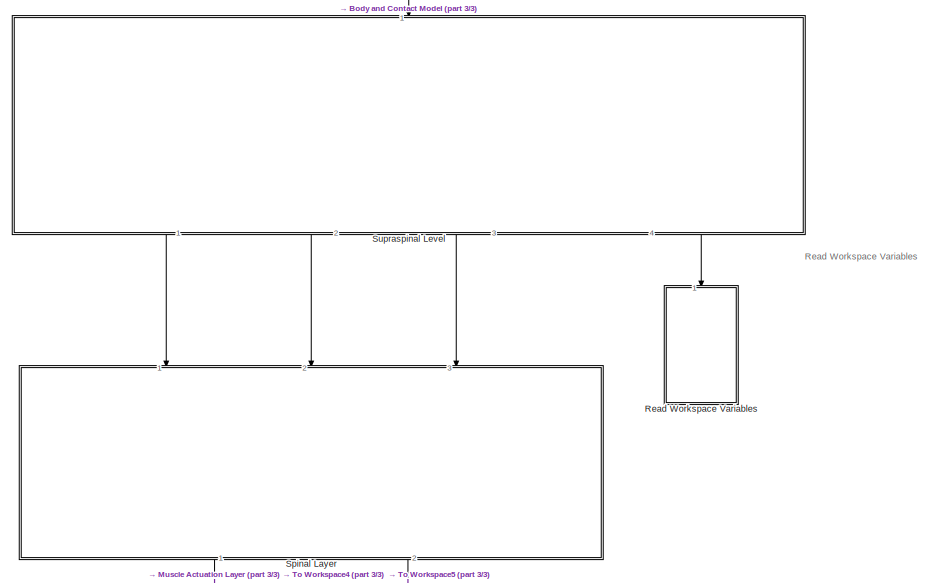
[diagram: root canvas - part 1/3, top center region]
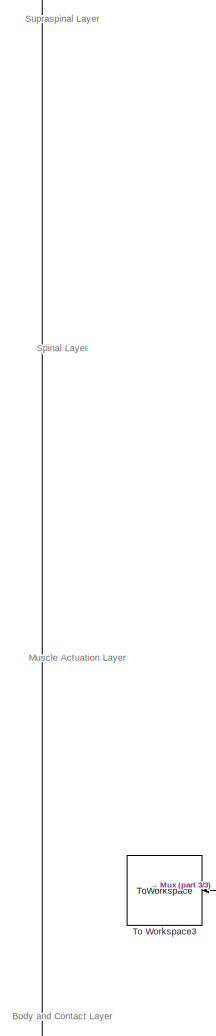
[diagram: root canvas - part 2/3, left side, full height]
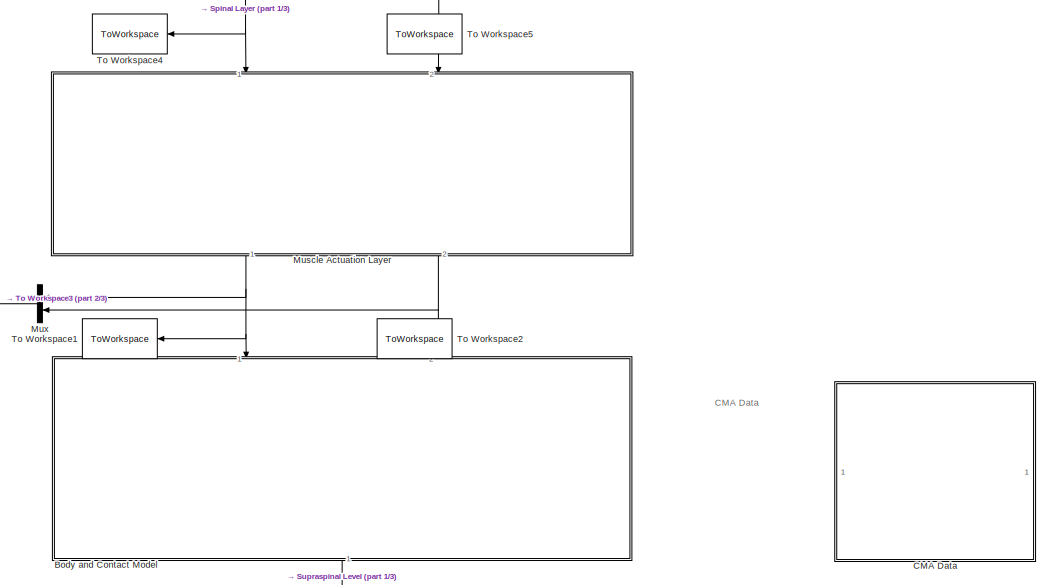
[diagram: root canvas - part 3/3, full width, bottom band]
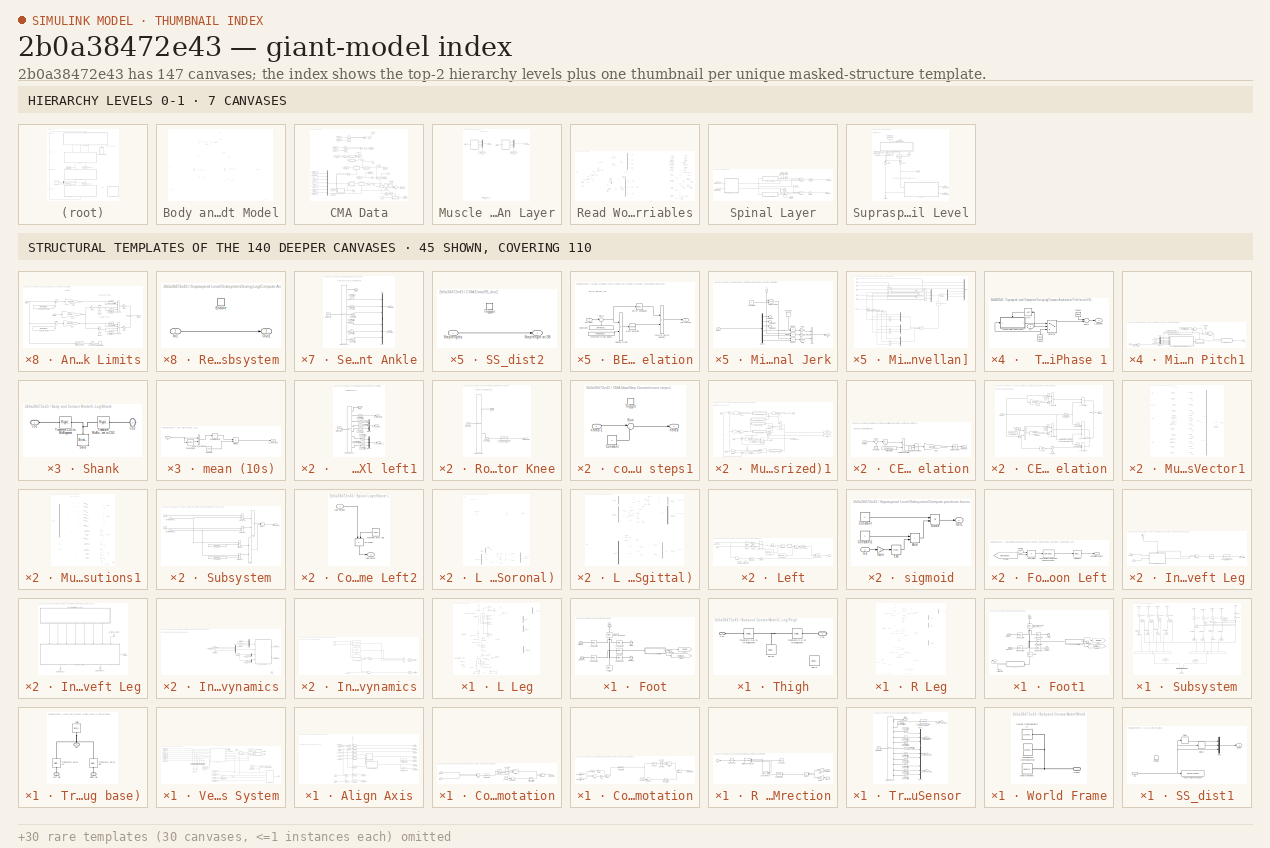
[diagram: thumbnail index - top-2 hierarchy levels (7 canvases) + 45 structural-template representatives of the remaining 140 canvases]
MODEL slx_2b0a38472e43
KIND model
CONFIG AbsTol = auto
CONFIG EnableMultiTasking = off
CONFIG FixedStep = auto
CONFIG MaxStep = 1e-1
CONFIG MinStep = auto
CONFIG RelTol = 1e-3
CONFIG SampleTimeConstraint = Unconstrained
CONFIG Solver = ode45
CONFIG SolverName = ode45
CONFIG StartFcn = tic
CONFIG StartTime = 0.0
CONFIG StopFcn = toc\n\n\n%if GimbalLockFlag \n % fprintf(2, 'Almost reached Gimbal Lock of IMU. Simulation stopped.\n')\n%end\n\n%fprintf('Elapsed time: %4.2f sec (%4.2f%% realtime)\n', a, tout(end)/a*100)
CONFIG StopTime = 50
BLOCK [SubSystem] Body and Contact Model
  NameLocation = left
  Ports = [2, 1]
  RequestExecContextInheritance = off
BLOCK [Reference] Body and Contact Model/6-DOF Joint IC  REF=sm_lib/Joints/6-DOF Joint
  NameLocation = left
  Ports = [0, 0, 0, 0, 0, 1, 1]
  SourceBlock = sm_lib/Joints/6-DOF Joint
  SourceProductBaseCode = MS
  SourceType = 6-DOF Joint
BLOCK [Clock] Body and Contact Model/Clock
BLOCK [Reference] Body and Contact Model/Compare To Constant  REF=simulink/Logic and Bit
Operations/Compare
To Constant
  Ports = [1, 1]
  SourceBlock = simulink/Logic and Bit\nOperations/Compare\nTo Constant
  SourceProductBaseCode = SL
  SourceType = Compare To Constant
BLOCK [Constant] Body and Contact Model/Constant
  NameLocation = right
  Value = 0
BLOCK [Reference] Body and Contact Model/External Force and Torque  REF=sm_lib/Forces and
Torques/External Force
and Torque
  Ports = [0, 0, 0, 0, 0, 1, 1]
  SourceBlock = sm_lib/Forces and\nTorques/External Force\nand Torque
  SourceProductBaseCode = MS
  SourceType = External Force\nand Torque
BLOCK [From] Body and Contact Model/From
  GotoTag = v_init
  TagVisibility = global
BLOCK [From] Body and Contact Model/From1
  GotoTag = CoM_Velocity
  TagVisibility = global
BLOCK [Goto] Body and Contact Model/Goto1
  GotoTag = LHL
  NameLocation = top
  TagVisibility = global
BLOCK [Goto] Body and Contact Model/Goto10
  GotoTag = Llegdq
  NameLocation = left
  TagVisibility = global
BLOCK [Goto] Body and Contact Model/Goto11
  GotoTag = Rlegdq
  NameLocation = left
  TagVisibility = global
BLOCK [Goto] Body and Contact Model/Goto15
  GotoTag = Llegddq
  NameLocation = left
  TagVisibility = global
BLOCK [Goto] Body and Contact Model/Goto2
  GotoTag = LHR
  NameLocation = top
  TagVisibility = global
BLOCK [Goto] Body and Contact Model/Goto7
  GotoTag = Rlegddq
  NameLocation = left
  TagVisibility = global
BLOCK [Goto] Body and Contact Model/Goto8
  GotoTag = Rlegq
  NameLocation = left
  TagVisibility = global
BLOCK [Goto] Body and Contact Model/Goto9
  GotoTag = Llegq
  NameLocation = left
  TagVisibility = global
BLOCK [Outport] Body and Contact Model/Information: Ground Contact
  NameLocation = top
BLOCK [SubSystem] Body and Contact Model/L Leg
  NameLocation = left
  Ports = [1, 5, 0, 0, 0, 1, 4]
  RequestExecContextInheritance = off
BLOCK [Reference] Body and Contact Model/L Leg/ K Actuator  REF=nesl_utility/Simulink-PS
Converter
  NameLocation = top
  Ports = [1, 0, 0, 0, 0, 0, 1]
  SourceBlock = nesl_utility/Simulink-PS\nConverter
  SourceProductBaseCode = SS
  SourceType = Simulink-PS\nConverter
BLOCK [Outport] Body and Contact Model/L Leg/ Position Left Ankle [m]
  NameLocation = top
  Port = 2
BLOCK [Reference] Body and Contact Model/L Leg/A Actuator  REF=nesl_utility/Simulink-PS
Converter
  NameLocation = top
  Ports = [1, 0, 0, 0, 0, 0, 1]
  SourceBlock = nesl_utility/Simulink-PS\nConverter
  SourceProductBaseCode = SS
  SourceType = Simulink-PS\nConverter
BLOCK [Reference] Body and Contact Model/L Leg/A Pos Sensor  REF=nesl_utility/PS-Simulink
Converter
  Ports = [0, 1, 0, 0, 0, 1]
  SourceBlock = nesl_utility/PS-Simulink\nConverter
  SourceProductBaseCode = SS
  SourceType = PS-Simulink\nConverter
BLOCK [Reference] Body and Contact Model/L Leg/A Vel Sensor  REF=nesl_utility/PS-Simulink
Converter
  NameLocation = top
  Ports = [0, 1, 0, 0, 0, 1]
  SourceBlock = nesl_utility/PS-Simulink\nConverter
  SourceProductBaseCode = SS
  SourceType = PS-Simulink\nConverter
BLOCK [Reference] Body and Contact Model/L Leg/A acc Sensor  REF=nesl_utility/PS-Simulink
Converter
  Ports = [0, 1, 0, 0, 0, 1]
  SourceBlock = nesl_utility/PS-Simulink\nConverter
  SourceProductBaseCode = SS
  SourceType = PS-Simulink\nConverter
BLOCK [SubSystem] Body and Contact Model/L Leg/Ankle Mechanical Limits
  NameLocation = right
  Ports = [2, 1]
  RequestExecContextInheritance = off
BLOCK [Gain] Body and Contact Model/L Leg/Ankle Mechanical Limits/Gain1
  Gain = mParams.joints.ankle.kStop
BLOCK [Gain] Body and Contact Model/L Leg/Ankle Mechanical Limits/Gain2
  Gain = -1
  NameLocation = top
BLOCK [Gain] Body and Contact Model/L Leg/Ankle Mechanical Limits/Gain3
  Gain = mParams.joints.ankle.kStop
BLOCK [Gain] Body and Contact Model/L Leg/Ankle Mechanical Limits/Gain4
  Gain = 1/mParams.joints.ankle.wMaxStop
BLOCK [Gain] Body and Contact Model/L Leg/Ankle Mechanical Limits/Gain5
  Gain = -1
  NameLocation = top
BLOCK [Gain] Body and Contact Model/L Leg/Ankle Mechanical Limits/Gain6
  Gain = -1
  NameLocation = top
BLOCK [Reference] Body and Contact Model/L Leg/Ankle Mechanical Limits/Limit Knee Range  REF=simulink/Logic and Bit
Operations/Interval Test
  AttributesFormatString = Lower limits: %<lowlimit>\nUpper limits: %<uplimit>
  Ports = [1, 1]
  SourceBlock = simulink/Logic and Bit\nOperations/Interval Test
  SourceProductBaseCode = SL
  SourceType = Interval Test
BLOCK [Logic] Body and Contact Model/L Leg/Ankle Mechanical Limits/Logical Operator3
  AllPortsSameDT = off
  NameLocation = top
  Operator = NOT
  OutDataTypeStr = boolean
  Ports = [1, 1]
BLOCK [Product] Body and Contact Model/L Leg/Ankle Mechanical Limits/Product1
  Inputs = 4
  Ports = [4, 1]
BLOCK [Product] Body and Contact Model/L Leg/Ankle Mechanical Limits/Product2
  Inputs = 4
  Ports = [4, 1]
BLOCK [Stop] Body and Contact Model/L Leg/Ankle Mechanical Limits/Stop Simulation1
  NameLocation = top
BLOCK [Sum] Body and Contact Model/L Leg/Ankle Mechanical Limits/Sum
  Inputs = |+-
  Ports = [2, 1]
BLOCK [Sum] Body and Contact Model/L Leg/Ankle Mechanical Limits/Sum1
  Inputs = |+-
  Ports = [2, 1]
BLOCK [Sum] Body and Contact Model/L Leg/Ankle Mechanical Limits/Sum2
  Ports = [2, 1]
BLOCK [Sum] Body and Contact Model/L Leg/Ankle Mechanical Limits/Sum3
  Inputs = |-+
  Ports = [2, 1]
BLOCK [Sum] Body and Contact Model/L Leg/Ankle Mechanical Limits/Sum4
  Inputs = |-+
  Ports = [2, 1]
BLOCK [Reference] Body and Contact Model/L Leg/Ankle Mechanical Limits/above upper limit?  REF=simulink/Logic and Bit
Operations/Compare
To Zero
  NameLocation = top
  Ports = [1, 1]
  SourceBlock = simulink/Logic and Bit\nOperations/Compare\nTo Zero
  SourceProductBaseCode = SL
  SourceType = Compare To Zero
BLOCK [Reference] Body and Contact Model/L Leg/Ankle Mechanical Limits/below lower limit?  REF=simulink/Logic and Bit
Operations/Compare
To Zero
  NameLocation = top
  Ports = [1, 1]
  SourceBlock = simulink/Logic and Bit\nOperations/Compare\nTo Zero
  SourceProductBaseCode = SL
  SourceType = Compare To Zero
BLOCK [Constant] Body and Contact Model/L Leg/Ankle Mechanical Limits/const
  NameLocation = right
BLOCK [Constant] Body and Contact Model/L Leg/Ankle Mechanical Limits/const1
  NameLocation = right
BLOCK [Inport] Body and Contact Model/L Leg/Ankle Mechanical Limits/dq [rad//s]
BLOCK [Reference] Body and Contact Model/L Leg/Ankle Mechanical Limits/mech limit pushes back?  REF=simulink/Logic and Bit
Operations/Compare
To Zero
  Ports = [1, 1]
  SourceBlock = simulink/Logic and Bit\nOperations/Compare\nTo Zero
  SourceProductBaseCode = SL
  SourceType = Compare To Zero
BLOCK [Reference] Body and Contact Model/L Leg/Ankle Mechanical Limits/mech limit pushes back?.  REF=simulink/Logic and Bit
Operations/Compare
To Zero
  Ports = [1, 1]
  SourceBlock = simulink/Logic and Bit\nOperations/Compare\nTo Zero
  SourceProductBaseCode = SL
  SourceType = Compare To Zero
BLOCK [Constant] Body and Contact Model/L Leg/Ankle Mechanical Limits/overextension angle
  Value = mParams.joints.ankle.MaxPitch
BLOCK [Constant] Body and Contact Model/L Leg/Ankle Mechanical Limits/overflexion angle
  Value = mParams.joints.ankle.MinPitch
BLOCK [Inport] Body and Contact Model/L Leg/Ankle Mechanical Limits/q [rad]
  NameLocation = top
  Port = 2
BLOCK [Outport] Body and Contact Model/L Leg/Ankle Mechanical Limits/tau [Nm]
  VectorParamsAs1DForOutWhenUnconnected = off
BLOCK [Reference] Body and Contact Model/L Leg/Compare To Constant1  REF=simulink/Logic and Bit
Operations/Compare
To Constant
  NameLocation = top
  Ports = [1, 1]
  SourceBlock = simulink/Logic and Bit\nOperations/Compare\nTo Constant
  SourceProductBaseCode = SL
  SourceType = Compare To Constant
BLOCK [Demux] Body and Contact Model/L Leg/Demux
  NameLocation = top
  Ports = [1, 4]
BLOCK [SubSystem] Body and Contact Model/L Leg/Foot
  Ports = [0, 0, 0, 0, 0, 3, 2]
  RequestExecContextInheritance = off
BLOCK [SubSystem] Body and Contact Model/L Leg/Foot/  XYZ Sensor Ball left1
  Ports = [0, 3, 0, 0, 0, 1]
  RequestExecContextInheritance = off
BLOCK [Reference] Body and Contact Model/L Leg/Foot/  XYZ Sensor Ball left1/Frame Sensor  REF=sm_lib/Frames and
Transforms/Transform
Sensor
  Ports = [0, 0, 0, 0, 0, 1, 8]
  SourceBlock = sm_lib/Frames and\nTransforms/Transform\nSensor
  SourceProductBaseCode = MS
  SourceType = Transform\nSensor
BLOCK [Mux] Body and Contact Model/L Leg/Foot/  XYZ Sensor Ball left1/Mux3
  DisplayOption = bar
  Inputs = 3
  Ports = [3, 1]
BLOCK [Mux] Body and Contact Model/L Leg/Foot/  XYZ Sensor Ball left1/Mux4
  DisplayOption = bar
  Inputs = 3
  Ports = [3, 1]
BLOCK [Reference] Body and Contact Model/L Leg/Foot/  XYZ Sensor Ball left1/PS-Simulink Converter  REF=nesl_utility/PS-Simulink
Converter
  Ports = [0, 1, 0, 0, 0, 1]
  SourceBlock = nesl_utility/PS-Simulink\nConverter
  SourceProductBaseCode = SS
  SourceType = PS-Simulink\nConverter
BLOCK [Reference] Body and Contact Model/L Leg/Foot/  XYZ Sensor Ball left1/PS-Simulink Converter1  REF=nesl_utility/PS-Simulink
Converter
  Ports = [0, 1, 0, 0, 0, 1]
  SourceBlock = nesl_utility/PS-Simulink\nConverter
  SourceProductBaseCode = SS
  SourceType = PS-Simulink\nConverter
BLOCK [Reference] Body and Contact Model/L Leg/Foot/  XYZ Sensor Ball left1/PS-Simulink Converter2  REF=nesl_utility/PS-Simulink
Converter
  Ports = [0, 1, 0, 0, 0, 1]
  SourceBlock = nesl_utility/PS-Simulink\nConverter
  SourceProductBaseCode = SS
  SourceType = PS-Simulink\nConverter
BLOCK [Reference] Body and Contact Model/L Leg/Foot/  XYZ Sensor Ball left1/PS-Simulink Converter3  REF=nesl_utility/PS-Simulink
Converter
  Ports = [0, 1, 0, 0, 0, 1]
  SourceBlock = nesl_utility/PS-Simulink\nConverter
  SourceProductBaseCode = SS
  SourceType = PS-Simulink\nConverter
BLOCK [Reference] Body and Contact Model/L Leg/Foot/  XYZ Sensor Ball left1/PS-Simulink Converter4  REF=nesl_utility/PS-Simulink
Converter
  Ports = [0, 1, 0, 0, 0, 1]
  SourceBlock = nesl_utility/PS-Simulink\nConverter
  SourceProductBaseCode = SS
  SourceType = PS-Simulink\nConverter
BLOCK [Reference] Body and Contact Model/L Leg/Foot/  XYZ Sensor Ball left1/PS-Simulink Converter5  REF=nesl_utility/PS-Simulink
Converter
  Ports = [0, 1, 0, 0, 0, 1]
  SourceBlock = nesl_utility/PS-Simulink\nConverter
  SourceProductBaseCode = SS
  SourceType = PS-Simulink\nConverter
BLOCK [Reference] Body and Contact Model/L Leg/Foot/  XYZ Sensor Ball left1/PS-Simulink Converter6  REF=nesl_utility/PS-Simulink
Converter
  Ports = [0, 1, 0, 0, 0, 1]
  SourceBlock = nesl_utility/PS-Simulink\nConverter
  SourceProductBaseCode = SS
  SourceType = PS-Simulink\nConverter
BLOCK [Outport] Body and Contact Model/L Leg/Foot/  XYZ Sensor Ball left1/Rotation Matrix
  Port = 3
  VectorParamsAs1DForOutWhenUnconnected = off
BLOCK [Reference] Body and Contact Model/L Leg/Foot/  XYZ Sensor Ball left1/World Frame  REF=sm_lib/Frames and
Transforms/World Frame
  Ports = [0, 0, 0, 0, 0, 0, 1]
  SourceBlock = sm_lib/Frames and\nTransforms/World Frame
  SourceProductBaseCode = MS
  SourceType = World Frame
BLOCK [PMIOPort] Body and Contact Model/L Leg/Foot/  XYZ Sensor Ball left1/frame
  NameLocation = top
  Side = Left
BLOCK [Outport] Body and Contact Model/L Leg/Foot/  XYZ Sensor Ball left1/p_bLH [m x3]
  VectorParamsAs1DForOutWhenUnconnected = off
BLOCK [Outport] Body and Contact Model/L Leg/Foot/  XYZ Sensor Ball left1/v_bLH [m//s x3]
  Port = 2
  VectorParamsAs1DForOutWhenUnconnected = off
BLOCK [Reference] Body and Contact Model/L Leg/Foot/B Transform  REF=sm_lib/Frames and
Transforms/Rigid
Transform
  NameLocation = top
  Ports = [0, 0, 0, 0, 0, 1, 1]
  SourceBlock = sm_lib/Frames and\nTransforms/Rigid\nTransform
  SourceProductBaseCode = MS
  SourceType = Rigid\nTransform
BLOCK [PMIOPort] Body and Contact Model/L Leg/Foot/CS1
  NameLocation = right
  Side = Left
BLOCK [Goto] Body and Contact Model/L Leg/Foot/Goto1
  GotoTag = RotationMatrixLeftFoot
  TagVisibility = global
BLOCK [Goto] Body and Contact Model/L Leg/Foot/Goto11
  GotoTag = Ball_left
  TagVisibility = global
BLOCK [Reference] Body and Contact Model/L Leg/Foot/LB Transform  REF=sm_lib/Frames and
Transforms/Rigid
Transform
  NameLocation = top
  Ports = [0, 0, 0, 0, 0, 1, 1]
  SourceBlock = sm_lib/Frames and\nTransforms/Rigid\nTransform
  SourceProductBaseCode = MS
  SourceType = Rigid\nTransform
BLOCK [Reference] Body and Contact Model/L Leg/Foot/LH Transform  REF=sm_lib/Frames and
Transforms/Rigid
Transform
  Ports = [0, 0, 0, 0, 0, 1, 1]
  SourceBlock = sm_lib/Frames and\nTransforms/Rigid\nTransform
  SourceProductBaseCode = MS
  SourceType = Rigid\nTransform
BLOCK [PMIOPort] Body and Contact Model/L Leg/Foot/Left Ball
  NameLocation = top
  Port = 2
  Side = Right
BLOCK [PMIOPort] Body and Contact Model/L Leg/Foot/Left Heel
  Port = 3
  Side = Left
BLOCK [Reference] Body and Contact Model/L Leg/Foot/RB Transform  REF=sm_lib/Frames and
Transforms/Rigid
Transform
  Ports = [0, 0, 0, 0, 0, 1, 1]
  SourceBlock = sm_lib/Frames and\nTransforms/Rigid\nTransform
  SourceProductBaseCode = MS
  SourceType = Rigid\nTransform
BLOCK [Reference] Body and Contact Model/L Leg/Foot/RH Transform  REF=sm_lib/Frames and
Transforms/Rigid
Transform
  NameLocation = top
  Ports = [0, 0, 0, 0, 0, 1, 1]
  SourceBlock = sm_lib/Frames and\nTransforms/Rigid\nTransform
  SourceProductBaseCode = MS
  SourceType = Rigid\nTransform
BLOCK [PMIOPort] Body and Contact Model/L Leg/Foot/Right Ball
  NameLocation = top
  Port = 4
  Side = Right
BLOCK [PMIOPort] Body and Contact Model/L Leg/Foot/Right Heel
  Port = 5
  Side = Left
BLOCK [Reference] Body and Contact Model/L Leg/Foot/Solid1  REF=sm_lib/Body Elements/Brick Solid
  NameLocation = left
  Ports = [0, 0, 0, 0, 0, 1, 1]
  SourceBlock = sm_lib/Body Elements/Brick Solid
  SourceProductBaseCode = MS
  SourceType = Brick Solid
BLOCK [Terminator] Body and Contact Model/L Leg/Foot/Terminator2
BLOCK [Reference] Body and Contact Model/L Leg/Foot/Transform CS1(Ankle) to MidSegment1  REF=sm_lib/Frames and
Transforms/Rigid
Transform
  NameLocation = right
  Ports = [0, 0, 0, 0, 0, 1, 1]
  SourceBlock = sm_lib/Frames and\nTransforms/Rigid\nTransform
  SourceProductBaseCode = MS
  SourceType = Rigid\nTransform
BLOCK [Goto] Body and Contact Model/L Leg/Goto6
  GotoTag = AnklePosL
  NameLocation = top
  TagVisibility = global
BLOCK [Reference] Body and Contact Model/L Leg/H Pitch Acc Sensor  REF=nesl_utility/PS-Simulink
Converter
  NameLocation = top
  Ports = [0, 1, 0, 0, 0, 1]
  SourceBlock = nesl_utility/PS-Simulink\nConverter
  SourceProductBaseCode = SS
  SourceType = PS-Simulink\nConverter
BLOCK [Reference] Body and Contact Model/L Leg/H Pitch Actuator  REF=nesl_utility/Simulink-PS
Converter
  NameLocation = top
  Ports = [1, 0, 0, 0, 0, 0, 1]
  SourceBlock = nesl_utility/Simulink-PS\nConverter
  SourceProductBaseCode = SS
  SourceType = Simulink-PS\nConverter
BLOCK [Reference] Body and Contact Model/L Leg/H Pitch Pos Sensor  REF=nesl_utility/PS-Simulink
Converter
  Ports = [0, 1, 0, 0, 0, 1]
  SourceBlock = nesl_utility/PS-Simulink\nConverter
  SourceProductBaseCode = SS
  SourceType = PS-Simulink\nConverter
BLOCK [Reference] Body and Contact Model/L Leg/H Pitch Vel Sensor  REF=nesl_utility/PS-Simulink
Converter
  NameLocation = top
  Ports = [0, 1, 0, 0, 0, 1]
  SourceBlock = nesl_utility/PS-Simulink\nConverter
  SourceProductBaseCode = SS
  SourceType = PS-Simulink\nConverter
BLOCK [Reference] Body and Contact Model/L Leg/H Roll Acc Sensor  REF=nesl_utility/PS-Simulink
Converter
  Ports = [0, 1, 0, 0, 0, 1]
  SourceBlock = nesl_utility/PS-Simulink\nConverter
  SourceProductBaseCode = SS
  SourceType = PS-Simulink\nConverter
BLOCK [Reference] Body and Contact Model/L Leg/H Roll Actuator  REF=nesl_utility/Simulink-PS
Converter
  Ports = [1, 0, 0, 0, 0, 0, 1]
  SourceBlock = nesl_utility/Simulink-PS\nConverter
  SourceProductBaseCode = SS
  SourceType = Simulink-PS\nConverter
BLOCK [Reference] Body and Contact Model/L Leg/H Roll Pos Sensor  REF=nesl_utility/PS-Simulink
Converter
  Ports = [0, 1, 0, 0, 0, 1]
  SourceBlock = nesl_utility/PS-Simulink\nConverter
  SourceProductBaseCode = SS
  SourceType = PS-Simulink\nConverter
BLOCK [Reference] Body and Contact Model/L Leg/H Roll Vel Sensor   REF=nesl_utility/PS-Simulink
Converter
  NameLocation = top
  Ports = [0, 1, 0, 0, 0, 1]
  SourceBlock = nesl_utility/PS-Simulink\nConverter
  SourceProductBaseCode = SS
  SourceType = PS-Simulink\nConverter
BLOCK [SubSystem] Body and Contact Model/L Leg/Hip Pitch Mechanical Limits
  NameLocation = right
  Ports = [2, 1]
  RequestExecContextInheritance = off
BLOCK [Gain] Body and Contact Model/L Leg/Hip Pitch Mechanical Limits/Gain1
  Gain = mParams.joints.hip.kStop
BLOCK [Gain] Body and Contact Model/L Leg/Hip Pitch Mechanical Limits/Gain2
  Gain = -1
  NameLocation = top
BLOCK [Gain] Body and Contact Model/L Leg/Hip Pitch Mechanical Limits/Gain3
  Gain = mParams.joints.hip.kStop
BLOCK [Gain] Body and Contact Model/L Leg/Hip Pitch Mechanical Limits/Gain4
  Gain = 1/mParams.joints.hip.wMaxStop
BLOCK [Gain] Body and Contact Model/L Leg/Hip Pitch Mechanical Limits/Gain5
  Gain = -1
  NameLocation = top
BLOCK [Gain] Body and Contact Model/L Leg/Hip Pitch Mechanical Limits/Gain6
  Gain = -1
  NameLocation = top
BLOCK [Reference] Body and Contact Model/L Leg/Hip Pitch Mechanical Limits/Limit Joint Range  REF=simulink/Logic and Bit
Operations/Interval Test
  AttributesFormatString = Lower limits: %<lowlimit>\nUpper limits: %<uplimit>
  Ports = [1, 1]
  SourceBlock = simulink/Logic and Bit\nOperations/Interval Test
  SourceProductBaseCode = SL
  SourceType = Interval Test
BLOCK [Logic] Body and Contact Model/L Leg/Hip Pitch Mechanical Limits/Logical Operator3
  AllPortsSameDT = off
  NameLocation = top
  Operator = NOT
  OutDataTypeStr = boolean
  Ports = [1, 1]
BLOCK [Product] Body and Contact Model/L Leg/Hip Pitch Mechanical Limits/Product1
  Inputs = 4
  Ports = [4, 1]
BLOCK [Product] Body and Contact Model/L Leg/Hip Pitch Mechanical Limits/Product2
  Inputs = 4
  Ports = [4, 1]
BLOCK [Stop] Body and Contact Model/L Leg/Hip Pitch Mechanical Limits/Stop Simulation1
  NameLocation = top
BLOCK [Sum] Body and Contact Model/L Leg/Hip Pitch Mechanical Limits/Sum
  Inputs = |+-
  Ports = [2, 1]
BLOCK [Sum] Body and Contact Model/L Leg/Hip Pitch Mechanical Limits/Sum1
  Inputs = |+-
  Ports = [2, 1]
BLOCK [Sum] Body and Contact Model/L Leg/Hip Pitch Mechanical Limits/Sum2
  Ports = [2, 1]
BLOCK [Sum] Body and Contact Model/L Leg/Hip Pitch Mechanical Limits/Sum3
  Inputs = |-+
  Ports = [2, 1]
BLOCK [Sum] Body and Contact Model/L Leg/Hip Pitch Mechanical Limits/Sum4
  Inputs = |-+
  Ports = [2, 1]
BLOCK [Reference] Body and Contact Model/L Leg/Hip Pitch Mechanical Limits/above upper limit?  REF=simulink/Logic and Bit
Operations/Compare
To Zero
  NameLocation = top
  Ports = [1, 1]
  SourceBlock = simulink/Logic and Bit\nOperations/Compare\nTo Zero
  SourceProductBaseCode = SL
  SourceType = Compare To Zero
BLOCK [Reference] Body and Contact Model/L Leg/Hip Pitch Mechanical Limits/below lower limit?  REF=simulink/Logic and Bit
Operations/Compare
To Zero
  NameLocation = top
  Ports = [1, 1]
  SourceBlock = simulink/Logic and Bit\nOperations/Compare\nTo Zero
  SourceProductBaseCode = SL
  SourceType = Compare To Zero
BLOCK [Constant] Body and Contact Model/L Leg/Hip Pitch Mechanical Limits/const
  NameLocation = right
BLOCK [Constant] Body and Contact Model/L Leg/Hip Pitch Mechanical Limits/const1
  NameLocation = right
BLOCK [Inport] Body and Contact Model/L Leg/Hip Pitch Mechanical Limits/dq [rad//s]
BLOCK [Reference] Body and Contact Model/L Leg/Hip Pitch Mechanical Limits/mech limit pushes back?  REF=simulink/Logic and Bit
Operations/Compare
To Zero
  Ports = [1, 1]
  SourceBlock = simulink/Logic and Bit\nOperations/Compare\nTo Zero
  SourceProductBaseCode = SL
  SourceType = Compare To Zero
BLOCK [Reference] Body and Contact Model/L Leg/Hip Pitch Mechanical Limits/mech limit pushes back?.  REF=simulink/Logic and Bit
Operations/Compare
To Zero
  Ports = [1, 1]
  SourceBlock = simulink/Logic and Bit\nOperations/Compare\nTo Zero
  SourceProductBaseCode = SL
  SourceType = Compare To Zero
BLOCK [Constant] Body and Contact Model/L Leg/Hip Pitch Mechanical Limits/overextension angle
  Value = mParams.joints.hip.MaxPitch
BLOCK [Constant] Body and Contact Model/L Leg/Hip Pitch Mechanical Limits/overflexion angle
  Value = mParams.joints.hip.MinPitch
BLOCK [Inport] Body and Contact Model/L Leg/Hip Pitch Mechanical Limits/q [rad]
  NameLocation = top
  Port = 2
BLOCK [Outport] Body and Contact Model/L Leg/Hip Pitch Mechanical Limits/tau [Nm]
  VectorParamsAs1DForOutWhenUnconnected = off
BLOCK [SubSystem] Body and Contact Model/L Leg/Hip Roll Mechanical Limits
  NameLocation = right
  Ports = [2, 1]
  RequestExecContextInheritance = off
BLOCK [Gain] Body and Contact Model/L Leg/Hip Roll Mechanical Limits/Gain1
  Gain = mParams.joints.hip.kStop
BLOCK [Gain] Body and Contact Model/L Leg/Hip Roll Mechanical Limits/Gain2
  Gain = -1
  NameLocation = top
BLOCK [Gain] Body and Contact Model/L Leg/Hip Roll Mechanical Limits/Gain3
  Gain = mParams.joints.hip.kStop
BLOCK [Gain] Body and Contact Model/L Leg/Hip Roll Mechanical Limits/Gain4
  Gain = 1/mParams.joints.hip.wMaxStop
BLOCK [Gain] Body and Contact Model/L Leg/Hip Roll Mechanical Limits/Gain5
  Gain = -1
  NameLocation = top
BLOCK [Gain] Body and Contact Model/L Leg/Hip Roll Mechanical Limits/Gain6
  Gain = -1
  NameLocation = top
BLOCK [Reference] Body and Contact Model/L Leg/Hip Roll Mechanical Limits/Limit Joint Range  REF=simulink/Logic and Bit
Operations/Interval Test
  AttributesFormatString = Lower limits: %<lowlimit>\nUpper limits: %<uplimit>
  Ports = [1, 1]
  SourceBlock = simulink/Logic and Bit\nOperations/Interval Test
  SourceProductBaseCode = SL
  SourceType = Interval Test
BLOCK [Logic] Body and Contact Model/L Leg/Hip Roll Mechanical Limits/Logical Operator3
  AllPortsSameDT = off
  NameLocation = top
  Operator = NOT
  OutDataTypeStr = boolean
  Ports = [1, 1]
BLOCK [Product] Body and Contact Model/L Leg/Hip Roll Mechanical Limits/Product1
  Inputs = 4
  Ports = [4, 1]
BLOCK [Product] Body and Contact Model/L Leg/Hip Roll Mechanical Limits/Product2
  Inputs = 4
  Ports = [4, 1]
BLOCK [Stop] Body and Contact Model/L Leg/Hip Roll Mechanical Limits/Stop Simulation1
  NameLocation = top
BLOCK [Sum] Body and Contact Model/L Leg/Hip Roll Mechanical Limits/Sum
  Inputs = |+-
  Ports = [2, 1]
BLOCK [Sum] Body and Contact Model/L Leg/Hip Roll Mechanical Limits/Sum1
  Inputs = |+-
  Ports = [2, 1]
BLOCK [Sum] Body and Contact Model/L Leg/Hip Roll Mechanical Limits/Sum2
  Ports = [2, 1]
BLOCK [Sum] Body and Contact Model/L Leg/Hip Roll Mechanical Limits/Sum3
  Inputs = |-+
  Ports = [2, 1]
BLOCK [Sum] Body and Contact Model/L Leg/Hip Roll Mechanical Limits/Sum4
  Inputs = |-+
  Ports = [2, 1]
BLOCK [Reference] Body and Contact Model/L Leg/Hip Roll Mechanical Limits/above upper limit?  REF=simulink/Logic and Bit
Operations/Compare
To Zero
  NameLocation = top
  Ports = [1, 1]
  SourceBlock = simulink/Logic and Bit\nOperations/Compare\nTo Zero
  SourceProductBaseCode = SL
  SourceType = Compare To Zero
BLOCK [Reference] Body and Contact Model/L Leg/Hip Roll Mechanical Limits/below lower limit?  REF=simulink/Logic and Bit
Operations/Compare
To Zero
  NameLocation = top
  Ports = [1, 1]
  SourceBlock = simulink/Logic and Bit\nOperations/Compare\nTo Zero
  SourceProductBaseCode = SL
  SourceType = Compare To Zero
BLOCK [Constant] Body and Contact Model/L Leg/Hip Roll Mechanical Limits/const
  NameLocation = right
BLOCK [Constant] Body and Contact Model/L Leg/Hip Roll Mechanical Limits/const1
  NameLocation = right
BLOCK [Inport] Body and Contact Model/L Leg/Hip Roll Mechanical Limits/dq [rad//s]
BLOCK [Reference] Body and Contact Model/L Leg/Hip Roll Mechanical Limits/mech limit pushes back?  REF=simulink/Logic and Bit
Operations/Compare
To Zero
  Ports = [1, 1]
  SourceBlock = simulink/Logic and Bit\nOperations/Compare\nTo Zero
  SourceProductBaseCode = SL
  SourceType = Compare To Zero
BLOCK [Reference] Body and Contact Model/L Leg/Hip Roll Mechanical Limits/mech limit pushes back?.  REF=simulink/Logic and Bit
Operations/Compare
To Zero
  Ports = [1, 1]
  SourceBlock = simulink/Logic and Bit\nOperations/Compare\nTo Zero
  SourceProductBaseCode = SL
  SourceType = Compare To Zero
BLOCK [Constant] Body and Contact Model/L Leg/Hip Roll Mechanical Limits/overextension angle
  Value = mParams.joints.hip.MaxRoll
BLOCK [Constant] Body and Contact Model/L Leg/Hip Roll Mechanical Limits/overflexion angle
  Value = mParams.joints.hip.MinRoll
BLOCK [Inport] Body and Contact Model/L Leg/Hip Roll Mechanical Limits/q [rad]
  NameLocation = top
  Port = 2
BLOCK [Outport] Body and Contact Model/L Leg/Hip Roll Mechanical Limits/tau [Nm]
  VectorParamsAs1DForOutWhenUnconnected = off
BLOCK [Outport] Body and Contact Model/L Leg/Joint Accelerations Left [rad//s^2]
  Port = 5
BLOCK [Outport] Body and Contact Model/L Leg/Joint Angles Left [rad]
  Port = 3
BLOCK [Outport] Body and Contact Model/L Leg/Joint Velocities Left [rad//s] 
  Port = 4
BLOCK [Reference] Body and Contact Model/L Leg/K Acc Sensor  REF=nesl_utility/PS-Simulink
Converter
  Ports = [0, 1, 0, 0, 0, 1]
  SourceBlock = nesl_utility/PS-Simulink\nConverter
  SourceProductBaseCode = SS
  SourceType = PS-Simulink\nConverter
BLOCK [Reference] Body and Contact Model/L Leg/K Pos Sensor  REF=nesl_utility/PS-Simulink
Converter
  Ports = [0, 1, 0, 0, 0, 1]
  SourceBlock = nesl_utility/PS-Simulink\nConverter
  SourceProductBaseCode = SS
  SourceType = PS-Simulink\nConverter
BLOCK [Reference] Body and Contact Model/L Leg/K Vel Sensor  REF=nesl_utility/PS-Simulink
Converter
  NameLocation = top
  Ports = [0, 1, 0, 0, 0, 1]
  SourceBlock = nesl_utility/PS-Simulink\nConverter
  SourceProductBaseCode = SS
  SourceType = PS-Simulink\nConverter
BLOCK [SubSystem] Body and Contact Model/L Leg/Knee Mechanical Limits
  NameLocation = right
  Ports = [2, 1]
  RequestExecContextInheritance = off
BLOCK [Gain] Body and Contact Model/L Leg/Knee Mechanical Limits/Gain1
  Gain = mParams.joints.knee.kStop
BLOCK [Gain] Body and Contact Model/L Leg/Knee Mechanical Limits/Gain2
  Gain = -1
  NameLocation = top
BLOCK [Gain] Body and Contact Model/L Leg/Knee Mechanical Limits/Gain3
  Gain = mParams.joints.knee.kStop
BLOCK [Gain] Body and Contact Model/L Leg/Knee Mechanical Limits/Gain4
  Gain = 1/mParams.joints.knee.wMaxStop
BLOCK [Gain] Body and Contact Model/L Leg/Knee Mechanical Limits/Gain5
  Gain = -1
  NameLocation = top
BLOCK [Gain] Body and Contact Model/L Leg/Knee Mechanical Limits/Gain6
  Gain = -1
  NameLocation = top
BLOCK [Reference] Body and Contact Model/L Leg/Knee Mechanical Limits/Limit Knee Range  REF=simulink/Logic and Bit
Operations/Interval Test
  AttributesFormatString = Lower limits: %<lowlimit>\nUpper limits: %<uplimit>
  Ports = [1, 1]
  SourceBlock = simulink/Logic and Bit\nOperations/Interval Test
  SourceProductBaseCode = SL
  SourceType = Interval Test
BLOCK [Logic] Body and Contact Model/L Leg/Knee Mechanical Limits/Logical Operator3
  AllPortsSameDT = off
  NameLocation = top
  Operator = NOT
  OutDataTypeStr = boolean
  Ports = [1, 1]
BLOCK [Product] Body and Contact Model/L Leg/Knee Mechanical Limits/Product1
  Inputs = 4
  Ports = [4, 1]
BLOCK [Product] Body and Contact Model/L Leg/Knee Mechanical Limits/Product2
  Inputs = 4
  Ports = [4, 1]
BLOCK [Stop] Body and Contact Model/L Leg/Knee Mechanical Limits/Stop Simulation1
  NameLocation = top
BLOCK [Sum] Body and Contact Model/L Leg/Knee Mechanical Limits/Sum
  Inputs = |+-
  Ports = [2, 1]
BLOCK [Sum] Body and Contact Model/L Leg/Knee Mechanical Limits/Sum1
  Inputs = |+-
  Ports = [2, 1]
BLOCK [Sum] Body and Contact Model/L Leg/Knee Mechanical Limits/Sum2
  Ports = [2, 1]
BLOCK [Sum] Body and Contact Model/L Leg/Knee Mechanical Limits/Sum3
  Inputs = |-+
  Ports = [2, 1]
BLOCK [Sum] Body and Contact Model/L Leg/Knee Mechanical Limits/Sum4
  Inputs = |-+
  Ports = [2, 1]
BLOCK [Reference] Body and Contact Model/L Leg/Knee Mechanical Limits/above upper limit?  REF=simulink/Logic and Bit
Operations/Compare
To Zero
  NameLocation = top
  Ports = [1, 1]
  SourceBlock = simulink/Logic and Bit\nOperations/Compare\nTo Zero
  SourceProductBaseCode = SL
  SourceType = Compare To Zero
BLOCK [Reference] Body and Contact Model/L Leg/Knee Mechanical Limits/below lower limit?  REF=simulink/Logic and Bit
Operations/Compare
To Zero
  NameLocation = top
  Ports = [1, 1]
  SourceBlock = simulink/Logic and Bit\nOperations/Compare\nTo Zero
  SourceProductBaseCode = SL
  SourceType = Compare To Zero
BLOCK [Constant] Body and Contact Model/L Leg/Knee Mechanical Limits/const
  NameLocation = right
BLOCK [Constant] Body and Contact Model/L Leg/Knee Mechanical Limits/const1
  NameLocation = right
BLOCK [Inport] Body and Contact Model/L Leg/Knee Mechanical Limits/dq [rad//s]
BLOCK [Reference] Body and Contact Model/L Leg/Knee Mechanical Limits/mech limit pushes back?  REF=simulink/Logic and Bit
Operations/Compare
To Zero
  Ports = [1, 1]
  SourceBlock = simulink/Logic and Bit\nOperations/Compare\nTo Zero
  SourceProductBaseCode = SL
  SourceType = Compare To Zero
BLOCK [Reference] Body and Contact Model/L Leg/Knee Mechanical Limits/mech limit pushes back?.  REF=simulink/Logic and Bit
Operations/Compare
To Zero
  Ports = [1, 1]
  SourceBlock = simulink/Logic and Bit\nOperations/Compare\nTo Zero
  SourceProductBaseCode = SL
  SourceType = Compare To Zero
BLOCK [Constant] Body and Contact Model/L Leg/Knee Mechanical Limits/overextension angle
  Value = mParams.joints.knee.MaxPitch
BLOCK [Constant] Body and Contact Model/L Leg/Knee Mechanical Limits/overflexion angle
  Value = mParams.joints.knee.MinPitch
BLOCK [Inport] Body and Contact Model/L Leg/Knee Mechanical Limits/q [rad]
  NameLocation = top
  Port = 2
BLOCK [Outport] Body and Contact Model/L Leg/Knee Mechanical Limits/tau [Nm]
  VectorParamsAs1DForOutWhenUnconnected = off
BLOCK [Reference] Body and Contact Model/L Leg/LH Axis Inverse Rotation  REF=sm_lib/Frames and
Transforms/Rigid
Transform
  NameLocation = left
  Ports = [0, 0, 0, 0, 0, 1, 1]
  SourceBlock = sm_lib/Frames and\nTransforms/Rigid\nTransform
  SourceProductBaseCode = MS
  SourceType = Rigid\nTransform
BLOCK [Reference] Body and Contact Model/L Leg/LH Axis Rotation  REF=sm_lib/Frames and
Transforms/Rigid
Transform
  NameLocation = right
  Ports = [0, 0, 0, 0, 0, 1, 1]
  SourceBlock = sm_lib/Frames and\nTransforms/Rigid\nTransform
  SourceProductBaseCode = MS
  SourceType = Rigid\nTransform
BLOCK [Reference] Body and Contact Model/L Leg/LK Axis Rotation  REF=sm_lib/Frames and
Transforms/Rigid
Transform
  NameLocation = left
  Ports = [0, 0, 0, 0, 0, 1, 1]
  SourceBlock = sm_lib/Frames and\nTransforms/Rigid\nTransform
  SourceProductBaseCode = MS
  SourceType = Rigid\nTransform
BLOCK [Reference] Body and Contact Model/L Leg/Left Ankle (LA) Pitch  REF=sm_lib/Joints/Revolute Joint
  NameLocation = left
  Ports = [0, 0, 0, 0, 0, 2, 4]
  SourceBlock = sm_lib/Joints/Revolute Joint
  SourceProductBaseCode = MS
  SourceType = Revolute Joint
BLOCK [PMIOPort] Body and Contact Model/L Leg/Left Ball
  NameLocation = right
  Port = 3
  Side = Right
BLOCK [PMIOPort] Body and Contact Model/L Leg/Left Heel
  NameLocation = left
  Port = 2
  Side = Right
BLOCK [PMIOPort] Body and Contact Model/L Leg/Left Hip
  NameLocation = right
  Side = Left
BLOCK [Reference] Body and Contact Model/L Leg/Left Hip (LH) Pitch (about X) and Roll (about Y) Joints  REF=sm_lib/Joints/Universal
Joint
  NameLocation = left
  Ports = [0, 0, 0, 0, 0, 3, 7]
  SourceBlock = sm_lib/Joints/Universal\nJoint
  SourceProductBaseCode = MS
  SourceType = Universal\nJoint
BLOCK [Reference] Body and Contact Model/L Leg/Left Knee (LK) Pitch  REF=sm_lib/Joints/Revolute Joint
  NameLocation = left
  Ports = [0, 0, 0, 0, 0, 2, 4]
  SourceBlock = sm_lib/Joints/Revolute Joint
  SourceProductBaseCode = MS
  SourceType = Revolute Joint
BLOCK [Mux] Body and Contact Model/L Leg/Mux1
  DisplayOption = bar
  Ports = [4, 1]
BLOCK [Mux] Body and Contact Model/L Leg/Mux2
  DisplayOption = bar
  Ports = [4, 1]
BLOCK [Mux] Body and Contact Model/L Leg/Mux7
  DisplayOption = bar
  Ports = [4, 1]
BLOCK [PMIOPort] Body and Contact Model/L Leg/Right Ball
  NameLocation = right
  Port = 4
  Side = Right
BLOCK [PMIOPort] Body and Contact Model/L Leg/Right Heel
  NameLocation = left
  Port = 5
  Side = Right
BLOCK [Outport] Body and Contact Model/L Leg/Rotation Matrix Left Knee (world)
  NameLocation = top
BLOCK [SubSystem] Body and Contact Model/L Leg/Rotation Sensor Knee
  NameLocation = top
  Ports = [0, 1, 0, 0, 0, 1]
  RequestExecContextInheritance = off
BLOCK [Reference] Body and Contact Model/L Leg/Rotation Sensor Knee/Coordinate Transformation Conversion2  REF=robotcorelib/Coordinate Transformation Conversion
  Ports = [1, 1]
  SourceBlock = robotcorelib/Coordinate Transformation Conversion
  SourceProductBaseCode = NV,RO,RR
  SourceType = robotics.slcore.internal.block.CoordinateTransformationConversion
BLOCK [Reference] Body and Contact Model/L Leg/Rotation Sensor Knee/Frame Sensor  REF=sm_lib/Frames and
Transforms/Transform
Sensor
  Ports = [0, 0, 0, 0, 0, 1, 2]
  SourceBlock = sm_lib/Frames and\nTransforms/Transform\nSensor
  SourceProductBaseCode = MS
  SourceType = Transform\nSensor
BLOCK [Reference] Body and Contact Model/L Leg/Rotation Sensor Knee/PS-Simulink Converter12  REF=nesl_utility/PS-Simulink
Converter
  Ports = [0, 1, 0, 0, 0, 1]
  SourceBlock = nesl_utility/PS-Simulink\nConverter
  SourceProductBaseCode = SS
  SourceType = PS-Simulink\nConverter
BLOCK [Outport] Body and Contact Model/L Leg/Rotation Sensor Knee/Rotation Matrix
  VectorParamsAs1DForOutWhenUnconnected = off
BLOCK [Reference] Body and Contact Model/L Leg/Rotation Sensor Knee/World Frame  REF=sm_lib/Frames and
Transforms/World Frame
  Ports = [0, 0, 0, 0, 0, 0, 1]
  SourceBlock = sm_lib/Frames and\nTransforms/World Frame
  SourceProductBaseCode = MS
  SourceType = World Frame
BLOCK [PMIOPort] Body and Contact Model/L Leg/Rotation Sensor Knee/frame
  NameLocation = top
  Side = Left
BLOCK [Selector] Body and Contact Model/L Leg/Selector1
  IndexOptions = Index vector (dialog)
  Indices = [2]
  InputPortWidth = 3
  NameLocation = top
  OutputSizes = 1
  Ports = [1, 1]
BLOCK [SubSystem] Body and Contact Model/L Leg/Sensor Left Ankle
  NameLocation = top
  Ports = [0, 2, 0, 0, 0, 1]
  RequestExecContextInheritance = off
BLOCK [PMIOPort] Body and Contact Model/L Leg/Sensor Left Ankle/Frame
  NameLocation = top
  Side = Left
BLOCK [Reference] Body and Contact Model/L Leg/Sensor Left Ankle/Frame Sensor  REF=sm_lib/Frames and
Transforms/Transform
Sensor
  Ports = [0, 0, 0, 0, 0, 1, 7]
  SourceBlock = sm_lib/Frames and\nTransforms/Transform\nSensor
  SourceProductBaseCode = MS
  SourceType = Transform\nSensor
BLOCK [Mux] Body and Contact Model/L Leg/Sensor Left Ankle/Mux
  DisplayOption = bar
  Inputs = 3
  Ports = [3, 1]
BLOCK [Mux] Body and Contact Model/L Leg/Sensor Left Ankle/Mux1
  DisplayOption = bar
  Inputs = 3
  Ports = [3, 1]
BLOCK [Reference] Body and Contact Model/L Leg/Sensor Left Ankle/PS-Simulink Converter1  REF=nesl_utility/PS-Simulink
Converter
  Ports = [0, 1, 0, 0, 0, 1]
  SourceBlock = nesl_utility/PS-Simulink\nConverter
  SourceProductBaseCode = SS
  SourceType = PS-Simulink\nConverter
BLOCK [Reference] Body and Contact Model/L Leg/Sensor Left Ankle/PS-Simulink Converter12  REF=nesl_utility/PS-Simulink
Converter
  Ports = [0, 1, 0, 0, 0, 1]
  SourceBlock = nesl_utility/PS-Simulink\nConverter
  SourceProductBaseCode = SS
  SourceType = PS-Simulink\nConverter
BLOCK [Reference] Body and Contact Model/L Leg/Sensor Left Ankle/PS-Simulink Converter2  REF=nesl_utility/PS-Simulink
Converter
  Ports = [0, 1, 0, 0, 0, 1]
  SourceBlock = nesl_utility/PS-Simulink\nConverter
  SourceProductBaseCode = SS
  SourceType = PS-Simulink\nConverter
BLOCK [Reference] Body and Contact Model/L Leg/Sensor Left Ankle/PS-Simulink Converter3  REF=nesl_utility/PS-Simulink
Converter
  Ports = [0, 1, 0, 0, 0, 1]
  SourceBlock = nesl_utility/PS-Simulink\nConverter
  SourceProductBaseCode = SS
  SourceType = PS-Simulink\nConverter
BLOCK [Reference] Body and Contact Model/L Leg/Sensor Left Ankle/PS-Simulink Converter4  REF=nesl_utility/PS-Simulink
Converter
  Ports = [0, 1, 0, 0, 0, 1]
  SourceBlock = nesl_utility/PS-Simulink\nConverter
  SourceProductBaseCode = SS
  SourceType = PS-Simulink\nConverter
BLOCK [Reference] Body and Contact Model/L Leg/Sensor Left Ankle/PS-Simulink Converter5  REF=nesl_utility/PS-Simulink
Converter
  Ports = [0, 1, 0, 0, 0, 1]
  SourceBlock = nesl_utility/PS-Simulink\nConverter
  SourceProductBaseCode = SS
  SourceType = PS-Simulink\nConverter
BLOCK [Outport] Body and Contact Model/L Leg/Sensor Left Ankle/Position [m]
  VectorParamsAs1DForOutWhenUnconnected = off
BLOCK [Outport] Body and Contact Model/L Leg/Sensor Left Ankle/Velocity [m//s]
  Port = 2
  VectorParamsAs1DForOutWhenUnconnected = off
BLOCK [Reference] Body and Contact Model/L Leg/Sensor Left Ankle/World Frame  REF=sm_lib/Frames and
Transforms/World Frame
  Ports = [0, 0, 0, 0, 0, 0, 1]
  SourceBlock = sm_lib/Frames and\nTransforms/World Frame
  SourceProductBaseCode = MS
  SourceType = World Frame
BLOCK [SubSystem] Body and Contact Model/L Leg/Shank
  NameLocation = left
  Ports = [0, 0, 0, 0, 0, 1, 1]
  RequestExecContextInheritance = off
BLOCK [PMIOPort] Body and Contact Model/L Leg/Shank/CS1
  NameLocation = top
  Side = Left
BLOCK [PMIOPort] Body and Contact Model/L Leg/Shank/CS2
  NameLocation = top
  Port = 2
  Side = Right
BLOCK [Reference] Body and Contact Model/L Leg/Shank/Solid  REF=sm_lib/Body Elements/Brick Solid
  NameLocation = left
  Ports = [0, 0, 0, 0, 0, 1, 1]
  SourceBlock = sm_lib/Body Elements/Brick Solid
  SourceProductBaseCode = MS
  SourceType = Brick Solid
BLOCK [Reference] Body and Contact Model/L Leg/Shank/Transform CS1 to MidSegment  REF=sm_lib/Frames and
Transforms/Rigid
Transform
  NameLocation = top
  Ports = [0, 0, 0, 0, 0, 1, 1]
  SourceBlock = sm_lib/Frames and\nTransforms/Rigid\nTransform
  SourceProductBaseCode = MS
  SourceType = Rigid\nTransform
BLOCK [Reference] Body and Contact Model/L Leg/Shank/Transform MidSegment to CS2  REF=sm_lib/Frames and
Transforms/Rigid
Transform
  NameLocation = top
  Ports = [0, 0, 0, 0, 0, 1, 1]
  SourceBlock = sm_lib/Frames and\nTransforms/Rigid\nTransform
  SourceProductBaseCode = MS
  SourceType = Rigid\nTransform
BLOCK [Stop] Body and Contact Model/L Leg/Stop Simulation1
  NameLocation = top
BLOCK [Sum] Body and Contact Model/L Leg/Sum1
  Inputs = |++
  Ports = [2, 1]
BLOCK [Sum] Body and Contact Model/L Leg/Sum2
  Inputs = |++
  Ports = [2, 1]
BLOCK [Sum] Body and Contact Model/L Leg/Sum4
  Inputs = |++
  Ports = [2, 1]
BLOCK [Sum] Body and Contact Model/L Leg/Sum5
  Inputs = |++
  Ports = [2, 1]
BLOCK [Terminator] Body and Contact Model/L Leg/Terminator
  NameLocation = top
BLOCK [SubSystem] Body and Contact Model/L Leg/Thigh
  NameLocation = left
  Ports = [0, 0, 0, 0, 0, 1, 1]
  RequestExecContextInheritance = off
BLOCK [PMIOPort] Body and Contact Model/L Leg/Thigh/CS1
  NameLocation = top
  Side = Left
BLOCK [PMIOPort] Body and Contact Model/L Leg/Thigh/CS2
  NameLocation = top
  Port = 2
  Side = Right
BLOCK [Reference] Body and Contact Model/L Leg/Thigh/Solid  REF=sm_lib/Body Elements/Brick Solid
  Commented = on
  NameLocation = left
  Ports = [0, 0, 0, 0, 0, 0, 1]
  SourceBlock = sm_lib/Body Elements/Brick Solid
  SourceProductBaseCode = MS
  SourceType = Brick Solid
BLOCK [Reference] Body and Contact Model/L Leg/Thigh/Solid1  REF=sm_lib/Body Elements/Brick Solid
  NameLocation = left
  Ports = [0, 0, 0, 0, 0, 1, 1]
  SourceBlock = sm_lib/Body Elements/Brick Solid
  SourceProductBaseCode = MS
  SourceType = Brick Solid
BLOCK [Reference] Body and Contact Model/L Leg/Thigh/Transform CG to MidSegment  REF=sm_lib/Frames and
Transforms/Rigid
Transform
  NameLocation = top
  Ports = [0, 0, 0, 0, 0, 1, 1]
  SourceBlock = sm_lib/Frames and\nTransforms/Rigid\nTransform
  SourceProductBaseCode = MS
  SourceType = Rigid\nTransform
BLOCK [Reference] Body and Contact Model/L Leg/Thigh/Transform CS1 to MidSegment  REF=sm_lib/Frames and
Transforms/Rigid
Transform
  NameLocation = top
  Ports = [0, 0, 0, 0, 0, 1, 1]
  SourceBlock = sm_lib/Frames and\nTransforms/Rigid\nTransform
  SourceProductBaseCode = MS
  SourceType = Rigid\nTransform
BLOCK [Inport] Body and Contact Model/L Leg/Torques [Nm]
  NameLocation = top
BLOCK [Gain] Body and Contact Model/L Leg/extension definition
  Gain = -1
BLOCK [Gain] Body and Contact Model/L Leg/extension definition1
  Gain = -1
  NameLocation = top
BLOCK [Gain] Body and Contact Model/L Leg/extension definition2
  Gain = -1
BLOCK [Gain] Body and Contact Model/L Leg/extensor definition
  Gain = -1
  NameLocation = top
BLOCK [Sum] Body and Contact Model/Minus
  IconShape = rectangular
  Inputs = -+
  Ports = [2, 1]
BLOCK [Reference] Body and Contact Model/PID Controller  REF=simulink/Continuous/PID Controller
  Ports = [1, 1]
  SourceBlock = simulink/Continuous/PID Controller
  SourceProductBaseCode = SL
  SourceType = PID 1dof
BLOCK [SubSystem] Body and Contact Model/R Leg
  NameLocation = right
  Ports = [1, 5, 0, 0, 0, 1, 4]
  RequestExecContextInheritance = off
BLOCK [Reference] Body and Contact Model/R Leg/A Acc  REF=nesl_utility/PS-Simulink
Converter
  Ports = [0, 1, 0, 0, 0, 1]
  SourceBlock = nesl_utility/PS-Simulink\nConverter
  SourceProductBaseCode = SS
  SourceType = PS-Simulink\nConverter
BLOCK [SubSystem] Body and Contact Model/R Leg/Ankle Mechanical Limits
  NameLocation = right
  Ports = [2, 1]
  RequestExecContextInheritance = off
BLOCK [Gain] Body and Contact Model/R Leg/Ankle Mechanical Limits/Gain1
  Gain = mParams.joints.ankle.kStop
BLOCK [Gain] Body and Contact Model/R Leg/Ankle Mechanical Limits/Gain2
  Gain = -1
  NameLocation = top
BLOCK [Gain] Body and Contact Model/R Leg/Ankle Mechanical Limits/Gain3
  Gain = mParams.joints.ankle.kStop
BLOCK [Gain] Body and Contact Model/R Leg/Ankle Mechanical Limits/Gain4
  Gain = 1/mParams.joints.ankle.wMaxStop
BLOCK [Gain] Body and Contact Model/R Leg/Ankle Mechanical Limits/Gain5
  Gain = -1
  NameLocation = top
BLOCK [Gain] Body and Contact Model/R Leg/Ankle Mechanical Limits/Gain6
  Gain = -1
  NameLocation = top
BLOCK [Reference] Body and Contact Model/R Leg/Ankle Mechanical Limits/Limit Knee Range  REF=simulink/Logic and Bit
Operations/Interval Test
  AttributesFormatString = Lower limits: %<lowlimit>\nUpper limits: %<uplimit>
  Ports = [1, 1]
  SourceBlock = simulink/Logic and Bit\nOperations/Interval Test
  SourceProductBaseCode = SL
  SourceType = Interval Test
BLOCK [Logic] Body and Contact Model/R Leg/Ankle Mechanical Limits/Logical Operator3
  AllPortsSameDT = off
  NameLocation = top
  Operator = NOT
  OutDataTypeStr = boolean
  Ports = [1, 1]
BLOCK [Product] Body and Contact Model/R Leg/Ankle Mechanical Limits/Product1
  Inputs = 4
  Ports = [4, 1]
BLOCK [Product] Body and Contact Model/R Leg/Ankle Mechanical Limits/Product2
  Inputs = 4
  Ports = [4, 1]
BLOCK [Stop] Body and Contact Model/R Leg/Ankle Mechanical Limits/Stop Simulation1
  NameLocation = top
BLOCK [Sum] Body and Contact Model/R Leg/Ankle Mechanical Limits/Sum
  Inputs = |+-
  Ports = [2, 1]
BLOCK [Sum] Body and Contact Model/R Leg/Ankle Mechanical Limits/Sum1
  Inputs = |+-
  Ports = [2, 1]
BLOCK [Sum] Body and Contact Model/R Leg/Ankle Mechanical Limits/Sum2
  Ports = [2, 1]
BLOCK [Sum] Body and Contact Model/R Leg/Ankle Mechanical Limits/Sum3
  Inputs = |-+
  Ports = [2, 1]
BLOCK [Sum] Body and Contact Model/R Leg/Ankle Mechanical Limits/Sum4
  Inputs = |-+
  Ports = [2, 1]
BLOCK [Reference] Body and Contact Model/R Leg/Ankle Mechanical Limits/above upper limit?  REF=simulink/Logic and Bit
Operations/Compare
To Zero
  NameLocation = top
  Ports = [1, 1]
  SourceBlock = simulink/Logic and Bit\nOperations/Compare\nTo Zero
  SourceProductBaseCode = SL
  SourceType = Compare To Zero
BLOCK [Reference] Body and Contact Model/R Leg/Ankle Mechanical Limits/below lower limit?  REF=simulink/Logic and Bit
Operations/Compare
To Zero
  NameLocation = top
  Ports = [1, 1]
  SourceBlock = simulink/Logic and Bit\nOperations/Compare\nTo Zero
  SourceProductBaseCode = SL
  SourceType = Compare To Zero
BLOCK [Constant] Body and Contact Model/R Leg/Ankle Mechanical Limits/const
  NameLocation = right
BLOCK [Constant] Body and Contact Model/R Leg/Ankle Mechanical Limits/const1
  NameLocation = right
BLOCK [Inport] Body and Contact Model/R Leg/Ankle Mechanical Limits/dq [rad//s]
BLOCK [Reference] Body and Contact Model/R Leg/Ankle Mechanical Limits/mech limit pushes back?  REF=simulink/Logic and Bit
Operations/Compare
To Zero
  Ports = [1, 1]
  SourceBlock = simulink/Logic and Bit\nOperations/Compare\nTo Zero
  SourceProductBaseCode = SL
  SourceType = Compare To Zero
BLOCK [Reference] Body and Contact Model/R Leg/Ankle Mechanical Limits/mech limit pushes back?.  REF=simulink/Logic and Bit
Operations/Compare
To Zero
  Ports = [1, 1]
  SourceBlock = simulink/Logic and Bit\nOperations/Compare\nTo Zero
  SourceProductBaseCode = SL
  SourceType = Compare To Zero
BLOCK [Constant] Body and Contact Model/R Leg/Ankle Mechanical Limits/overextension angle
  Value = mParams.joints.ankle.MaxPitch
BLOCK [Constant] Body and Contact Model/R Leg/Ankle Mechanical Limits/overflexion angle
  Value = mParams.joints.ankle.MinPitch
BLOCK [Inport] Body and Contact Model/R Leg/Ankle Mechanical Limits/q [rad]
  NameLocation = top
  Port = 2
BLOCK [Outport] Body and Contact Model/R Leg/Ankle Mechanical Limits/tau [Nm]
  VectorParamsAs1DForOutWhenUnconnected = off
BLOCK [Reference] Body and Contact Model/R Leg/Compare To Constant  REF=simulink/Logic and Bit
Operations/Compare
To Constant
  Ports = [1, 1]
  SourceBlock = simulink/Logic and Bit\nOperations/Compare\nTo Constant
  SourceProductBaseCode = SL
  SourceType = Compare To Constant
BLOCK [Demux] Body and Contact Model/R Leg/Demux1
  NameLocation = top
  Ports = [1, 4]
BLOCK [SubSystem] Body and Contact Model/R Leg/Foot1
  Ports = [0, 1, 0, 0, 0, 3, 2]
  RequestExecContextInheritance = off
BLOCK [SubSystem] Body and Contact Model/R Leg/Foot1/  XYZ Sensor 
  NameLocation = top
  Ports = [0, 2, 0, 0, 0, 1]
  RequestExecContextInheritance = off
BLOCK [Reference] Body and Contact Model/R Leg/Foot1/  XYZ Sensor /Frame Sensor  REF=sm_lib/Frames and
Transforms/Transform
Sensor
  Ports = [0, 0, 0, 0, 0, 1, 7]
  SourceBlock = sm_lib/Frames and\nTransforms/Transform\nSensor
  SourceProductBaseCode = MS
  SourceType = Transform\nSensor
BLOCK [Mux] Body and Contact Model/R Leg/Foot1/  XYZ Sensor /Mux3
  DisplayOption = bar
  Inputs = 3
  Ports = [3, 1]
BLOCK [Mux] Body and Contact Model/R Leg/Foot1/  XYZ Sensor /Mux4
  DisplayOption = bar
  Inputs = 3
  Ports = [3, 1]
BLOCK [Reference] Body and Contact Model/R Leg/Foot1/  XYZ Sensor /PS-Simulink Converter  REF=nesl_utility/PS-Simulink
Converter
  Ports = [0, 1, 0, 0, 0, 1]
  SourceBlock = nesl_utility/PS-Simulink\nConverter
  SourceProductBaseCode = SS
  SourceType = PS-Simulink\nConverter
BLOCK [Reference] Body and Contact Model/R Leg/Foot1/  XYZ Sensor /PS-Simulink Converter1  REF=nesl_utility/PS-Simulink
Converter
  Ports = [0, 1, 0, 0, 0, 1]
  SourceBlock = nesl_utility/PS-Simulink\nConverter
  SourceProductBaseCode = SS
  SourceType = PS-Simulink\nConverter
BLOCK [Reference] Body and Contact Model/R Leg/Foot1/  XYZ Sensor /PS-Simulink Converter2  REF=nesl_utility/PS-Simulink
Converter
  Ports = [0, 1, 0, 0, 0, 1]
  SourceBlock = nesl_utility/PS-Simulink\nConverter
  SourceProductBaseCode = SS
  SourceType = PS-Simulink\nConverter
BLOCK [Reference] Body and Contact Model/R Leg/Foot1/  XYZ Sensor /PS-Simulink Converter3  REF=nesl_utility/PS-Simulink
Converter
  Ports = [0, 1, 0, 0, 0, 1]
  SourceBlock = nesl_utility/PS-Simulink\nConverter
  SourceProductBaseCode = SS
  SourceType = PS-Simulink\nConverter
BLOCK [Reference] Body and Contact Model/R Leg/Foot1/  XYZ Sensor /PS-Simulink Converter4  REF=nesl_utility/PS-Simulink
Converter
  Ports = [0, 1, 0, 0, 0, 1]
  SourceBlock = nesl_utility/PS-Simulink\nConverter
  SourceProductBaseCode = SS
  SourceType = PS-Simulink\nConverter
BLOCK [Reference] Body and Contact Model/R Leg/Foot1/  XYZ Sensor /PS-Simulink Converter5  REF=nesl_utility/PS-Simulink
Converter
  Ports = [0, 1, 0, 0, 0, 1]
  SourceBlock = nesl_utility/PS-Simulink\nConverter
  SourceProductBaseCode = SS
  SourceType = PS-Simulink\nConverter
BLOCK [Reference] Body and Contact Model/R Leg/Foot1/  XYZ Sensor /World Frame  REF=sm_lib/Frames and
Transforms/World Frame
  Ports = [0, 0, 0, 0, 0, 0, 1]
  SourceBlock = sm_lib/Frames and\nTransforms/World Frame
  SourceProductBaseCode = MS
  SourceType = World Frame
BLOCK [PMIOPort] Body and Contact Model/R Leg/Foot1/  XYZ Sensor /frame
  NameLocation = top
  Side = Left
BLOCK [Outport] Body and Contact Model/R Leg/Foot1/  XYZ Sensor /p_bLH [m x3]
  VectorParamsAs1DForOutWhenUnconnected = off
BLOCK [Outport] Body and Contact Model/R Leg/Foot1/  XYZ Sensor /v_bLH [m//s x3]
  Port = 2
  VectorParamsAs1DForOutWhenUnconnected = off
BLOCK [SubSystem] Body and Contact Model/R Leg/Foot1/  XYZ Sensor Ball left1
  Ports = [0, 3, 0, 0, 0, 1]
  RequestExecContextInheritance = off
BLOCK [Reference] Body and Contact Model/R Leg/Foot1/  XYZ Sensor Ball left1/Frame Sensor  REF=sm_lib/Frames and
Transforms/Transform
Sensor
  Ports = [0, 0, 0, 0, 0, 1, 8]
  SourceBlock = sm_lib/Frames and\nTransforms/Transform\nSensor
  SourceProductBaseCode = MS
  SourceType = Transform\nSensor
BLOCK [Mux] Body and Contact Model/R Leg/Foot1/  XYZ Sensor Ball left1/Mux3
  DisplayOption = bar
  Inputs = 3
  Ports = [3, 1]
BLOCK [Mux] Body and Contact Model/R Leg/Foot1/  XYZ Sensor Ball left1/Mux4
  DisplayOption = bar
  Inputs = 3
  Ports = [3, 1]
BLOCK [Reference] Body and Contact Model/R Leg/Foot1/  XYZ Sensor Ball left1/PS-Simulink Converter  REF=nesl_utility/PS-Simulink
Converter
  Ports = [0, 1, 0, 0, 0, 1]
  SourceBlock = nesl_utility/PS-Simulink\nConverter
  SourceProductBaseCode = SS
  SourceType = PS-Simulink\nConverter
BLOCK [Reference] Body and Contact Model/R Leg/Foot1/  XYZ Sensor Ball left1/PS-Simulink Converter1  REF=nesl_utility/PS-Simulink
Converter
  Ports = [0, 1, 0, 0, 0, 1]
  SourceBlock = nesl_utility/PS-Simulink\nConverter
  SourceProductBaseCode = SS
  SourceType = PS-Simulink\nConverter
BLOCK [Reference] Body and Contact Model/R Leg/Foot1/  XYZ Sensor Ball left1/PS-Simulink Converter2  REF=nesl_utility/PS-Simulink
Converter
  Ports = [0, 1, 0, 0, 0, 1]
  SourceBlock = nesl_utility/PS-Simulink\nConverter
  SourceProductBaseCode = SS
  SourceType = PS-Simulink\nConverter
BLOCK [Reference] Body and Contact Model/R Leg/Foot1/  XYZ Sensor Ball left1/PS-Simulink Converter3  REF=nesl_utility/PS-Simulink
Converter
  Ports = [0, 1, 0, 0, 0, 1]
  SourceBlock = nesl_utility/PS-Simulink\nConverter
  SourceProductBaseCode = SS
  SourceType = PS-Simulink\nConverter
BLOCK [Reference] Body and Contact Model/R Leg/Foot1/  XYZ Sensor Ball left1/PS-Simulink Converter4  REF=nesl_utility/PS-Simulink
Converter
  Ports = [0, 1, 0, 0, 0, 1]
  SourceBlock = nesl_utility/PS-Simulink\nConverter
  SourceProductBaseCode = SS
  SourceType = PS-Simulink\nConverter
BLOCK [Reference] Body and Contact Model/R Leg/Foot1/  XYZ Sensor Ball left1/PS-Simulink Converter5  REF=nesl_utility/PS-Simulink
Converter
  Ports = [0, 1, 0, 0, 0, 1]
  SourceBlock = nesl_utility/PS-Simulink\nConverter
  SourceProductBaseCode = SS
  SourceType = PS-Simulink\nConverter
BLOCK [Reference] Body and Contact Model/R Leg/Foot1/  XYZ Sensor Ball left1/PS-Simulink Converter6  REF=nesl_utility/PS-Simulink
Converter
  Ports = [0, 1, 0, 0, 0, 1]
  SourceBlock = nesl_utility/PS-Simulink\nConverter
  SourceProductBaseCode = SS
  SourceType = PS-Simulink\nConverter
BLOCK [Outport] Body and Contact Model/R Leg/Foot1/  XYZ Sensor Ball left1/Rotation Matrix
  Port = 3
  VectorParamsAs1DForOutWhenUnconnected = off
BLOCK [Reference] Body and Contact Model/R Leg/Foot1/  XYZ Sensor Ball left1/World Frame  REF=sm_lib/Frames and
Transforms/World Frame
  Ports = [0, 0, 0, 0, 0, 0, 1]
  SourceBlock = sm_lib/Frames and\nTransforms/World Frame
  SourceProductBaseCode = MS
  SourceType = World Frame
BLOCK [PMIOPort] Body and Contact Model/R Leg/Foot1/  XYZ Sensor Ball left1/frame
  NameLocation = top
  Side = Left
BLOCK [Outport] Body and Contact Model/R Leg/Foot1/  XYZ Sensor Ball left1/p_bLH [m x3]
  VectorParamsAs1DForOutWhenUnconnected = off
BLOCK [Outport] Body and Contact Model/R Leg/Foot1/  XYZ Sensor Ball left1/v_bLH [m//s x3]
  Port = 2
  VectorParamsAs1DForOutWhenUnconnected = off
BLOCK [Reference] Body and Contact Model/R Leg/Foot1/B Transform  REF=sm_lib/Frames and
Transforms/Rigid
Transform
  NameLocation = top
  Ports = [0, 0, 0, 0, 0, 1, 1]
  SourceBlock = sm_lib/Frames and\nTransforms/Rigid\nTransform
  SourceProductBaseCode = MS
  SourceType = Rigid\nTransform
BLOCK [PMIOPort] Body and Contact Model/R Leg/Foot1/CS1
  NameLocation = right
  Side = Left
BLOCK [Goto] Body and Contact Model/R Leg/Foot1/Goto1
  GotoTag = RotationMatrixRightFoot
  TagVisibility = global
BLOCK [Goto] Body and Contact Model/R Leg/Foot1/Goto11
  GotoTag = Ball_right
  TagVisibility = global
BLOCK [Reference] Body and Contact Model/R Leg/Foot1/LB Transform  REF=sm_lib/Frames and
Transforms/Rigid
Transform
  NameLocation = top
  Ports = [0, 0, 0, 0, 0, 1, 1]
  SourceBlock = sm_lib/Frames and\nTransforms/Rigid\nTransform
  SourceProductBaseCode = MS
  SourceType = Rigid\nTransform
BLOCK [Reference] Body and Contact Model/R Leg/Foot1/LH Transform  REF=sm_lib/Frames and
Transforms/Rigid
Transform
  Ports = [0, 0, 0, 0, 0, 1, 1]
  SourceBlock = sm_lib/Frames and\nTransforms/Rigid\nTransform
  SourceProductBaseCode = MS
  SourceType = Rigid\nTransform
BLOCK [PMIOPort] Body and Contact Model/R Leg/Foot1/Left Ball
  NameLocation = top
  Port = 2
  Side = Right
BLOCK [PMIOPort] Body and Contact Model/R Leg/Foot1/Left Heel
  Port = 3
  Side = Left
BLOCK [Outport] Body and Contact Model/R Leg/Foot1/P CG
  VectorParamsAs1DForOutWhenUnconnected = off
BLOCK [Reference] Body and Contact Model/R Leg/Foot1/RB Transform  REF=sm_lib/Frames and
Transforms/Rigid
Transform
  Ports = [0, 0, 0, 0, 0, 1, 1]
  SourceBlock = sm_lib/Frames and\nTransforms/Rigid\nTransform
  SourceProductBaseCode = MS
  SourceType = Rigid\nTransform
BLOCK [Reference] Body and Contact Model/R Leg/Foot1/RH Transform  REF=sm_lib/Frames and
Transforms/Rigid
Transform
  NameLocation = top
  Ports = [0, 0, 0, 0, 0, 1, 1]
  SourceBlock = sm_lib/Frames and\nTransforms/Rigid\nTransform
  SourceProductBaseCode = MS
  SourceType = Rigid\nTransform
BLOCK [PMIOPort] Body and Contact Model/R Leg/Foot1/Right Ball
  NameLocation = top
  Port = 4
  Side = Right
BLOCK [PMIOPort] Body and Contact Model/R Leg/Foot1/Right Heel
  Port = 5
  Side = Left
BLOCK [Reference] Body and Contact Model/R Leg/Foot1/Solid1  REF=sm_lib/Body Elements/Brick Solid
  NameLocation = left
  Ports = [0, 0, 0, 0, 0, 1, 1]
  SourceBlock = sm_lib/Body Elements/Brick Solid
  SourceProductBaseCode = MS
  SourceType = Brick Solid
BLOCK [Terminator] Body and Contact Model/R Leg/Foot1/Terminator1
BLOCK [Terminator] Body and Contact Model/R Leg/Foot1/Terminator2
BLOCK [Reference] Body and Contact Model/R Leg/Foot1/Transform Ankle to MidSegment  REF=sm_lib/Frames and
Transforms/Rigid
Transform
  NameLocation = right
  Ports = [0, 0, 0, 0, 0, 1, 1]
  SourceBlock = sm_lib/Frames and\nTransforms/Rigid\nTransform
  SourceProductBaseCode = MS
  SourceType = Rigid\nTransform
BLOCK [Gain] Body and Contact Model/R Leg/Gain11
  Gain = -1
BLOCK [Gain] Body and Contact Model/R Leg/Gain3
  Gain = -1
  NameLocation = top
BLOCK [Gain] Body and Contact Model/R Leg/Gain7
  Gain = -1
BLOCK [Gain] Body and Contact Model/R Leg/Gain8
  Gain = -1
BLOCK [Goto] Body and Contact Model/R Leg/Goto6
  GotoTag = AnklePosR
  NameLocation = top
  TagVisibility = global
BLOCK [Reference] Body and Contact Model/R Leg/HP Acc  REF=nesl_utility/PS-Simulink
Converter
  Ports = [0, 1, 0, 0, 0, 1]
  SourceBlock = nesl_utility/PS-Simulink\nConverter
  SourceProductBaseCode = SS
  SourceType = PS-Simulink\nConverter
BLOCK [Reference] Body and Contact Model/R Leg/HR Acc  REF=nesl_utility/PS-Simulink
Converter
  Ports = [0, 1, 0, 0, 0, 1]
  SourceBlock = nesl_utility/PS-Simulink\nConverter
  SourceProductBaseCode = SS
  SourceType = PS-Simulink\nConverter
BLOCK [SubSystem] Body and Contact Model/R Leg/Hip Pitch Mechanical Limits
  NameLocation = right
  Ports = [2, 1]
  RequestExecContextInheritance = off
BLOCK [Gain] Body and Contact Model/R Leg/Hip Pitch Mechanical Limits/Gain1
  Gain = mParams.joints.hip.kStop
BLOCK [Gain] Body and Contact Model/R Leg/Hip Pitch Mechanical Limits/Gain2
  Gain = -1
  NameLocation = top
BLOCK [Gain] Body and Contact Model/R Leg/Hip Pitch Mechanical Limits/Gain3
  Gain = mParams.joints.hip.kStop
BLOCK [Gain] Body and Contact Model/R Leg/Hip Pitch Mechanical Limits/Gain4
  Gain = 1/mParams.joints.hip.wMaxStop
BLOCK [Gain] Body and Contact Model/R Leg/Hip Pitch Mechanical Limits/Gain5
  Gain = -1
  NameLocation = top
BLOCK [Gain] Body and Contact Model/R Leg/Hip Pitch Mechanical Limits/Gain6
  Gain = -1
  NameLocation = top
BLOCK [Reference] Body and Contact Model/R Leg/Hip Pitch Mechanical Limits/Limit Joint Range  REF=simulink/Logic and Bit
Operations/Interval Test
  AttributesFormatString = Lower limits: %<lowlimit>\nUpper limits: %<uplimit>
  Ports = [1, 1]
  SourceBlock = simulink/Logic and Bit\nOperations/Interval Test
  SourceProductBaseCode = SL
  SourceType = Interval Test
BLOCK [Logic] Body and Contact Model/R Leg/Hip Pitch Mechanical Limits/Logical Operator3
  AllPortsSameDT = off
  NameLocation = top
  Operator = NOT
  OutDataTypeStr = boolean
  Ports = [1, 1]
BLOCK [Product] Body and Contact Model/R Leg/Hip Pitch Mechanical Limits/Product1
  Inputs = 4
  Ports = [4, 1]
BLOCK [Product] Body and Contact Model/R Leg/Hip Pitch Mechanical Limits/Product2
  Inputs = 4
  Ports = [4, 1]
BLOCK [Stop] Body and Contact Model/R Leg/Hip Pitch Mechanical Limits/Stop Simulation1
  NameLocation = top
BLOCK [Sum] Body and Contact Model/R Leg/Hip Pitch Mechanical Limits/Sum
  Inputs = |+-
  Ports = [2, 1]
BLOCK [Sum] Body and Contact Model/R Leg/Hip Pitch Mechanical Limits/Sum1
  Inputs = |+-
  Ports = [2, 1]
BLOCK [Sum] Body and Contact Model/R Leg/Hip Pitch Mechanical Limits/Sum2
  Ports = [2, 1]
BLOCK [Sum] Body and Contact Model/R Leg/Hip Pitch Mechanical Limits/Sum3
  Inputs = |-+
  Ports = [2, 1]
BLOCK [Sum] Body and Contact Model/R Leg/Hip Pitch Mechanical Limits/Sum4
  Inputs = |-+
  Ports = [2, 1]
BLOCK [Reference] Body and Contact Model/R Leg/Hip Pitch Mechanical Limits/above upper limit?  REF=simulink/Logic and Bit
Operations/Compare
To Zero
  NameLocation = top
  Ports = [1, 1]
  SourceBlock = simulink/Logic and Bit\nOperations/Compare\nTo Zero
  SourceProductBaseCode = SL
  SourceType = Compare To Zero
BLOCK [Reference] Body and Contact Model/R Leg/Hip Pitch Mechanical Limits/below lower limit?  REF=simulink/Logic and Bit
Operations/Compare
To Zero
  NameLocation = top
  Ports = [1, 1]
  SourceBlock = simulink/Logic and Bit\nOperations/Compare\nTo Zero
  SourceProductBaseCode = SL
  SourceType = Compare To Zero
BLOCK [Constant] Body and Contact Model/R Leg/Hip Pitch Mechanical Limits/const
  NameLocation = right
BLOCK [Constant] Body and Contact Model/R Leg/Hip Pitch Mechanical Limits/const1
  NameLocation = right
BLOCK [Inport] Body and Contact Model/R Leg/Hip Pitch Mechanical Limits/dq [rad//s]
BLOCK [Reference] Body and Contact Model/R Leg/Hip Pitch Mechanical Limits/mech limit pushes back?  REF=simulink/Logic and Bit
Operations/Compare
To Zero
  Ports = [1, 1]
  SourceBlock = simulink/Logic and Bit\nOperations/Compare\nTo Zero
  SourceProductBaseCode = SL
  SourceType = Compare To Zero
BLOCK [Reference] Body and Contact Model/R Leg/Hip Pitch Mechanical Limits/mech limit pushes back?.  REF=simulink/Logic and Bit
Operations/Compare
To Zero
  Ports = [1, 1]
  SourceBlock = simulink/Logic and Bit\nOperations/Compare\nTo Zero
  SourceProductBaseCode = SL
  SourceType = Compare To Zero
BLOCK [Constant] Body and Contact Model/R Leg/Hip Pitch Mechanical Limits/overextension angle
  Value = mParams.joints.hip.MaxPitch
BLOCK [Constant] Body and Contact Model/R Leg/Hip Pitch Mechanical Limits/overflexion angle
  Value = mParams.joints.hip.MinPitch
BLOCK [Inport] Body and Contact Model/R Leg/Hip Pitch Mechanical Limits/q [rad]
  NameLocation = top
  Port = 2
BLOCK [Outport] Body and Contact Model/R Leg/Hip Pitch Mechanical Limits/tau [Nm]
  VectorParamsAs1DForOutWhenUnconnected = off
BLOCK [SubSystem] Body and Contact Model/R Leg/Hip Roll Mechanical Limits
  NameLocation = right
  Ports = [2, 1]
  RequestExecContextInheritance = off
BLOCK [Gain] Body and Contact Model/R Leg/Hip Roll Mechanical Limits/Gain1
  Gain = mParams.joints.hip.kStop
BLOCK [Gain] Body and Contact Model/R Leg/Hip Roll Mechanical Limits/Gain2
  Gain = -1
  NameLocation = top
BLOCK [Gain] Body and Contact Model/R Leg/Hip Roll Mechanical Limits/Gain3
  Gain = mParams.joints.hip.kStop
BLOCK [Gain] Body and Contact Model/R Leg/Hip Roll Mechanical Limits/Gain4
  Gain = 1/mParams.joints.hip.wMaxStop
BLOCK [Gain] Body and Contact Model/R Leg/Hip Roll Mechanical Limits/Gain5
  Gain = -1
  NameLocation = top
BLOCK [Gain] Body and Contact Model/R Leg/Hip Roll Mechanical Limits/Gain6
  Gain = -1
  NameLocation = top
BLOCK [Reference] Body and Contact Model/R Leg/Hip Roll Mechanical Limits/Limit Joint Range  REF=simulink/Logic and Bit
Operations/Interval Test
  AttributesFormatString = Lower limits: %<lowlimit>\nUpper limits: %<uplimit>
  Ports = [1, 1]
  SourceBlock = simulink/Logic and Bit\nOperations/Interval Test
  SourceProductBaseCode = SL
  SourceType = Interval Test
BLOCK [Logic] Body and Contact Model/R Leg/Hip Roll Mechanical Limits/Logical Operator3
  AllPortsSameDT = off
  NameLocation = top
  Operator = NOT
  OutDataTypeStr = boolean
  Ports = [1, 1]
BLOCK [Product] Body and Contact Model/R Leg/Hip Roll Mechanical Limits/Product1
  Inputs = 4
  Ports = [4, 1]
BLOCK [Product] Body and Contact Model/R Leg/Hip Roll Mechanical Limits/Product2
  Inputs = 4
  Ports = [4, 1]
BLOCK [Stop] Body and Contact Model/R Leg/Hip Roll Mechanical Limits/Stop Simulation1
  NameLocation = top
BLOCK [Sum] Body and Contact Model/R Leg/Hip Roll Mechanical Limits/Sum
  Inputs = |+-
  Ports = [2, 1]
BLOCK [Sum] Body and Contact Model/R Leg/Hip Roll Mechanical Limits/Sum1
  Inputs = |+-
  Ports = [2, 1]
BLOCK [Sum] Body and Contact Model/R Leg/Hip Roll Mechanical Limits/Sum2
  Ports = [2, 1]
BLOCK [Sum] Body and Contact Model/R Leg/Hip Roll Mechanical Limits/Sum3
  Inputs = |-+
  Ports = [2, 1]
BLOCK [Sum] Body and Contact Model/R Leg/Hip Roll Mechanical Limits/Sum4
  Inputs = |-+
  Ports = [2, 1]
BLOCK [Reference] Body and Contact Model/R Leg/Hip Roll Mechanical Limits/above upper limit?  REF=simulink/Logic and Bit
Operations/Compare
To Zero
  NameLocation = top
  Ports = [1, 1]
  SourceBlock = simulink/Logic and Bit\nOperations/Compare\nTo Zero
  SourceProductBaseCode = SL
  SourceType = Compare To Zero
BLOCK [Reference] Body and Contact Model/R Leg/Hip Roll Mechanical Limits/below lower limit?  REF=simulink/Logic and Bit
Operations/Compare
To Zero
  NameLocation = top
  Ports = [1, 1]
  SourceBlock = simulink/Logic and Bit\nOperations/Compare\nTo Zero
  SourceProductBaseCode = SL
  SourceType = Compare To Zero
BLOCK [Constant] Body and Contact Model/R Leg/Hip Roll Mechanical Limits/const
  NameLocation = right
BLOCK [Constant] Body and Contact Model/R Leg/Hip Roll Mechanical Limits/const1
  NameLocation = right
BLOCK [Inport] Body and Contact Model/R Leg/Hip Roll Mechanical Limits/dq [rad//s]
BLOCK [Reference] Body and Contact Model/R Leg/Hip Roll Mechanical Limits/mech limit pushes back?  REF=simulink/Logic and Bit
Operations/Compare
To Zero
  Ports = [1, 1]
  SourceBlock = simulink/Logic and Bit\nOperations/Compare\nTo Zero
  SourceProductBaseCode = SL
  SourceType = Compare To Zero
BLOCK [Reference] Body and Contact Model/R Leg/Hip Roll Mechanical Limits/mech limit pushes back?.  REF=simulink/Logic and Bit
Operations/Compare
To Zero
  Ports = [1, 1]
  SourceBlock = simulink/Logic and Bit\nOperations/Compare\nTo Zero
  SourceProductBaseCode = SL
  SourceType = Compare To Zero
BLOCK [Constant] Body and Contact Model/R Leg/Hip Roll Mechanical Limits/overextension angle
  Value = mParams.joints.hip.MaxRoll
BLOCK [Constant] Body and Contact Model/R Leg/Hip Roll Mechanical Limits/overflexion angle
  Value = mParams.joints.hip.MinRoll
BLOCK [Inport] Body and Contact Model/R Leg/Hip Roll Mechanical Limits/q [rad]
  NameLocation = top
  Port = 2
BLOCK [Outport] Body and Contact Model/R Leg/Hip Roll Mechanical Limits/tau [Nm]
  VectorParamsAs1DForOutWhenUnconnected = off
BLOCK [Outport] Body and Contact Model/R Leg/Joint Accelerations Right [rad//s^2]
  Port = 5
BLOCK [Outport] Body and Contact Model/R Leg/Joint Angles Right [rad]
  Port = 3
BLOCK [Outport] Body and Contact Model/R Leg/Joint Velocities Right [rad//s] 
  Port = 4
BLOCK [Reference] Body and Contact Model/R Leg/K Acc  REF=nesl_utility/PS-Simulink
Converter
  Ports = [0, 1, 0, 0, 0, 1]
  SourceBlock = nesl_utility/PS-Simulink\nConverter
  SourceProductBaseCode = SS
  SourceType = PS-Simulink\nConverter
BLOCK [SubSystem] Body and Contact Model/R Leg/Knee Mechanical Limits
  NameLocation = right
  Ports = [2, 1]
  RequestExecContextInheritance = off
BLOCK [Gain] Body and Contact Model/R Leg/Knee Mechanical Limits/Gain1
  Gain = mParams.joints.knee.kStop
BLOCK [Gain] Body and Contact Model/R Leg/Knee Mechanical Limits/Gain2
  Gain = -1
  NameLocation = top
BLOCK [Gain] Body and Contact Model/R Leg/Knee Mechanical Limits/Gain3
  Gain = mParams.joints.knee.kStop
BLOCK [Gain] Body and Contact Model/R Leg/Knee Mechanical Limits/Gain4
  Gain = 1/mParams.joints.knee.wMaxStop
BLOCK [Gain] Body and Contact Model/R Leg/Knee Mechanical Limits/Gain5
  Gain = -1
  NameLocation = top
BLOCK [Gain] Body and Contact Model/R Leg/Knee Mechanical Limits/Gain6
  Gain = -1
  NameLocation = top
BLOCK [Reference] Body and Contact Model/R Leg/Knee Mechanical Limits/Limit Knee Range  REF=simulink/Logic and Bit
Operations/Interval Test
  AttributesFormatString = Lower limits: %<lowlimit>\nUpper limits: %<uplimit>
  Ports = [1, 1]
  SourceBlock = simulink/Logic and Bit\nOperations/Interval Test
  SourceProductBaseCode = SL
  SourceType = Interval Test
BLOCK [Logic] Body and Contact Model/R Leg/Knee Mechanical Limits/Logical Operator3
  AllPortsSameDT = off
  NameLocation = top
  Operator = NOT
  OutDataTypeStr = boolean
  Ports = [1, 1]
BLOCK [Product] Body and Contact Model/R Leg/Knee Mechanical Limits/Product1
  Inputs = 4
  Ports = [4, 1]
BLOCK [Product] Body and Contact Model/R Leg/Knee Mechanical Limits/Product2
  Inputs = 4
  Ports = [4, 1]
BLOCK [Stop] Body and Contact Model/R Leg/Knee Mechanical Limits/Stop Simulation1
  NameLocation = top
BLOCK [Sum] Body and Contact Model/R Leg/Knee Mechanical Limits/Sum
  Inputs = |+-
  Ports = [2, 1]
BLOCK [Sum] Body and Contact Model/R Leg/Knee Mechanical Limits/Sum1
  Inputs = |+-
  Ports = [2, 1]
BLOCK [Sum] Body and Contact Model/R Leg/Knee Mechanical Limits/Sum2
  Ports = [2, 1]
BLOCK [Sum] Body and Contact Model/R Leg/Knee Mechanical Limits/Sum3
  Inputs = |-+
  Ports = [2, 1]
BLOCK [Sum] Body and Contact Model/R Leg/Knee Mechanical Limits/Sum4
  Inputs = |-+
  Ports = [2, 1]
BLOCK [Reference] Body and Contact Model/R Leg/Knee Mechanical Limits/above upper limit?  REF=simulink/Logic and Bit
Operations/Compare
To Zero
  NameLocation = top
  Ports = [1, 1]
  SourceBlock = simulink/Logic and Bit\nOperations/Compare\nTo Zero
  SourceProductBaseCode = SL
  SourceType = Compare To Zero
BLOCK [Reference] Body and Contact Model/R Leg/Knee Mechanical Limits/below lower limit?  REF=simulink/Logic and Bit
Operations/Compare
To Zero
  NameLocation = top
  Ports = [1, 1]
  SourceBlock = simulink/Logic and Bit\nOperations/Compare\nTo Zero
  SourceProductBaseCode = SL
  SourceType = Compare To Zero
BLOCK [Constant] Body and Contact Model/R Leg/Knee Mechanical Limits/const
  NameLocation = right
BLOCK [Constant] Body and Contact Model/R Leg/Knee Mechanical Limits/const1
  NameLocation = right
BLOCK [Inport] Body and Contact Model/R Leg/Knee Mechanical Limits/dq [rad//s]
BLOCK [Reference] Body and Contact Model/R Leg/Knee Mechanical Limits/mech limit pushes back?  REF=simulink/Logic and Bit
Operations/Compare
To Zero
  Ports = [1, 1]
  SourceBlock = simulink/Logic and Bit\nOperations/Compare\nTo Zero
  SourceProductBaseCode = SL
  SourceType = Compare To Zero
BLOCK [Reference] Body and Contact Model/R Leg/Knee Mechanical Limits/mech limit pushes back?.  REF=simulink/Logic and Bit
Operations/Compare
To Zero
  Ports = [1, 1]
  SourceBlock = simulink/Logic and Bit\nOperations/Compare\nTo Zero
  SourceProductBaseCode = SL
  SourceType = Compare To Zero
BLOCK [Constant] Body and Contact Model/R Leg/Knee Mechanical Limits/overextension angle
  Value = mParams.joints.knee.MaxPitch
BLOCK [Constant] Body and Contact Model/R Leg/Knee Mechanical Limits/overflexion angle
  Value = mParams.joints.knee.MinPitch
BLOCK [Inport] Body and Contact Model/R Leg/Knee Mechanical Limits/q [rad]
  NameLocation = top
  Port = 2
BLOCK [Outport] Body and Contact Model/R Leg/Knee Mechanical Limits/tau [Nm]
  VectorParamsAs1DForOutWhenUnconnected = off
BLOCK [Reference] Body and Contact Model/R Leg/LH Axis Inverse Rotation1  REF=sm_lib/Frames and
Transforms/Rigid
Transform
  NameLocation = left
  Ports = [0, 0, 0, 0, 0, 1, 1]
  SourceBlock = sm_lib/Frames and\nTransforms/Rigid\nTransform
  SourceProductBaseCode = MS
  SourceType = Rigid\nTransform
BLOCK [PMIOPort] Body and Contact Model/R Leg/Left Ball 
  NameLocation = left
  Port = 2
  Side = Right
BLOCK [PMIOPort] Body and Contact Model/R Leg/Left Heel
  NameLocation = right
  Port = 3
  Side = Right
BLOCK [Mux] Body and Contact Model/R Leg/Mux1
  DisplayOption = bar
  Ports = [4, 1]
BLOCK [Mux] Body and Contact Model/R Leg/Mux3
  DisplayOption = bar
  Ports = [4, 1]
BLOCK [Mux] Body and Contact Model/R Leg/Mux5
  DisplayOption = bar
  Ports = [4, 1]
BLOCK [Outport] Body and Contact Model/R Leg/Position Right Ankle [m]
  NameLocation = top
  Port = 2
BLOCK [Reference] Body and Contact Model/R Leg/RA Actuator  REF=nesl_utility/Simulink-PS
Converter
  NameLocation = top
  Ports = [1, 0, 0, 0, 0, 0, 1]
  SourceBlock = nesl_utility/Simulink-PS\nConverter
  SourceProductBaseCode = SS
  SourceType = Simulink-PS\nConverter
BLOCK [Reference] Body and Contact Model/R Leg/RA Pos Sensor  REF=nesl_utility/PS-Simulink
Converter
  Ports = [0, 1, 0, 0, 0, 1]
  SourceBlock = nesl_utility/PS-Simulink\nConverter
  SourceProductBaseCode = SS
  SourceType = PS-Simulink\nConverter
BLOCK [Reference] Body and Contact Model/R Leg/RA Vel Sensor  REF=nesl_utility/PS-Simulink
Converter
  NameLocation = top
  Ports = [0, 1, 0, 0, 0, 1]
  SourceBlock = nesl_utility/PS-Simulink\nConverter
  SourceProductBaseCode = SS
  SourceType = PS-Simulink\nConverter
BLOCK [Reference] Body and Contact Model/R Leg/RH Axis Inverse Rotation1  REF=sm_lib/Frames and
Transforms/Rigid
Transform
  NameLocation = left
  Ports = [0, 0, 0, 0, 0, 1, 1]
  SourceBlock = sm_lib/Frames and\nTransforms/Rigid\nTransform
  SourceProductBaseCode = MS
  SourceType = Rigid\nTransform
BLOCK [Reference] Body and Contact Model/R Leg/RH Axis Rotation  REF=sm_lib/Frames and
Transforms/Rigid
Transform
  NameLocation = right
  Ports = [0, 0, 0, 0, 0, 1, 1]
  SourceBlock = sm_lib/Frames and\nTransforms/Rigid\nTransform
  SourceProductBaseCode = MS
  SourceType = Rigid\nTransform
BLOCK [Reference] Body and Contact Model/R Leg/RH Pitch Actuator  REF=nesl_utility/Simulink-PS
Converter
  NameLocation = top
  Ports = [1, 0, 0, 0, 0, 0, 1]
  SourceBlock = nesl_utility/Simulink-PS\nConverter
  SourceProductBaseCode = SS
  SourceType = Simulink-PS\nConverter
BLOCK [Reference] Body and Contact Model/R Leg/RH Pitch Pos Sensor  REF=nesl_utility/PS-Simulink
Converter
  Ports = [0, 1, 0, 0, 0, 1]
  SourceBlock = nesl_utility/PS-Simulink\nConverter
  SourceProductBaseCode = SS
  SourceType = PS-Simulink\nConverter
BLOCK [Reference] Body and Contact Model/R Leg/RH Pitch Vel Sensor  REF=nesl_utility/PS-Simulink
Converter
  NameLocation = top
  Ports = [0, 1, 0, 0, 0, 1]
  SourceBlock = nesl_utility/PS-Simulink\nConverter
  SourceProductBaseCode = SS
  SourceType = PS-Simulink\nConverter
BLOCK [Reference] Body and Contact Model/R Leg/RH Roll Actuator  REF=nesl_utility/Simulink-PS
Converter
  Ports = [1, 0, 0, 0, 0, 0, 1]
  SourceBlock = nesl_utility/Simulink-PS\nConverter
  SourceProductBaseCode = SS
  SourceType = Simulink-PS\nConverter
BLOCK [Reference] Body and Contact Model/R Leg/RH Roll Pos Sensor  REF=nesl_utility/PS-Simulink
Converter
  Ports = [0, 1, 0, 0, 0, 1]
  SourceBlock = nesl_utility/PS-Simulink\nConverter
  SourceProductBaseCode = SS
  SourceType = PS-Simulink\nConverter
BLOCK [Reference] Body and Contact Model/R Leg/RH Roll Vel Sensor   REF=nesl_utility/PS-Simulink
Converter
  NameLocation = top
  Ports = [0, 1, 0, 0, 0, 1]
  SourceBlock = nesl_utility/PS-Simulink\nConverter
  SourceProductBaseCode = SS
  SourceType = PS-Simulink\nConverter
BLOCK [Reference] Body and Contact Model/R Leg/RK Actuator  REF=nesl_utility/Simulink-PS
Converter
  NameLocation = top
  Ports = [1, 0, 0, 0, 0, 0, 1]
  SourceBlock = nesl_utility/Simulink-PS\nConverter
  SourceProductBaseCode = SS
  SourceType = Simulink-PS\nConverter
BLOCK [Reference] Body and Contact Model/R Leg/RK Pos Sensor  REF=nesl_utility/PS-Simulink
Converter
  Ports = [0, 1, 0, 0, 0, 1]
  SourceBlock = nesl_utility/PS-Simulink\nConverter
  SourceProductBaseCode = SS
  SourceType = PS-Simulink\nConverter
BLOCK [Reference] Body and Contact Model/R Leg/RK Vel Sensor  REF=nesl_utility/PS-Simulink
Converter
  NameLocation = top
  Ports = [0, 1, 0, 0, 0, 1]
  SourceBlock = nesl_utility/PS-Simulink\nConverter
  SourceProductBaseCode = SS
  SourceType = PS-Simulink\nConverter
BLOCK [Reference] Body and Contact Model/R Leg/Right Ankle (RA) Pitch  REF=sm_lib/Joints/Revolute Joint
  NameLocation = left
  Ports = [0, 0, 0, 0, 0, 2, 4]
  SourceBlock = sm_lib/Joints/Revolute Joint
  SourceProductBaseCode = MS
  SourceType = Revolute Joint
BLOCK [PMIOPort] Body and Contact Model/R Leg/Right Ball
  NameLocation = left
  Port = 4
  Side = Right
BLOCK [PMIOPort] Body and Contact Model/R Leg/Right Heel
  NameLocation = left
  Port = 5
  Side = Right
BLOCK [PMIOPort] Body and Contact Model/R Leg/Right Hip
  NameLocation = right
  Side = Left
BLOCK [Reference] Body and Contact Model/R Leg/Right Hip (RH) Pitch (about X) and Roll (about Y) Joints  REF=sm_lib/Joints/Universal
Joint
  NameLocation = left
  Ports = [0, 0, 0, 0, 0, 3, 7]
  SourceBlock = sm_lib/Joints/Universal\nJoint
  SourceProductBaseCode = MS
  SourceType = Universal\nJoint
BLOCK [Reference] Body and Contact Model/R Leg/Right Knee (RK) Pitch  REF=sm_lib/Joints/Revolute Joint
  NameLocation = left
  Ports = [0, 0, 0, 0, 0, 2, 5]
  SourceBlock = sm_lib/Joints/Revolute Joint
  SourceProductBaseCode = MS
  SourceType = Revolute Joint
BLOCK [Outport] Body and Contact Model/R Leg/Rotation Matrix Right Knee (World)
  NameLocation = top
BLOCK [SubSystem] Body and Contact Model/R Leg/Rotation Sensor Knee
  NameLocation = top
  Ports = [0, 1, 0, 0, 0, 1]
  RequestExecContextInheritance = off
BLOCK [Reference] Body and Contact Model/R Leg/Rotation Sensor Knee/Coordinate Transformation Conversion2  REF=robotcorelib/Coordinate Transformation Conversion
  Ports = [1, 1]
  SourceBlock = robotcorelib/Coordinate Transformation Conversion
  SourceProductBaseCode = NV,RO,RR
  SourceType = robotics.slcore.internal.block.CoordinateTransformationConversion
BLOCK [Reference] Body and Contact Model/R Leg/Rotation Sensor Knee/Frame Sensor  REF=sm_lib/Frames and
Transforms/Transform
Sensor
  Ports = [0, 0, 0, 0, 0, 1, 2]
  SourceBlock = sm_lib/Frames and\nTransforms/Transform\nSensor
  SourceProductBaseCode = MS
  SourceType = Transform\nSensor
BLOCK [Reference] Body and Contact Model/R Leg/Rotation Sensor Knee/PS-Simulink Converter12  REF=nesl_utility/PS-Simulink
Converter
  Ports = [0, 1, 0, 0, 0, 1]
  SourceBlock = nesl_utility/PS-Simulink\nConverter
  SourceProductBaseCode = SS
  SourceType = PS-Simulink\nConverter
BLOCK [Outport] Body and Contact Model/R Leg/Rotation Sensor Knee/Rotation Matrix
  VectorParamsAs1DForOutWhenUnconnected = off
BLOCK [Reference] Body and Contact Model/R Leg/Rotation Sensor Knee/World Frame  REF=sm_lib/Frames and
Transforms/World Frame
  Ports = [0, 0, 0, 0, 0, 0, 1]
  SourceBlock = sm_lib/Frames and\nTransforms/World Frame
  SourceProductBaseCode = MS
  SourceType = World Frame
BLOCK [PMIOPort] Body and Contact Model/R Leg/Rotation Sensor Knee/frame
  NameLocation = top
  Side = Left
BLOCK [Selector] Body and Contact Model/R Leg/Selector
  IndexOptions = Index vector (dialog)
  Indices = [2]
  InputPortWidth = 3
  OutputSizes = 1
  Ports = [1, 1]
BLOCK [SubSystem] Body and Contact Model/R Leg/Sensor Right Ankle
  NameLocation = top
  Ports = [0, 2, 0, 0, 0, 1]
  RequestExecContextInheritance = off
BLOCK [PMIOPort] Body and Contact Model/R Leg/Sensor Right Ankle/Frame
  NameLocation = top
  Side = Left
BLOCK [Reference] Body and Contact Model/R Leg/Sensor Right Ankle/Frame Sensor  REF=sm_lib/Frames and
Transforms/Transform
Sensor
  Ports = [0, 0, 0, 0, 0, 1, 7]
  SourceBlock = sm_lib/Frames and\nTransforms/Transform\nSensor
  SourceProductBaseCode = MS
  SourceType = Transform\nSensor
BLOCK [Mux] Body and Contact Model/R Leg/Sensor Right Ankle/Mux
  DisplayOption = bar
  Inputs = 3
  Ports = [3, 1]
BLOCK [Mux] Body and Contact Model/R Leg/Sensor Right Ankle/Mux1
  DisplayOption = bar
  Inputs = 3
  Ports = [3, 1]
BLOCK [Reference] Body and Contact Model/R Leg/Sensor Right Ankle/PS-Simulink Converter1  REF=nesl_utility/PS-Simulink
Converter
  Ports = [0, 1, 0, 0, 0, 1]
  SourceBlock = nesl_utility/PS-Simulink\nConverter
  SourceProductBaseCode = SS
  SourceType = PS-Simulink\nConverter
BLOCK [Reference] Body and Contact Model/R Leg/Sensor Right Ankle/PS-Simulink Converter12  REF=nesl_utility/PS-Simulink
Converter
  Ports = [0, 1, 0, 0, 0, 1]
  SourceBlock = nesl_utility/PS-Simulink\nConverter
  SourceProductBaseCode = SS
  SourceType = PS-Simulink\nConverter
BLOCK [Reference] Body and Contact Model/R Leg/Sensor Right Ankle/PS-Simulink Converter2  REF=nesl_utility/PS-Simulink
Converter
  Ports = [0, 1, 0, 0, 0, 1]
  SourceBlock = nesl_utility/PS-Simulink\nConverter
  SourceProductBaseCode = SS
  SourceType = PS-Simulink\nConverter
BLOCK [Reference] Body and Contact Model/R Leg/Sensor Right Ankle/PS-Simulink Converter3  REF=nesl_utility/PS-Simulink
Converter
  Ports = [0, 1, 0, 0, 0, 1]
  SourceBlock = nesl_utility/PS-Simulink\nConverter
  SourceProductBaseCode = SS
  SourceType = PS-Simulink\nConverter
BLOCK [Reference] Body and Contact Model/R Leg/Sensor Right Ankle/PS-Simulink Converter4  REF=nesl_utility/PS-Simulink
Converter
  Ports = [0, 1, 0, 0, 0, 1]
  SourceBlock = nesl_utility/PS-Simulink\nConverter
  SourceProductBaseCode = SS
  SourceType = PS-Simulink\nConverter
BLOCK [Reference] Body and Contact Model/R Leg/Sensor Right Ankle/PS-Simulink Converter5  REF=nesl_utility/PS-Simulink
Converter
  Ports = [0, 1, 0, 0, 0, 1]
  SourceBlock = nesl_utility/PS-Simulink\nConverter
  SourceProductBaseCode = SS
  SourceType = PS-Simulink\nConverter
BLOCK [Outport] Body and Contact Model/R Leg/Sensor Right Ankle/Position [m]
  VectorParamsAs1DForOutWhenUnconnected = off
BLOCK [Outport] Body and Contact Model/R Leg/Sensor Right Ankle/Velocity [m//s]
  Port = 2
  VectorParamsAs1DForOutWhenUnconnected = off
BLOCK [Reference] Body and Contact Model/R Leg/Sensor Right Ankle/World Frame  REF=sm_lib/Frames and
Transforms/World Frame
  Ports = [0, 0, 0, 0, 0, 0, 1]
  SourceBlock = sm_lib/Frames and\nTransforms/World Frame
  SourceProductBaseCode = MS
  SourceType = World Frame
BLOCK [SubSystem] Body and Contact Model/R Leg/Shank
  NameLocation = left
  Ports = [0, 0, 0, 0, 0, 1, 1]
  RequestExecContextInheritance = off
BLOCK [PMIOPort] Body and Contact Model/R Leg/Shank/CS1
  NameLocation = top
  Side = Left
BLOCK [PMIOPort] Body and Contact Model/R Leg/Shank/CS2
  NameLocation = top
  Port = 2
  Side = Right
BLOCK [Reference] Body and Contact Model/R Leg/Shank/Solid  REF=sm_lib/Body Elements/Brick Solid
  NameLocation = left
  Ports = [0, 0, 0, 0, 0, 1, 1]
  SourceBlock = sm_lib/Body Elements/Brick Solid
  SourceProductBaseCode = MS
  SourceType = Brick Solid
BLOCK [Reference] Body and Contact Model/R Leg/Shank/Transform CS1 to MidSegment  REF=sm_lib/Frames and
Transforms/Rigid
Transform
  NameLocation = top
  Ports = [0, 0, 0, 0, 0, 1, 1]
  SourceBlock = sm_lib/Frames and\nTransforms/Rigid\nTransform
  SourceProductBaseCode = MS
  SourceType = Rigid\nTransform
BLOCK [Reference] Body and Contact Model/R Leg/Shank/Transform MidSegment to CS2  REF=sm_lib/Frames and
Transforms/Rigid
Transform
  NameLocation = top
  Ports = [0, 0, 0, 0, 0, 1, 1]
  SourceBlock = sm_lib/Frames and\nTransforms/Rigid\nTransform
  SourceProductBaseCode = MS
  SourceType = Rigid\nTransform
BLOCK [Stop] Body and Contact Model/R Leg/Stop Simulation
BLOCK [Sum] Body and Contact Model/R Leg/Sum1
  Inputs = |++
  Ports = [2, 1]
BLOCK [Sum] Body and Contact Model/R Leg/Sum2
  Inputs = |++
  Ports = [2, 1]
BLOCK [Sum] Body and Contact Model/R Leg/Sum4
  Inputs = |++
  Ports = [2, 1]
BLOCK [Sum] Body and Contact Model/R Leg/Sum5
  Inputs = |++
  Ports = [2, 1]
BLOCK [Terminator] Body and Contact Model/R Leg/Terminator
  NameLocation = top
BLOCK [SubSystem] Body and Contact Model/R Leg/Thigh
  NameLocation = left
  Ports = [0, 0, 0, 0, 0, 1, 1]
  RequestExecContextInheritance = off
BLOCK [PMIOPort] Body and Contact Model/R Leg/Thigh/CS1
  NameLocation = top
  Side = Left
BLOCK [PMIOPort] Body and Contact Model/R Leg/Thigh/CS2
  NameLocation = top
  Port = 2
  Side = Right
BLOCK [Reference] Body and Contact Model/R Leg/Thigh/Solid1  REF=sm_lib/Body Elements/Brick Solid
  NameLocation = left
  Ports = [0, 0, 0, 0, 0, 1, 1]
  SourceBlock = sm_lib/Body Elements/Brick Solid
  SourceProductBaseCode = MS
  SourceType = Brick Solid
BLOCK [Reference] Body and Contact Model/R Leg/Thigh/Transform CG to MidSegment  REF=sm_lib/Frames and
Transforms/Rigid
Transform
  NameLocation = top
  Ports = [0, 0, 0, 0, 0, 1, 1]
  SourceBlock = sm_lib/Frames and\nTransforms/Rigid\nTransform
  SourceProductBaseCode = MS
  SourceType = Rigid\nTransform
BLOCK [Reference] Body and Contact Model/R Leg/Thigh/Transform CS1 to MidSegment  REF=sm_lib/Frames and
Transforms/Rigid
Transform
  NameLocation = top
  Ports = [0, 0, 0, 0, 0, 1, 1]
  SourceBlock = sm_lib/Frames and\nTransforms/Rigid\nTransform
  SourceProductBaseCode = MS
  SourceType = Rigid\nTransform
BLOCK [Inport] Body and Contact Model/R Leg/Torques [Nm]
  NameLocation = top
BLOCK [Gain] Body and Contact Model/R Leg/extension definition
  Gain = -1
BLOCK [Gain] Body and Contact Model/R Leg/extension definition1
  Gain = -1
  NameLocation = top
BLOCK [Gain] Body and Contact Model/R Leg/extension definition2
  Gain = -1
  NameLocation = top
BLOCK [Gain] Body and Contact Model/R Leg/extensor definition
  Gain = -1
  NameLocation = top
BLOCK [Selector] Body and Contact Model/Selector
  IndexOptions = Index vector (dialog)
  Indices = [1]
  InputPortWidth = 3
  OutputSizes = 1
  Ports = [1, 1]
BLOCK [SubSystem] Body and Contact Model/Sensor Left Ankle
  NameLocation = top
  Ports = [0, 2, 0, 0, 0, 1]
  RequestExecContextInheritance = off
BLOCK [PMIOPort] Body and Contact Model/Sensor Left Ankle/Frame
  NameLocation = top
  Side = Left
BLOCK [Reference] Body and Contact Model/Sensor Left Ankle/Frame Sensor  REF=sm_lib/Frames and
Transforms/Transform
Sensor
  Ports = [0, 0, 0, 0, 0, 1, 7]
  SourceBlock = sm_lib/Frames and\nTransforms/Transform\nSensor
  SourceProductBaseCode = MS
  SourceType = Transform\nSensor
BLOCK [Mux] Body and Contact Model/Sensor Left Ankle/Mux
  DisplayOption = bar
  Inputs = 3
  Ports = [3, 1]
BLOCK [Mux] Body and Contact Model/Sensor Left Ankle/Mux1
  DisplayOption = bar
  Inputs = 3
  Ports = [3, 1]
BLOCK [Reference] Body and Contact Model/Sensor Left Ankle/PS-Simulink Converter1  REF=nesl_utility/PS-Simulink
Converter
  Ports = [0, 1, 0, 0, 0, 1]
  SourceBlock = nesl_utility/PS-Simulink\nConverter
  SourceProductBaseCode = SS
  SourceType = PS-Simulink\nConverter
BLOCK [Reference] Body and Contact Model/Sensor Left Ankle/PS-Simulink Converter12  REF=nesl_utility/PS-Simulink
Converter
  Ports = [0, 1, 0, 0, 0, 1]
  SourceBlock = nesl_utility/PS-Simulink\nConverter
  SourceProductBaseCode = SS
  SourceType = PS-Simulink\nConverter
BLOCK [Reference] Body and Contact Model/Sensor Left Ankle/PS-Simulink Converter2  REF=nesl_utility/PS-Simulink
Converter
  Ports = [0, 1, 0, 0, 0, 1]
  SourceBlock = nesl_utility/PS-Simulink\nConverter
  SourceProductBaseCode = SS
  SourceType = PS-Simulink\nConverter
BLOCK [Reference] Body and Contact Model/Sensor Left Ankle/PS-Simulink Converter3  REF=nesl_utility/PS-Simulink
Converter
  Ports = [0, 1, 0, 0, 0, 1]
  SourceBlock = nesl_utility/PS-Simulink\nConverter
  SourceProductBaseCode = SS
  SourceType = PS-Simulink\nConverter
BLOCK [Reference] Body and Contact Model/Sensor Left Ankle/PS-Simulink Converter4  REF=nesl_utility/PS-Simulink
Converter
  Ports = [0, 1, 0, 0, 0, 1]
  SourceBlock = nesl_utility/PS-Simulink\nConverter
  SourceProductBaseCode = SS
  SourceType = PS-Simulink\nConverter
BLOCK [Reference] Body and Contact Model/Sensor Left Ankle/PS-Simulink Converter5  REF=nesl_utility/PS-Simulink
Converter
  Ports = [0, 1, 0, 0, 0, 1]
  SourceBlock = nesl_utility/PS-Simulink\nConverter
  SourceProductBaseCode = SS
  SourceType = PS-Simulink\nConverter
BLOCK [Outport] Body and Contact Model/Sensor Left Ankle/Position [m]
  VectorParamsAs1DForOutWhenUnconnected = off
BLOCK [Outport] Body and Contact Model/Sensor Left Ankle/Velocity [m//s]
  Port = 2
  VectorParamsAs1DForOutWhenUnconnected = off
BLOCK [Reference] Body and Contact Model/Sensor Left Ankle/World Frame  REF=sm_lib/Frames and
Transforms/World Frame
  Ports = [0, 0, 0, 0, 0, 0, 1]
  SourceBlock = sm_lib/Frames and\nTransforms/World Frame
  SourceProductBaseCode = MS
  SourceType = World Frame
BLOCK [SubSystem] Body and Contact Model/Sensor Left Ankle1
  NameLocation = top
  Ports = [0, 2, 0, 0, 0, 1]
  RequestExecContextInheritance = off
BLOCK [PMIOPort] Body and Contact Model/Sensor Left Ankle1/Frame
  NameLocation = top
  Side = Left
BLOCK [Reference] Body and Contact Model/Sensor Left Ankle1/Frame Sensor  REF=sm_lib/Frames and
Transforms/Transform
Sensor
  Ports = [0, 0, 0, 0, 0, 1, 7]
  SourceBlock = sm_lib/Frames and\nTransforms/Transform\nSensor
  SourceProductBaseCode = MS
  SourceType = Transform\nSensor
BLOCK [Mux] Body and Contact Model/Sensor Left Ankle1/Mux
  DisplayOption = bar
  Inputs = 3
  Ports = [3, 1]
BLOCK [Mux] Body and Contact Model/Sensor Left Ankle1/Mux1
  DisplayOption = bar
  Inputs = 3
  Ports = [3, 1]
BLOCK [Reference] Body and Contact Model/Sensor Left Ankle1/PS-Simulink Converter1  REF=nesl_utility/PS-Simulink
Converter
  Ports = [0, 1, 0, 0, 0, 1]
  SourceBlock = nesl_utility/PS-Simulink\nConverter
  SourceProductBaseCode = SS
  SourceType = PS-Simulink\nConverter
BLOCK [Reference] Body and Contact Model/Sensor Left Ankle1/PS-Simulink Converter12  REF=nesl_utility/PS-Simulink
Converter
  Ports = [0, 1, 0, 0, 0, 1]
  SourceBlock = nesl_utility/PS-Simulink\nConverter
  SourceProductBaseCode = SS
  SourceType = PS-Simulink\nConverter
BLOCK [Reference] Body and Contact Model/Sensor Left Ankle1/PS-Simulink Converter2  REF=nesl_utility/PS-Simulink
Converter
  Ports = [0, 1, 0, 0, 0, 1]
  SourceBlock = nesl_utility/PS-Simulink\nConverter
  SourceProductBaseCode = SS
  SourceType = PS-Simulink\nConverter
BLOCK [Reference] Body and Contact Model/Sensor Left Ankle1/PS-Simulink Converter3  REF=nesl_utility/PS-Simulink
Converter
  Ports = [0, 1, 0, 0, 0, 1]
  SourceBlock = nesl_utility/PS-Simulink\nConverter
  SourceProductBaseCode = SS
  SourceType = PS-Simulink\nConverter
BLOCK [Reference] Body and Contact Model/Sensor Left Ankle1/PS-Simulink Converter4  REF=nesl_utility/PS-Simulink
Converter
  Ports = [0, 1, 0, 0, 0, 1]
  SourceBlock = nesl_utility/PS-Simulink\nConverter
  SourceProductBaseCode = SS
  SourceType = PS-Simulink\nConverter
BLOCK [Reference] Body and Contact Model/Sensor Left Ankle1/PS-Simulink Converter5  REF=nesl_utility/PS-Simulink
Converter
  Ports = [0, 1, 0, 0, 0, 1]
  SourceBlock = nesl_utility/PS-Simulink\nConverter
  SourceProductBaseCode = SS
  SourceType = PS-Simulink\nConverter
BLOCK [Outport] Body and Contact Model/Sensor Left Ankle1/Position [m]
  VectorParamsAs1DForOutWhenUnconnected = off
BLOCK [Outport] Body and Contact Model/Sensor Left Ankle1/Velocity [m//s]
  Port = 2
  VectorParamsAs1DForOutWhenUnconnected = off
BLOCK [Reference] Body and Contact Model/Sensor Left Ankle1/World Frame  REF=sm_lib/Frames and
Transforms/World Frame
  Ports = [0, 0, 0, 0, 0, 0, 1]
  SourceBlock = sm_lib/Frames and\nTransforms/World Frame
  SourceProductBaseCode = MS
  SourceType = World Frame
BLOCK [Reference] Body and Contact Model/Simulink-PS Converter  REF=nesl_utility/Simulink-PS
Converter
  Ports = [1, 0, 0, 0, 0, 0, 1]
  SourceBlock = nesl_utility/Simulink-PS\nConverter
  SourceProductBaseCode = SS
  SourceType = Simulink-PS\nConverter
BLOCK [SubSystem] Body and Contact Model/Subsystem
  NameLocation = top
  Ports = [0, 1, 0, 0, 0, 1, 8]
  RequestExecContextInheritance = off
BLOCK [Reference] Body and Contact Model/Subsystem/Compare To Constant1  REF=simulink/Logic and Bit
Operations/Compare
To Constant
  NameLocation = left
  Ports = [1, 1]
  SourceBlock = simulink/Logic and Bit\nOperations/Compare\nTo Constant
  SourceProductBaseCode = SL
  SourceType = Compare To Constant
BLOCK [Reference] Body and Contact Model/Subsystem/Compare To Constant2  REF=simulink/Logic and Bit
Operations/Compare
To Constant
  NameLocation = left
  Ports = [1, 1]
  SourceBlock = simulink/Logic and Bit\nOperations/Compare\nTo Constant
  SourceProductBaseCode = SL
  SourceType = Compare To Constant
BLOCK [Reference] Body and Contact Model/Subsystem/Compare To Constant3  REF=simulink/Logic and Bit
Operations/Compare
To Constant
  NameLocation = left
  Ports = [1, 1]
  SourceBlock = simulink/Logic and Bit\nOperations/Compare\nTo Constant
  SourceProductBaseCode = SL
  SourceType = Compare To Constant
BLOCK [Reference] Body and Contact Model/Subsystem/Compare To Constant4  REF=simulink/Logic and Bit
Operations/Compare
To Constant
  NameLocation = left
  Ports = [1, 1]
  SourceBlock = simulink/Logic and Bit\nOperations/Compare\nTo Constant
  SourceProductBaseCode = SL
  SourceType = Compare To Constant
BLOCK [Reference] Body and Contact Model/Subsystem/Compare To Constant5  REF=simulink/Logic and Bit
Operations/Compare
To Constant
  NameLocation = left
  Ports = [1, 1]
  SourceBlock = simulink/Logic and Bit\nOperations/Compare\nTo Constant
  SourceProductBaseCode = SL
  SourceType = Compare To Constant
BLOCK [Reference] Body and Contact Model/Subsystem/Compare To Constant6  REF=simulink/Logic and Bit
Operations/Compare
To Constant
  NameLocation = left
  Ports = [1, 1]
  SourceBlock = simulink/Logic and Bit\nOperations/Compare\nTo Constant
  SourceProductBaseCode = SL
  SourceType = Compare To Constant
BLOCK [Reference] Body and Contact Model/Subsystem/Compare To Constant7  REF=simulink/Logic and Bit
Operations/Compare
To Constant
  NameLocation = left
  Ports = [1, 1]
  SourceBlock = simulink/Logic and Bit\nOperations/Compare\nTo Constant
  SourceProductBaseCode = SL
  SourceType = Compare To Constant
BLOCK [Reference] Body and Contact Model/Subsystem/Compare To Constant8  REF=simulink/Logic and Bit
Operations/Compare
To Constant
  NameLocation = left
  Ports = [1, 1]
  SourceBlock = simulink/Logic and Bit\nOperations/Compare\nTo Constant
  SourceProductBaseCode = SL
  SourceType = Compare To Constant
BLOCK [Outport] Body and Contact Model/Subsystem/Information: Ground Contact
  NameLocation = left
BLOCK [PMIOPort] Body and Contact Model/Subsystem/Left Ball (Left Leg)
  NameLocation = right
  Port = 3
  Side = Right
BLOCK [PMIOPort] Body and Contact Model/Subsystem/Left Ball (Right Leg)
  NameLocation = right
  Port = 7
  Side = Right
BLOCK [PMIOPort] Body and Contact Model/Subsystem/Left Heel (Left Leg)
  NameLocation = right
  Port = 2
  Side = Right
BLOCK [PMIOPort] Body and Contact Model/Subsystem/Left Heel (Right Leg)
  NameLocation = right
  Port = 6
  Side = Right
BLOCK [Goto] Body and Contact Model/Subsystem/Left Hip State5
  GotoTag = Contact_left
  NameLocation = right
  TagVisibility = global
BLOCK [Goto] Body and Contact Model/Subsystem/Left Hip State6
  GotoTag = Contact_right
  NameLocation = right
  TagVisibility = global
BLOCK [Reference] Body and Contact Model/Subsystem/Move Ground  REF=sm_lib/Frames and
Transforms/Rigid
Transform
  NameLocation = left
  Ports = [0, 0, 0, 0, 0, 1, 1]
  SourceBlock = sm_lib/Frames and\nTransforms/Rigid\nTransform
  SourceProductBaseCode = MS
  SourceType = Rigid\nTransform
BLOCK [Mux] Body and Contact Model/Subsystem/Mux
  DisplayOption = bar
  Inputs = 2
  NameLocation = left
  Ports = [2, 1]
BLOCK [Logic] Body and Contact Model/Subsystem/OR
  AllPortsSameDT = off
  Inputs = 4
  NameLocation = left
  Operator = OR
  OutDataTypeStr = boolean
  Ports = [4, 1]
BLOCK [Logic] Body and Contact Model/Subsystem/OR1
  AllPortsSameDT = off
  Inputs = 4
  NameLocation = left
  Operator = OR
  OutDataTypeStr = boolean
  Ports = [4, 1]
BLOCK [Reference] Body and Contact Model/Subsystem/PS-Simulink Converter1  REF=nesl_utility/PS-Simulink
Converter
  NameLocation = left
  Ports = [0, 1, 0, 0, 0, 1]
  SourceBlock = nesl_utility/PS-Simulink\nConverter
  SourceProductBaseCode = SS
  SourceType = PS-Simulink\nConverter
BLOCK [Reference] Body and Contact Model/Subsystem/PS-Simulink Converter2  REF=nesl_utility/PS-Simulink
Converter
  NameLocation = left
  Ports = [0, 1, 0, 0, 0, 1]
  SourceBlock = nesl_utility/PS-Simulink\nConverter
  SourceProductBaseCode = SS
  SourceType = PS-Simulink\nConverter
BLOCK [Reference] Body and Contact Model/Subsystem/PS-Simulink Converter3  REF=nesl_utility/PS-Simulink
Converter
  NameLocation = left
  Ports = [0, 1, 0, 0, 0, 1]
  SourceBlock = nesl_utility/PS-Simulink\nConverter
  SourceProductBaseCode = SS
  SourceType = PS-Simulink\nConverter
BLOCK [Reference] Body and Contact Model/Subsystem/PS-Simulink Converter4  REF=nesl_utility/PS-Simulink
Converter
  NameLocation = left
  Ports = [0, 1, 0, 0, 0, 1]
  SourceBlock = nesl_utility/PS-Simulink\nConverter
  SourceProductBaseCode = SS
  SourceType = PS-Simulink\nConverter
BLOCK [Reference] Body and Contact Model/Subsystem/PS-Simulink Converter5  REF=nesl_utility/PS-Simulink
Converter
  NameLocation = left
  Ports = [0, 1, 0, 0, 0, 1]
  SourceBlock = nesl_utility/PS-Simulink\nConverter
  SourceProductBaseCode = SS
  SourceType = PS-Simulink\nConverter
BLOCK [Reference] Body and Contact Model/Subsystem/PS-Simulink Converter6  REF=nesl_utility/PS-Simulink
Converter
  NameLocation = left
  Ports = [0, 1, 0, 0, 0, 1]
  SourceBlock = nesl_utility/PS-Simulink\nConverter
  SourceProductBaseCode = SS
  SourceType = PS-Simulink\nConverter
BLOCK [Reference] Body and Contact Model/Subsystem/PS-Simulink Converter7  REF=nesl_utility/PS-Simulink
Converter
  NameLocation = left
  Ports = [0, 1, 0, 0, 0, 1]
  SourceBlock = nesl_utility/PS-Simulink\nConverter
  SourceProductBaseCode = SS
  SourceType = PS-Simulink\nConverter
BLOCK [Reference] Body and Contact Model/Subsystem/PS-Simulink Converter8  REF=nesl_utility/PS-Simulink
Converter
  NameLocation = left
  Ports = [0, 1, 0, 0, 0, 1]
  SourceBlock = nesl_utility/PS-Simulink\nConverter
  SourceProductBaseCode = SS
  SourceType = PS-Simulink\nConverter
BLOCK [PMIOPort] Body and Contact Model/Subsystem/Right Ball (Left Leg)
  NameLocation = right
  Port = 4
  Side = Right
BLOCK [PMIOPort] Body and Contact Model/Subsystem/Right Ball (Right Leg)
  NameLocation = right
  Port = 8
  Side = Right
BLOCK [PMIOPort] Body and Contact Model/Subsystem/Right Heel (Left Leg)
  NameLocation = right
  Port = 5
  Side = Right
BLOCK [PMIOPort] Body and Contact Model/Subsystem/Right Heel (Right Leg)
  NameLocation = right
  Port = 9
  Side = Right
BLOCK [Reference] Body and Contact Model/Subsystem/Spatial Contact Force1  REF=sm_lib/Forces and
Torques/Spatial
Contact Force
  NameLocation = top
  Ports = [0, 0, 0, 0, 0, 1, 2]
  SourceBlock = sm_lib/Forces and\nTorques/Spatial\nContact Force
  SourceProductBaseCode = MS
  SourceType = Spatial\nContact Force
BLOCK [Reference] Body and Contact Model/Subsystem/Spatial Contact Force2  REF=sm_lib/Forces and
Torques/Spatial
Contact Force
  NameLocation = top
  Ports = [0, 0, 0, 0, 0, 1, 2]
  SourceBlock = sm_lib/Forces and\nTorques/Spatial\nContact Force
  SourceProductBaseCode = MS
  SourceType = Spatial\nContact Force
BLOCK [Reference] Body and Contact Model/Subsystem/Spatial Contact Force3  REF=sm_lib/Forces and
Torques/Spatial
Contact Force
  NameLocation = top
  Ports = [0, 0, 0, 0, 0, 1, 2]
  SourceBlock = sm_lib/Forces and\nTorques/Spatial\nContact Force
  SourceProductBaseCode = MS
  SourceType = Spatial\nContact Force
BLOCK [Reference] Body and Contact Model/Subsystem/Spatial Contact Force4  REF=sm_lib/Forces and
Torques/Spatial
Contact Force
  NameLocation = top
  Ports = [0, 0, 0, 0, 0, 1, 2]
  SourceBlock = sm_lib/Forces and\nTorques/Spatial\nContact Force
  SourceProductBaseCode = MS
  SourceType = Spatial\nContact Force
BLOCK [Reference] Body and Contact Model/Subsystem/Spatial Contact Force5  REF=sm_lib/Forces and
Torques/Spatial
Contact Force
  NameLocation = top
  Ports = [0, 0, 0, 0, 0, 1, 2]
  SourceBlock = sm_lib/Forces and\nTorques/Spatial\nContact Force
  SourceProductBaseCode = MS
  SourceType = Spatial\nContact Force
BLOCK [Reference] Body and Contact Model/Subsystem/Spatial Contact Force6  REF=sm_lib/Forces and
Torques/Spatial
Contact Force
  NameLocation = top
  Ports = [0, 0, 0, 0, 0, 1, 2]
  SourceBlock = sm_lib/Forces and\nTorques/Spatial\nContact Force
  SourceProductBaseCode = MS
  SourceType = Spatial\nContact Force
BLOCK [Reference] Body and Contact Model/Subsystem/Spatial Contact Force7  REF=sm_lib/Forces and
Torques/Spatial
Contact Force
  NameLocation = top
  Ports = [0, 0, 0, 0, 0, 1, 2]
  SourceBlock = sm_lib/Forces and\nTorques/Spatial\nContact Force
  SourceProductBaseCode = MS
  SourceType = Spatial\nContact Force
BLOCK [Reference] Body and Contact Model/Subsystem/Spatial Contact Force8  REF=sm_lib/Forces and
Torques/Spatial
Contact Force
  NameLocation = top
  Ports = [0, 0, 0, 0, 0, 1, 2]
  SourceBlock = sm_lib/Forces and\nTorques/Spatial\nContact Force
  SourceProductBaseCode = MS
  SourceType = Spatial\nContact Force
BLOCK [Reference] Body and Contact Model/Subsystem/Spherical Solid1  REF=sm_lib/Body Elements/Spherical Solid
  NameLocation = right
  Ports = [0, 0, 0, 0, 0, 1, 1]
  SourceBlock = sm_lib/Body Elements/Spherical Solid
  SourceProductBaseCode = MS
  SourceType = Spherical Solid
BLOCK [Reference] Body and Contact Model/Subsystem/Spherical Solid2  REF=sm_lib/Body Elements/Spherical Solid
  NameLocation = right
  Ports = [0, 0, 0, 0, 0, 1, 1]
  SourceBlock = sm_lib/Body Elements/Spherical Solid
  SourceProductBaseCode = MS
  SourceType = Spherical Solid
BLOCK [Reference] Body and Contact Model/Subsystem/Spherical Solid3  REF=sm_lib/Body Elements/Spherical Solid
  NameLocation = right
  Ports = [0, 0, 0, 0, 0, 1, 1]
  SourceBlock = sm_lib/Body Elements/Spherical Solid
  SourceProductBaseCode = MS
  SourceType = Spherical Solid
BLOCK [Reference] Body and Contact Model/Subsystem/Spherical Solid4  REF=sm_lib/Body Elements/Spherical Solid
  NameLocation = right
  Ports = [0, 0, 0, 0, 0, 1, 1]
  SourceBlock = sm_lib/Body Elements/Spherical Solid
  SourceProductBaseCode = MS
  SourceType = Spherical Solid
BLOCK [Reference] Body and Contact Model/Subsystem/Spherical Solid5  REF=sm_lib/Body Elements/Spherical Solid
  NameLocation = right
  Ports = [0, 0, 0, 0, 0, 1, 1]
  SourceBlock = sm_lib/Body Elements/Spherical Solid
  SourceProductBaseCode = MS
  SourceType = Spherical Solid
BLOCK [Reference] Body and Contact Model/Subsystem/Spherical Solid6  REF=sm_lib/Body Elements/Spherical Solid
  NameLocation = right
  Ports = [0, 0, 0, 0, 0, 1, 1]
  SourceBlock = sm_lib/Body Elements/Spherical Solid
  SourceProductBaseCode = MS
  SourceType = Spherical Solid
BLOCK [Reference] Body and Contact Model/Subsystem/Spherical Solid7  REF=sm_lib/Body Elements/Spherical Solid
  NameLocation = right
  Ports = [0, 0, 0, 0, 0, 1, 1]
  SourceBlock = sm_lib/Body Elements/Spherical Solid
  SourceProductBaseCode = MS
  SourceType = Spherical Solid
BLOCK [Reference] Body and Contact Model/Subsystem/Spherical Solid8  REF=sm_lib/Body Elements/Spherical Solid
  NameLocation = right
  Ports = [0, 0, 0, 0, 0, 1, 1]
  SourceBlock = sm_lib/Body Elements/Spherical Solid
  SourceProductBaseCode = MS
  SourceType = Spherical Solid
BLOCK [PMIOPort] Body and Contact Model/Subsystem/World Frame
  NameLocation = left
  Side = Left
BLOCK [Reference] Body and Contact Model/Subsystem/World Plane  REF=sm_lib/Body Elements/Brick Solid
  NameLocation = left
  Ports = [0, 0, 0, 0, 0, 1, 1]
  SourceBlock = sm_lib/Body Elements/Brick Solid
  SourceProductBaseCode = MS
  SourceType = Brick Solid
BLOCK [Switch] Body and Contact Model/Switch
  Criteria = u2 > Threshold
  InputSameDT = off
  SaturateOnIntegerOverflow = off
BLOCK [Terminator] Body and Contact Model/Terminator
  NameLocation = left
BLOCK [Terminator] Body and Contact Model/Terminator1
  NameLocation = left
BLOCK [ToWorkspace] Body and Contact Model/To Workspace1
  FixptAsFi = on
  MaxDataPoints = inf
  NameLocation = top
  Ports = [1]
  SampleTime = -1
  Save2DSignal = 2-D array (concatenate along first dimension)
  VariableName = Rlegq
BLOCK [ToWorkspace] Body and Contact Model/To Workspace3
  FixptAsFi = on
  MaxDataPoints = inf
  NameLocation = top
  Ports = [1]
  SampleTime = -1
  Save2DSignal = 2-D array (concatenate along first dimension)
  VariableName = Llegq
BLOCK [Inport] Body and Contact Model/Torques Left
  NameLocation = left
BLOCK [Inport] Body and Contact Model/Torques Right
  NameLocation = left
  Port = 2
BLOCK [SubSystem] Body and Contact Model/Trunk (floating base)
  NameLocation = left
  Ports = [0, 0, 0, 0, 0, 1, 2]
  RequestExecContextInheritance = off
BLOCK [PMIOPort] Body and Contact Model/Trunk (floating base)/CG
  NameLocation = right
  Side = Left
BLOCK [PMIOPort] Body and Contact Model/Trunk (floating base)/Left Hip
  NameLocation = right
  Port = 2
  Side = Right
BLOCK [PMIOPort] Body and Contact Model/Trunk (floating base)/Right Hip
  NameLocation = right
  Port = 3
  Side = Right
BLOCK [Reference] Body and Contact Model/Trunk (floating base)/Solid  REF=sm_lib/Body Elements/Brick Solid
  NameLocation = left
  Ports = [0, 0, 0, 0, 0, 1, 1]
  SourceBlock = sm_lib/Body Elements/Brick Solid
  SourceProductBaseCode = MS
  SourceType = Brick Solid
BLOCK [Reference] Body and Contact Model/Trunk (floating base)/Transform CG to LH  REF=sm_lib/Frames and
Transforms/Rigid
Transform
  NameLocation = left
  Ports = [0, 0, 0, 0, 0, 1, 1]
  SourceBlock = sm_lib/Frames and\nTransforms/Rigid\nTransform
  SourceProductBaseCode = MS
  SourceType = Rigid\nTransform
BLOCK [Reference] Body and Contact Model/Trunk (floating base)/Transform CG to RH  REF=sm_lib/Frames and
Transforms/Rigid
Transform
  NameLocation = right
  Ports = [0, 0, 0, 0, 0, 1, 1]
  SourceBlock = sm_lib/Frames and\nTransforms/Rigid\nTransform
  SourceProductBaseCode = MS
  SourceType = Rigid\nTransform
BLOCK [SubSystem] Body and Contact Model/Vestibular System
  NameLocation = top
  Ports = [2, 0, 0, 0, 0, 3]
  RequestExecContextInheritance = off
BLOCK [SubSystem] Body and Contact Model/Vestibular System/  XYZ Sensor Left Hip
  Ports = [0, 2, 0, 0, 0, 1]
  RequestExecContextInheritance = off
BLOCK [Reference] Body and Contact Model/Vestibular System/  XYZ Sensor Left Hip/Frame Sensor  REF=sm_lib/Frames and
Transforms/Transform
Sensor
  Ports = [0, 0, 0, 0, 0, 1, 7]
  SourceBlock = sm_lib/Frames and\nTransforms/Transform\nSensor
  SourceProductBaseCode = MS
  SourceType = Transform\nSensor
BLOCK [Outport] Body and Contact Model/Vestibular System/  XYZ Sensor Left Hip/Hip Position [m]
  VectorParamsAs1DForOutWhenUnconnected = off
BLOCK [Outport] Body and Contact Model/Vestibular System/  XYZ Sensor Left Hip/Hip Velocity [m//s]
  Port = 2
  VectorParamsAs1DForOutWhenUnconnected = off
BLOCK [Mux] Body and Contact Model/Vestibular System/  XYZ Sensor Left Hip/Mux1
  DisplayOption = bar
  Inputs = 3
  Ports = [3, 1]
BLOCK [Mux] Body and Contact Model/Vestibular System/  XYZ Sensor Left Hip/Mux3
  DisplayOption = bar
  Inputs = 3
  Ports = [3, 1]
BLOCK [Reference] Body and Contact Model/Vestibular System/  XYZ Sensor Left Hip/PS-Simulink Converter  REF=nesl_utility/PS-Simulink
Converter
  Ports = [0, 1, 0, 0, 0, 1]
  SourceBlock = nesl_utility/PS-Simulink\nConverter
  SourceProductBaseCode = SS
  SourceType = PS-Simulink\nConverter
BLOCK [Reference] Body and Contact Model/Vestibular System/  XYZ Sensor Left Hip/PS-Simulink Converter1  REF=nesl_utility/PS-Simulink
Converter
  Ports = [0, 1, 0, 0, 0, 1]
  SourceBlock = nesl_utility/PS-Simulink\nConverter
  SourceProductBaseCode = SS
  SourceType = PS-Simulink\nConverter
BLOCK [Reference] Body and Contact Model/Vestibular System/  XYZ Sensor Left Hip/PS-Simulink Converter2  REF=nesl_utility/PS-Simulink
Converter
  Ports = [0, 1, 0, 0, 0, 1]
  SourceBlock = nesl_utility/PS-Simulink\nConverter
  SourceProductBaseCode = SS
  SourceType = PS-Simulink\nConverter
BLOCK [Reference] Body and Contact Model/Vestibular System/  XYZ Sensor Left Hip/PS-Simulink Converter3  REF=nesl_utility/PS-Simulink
Converter
  Ports = [0, 1, 0, 0, 0, 1]
  SourceBlock = nesl_utility/PS-Simulink\nConverter
  SourceProductBaseCode = SS
  SourceType = PS-Simulink\nConverter
BLOCK [Reference] Body and Contact Model/Vestibular System/  XYZ Sensor Left Hip/PS-Simulink Converter4  REF=nesl_utility/PS-Simulink
Converter
  Ports = [0, 1, 0, 0, 0, 1]
  SourceBlock = nesl_utility/PS-Simulink\nConverter
  SourceProductBaseCode = SS
  SourceType = PS-Simulink\nConverter
BLOCK [Reference] Body and Contact Model/Vestibular System/  XYZ Sensor Left Hip/PS-Simulink Converter5  REF=nesl_utility/PS-Simulink
Converter
  Ports = [0, 1, 0, 0, 0, 1]
  SourceBlock = nesl_utility/PS-Simulink\nConverter
  SourceProductBaseCode = SS
  SourceType = PS-Simulink\nConverter
BLOCK [Reference] Body and Contact Model/Vestibular System/  XYZ Sensor Left Hip/World Frame  REF=sm_lib/Frames and
Transforms/World Frame
  Ports = [0, 0, 0, 0, 0, 0, 1]
  SourceBlock = sm_lib/Frames and\nTransforms/World Frame
  SourceProductBaseCode = MS
  SourceType = World Frame
BLOCK [PMIOPort] Body and Contact Model/Vestibular System/  XYZ Sensor Left Hip/frame
  NameLocation = top
  Side = Left
BLOCK [SubSystem] Body and Contact Model/Vestibular System/  XYZ Sensor Right Hip
  NameLocation = top
  Ports = [0, 2, 0, 0, 0, 1]
  RequestExecContextInheritance = off
BLOCK [Reference] Body and Contact Model/Vestibular System/  XYZ Sensor Right Hip/Frame Sensor  REF=sm_lib/Frames and
Transforms/Transform
Sensor
  Ports = [0, 0, 0, 0, 0, 1, 7]
  SourceBlock = sm_lib/Frames and\nTransforms/Transform\nSensor
  SourceProductBaseCode = MS
  SourceType = Transform\nSensor
BLOCK [Outport] Body and Contact Model/Vestibular System/  XYZ Sensor Right Hip/Hip Position [m]
  VectorParamsAs1DForOutWhenUnconnected = off
BLOCK [Outport] Body and Contact Model/Vestibular System/  XYZ Sensor Right Hip/Hip Velocity [m//s]
  Port = 2
  VectorParamsAs1DForOutWhenUnconnected = off
BLOCK [Mux] Body and Contact Model/Vestibular System/  XYZ Sensor Right Hip/Mux1
  DisplayOption = bar
  Inputs = 3
  Ports = [3, 1]
BLOCK [Mux] Body and Contact Model/Vestibular System/  XYZ Sensor Right Hip/Mux3
  DisplayOption = bar
  Inputs = 3
  Ports = [3, 1]
BLOCK [Reference] Body and Contact Model/Vestibular System/  XYZ Sensor Right Hip/PS-Simulink Converter  REF=nesl_utility/PS-Simulink
Converter
  Ports = [0, 1, 0, 0, 0, 1]
  SourceBlock = nesl_utility/PS-Simulink\nConverter
  SourceProductBaseCode = SS
  SourceType = PS-Simulink\nConverter
BLOCK [Reference] Body and Contact Model/Vestibular System/  XYZ Sensor Right Hip/PS-Simulink Converter1  REF=nesl_utility/PS-Simulink
Converter
  Ports = [0, 1, 0, 0, 0, 1]
  SourceBlock = nesl_utility/PS-Simulink\nConverter
  SourceProductBaseCode = SS
  SourceType = PS-Simulink\nConverter
BLOCK [Reference] Body and Contact Model/Vestibular System/  XYZ Sensor Right Hip/PS-Simulink Converter2  REF=nesl_utility/PS-Simulink
Converter
  Ports = [0, 1, 0, 0, 0, 1]
  SourceBlock = nesl_utility/PS-Simulink\nConverter
  SourceProductBaseCode = SS
  SourceType = PS-Simulink\nConverter
BLOCK [Reference] Body and Contact Model/Vestibular System/  XYZ Sensor Right Hip/PS-Simulink Converter3  REF=nesl_utility/PS-Simulink
Converter
  Ports = [0, 1, 0, 0, 0, 1]
  SourceBlock = nesl_utility/PS-Simulink\nConverter
  SourceProductBaseCode = SS
  SourceType = PS-Simulink\nConverter
BLOCK [Reference] Body and Contact Model/Vestibular System/  XYZ Sensor Right Hip/PS-Simulink Converter4  REF=nesl_utility/PS-Simulink
Converter
  Ports = [0, 1, 0, 0, 0, 1]
  SourceBlock = nesl_utility/PS-Simulink\nConverter
  SourceProductBaseCode = SS
  SourceType = PS-Simulink\nConverter
BLOCK [Reference] Body and Contact Model/Vestibular System/  XYZ Sensor Right Hip/PS-Simulink Converter5  REF=nesl_utility/PS-Simulink
Converter
  Ports = [0, 1, 0, 0, 0, 1]
  SourceBlock = nesl_utility/PS-Simulink\nConverter
  SourceProductBaseCode = SS
  SourceType = PS-Simulink\nConverter
BLOCK [Reference] Body and Contact Model/Vestibular System/  XYZ Sensor Right Hip/World Frame  REF=sm_lib/Frames and
Transforms/World Frame
  Ports = [0, 0, 0, 0, 0, 0, 1]
  SourceBlock = sm_lib/Frames and\nTransforms/World Frame
  SourceProductBaseCode = MS
  SourceType = World Frame
BLOCK [PMIOPort] Body and Contact Model/Vestibular System/  XYZ Sensor Right Hip/frame
  NameLocation = top
  Side = Left
BLOCK [SubSystem] Body and Contact Model/Vestibular System/Align Axis
  NameLocation = top
  Ports = [7, 9]
  RequestExecContextInheritance = off
BLOCK [Outport] Body and Contact Model/Vestibular System/Align Axis/Ankle Position Left (body frame)
BLOCK [Inport] Body and Contact Model/Vestibular System/Align Axis/Ankle Position Left [m]
  Port = 2
BLOCK [Outport] Body and Contact Model/Vestibular System/Align Axis/Ankle Position Right (body frame)
  Port = 2
BLOCK [Inport] Body and Contact Model/Vestibular System/Align Axis/Ankle Position Right [m]
BLOCK [SubSystem] Body and Contact Model/Vestibular System/Align Axis/Compute Lateral Rotation
  Ports = [2, 1]
  RequestExecContextInheritance = off
BLOCK [Constant] Body and Contact Model/Vestibular System/Align Axis/Compute Lateral Rotation/Constant
  Value = [0 0 1]
BLOCK [Constant] Body and Contact Model/Vestibular System/Align Axis/Compute Lateral Rotation/Constant1
BLOCK [Constant] Body and Contact Model/Vestibular System/Align Axis/Compute Lateral Rotation/Constant2
  Value = -1
BLOCK [DotProduct] Body and Contact Model/Vestibular System/Align Axis/Compute Lateral Rotation/Dot Product
  OutDataTypeStr = Inherit: Inherit via internal rule
BLOCK [Inport] Body and Contact Model/Vestibular System/Align Axis/Compute Lateral Rotation/Hip Left
BLOCK [Inport] Body and Contact Model/Vestibular System/Align Axis/Compute Lateral Rotation/Hip Right
  Port = 2
BLOCK [Outport] Body and Contact Model/Vestibular System/Align Axis/Compute Lateral Rotation/Lateral Rotation
BLOCK [Sum] Body and Contact Model/Vestibular System/Align Axis/Compute Lateral Rotation/Minus
  IconShape = rectangular
  Inputs = +-
  Ports = [2, 1]
BLOCK [Reference] Body and Contact Model/Vestibular System/Align Axis/Compute Lateral Rotation/Normalization  REF=dspmathops/Normalization
  Ports = [1, 1]
  SourceBlock = dspmathops/Normalization
  SourceProductBaseCode = DS
  SourceType = Normalization
BLOCK [Product] Body and Contact Model/Vestibular System/Align Axis/Compute Lateral Rotation/Product
  Ports = [2, 1]
BLOCK [Selector] Body and Contact Model/Vestibular System/Align Axis/Compute Lateral Rotation/Selector
  IndexOptions = Index vector (dialog)
  Indices = [2]
  InputPortWidth = 3
  OutputSizes = 1
  Ports = [1, 1]
BLOCK [Switch] Body and Contact Model/Vestibular System/Align Axis/Compute Lateral Rotation/Switch
  Criteria = u2 > Threshold
  InputSameDT = off
  SaturateOnIntegerOverflow = off
  ZeroCross = off
BLOCK [Trigonometry] Body and Contact Model/Vestibular System/Align Axis/Compute Lateral Rotation/Trigonometric Function
  Operator = acos
  Ports = [1, 1]
BLOCK [SubSystem] Body and Contact Model/Vestibular System/Align Axis/Compute Saggital Rotation
  Ports = [3, 1]
  RequestExecContextInheritance = off
BLOCK [Constant] Body and Contact Model/Vestibular System/Align Axis/Compute Saggital Rotation/Constant
  Value = [0 1 0]
BLOCK [Constant] Body and Contact Model/Vestibular System/Align Axis/Compute Saggital Rotation/Constant1
BLOCK [Constant] Body and Contact Model/Vestibular System/Align Axis/Compute Saggital Rotation/Constant2
  Value = -1
BLOCK [DotProduct] Body and Contact Model/Vestibular System/Align Axis/Compute Saggital Rotation/Dot Product
  OutDataTypeStr = Inherit: Inherit via internal rule
BLOCK [Gain] Body and Contact Model/Vestibular System/Align Axis/Compute Saggital Rotation/Gain
  Gain = [0.5 0.5 0]
BLOCK [Gain] Body and Contact Model/Vestibular System/Align Axis/Compute Saggital Rotation/Gain1
  Gain = [1 1 0]
BLOCK [Inport] Body and Contact Model/Vestibular System/Align Axis/Compute Saggital Rotation/Hip Position Left [m]
BLOCK [Inport] Body and Contact Model/Vestibular System/Align Axis/Compute Saggital Rotation/Hip Position Right [m]
  Port = 2
BLOCK [Sum] Body and Contact Model/Vestibular System/Align Axis/Compute Saggital Rotation/Minus
  IconShape = rectangular
  Ports = [2, 1]
BLOCK [Sum] Body and Contact Model/Vestibular System/Align Axis/Compute Saggital Rotation/Minus1
  IconShape = rectangular
  Inputs = +-
  Ports = [2, 1]
BLOCK [Reference] Body and Contact Model/Vestibular System/Align Axis/Compute Saggital Rotation/Normalization  REF=dspmathops/Normalization
  Ports = [1, 1]
  SourceBlock = dspmathops/Normalization
  SourceProductBaseCode = DS
  SourceType = Normalization
BLOCK [Product] Body and Contact Model/Vestibular System/Align Axis/Compute Saggital Rotation/Product
  Ports = [2, 1]
BLOCK [Outport] Body and Contact Model/Vestibular System/Align Axis/Compute Saggital Rotation/Saggital Rotation
BLOCK [Selector] Body and Contact Model/Vestibular System/Align Axis/Compute Saggital Rotation/Selector
  IndexOptions = Index vector (dialog)
  Indices = [1]
  InputPortWidth = 3
  OutputSizes = 1
  Ports = [1, 1]
BLOCK [Switch] Body and Contact Model/Vestibular System/Align Axis/Compute Saggital Rotation/Switch
  Criteria = u2 > Threshold
  InputSameDT = off
  SaturateOnIntegerOverflow = off
BLOCK [Trigonometry] Body and Contact Model/Vestibular System/Align Axis/Compute Saggital Rotation/Trigonometric Function
  Operator = acos
  Ports = [1, 1]
BLOCK [Inport] Body and Contact Model/Vestibular System/Align Axis/Compute Saggital Rotation/Trunk Position [m]
  Port = 3
BLOCK [Reference] Body and Contact Model/Vestibular System/Align Axis/Filtered Derivative (Discrete or Continuous)  REF=eeGeneralControl/Filtered Derivative
(Discrete or Continuous)
  Ports = [1, 1]
  SourceBlock = eeGeneralControl/Filtered Derivative\n(Discrete or Continuous)
  SourceProductBaseCode = PS
  SourceType = Filtered Derivative (Discrete or Continuous)
BLOCK [Reference] Body and Contact Model/Vestibular System/Align Axis/Filtered Derivative (Discrete or Continuous)1  REF=eeGeneralControl/Filtered Derivative
(Discrete or Continuous)
  Ports = [1, 1]
  SourceBlock = eeGeneralControl/Filtered Derivative\n(Discrete or Continuous)
  SourceProductBaseCode = PS
  SourceType = Filtered Derivative (Discrete or Continuous)
BLOCK [From] Body and Contact Model/Vestibular System/Align Axis/From
  GotoTag = LHL
  TagVisibility = global
BLOCK [From] Body and Contact Model/Vestibular System/Align Axis/From1
  GotoTag = LHR
  TagVisibility = global
BLOCK [Outport] Body and Contact Model/Vestibular System/Align Axis/Heel Position Left (body frame)
  Port = 8
BLOCK [Outport] Body and Contact Model/Vestibular System/Align Axis/Heel Position Right (body frame)
  Port = 9
BLOCK [Inport] Body and Contact Model/Vestibular System/Align Axis/Hip Position Left [m]
  Port = 6
BLOCK [Inport] Body and Contact Model/Vestibular System/Align Axis/Hip Position Right [m]
  Port = 7
BLOCK [Outport] Body and Contact Model/Vestibular System/Align Axis/Lateral Trunk Rotation Velocity [rad//s] (body frame)
  Port = 7
BLOCK [Outport] Body and Contact Model/Vestibular System/Align Axis/Lateral Trunk Rotation [rad] (body frame)
  Port = 5
BLOCK [Product] Body and Contact Model/Vestibular System/Align Axis/Matrix Multiply
  Multiplication = Matrix(*)
  Ports = [2, 1]
BLOCK [Product] Body and Contact Model/Vestibular System/Align Axis/Matrix Multiply1
  Multiplication = Matrix(*)
  Ports = [2, 1]
BLOCK [Product] Body and Contact Model/Vestibular System/Align Axis/Matrix Multiply2
  Multiplication = Matrix(*)
  Ports = [2, 1]
BLOCK [Product] Body and Contact Model/Vestibular System/Align Axis/Matrix Multiply3
  Multiplication = Matrix(*)
  Ports = [2, 1]
BLOCK [Product] Body and Contact Model/Vestibular System/Align Axis/Matrix Multiply4
  Multiplication = Matrix(*)
  Ports = [2, 1]
BLOCK [Product] Body and Contact Model/Vestibular System/Align Axis/Matrix Multiply6
  Multiplication = Matrix(*)
  Ports = [2, 1]
BLOCK [Product] Body and Contact Model/Vestibular System/Align Axis/Matrix Multiply7
  Multiplication = Matrix(*)
  Ports = [2, 1]
BLOCK [Product] Body and Contact Model/Vestibular System/Align Axis/Matrix Multiply8
  Multiplication = Matrix(*)
  Ports = [2, 1]
BLOCK [Sum] Body and Contact Model/Vestibular System/Align Axis/Minus1
  IconShape = rectangular
  Inputs = +-
  Ports = [2, 1]
BLOCK [Sum] Body and Contact Model/Vestibular System/Align Axis/Minus15
  IconShape = rectangular
  Inputs = +-
  Ports = [2, 1]
BLOCK [Sum] Body and Contact Model/Vestibular System/Align Axis/Minus2
  IconShape = rectangular
  Inputs = +-
  Ports = [2, 1]
BLOCK [Sum] Body and Contact Model/Vestibular System/Align Axis/Minus3
  IconShape = rectangular
  Inputs = +-
  Ports = [2, 1]
BLOCK [Inport] Body and Contact Model/Vestibular System/Align Axis/Position Trunk [m]
  NameLocation = top
  Port = 4
BLOCK [Inport] Body and Contact Model/Vestibular System/Align Axis/R 
  NameLocation = left
  Port = 3
BLOCK [Outport] Body and Contact Model/Vestibular System/Align Axis/Saggital Trunk Rotation Velocity [rad//s] (body frame)
  Port = 6
BLOCK [Outport] Body and Contact Model/Vestibular System/Align Axis/Saggital Trunk Rotation [rad] (body frame)
  Port = 4
BLOCK [Outport] Body and Contact Model/Vestibular System/Align Axis/Trunk Velocity (body frame)
  Port = 3
BLOCK [Inport] Body and Contact Model/Vestibular System/Align Axis/Velocity Trunk [m//s]
  Port = 5
BLOCK [Inport] Body and Contact Model/Vestibular System/Ankle Position Left [m]
  Port = 2
BLOCK [Inport] Body and Contact Model/Vestibular System/Ankle Position Right [m]
BLOCK [Reference] Body and Contact Model/Vestibular System/Compare To Constant  REF=simulink/Logic and Bit
Operations/Compare
To Constant
  Ports = [1, 1]
  SourceBlock = simulink/Logic and Bit\nOperations/Compare\nTo Constant
  SourceProductBaseCode = SL
  SourceType = Compare To Constant
BLOCK [Reference] Body and Contact Model/Vestibular System/Filtered Derivative (Discrete or Continuous)  REF=eeGeneralControl/Filtered Derivative
(Discrete or Continuous)
  Ports = [1, 1]
  SourceBlock = eeGeneralControl/Filtered Derivative\n(Discrete or Continuous)
  SourceProductBaseCode = PS
  SourceType = Filtered Derivative (Discrete or Continuous)
BLOCK [Goto] Body and Contact Model/Vestibular System/Goto
  GotoTag = R_body
  NameLocation = top
  TagVisibility = global
BLOCK [Goto] Body and Contact Model/Vestibular System/Goto1
  GotoTag = RotationVelocityTrunk
  NameLocation = top
  TagVisibility = global
BLOCK [Goto] Body and Contact Model/Vestibular System/Goto12
  GotoTag = HipL
  NameLocation = top
  TagVisibility = global
BLOCK [Goto] Body and Contact Model/Vestibular System/Goto13
  GotoTag = HipR
  NameLocation = top
  TagVisibility = global
BLOCK [Goto] Body and Contact Model/Vestibular System/Goto14
  GotoTag = TRK_CG
  NameLocation = top
  TagVisibility = global
BLOCK [Goto] Body and Contact Model/Vestibular System/Goto2
  GotoTag = RotationTrunk
  NameLocation = top
  TagVisibility = global
BLOCK [Goto] Body and Contact Model/Vestibular System/Goto3
  GotoTag = HeelPosL_rot
  NameLocation = top
  TagVisibility = global
BLOCK [Goto] Body and Contact Model/Vestibular System/Goto4
  GotoTag = CoM_Position
  NameLocation = top
  TagVisibility = global
BLOCK [Goto] Body and Contact Model/Vestibular System/Goto43
  GotoTag = AnklePosL_rot
  NameLocation = top
  TagVisibility = global
BLOCK [Goto] Body and Contact Model/Vestibular System/Goto44
  GotoTag = AnklePosR_rot
  NameLocation = top
  TagVisibility = global
BLOCK [Goto] Body and Contact Model/Vestibular System/Goto45
  GotoTag = CoM_Velocity_rot
  NameLocation = top
  TagVisibility = global
BLOCK [Goto] Body and Contact Model/Vestibular System/Goto5
  GotoTag = CoM_Velocity
  NameLocation = top
  TagVisibility = global
BLOCK [Goto] Body and Contact Model/Vestibular System/Goto50
  GotoTag = TrunkRot_sag
  NameLocation = top
  TagVisibility = global
BLOCK [Goto] Body and Contact Model/Vestibular System/Goto51
  GotoTag = TrunkRot_lat
  NameLocation = top
  TagVisibility = global
BLOCK [Goto] Body and Contact Model/Vestibular System/Goto52
  GotoTag = TrunkRotVel_sag
  NameLocation = top
  TagVisibility = global
BLOCK [Goto] Body and Contact Model/Vestibular System/Goto53
  GotoTag = TrunkRotVel_lat
  NameLocation = top
  TagVisibility = global
BLOCK [Goto] Body and Contact Model/Vestibular System/Goto6
  GotoTag = HeelPosR_rot
  NameLocation = top
  TagVisibility = global
BLOCK [PMIOPort] Body and Contact Model/Vestibular System/Left Hip
  Port = 3
  Side = Left
BLOCK [Mux] Body and Contact Model/Vestibular System/Mux
  DisplayOption = bar
  Inputs = 7
  NameLocation = left
  Ports = [7, 1]
BLOCK [SubSystem] Body and Contact Model/Vestibular System/R Movement direction
  NameLocation = top
  Ports = [2, 1]
  RequestExecContextInheritance = off
BLOCK [Constant] Body and Contact Model/Vestibular System/R Movement direction/Constant
  NameLocation = top
  Value = [0;1;0]
BLOCK [Reference] Body and Contact Model/Vestibular System/R Movement direction/Cross Product  REF=vrlib/Utilities/Cross Product
  NameLocation = top
  Ports = [2, 1]
  SourceBlock = vrlib/Utilities/Cross Product
  SourceProductBaseCode = SL
  SourceType = Cross Product
BLOCK [Gain] Body and Contact Model/Vestibular System/R Movement direction/Gain
  Gain = [1 0 1]
  NameLocation = top
BLOCK [Gain] Body and Contact Model/Vestibular System/R Movement direction/Gain1
  Gain = [1 0 1]
  NameLocation = top
BLOCK [Inport] Body and Contact Model/Vestibular System/R Movement direction/Hip Left
  Port = 2
BLOCK [Inport] Body and Contact Model/Vestibular System/R Movement direction/Hip Right
BLOCK [Concatenate] Body and Contact Model/Vestibular System/R Movement direction/Matrix Concatenate
  ConcatenateDimension = 2
  Mode = Multidimensional array
  NameLocation = top
  NumInputs = 3
  Ports = [3, 1]
BLOCK [Sum] Body and Contact Model/Vestibular System/R Movement direction/Minus
  IconShape = rectangular
  Inputs = +-
  NameLocation = top
  Ports = [2, 1]
BLOCK [Reference] Body and Contact Model/Vestibular System/R Movement direction/Normalization  REF=dspmathops/Normalization
  NameLocation = top
  Ports = [1, 1]
  SourceBlock = dspmathops/Normalization
  SourceProductBaseCode = DS
  SourceType = Normalization
BLOCK [Outport] Body and Contact Model/Vestibular System/R Movement direction/R 
BLOCK [Math] Body and Contact Model/Vestibular System/R Movement direction/Transpose
  NameLocation = top
  Operator = transpose
  Ports = [1, 1]
BLOCK [PMIOPort] Body and Contact Model/Vestibular System/Right Hip
  Port = 2
  Side = Left
BLOCK [Scope] Body and Contact Model/Vestibular System/Scope
  Floating = off
  NumInputPorts = 1
  Ports = [1]
  ScopeSpecificationString = Simulink.scopes.TimeScopeBlockCfg('CurrentConfiguration', extmgr.ConfigurationSet(extmgr.Configuration('Core','General UI',true),extmgr.Configuration('Core','Source UI',true),extmgr.Configuration('Sources','WiredSimulink',true,'DataLoggingVariableName','ScopeData15'),extmgr.Configuration('Visuals','Time Domain',true,'SerializedDisplays',{struct('MinYLimReal','-0.98637','MaxYLimReal','2.48019','YLa...<+1473ch>
BLOCK [Selector] Body and Contact Model/Vestibular System/Selector
  IndexOptions = Index vector (dialog)
  Indices = [2]
  InputPortWidth = 3
  OutputSizes = 1
  Ports = [1, 1]
BLOCK [Stop] Body and Contact Model/Vestibular System/Stop Simulation
BLOCK [Terminator] Body and Contact Model/Vestibular System/Terminator
  NameLocation = top
BLOCK [Terminator] Body and Contact Model/Vestibular System/Terminator1
  NameLocation = top
BLOCK [ToWorkspace] Body and Contact Model/Vestibular System/To Workspace1
  FixptAsFi = on
  MaxDataPoints = inf
  NameLocation = top
  Ports = [1]
  SampleTime = -1
  Save2DSignal = 2-D array (concatenate along first dimension)
  VariableName = SensorBodyFrame
BLOCK [ToWorkspace] Body and Contact Model/Vestibular System/To Workspace2
  FixptAsFi = on
  MaxDataPoints = inf
  NameLocation = top
  Ports = [1]
  SampleTime = -1
  Save2DSignal = 2-D array (concatenate along first dimension)
  VariableName = xyzHAT
BLOCK [SubSystem] Body and Contact Model/Vestibular System/Trunk Sensor 
  NameLocation = top
  Ports = [0, 4, 0, 0, 0, 1]
  RequestExecContextInheritance = off
BLOCK [Reference] Body and Contact Model/Vestibular System/Trunk Sensor /Coordinate Transformation Conversion1  REF=robotcorelib/Coordinate Transformation Conversion
  Ports = [1, 1]
  SourceBlock = robotcorelib/Coordinate Transformation Conversion
  SourceProductBaseCode = NV,RO,RR
  SourceType = robotics.slcore.internal.block.CoordinateTransformationConversion
BLOCK [Reference] Body and Contact Model/Vestibular System/Trunk Sensor /Frame Sensor  REF=sm_lib/Frames and
Transforms/Transform
Sensor
  Ports = [0, 0, 0, 0, 0, 1, 11]
  SourceBlock = sm_lib/Frames and\nTransforms/Transform\nSensor
  SourceProductBaseCode = MS
  SourceType = Transform\nSensor
BLOCK [Mux] Body and Contact Model/Vestibular System/Trunk Sensor /Mux2
  DisplayOption = bar
  Inputs = 3
  Ports = [3, 1]
BLOCK [Mux] Body and Contact Model/Vestibular System/Trunk Sensor /Mux3
  DisplayOption = bar
  Inputs = 3
  Ports = [3, 1]
BLOCK [Mux] Body and Contact Model/Vestibular System/Trunk Sensor /Mux4
  DisplayOption = bar
  Inputs = 3
  Ports = [3, 1]
BLOCK [Reference] Body and Contact Model/Vestibular System/Trunk Sensor /PS-Simulink Converter  REF=nesl_utility/PS-Simulink
Converter
  Ports = [0, 1, 0, 0, 0, 1]
  SourceBlock = nesl_utility/PS-Simulink\nConverter
  SourceProductBaseCode = SS
  SourceType = PS-Simulink\nConverter
BLOCK [Reference] Body and Contact Model/Vestibular System/Trunk Sensor /PS-Simulink Converter1  REF=nesl_utility/PS-Simulink
Converter
  Ports = [0, 1, 0, 0, 0, 1]
  SourceBlock = nesl_utility/PS-Simulink\nConverter
  SourceProductBaseCode = SS
  SourceType = PS-Simulink\nConverter
BLOCK [Reference] Body and Contact Model/Vestibular System/Trunk Sensor /PS-Simulink Converter10  REF=nesl_utility/PS-Simulink
Converter
  Ports = [0, 1, 0, 0, 0, 1]
  SourceBlock = nesl_utility/PS-Simulink\nConverter
  SourceProductBaseCode = SS
  SourceType = PS-Simulink\nConverter
BLOCK [Reference] Body and Contact Model/Vestibular System/Trunk Sensor /PS-Simulink Converter11  REF=nesl_utility/PS-Simulink
Converter
  Ports = [0, 1, 0, 0, 0, 1]
  SourceBlock = nesl_utility/PS-Simulink\nConverter
  SourceProductBaseCode = SS
  SourceType = PS-Simulink\nConverter
BLOCK [Reference] Body and Contact Model/Vestibular System/Trunk Sensor /PS-Simulink Converter12  REF=nesl_utility/PS-Simulink
Converter
  Ports = [0, 1, 0, 0, 0, 1]
  SourceBlock = nesl_utility/PS-Simulink\nConverter
  SourceProductBaseCode = SS
  SourceType = PS-Simulink\nConverter
BLOCK [Reference] Body and Contact Model/Vestibular System/Trunk Sensor /PS-Simulink Converter2  REF=nesl_utility/PS-Simulink
Converter
  Ports = [0, 1, 0, 0, 0, 1]
  SourceBlock = nesl_utility/PS-Simulink\nConverter
  SourceProductBaseCode = SS
  SourceType = PS-Simulink\nConverter
BLOCK [Reference] Body and Contact Model/Vestibular System/Trunk Sensor /PS-Simulink Converter3  REF=nesl_utility/PS-Simulink
Converter
  Ports = [0, 1, 0, 0, 0, 1]
  SourceBlock = nesl_utility/PS-Simulink\nConverter
  SourceProductBaseCode = SS
  SourceType = PS-Simulink\nConverter
BLOCK [Reference] Body and Contact Model/Vestibular System/Trunk Sensor /PS-Simulink Converter4  REF=nesl_utility/PS-Simulink
Converter
  Ports = [0, 1, 0, 0, 0, 1]
  SourceBlock = nesl_utility/PS-Simulink\nConverter
  SourceProductBaseCode = SS
  SourceType = PS-Simulink\nConverter
BLOCK [Reference] Body and Contact Model/Vestibular System/Trunk Sensor /PS-Simulink Converter5  REF=nesl_utility/PS-Simulink
Converter
  Ports = [0, 1, 0, 0, 0, 1]
  SourceBlock = nesl_utility/PS-Simulink\nConverter
  SourceProductBaseCode = SS
  SourceType = PS-Simulink\nConverter
BLOCK [Reference] Body and Contact Model/Vestibular System/Trunk Sensor /PS-Simulink Converter9  REF=nesl_utility/PS-Simulink
Converter
  Ports = [0, 1, 0, 0, 0, 1]
  SourceBlock = nesl_utility/PS-Simulink\nConverter
  SourceProductBaseCode = SS
  SourceType = PS-Simulink\nConverter
BLOCK [Outport] Body and Contact Model/Vestibular System/Trunk Sensor /Position Trunk [m]
  VectorParamsAs1DForOutWhenUnconnected = off
BLOCK [Outport] Body and Contact Model/Vestibular System/Trunk Sensor /Rotation Trunk [rad]
  Port = 4
  VectorParamsAs1DForOutWhenUnconnected = off
BLOCK [Outport] Body and Contact Model/Vestibular System/Trunk Sensor /Rotation Velocity Trunk [rad//s]
  Port = 3
  VectorParamsAs1DForOutWhenUnconnected = off
BLOCK [Outport] Body and Contact Model/Vestibular System/Trunk Sensor /Velocity Trunk [m//s]
  Port = 2
  VectorParamsAs1DForOutWhenUnconnected = off
BLOCK [Reference] Body and Contact Model/Vestibular System/Trunk Sensor /World Frame  REF=sm_lib/Frames and
Transforms/World Frame
  Ports = [0, 0, 0, 0, 0, 0, 1]
  SourceBlock = sm_lib/Frames and\nTransforms/World Frame
  SourceProductBaseCode = MS
  SourceType = World Frame
BLOCK [PMIOPort] Body and Contact Model/Vestibular System/Trunk Sensor /frame
  NameLocation = top
  Side = Left
BLOCK [PMIOPort] Body and Contact Model/Vestibular System/frame
  NameLocation = top
  Side = Left
BLOCK [SubSystem] Body and Contact Model/World Frame
  NameLocation = left
  Ports = [0, 0, 0, 0, 0, 0, 1]
  RequestExecContextInheritance = off
BLOCK [PMIOPort] Body and Contact Model/World Frame/Conn1
  Side = Right
BLOCK [Reference] Body and Contact Model/World Frame/Mechanism Configuration  REF=sm_lib/Utilities/Mechanism
Configuration
  Ports = [0, 0, 0, 0, 0, 0, 1]
  SourceBlock = sm_lib/Utilities/Mechanism\nConfiguration
  SourceProductBaseCode = MS
  SourceType = Mechanism\nConfiguration
BLOCK [Reference] Body and Contact Model/World Frame/Solver Configuration  REF=nesl_utility/Solver
Configuration
  NameLocation = top
  Ports = [0, 0, 0, 0, 0, 0, 1]
  SourceBlock = nesl_utility/Solver\nConfiguration
  SourceProductBaseCode = SS
  SourceType = Solver\nConfiguration
BLOCK [Reference] Body and Contact Model/World Frame/World Frame  REF=sm_lib/Frames and
Transforms/World Frame
  Ports = [0, 0, 0, 0, 0, 0, 1]
  SourceBlock = sm_lib/Frames and\nTransforms/World Frame
  SourceProductBaseCode = MS
  SourceType = World Frame
BLOCK [SubSystem] CMA Data
  Ports = []
  RequestExecContextInheritance = off
BLOCK [Logic] CMA Data/AND
  AllPortsSameDT = off
  OutDataTypeStr = boolean
  Ports = [2, 1]
BLOCK [Logic] CMA Data/AND3
  AllPortsSameDT = off
  Commented = on
  OutDataTypeStr = boolean
  Ports = [2, 1]
BLOCK [Abs] CMA Data/Abs
  SaturateOnIntegerOverflow = off
  ZeroCross = off
BLOCK [Abs] CMA Data/Abs1
  SaturateOnIntegerOverflow = off
  ZeroCross = off
BLOCK [Reference] CMA Data/Compare To Constant1  REF=simulink/Logic and Bit
Operations/Compare
To Constant
  Commented = on
  Ports = [1, 1]
  SourceBlock = simulink/Logic and Bit\nOperations/Compare\nTo Constant
  SourceProductBaseCode = SL
  SourceType = Compare To Constant
BLOCK [Reference] CMA Data/Compare To Constant3  REF=simulink/Logic and Bit
Operations/Compare
To Constant
  Commented = on
  Ports = [1, 1]
  SourceBlock = simulink/Logic and Bit\nOperations/Compare\nTo Constant
  SourceProductBaseCode = SL
  SourceType = Compare To Constant
BLOCK [Constant] CMA Data/Constant
  Commented = on
  SampleTime = -1
  VectorParams1D = off
BLOCK [Constant] CMA Data/Constant1
  Commented = on
BLOCK [Constant] CMA Data/Constant2
  Commented = on
  Value = 0
BLOCK [Product] CMA Data/Divide1
  Inputs = */
  Ports = [2, 1]
BLOCK [From] CMA Data/From
  GotoTag = Contact_left
  TagVisibility = global
BLOCK [From] CMA Data/From1
  GotoTag = Contact_right
  TagVisibility = global
BLOCK [From] CMA Data/From10
  GotoTag = average_speed
  TagVisibility = global
BLOCK [From] CMA Data/From11
  GotoTag = CoM_Velocity_rot
  TagVisibility = global
BLOCK [From] CMA Data/From12
  GotoTag = AnklePosL_rot
  TagVisibility = global
BLOCK [From] CMA Data/From13
  GotoTag = AnklePosR_rot
  TagVisibility = global
BLOCK [From] CMA Data/From19
  GotoTag = HeelPosL_rot
  TagVisibility = global
BLOCK [From] CMA Data/From2
  GotoTag = AnklePosL
  TagVisibility = global
BLOCK [From] CMA Data/From20
  GotoTag = HeelPosR_rot
  TagVisibility = global
BLOCK [From] CMA Data/From3
  GotoTag = AnklePosR
  TagVisibility = global
BLOCK [From] CMA Data/From4
  GotoTag = HipL
  TagVisibility = global
BLOCK [From] CMA Data/From5
  GotoTag = HipR
  TagVisibility = global
BLOCK [From] CMA Data/From6
  GotoTag = TRK_CG
  TagVisibility = global
BLOCK [From] CMA Data/From7
  GotoTag = Ball_right
  TagVisibility = global
BLOCK [From] CMA Data/From8
  GotoTag = Ball_left
  TagVisibility = global
BLOCK [From] CMA Data/From9
  GotoTag = Steplength
  TagVisibility = global
BLOCK [Gain] CMA Data/Gain
  Gain = 60
BLOCK [Gain] CMA Data/Gain1
  Gain = 100
BLOCK [Goto] CMA Data/Goto
  GotoTag = nStep
  TagVisibility = global
BLOCK [Goto] CMA Data/Goto1
  Commented = on
  GotoTag = transition
  TagVisibility = global
BLOCK [Goto] CMA Data/Goto2
  GotoTag = Steplength
  TagVisibility = global
BLOCK [Goto] CMA Data/Goto3
  GotoTag = average_speed
  TagVisibility = global
BLOCK [Sum] CMA Data/Minus1
  IconShape = rectangular
  Inputs = +-
  Ports = [2, 1]
BLOCK [Sum] CMA Data/Minus2
  IconShape = rectangular
  Inputs = +-
  Ports = [2, 1]
BLOCK [Mux] CMA Data/Mux
  DisplayOption = bar
  Inputs = 7
  Ports = [7, 1]
BLOCK [SubSystem] CMA Data/SS_dist1
  NameLocation = top
  Ports = [1, 1, 0, 1]
  RequestExecContextInheritance = off
  TreatAsAtomicUnit = on
BLOCK [Delay] CMA Data/SS_dist1/Delay
  InputPortMap = u0
  Ports = [1, 1]
BLOCK [Delay] CMA Data/SS_dist1/Delay1
  DelayLength = 1
  InputPortMap = u0
  Ports = [1, 1]
BLOCK [Inport] CMA Data/SS_dist1/In1
BLOCK [Mux] CMA Data/SS_dist1/Mux
  DisplayOption = bar
  Inputs = 3
  Ports = [3, 1]
BLOCK [Outport] CMA Data/SS_dist1/SSdist
BLOCK [ToWorkspace] CMA Data/SS_dist1/To Current Workspace4
  MaxDataPoints = 3
  Ports = [1]
  SampleTime = -1
  SaveFormat = Structure With Time
  VariableName = SSdist
BLOCK [TriggerPort] CMA Data/SS_dist1/Trigger
  Ports = []
  StatesWhenEnabling = held
  VariantControl = (inherit)
  ZeroCross = off
BLOCK [SubSystem] CMA Data/SS_dist2
  NameLocation = top
  Ports = [1, 1, 0, 1]
  RequestExecContextInheritance = off
  TreatAsAtomicUnit = on
BLOCK [Outport] CMA Data/SS_dist2/Steplength at DS
BLOCK [Inport] CMA Data/SS_dist2/Steplengths
BLOCK [TriggerPort] CMA Data/SS_dist2/Trigger
  Ports = []
  StatesWhenEnabling = held
  VariantControl = (inherit)
  ZeroCross = off
BLOCK [Scope] CMA Data/Scope1
  Floating = off
  NumInputPorts = 1
  Ports = [1]
  ScopeSpecificationString = Simulink.scopes.TimeScopeBlockCfg('CurrentConfiguration', extmgr.ConfigurationSet(extmgr.Configuration('Core','General UI',true),extmgr.Configuration('Core','Source UI',true),extmgr.Configuration('Sources','WiredSimulink',true,'DataLoggingVariableName','ScopeData1'),extmgr.Configuration('Visuals','Time Domain',true,'SerializedDisplays',{struct('MinYLimReal','1.22212','MaxYLimReal','1.96075','YLabe...<+1443ch>
BLOCK [Scope] CMA Data/Scope2
  Floating = off
  NumInputPorts = 1
  Ports = [1]
  ScopeSpecificationString = Simulink.scopes.TimeScopeBlockCfg('CurrentConfiguration', extmgr.ConfigurationSet(extmgr.Configuration('Core','General UI',true),extmgr.Configuration('Core','Source UI',true),extmgr.Configuration('Sources','WiredSimulink',true,'DataLoggingVariableName','ScopeData2'),extmgr.Configuration('Visuals','Time Domain',true,'SerializedDisplays',{struct('MinYLimReal','1.18073','MaxYLimReal','1.31164','YLabe...<+1397ch>
BLOCK [Scope] CMA Data/Scope3
  Floating = off
  NumInputPorts = 1
  Ports = [1]
  ScopeSpecificationString = Simulink.scopes.TimeScopeBlockCfg('CurrentConfiguration', extmgr.ConfigurationSet(extmgr.Configuration('Core','General UI',true),extmgr.Configuration('Core','Source UI',true),extmgr.Configuration('Sources','WiredSimulink',true,'DataLoggingVariableName','ScopeData1'),extmgr.Configuration('Visuals','Time Domain',true,'SerializedDisplays',{struct('MinYLimReal','-0.1214','MaxYLimReal','1.09257','YLabe...<+1440ch>
BLOCK [Scope] CMA Data/Scope4
  Floating = off
  NumInputPorts = 1
  Ports = [1]
  ScopeSpecificationString = Simulink.scopes.TimeScopeBlockCfg('CurrentConfiguration', extmgr.ConfigurationSet(extmgr.Configuration('Core','General UI',true),extmgr.Configuration('Core','Source UI',true),extmgr.Configuration('Sources','WiredSimulink',true,'DataLoggingVariableName','ScopeData2'),extmgr.Configuration('Visuals','Time Domain',true,'SerializedDisplays',{struct('MinYLimReal','67.80573','MaxYLimReal','110.46811','YL...<+1451ch>
BLOCK [Scope] CMA Data/Scope5
  Floating = off
  NumInputPorts = 1
  Ports = [1]
  ScopeSpecificationString = Simulink.scopes.TimeScopeBlockCfg('CurrentConfiguration', extmgr.ConfigurationSet(extmgr.Configuration('Core','General UI',true),extmgr.Configuration('Core','Source UI',true),extmgr.Configuration('Sources','WiredSimulink',true,'DataLoggingVariableName','ScopeData5'),extmgr.Configuration('Visuals','Time Domain',true,'SerializedDisplays',{struct('MinYLimReal','0.74934','MaxYLimReal','1.02674','YLabe...<+1442ch>
BLOCK [Scope] CMA Data/Scope6
  Floating = off
  NumInputPorts = 1
  Ports = [1]
  ScopeSpecificationString = Simulink.scopes.TimeScopeBlockCfg('CurrentConfiguration', extmgr.ConfigurationSet(extmgr.Configuration('Core','General UI',true),extmgr.Configuration('Core','Source UI',true),extmgr.Configuration('Sources','WiredSimulink',true,'DataLoggingVariableName','ScopeData2'),extmgr.Configuration('Visuals','Time Domain',true,'SerializedDisplays',{struct('MinYLimReal','-0.11255','MaxYLimReal','1.0131','YLabe...<+1389ch>
BLOCK [Selector] CMA Data/Selector1
  IndexOptions = Index vector (dialog)
  Indices = [1]
  InputPortWidth = 3
  OutputSizes = 1
  Ports = [1, 1]
BLOCK [Selector] CMA Data/Selector2
  IndexOptions = Index vector (dialog)
  Indices = [1]
  InputPortWidth = 3
  OutputSizes = 1
  Ports = [1, 1]
BLOCK [Selector] CMA Data/Selector3
  IndexOptions = Index vector (dialog)
  Indices = [1]
  InputPortWidth = 3
  OutputSizes = 1
  Ports = [1, 1]
BLOCK [Selector] CMA Data/Selector4
  IndexOptions = Index vector (dialog)
  Indices = [1]
  InputPortWidth = 3
  OutputSizes = 1
  Ports = [1, 1]
BLOCK [Selector] CMA Data/Selector6
  IndexOptions = Index vector (dialog)
  Indices = [1]
  InputPortWidth = 3
  OutputSizes = 1
  Ports = [1, 1]
BLOCK [SubSystem] CMA Data/Step Counter
  Ports = [2, 1]
  RequestExecContextInheritance = off
BLOCK [Constant] CMA Data/Step Counter/Constant1
  Value = 0
BLOCK [Constant] CMA Data/Step Counter/Constant2
  Value = 0
BLOCK [Constant] CMA Data/Step Counter/Constant3
  Value = 0
BLOCK [Constant] CMA Data/Step Counter/Constant4
  Value = -1
BLOCK [Reference] CMA Data/Step Counter/Saturation Dynamic  REF=simulink/Discontinuities/Saturation
Dynamic
  NameLocation = top
  Ports = [3, 1]
  SourceBlock = simulink/Discontinuities/Saturation\nDynamic
  SourceProductBaseCode = SL
  SourceType = Saturation Dynamic
BLOCK [Reference] CMA Data/Step Counter/Saturation Dynamic1  REF=simulink/Discontinuities/Saturation
Dynamic
  NameLocation = top
  Ports = [3, 1]
  SourceBlock = simulink/Discontinuities/Saturation\nDynamic
  SourceProductBaseCode = SL
  SourceType = Saturation Dynamic
BLOCK [Inport] CMA Data/Step Counter/Step1
  NameLocation = right
  Port = 2
BLOCK [Inport] CMA Data/Step Counter/Step2
  NameLocation = right
BLOCK [Sum] CMA Data/Step Counter/Sum
  Inputs = |++
  Ports = [2, 1]
BLOCK [Sum] CMA Data/Step Counter/Sum1
  Inputs = ++|
  Ports = [2, 1]
BLOCK [Sum] CMA Data/Step Counter/Sum2
  Inputs = |++
  Ports = [2, 1]
BLOCK [SubSystem] CMA Data/Step Counter/count steps1
  Ports = [1, 1, 0, 1]
  RequestExecContextInheritance = off
  TreatAsAtomicUnit = on
BLOCK [Constant] CMA Data/Step Counter/count steps1/Constant
BLOCK [Sum] CMA Data/Step Counter/count steps1/Sum
  Inputs = |++
  Ports = [2, 1]
BLOCK [TriggerPort] CMA Data/Step Counter/count steps1/Trigger
  Ports = []
  StatesWhenEnabling = held
  VariantControl = (inherit)
  ZeroCross = off
BLOCK [Outport] CMA Data/Step Counter/count steps1/nStep
  InitialOutput = 0
  VectorParamsAs1DForOutWhenUnconnected = off
BLOCK [Inport] CMA Data/Step Counter/count steps1/nStep-1
  LatchByDelayingOutsideSignal = on
BLOCK [SubSystem] CMA Data/Step Counter/count steps2
  Ports = [1, 1, 0, 1]
  RequestExecContextInheritance = off
  TreatAsAtomicUnit = on
BLOCK [Constant] CMA Data/Step Counter/count steps2/Constant
BLOCK [Sum] CMA Data/Step Counter/count steps2/Sum
  Inputs = |++
  Ports = [2, 1]
BLOCK [TriggerPort] CMA Data/Step Counter/count steps2/Trigger
  Ports = []
  StatesWhenEnabling = held
  VariantControl = (inherit)
  ZeroCross = off
BLOCK [Outport] CMA Data/Step Counter/count steps2/nStep
  InitialOutput = 0
  VectorParamsAs1DForOutWhenUnconnected = off
BLOCK [Inport] CMA Data/Step Counter/count steps2/nStep-1
  LatchByDelayingOutsideSignal = on
BLOCK [Outport] CMA Data/Step Counter/nStep
  VectorParamsAs1DForOutWhenUnconnected = off
BLOCK [Sum] CMA Data/Sum of Elements
  IconShape = rectangular
  Inputs = +
  Ports = [1, 1]
BLOCK [Switch] CMA Data/Switch
  Commented = on
  Criteria = u2 > Threshold
  InputSameDT = off
  SaturateOnIntegerOverflow = off
BLOCK [ToWorkspace] CMA Data/To Workspace1
  FixptAsFi = on
  MaxDataPoints = inf
  Ports = [1]
  SampleTime = -1
  Save2DSignal = 2-D array (concatenate along first dimension)
  VariableName = speed
BLOCK [ToWorkspace] CMA Data/To Workspace2
  Commented = on
  FixptAsFi = on
  MaxDataPoints = inf
  Ports = [1]
  SampleTime = -1
  Save2DSignal = 2-D array (concatenate along first dimension)
  VariableName = phase
BLOCK [ToWorkspace] CMA Data/To Workspace3
  FixptAsFi = on
  MaxDataPoints = inf
  Ports = [1]
  SampleTime = -1
  Save2DSignal = 2-D array (concatenate along first dimension)
  VariableName = cadence
BLOCK [ToWorkspace] CMA Data/To Workspace4
  FixptAsFi = on
  MaxDataPoints = inf
  Ports = [1]
  SampleTime = -1
  Save2DSignal = 2-D array (concatenate along first dimension)
  VariableName = steplength
BLOCK [SubSystem] CMA Data/Triggered Subsystem
  Commented = on
  Ports = [1, 1, 0, 1]
  RequestExecContextInheritance = off
  TreatAsAtomicUnit = on
BLOCK [Inport] CMA Data/Triggered Subsystem/In1
BLOCK [Outport] CMA Data/Triggered Subsystem/Out1
BLOCK [TriggerPort] CMA Data/Triggered Subsystem/Trigger
  Ports = []
  StatesWhenEnabling = held
  VariantControl = Variant
BLOCK [SubSystem] CMA Data/check steady state
  Ports = [2, 1]
  RequestExecContextInheritance = off
BLOCK [Abs] CMA Data/check steady state/Abs
  SaturateOnIntegerOverflow = off
  ZeroCross = off
BLOCK [Sum] CMA Data/check steady state/Add
  IconShape = rectangular
  Inputs = -+
  Ports = [2, 1]
BLOCK [Sum] CMA Data/check steady state/Add1
  IconShape = rectangular
  Inputs = -+
  Ports = [2, 1]
BLOCK [Sum] CMA Data/check steady state/Add10
  IconShape = rectangular
  Inputs = +-
  Ports = [2, 1]
BLOCK [Sum] CMA Data/check steady state/Add11
  IconShape = rectangular
  Inputs = +-
  Ports = [2, 1]
BLOCK [Sum] CMA Data/check steady state/Add12
  IconShape = rectangular
  Inputs = +-
  Ports = [2, 1]
BLOCK [Sum] CMA Data/check steady state/Add13
  IconShape = rectangular
  Inputs = +-
  Ports = [2, 1]
BLOCK [Sum] CMA Data/check steady state/Add14
  IconShape = rectangular
  Inputs = +-
  Ports = [2, 1]
BLOCK [Sum] CMA Data/check steady state/Add15
  IconShape = rectangular
  Inputs = -+
  Ports = [2, 1]
BLOCK [Sum] CMA Data/check steady state/Add16
  IconShape = rectangular
  Inputs = -+
  Ports = [2, 1]
BLOCK [Sum] CMA Data/check steady state/Add17
  IconShape = rectangular
  Inputs = +-
  Ports = [2, 1]
BLOCK [Sum] CMA Data/check steady state/Add2
  IconShape = rectangular
  Inputs = -+
  Ports = [2, 1]
BLOCK [Sum] CMA Data/check steady state/Add3
  IconShape = rectangular
  Inputs = -+
  Ports = [2, 1]
BLOCK [Sum] CMA Data/check steady state/Add4
  IconShape = rectangular
  Inputs = -+
  Ports = [2, 1]
BLOCK [Sum] CMA Data/check steady state/Add5
  IconShape = rectangular
  Inputs = -+
  Ports = [2, 1]
BLOCK [Sum] CMA Data/check steady state/Add6
  IconShape = rectangular
  Inputs = -+
  Ports = [2, 1]
BLOCK [Sum] CMA Data/check steady state/Add7
  IconShape = rectangular
  Inputs = -+
  Ports = [2, 1]
BLOCK [Sum] CMA Data/check steady state/Add8
  IconShape = rectangular
  Inputs = -+
  Ports = [2, 1]
BLOCK [Sum] CMA Data/check steady state/Add9
  IconShape = rectangular
  Inputs = -+
  Ports = [2, 1]
BLOCK [Demux] CMA Data/check steady state/Demux2
  Outputs = 7
  Ports = [1, 7]
BLOCK [Demux] CMA Data/check steady state/Demux3
  Outputs = 7
  Ports = [1, 7]
BLOCK [Fcn] CMA Data/check steady state/Fcn
  Expr = rem(u(1), 2)
BLOCK [Gain] CMA Data/check steady state/Gain14
  Gain = .5
BLOCK [Mux] CMA Data/check steady state/Mux1
  DisplayOption = bar
  Inputs = 6
  Ports = [6, 1]
BLOCK [Rounding] CMA Data/check steady state/Rounding Function1
BLOCK [Outport] CMA Data/check steady state/SS_dist
  VectorParamsAs1DForOutWhenUnconnected = off
BLOCK [Sum] CMA Data/check steady state/Sum of Elements
  IconShape = rectangular
  Inputs = +
  Ports = [1, 1]
BLOCK [SubSystem] CMA Data/check steady state/even
  Ports = [1, 1, 0, 1]
  RequestExecContextInheritance = off
  TreatAsAtomicUnit = on
BLOCK [Inport] CMA Data/check steady state/even/In1
BLOCK [Outport] CMA Data/check steady state/even/Out1
  VectorParamsAs1DForOutWhenUnconnected = off
BLOCK [TriggerPort] CMA Data/check steady state/even/Trigger
  Ports = []
  StatesWhenEnabling = held
  TriggerType = falling
  VariantControl = (inherit)
  ZeroCross = off
BLOCK [Inport] CMA Data/check steady state/nStep
  Port = 2
BLOCK [SubSystem] CMA Data/check steady state/odd
  Ports = [1, 1, 0, 1]
  RequestExecContextInheritance = off
  TreatAsAtomicUnit = on
BLOCK [Inport] CMA Data/check steady state/odd/In1
BLOCK [Outport] CMA Data/check steady state/odd/Out1
  VectorParamsAs1DForOutWhenUnconnected = off
BLOCK [TriggerPort] CMA Data/check steady state/odd/Trigger
  Ports = []
  StatesWhenEnabling = held
  VariantControl = (inherit)
  ZeroCross = off
BLOCK [Inport] CMA Data/check steady state/p
BLOCK [SubSystem] CMA Data/mean (10s)
  Ports = [1, 1]
  RequestExecContextInheritance = off
BLOCK [Constant] CMA Data/mean (10s)/Constant
  Value = 1001
BLOCK [Product] CMA Data/mean (10s)/Divide2
  Inputs = */
  Ports = [2, 1]
BLOCK [Sum] CMA Data/mean (10s)/Sum of Elements
  AccumDataTypeStr = double
  CollapseMode = Specified dimension
  IconShape = rectangular
  Inputs = +
  Ports = [1, 1]
BLOCK [Reference] CMA Data/mean (10s)/Tapped Delay  REF=simulink/Discrete/Tapped Delay
  Ports = [1, 1]
  SourceBlock = simulink/Discrete/Tapped Delay
  SourceProductBaseCode = SL
  SourceType = Tapped Delay Line
BLOCK [Concatenate] CMA Data/mean (10s)/Vector Concatenate
  Ports = [2, 1]
BLOCK [Inport] CMA Data/mean (10s)/u
BLOCK [Outport] CMA Data/mean (10s)/u_average
BLOCK [SubSystem] CMA Data/mean (10s)1
  Ports = [1, 1]
  RequestExecContextInheritance = off
BLOCK [Constant] CMA Data/mean (10s)1/Constant
  Value = 1001
BLOCK [Product] CMA Data/mean (10s)1/Divide2
  Inputs = */
  Ports = [2, 1]
BLOCK [Sum] CMA Data/mean (10s)1/Sum of Elements
  AccumDataTypeStr = double
  CollapseMode = Specified dimension
  IconShape = rectangular
  Inputs = +
  Ports = [1, 1]
BLOCK [Reference] CMA Data/mean (10s)1/Tapped Delay  REF=simulink/Discrete/Tapped Delay
  Ports = [1, 1]
  SourceBlock = simulink/Discrete/Tapped Delay
  SourceProductBaseCode = SL
  SourceType = Tapped Delay Line
BLOCK [Concatenate] CMA Data/mean (10s)1/Vector Concatenate
  Ports = [2, 1]
BLOCK [Inport] CMA Data/mean (10s)1/u
BLOCK [Outport] CMA Data/mean (10s)1/u_average
BLOCK [SubSystem] CMA Data/mean (10s)2
  Ports = [1, 1]
  RequestExecContextInheritance = off
BLOCK [Constant] CMA Data/mean (10s)2/Constant
  Value = 1001
BLOCK [Product] CMA Data/mean (10s)2/Divide2
  Inputs = */
  Ports = [2, 1]
BLOCK [Sum] CMA Data/mean (10s)2/Sum of Elements
  AccumDataTypeStr = double
  CollapseMode = Specified dimension
  IconShape = rectangular
  Inputs = +
  Ports = [1, 1]
BLOCK [Reference] CMA Data/mean (10s)2/Tapped Delay  REF=simulink/Discrete/Tapped Delay
  Ports = [1, 1]
  SourceBlock = simulink/Discrete/Tapped Delay
  SourceProductBaseCode = SL
  SourceType = Tapped Delay Line
BLOCK [Concatenate] CMA Data/mean (10s)2/Vector Concatenate
  Ports = [2, 1]
BLOCK [Inport] CMA Data/mean (10s)2/u
BLOCK [Outport] CMA Data/mean (10s)2/u_average
BLOCK [SubSystem] CMA Data/phase 1?
  Commented = on
  NameLocation = left
  Ports = [2, 1]
  RequestExecContextInheritance = off
BLOCK [Logic] CMA Data/phase 1?/AND1
  AllPortsSameDT = off
  OutDataTypeStr = boolean
  Ports = [2, 1]
BLOCK [Logic] CMA Data/phase 1?/AND2
  AllPortsSameDT = off
  OutDataTypeStr = boolean
  Ports = [2, 1]
BLOCK [Clock] CMA Data/phase 1?/Clock
BLOCK [Reference] CMA Data/phase 1?/Compare To Constant  REF=simulink/Logic and Bit
Operations/Compare
To Constant
  Ports = [1, 1]
  SourceBlock = simulink/Logic and Bit\nOperations/Compare\nTo Constant
  SourceProductBaseCode = SL
  SourceType = Compare To Constant
BLOCK [Reference] CMA Data/phase 1?/Compare To Constant1  REF=simulink/Logic and Bit
Operations/Compare
To Constant
  Ports = [1, 1]
  SourceBlock = simulink/Logic and Bit\nOperations/Compare\nTo Constant
  SourceProductBaseCode = SL
  SourceType = Compare To Constant
BLOCK [Reference] CMA Data/phase 1?/Compare To Constant2  REF=simulink/Logic and Bit
Operations/Compare
To Constant
  Ports = [1, 1]
  SourceBlock = simulink/Logic and Bit\nOperations/Compare\nTo Constant
  SourceProductBaseCode = SL
  SourceType = Compare To Constant
BLOCK [Logic] CMA Data/phase 1?/OR
  AllPortsSameDT = off
  Operator = OR
  OutDataTypeStr = boolean
  Ports = [2, 1]
BLOCK [Stop] CMA Data/phase 1?/Stop Simulation1
BLOCK [Inport] CMA Data/phase 1?/cadence
BLOCK [Inport] CMA Data/phase 1?/stability
  Port = 2
BLOCK [Outport] CMA Data/phase 1?/time
BLOCK [SubSystem] Muscle Actuation Layer
  NameLocation = left
  Ports = [2, 2]
  RequestExecContextInheritance = off
BLOCK [Goto] Muscle Actuation Layer/Goto
  GotoTag = BalanceTorqueLeft
  NameLocation = top
  TagVisibility = global
BLOCK [Goto] Muscle Actuation Layer/Goto1
  GotoTag = stance_torque_left_norm
  NameLocation = left
  TagVisibility = global
BLOCK [Goto] Muscle Actuation Layer/Goto3
  GotoTag = stance_torque_right_norm
  NameLocation = left
  TagVisibility = global
BLOCK [SubSystem] Muscle Actuation Layer/Muscles Left
  Ports = [1, 5]
  RequestExecContextInheritance = off
BLOCK [Demux] Muscle Actuation Layer/Muscles Left/Demux
  Ports = [1, 4]
BLOCK [From] Muscle Actuation Layer/Muscles Left/From1
  GotoTag = Llegq
  TagVisibility = global
BLOCK [Goto] Muscle Actuation Layer/Muscles Left/L Leg Muscles Fmtc [N x11]
  GotoTag = LFmVec
  TagVisibility = global
BLOCK [Goto] Muscle Actuation Layer/Muscles Left/L Leg Muscles Lce [m x11]
  GotoTag = LLceVec
  TagVisibility = global
BLOCK [Goto] Muscle Actuation Layer/Muscles Left/L Leg Muscles Vce [m//s x11]
  GotoTag = LVceVec
  TagVisibility = global
BLOCK [Outport] Muscle Actuation Layer/Muscles Left/Leg Torque 
  NameLocation = top
  Port = 5
BLOCK [SubSystem] Muscle Actuation Layer/Muscles Left/Muscle Dynamics (Vectorized)1
  NameLocation = right
  Ports = [2, 5]
  RequestExecContextInheritance = off
BLOCK [Product] Muscle Actuation Layer/Muscles Left/Muscle Dynamics (Vectorized)1/1
  InputSameDT = on
  Inputs = **
  OutDataTypeStr = Inherit: Same as first input
  Ports = [2, 1]
  SaturateOnIntegerOverflow = on
BLOCK [Gain] Muscle Actuation Layer/Muscles Left/Muscle Dynamics (Vectorized)1/1.//lopt
  Gain = 1./mParams.muscles.loptVec
  OutDataTypeStr = Inherit: Same as input
  ParamDataTypeStr = Inherit: Same as input
  SaturateOnIntegerOverflow = on
BLOCK [Gain] Muscle Actuation Layer/Muscles Left/Muscle Dynamics (Vectorized)1/1.//lopt2
  Gain = 1/mParams.muscles.tauA
  OutDataTypeStr = Inherit: Same as input
  ParamDataTypeStr = Inherit: Same as input
  SaturateOnIntegerOverflow = on
BLOCK [Gain] Muscle Actuation Layer/Muscles Left/Muscle Dynamics (Vectorized)1/1//lslack
  Gain = 1./mParams.muscles.lslackVec
  OutDataTypeStr = Inherit: Same as input
  ParamDataTypeStr = Inherit: Same as input
  SaturateOnIntegerOverflow = on
BLOCK [Outport] Muscle Actuation Layer/Muscles Left/Muscle Dynamics (Vectorized)1/A
  InitialOutput = 0
  Port = 4
  VectorParamsAs1DForOutWhenUnconnected = off
BLOCK [SubSystem] Muscle Actuation Layer/Muscles Left/Muscle Dynamics (Vectorized)1/BE force-length relation
  NameLocation = top
  Ports = [1, 1]
  RequestExecContextInheritance = off
BLOCK [Constant] Muscle Actuation Layer/Muscles Left/Muscle Dynamics (Vectorized)1/BE force-length relation/Constant1
  NameLocation = right
  Value = 1-mParams.muscles.w
BLOCK [Math] Muscle Actuation Layer/Muscles Left/Muscle Dynamics (Vectorized)1/BE force-length relation/Math Function
  Operator = square
  Ports = [1, 1]
  SignedPower = on
BLOCK [Sum] Muscle Actuation Layer/Muscles Left/Muscle Dynamics (Vectorized)1/BE force-length relation/Sum4
  InputSameDT = on
  Inputs = |+-
  OutDataTypeStr = Inherit: Same as first input
  Ports = [2, 1]
  SaturateOnIntegerOverflow = on
BLOCK [Reference] Muscle Actuation Layer/Muscles Left/Muscle Dynamics (Vectorized)1/BE force-length relation/buffer engaged?  REF=simulink/Logic and Bit
Operations/Compare
To Zero
  Ports = [1, 1]
  SourceBlock = simulink/Logic and Bit\nOperations/Compare\nTo Zero
  SourceProductBaseCode = SL
  SourceType = Compare To Zero
BLOCK [Outport] Muscle Actuation Layer/Muscles Left/Muscle Dynamics (Vectorized)1/BE force-length relation/fbe [Fmax]
  VectorParamsAs1DForOutWhenUnconnected = off
BLOCK [Product] Muscle Actuation Layer/Muscles Left/Muscle Dynamics (Vectorized)1/BE force-length relation/force of buffer elasticity
  Inputs = **
  Ports = [2, 1]
BLOCK [Inport] Muscle Actuation Layer/Muscles Left/Muscle Dynamics (Vectorized)1/BE force-length relation/lce [lopt]
BLOCK [Constant] Muscle Actuation Layer/Muscles Left/Muscle Dynamics (Vectorized)1/BE force-length relation/reference strain [lslack]
  Value = mParams.muscles.w/2
BLOCK [Product] Muscle Actuation Layer/Muscles Left/Muscle Dynamics (Vectorized)1/BE force-length relation/relative strain
  Inputs = */
  Ports = [2, 1]
BLOCK [SubSystem] Muscle Actuation Layer/Muscles Left/Muscle Dynamics (Vectorized)1/CE force-length relation
  Ports = [1, 1]
  RequestExecContextInheritance = off
BLOCK [Abs] Muscle Actuation Layer/Muscles Left/Muscle Dynamics (Vectorized)1/CE force-length relation/Abs
  SaturateOnIntegerOverflow = off
  ZeroCross = off
BLOCK [Constant] Muscle Actuation Layer/Muscles Left/Muscle Dynamics (Vectorized)1/CE force-length relation/Constant1
  NameLocation = right
BLOCK [Constant] Muscle Actuation Layer/Muscles Left/Muscle Dynamics (Vectorized)1/CE force-length relation/Constant2
  Value = 3
BLOCK [Gain] Muscle Actuation Layer/Muscles Left/Muscle Dynamics (Vectorized)1/CE force-length relation/Gain
  Gain = log(mParams.muscles.c)
BLOCK [Math] Muscle Actuation Layer/Muscles Left/Muscle Dynamics (Vectorized)1/CE force-length relation/Math Function
  Ports = [1, 1]
  SignedPower = on
BLOCK [Math] Muscle Actuation Layer/Muscles Left/Muscle Dynamics (Vectorized)1/CE force-length relation/Math Function1
  Operator = pow
  Ports = [2, 1]
  SignedPower = on
BLOCK [Sum] Muscle Actuation Layer/Muscles Left/Muscle Dynamics (Vectorized)1/CE force-length relation/Sum4
  InputSameDT = on
  Inputs = |+-
  OutDataTypeStr = Inherit: Same as first input
  Ports = [2, 1]
  SaturateOnIntegerOverflow = on
BLOCK [Outport] Muscle Actuation Layer/Muscles Left/Muscle Dynamics (Vectorized)1/CE force-length relation/fce [Fmax]
  VectorParamsAs1DForOutWhenUnconnected = off
BLOCK [Inport] Muscle Actuation Layer/Muscles Left/Muscle Dynamics (Vectorized)1/CE force-length relation/lce [lopt]
BLOCK [Product] Muscle Actuation Layer/Muscles Left/Muscle Dynamics (Vectorized)1/CE force-length relation/normalized position
  Inputs = */
  Ports = [2, 1]
BLOCK [Constant] Muscle Actuation Layer/Muscles Left/Muscle Dynamics (Vectorized)1/CE force-length relation/relative width
  Value = mParams.muscles.w
BLOCK [SubSystem] Muscle Actuation Layer/Muscles Left/Muscle Dynamics (Vectorized)1/CE inverse force-velocity relation
  Ports = [1, 1]
  RequestExecContextInheritance = off
BLOCK [Product] Muscle Actuation Layer/Muscles Left/Muscle Dynamics (Vectorized)1/CE inverse force-velocity relation/1
  Inputs = /*
  Ports = [2, 1]
BLOCK [Constant] Muscle Actuation Layer/Muscles Left/Muscle Dynamics (Vectorized)1/CE inverse force-velocity relation/Constant1
BLOCK [Constant] Muscle Actuation Layer/Muscles Left/Muscle Dynamics (Vectorized)1/CE inverse force-velocity relation/Constant2
  Value = mParams.muscles.N
BLOCK [Constant] Muscle Actuation Layer/Muscles Left/Muscle Dynamics (Vectorized)1/CE inverse force-velocity relation/Constant3
BLOCK [Constant] Muscle Actuation Layer/Muscles Left/Muscle Dynamics (Vectorized)1/CE inverse force-velocity relation/Constant4
BLOCK [Constant] Muscle Actuation Layer/Muscles Left/Muscle Dynamics (Vectorized)1/CE inverse force-velocity relation/Constant8
  NameLocation = right
BLOCK [Gain] Muscle Actuation Layer/Muscles Left/Muscle Dynamics (Vectorized)1/CE inverse force-velocity relation/Curvature
  Gain = mParams.muscles.K
  OutDataTypeStr = Inherit: Same as input
  ParamDataTypeStr = Inherit: Same as input
  SaturateOnIntegerOverflow = on
BLOCK [Gain] Muscle Actuation Layer/Muscles Left/Muscle Dynamics (Vectorized)1/CE inverse force-velocity relation/Curvature1
  Gain = 7.56*mParams.muscles.K
  OutDataTypeStr = Inherit: Same as input
  ParamDataTypeStr = Inherit: Same as input
  SaturateOnIntegerOverflow = on
BLOCK [Inport] Muscle Actuation Layer/Muscles Left/Muscle Dynamics (Vectorized)1/CE inverse force-velocity relation/Fv[Fmax]
BLOCK [Logic] Muscle Actuation Layer/Muscles Left/Muscle Dynamics (Vectorized)1/CE inverse force-velocity relation/Logical Operator
  AllPortsSameDT = off
  Operator = NOT
  OutDataTypeStr = boolean
  Ports = [1, 1]
BLOCK [Logic] Muscle Actuation Layer/Muscles Left/Muscle Dynamics (Vectorized)1/CE inverse force-velocity relation/Logical Operator1
  AllPortsSameDT = off
  Operator = NOT
  OutDataTypeStr = boolean
  Ports = [1, 1]
BLOCK [Gain] Muscle Actuation Layer/Muscles Left/Muscle Dynamics (Vectorized)1/CE inverse force-velocity relation/Slope
  Gain = 1e-2
  OutDataTypeStr = Inherit: Same as input
  ParamDataTypeStr = Inherit: Same as input
  SaturateOnIntegerOverflow = on
BLOCK [Sum] Muscle Actuation Layer/Muscles Left/Muscle Dynamics (Vectorized)1/CE inverse force-velocity relation/Sum1
  InputSameDT = on
  Inputs = |++
  OutDataTypeStr = Inherit: Same as first input
  Ports = [2, 1]
  SaturateOnIntegerOverflow = on
BLOCK [Sum] Muscle Actuation Layer/Muscles Left/Muscle Dynamics (Vectorized)1/CE inverse force-velocity relation/Sum2
  InputSameDT = on
  OutDataTypeStr = Inherit: Same as first input
  Ports = [2, 1]
  SaturateOnIntegerOverflow = on
BLOCK [Sum] Muscle Actuation Layer/Muscles Left/Muscle Dynamics (Vectorized)1/CE inverse force-velocity relation/Sum3
  InputSameDT = on
  Inputs = ++|
  OutDataTypeStr = Inherit: Same as first input
  Ports = [2, 1]
  SaturateOnIntegerOverflow = on
BLOCK [Sum] Muscle Actuation Layer/Muscles Left/Muscle Dynamics (Vectorized)1/CE inverse force-velocity relation/Sum4
  InputSameDT = on
  Inputs = |+-
  OutDataTypeStr = Inherit: Same as first input
  Ports = [2, 1]
  SaturateOnIntegerOverflow = on
BLOCK [Sum] Muscle Actuation Layer/Muscles Left/Muscle Dynamics (Vectorized)1/CE inverse force-velocity relation/Sum5
  InputSameDT = on
  Inputs = |-+
  OutDataTypeStr = Inherit: Same as first input
  Ports = [2, 1]
  SaturateOnIntegerOverflow = on
BLOCK [Sum] Muscle Actuation Layer/Muscles Left/Muscle Dynamics (Vectorized)1/CE inverse force-velocity relation/Sum6
  InputSameDT = on
  Inputs = -+|
  OutDataTypeStr = Inherit: Same as first input
  Ports = [2, 1]
  SaturateOnIntegerOverflow = on
BLOCK [Sum] Muscle Actuation Layer/Muscles Left/Muscle Dynamics (Vectorized)1/CE inverse force-velocity relation/Sum7
  InputSameDT = on
  Inputs = |++
  OutDataTypeStr = Inherit: Same as first input
  Ports = [2, 1]
  SaturateOnIntegerOverflow = on
BLOCK [Sum] Muscle Actuation Layer/Muscles Left/Muscle Dynamics (Vectorized)1/CE inverse force-velocity relation/Sum8
  InputSameDT = on
  Inputs = +-|
  OutDataTypeStr = Inherit: Same as first input
  Ports = [2, 1]
  SaturateOnIntegerOverflow = on
BLOCK [Sum] Muscle Actuation Layer/Muscles Left/Muscle Dynamics (Vectorized)1/CE inverse force-velocity relation/Sum9
  InputSameDT = on
  OutDataTypeStr = Inherit: Same as first input
  Ports = [2, 1]
  SaturateOnIntegerOverflow = on
BLOCK [Reference] Muscle Actuation Layer/Muscles Left/Muscle Dynamics (Vectorized)1/CE inverse force-velocity relation/extension force within bound?  REF=simulink/Logic and Bit
Operations/Compare
To Constant
  Ports = [1, 1]
  SourceBlock = simulink/Logic and Bit\nOperations/Compare\nTo Constant
  SourceProductBaseCode = SL
  SourceType = Compare To Constant
BLOCK [Reference] Muscle Actuation Layer/Muscles Left/Muscle Dynamics (Vectorized)1/CE inverse force-velocity relation/force indicating contraction?  REF=simulink/Logic and Bit
Operations/Compare
To Constant
  Ports = [1, 1]
  SourceBlock = simulink/Logic and Bit\nOperations/Compare\nTo Constant
  SourceProductBaseCode = SL
  SourceType = Compare To Constant
BLOCK [Outport] Muscle Actuation Layer/Muscles Left/Muscle Dynamics (Vectorized)1/CE inverse force-velocity relation/v[vmax]
  VectorParamsAs1DForOutWhenUnconnected = off
BLOCK [Product] Muscle Actuation Layer/Muscles Left/Muscle Dynamics (Vectorized)1/CE inverse force-velocity relation/v_concentric
  Inputs = */
  NameLocation = top
  Ports = [2, 1]
BLOCK [Product] Muscle Actuation Layer/Muscles Left/Muscle Dynamics (Vectorized)1/CE inverse force-velocity relation/v_concentric1
  Inputs = **
  Ports = [2, 1]
BLOCK [Product] Muscle Actuation Layer/Muscles Left/Muscle Dynamics (Vectorized)1/CE inverse force-velocity relation/v_excentric <=N 1
  Inputs = ***
  Ports = [3, 1]
BLOCK [Product] Muscle Actuation Layer/Muscles Left/Muscle Dynamics (Vectorized)1/CE inverse force-velocity relation/v_excentric <N
  Inputs = */
  Ports = [2, 1]
BLOCK [Product] Muscle Actuation Layer/Muscles Left/Muscle Dynamics (Vectorized)1/CE inverse force-velocity relation/v_excentric >N
  Inputs = **
  Ports = [2, 1]
BLOCK [Constant] Muscle Actuation Layer/Muscles Left/Muscle Dynamics (Vectorized)1/Constant
  NameLocation = top
  Value = mParams.muscles.lslackVec
BLOCK [Gain] Muscle Actuation Layer/Muscles Left/Muscle Dynamics (Vectorized)1/Fmax
  Gain = mParams.muscles.FmaxVec
  NameLocation = top
  OutDataTypeStr = Inherit: Same as input
  ParamDataTypeStr = Inherit: Same as input
  SaturateOnIntegerOverflow = on
BLOCK [Outport] Muscle Actuation Layer/Muscles Left/Muscle Dynamics (Vectorized)1/Fmtc
  InitialOutput = 0
  NameLocation = top
  VectorParamsAs1DForOutWhenUnconnected = off
BLOCK [Outport] Muscle Actuation Layer/Muscles Left/Muscle Dynamics (Vectorized)1/ForceLengthFactor
  Port = 5
  VectorParamsAs1DForOutWhenUnconnected = off
BLOCK [Product] Muscle Actuation Layer/Muscles Left/Muscle Dynamics (Vectorized)1/Fv = Fse // (A*Fce)
  InputSameDT = on
  Inputs = */
  OutDataTypeStr = Inherit: Same as first input
  Ports = [2, 1]
  SaturateOnIntegerOverflow = on
BLOCK [Goto] Muscle Actuation Layer/Muscles Left/Muscle Dynamics (Vectorized)1/Goto3
  GotoTag = fv_L
  TagVisibility = global
BLOCK [Goto] Muscle Actuation Layer/Muscles Left/Muscle Dynamics (Vectorized)1/Goto4
  GotoTag = fl_L
  TagVisibility = global
BLOCK [Integrator] Muscle Actuation Layer/Muscles Left/Muscle Dynamics (Vectorized)1/Integrator
  InitialConditionSource = external
  LowerSaturationLimit = 0.05
  Ports = [2, 1]
BLOCK [Integrator] Muscle Actuation Layer/Muscles Left/Muscle Dynamics (Vectorized)1/Integrator1
  InitialConditionSource = external
  LowerSaturationLimit = 0.05
  NameLocation = top
  Ports = [2, 1]
BLOCK [Outport] Muscle Actuation Layer/Muscles Left/Muscle Dynamics (Vectorized)1/Lce
  InitialOutput = 0
  Port = 2
  VectorParamsAs1DForOutWhenUnconnected = off
BLOCK [SubSystem] Muscle Actuation Layer/Muscles Left/Muscle Dynamics (Vectorized)1/PE force-length relation
  NameLocation = top
  Ports = [1, 1]
  RequestExecContextInheritance = off
BLOCK [Constant] Muscle Actuation Layer/Muscles Left/Muscle Dynamics (Vectorized)1/PE force-length relation/Constant3
  NameLocation = right
BLOCK [Math] Muscle Actuation Layer/Muscles Left/Muscle Dynamics (Vectorized)1/PE force-length relation/Math Function2
  Operator = square
  Ports = [1, 1]
  SignedPower = on
BLOCK [Scope] Muscle Actuation Layer/Muscles Left/Muscle Dynamics (Vectorized)1/PE force-length relation/Scope
  Floating = off
  NumInputPorts = 1
  Ports = [1]
  ScopeSpecificationString = Simulink.scopes.TimeScopeBlockCfg('CurrentConfiguration', extmgr.ConfigurationSet(extmgr.Configuration('Core','General UI',true),extmgr.Configuration('Core','Source UI',true),extmgr.Configuration('Sources','WiredSimulink',true,'DataLoggingVariableName','ScopeData15'),extmgr.Configuration('Visuals','Time Domain',true,'SerializedDisplays',{struct('MinYLimReal','-0.54974','MaxYLimReal','0.26893','YLa...<+1740ch>
BLOCK [Scope] Muscle Actuation Layer/Muscles Left/Muscle Dynamics (Vectorized)1/PE force-length relation/Scope1
  Floating = off
  NumInputPorts = 1
  Ports = [1]
  ScopeSpecificationString = Simulink.scopes.TimeScopeBlockCfg('CurrentConfiguration', extmgr.ConfigurationSet(extmgr.Configuration('Core','General UI',true),extmgr.Configuration('Core','Source UI',true),extmgr.Configuration('Sources','WiredSimulink',true,'DataLoggingVariableName','ScopeData16'),extmgr.Configuration('Visuals','Time Domain',true,'SerializedDisplays',{struct('MinYLimReal','0.45026','MaxYLimReal','1.26893','YLab...<+1523ch>
BLOCK [Sum] Muscle Actuation Layer/Muscles Left/Muscle Dynamics (Vectorized)1/PE force-length relation/Sum1
  InputSameDT = on
  Inputs = |+-
  OutDataTypeStr = Inherit: Same as first input
  Ports = [2, 1]
  SaturateOnIntegerOverflow = on
BLOCK [Product] Muscle Actuation Layer/Muscles Left/Muscle Dynamics (Vectorized)1/PE force-length relation/force of buffer elasticity
  Inputs = **
  Ports = [2, 1]
BLOCK [Outport] Muscle Actuation Layer/Muscles Left/Muscle Dynamics (Vectorized)1/PE force-length relation/fpe [Fmax]
  VectorParamsAs1DForOutWhenUnconnected = off
BLOCK [Inport] Muscle Actuation Layer/Muscles Left/Muscle Dynamics (Vectorized)1/PE force-length relation/lce [lopt]
BLOCK [Reference] Muscle Actuation Layer/Muscles Left/Muscle Dynamics (Vectorized)1/PE force-length relation/parallel elasticity engaged?  REF=simulink/Logic and Bit
Operations/Compare
To Zero
  Ports = [1, 1]
  SourceBlock = simulink/Logic and Bit\nOperations/Compare\nTo Zero
  SourceProductBaseCode = SL
  SourceType = Compare To Zero
BLOCK [Constant] Muscle Actuation Layer/Muscles Left/Muscle Dynamics (Vectorized)1/PE force-length relation/reference strain [lopt]
  Value = mParams.muscles.w
BLOCK [Product] Muscle Actuation Layer/Muscles Left/Muscle Dynamics (Vectorized)1/PE force-length relation/relative strain
  Inputs = */
  Ports = [2, 1]
BLOCK [SubSystem] Muscle Actuation Layer/Muscles Left/Muscle Dynamics (Vectorized)1/SE force-length relation
  NameLocation = top
  Ports = [1, 1]
  RequestExecContextInheritance = off
BLOCK [Constant] Muscle Actuation Layer/Muscles Left/Muscle Dynamics (Vectorized)1/SE force-length relation/Constant1
  NameLocation = right
BLOCK [Math] Muscle Actuation Layer/Muscles Left/Muscle Dynamics (Vectorized)1/SE force-length relation/Math Function
  Operator = square
  Ports = [1, 1]
  SignedPower = on
BLOCK [Sum] Muscle Actuation Layer/Muscles Left/Muscle Dynamics (Vectorized)1/SE force-length relation/Sum4
  InputSameDT = on
  Inputs = |+-
  OutDataTypeStr = Inherit: Same as first input
  Ports = [2, 1]
  SaturateOnIntegerOverflow = on
BLOCK [Product] Muscle Actuation Layer/Muscles Left/Muscle Dynamics (Vectorized)1/SE force-length relation/force above slack length
  Inputs = **
  Ports = [2, 1]
BLOCK [Outport] Muscle Actuation Layer/Muscles Left/Muscle Dynamics (Vectorized)1/SE force-length relation/fse [Fmax]
  VectorParamsAs1DForOutWhenUnconnected = off
BLOCK [Reference] Muscle Actuation Layer/Muscles Left/Muscle Dynamics (Vectorized)1/SE force-length relation/greater than slack length?  REF=simulink/Logic and Bit
Operations/Compare
To Zero
  Ports = [1, 1]
  SourceBlock = simulink/Logic and Bit\nOperations/Compare\nTo Zero
  SourceProductBaseCode = SL
  SourceType = Compare To Zero
BLOCK [Inport] Muscle Actuation Layer/Muscles Left/Muscle Dynamics (Vectorized)1/SE force-length relation/lse [lslack]
BLOCK [Constant] Muscle Actuation Layer/Muscles Left/Muscle Dynamics (Vectorized)1/SE force-length relation/reference strain [lslack]
  Value = mParams.muscles.eref
BLOCK [Product] Muscle Actuation Layer/Muscles Left/Muscle Dynamics (Vectorized)1/SE force-length relation/relative strain
  Inputs = */
  Ports = [2, 1]
BLOCK [Inport] Muscle Actuation Layer/Muscles Left/Muscle Dynamics (Vectorized)1/STIM
  Port = 2
BLOCK [Sum] Muscle Actuation Layer/Muscles Left/Muscle Dynamics (Vectorized)1/Sum
  InputSameDT = on
  Inputs = |+-
  OutDataTypeStr = Inherit: Same as first input
  Ports = [2, 1]
  SaturateOnIntegerOverflow = on
BLOCK [Sum] Muscle Actuation Layer/Muscles Left/Muscle Dynamics (Vectorized)1/Sum1
  InputSameDT = on
  Inputs = |+-
  OutDataTypeStr = Inherit: Same as first input
  Ports = [2, 1]
  SaturateOnIntegerOverflow = on
BLOCK [Sum] Muscle Actuation Layer/Muscles Left/Muscle Dynamics (Vectorized)1/Sum2
  InputSameDT = on
  Inputs = |-+
  NameLocation = top
  OutDataTypeStr = Inherit: Same as first input
  Ports = [2, 1]
  SaturateOnIntegerOverflow = on
BLOCK [Sum] Muscle Actuation Layer/Muscles Left/Muscle Dynamics (Vectorized)1/Sum3
  InputSameDT = on
  Inputs = +++
  OutDataTypeStr = Inherit: Same as first input
  Ports = [3, 1]
  SaturateOnIntegerOverflow = on
BLOCK [Sum] Muscle Actuation Layer/Muscles Left/Muscle Dynamics (Vectorized)1/Sum4
  InputSameDT = on
  OutDataTypeStr = Inherit: Same as first input
  Ports = [2, 1]
  SaturateOnIntegerOverflow = on
BLOCK [Outport] Muscle Actuation Layer/Muscles Left/Muscle Dynamics (Vectorized)1/Vce
  InitialOutput = 0
  NameLocation = right
  Port = 3
  VectorParamsAs1DForOutWhenUnconnected = off
BLOCK [Constant] Muscle Actuation Layer/Muscles Left/Muscle Dynamics (Vectorized)1/avoid div by 0
  Value = eps
BLOCK [Inport] Muscle Actuation Layer/Muscles Left/Muscle Dynamics (Vectorized)1/lmtc [m]
BLOCK [Constant] Muscle Actuation Layer/Muscles Left/Muscle Dynamics (Vectorized)1/preA
  Value = mParams.muscles.preA
BLOCK [Gain] Muscle Actuation Layer/Muscles Left/Muscle Dynamics (Vectorized)1/vmax*lopt
  Gain = mParams.muscles.vmaxVec
  OutDataTypeStr = Inherit: Same as input
  ParamDataTypeStr = Inherit: Same as input
  SaturateOnIntegerOverflow = on
BLOCK [SubSystem] Muscle Actuation Layer/Muscles Left/Muscle Length Vector1
  Ports = [4, 1]
  RequestExecContextInheritance = off
BLOCK [Mux] Muscle Actuation Layer/Muscles Left/Muscle Length Vector1/Mux
  DisplayOption = bar
  Inputs = 11
  Ports = [11, 1]
BLOCK [Sum] Muscle Actuation Layer/Muscles Left/Muscle Length Vector1/Sum
  Inputs = -+
  Ports = [2, 1]
BLOCK [Sum] Muscle Actuation Layer/Muscles Left/Muscle Length Vector1/Sum1
  Inputs = +-
  Ports = [2, 1]
BLOCK [Sum] Muscle Actuation Layer/Muscles Left/Muscle Length Vector1/Sum2
  Inputs = +-
  Ports = [2, 1]
BLOCK [Sum] Muscle Actuation Layer/Muscles Left/Muscle Length Vector1/Sum3
  Inputs = |++
  Ports = [2, 1]
BLOCK [Fcn] Muscle Actuation Layer/Muscles Left/Muscle Length Vector1/dl(q) for BFSH
  Expr = mParams.muscles.BFSH.r0 *(u-mParams.muscles.BFSH.qRef)
BLOCK [Fcn] Muscle Actuation Layer/Muscles Left/Muscle Length Vector1/dl(q) for GAS around ankle
  Expr = mParams.muscles.GAS.c1A + mParams.muscles.GAS.rMxA*u - mParams.muscles.GAS.c0A/3*(u-mParams.muscles.GAS.qMxA)^3
BLOCK [Fcn] Muscle Actuation Layer/Muscles Left/Muscle Length Vector1/dl(q) for GAS around knee
  Expr = mParams.muscles.GAS.c1K + mParams.muscles.GAS.rMxK*u - mParams.muscles.GAS.c0K/3*(u-mParams.muscles.GAS.qMxK)^3
BLOCK [Fcn] Muscle Actuation Layer/Muscles Left/Muscle Length Vector1/dl(q) for GLU
  Expr = -mParams.muscles.GLU.r0 *(u-mParams.muscles.GLU.qRef)
BLOCK [Fcn] Muscle Actuation Layer/Muscles Left/Muscle Length Vector1/dl(q) for HAB
  Expr = -mParams.muscles.HAB.r0 *(u-mParams.muscles.HAB.qRef)
BLOCK [Fcn] Muscle Actuation Layer/Muscles Left/Muscle Length Vector1/dl(q) for HAD
  Expr = mParams.muscles.HAD.r0 *(u-mParams.muscles.HAD.qRef)
BLOCK [Fcn] Muscle Actuation Layer/Muscles Left/Muscle Length Vector1/dl(q) for HAM around hip
  Expr = mParams.muscles.HAM.r0H *(u-mParams.muscles.HAM.qRefH)
BLOCK [Fcn] Muscle Actuation Layer/Muscles Left/Muscle Length Vector1/dl(q) for HAM around knee
  Expr = mParams.muscles.HAM.r0K *(u-mParams.muscles.HAM.qRefK)
BLOCK [Fcn] Muscle Actuation Layer/Muscles Left/Muscle Length Vector1/dl(q) for HFL
  Expr = mParams.muscles.HFL.r0 *(u-mParams.muscles.HFL.qRef)
BLOCK [Fcn] Muscle Actuation Layer/Muscles Left/Muscle Length Vector1/dl(q) for RF around hip
  Expr = mParams.muscles.RF.r0H *(u-mParams.muscles.RF.qRefH)
BLOCK [Fcn] Muscle Actuation Layer/Muscles Left/Muscle Length Vector1/dl(q) for RF around knee
  Expr = mParams.muscles.RF.c1K + mParams.muscles.RF.rMxK*u - mParams.muscles.RF.c0K/3*(u-mParams.muscles.RF.qMxK)^3
BLOCK [Fcn] Muscle Actuation Layer/Muscles Left/Muscle Length Vector1/dl(q) for SOL
  Expr = -mParams.muscles.SOL.c1 - mParams.muscles.SOL.rMx*u + mParams.muscles.SOL.c0/3*(u-mParams.muscles.SOL.qMx)^3
BLOCK [Fcn] Muscle Actuation Layer/Muscles Left/Muscle Length Vector1/dl(q) for TA
  Expr = mParams.muscles.TA.c1 + mParams.muscles.TA.rMx*u - mParams.muscles.TA.c0/3*(u-mParams.muscles.TA.qMx)^3
BLOCK [Fcn] Muscle Actuation Layer/Muscles Left/Muscle Length Vector1/dl(q) for VAS
  Expr = -mParams.muscles.VAS.c1 - mParams.muscles.VAS.rMx*u + mParams.muscles.VAS.c0/3*(u-mParams.muscles.VAS.qMx)^3
BLOCK [Outport] Muscle Actuation Layer/Muscles Left/Muscle Length Vector1/lmtc [m x11]
  VectorParamsAs1DForOutWhenUnconnected = off
BLOCK [Gain] Muscle Actuation Layer/Muscles Left/Muscle Length Vector1/pennation
  Gain = mParams.muscles.HAB.rho
BLOCK [Gain] Muscle Actuation Layer/Muscles Left/Muscle Length Vector1/pennation1
  Gain = mParams.muscles.HAD.rho
BLOCK [Gain] Muscle Actuation Layer/Muscles Left/Muscle Length Vector1/pennation10
  Gain = mParams.muscles.GAS.rhoK
BLOCK [Gain] Muscle Actuation Layer/Muscles Left/Muscle Length Vector1/pennation11
  Gain = mParams.muscles.GAS.rhoA
BLOCK [Gain] Muscle Actuation Layer/Muscles Left/Muscle Length Vector1/pennation12
  Gain = mParams.muscles.SOL.rho
BLOCK [Gain] Muscle Actuation Layer/Muscles Left/Muscle Length Vector1/pennation13
  Gain = mParams.muscles.TA.rho
BLOCK [Gain] Muscle Actuation Layer/Muscles Left/Muscle Length Vector1/pennation2
  Gain = mParams.muscles.HFL.rho
BLOCK [Gain] Muscle Actuation Layer/Muscles Left/Muscle Length Vector1/pennation3
  Gain = mParams.muscles.GLU.rho
BLOCK [Gain] Muscle Actuation Layer/Muscles Left/Muscle Length Vector1/pennation4
  Gain = mParams.muscles.HAM.rhoH
BLOCK [Gain] Muscle Actuation Layer/Muscles Left/Muscle Length Vector1/pennation5
  Gain = mParams.muscles.HAM.rhoK
BLOCK [Gain] Muscle Actuation Layer/Muscles Left/Muscle Length Vector1/pennation6
  Gain = mParams.muscles.RF.rhoH
BLOCK [Gain] Muscle Actuation Layer/Muscles Left/Muscle Length Vector1/pennation7
  Gain = mParams.muscles.RF.rhoK
BLOCK [Gain] Muscle Actuation Layer/Muscles Left/Muscle Length Vector1/pennation8
  Gain = mParams.muscles.VAS.rho
BLOCK [Gain] Muscle Actuation Layer/Muscles Left/Muscle Length Vector1/pennation9
  Gain = mParams.muscles.BFSH.rho
BLOCK [Inport] Muscle Actuation Layer/Muscles Left/Muscle Length Vector1/qAnkle [rad]
  Port = 4
BLOCK [Inport] Muscle Actuation Layer/Muscles Left/Muscle Length Vector1/qHipPitch [rad]
BLOCK [Inport] Muscle Actuation Layer/Muscles Left/Muscle Length Vector1/qHipRoll [rad]
  Port = 2
BLOCK [Inport] Muscle Actuation Layer/Muscles Left/Muscle Length Vector1/qKnee [rad]
  Port = 3
BLOCK [Constant] Muscle Actuation Layer/Muscles Left/Muscle Length Vector1/reference length
  NameLocation = right
  Value = mParams.muscles.loptVec+mParams.muscles.lslackVec
BLOCK [SubSystem] Muscle Actuation Layer/Muscles Left/Muscle Torque Contributions1
  Ports = [3, 5]
  RequestExecContextInheritance = off
BLOCK [Demux] Muscle Actuation Layer/Muscles Left/Muscle Torque Contributions1/Demux1
  Outputs = 11
  Ports = [1, 11]
BLOCK [Inport] Muscle Actuation Layer/Muscles Left/Muscle Torque Contributions1/FmVec [N x11]
  Port = 3
BLOCK [Outport] Muscle Actuation Layer/Muscles Left/Muscle Torque Contributions1/Leg Torque
  Port = 5
  VectorParamsAs1DForOutWhenUnconnected = off
BLOCK [Product] Muscle Actuation Layer/Muscles Left/Muscle Torque Contributions1/Product1
  Ports = [2, 1]
BLOCK [Product] Muscle Actuation Layer/Muscles Left/Muscle Torque Contributions1/Product2
  Ports = [2, 1]
BLOCK [Product] Muscle Actuation Layer/Muscles Left/Muscle Torque Contributions1/Product3
  Ports = [2, 1]
BLOCK [Product] Muscle Actuation Layer/Muscles Left/Muscle Torque Contributions1/Product4
  Ports = [2, 1]
BLOCK [Product] Muscle Actuation Layer/Muscles Left/Muscle Torque Contributions1/Product5
  Ports = [2, 1]
BLOCK [Product] Muscle Actuation Layer/Muscles Left/Muscle Torque Contributions1/Product6
  Ports = [2, 1]
BLOCK [SubSystem] Muscle Actuation Layer/Muscles Left/Muscle Torque Contributions1/Subsystem
  Ports = [4, 1]
  RequestExecContextInheritance = off
BLOCK [Constant] Muscle Actuation Layer/Muscles Left/Muscle Torque Contributions1/Subsystem/Constant
  Value = mParams.muscles.FmaxVec(7)
BLOCK [Constant] Muscle Actuation Layer/Muscles Left/Muscle Torque Contributions1/Subsystem/Constant1
  Value = mParams.muscles.FmaxVec(10)
BLOCK [Product] Muscle Actuation Layer/Muscles Left/Muscle Torque Contributions1/Subsystem/Divide2
  Inputs = */
  Ports = [2, 1]
BLOCK [Inport] Muscle Actuation Layer/Muscles Left/Muscle Torque Contributions1/Subsystem/F SOL
  Port = 3
BLOCK [Inport] Muscle Actuation Layer/Muscles Left/Muscle Torque Contributions1/Subsystem/F VAS
BLOCK [Outport] Muscle Actuation Layer/Muscles Left/Muscle Torque Contributions1/Subsystem/Leg Torque 
BLOCK [Inport] Muscle Actuation Layer/Muscles Left/Muscle Torque Contributions1/Subsystem/Moment Arm SOL
  Port = 4
BLOCK [Inport] Muscle Actuation Layer/Muscles Left/Muscle Torque Contributions1/Subsystem/Moment Arm VAS
  Port = 2
BLOCK [Product] Muscle Actuation Layer/Muscles Left/Muscle Torque Contributions1/Subsystem/Product11
  Ports = [2, 1]
BLOCK [Product] Muscle Actuation Layer/Muscles Left/Muscle Torque Contributions1/Subsystem/Product12
  Ports = [2, 1]
BLOCK [Product] Muscle Actuation Layer/Muscles Left/Muscle Torque Contributions1/Subsystem/Product7
  Ports = [2, 1]
BLOCK [Product] Muscle Actuation Layer/Muscles Left/Muscle Torque Contributions1/Subsystem/Product8
  Ports = [2, 1]
BLOCK [Sum] Muscle Actuation Layer/Muscles Left/Muscle Torque Contributions1/Subsystem/Sum4
  IconShape = rectangular
  Ports = [2, 1]
BLOCK [Sum] Muscle Actuation Layer/Muscles Left/Muscle Torque Contributions1/Subsystem/Sum6
  IconShape = rectangular
  Ports = [2, 1]
BLOCK [Sum] Muscle Actuation Layer/Muscles Left/Muscle Torque Contributions1/Sum
  IconShape = rectangular
  Inputs = +-
  Ports = [2, 1]
BLOCK [Sum] Muscle Actuation Layer/Muscles Left/Muscle Torque Contributions1/Sum1
  IconShape = rectangular
  Inputs = -++-
  Ports = [4, 1]
BLOCK [Sum] Muscle Actuation Layer/Muscles Left/Muscle Torque Contributions1/Sum2
  IconShape = rectangular
  Inputs = -++--
  Ports = [5, 1]
BLOCK [Sum] Muscle Actuation Layer/Muscles Left/Muscle Torque Contributions1/Sum3
  IconShape = rectangular
  Inputs = ++-
  Ports = [3, 1]
BLOCK [Inport] Muscle Actuation Layer/Muscles Left/Muscle Torque Contributions1/qAnkle [rad]
  Port = 2
BLOCK [Inport] Muscle Actuation Layer/Muscles Left/Muscle Torque Contributions1/qKnee [rad]
BLOCK [Fcn] Muscle Actuation Layer/Muscles Left/Muscle Torque Contributions1/r(q) RF around knee
  Expr = mParams.muscles.RF.rMxK - mParams.muscles.RF.c0K*(u-mParams.muscles.RF.qMxK)^2
BLOCK [Fcn] Muscle Actuation Layer/Muscles Left/Muscle Torque Contributions1/r(q) RGAS around ankle
  Expr = mParams.muscles.GAS.rMxA - mParams.muscles.GAS.c0A*(u-mParams.muscles.GAS.qMxA)^2
BLOCK [Fcn] Muscle Actuation Layer/Muscles Left/Muscle Torque Contributions1/r(q) RGAS around knee
  Expr = mParams.muscles.GAS.rMxK - mParams.muscles.GAS.c0K*(u-mParams.muscles.GAS.qMxK)^2
BLOCK [Fcn] Muscle Actuation Layer/Muscles Left/Muscle Torque Contributions1/r(q) RSOL
  Expr = mParams.muscles.SOL.rMx - mParams.muscles.SOL.c0*(u-mParams.muscles.SOL.qMx)^2
BLOCK [Fcn] Muscle Actuation Layer/Muscles Left/Muscle Torque Contributions1/r(q) RTA
  Expr = mParams.muscles.TA.rMx - mParams.muscles.TA.c0*(u-mParams.muscles.TA.qMx)^2
BLOCK [Gain] Muscle Actuation Layer/Muscles Left/Muscle Torque Contributions1/r(q) for BFSH
  Gain = mParams.muscles.BFSH.r0
BLOCK [Gain] Muscle Actuation Layer/Muscles Left/Muscle Torque Contributions1/r(q) for GLU
  Gain = mParams.muscles.GLU.r0
BLOCK [Gain] Muscle Actuation Layer/Muscles Left/Muscle Torque Contributions1/r(q) for HAB
  Gain = mParams.muscles.HAB.r0
BLOCK [Gain] Muscle Actuation Layer/Muscles Left/Muscle Torque Contributions1/r(q) for HAD
  Gain = mParams.muscles.HAD.r0
BLOCK [Gain] Muscle Actuation Layer/Muscles Left/Muscle Torque Contributions1/r(q) for HAM at hip
  Gain = mParams.muscles.HAM.r0H
BLOCK [Gain] Muscle Actuation Layer/Muscles Left/Muscle Torque Contributions1/r(q) for HAM at knee
  Gain = mParams.muscles.HAM.r0K
BLOCK [Gain] Muscle Actuation Layer/Muscles Left/Muscle Torque Contributions1/r(q) for HFL
  Gain = mParams.muscles.HFL.r0
BLOCK [Gain] Muscle Actuation Layer/Muscles Left/Muscle Torque Contributions1/r(q) for RF
  Gain = mParams.muscles.RF.r0H
BLOCK [Fcn] Muscle Actuation Layer/Muscles Left/Muscle Torque Contributions1/r(q) for VAS
  Expr = mParams.muscles.VAS.rMx - mParams.muscles.VAS.c0*(u-mParams.muscles.VAS.qMx)^2
BLOCK [Outport] Muscle Actuation Layer/Muscles Left/Muscle Torque Contributions1/tauA [Nm]
  Port = 4
  VectorParamsAs1DForOutWhenUnconnected = off
BLOCK [Outport] Muscle Actuation Layer/Muscles Left/Muscle Torque Contributions1/tauHP [Nm]
  VectorParamsAs1DForOutWhenUnconnected = off
BLOCK [Outport] Muscle Actuation Layer/Muscles Left/Muscle Torque Contributions1/tauHR [Nm]
  Port = 2
  VectorParamsAs1DForOutWhenUnconnected = off
BLOCK [Outport] Muscle Actuation Layer/Muscles Left/Muscle Torque Contributions1/tauK [Nm]
  Port = 3
  VectorParamsAs1DForOutWhenUnconnected = off
BLOCK [Inport] Muscle Actuation Layer/Muscles Left/STIM Left
  NameLocation = left
BLOCK [Terminator] Muscle Actuation Layer/Muscles Left/Terminator
  NameLocation = left
BLOCK [Terminator] Muscle Actuation Layer/Muscles Left/Terminator1
  NameLocation = left
BLOCK [ToWorkspace] Muscle Actuation Layer/Muscles Left/To Workspace1
  FixptAsFi = on
  MaxDataPoints = inf
  NameLocation = top
  Ports = [1]
  SampleTime = -1
  Save2DSignal = 2-D array (concatenate along first dimension)
  VariableName = LForce
BLOCK [Outport] Muscle Actuation Layer/Muscles Left/tauHipAnkleL
  NameLocation = top
  Port = 4
BLOCK [Outport] Muscle Actuation Layer/Muscles Left/tauHipPitchL
  NameLocation = top
BLOCK [Outport] Muscle Actuation Layer/Muscles Left/tauHipRollL
  NameLocation = top
  Port = 2
BLOCK [Outport] Muscle Actuation Layer/Muscles Left/tauKneeL
  NameLocation = top
  Port = 3
BLOCK [SubSystem] Muscle Actuation Layer/Muscles Right
  Ports = [1, 5]
  RequestExecContextInheritance = off
BLOCK [Demux] Muscle Actuation Layer/Muscles Right/Demux
  Ports = [1, 4]
BLOCK [From] Muscle Actuation Layer/Muscles Right/From4
  GotoTag = Rlegq
  TagVisibility = global
BLOCK [Goto] Muscle Actuation Layer/Muscles Right/Goto15
  Commented = on
  GotoTag = activation_R
  TagVisibility = global
BLOCK [Outport] Muscle Actuation Layer/Muscles Right/Leg Torque
  NameLocation = top
  Port = 5
BLOCK [SubSystem] Muscle Actuation Layer/Muscles Right/Muscle Dynamics (Vectorized)
  NameLocation = right
  Ports = [2, 5]
  RequestExecContextInheritance = off
BLOCK [Product] Muscle Actuation Layer/Muscles Right/Muscle Dynamics (Vectorized)/1
  InputSameDT = on
  Inputs = **
  OutDataTypeStr = Inherit: Same as first input
  Ports = [2, 1]
  SaturateOnIntegerOverflow = on
BLOCK [Gain] Muscle Actuation Layer/Muscles Right/Muscle Dynamics (Vectorized)/1.//lopt
  Gain = 1./mParams.muscles.loptVec
  OutDataTypeStr = Inherit: Same as input
  ParamDataTypeStr = Inherit: Same as input
  SaturateOnIntegerOverflow = on
BLOCK [Gain] Muscle Actuation Layer/Muscles Right/Muscle Dynamics (Vectorized)/1.//lopt2
  Gain = 1/mParams.muscles.tauA
  OutDataTypeStr = Inherit: Same as input
  ParamDataTypeStr = Inherit: Same as input
  SaturateOnIntegerOverflow = on
BLOCK [Gain] Muscle Actuation Layer/Muscles Right/Muscle Dynamics (Vectorized)/1//lslack
  Gain = 1./mParams.muscles.lslackVec
  OutDataTypeStr = Inherit: Same as input
  ParamDataTypeStr = Inherit: Same as input
  SaturateOnIntegerOverflow = on
BLOCK [Outport] Muscle Actuation Layer/Muscles Right/Muscle Dynamics (Vectorized)/A
  InitialOutput = 0
  Port = 4
  VectorParamsAs1DForOutWhenUnconnected = off
BLOCK [SubSystem] Muscle Actuation Layer/Muscles Right/Muscle Dynamics (Vectorized)/BE force-length relation
  NameLocation = top
  Ports = [1, 1]
  RequestExecContextInheritance = off
BLOCK [Constant] Muscle Actuation Layer/Muscles Right/Muscle Dynamics (Vectorized)/BE force-length relation/Constant1
  NameLocation = right
  Value = 1-mParams.muscles.w
BLOCK [Math] Muscle Actuation Layer/Muscles Right/Muscle Dynamics (Vectorized)/BE force-length relation/Math Function
  Operator = square
  Ports = [1, 1]
  SignedPower = on
BLOCK [Sum] Muscle Actuation Layer/Muscles Right/Muscle Dynamics (Vectorized)/BE force-length relation/Sum4
  InputSameDT = on
  Inputs = |+-
  OutDataTypeStr = Inherit: Same as first input
  Ports = [2, 1]
  SaturateOnIntegerOverflow = on
BLOCK [Reference] Muscle Actuation Layer/Muscles Right/Muscle Dynamics (Vectorized)/BE force-length relation/buffer engaged?  REF=simulink/Logic and Bit
Operations/Compare
To Zero
  Ports = [1, 1]
  SourceBlock = simulink/Logic and Bit\nOperations/Compare\nTo Zero
  SourceProductBaseCode = SL
  SourceType = Compare To Zero
BLOCK [Outport] Muscle Actuation Layer/Muscles Right/Muscle Dynamics (Vectorized)/BE force-length relation/fbe [Fmax]
  VectorParamsAs1DForOutWhenUnconnected = off
BLOCK [Product] Muscle Actuation Layer/Muscles Right/Muscle Dynamics (Vectorized)/BE force-length relation/force of buffer elasticity
  Inputs = **
  Ports = [2, 1]
BLOCK [Inport] Muscle Actuation Layer/Muscles Right/Muscle Dynamics (Vectorized)/BE force-length relation/lce [lopt]
BLOCK [Constant] Muscle Actuation Layer/Muscles Right/Muscle Dynamics (Vectorized)/BE force-length relation/reference strain [lslack]
  Value = mParams.muscles.w/2
BLOCK [Product] Muscle Actuation Layer/Muscles Right/Muscle Dynamics (Vectorized)/BE force-length relation/relative strain
  Inputs = */
  Ports = [2, 1]
BLOCK [SubSystem] Muscle Actuation Layer/Muscles Right/Muscle Dynamics (Vectorized)/CE force-length relation
  Ports = [1, 1]
  RequestExecContextInheritance = off
BLOCK [Abs] Muscle Actuation Layer/Muscles Right/Muscle Dynamics (Vectorized)/CE force-length relation/Abs
  SaturateOnIntegerOverflow = off
  ZeroCross = off
BLOCK [Constant] Muscle Actuation Layer/Muscles Right/Muscle Dynamics (Vectorized)/CE force-length relation/Constant1
  NameLocation = right
BLOCK [Constant] Muscle Actuation Layer/Muscles Right/Muscle Dynamics (Vectorized)/CE force-length relation/Constant2
  Value = 3
BLOCK [Gain] Muscle Actuation Layer/Muscles Right/Muscle Dynamics (Vectorized)/CE force-length relation/Gain
  Gain = log(mParams.muscles.c)
BLOCK [Math] Muscle Actuation Layer/Muscles Right/Muscle Dynamics (Vectorized)/CE force-length relation/Math Function
  Ports = [1, 1]
  SignedPower = on
BLOCK [Math] Muscle Actuation Layer/Muscles Right/Muscle Dynamics (Vectorized)/CE force-length relation/Math Function1
  Operator = pow
  Ports = [2, 1]
  SignedPower = on
BLOCK [Sum] Muscle Actuation Layer/Muscles Right/Muscle Dynamics (Vectorized)/CE force-length relation/Sum4
  InputSameDT = on
  Inputs = |+-
  OutDataTypeStr = Inherit: Same as first input
  Ports = [2, 1]
  SaturateOnIntegerOverflow = on
BLOCK [Outport] Muscle Actuation Layer/Muscles Right/Muscle Dynamics (Vectorized)/CE force-length relation/fce [Fmax]
  VectorParamsAs1DForOutWhenUnconnected = off
BLOCK [Inport] Muscle Actuation Layer/Muscles Right/Muscle Dynamics (Vectorized)/CE force-length relation/lce [lopt]
BLOCK [Product] Muscle Actuation Layer/Muscles Right/Muscle Dynamics (Vectorized)/CE force-length relation/normalized position
  Inputs = */
  Ports = [2, 1]
BLOCK [Constant] Muscle Actuation Layer/Muscles Right/Muscle Dynamics (Vectorized)/CE force-length relation/relative width
  Value = mParams.muscles.w
BLOCK [SubSystem] Muscle Actuation Layer/Muscles Right/Muscle Dynamics (Vectorized)/CE inverse force-velocity relation
  Ports = [1, 1]
  RequestExecContextInheritance = off
BLOCK [Product] Muscle Actuation Layer/Muscles Right/Muscle Dynamics (Vectorized)/CE inverse force-velocity relation/1
  Inputs = /*
  Ports = [2, 1]
BLOCK [Constant] Muscle Actuation Layer/Muscles Right/Muscle Dynamics (Vectorized)/CE inverse force-velocity relation/Constant1
BLOCK [Constant] Muscle Actuation Layer/Muscles Right/Muscle Dynamics (Vectorized)/CE inverse force-velocity relation/Constant2
  Value = mParams.muscles.N
BLOCK [Constant] Muscle Actuation Layer/Muscles Right/Muscle Dynamics (Vectorized)/CE inverse force-velocity relation/Constant3
BLOCK [Constant] Muscle Actuation Layer/Muscles Right/Muscle Dynamics (Vectorized)/CE inverse force-velocity relation/Constant4
BLOCK [Constant] Muscle Actuation Layer/Muscles Right/Muscle Dynamics (Vectorized)/CE inverse force-velocity relation/Constant8
  NameLocation = right
BLOCK [Gain] Muscle Actuation Layer/Muscles Right/Muscle Dynamics (Vectorized)/CE inverse force-velocity relation/Curvature
  Gain = mParams.muscles.K
  OutDataTypeStr = Inherit: Same as input
  ParamDataTypeStr = Inherit: Same as input
  SaturateOnIntegerOverflow = on
BLOCK [Gain] Muscle Actuation Layer/Muscles Right/Muscle Dynamics (Vectorized)/CE inverse force-velocity relation/Curvature1
  Gain = 7.56*mParams.muscles.K
  OutDataTypeStr = Inherit: Same as input
  ParamDataTypeStr = Inherit: Same as input
  SaturateOnIntegerOverflow = on
BLOCK [Inport] Muscle Actuation Layer/Muscles Right/Muscle Dynamics (Vectorized)/CE inverse force-velocity relation/Fv[Fmax]
BLOCK [Logic] Muscle Actuation Layer/Muscles Right/Muscle Dynamics (Vectorized)/CE inverse force-velocity relation/Logical Operator
  AllPortsSameDT = off
  Operator = NOT
  OutDataTypeStr = boolean
  Ports = [1, 1]
BLOCK [Logic] Muscle Actuation Layer/Muscles Right/Muscle Dynamics (Vectorized)/CE inverse force-velocity relation/Logical Operator1
  AllPortsSameDT = off
  Operator = NOT
  OutDataTypeStr = boolean
  Ports = [1, 1]
BLOCK [Gain] Muscle Actuation Layer/Muscles Right/Muscle Dynamics (Vectorized)/CE inverse force-velocity relation/Slope
  Gain = 1e-2
  OutDataTypeStr = Inherit: Same as input
  ParamDataTypeStr = Inherit: Same as input
  SaturateOnIntegerOverflow = on
BLOCK [Sum] Muscle Actuation Layer/Muscles Right/Muscle Dynamics (Vectorized)/CE inverse force-velocity relation/Sum1
  InputSameDT = on
  Inputs = |++
  OutDataTypeStr = Inherit: Same as first input
  Ports = [2, 1]
  SaturateOnIntegerOverflow = on
BLOCK [Sum] Muscle Actuation Layer/Muscles Right/Muscle Dynamics (Vectorized)/CE inverse force-velocity relation/Sum2
  InputSameDT = on
  OutDataTypeStr = Inherit: Same as first input
  Ports = [2, 1]
  SaturateOnIntegerOverflow = on
BLOCK [Sum] Muscle Actuation Layer/Muscles Right/Muscle Dynamics (Vectorized)/CE inverse force-velocity relation/Sum3
  InputSameDT = on
  Inputs = ++|
  OutDataTypeStr = Inherit: Same as first input
  Ports = [2, 1]
  SaturateOnIntegerOverflow = on
BLOCK [Sum] Muscle Actuation Layer/Muscles Right/Muscle Dynamics (Vectorized)/CE inverse force-velocity relation/Sum4
  InputSameDT = on
  Inputs = |+-
  OutDataTypeStr = Inherit: Same as first input
  Ports = [2, 1]
  SaturateOnIntegerOverflow = on
BLOCK [Sum] Muscle Actuation Layer/Muscles Right/Muscle Dynamics (Vectorized)/CE inverse force-velocity relation/Sum5
  InputSameDT = on
  Inputs = |-+
  OutDataTypeStr = Inherit: Same as first input
  Ports = [2, 1]
  SaturateOnIntegerOverflow = on
BLOCK [Sum] Muscle Actuation Layer/Muscles Right/Muscle Dynamics (Vectorized)/CE inverse force-velocity relation/Sum6
  InputSameDT = on
  Inputs = -+|
  OutDataTypeStr = Inherit: Same as first input
  Ports = [2, 1]
  SaturateOnIntegerOverflow = on
BLOCK [Sum] Muscle Actuation Layer/Muscles Right/Muscle Dynamics (Vectorized)/CE inverse force-velocity relation/Sum7
  InputSameDT = on
  Inputs = |++
  OutDataTypeStr = Inherit: Same as first input
  Ports = [2, 1]
  SaturateOnIntegerOverflow = on
BLOCK [Sum] Muscle Actuation Layer/Muscles Right/Muscle Dynamics (Vectorized)/CE inverse force-velocity relation/Sum8
  InputSameDT = on
  Inputs = +-|
  OutDataTypeStr = Inherit: Same as first input
  Ports = [2, 1]
  SaturateOnIntegerOverflow = on
BLOCK [Sum] Muscle Actuation Layer/Muscles Right/Muscle Dynamics (Vectorized)/CE inverse force-velocity relation/Sum9
  InputSameDT = on
  OutDataTypeStr = Inherit: Same as first input
  Ports = [2, 1]
  SaturateOnIntegerOverflow = on
BLOCK [Reference] Muscle Actuation Layer/Muscles Right/Muscle Dynamics (Vectorized)/CE inverse force-velocity relation/extension force within bound?  REF=simulink/Logic and Bit
Operations/Compare
To Constant
  Ports = [1, 1]
  SourceBlock = simulink/Logic and Bit\nOperations/Compare\nTo Constant
  SourceProductBaseCode = SL
  SourceType = Compare To Constant
BLOCK [Reference] Muscle Actuation Layer/Muscles Right/Muscle Dynamics (Vectorized)/CE inverse force-velocity relation/force indicating contraction?  REF=simulink/Logic and Bit
Operations/Compare
To Constant
  Ports = [1, 1]
  SourceBlock = simulink/Logic and Bit\nOperations/Compare\nTo Constant
  SourceProductBaseCode = SL
  SourceType = Compare To Constant
BLOCK [Outport] Muscle Actuation Layer/Muscles Right/Muscle Dynamics (Vectorized)/CE inverse force-velocity relation/v[vmax]
  VectorParamsAs1DForOutWhenUnconnected = off
BLOCK [Product] Muscle Actuation Layer/Muscles Right/Muscle Dynamics (Vectorized)/CE inverse force-velocity relation/v_concentric
  Inputs = */
  NameLocation = top
  Ports = [2, 1]
BLOCK [Product] Muscle Actuation Layer/Muscles Right/Muscle Dynamics (Vectorized)/CE inverse force-velocity relation/v_concentric1
  Inputs = **
  Ports = [2, 1]
BLOCK [Product] Muscle Actuation Layer/Muscles Right/Muscle Dynamics (Vectorized)/CE inverse force-velocity relation/v_excentric <=N 1
  Inputs = ***
  Ports = [3, 1]
BLOCK [Product] Muscle Actuation Layer/Muscles Right/Muscle Dynamics (Vectorized)/CE inverse force-velocity relation/v_excentric <N
  Inputs = */
  Ports = [2, 1]
BLOCK [Product] Muscle Actuation Layer/Muscles Right/Muscle Dynamics (Vectorized)/CE inverse force-velocity relation/v_excentric >N
  Inputs = **
  Ports = [2, 1]
BLOCK [Constant] Muscle Actuation Layer/Muscles Right/Muscle Dynamics (Vectorized)/Constant
  NameLocation = top
  Value = mParams.muscles.lslackVec
BLOCK [Gain] Muscle Actuation Layer/Muscles Right/Muscle Dynamics (Vectorized)/Fmax
  Gain = mParams.muscles.FmaxVec
  NameLocation = top
  OutDataTypeStr = Inherit: Same as input
  ParamDataTypeStr = Inherit: Same as input
  SaturateOnIntegerOverflow = on
BLOCK [Outport] Muscle Actuation Layer/Muscles Right/Muscle Dynamics (Vectorized)/Fmtc
  InitialOutput = 0
  NameLocation = top
  VectorParamsAs1DForOutWhenUnconnected = off
BLOCK [Outport] Muscle Actuation Layer/Muscles Right/Muscle Dynamics (Vectorized)/ForceLengthFactor
  Port = 5
  VectorParamsAs1DForOutWhenUnconnected = off
BLOCK [Product] Muscle Actuation Layer/Muscles Right/Muscle Dynamics (Vectorized)/Fv = Fse // (A*Fce)
  InputSameDT = on
  Inputs = */
  OutDataTypeStr = Inherit: Same as first input
  Ports = [2, 1]
  SaturateOnIntegerOverflow = on
BLOCK [Goto] Muscle Actuation Layer/Muscles Right/Muscle Dynamics (Vectorized)/Goto2
  GotoTag = fv_R
  TagVisibility = global
BLOCK [Goto] Muscle Actuation Layer/Muscles Right/Muscle Dynamics (Vectorized)/Goto4
  GotoTag = fl_R
  TagVisibility = global
BLOCK [Integrator] Muscle Actuation Layer/Muscles Right/Muscle Dynamics (Vectorized)/Integrator
  InitialConditionSource = external
  LowerSaturationLimit = 0.05
  Ports = [2, 1]
BLOCK [Integrator] Muscle Actuation Layer/Muscles Right/Muscle Dynamics (Vectorized)/Integrator1
  InitialConditionSource = external
  LowerSaturationLimit = 0.05
  NameLocation = top
  Ports = [2, 1]
BLOCK [Outport] Muscle Actuation Layer/Muscles Right/Muscle Dynamics (Vectorized)/Lce
  InitialOutput = 0
  Port = 2
  VectorParamsAs1DForOutWhenUnconnected = off
BLOCK [SubSystem] Muscle Actuation Layer/Muscles Right/Muscle Dynamics (Vectorized)/PE force-length relation
  NameLocation = top
  Ports = [1, 1]
  RequestExecContextInheritance = off
BLOCK [Constant] Muscle Actuation Layer/Muscles Right/Muscle Dynamics (Vectorized)/PE force-length relation/Constant3
  NameLocation = right
BLOCK [Math] Muscle Actuation Layer/Muscles Right/Muscle Dynamics (Vectorized)/PE force-length relation/Math Function2
  Operator = square
  Ports = [1, 1]
  SignedPower = on
BLOCK [Sum] Muscle Actuation Layer/Muscles Right/Muscle Dynamics (Vectorized)/PE force-length relation/Sum1
  InputSameDT = on
  Inputs = |+-
  OutDataTypeStr = Inherit: Same as first input
  Ports = [2, 1]
  SaturateOnIntegerOverflow = on
BLOCK [Product] Muscle Actuation Layer/Muscles Right/Muscle Dynamics (Vectorized)/PE force-length relation/force of buffer elasticity
  Inputs = **
  Ports = [2, 1]
BLOCK [Outport] Muscle Actuation Layer/Muscles Right/Muscle Dynamics (Vectorized)/PE force-length relation/fpe [Fmax]
  VectorParamsAs1DForOutWhenUnconnected = off
BLOCK [Inport] Muscle Actuation Layer/Muscles Right/Muscle Dynamics (Vectorized)/PE force-length relation/lce [lopt]
BLOCK [Reference] Muscle Actuation Layer/Muscles Right/Muscle Dynamics (Vectorized)/PE force-length relation/parallel elasticity engaged?  REF=simulink/Logic and Bit
Operations/Compare
To Zero
  Ports = [1, 1]
  SourceBlock = simulink/Logic and Bit\nOperations/Compare\nTo Zero
  SourceProductBaseCode = SL
  SourceType = Compare To Zero
BLOCK [Constant] Muscle Actuation Layer/Muscles Right/Muscle Dynamics (Vectorized)/PE force-length relation/reference strain [lopt]
  Value = mParams.muscles.w
BLOCK [Product] Muscle Actuation Layer/Muscles Right/Muscle Dynamics (Vectorized)/PE force-length relation/relative strain
  Inputs = */
  Ports = [2, 1]
BLOCK [SubSystem] Muscle Actuation Layer/Muscles Right/Muscle Dynamics (Vectorized)/SE force-length relation
  NameLocation = top
  Ports = [1, 1]
  RequestExecContextInheritance = off
BLOCK [Constant] Muscle Actuation Layer/Muscles Right/Muscle Dynamics (Vectorized)/SE force-length relation/Constant1
  NameLocation = right
BLOCK [Math] Muscle Actuation Layer/Muscles Right/Muscle Dynamics (Vectorized)/SE force-length relation/Math Function
  Operator = square
  Ports = [1, 1]
  SignedPower = on
BLOCK [Sum] Muscle Actuation Layer/Muscles Right/Muscle Dynamics (Vectorized)/SE force-length relation/Sum4
  InputSameDT = on
  Inputs = |+-
  OutDataTypeStr = Inherit: Same as first input
  Ports = [2, 1]
  SaturateOnIntegerOverflow = on
BLOCK [Product] Muscle Actuation Layer/Muscles Right/Muscle Dynamics (Vectorized)/SE force-length relation/force above slack length
  Inputs = **
  Ports = [2, 1]
BLOCK [Outport] Muscle Actuation Layer/Muscles Right/Muscle Dynamics (Vectorized)/SE force-length relation/fse [Fmax]
  VectorParamsAs1DForOutWhenUnconnected = off
BLOCK [Reference] Muscle Actuation Layer/Muscles Right/Muscle Dynamics (Vectorized)/SE force-length relation/greater than slack length?  REF=simulink/Logic and Bit
Operations/Compare
To Zero
  Ports = [1, 1]
  SourceBlock = simulink/Logic and Bit\nOperations/Compare\nTo Zero
  SourceProductBaseCode = SL
  SourceType = Compare To Zero
BLOCK [Inport] Muscle Actuation Layer/Muscles Right/Muscle Dynamics (Vectorized)/SE force-length relation/lse [lslack]
BLOCK [Constant] Muscle Actuation Layer/Muscles Right/Muscle Dynamics (Vectorized)/SE force-length relation/reference strain [lslack]
  Value = mParams.muscles.eref
BLOCK [Product] Muscle Actuation Layer/Muscles Right/Muscle Dynamics (Vectorized)/SE force-length relation/relative strain
  Inputs = */
  Ports = [2, 1]
BLOCK [Inport] Muscle Actuation Layer/Muscles Right/Muscle Dynamics (Vectorized)/STIM
  Port = 2
BLOCK [Sum] Muscle Actuation Layer/Muscles Right/Muscle Dynamics (Vectorized)/Sum
  InputSameDT = on
  Inputs = |+-
  OutDataTypeStr = Inherit: Same as first input
  Ports = [2, 1]
  SaturateOnIntegerOverflow = on
BLOCK [Sum] Muscle Actuation Layer/Muscles Right/Muscle Dynamics (Vectorized)/Sum1
  InputSameDT = on
  Inputs = |+-
  OutDataTypeStr = Inherit: Same as first input
  Ports = [2, 1]
  SaturateOnIntegerOverflow = on
BLOCK [Sum] Muscle Actuation Layer/Muscles Right/Muscle Dynamics (Vectorized)/Sum2
  InputSameDT = on
  Inputs = |-+
  NameLocation = top
  OutDataTypeStr = Inherit: Same as first input
  Ports = [2, 1]
  SaturateOnIntegerOverflow = on
BLOCK [Sum] Muscle Actuation Layer/Muscles Right/Muscle Dynamics (Vectorized)/Sum3
  InputSameDT = on
  Inputs = +++
  OutDataTypeStr = Inherit: Same as first input
  Ports = [3, 1]
  SaturateOnIntegerOverflow = on
BLOCK [Sum] Muscle Actuation Layer/Muscles Right/Muscle Dynamics (Vectorized)/Sum4
  InputSameDT = on
  OutDataTypeStr = Inherit: Same as first input
  Ports = [2, 1]
  SaturateOnIntegerOverflow = on
BLOCK [Outport] Muscle Actuation Layer/Muscles Right/Muscle Dynamics (Vectorized)/Vce
  InitialOutput = 0
  Port = 3
  VectorParamsAs1DForOutWhenUnconnected = off
BLOCK [Constant] Muscle Actuation Layer/Muscles Right/Muscle Dynamics (Vectorized)/avoid div by 0
  Value = eps
BLOCK [Inport] Muscle Actuation Layer/Muscles Right/Muscle Dynamics (Vectorized)/lmtc [m]
BLOCK [Constant] Muscle Actuation Layer/Muscles Right/Muscle Dynamics (Vectorized)/preA
  Value = mParams.muscles.preA
BLOCK [Gain] Muscle Actuation Layer/Muscles Right/Muscle Dynamics (Vectorized)/vmax*lopt
  Gain = mParams.muscles.vmaxVec
  OutDataTypeStr = Inherit: Same as input
  ParamDataTypeStr = Inherit: Same as input
  SaturateOnIntegerOverflow = on
BLOCK [SubSystem] Muscle Actuation Layer/Muscles Right/Muscle Length Vector
  Ports = [4, 1]
  RequestExecContextInheritance = off
BLOCK [Mux] Muscle Actuation Layer/Muscles Right/Muscle Length Vector/Mux
  DisplayOption = bar
  Inputs = 11
  Ports = [11, 1]
BLOCK [Sum] Muscle Actuation Layer/Muscles Right/Muscle Length Vector/Sum
  Inputs = -+
  Ports = [2, 1]
BLOCK [Sum] Muscle Actuation Layer/Muscles Right/Muscle Length Vector/Sum1
  Inputs = +-
  Ports = [2, 1]
BLOCK [Sum] Muscle Actuation Layer/Muscles Right/Muscle Length Vector/Sum2
  Inputs = +-
  Ports = [2, 1]
BLOCK [Sum] Muscle Actuation Layer/Muscles Right/Muscle Length Vector/Sum3
  Inputs = |++
  Ports = [2, 1]
BLOCK [Fcn] Muscle Actuation Layer/Muscles Right/Muscle Length Vector/dl(q) for BFSH
  Expr = mParams.muscles.BFSH.r0 *(u-mParams.muscles.BFSH.qRef)
BLOCK [Fcn] Muscle Actuation Layer/Muscles Right/Muscle Length Vector/dl(q) for GAS around ankle
  Expr = mParams.muscles.GAS.c1A + mParams.muscles.GAS.rMxA*u - mParams.muscles.GAS.c0A/3*(u-mParams.muscles.GAS.qMxA)^3
BLOCK [Fcn] Muscle Actuation Layer/Muscles Right/Muscle Length Vector/dl(q) for GAS around knee
  Expr = mParams.muscles.GAS.c1K + mParams.muscles.GAS.rMxK*u - mParams.muscles.GAS.c0K/3*(u-mParams.muscles.GAS.qMxK)^3
BLOCK [Fcn] Muscle Actuation Layer/Muscles Right/Muscle Length Vector/dl(q) for GLU
  Expr = -mParams.muscles.GLU.r0 *(u-mParams.muscles.GLU.qRef)
BLOCK [Fcn] Muscle Actuation Layer/Muscles Right/Muscle Length Vector/dl(q) for HAB
  Expr = -mParams.muscles.HAB.r0 *(u-mParams.muscles.HAB.qRef)
BLOCK [Fcn] Muscle Actuation Layer/Muscles Right/Muscle Length Vector/dl(q) for HAD
  Expr = mParams.muscles.HAD.r0 *(u-mParams.muscles.HAD.qRef)
BLOCK [Fcn] Muscle Actuation Layer/Muscles Right/Muscle Length Vector/dl(q) for HAM around hip
  Expr = mParams.muscles.HAM.r0H *(u-mParams.muscles.HAM.qRefH)
BLOCK [Fcn] Muscle Actuation Layer/Muscles Right/Muscle Length Vector/dl(q) for HAM around knee
  Expr = mParams.muscles.HAM.r0K *(u-mParams.muscles.HAM.qRefK)
BLOCK [Fcn] Muscle Actuation Layer/Muscles Right/Muscle Length Vector/dl(q) for HFL
  Expr = mParams.muscles.HFL.r0 *(u-mParams.muscles.HFL.qRef)
BLOCK [Fcn] Muscle Actuation Layer/Muscles Right/Muscle Length Vector/dl(q) for RF around hip
  Expr = mParams.muscles.RF.r0H *(u-mParams.muscles.RF.qRefH)
BLOCK [Fcn] Muscle Actuation Layer/Muscles Right/Muscle Length Vector/dl(q) for RF around knee
  Expr = mParams.muscles.RF.c1K + mParams.muscles.RF.rMxK*u - mParams.muscles.RF.c0K/3*(u-mParams.muscles.RF.qMxK)^3
BLOCK [Fcn] Muscle Actuation Layer/Muscles Right/Muscle Length Vector/dl(q) for SOL
  Expr = -mParams.muscles.SOL.c1 - mParams.muscles.SOL.rMx*u + mParams.muscles.SOL.c0/3*(u-mParams.muscles.SOL.qMx)^3
BLOCK [Fcn] Muscle Actuation Layer/Muscles Right/Muscle Length Vector/dl(q) for TA
  Expr = mParams.muscles.TA.c1 + mParams.muscles.TA.rMx*u - mParams.muscles.TA.c0/3*(u-mParams.muscles.TA.qMx)^3
BLOCK [Fcn] Muscle Actuation Layer/Muscles Right/Muscle Length Vector/dl(q) for VAS
  Expr = -mParams.muscles.VAS.c1 - mParams.muscles.VAS.rMx*u + mParams.muscles.VAS.c0/3*(u-mParams.muscles.VAS.qMx)^3
BLOCK [Outport] Muscle Actuation Layer/Muscles Right/Muscle Length Vector/lmtc [m x11]
  VectorParamsAs1DForOutWhenUnconnected = off
BLOCK [Gain] Muscle Actuation Layer/Muscles Right/Muscle Length Vector/pennation
  Gain = mParams.muscles.HAB.rho
BLOCK [Gain] Muscle Actuation Layer/Muscles Right/Muscle Length Vector/pennation1
  Gain = mParams.muscles.HAD.rho
BLOCK [Gain] Muscle Actuation Layer/Muscles Right/Muscle Length Vector/pennation10
  Gain = mParams.muscles.GAS.rhoK
BLOCK [Gain] Muscle Actuation Layer/Muscles Right/Muscle Length Vector/pennation11
  Gain = mParams.muscles.GAS.rhoA
BLOCK [Gain] Muscle Actuation Layer/Muscles Right/Muscle Length Vector/pennation12
  Gain = mParams.muscles.SOL.rho
BLOCK [Gain] Muscle Actuation Layer/Muscles Right/Muscle Length Vector/pennation13
  Gain = mParams.muscles.TA.rho
BLOCK [Gain] Muscle Actuation Layer/Muscles Right/Muscle Length Vector/pennation2
  Gain = mParams.muscles.HFL.rho
BLOCK [Gain] Muscle Actuation Layer/Muscles Right/Muscle Length Vector/pennation3
  Gain = mParams.muscles.GLU.rho
BLOCK [Gain] Muscle Actuation Layer/Muscles Right/Muscle Length Vector/pennation4
  Gain = mParams.muscles.HAM.rhoH
BLOCK [Gain] Muscle Actuation Layer/Muscles Right/Muscle Length Vector/pennation5
  Gain = mParams.muscles.HAM.rhoK
BLOCK [Gain] Muscle Actuation Layer/Muscles Right/Muscle Length Vector/pennation6
  Gain = mParams.muscles.RF.rhoH
BLOCK [Gain] Muscle Actuation Layer/Muscles Right/Muscle Length Vector/pennation7
  Gain = mParams.muscles.RF.rhoK
BLOCK [Gain] Muscle Actuation Layer/Muscles Right/Muscle Length Vector/pennation8
  Gain = mParams.muscles.VAS.rho
BLOCK [Gain] Muscle Actuation Layer/Muscles Right/Muscle Length Vector/pennation9
  Gain = mParams.muscles.BFSH.rho
BLOCK [Inport] Muscle Actuation Layer/Muscles Right/Muscle Length Vector/qAnkle [rad]
  Port = 4
BLOCK [Inport] Muscle Actuation Layer/Muscles Right/Muscle Length Vector/qHipPitch [rad]
BLOCK [Inport] Muscle Actuation Layer/Muscles Right/Muscle Length Vector/qHipRoll [rad]
  Port = 2
BLOCK [Inport] Muscle Actuation Layer/Muscles Right/Muscle Length Vector/qKnee [rad]
  Port = 3
BLOCK [Constant] Muscle Actuation Layer/Muscles Right/Muscle Length Vector/reference length
  NameLocation = right
  Value = mParams.muscles.loptVec+mParams.muscles.lslackVec
BLOCK [SubSystem] Muscle Actuation Layer/Muscles Right/Muscle Torque Contributions
  Ports = [3, 5]
  RequestExecContextInheritance = off
BLOCK [Demux] Muscle Actuation Layer/Muscles Right/Muscle Torque Contributions/Demux1
  Outputs = 11
  Ports = [1, 11]
BLOCK [Inport] Muscle Actuation Layer/Muscles Right/Muscle Torque Contributions/FmVec [N x11]
  Port = 3
BLOCK [Outport] Muscle Actuation Layer/Muscles Right/Muscle Torque Contributions/Leg Torque
  Port = 5
  VectorParamsAs1DForOutWhenUnconnected = off
BLOCK [Product] Muscle Actuation Layer/Muscles Right/Muscle Torque Contributions/Product1
  Ports = [2, 1]
BLOCK [Product] Muscle Actuation Layer/Muscles Right/Muscle Torque Contributions/Product2
  Ports = [2, 1]
BLOCK [Product] Muscle Actuation Layer/Muscles Right/Muscle Torque Contributions/Product3
  Ports = [2, 1]
BLOCK [Product] Muscle Actuation Layer/Muscles Right/Muscle Torque Contributions/Product4
  Ports = [2, 1]
BLOCK [Product] Muscle Actuation Layer/Muscles Right/Muscle Torque Contributions/Product5
  Ports = [2, 1]
BLOCK [Product] Muscle Actuation Layer/Muscles Right/Muscle Torque Contributions/Product6
  Ports = [2, 1]
BLOCK [SubSystem] Muscle Actuation Layer/Muscles Right/Muscle Torque Contributions/Subsystem
  Ports = [4, 1]
  RequestExecContextInheritance = off
BLOCK [Constant] Muscle Actuation Layer/Muscles Right/Muscle Torque Contributions/Subsystem/Constant
  Value = mParams.muscles.FmaxVec(7)
BLOCK [Constant] Muscle Actuation Layer/Muscles Right/Muscle Torque Contributions/Subsystem/Constant1
  Value = mParams.muscles.FmaxVec(10)
BLOCK [Product] Muscle Actuation Layer/Muscles Right/Muscle Torque Contributions/Subsystem/Divide2
  Inputs = */
  Ports = [2, 1]
BLOCK [Inport] Muscle Actuation Layer/Muscles Right/Muscle Torque Contributions/Subsystem/F SOL
  Port = 3
BLOCK [Inport] Muscle Actuation Layer/Muscles Right/Muscle Torque Contributions/Subsystem/F VAS
BLOCK [Outport] Muscle Actuation Layer/Muscles Right/Muscle Torque Contributions/Subsystem/Leg Torque 
BLOCK [Inport] Muscle Actuation Layer/Muscles Right/Muscle Torque Contributions/Subsystem/Moment Arm SOL
  Port = 4
BLOCK [Inport] Muscle Actuation Layer/Muscles Right/Muscle Torque Contributions/Subsystem/Moment Arm VAS
  Port = 2
BLOCK [Product] Muscle Actuation Layer/Muscles Right/Muscle Torque Contributions/Subsystem/Product11
  Ports = [2, 1]
BLOCK [Product] Muscle Actuation Layer/Muscles Right/Muscle Torque Contributions/Subsystem/Product12
  Ports = [2, 1]
BLOCK [Product] Muscle Actuation Layer/Muscles Right/Muscle Torque Contributions/Subsystem/Product7
  Ports = [2, 1]
BLOCK [Product] Muscle Actuation Layer/Muscles Right/Muscle Torque Contributions/Subsystem/Product8
  Ports = [2, 1]
BLOCK [Sum] Muscle Actuation Layer/Muscles Right/Muscle Torque Contributions/Subsystem/Sum4
  IconShape = rectangular
  Ports = [2, 1]
BLOCK [Sum] Muscle Actuation Layer/Muscles Right/Muscle Torque Contributions/Subsystem/Sum6
  IconShape = rectangular
  Ports = [2, 1]
BLOCK [Sum] Muscle Actuation Layer/Muscles Right/Muscle Torque Contributions/Sum
  IconShape = rectangular
  Inputs = +-
  Ports = [2, 1]
BLOCK [Sum] Muscle Actuation Layer/Muscles Right/Muscle Torque Contributions/Sum1
  IconShape = rectangular
  Inputs = -++-
  Ports = [4, 1]
BLOCK [Sum] Muscle Actuation Layer/Muscles Right/Muscle Torque Contributions/Sum2
  IconShape = rectangular
  Inputs = -++--
  Ports = [5, 1]
BLOCK [Sum] Muscle Actuation Layer/Muscles Right/Muscle Torque Contributions/Sum3
  IconShape = rectangular
  Inputs = ++-
  Ports = [3, 1]
BLOCK [Inport] Muscle Actuation Layer/Muscles Right/Muscle Torque Contributions/qAnkle [rad]
  Port = 2
BLOCK [Inport] Muscle Actuation Layer/Muscles Right/Muscle Torque Contributions/qKnee [rad]
BLOCK [Fcn] Muscle Actuation Layer/Muscles Right/Muscle Torque Contributions/r(q) RF around knee
  Expr = mParams.muscles.RF.rMxK - mParams.muscles.RF.c0K*(u-mParams.muscles.RF.qMxK)^2
BLOCK [Fcn] Muscle Actuation Layer/Muscles Right/Muscle Torque Contributions/r(q) RGAS around ankle
  Expr = mParams.muscles.GAS.rMxA - mParams.muscles.GAS.c0A*(u-mParams.muscles.GAS.qMxA)^2
BLOCK [Fcn] Muscle Actuation Layer/Muscles Right/Muscle Torque Contributions/r(q) RGAS around knee
  Expr = mParams.muscles.GAS.rMxK - mParams.muscles.GAS.c0K*(u-mParams.muscles.GAS.qMxK)^2
BLOCK [Fcn] Muscle Actuation Layer/Muscles Right/Muscle Torque Contributions/r(q) RSOL
  Expr = mParams.muscles.SOL.rMx - mParams.muscles.SOL.c0*(u-mParams.muscles.SOL.qMx)^2
BLOCK [Fcn] Muscle Actuation Layer/Muscles Right/Muscle Torque Contributions/r(q) RTA
  Expr = mParams.muscles.TA.rMx - mParams.muscles.TA.c0*(u-mParams.muscles.TA.qMx)^2
BLOCK [Gain] Muscle Actuation Layer/Muscles Right/Muscle Torque Contributions/r(q) for BFSH
  Gain = mParams.muscles.BFSH.r0
BLOCK [Gain] Muscle Actuation Layer/Muscles Right/Muscle Torque Contributions/r(q) for GLU
  Gain = mParams.muscles.GLU.r0
BLOCK [Gain] Muscle Actuation Layer/Muscles Right/Muscle Torque Contributions/r(q) for HAB
  Gain = mParams.muscles.HAB.r0
BLOCK [Gain] Muscle Actuation Layer/Muscles Right/Muscle Torque Contributions/r(q) for HAD
  Gain = mParams.muscles.HAD.r0
BLOCK [Gain] Muscle Actuation Layer/Muscles Right/Muscle Torque Contributions/r(q) for HAM at hip
  Gain = mParams.muscles.HAM.r0H
BLOCK [Gain] Muscle Actuation Layer/Muscles Right/Muscle Torque Contributions/r(q) for HAM at knee
  Gain = mParams.muscles.HAM.r0K
BLOCK [Gain] Muscle Actuation Layer/Muscles Right/Muscle Torque Contributions/r(q) for HFL
  Gain = mParams.muscles.HFL.r0
BLOCK [Gain] Muscle Actuation Layer/Muscles Right/Muscle Torque Contributions/r(q) for RF
  Gain = mParams.muscles.RF.r0H
BLOCK [Fcn] Muscle Actuation Layer/Muscles Right/Muscle Torque Contributions/r(q) for VAS
  Expr = mParams.muscles.VAS.rMx - mParams.muscles.VAS.c0*(u-mParams.muscles.VAS.qMx)^2
BLOCK [Outport] Muscle Actuation Layer/Muscles Right/Muscle Torque Contributions/tauA [Nm]
  Port = 4
  VectorParamsAs1DForOutWhenUnconnected = off
BLOCK [Outport] Muscle Actuation Layer/Muscles Right/Muscle Torque Contributions/tauHP [Nm]
  VectorParamsAs1DForOutWhenUnconnected = off
BLOCK [Outport] Muscle Actuation Layer/Muscles Right/Muscle Torque Contributions/tauHR [Nm]
  Port = 2
  VectorParamsAs1DForOutWhenUnconnected = off
BLOCK [Outport] Muscle Actuation Layer/Muscles Right/Muscle Torque Contributions/tauK [Nm]
  Port = 3
  VectorParamsAs1DForOutWhenUnconnected = off
BLOCK [Goto] Muscle Actuation Layer/Muscles Right/R Leg Muscles Fmtc [N x11]
  GotoTag = RFmVec
  TagVisibility = global
BLOCK [Goto] Muscle Actuation Layer/Muscles Right/R Leg Muscles Lce [m x11]
  GotoTag = RLceVec
  TagVisibility = global
BLOCK [Goto] Muscle Actuation Layer/Muscles Right/R Leg Muscles Vce [m//s x11]
  GotoTag = RVceVec
  TagVisibility = global
BLOCK [Goto] Muscle Actuation Layer/Muscles Right/R Leg Muscles Vce [m//s x11]1
  Commented = on
  GotoTag = RForceLength
  TagVisibility = global
BLOCK [Inport] Muscle Actuation Layer/Muscles Right/STIM Right
  NameLocation = left
BLOCK [ToWorkspace] Muscle Actuation Layer/Muscles Right/To Workspace1
  FixptAsFi = on
  MaxDataPoints = inf
  NameLocation = top
  Ports = [1]
  SampleTime = -1
  Save2DSignal = 2-D array (concatenate along first dimension)
  VariableName = RForce
BLOCK [Outport] Muscle Actuation Layer/Muscles Right/tauHipAnkleR
  NameLocation = top
  Port = 4
BLOCK [Outport] Muscle Actuation Layer/Muscles Right/tauHipPitchR
  NameLocation = top
BLOCK [Outport] Muscle Actuation Layer/Muscles Right/tauHipRollR
  NameLocation = top
  Port = 2
BLOCK [Outport] Muscle Actuation Layer/Muscles Right/tauKneeR
  NameLocation = top
  Port = 3
BLOCK [Mux] Muscle Actuation Layer/Mux
  DisplayOption = bar
  Ports = [4, 1]
BLOCK [Mux] Muscle Actuation Layer/Mux1
  DisplayOption = bar
  Ports = [4, 1]
BLOCK [Inport] Muscle Actuation Layer/STIM Left
BLOCK [Inport] Muscle Actuation Layer/STIM Right
  Port = 2
BLOCK [Outport] Muscle Actuation Layer/Torques Left
BLOCK [Outport] Muscle Actuation Layer/Torques Right
  Port = 2
BLOCK [Mux] Mux
  DisplayOption = bar
  Inputs = 2
  NameLocation = top
  Ports = [2, 1]
BLOCK [SubSystem] Read Workspace Variables
  NameLocation = right
  Ports = [1]
  RequestExecContextInheritance = off
BLOCK [Sum] Read Workspace Variables/Add
  IconShape = rectangular
  Ports = [2, 1]
BLOCK [Sum] Read Workspace Variables/Add1
  IconShape = rectangular
  Ports = [2, 1]
BLOCK [Sum] Read Workspace Variables/Add3
  IconShape = rectangular
  Ports = [2, 1]
BLOCK [Clock] Read Workspace Variables/Clock
  Commented = on
BLOCK [Reference] Read Workspace Variables/Compare To Constant  REF=simulink/Logic and Bit
Operations/Compare
To Constant
  Commented = on
  Ports = [1, 1]
  SourceBlock = simulink/Logic and Bit\nOperations/Compare\nTo Constant
  SourceProductBaseCode = SL
  SourceType = Compare To Constant
BLOCK [Reference] Read Workspace Variables/Compare To Constant1  REF=simulink/Logic and Bit
Operations/Compare
To Constant
  Commented = on
  Ports = [1, 1]
  SourceBlock = simulink/Logic and Bit\nOperations/Compare\nTo Constant
  SourceProductBaseCode = SL
  SourceType = Compare To Constant
BLOCK [Reference] Read Workspace Variables/Compare To Constant2  REF=simulink/Logic and Bit
Operations/Compare
To Constant
  Commented = on
  Ports = [1, 1]
  SourceBlock = simulink/Logic and Bit\nOperations/Compare\nTo Constant
  SourceProductBaseCode = SL
  SourceType = Compare To Constant
BLOCK [Reference] Read Workspace Variables/Compare To Constant3  REF=simulink/Logic and Bit
Operations/Compare
To Constant
  Commented = on
  Ports = [1, 1]
  SourceBlock = simulink/Logic and Bit\nOperations/Compare\nTo Constant
  SourceProductBaseCode = SL
  SourceType = Compare To Constant
BLOCK [Constant] Read Workspace Variables/Constant
  NameLocation = left
  Value = pi
BLOCK [Constant] Read Workspace Variables/Constant1
  Value = CompliantLeg
BLOCK [Constant] Read Workspace Variables/Constant10
  Value = theta0
BLOCK [Constant] Read Workspace Variables/Constant11
  Value = Balance13
BLOCK [Constant] Read Workspace Variables/Constant12
  Value = BasisStim
BLOCK [Constant] Read Workspace Variables/Constant13
  Value = Target13
BLOCK [Constant] Read Workspace Variables/Constant14
  Value = BalanceTrunkLat
BLOCK [Constant] Read Workspace Variables/Constant15
  Commented = on
  Value = 0.15
BLOCK [Constant] Read Workspace Variables/Constant16
  Value = propulsion
BLOCK [Constant] Read Workspace Variables/Constant17
  Value = [0 ; 0; 0]
BLOCK [Constant] Read Workspace Variables/Constant18
  Commented = on
  Value = 0.16
BLOCK [Constant] Read Workspace Variables/Constant19
  Commented = on
  Value = 0.18
BLOCK [Constant] Read Workspace Variables/Constant2
  Value = CompliantLegLat
BLOCK [Constant] Read Workspace Variables/Constant20
  Commented = on
  Value = 0.05
BLOCK [Constant] Read Workspace Variables/Constant21
  Value = [0 0]
BLOCK [Constant] Read Workspace Variables/Constant22
  Value = 0
BLOCK [Constant] Read Workspace Variables/Constant23
  Value = v_init
BLOCK [Constant] Read Workspace Variables/Constant24
  Value = 0
BLOCK [Constant] Read Workspace Variables/Constant29
  Value = 0.00
BLOCK [Constant] Read Workspace Variables/Constant3
  Commented = on
  Value = 0.1
BLOCK [Constant] Read Workspace Variables/Constant30
  Value = [0 ; 0; 0]
BLOCK [Constant] Read Workspace Variables/Constant32
  Value = 0
BLOCK [Constant] Read Workspace Variables/Constant33
  Value = Target_lat
BLOCK [Constant] Read Workspace Variables/Constant4
  Value = stepDur
BLOCK [Constant] Read Workspace Variables/Constant5
  Value = Balance02
BLOCK [Constant] Read Workspace Variables/Constant6
  Value = Target02
BLOCK [Constant] Read Workspace Variables/Constant7
  Value = PreventKneeOverextension
BLOCK [Constant] Read Workspace Variables/Constant8
  Value = BalanceTrunk
BLOCK [Constant] Read Workspace Variables/Constant9
  Value = 0
BLOCK [Demux] Read Workspace Variables/Demux2
  Ports = [1, 4]
BLOCK [Demux] Read Workspace Variables/Demux3
  Outputs = 3
  Ports = [1, 3]
BLOCK [Inport] Read Workspace Variables/Early//Late Swing
BLOCK [Gain] Read Workspace Variables/Gain
  Gain = -1
BLOCK [Goto] Read Workspace Variables/Goto1
  GotoTag = v_init
  TagVisibility = global
BLOCK [Goto] Read Workspace Variables/Goto10
  GotoTag = swh
  TagVisibility = global
BLOCK [Goto] Read Workspace Variables/Goto11
  GotoTag = cv_lat
  TagVisibility = global
BLOCK [Goto] Read Workspace Variables/Goto12
  GotoTag = swk
  TagVisibility = global
BLOCK [Goto] Read Workspace Variables/Goto13
  GotoTag = cv
  TagVisibility = global
BLOCK [Goto] Read Workspace Variables/Goto14
  GotoTag = PreventKneeOverextension
  TagVisibility = global
BLOCK [Goto] Read Workspace Variables/Goto15
  GotoTag = BalanceTrunk
  TagVisibility = global
BLOCK [Goto] Read Workspace Variables/Goto16
  GotoTag = BasisStim
  TagVisibility = global
BLOCK [Goto] Read Workspace Variables/Goto17
  GotoTag = CompliantLegLat
  TagVisibility = global
BLOCK [Goto] Read Workspace Variables/Goto20
  GotoTag = swh_lat_v
  TagVisibility = global
BLOCK [Goto] Read Workspace Variables/Goto21
  GotoTag = CompliantLeg
  TagVisibility = global
BLOCK [Goto] Read Workspace Variables/Goto22
  GotoTag = swh_lat_a
  TagVisibility = global
BLOCK [Goto] Read Workspace Variables/Goto23
  GotoTag = swh_lat
  TagVisibility = global
BLOCK [Goto] Read Workspace Variables/Goto24
  GotoTag = BalanceTrunkLat
  TagVisibility = global
BLOCK [Goto] Read Workspace Variables/Goto28
  GotoTag = theta0
  TagVisibility = global
BLOCK [Goto] Read Workspace Variables/Goto5
  GotoTag = step_dur
  TagVisibility = global
BLOCK [Goto] Read Workspace Variables/Goto6
  GotoTag = propulsion
  TagVisibility = global
BLOCK [Goto] Read Workspace Variables/Goto7
  GotoTag = cd
  TagVisibility = global
BLOCK [Goto] Read Workspace Variables/Goto8
  GotoTag = swa
  TagVisibility = global
BLOCK [Goto] Read Workspace Variables/Goto9
  GotoTag = cd_lat
  TagVisibility = global
BLOCK [Sum] Read Workspace Variables/Minus
  IconShape = rectangular
  Inputs = +-
  Ports = [2, 1]
BLOCK [Sum] Read Workspace Variables/Minus1
  IconShape = rectangular
  Inputs = +-
  Ports = [2, 1]
BLOCK [Sum] Read Workspace Variables/Minus12
  IconShape = rectangular
  Inputs = +-
  Ports = [2, 1]
BLOCK [Sum] Read Workspace Variables/Minus13
  IconShape = rectangular
  Inputs = +-
  Ports = [2, 1]
BLOCK [Sum] Read Workspace Variables/Minus2
  IconShape = rectangular
  Inputs = +-
  Ports = [2, 1]
BLOCK [Mux] Read Workspace Variables/Mux
  DisplayOption = bar
  Inputs = 2
  Ports = [2, 1]
BLOCK [Saturate] Read Workspace Variables/Saturation
  LowerLimit = 0
  UpperLimit = pi
  ZeroCross = off
BLOCK [Switch] Read Workspace Variables/Switch1
  Criteria = u2 > Threshold
  InputSameDT = off
  SaturateOnIntegerOverflow = off
BLOCK [Switch] Read Workspace Variables/Switch2
  Commented = on
  Criteria = u2 > Threshold
  InputSameDT = off
  SaturateOnIntegerOverflow = off
BLOCK [Switch] Read Workspace Variables/Switch3
  Criteria = u2 > Threshold
  InputSameDT = off
  SaturateOnIntegerOverflow = off
  ZeroCross = off
BLOCK [Switch] Read Workspace Variables/Switch4
  Commented = on
  Criteria = u2 > Threshold
  InputSameDT = off
  SaturateOnIntegerOverflow = off
BLOCK [Switch] Read Workspace Variables/Switch5
  Commented = on
  Criteria = u2 > Threshold
  InputSameDT = off
  SaturateOnIntegerOverflow = off
BLOCK [Switch] Read Workspace Variables/Switch6
  Commented = on
  Criteria = u2 > Threshold
  InputSameDT = off
  SaturateOnIntegerOverflow = off
BLOCK [ToWorkspace] Read Workspace Variables/To Workspace1
  FixptAsFi = on
  MaxDataPoints = inf
  NameLocation = right
  Ports = [1]
  SampleTime = -1
  Save2DSignal = 2-D array (concatenate along first dimension)
  VariableName = propulsion
BLOCK [ToWorkspace] Read Workspace Variables/To Workspace2
  FixptAsFi = on
  MaxDataPoints = inf
  NameLocation = right
  Ports = [1]
  SampleTime = -1
  Save2DSignal = 2-D array (concatenate along first dimension)
  VariableName = StepDur
BLOCK [ToWorkspace] Read Workspace Variables/To Workspace3
  FixptAsFi = on
  MaxDataPoints = inf
  NameLocation = right
  Ports = [1]
  SampleTime = -1
  Save2DSignal = 2-D array (concatenate along first dimension)
  VariableName = Theta0
BLOCK [ToWorkspace] Read Workspace Variables/To Workspace4
  FixptAsFi = on
  MaxDataPoints = inf
  NameLocation = right
  Ports = [1]
  SampleTime = -1
  Save2DSignal = 2-D array (concatenate along first dimension)
  VariableName = Target13
BLOCK [ToWorkspace] Read Workspace Variables/To Workspace5
  FixptAsFi = on
  MaxDataPoints = inf
  NameLocation = right
  Ports = [1]
  SampleTime = -1
  Save2DSignal = 2-D array (concatenate along first dimension)
  VariableName = Target02
BLOCK [SubSystem] Spinal Layer
  NameLocation = left
  Ports = [3, 2]
  RequestExecContextInheritance = off
BLOCK [Outport] Spinal Layer/Activation Left
BLOCK [Outport] Spinal Layer/Activation Right
  Port = 2
BLOCK [Sum] Spinal Layer/Add1
  IconShape = rectangular
  Ports = [2, 1]
BLOCK [Sum] Spinal Layer/Add2
  IconShape = rectangular
  Ports = [2, 1]
BLOCK [Inport] Spinal Layer/Descending Commands Left
BLOCK [Inport] Spinal Layer/Descending Commands Right
  Port = 2
BLOCK [Saturate] Spinal Layer/Saturation1
  LowerLimit = 0.001
  NameLocation = top
  UpperLimit = 1
  ZeroCross = off
BLOCK [Saturate] Spinal Layer/Saturation2
  LowerLimit = 0.001
  NameLocation = top
  UpperLimit = 1
  ZeroCross = off
BLOCK [Scope] Spinal Layer/Scope
  Floating = off
  NumInputPorts = 1
  Ports = [1]
  ScopeSpecificationString = Simulink.scopes.TimeScopeBlockCfg('CurrentConfiguration', extmgr.ConfigurationSet(extmgr.Configuration('Core','General UI',true),extmgr.Configuration('Core','Source UI',true),extmgr.Configuration('Sources','WiredSimulink',true,'DataLoggingVariableName','ScopeData3'),extmgr.Configuration('Visuals','Time Domain',true,'SerializedDisplays',{struct('MinYLimReal','-0.125','MaxYLimReal','1.125','YLabelRe...<+2121ch>
BLOCK [Scope] Spinal Layer/Scope1
  Floating = off
  NumInputPorts = 1
  Ports = [1]
  ScopeSpecificationString = Simulink.scopes.TimeScopeBlockCfg('CurrentConfiguration', extmgr.ConfigurationSet(extmgr.Configuration('Core','General UI',true),extmgr.Configuration('Core','Source UI',true),extmgr.Configuration('Sources','WiredSimulink',true,'DataLoggingVariableName','ScopeData4'),extmgr.Configuration('Visuals','Time Domain',true,'SerializedDisplays',{struct('MinYLimReal','-0.11375','MaxYLimReal','1.12375','YLab...<+1995ch>
BLOCK [Scope] Spinal Layer/Scope2
  Floating = off
  NumInputPorts = 1
  Ports = [1]
  ScopeSpecificationString = Simulink.scopes.TimeScopeBlockCfg('CurrentConfiguration', extmgr.ConfigurationSet(extmgr.Configuration('Core','General UI',true),extmgr.Configuration('Core','Source UI',true),extmgr.Configuration('Sources','WiredSimulink',true,'DataLoggingVariableName','ScopeData5'),extmgr.Configuration('Visuals','Time Domain',true,'SerializedDisplays',{struct('MinYLimReal','-0.125','MaxYLimReal','1.125','YLabelRe...<+1820ch>
BLOCK [Scope] Spinal Layer/Scope3
  Floating = off
  NumInputPorts = 1
  Ports = [1]
  ScopeSpecificationString = Simulink.scopes.TimeScopeBlockCfg('CurrentConfiguration', extmgr.ConfigurationSet(extmgr.Configuration('Core','General UI',true),extmgr.Configuration('Core','Source UI',true),extmgr.Configuration('Sources','WiredSimulink',true,'DataLoggingVariableName','ScopeData6'),extmgr.Configuration('Visuals','Time Domain',true,'SerializedDisplays',{struct('MinYLimReal','-0.11375','MaxYLimReal','1.12375','YLab...<+1724ch>
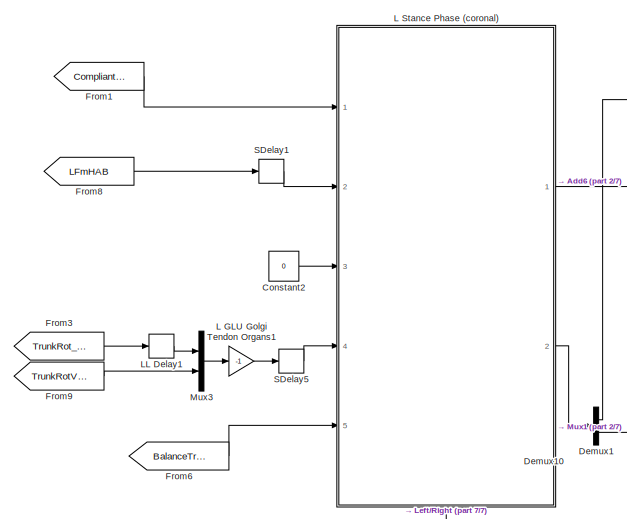
[diagram: Spinal Layer/Stance Leg Control Left - part 1/7, top left region]
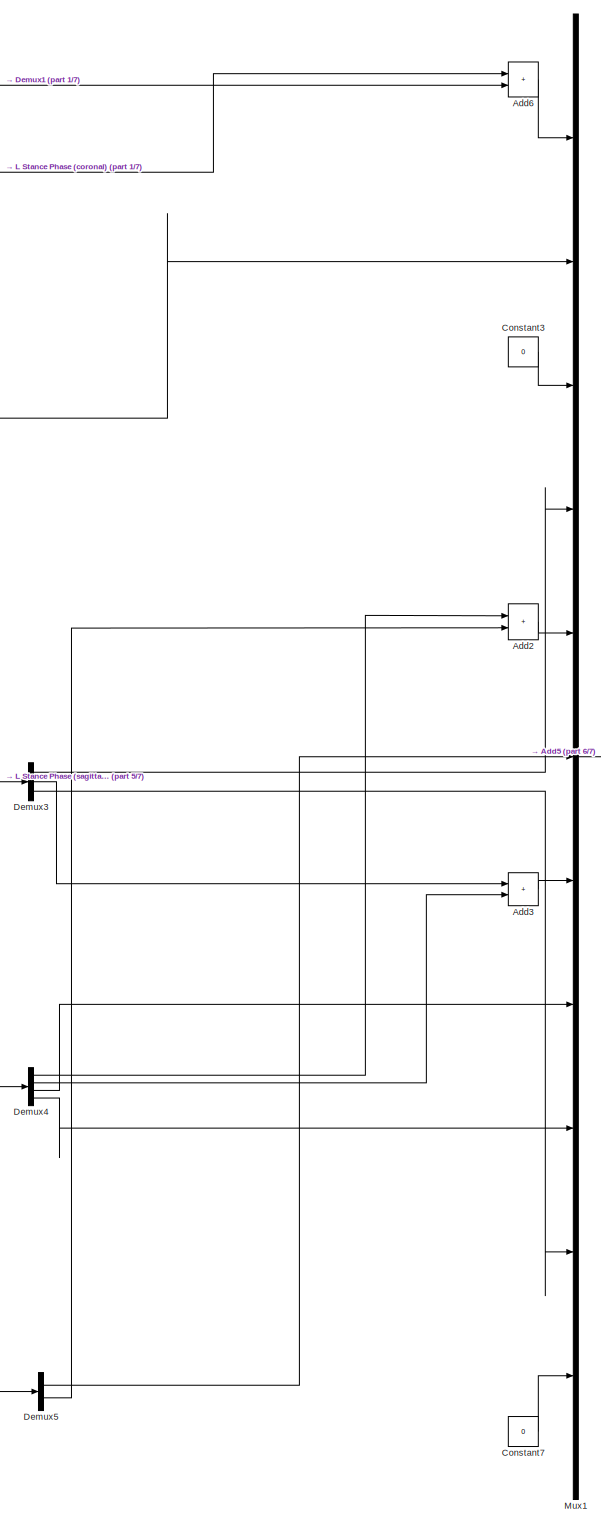
[diagram: Spinal Layer/Stance Leg Control Left - part 2/7, center side, full height]
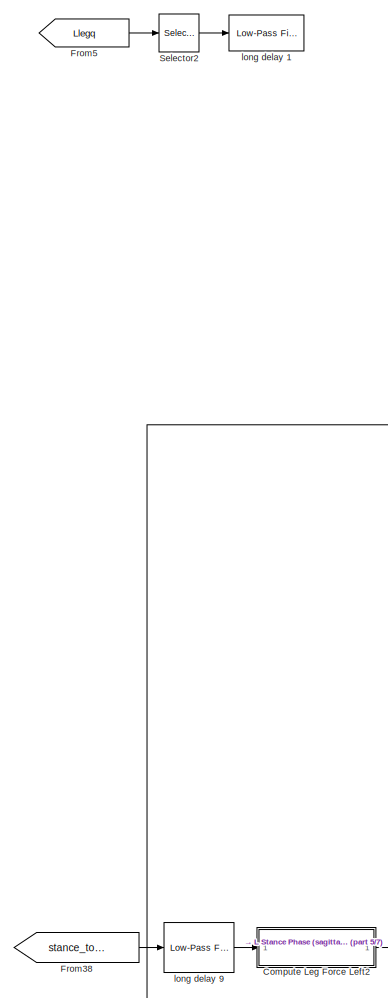
[diagram: Spinal Layer/Stance Leg Control Left - part 3/7, middle left region]
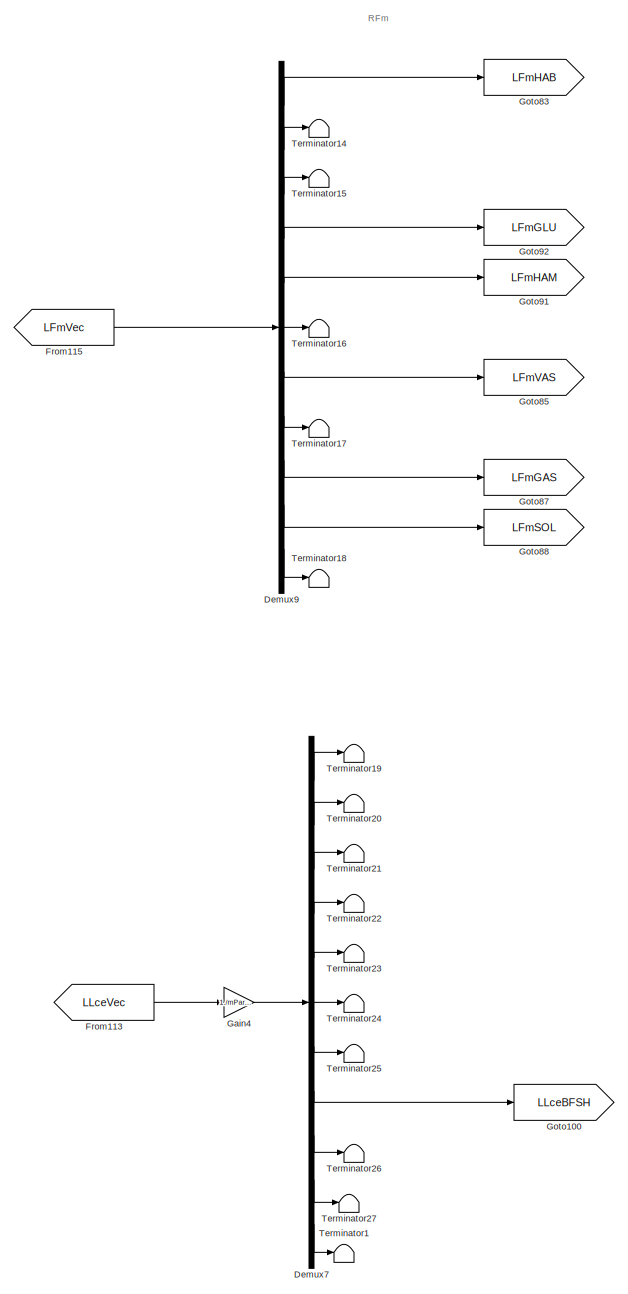
[diagram: Spinal Layer/Stance Leg Control Left - part 4/7, right side, full height]
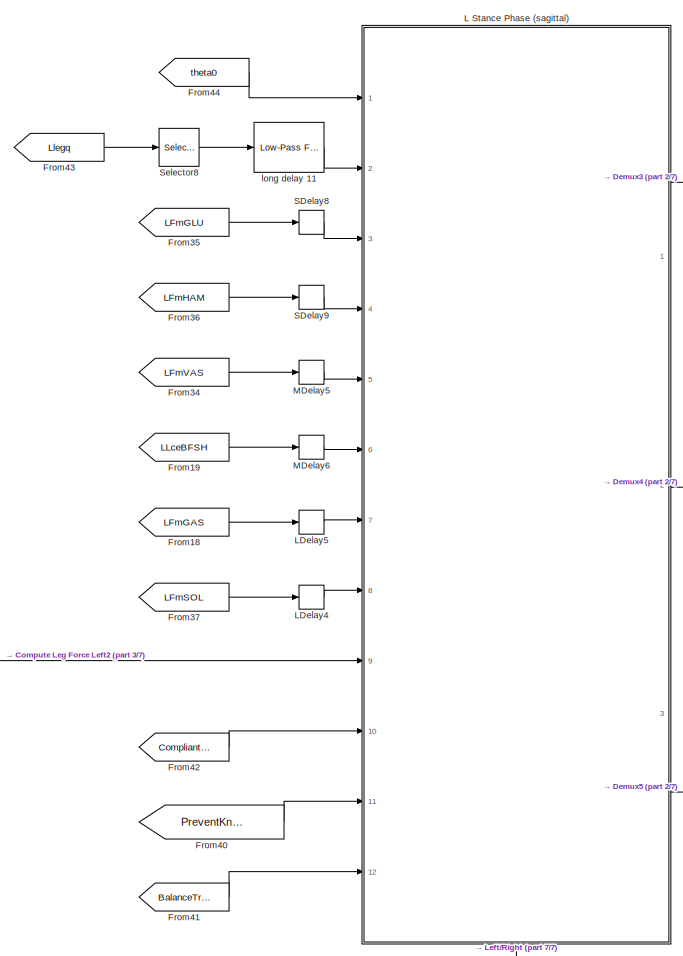
[diagram: Spinal Layer/Stance Leg Control Left - part 5/7, middle left region]
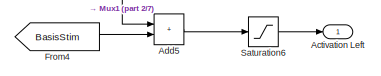
[diagram: Spinal Layer/Stance Leg Control Left - part 6/7, middle right region]
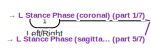
[diagram: Spinal Layer/Stance Leg Control Left - part 7/7, bottom left region]
BLOCK [SubSystem] Spinal Layer/Stance Leg Control Left
  Ports = [1, 1]
  RequestExecContextInheritance = off
BLOCK [Outport] Spinal Layer/Stance Leg Control Left/Activation Left
  NameLocation = top
BLOCK [Sum] Spinal Layer/Stance Leg Control Left/Add2
  IconShape = rectangular
  Ports = [2, 1]
BLOCK [Sum] Spinal Layer/Stance Leg Control Left/Add3
  IconShape = rectangular
  Ports = [2, 1]
BLOCK [Sum] Spinal Layer/Stance Leg Control Left/Add5
  IconShape = rectangular
  Ports = [2, 1]
BLOCK [Sum] Spinal Layer/Stance Leg Control Left/Add6
  IconShape = rectangular
  Ports = [2, 1]
BLOCK [SubSystem] Spinal Layer/Stance Leg Control Left/Compute Leg Force Left2
  Ports = [1, 1]
  RequestExecContextInheritance = off
BLOCK [Product] Spinal Layer/Stance Leg Control Left/Compute Leg Force Left2/Divide1
  Inputs = */
  NameLocation = left
  Ports = [2, 1]
BLOCK [Outport] Spinal Layer/Stance Leg Control Left/Compute Leg Force Left2/Leg Force
BLOCK [Inport] Spinal Layer/Stance Leg Control Left/Compute Leg Force Left2/Leg Torque
BLOCK [Constant] Spinal Layer/Stance Leg Control Left/Compute Leg Force Left2/moment arm leg
  NameLocation = top
  Value = 0.032
BLOCK [Constant] Spinal Layer/Stance Leg Control Left/Constant2
  Value = 0
BLOCK [Constant] Spinal Layer/Stance Leg Control Left/Constant3
  Value = 0
BLOCK [Constant] Spinal Layer/Stance Leg Control Left/Constant7
  Value = 0
BLOCK [Demux] Spinal Layer/Stance Leg Control Left/Demux1
  Outputs = 2
  Ports = [1, 2]
BLOCK [Demux] Spinal Layer/Stance Leg Control Left/Demux10
  Outputs = 2
  Ports = [1, 2]
BLOCK [Demux] Spinal Layer/Stance Leg Control Left/Demux3
  Outputs = 3
  Ports = [1, 3]
BLOCK [Demux] Spinal Layer/Stance Leg Control Left/Demux4
  Ports = [1, 4]
BLOCK [Demux] Spinal Layer/Stance Leg Control Left/Demux5
  Outputs = 2
  Ports = [1, 2]
BLOCK [Demux] Spinal Layer/Stance Leg Control Left/Demux7
  Outputs = 11
  Ports = [1, 11]
BLOCK [Demux] Spinal Layer/Stance Leg Control Left/Demux9
  Outputs = 11
  Ports = [1, 11]
BLOCK [From] Spinal Layer/Stance Leg Control Left/From1
  CloseFcn = tagdialog Close
  GotoTag = CompliantLegLat
  NameLocation = top
  TagVisibility = global
BLOCK [From] Spinal Layer/Stance Leg Control Left/From113
  GotoTag = LLceVec
  TagVisibility = global
BLOCK [From] Spinal Layer/Stance Leg Control Left/From115
  GotoTag = LFmVec
  TagVisibility = global
BLOCK [From] Spinal Layer/Stance Leg Control Left/From18
  CloseFcn = tagdialog Close
  GotoTag = LFmGAS
BLOCK [From] Spinal Layer/Stance Leg Control Left/From19
  CloseFcn = tagdialog Close
  GotoTag = LLceBFSH
BLOCK [From] Spinal Layer/Stance Leg Control Left/From3
  CloseFcn = tagdialog Close
  GotoTag = TrunkRot_lat
  NameLocation = top
  TagVisibility = global
BLOCK [From] Spinal Layer/Stance Leg Control Left/From34
  CloseFcn = tagdialog Close
  GotoTag = LFmVAS
BLOCK [From] Spinal Layer/Stance Leg Control Left/From35
  CloseFcn = tagdialog Close
  GotoTag = LFmGLU
BLOCK [From] Spinal Layer/Stance Leg Control Left/From36
  CloseFcn = tagdialog Close
  GotoTag = LFmHAM
BLOCK [From] Spinal Layer/Stance Leg Control Left/From37
  CloseFcn = tagdialog Close
  GotoTag = LFmSOL
BLOCK [From] Spinal Layer/Stance Leg Control Left/From38
  GotoTag = stance_torque_left_norm
  TagVisibility = global
BLOCK [From] Spinal Layer/Stance Leg Control Left/From4
  GotoTag = BasisStim
  TagVisibility = global
BLOCK [From] Spinal Layer/Stance Leg Control Left/From40
  CloseFcn = tagdialog Close
  GotoTag = PreventKneeOverextension
  NameLocation = top
  TagVisibility = global
BLOCK [From] Spinal Layer/Stance Leg Control Left/From41
  CloseFcn = tagdialog Close
  GotoTag = BalanceTrunk
  NameLocation = top
  TagVisibility = global
BLOCK [From] Spinal Layer/Stance Leg Control Left/From42
  CloseFcn = tagdialog Close
  GotoTag = CompliantLeg
  NameLocation = top
  TagVisibility = global
BLOCK [From] Spinal Layer/Stance Leg Control Left/From43
  CloseFcn = tagdialog Close
  GotoTag = Llegq
  NameLocation = top
  TagVisibility = global
BLOCK [From] Spinal Layer/Stance Leg Control Left/From44
  CloseFcn = tagdialog Close
  GotoTag = theta0
  NameLocation = top
  TagVisibility = global
BLOCK [From] Spinal Layer/Stance Leg Control Left/From5
  CloseFcn = tagdialog Close
  Commented = on
  GotoTag = Llegq
  NameLocation = top
  TagVisibility = global
BLOCK [From] Spinal Layer/Stance Leg Control Left/From6
  CloseFcn = tagdialog Close
  GotoTag = BalanceTrunkLat
  NameLocation = top
  TagVisibility = global
BLOCK [From] Spinal Layer/Stance Leg Control Left/From8
  CloseFcn = tagdialog Close
  GotoTag = LFmHAB
BLOCK [From] Spinal Layer/Stance Leg Control Left/From9
  CloseFcn = tagdialog Close
  GotoTag = TrunkRotVel_lat
  NameLocation = top
  TagVisibility = global
BLOCK [Gain] Spinal Layer/Stance Leg Control Left/Gain4
  Gain = 1./mParams.muscles.loptVec
BLOCK [Goto] Spinal Layer/Stance Leg Control Left/Goto100
  GotoTag = LLceBFSH
BLOCK [Goto] Spinal Layer/Stance Leg Control Left/Goto83
  GotoTag = LFmHAB
BLOCK [Goto] Spinal Layer/Stance Leg Control Left/Goto85
  GotoTag = LFmVAS
BLOCK [Goto] Spinal Layer/Stance Leg Control Left/Goto87
  GotoTag = LFmGAS
BLOCK [Goto] Spinal Layer/Stance Leg Control Left/Goto88
  GotoTag = LFmSOL
BLOCK [Goto] Spinal Layer/Stance Leg Control Left/Goto91
  GotoTag = LFmHAM
BLOCK [Goto] Spinal Layer/Stance Leg Control Left/Goto92
  GotoTag = LFmGLU
BLOCK [Gain] Spinal Layer/Stance Leg Control Left/L GLU Golgi Tendon Organs1
  Gain = -1
  NameLocation = top
BLOCK [SubSystem] Spinal Layer/Stance Leg Control Left/L Stance Phase (coronal)
  NameLocation = top
  Ports = [5, 2, 1]
  RequestExecContextInheritance = off
  TreatAsAtomicUnit = on
BLOCK [Inport] Spinal Layer/Stance Leg Control Left/L Stance Phase (coronal)/BalanceTrunkLat old
  NameLocation = top
  Port = 5
BLOCK [Inport] Spinal Layer/Stance Leg Control Left/L Stance Phase (coronal)/CompliantLegLat
  NameLocation = top
BLOCK [Demux] Spinal Layer/Stance Leg Control Left/L Stance Phase (coronal)/Demux1
  NameLocation = top
  Ports = [1, 4]
BLOCK [Demux] Spinal Layer/Stance Leg Control Left/L Stance Phase (coronal)/Demux7
  Outputs = 2
  Ports = [1, 2]
BLOCK [Product] Spinal Layer/Stance Leg Control Left/L Stance Phase (coronal)/Divide1
  Ports = [2, 1]
BLOCK [Product] Spinal Layer/Stance Leg Control Left/L Stance Phase (coronal)/Divide15
  Ports = [2, 1]
BLOCK [Product] Spinal Layer/Stance Leg Control Left/L Stance Phase (coronal)/Divide2
  Ports = [2, 1]
BLOCK [Product] Spinal Layer/Stance Leg Control Left/L Stance Phase (coronal)/Divide6
  Ports = [2, 1]
BLOCK [Product] Spinal Layer/Stance Leg Control Left/L Stance Phase (coronal)/Divide7
  Ports = [2, 1]
BLOCK [EnablePort] Spinal Layer/Stance Leg Control Left/L Stance Phase (coronal)/Enable
  Ports = []
  StatesWhenEnabling = reset
  ZeroCross = off
BLOCK [Inport] Spinal Layer/Stance Leg Control Left/L Stance Phase (coronal)/FmHAB
  NameLocation = top
  Port = 2
BLOCK [Gain] Spinal Layer/Stance Leg Control Left/L Stance Phase (coronal)/Gain1
  Gain = -1
BLOCK [Gain] Spinal Layer/Stance Leg Control Left/L Stance Phase (coronal)/Gain3
  Gain = -1
BLOCK [Gain] Spinal Layer/Stance Leg Control Left/L Stance Phase (coronal)/Gain4
BLOCK [Mux] Spinal Layer/Stance Leg Control Left/L Stance Phase (coronal)/Mux2
  DisplayOption = bar
  Inputs = 2
  NameLocation = top
  Ports = [2, 1]
BLOCK [Outport] Spinal Layer/Stance Leg Control Left/L Stance Phase (coronal)/S_M1 [HAB]
  InitialOutput = 0
  OutputWhenDisabled = reset
  VectorParamsAs1DForOutWhenUnconnected = off
BLOCK [Outport] Spinal Layer/Stance Leg Control Left/L Stance Phase (coronal)/S_M3 [HAB HAD] old
  InitialOutput = 0
  OutputWhenDisabled = reset
  Port = 2
  VectorParamsAs1DForOutWhenUnconnected = off
BLOCK [Sum] Spinal Layer/Stance Leg Control Left/L Stance Phase (coronal)/Sum1
  InputSameDT = on
  Inputs = -+|
  OutDataTypeStr = Inherit: Same as first input
  Ports = [2, 1]
  SaturateOnIntegerOverflow = on
BLOCK [Sum] Spinal Layer/Stance Leg Control Left/L Stance Phase (coronal)/Sum5
  InputSameDT = on
  Inputs = |++
  OutDataTypeStr = Inherit: Same as first input
  Ports = [2, 1]
  SaturateOnIntegerOverflow = on
BLOCK [Sum] Spinal Layer/Stance Leg Control Left/L Stance Phase (coronal)/Sum6
  InputSameDT = on
  Inputs = |++
  OutDataTypeStr = Inherit: Same as first input
  Ports = [2, 1]
  SaturateOnIntegerOverflow = on
BLOCK [Saturate] Spinal Layer/Stance Leg Control Left/L Stance Phase (coronal)/positive half3
  LowerLimit = 0
  UpperLimit = inf
  ZeroCross = off
BLOCK [Saturate] Spinal Layer/Stance Leg Control Left/L Stance Phase (coronal)/positive half4
  LowerLimit = 0
  UpperLimit = inf
  ZeroCross = off
BLOCK [Inport] Spinal Layer/Stance Leg Control Left/L Stance Phase (coronal)/theta dtheta [rad rad//s]
  Port = 4
BLOCK [Inport] Spinal Layer/Stance Leg Control Left/L Stance Phase (coronal)/theta_tgt [rad] world
  Port = 3
BLOCK [SubSystem] Spinal Layer/Stance Leg Control Left/L Stance Phase (sagittal)
  NameLocation = top
  Ports = [12, 3, 1]
  RequestExecContextInheritance = off
  TreatAsAtomicUnit = on
BLOCK [Inport] Spinal Layer/Stance Leg Control Left/L Stance Phase (sagittal)/Balance Trunk
  Port = 12
BLOCK [Inport] Spinal Layer/Stance Leg Control Left/L Stance Phase (sagittal)/Compliant Leg
  Port = 10
BLOCK [Demux] Spinal Layer/Stance Leg Control Left/L Stance Phase (sagittal)/Demux3
  Outputs = 3
  Ports = [1, 3]
BLOCK [Demux] Spinal Layer/Stance Leg Control Left/L Stance Phase (sagittal)/Demux5
  Outputs = 2
  Ports = [1, 2]
BLOCK [Demux] Spinal Layer/Stance Leg Control Left/L Stance Phase (sagittal)/Demux8
  Outputs = 6
  Ports = [1, 6]
BLOCK [Product] Spinal Layer/Stance Leg Control Left/L Stance Phase (sagittal)/Divide10
  Ports = [2, 1]
BLOCK [Product] Spinal Layer/Stance Leg Control Left/L Stance Phase (sagittal)/Divide11
  Ports = [2, 1]
BLOCK [Product] Spinal Layer/Stance Leg Control Left/L Stance Phase (sagittal)/Divide13
  Ports = [2, 1]
BLOCK [Product] Spinal Layer/Stance Leg Control Left/L Stance Phase (sagittal)/Divide14
  Ports = [2, 1]
BLOCK [Product] Spinal Layer/Stance Leg Control Left/L Stance Phase (sagittal)/Divide15
  Ports = [2, 1]
BLOCK [Product] Spinal Layer/Stance Leg Control Left/L Stance Phase (sagittal)/Divide19
  Ports = [2, 1]
BLOCK [Product] Spinal Layer/Stance Leg Control Left/L Stance Phase (sagittal)/Divide4
  Ports = [2, 1]
BLOCK [Product] Spinal Layer/Stance Leg Control Left/L Stance Phase (sagittal)/Divide7
  Ports = [2, 1]
BLOCK [Product] Spinal Layer/Stance Leg Control Left/L Stance Phase (sagittal)/Divide8
  Ports = [2, 1]
BLOCK [EnablePort] Spinal Layer/Stance Leg Control Left/L Stance Phase (sagittal)/Enable
  Ports = []
  StatesWhenEnabling = reset
  ZeroCross = off
BLOCK [Inport] Spinal Layer/Stance Leg Control Left/L Stance Phase (sagittal)/Fleg//Fleg_max [-]
  Port = 9
BLOCK [Inport] Spinal Layer/Stance Leg Control Left/L Stance Phase (sagittal)/FmGAS
  Port = 7
BLOCK [Inport] Spinal Layer/Stance Leg Control Left/L Stance Phase (sagittal)/FmGLU
  Port = 3
BLOCK [Inport] Spinal Layer/Stance Leg Control Left/L Stance Phase (sagittal)/FmHAM
  Port = 4
BLOCK [Inport] Spinal Layer/Stance Leg Control Left/L Stance Phase (sagittal)/FmSOL
  Port = 8
BLOCK [Inport] Spinal Layer/Stance Leg Control Left/L Stance Phase (sagittal)/FmVAS
  Port = 5
BLOCK [Gain] Spinal Layer/Stance Leg Control Left/L Stance Phase (sagittal)/Gain
  Gain = -1
BLOCK [Gain] Spinal Layer/Stance Leg Control Left/L Stance Phase (sagittal)/Gain2
  Gain = -1
BLOCK [Gain] Spinal Layer/Stance Leg Control Left/L Stance Phase (sagittal)/Gain4
BLOCK [Inport] Spinal Layer/Stance Leg Control Left/L Stance Phase (sagittal)/LceBFSH
  Port = 6
BLOCK [Mux] Spinal Layer/Stance Leg Control Left/L Stance Phase (sagittal)/Mux1
  DisplayOption = bar
  Inputs = 2
  NameLocation = top
  Ports = [2, 1]
BLOCK [Mux] Spinal Layer/Stance Leg Control Left/L Stance Phase (sagittal)/Mux2
  DisplayOption = bar
  Inputs = 3
  NameLocation = top
  Ports = [3, 1]
BLOCK [Mux] Spinal Layer/Stance Leg Control Left/L Stance Phase (sagittal)/Mux4
  DisplayOption = bar
  NameLocation = top
  Ports = [4, 1]
BLOCK [Inport] Spinal Layer/Stance Leg Control Left/L Stance Phase (sagittal)/Prevent Knee Overextension
  Port = 11
BLOCK [Product] Spinal Layer/Stance Leg Control Left/L Stance Phase (sagittal)/Product
  Ports = [2, 1]
BLOCK [Outport] Spinal Layer/Stance Leg Control Left/L Stance Phase (sagittal)/S_M1 [GLU VAS SOL]
  InitialOutput = 0
  OutputWhenDisabled = reset
  VectorParamsAs1DForOutWhenUnconnected = off
BLOCK [Outport] Spinal Layer/Stance Leg Control Left/L Stance Phase (sagittal)/S_M2 [HAM VAS BFSH GAS]
  InitialOutput = 0
  OutputWhenDisabled = reset
  Port = 2
  VectorParamsAs1DForOutWhenUnconnected = off
BLOCK [Outport] Spinal Layer/Stance Leg Control Left/L Stance Phase (sagittal)/S_M3 [RF HAM]
  InitialOutput = 0
  OutputWhenDisabled = reset
  Port = 3
  VectorParamsAs1DForOutWhenUnconnected = off
BLOCK [Sum] Spinal Layer/Stance Leg Control Left/L Stance Phase (sagittal)/Sum1
  InputSameDT = on
  Inputs = -+|
  OutDataTypeStr = Inherit: Same as first input
  Ports = [2, 1]
  SaturateOnIntegerOverflow = on
BLOCK [Sum] Spinal Layer/Stance Leg Control Left/L Stance Phase (sagittal)/Sum3
  InputSameDT = on
  Inputs = -+|
  OutDataTypeStr = Inherit: Same as first input
  Ports = [2, 1]
  SaturateOnIntegerOverflow = on
BLOCK [Sum] Spinal Layer/Stance Leg Control Left/L Stance Phase (sagittal)/Sum4
  InputSameDT = on
  Inputs = -+|
  OutDataTypeStr = Inherit: Same as first input
  Ports = [2, 1]
  SaturateOnIntegerOverflow = on
BLOCK [Saturate] Spinal Layer/Stance Leg Control Left/L Stance Phase (sagittal)/positive half1
  LowerLimit = 0
  UpperLimit = 1
  ZeroCross = off
BLOCK [Saturate] Spinal Layer/Stance Leg Control Left/L Stance Phase (sagittal)/positive half2
  LowerLimit = 0
  UpperLimit = 1
  ZeroCross = off
BLOCK [Saturate] Spinal Layer/Stance Leg Control Left/L Stance Phase (sagittal)/positive half3
  LowerLimit = 0
  UpperLimit = inf
  ZeroCross = off
BLOCK [Saturate] Spinal Layer/Stance Leg Control Left/L Stance Phase (sagittal)/positive half4
  LowerLimit = 0
  UpperLimit = inf
  ZeroCross = off
BLOCK [Inport] Spinal Layer/Stance Leg Control Left/L Stance Phase (sagittal)/theta [rad]
  Port = 2
BLOCK [Inport] Spinal Layer/Stance Leg Control Left/L Stance Phase (sagittal)/theta_tgt [rad]
BLOCK [TransportDelay] Spinal Layer/Stance Leg Control Left/LDelay4
  DelayTime = mParams.control.delays.long
  Ports = [1, 1]
BLOCK [TransportDelay] Spinal Layer/Stance Leg Control Left/LDelay5
  DelayTime = mParams.control.delays.long
  Ports = [1, 1]
BLOCK [TransportDelay] Spinal Layer/Stance Leg Control Left/LL Delay1
  DelayTime = mParams.control.delays.longloop/2
  NameLocation = top
  Ports = [1, 1]
BLOCK [Inport] Spinal Layer/Stance Leg Control Left/Left//Right
BLOCK [TransportDelay] Spinal Layer/Stance Leg Control Left/MDelay5
  DelayTime = mParams.control.delays.mid
  Ports = [1, 1]
BLOCK [TransportDelay] Spinal Layer/Stance Leg Control Left/MDelay6
  DelayTime = mParams.control.delays.mid
  Ports = [1, 1]
BLOCK [Mux] Spinal Layer/Stance Leg Control Left/Mux1
  DisplayOption = bar
  Inputs = 11
  Ports = [11, 1]
BLOCK [Mux] Spinal Layer/Stance Leg Control Left/Mux3
  DisplayOption = bar
  Inputs = 2
  Ports = [2, 1]
BLOCK [TransportDelay] Spinal Layer/Stance Leg Control Left/SDelay1
  DelayTime = mParams.control.delays.short
  Ports = [1, 1]
BLOCK [TransportDelay] Spinal Layer/Stance Leg Control Left/SDelay5
  DelayTime = mParams.control.delays.short
  Ports = [1, 1]
BLOCK [TransportDelay] Spinal Layer/Stance Leg Control Left/SDelay8
  DelayTime = mParams.control.delays.short
  Ports = [1, 1]
BLOCK [TransportDelay] Spinal Layer/Stance Leg Control Left/SDelay9
  DelayTime = mParams.control.delays.short
  Ports = [1, 1]
BLOCK [Saturate] Spinal Layer/Stance Leg Control Left/Saturation6
  LowerLimit = 0.01
  NameLocation = top
  UpperLimit = 1
  ZeroCross = off
BLOCK [Selector] Spinal Layer/Stance Leg Control Left/Selector2
  Commented = on
  IndexOptions = Index vector (dialog)
  Indices = [2]
  InputPortWidth = 4
  OutputSizes = 1
  Ports = [1, 1]
BLOCK [Selector] Spinal Layer/Stance Leg Control Left/Selector8
  IndexOptions = Index vector (dialog)
  Indices = [1 ]
  InputPortWidth = 4
  OutputSizes = 1
  Ports = [1, 1]
BLOCK [Terminator] Spinal Layer/Stance Leg Control Left/Terminator1
BLOCK [Terminator] Spinal Layer/Stance Leg Control Left/Terminator14
BLOCK [Terminator] Spinal Layer/Stance Leg Control Left/Terminator15
BLOCK [Terminator] Spinal Layer/Stance Leg Control Left/Terminator16
BLOCK [Terminator] Spinal Layer/Stance Leg Control Left/Terminator17
BLOCK [Terminator] Spinal Layer/Stance Leg Control Left/Terminator18
BLOCK [Terminator] Spinal Layer/Stance Leg Control Left/Terminator19
BLOCK [Terminator] Spinal Layer/Stance Leg Control Left/Terminator20
BLOCK [Terminator] Spinal Layer/Stance Leg Control Left/Terminator21
BLOCK [Terminator] Spinal Layer/Stance Leg Control Left/Terminator22
BLOCK [Terminator] Spinal Layer/Stance Leg Control Left/Terminator23
BLOCK [Terminator] Spinal Layer/Stance Leg Control Left/Terminator24
BLOCK [Terminator] Spinal Layer/Stance Leg Control Left/Terminator25
BLOCK [Terminator] Spinal Layer/Stance Leg Control Left/Terminator26
BLOCK [Terminator] Spinal Layer/Stance Leg Control Left/Terminator27
BLOCK [Reference] Spinal Layer/Stance Leg Control Left/long delay 1  REF=eeGeneralControl/Low-Pass Filter
(Discrete or Continuous)
  Commented = on
  Ports = [1, 1]
  SourceBlock = eeGeneralControl/Low-Pass Filter\n(Discrete or Continuous)
  SourceProductBaseCode = PS
  SourceType = Low-Pass Filter (Discrete or Continuous)
BLOCK [Reference] Spinal Layer/Stance Leg Control Left/long delay 11  REF=eeGeneralControl/Low-Pass Filter
(Discrete or Continuous)
  Ports = [1, 1]
  SourceBlock = eeGeneralControl/Low-Pass Filter\n(Discrete or Continuous)
  SourceProductBaseCode = PS
  SourceType = Low-Pass Filter (Discrete or Continuous)
BLOCK [Reference] Spinal Layer/Stance Leg Control Left/long delay 9  REF=eeGeneralControl/Low-Pass Filter
(Discrete or Continuous)
  Ports = [1, 1]
  SourceBlock = eeGeneralControl/Low-Pass Filter\n(Discrete or Continuous)
  SourceProductBaseCode = PS
  SourceType = Low-Pass Filter (Discrete or Continuous)
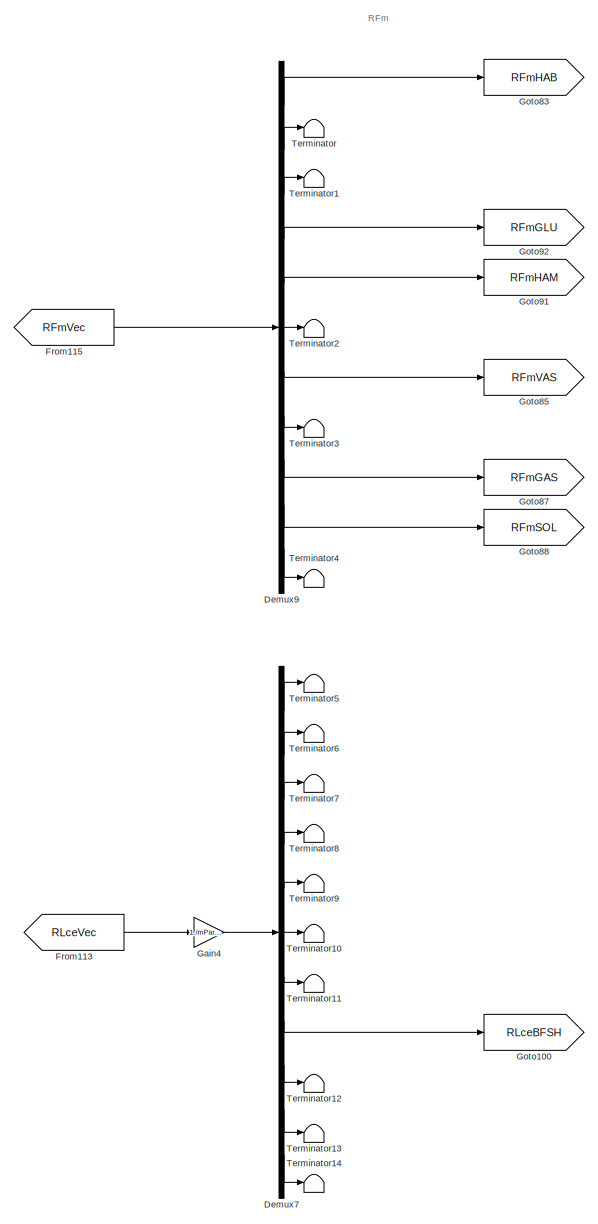
[diagram: Spinal Layer/Stance Leg Control Right - part 1/7, top right region]
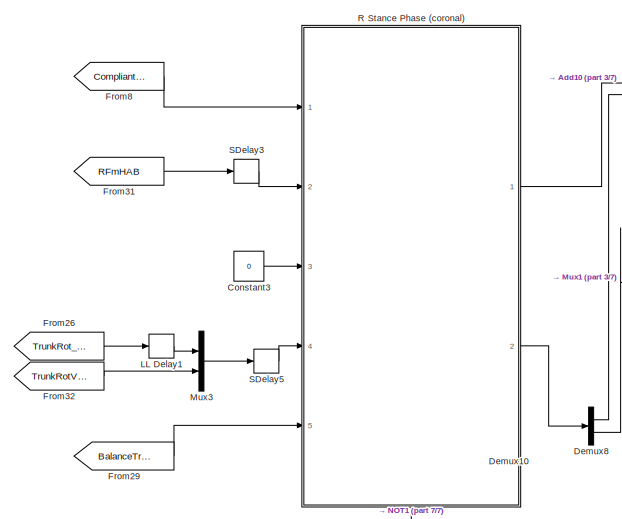
[diagram: Spinal Layer/Stance Leg Control Right - part 2/7, middle left region]
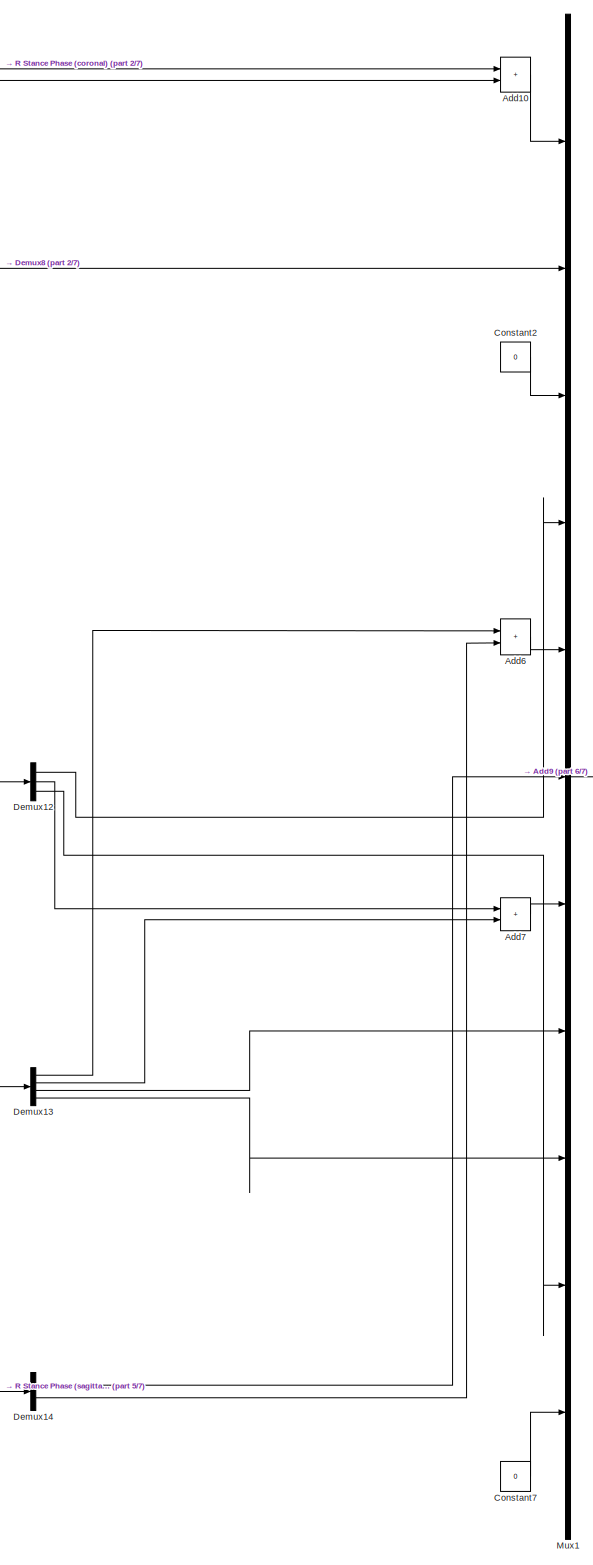
[diagram: Spinal Layer/Stance Leg Control Right - part 3/7, bottom center region]
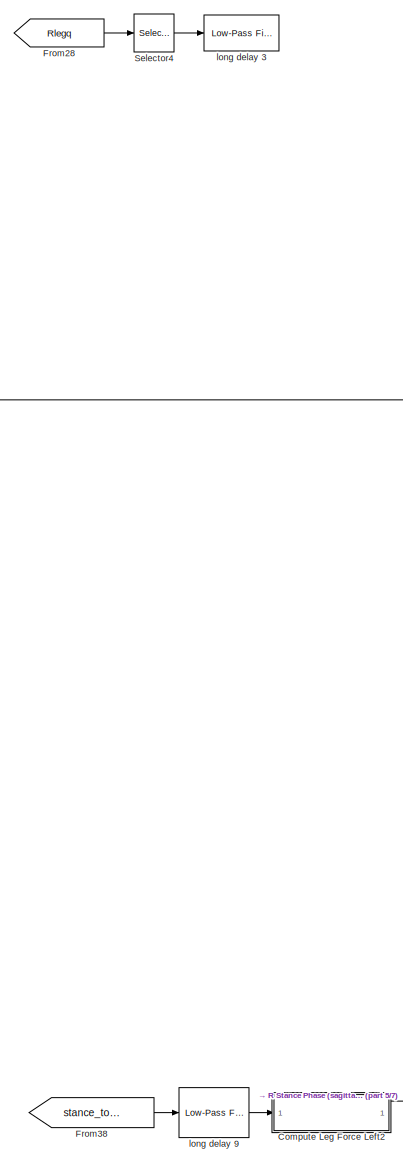
[diagram: Spinal Layer/Stance Leg Control Right - part 4/7, bottom left region]
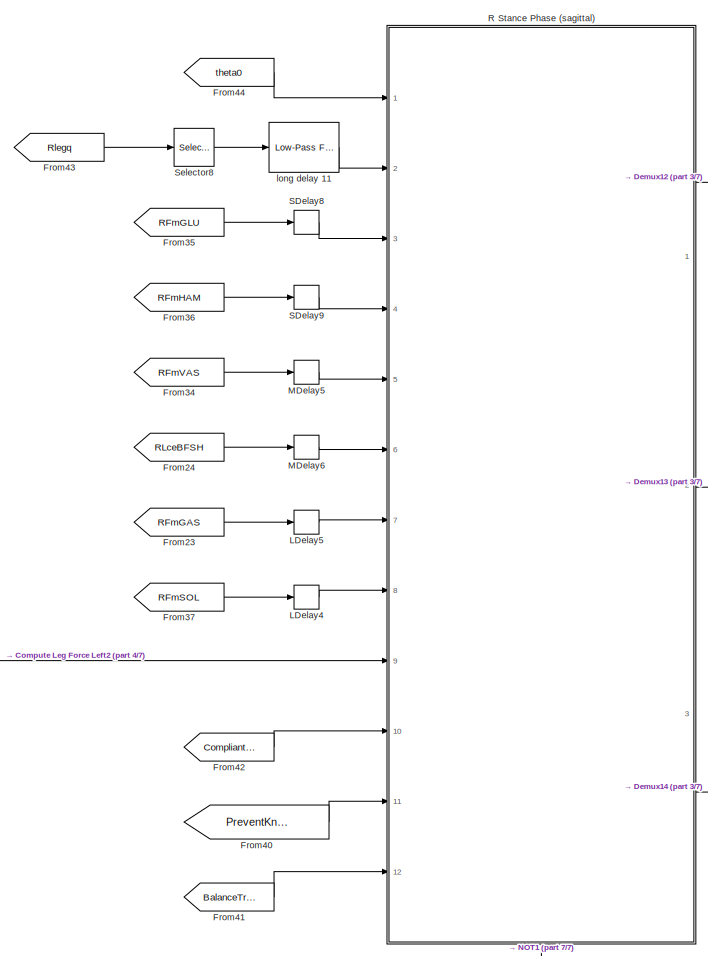
[diagram: Spinal Layer/Stance Leg Control Right - part 5/7, bottom left region]
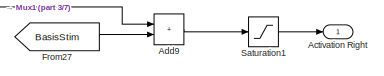
[diagram: Spinal Layer/Stance Leg Control Right - part 6/7, bottom right region]
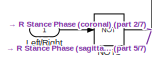
[diagram: Spinal Layer/Stance Leg Control Right - part 7/7, bottom left region]
BLOCK [SubSystem] Spinal Layer/Stance Leg Control Right
  Ports = [1, 1]
  RequestExecContextInheritance = off
BLOCK [Outport] Spinal Layer/Stance Leg Control Right/Activation Right
  NameLocation = top
BLOCK [Sum] Spinal Layer/Stance Leg Control Right/Add10
  IconShape = rectangular
  Ports = [2, 1]
BLOCK [Sum] Spinal Layer/Stance Leg Control Right/Add6
  IconShape = rectangular
  Ports = [2, 1]
BLOCK [Sum] Spinal Layer/Stance Leg Control Right/Add7
  IconShape = rectangular
  Ports = [2, 1]
BLOCK [Sum] Spinal Layer/Stance Leg Control Right/Add9
  IconShape = rectangular
  Ports = [2, 1]
BLOCK [SubSystem] Spinal Layer/Stance Leg Control Right/Compute Leg Force Left2
  Ports = [1, 1]
  RequestExecContextInheritance = off
BLOCK [Product] Spinal Layer/Stance Leg Control Right/Compute Leg Force Left2/Divide1
  Inputs = */
  NameLocation = left
  Ports = [2, 1]
BLOCK [Outport] Spinal Layer/Stance Leg Control Right/Compute Leg Force Left2/Leg Force
BLOCK [Inport] Spinal Layer/Stance Leg Control Right/Compute Leg Force Left2/Leg Torque
BLOCK [Constant] Spinal Layer/Stance Leg Control Right/Compute Leg Force Left2/moment arm leg
  NameLocation = top
  Value = 0.032
BLOCK [Constant] Spinal Layer/Stance Leg Control Right/Constant2
  Value = 0
BLOCK [Constant] Spinal Layer/Stance Leg Control Right/Constant3
  Value = 0
BLOCK [Constant] Spinal Layer/Stance Leg Control Right/Constant7
  Value = 0
BLOCK [Demux] Spinal Layer/Stance Leg Control Right/Demux10
  Outputs = 2
  Ports = [1, 2]
BLOCK [Demux] Spinal Layer/Stance Leg Control Right/Demux12
  Outputs = 3
  Ports = [1, 3]
BLOCK [Demux] Spinal Layer/Stance Leg Control Right/Demux13
  Ports = [1, 4]
BLOCK [Demux] Spinal Layer/Stance Leg Control Right/Demux14
  Outputs = 2
  Ports = [1, 2]
BLOCK [Demux] Spinal Layer/Stance Leg Control Right/Demux7
  Outputs = 11
  Ports = [1, 11]
BLOCK [Demux] Spinal Layer/Stance Leg Control Right/Demux8
  Outputs = 2
  Ports = [1, 2]
BLOCK [Demux] Spinal Layer/Stance Leg Control Right/Demux9
  Outputs = 11
  Ports = [1, 11]
BLOCK [From] Spinal Layer/Stance Leg Control Right/From113
  GotoTag = RLceVec
  TagVisibility = global
BLOCK [From] Spinal Layer/Stance Leg Control Right/From115
  GotoTag = RFmVec
  TagVisibility = global
BLOCK [From] Spinal Layer/Stance Leg Control Right/From23
  CloseFcn = tagdialog Close
  GotoTag = RFmGAS
BLOCK [From] Spinal Layer/Stance Leg Control Right/From24
  CloseFcn = tagdialog Close
  GotoTag = RLceBFSH
BLOCK [From] Spinal Layer/Stance Leg Control Right/From26
  CloseFcn = tagdialog Close
  GotoTag = TrunkRot_lat
  NameLocation = top
  TagVisibility = global
BLOCK [From] Spinal Layer/Stance Leg Control Right/From27
  GotoTag = BasisStim
  TagVisibility = global
BLOCK [From] Spinal Layer/Stance Leg Control Right/From28
  CloseFcn = tagdialog Close
  Commented = on
  GotoTag = Rlegq
  NameLocation = top
  TagVisibility = global
BLOCK [From] Spinal Layer/Stance Leg Control Right/From29
  CloseFcn = tagdialog Close
  GotoTag = BalanceTrunkLat
  NameLocation = top
  TagVisibility = global
BLOCK [From] Spinal Layer/Stance Leg Control Right/From31
  CloseFcn = tagdialog Close
  GotoTag = RFmHAB
BLOCK [From] Spinal Layer/Stance Leg Control Right/From32
  CloseFcn = tagdialog Close
  GotoTag = TrunkRotVel_lat
  NameLocation = top
  TagVisibility = global
BLOCK [From] Spinal Layer/Stance Leg Control Right/From34
  CloseFcn = tagdialog Close
  GotoTag = RFmVAS
BLOCK [From] Spinal Layer/Stance Leg Control Right/From35
  CloseFcn = tagdialog Close
  GotoTag = RFmGLU
BLOCK [From] Spinal Layer/Stance Leg Control Right/From36
  CloseFcn = tagdialog Close
  GotoTag = RFmHAM
BLOCK [From] Spinal Layer/Stance Leg Control Right/From37
  CloseFcn = tagdialog Close
  GotoTag = RFmSOL
BLOCK [From] Spinal Layer/Stance Leg Control Right/From38
  GotoTag = stance_torque_right_norm
  TagVisibility = global
BLOCK [From] Spinal Layer/Stance Leg Control Right/From40
  CloseFcn = tagdialog Close
  GotoTag = PreventKneeOverextension
  NameLocation = top
  TagVisibility = global
BLOCK [From] Spinal Layer/Stance Leg Control Right/From41
  CloseFcn = tagdialog Close
  GotoTag = BalanceTrunk
  NameLocation = top
  TagVisibility = global
BLOCK [From] Spinal Layer/Stance Leg Control Right/From42
  CloseFcn = tagdialog Close
  GotoTag = CompliantLeg
  NameLocation = top
  TagVisibility = global
BLOCK [From] Spinal Layer/Stance Leg Control Right/From43
  CloseFcn = tagdialog Close
  GotoTag = Rlegq
  NameLocation = top
  TagVisibility = global
BLOCK [From] Spinal Layer/Stance Leg Control Right/From44
  CloseFcn = tagdialog Close
  GotoTag = theta0
  NameLocation = top
  TagVisibility = global
BLOCK [From] Spinal Layer/Stance Leg Control Right/From8
  CloseFcn = tagdialog Close
  GotoTag = CompliantLegLat
  NameLocation = top
  TagVisibility = global
BLOCK [Gain] Spinal Layer/Stance Leg Control Right/Gain4
  Gain = 1./mParams.muscles.loptVec
BLOCK [Goto] Spinal Layer/Stance Leg Control Right/Goto100
  GotoTag = RLceBFSH
BLOCK [Goto] Spinal Layer/Stance Leg Control Right/Goto83
  GotoTag = RFmHAB
BLOCK [Goto] Spinal Layer/Stance Leg Control Right/Goto85
  GotoTag = RFmVAS
BLOCK [Goto] Spinal Layer/Stance Leg Control Right/Goto87
  GotoTag = RFmGAS
BLOCK [Goto] Spinal Layer/Stance Leg Control Right/Goto88
  GotoTag = RFmSOL
BLOCK [Goto] Spinal Layer/Stance Leg Control Right/Goto91
  GotoTag = RFmHAM
BLOCK [Goto] Spinal Layer/Stance Leg Control Right/Goto92
  GotoTag = RFmGLU
BLOCK [TransportDelay] Spinal Layer/Stance Leg Control Right/LDelay4
  DelayTime = mParams.control.delays.long
  Ports = [1, 1]
BLOCK [TransportDelay] Spinal Layer/Stance Leg Control Right/LDelay5
  DelayTime = mParams.control.delays.long
  Ports = [1, 1]
BLOCK [TransportDelay] Spinal Layer/Stance Leg Control Right/LL Delay1
  DelayTime = mParams.control.delays.longloop/2
  NameLocation = top
  Ports = [1, 1]
BLOCK [Inport] Spinal Layer/Stance Leg Control Right/Left//Right
BLOCK [TransportDelay] Spinal Layer/Stance Leg Control Right/MDelay5
  DelayTime = mParams.control.delays.mid
  Ports = [1, 1]
BLOCK [TransportDelay] Spinal Layer/Stance Leg Control Right/MDelay6
  DelayTime = mParams.control.delays.mid
  Ports = [1, 1]
BLOCK [Mux] Spinal Layer/Stance Leg Control Right/Mux1
  DisplayOption = bar
  Inputs = 11
  Ports = [11, 1]
BLOCK [Mux] Spinal Layer/Stance Leg Control Right/Mux3
  DisplayOption = bar
  Inputs = 2
  Ports = [2, 1]
BLOCK [Logic] Spinal Layer/Stance Leg Control Right/NOT1
  AllPortsSameDT = off
  Operator = NOT
  OutDataTypeStr = boolean
  Ports = [1, 1]
BLOCK [SubSystem] Spinal Layer/Stance Leg Control Right/R Stance Phase (coronal)
  NameLocation = top
  Ports = [5, 2, 1]
  RequestExecContextInheritance = off
  TreatAsAtomicUnit = on
BLOCK [Inport] Spinal Layer/Stance Leg Control Right/R Stance Phase (coronal)/BalanceTrunkLat old
  NameLocation = top
  Port = 5
BLOCK [Inport] Spinal Layer/Stance Leg Control Right/R Stance Phase (coronal)/CompliantLegLat
  NameLocation = top
BLOCK [Demux] Spinal Layer/Stance Leg Control Right/R Stance Phase (coronal)/Demux1
  NameLocation = top
  Ports = [1, 4]
BLOCK [Demux] Spinal Layer/Stance Leg Control Right/R Stance Phase (coronal)/Demux7
  Outputs = 2
  Ports = [1, 2]
BLOCK [Product] Spinal Layer/Stance Leg Control Right/R Stance Phase (coronal)/Divide1
  Ports = [2, 1]
BLOCK [Product] Spinal Layer/Stance Leg Control Right/R Stance Phase (coronal)/Divide15
  Ports = [2, 1]
BLOCK [Product] Spinal Layer/Stance Leg Control Right/R Stance Phase (coronal)/Divide2
  Ports = [2, 1]
BLOCK [Product] Spinal Layer/Stance Leg Control Right/R Stance Phase (coronal)/Divide6
  Ports = [2, 1]
BLOCK [Product] Spinal Layer/Stance Leg Control Right/R Stance Phase (coronal)/Divide7
  Ports = [2, 1]
BLOCK [EnablePort] Spinal Layer/Stance Leg Control Right/R Stance Phase (coronal)/Enable
  Ports = []
  StatesWhenEnabling = reset
  ZeroCross = off
BLOCK [Inport] Spinal Layer/Stance Leg Control Right/R Stance Phase (coronal)/FmHAB
  NameLocation = top
  Port = 2
BLOCK [Gain] Spinal Layer/Stance Leg Control Right/R Stance Phase (coronal)/Gain1
  Gain = -1
BLOCK [Gain] Spinal Layer/Stance Leg Control Right/R Stance Phase (coronal)/Gain3
  Gain = -1
BLOCK [Gain] Spinal Layer/Stance Leg Control Right/R Stance Phase (coronal)/Gain4
BLOCK [Mux] Spinal Layer/Stance Leg Control Right/R Stance Phase (coronal)/Mux2
  DisplayOption = bar
  Inputs = 2
  NameLocation = top
  Ports = [2, 1]
BLOCK [Outport] Spinal Layer/Stance Leg Control Right/R Stance Phase (coronal)/S_M1 [HAB]
  InitialOutput = 0
  OutputWhenDisabled = reset
  VectorParamsAs1DForOutWhenUnconnected = off
BLOCK [Outport] Spinal Layer/Stance Leg Control Right/R Stance Phase (coronal)/S_M3 [HAB HAD] old
  InitialOutput = 0
  OutputWhenDisabled = reset
  Port = 2
  VectorParamsAs1DForOutWhenUnconnected = off
BLOCK [Sum] Spinal Layer/Stance Leg Control Right/R Stance Phase (coronal)/Sum1
  InputSameDT = on
  Inputs = -+|
  OutDataTypeStr = Inherit: Same as first input
  Ports = [2, 1]
  SaturateOnIntegerOverflow = on
BLOCK [Sum] Spinal Layer/Stance Leg Control Right/R Stance Phase (coronal)/Sum5
  InputSameDT = on
  Inputs = |++
  OutDataTypeStr = Inherit: Same as first input
  Ports = [2, 1]
  SaturateOnIntegerOverflow = on
BLOCK [Sum] Spinal Layer/Stance Leg Control Right/R Stance Phase (coronal)/Sum6
  InputSameDT = on
  Inputs = |++
  OutDataTypeStr = Inherit: Same as first input
  Ports = [2, 1]
  SaturateOnIntegerOverflow = on
BLOCK [Saturate] Spinal Layer/Stance Leg Control Right/R Stance Phase (coronal)/positive half3
  LowerLimit = 0
  UpperLimit = inf
  ZeroCross = off
BLOCK [Saturate] Spinal Layer/Stance Leg Control Right/R Stance Phase (coronal)/positive half4
  LowerLimit = 0
  UpperLimit = inf
  ZeroCross = off
BLOCK [Inport] Spinal Layer/Stance Leg Control Right/R Stance Phase (coronal)/theta dtheta [rad rad//s]
  Port = 4
BLOCK [Inport] Spinal Layer/Stance Leg Control Right/R Stance Phase (coronal)/theta_tgt [rad] world
  Port = 3
BLOCK [SubSystem] Spinal Layer/Stance Leg Control Right/R Stance Phase (sagittal)
  NameLocation = top
  Ports = [12, 3, 1]
  RequestExecContextInheritance = off
  TreatAsAtomicUnit = on
BLOCK [Inport] Spinal Layer/Stance Leg Control Right/R Stance Phase (sagittal)/Balance Trunk
  Port = 12
BLOCK [Inport] Spinal Layer/Stance Leg Control Right/R Stance Phase (sagittal)/Compliant Leg
  Port = 10
BLOCK [Demux] Spinal Layer/Stance Leg Control Right/R Stance Phase (sagittal)/Demux3
  Outputs = 3
  Ports = [1, 3]
BLOCK [Demux] Spinal Layer/Stance Leg Control Right/R Stance Phase (sagittal)/Demux5
  Outputs = 2
  Ports = [1, 2]
BLOCK [Demux] Spinal Layer/Stance Leg Control Right/R Stance Phase (sagittal)/Demux8
  Outputs = 6
  Ports = [1, 6]
BLOCK [Product] Spinal Layer/Stance Leg Control Right/R Stance Phase (sagittal)/Divide10
  Ports = [2, 1]
BLOCK [Product] Spinal Layer/Stance Leg Control Right/R Stance Phase (sagittal)/Divide11
  Ports = [2, 1]
BLOCK [Product] Spinal Layer/Stance Leg Control Right/R Stance Phase (sagittal)/Divide13
  Ports = [2, 1]
BLOCK [Product] Spinal Layer/Stance Leg Control Right/R Stance Phase (sagittal)/Divide14
  Ports = [2, 1]
BLOCK [Product] Spinal Layer/Stance Leg Control Right/R Stance Phase (sagittal)/Divide15
  Ports = [2, 1]
BLOCK [Product] Spinal Layer/Stance Leg Control Right/R Stance Phase (sagittal)/Divide19
  Ports = [2, 1]
BLOCK [Product] Spinal Layer/Stance Leg Control Right/R Stance Phase (sagittal)/Divide4
  Ports = [2, 1]
BLOCK [Product] Spinal Layer/Stance Leg Control Right/R Stance Phase (sagittal)/Divide7
  Ports = [2, 1]
BLOCK [Product] Spinal Layer/Stance Leg Control Right/R Stance Phase (sagittal)/Divide8
  Ports = [2, 1]
BLOCK [EnablePort] Spinal Layer/Stance Leg Control Right/R Stance Phase (sagittal)/Enable
  Ports = []
  StatesWhenEnabling = reset
  ZeroCross = off
BLOCK [Inport] Spinal Layer/Stance Leg Control Right/R Stance Phase (sagittal)/Fleg//Fleg_max [-]
  Port = 9
BLOCK [Inport] Spinal Layer/Stance Leg Control Right/R Stance Phase (sagittal)/FmGAS
  Port = 7
BLOCK [Inport] Spinal Layer/Stance Leg Control Right/R Stance Phase (sagittal)/FmGLU
  Port = 3
BLOCK [Inport] Spinal Layer/Stance Leg Control Right/R Stance Phase (sagittal)/FmHAM
  Port = 4
BLOCK [Inport] Spinal Layer/Stance Leg Control Right/R Stance Phase (sagittal)/FmSOL
  Port = 8
BLOCK [Inport] Spinal Layer/Stance Leg Control Right/R Stance Phase (sagittal)/FmVAS
  Port = 5
BLOCK [Gain] Spinal Layer/Stance Leg Control Right/R Stance Phase (sagittal)/Gain
  Gain = -1
BLOCK [Gain] Spinal Layer/Stance Leg Control Right/R Stance Phase (sagittal)/Gain2
  Gain = -1
BLOCK [Gain] Spinal Layer/Stance Leg Control Right/R Stance Phase (sagittal)/Gain4
BLOCK [Inport] Spinal Layer/Stance Leg Control Right/R Stance Phase (sagittal)/LceBFSH
  Port = 6
BLOCK [Mux] Spinal Layer/Stance Leg Control Right/R Stance Phase (sagittal)/Mux1
  DisplayOption = bar
  Inputs = 2
  NameLocation = top
  Ports = [2, 1]
BLOCK [Mux] Spinal Layer/Stance Leg Control Right/R Stance Phase (sagittal)/Mux2
  DisplayOption = bar
  Inputs = 3
  NameLocation = top
  Ports = [3, 1]
BLOCK [Mux] Spinal Layer/Stance Leg Control Right/R Stance Phase (sagittal)/Mux4
  DisplayOption = bar
  NameLocation = top
  Ports = [4, 1]
BLOCK [Inport] Spinal Layer/Stance Leg Control Right/R Stance Phase (sagittal)/Prevent Knee Overextension
  Port = 11
BLOCK [Product] Spinal Layer/Stance Leg Control Right/R Stance Phase (sagittal)/Product
  Ports = [2, 1]
BLOCK [Outport] Spinal Layer/Stance Leg Control Right/R Stance Phase (sagittal)/S_M1 [GLU VAS SOL]
  InitialOutput = 0
  OutputWhenDisabled = reset
  VectorParamsAs1DForOutWhenUnconnected = off
BLOCK [Outport] Spinal Layer/Stance Leg Control Right/R Stance Phase (sagittal)/S_M2 [HAM VAS BFSH GAS]
  InitialOutput = 0
  OutputWhenDisabled = reset
  Port = 2
  VectorParamsAs1DForOutWhenUnconnected = off
BLOCK [Outport] Spinal Layer/Stance Leg Control Right/R Stance Phase (sagittal)/S_M3 [RF HAM]
  InitialOutput = 0
  OutputWhenDisabled = reset
  Port = 3
  VectorParamsAs1DForOutWhenUnconnected = off
BLOCK [Sum] Spinal Layer/Stance Leg Control Right/R Stance Phase (sagittal)/Sum1
  InputSameDT = on
  Inputs = -+|
  OutDataTypeStr = Inherit: Same as first input
  Ports = [2, 1]
  SaturateOnIntegerOverflow = on
BLOCK [Sum] Spinal Layer/Stance Leg Control Right/R Stance Phase (sagittal)/Sum3
  InputSameDT = on
  Inputs = -+|
  OutDataTypeStr = Inherit: Same as first input
  Ports = [2, 1]
  SaturateOnIntegerOverflow = on
BLOCK [Sum] Spinal Layer/Stance Leg Control Right/R Stance Phase (sagittal)/Sum4
  InputSameDT = on
  Inputs = -+|
  OutDataTypeStr = Inherit: Same as first input
  Ports = [2, 1]
  SaturateOnIntegerOverflow = on
BLOCK [Saturate] Spinal Layer/Stance Leg Control Right/R Stance Phase (sagittal)/positive half1
  LowerLimit = 0
  UpperLimit = 1
  ZeroCross = off
BLOCK [Saturate] Spinal Layer/Stance Leg Control Right/R Stance Phase (sagittal)/positive half2
  LowerLimit = 0
  UpperLimit = 1
  ZeroCross = off
BLOCK [Saturate] Spinal Layer/Stance Leg Control Right/R Stance Phase (sagittal)/positive half3
  LowerLimit = 0
  UpperLimit = inf
  ZeroCross = off
BLOCK [Saturate] Spinal Layer/Stance Leg Control Right/R Stance Phase (sagittal)/positive half4
  LowerLimit = 0
  UpperLimit = inf
  ZeroCross = off
BLOCK [Inport] Spinal Layer/Stance Leg Control Right/R Stance Phase (sagittal)/theta [rad]
  Port = 2
BLOCK [Inport] Spinal Layer/Stance Leg Control Right/R Stance Phase (sagittal)/theta_tgt [rad]
BLOCK [TransportDelay] Spinal Layer/Stance Leg Control Right/SDelay3
  DelayTime = mParams.control.delays.short
  Ports = [1, 1]
BLOCK [TransportDelay] Spinal Layer/Stance Leg Control Right/SDelay5
  DelayTime = mParams.control.delays.short
  Ports = [1, 1]
BLOCK [TransportDelay] Spinal Layer/Stance Leg Control Right/SDelay8
  DelayTime = mParams.control.delays.short
  Ports = [1, 1]
BLOCK [TransportDelay] Spinal Layer/Stance Leg Control Right/SDelay9
  DelayTime = mParams.control.delays.short
  Ports = [1, 1]
BLOCK [Saturate] Spinal Layer/Stance Leg Control Right/Saturation1
  LowerLimit = 0.01
  NameLocation = top
  UpperLimit = 1
  ZeroCross = off
BLOCK [Selector] Spinal Layer/Stance Leg Control Right/Selector4
  Commented = on
  IndexOptions = Index vector (dialog)
  Indices = [2]
  InputPortWidth = 4
  OutputSizes = 1
  Ports = [1, 1]
BLOCK [Selector] Spinal Layer/Stance Leg Control Right/Selector8
  IndexOptions = Index vector (dialog)
  Indices = [1 ]
  InputPortWidth = 4
  OutputSizes = 1
  Ports = [1, 1]
BLOCK [Terminator] Spinal Layer/Stance Leg Control Right/Terminator
BLOCK [Terminator] Spinal Layer/Stance Leg Control Right/Terminator1
BLOCK [Terminator] Spinal Layer/Stance Leg Control Right/Terminator10
BLOCK [Terminator] Spinal Layer/Stance Leg Control Right/Terminator11
BLOCK [Terminator] Spinal Layer/Stance Leg Control Right/Terminator12
BLOCK [Terminator] Spinal Layer/Stance Leg Control Right/Terminator13
BLOCK [Terminator] Spinal Layer/Stance Leg Control Right/Terminator14
BLOCK [Terminator] Spinal Layer/Stance Leg Control Right/Terminator2
BLOCK [Terminator] Spinal Layer/Stance Leg Control Right/Terminator3
BLOCK [Terminator] Spinal Layer/Stance Leg Control Right/Terminator4
BLOCK [Terminator] Spinal Layer/Stance Leg Control Right/Terminator5
BLOCK [Terminator] Spinal Layer/Stance Leg Control Right/Terminator6
BLOCK [Terminator] Spinal Layer/Stance Leg Control Right/Terminator7
BLOCK [Terminator] Spinal Layer/Stance Leg Control Right/Terminator8
BLOCK [Terminator] Spinal Layer/Stance Leg Control Right/Terminator9
BLOCK [Reference] Spinal Layer/Stance Leg Control Right/long delay 11  REF=eeGeneralControl/Low-Pass Filter
(Discrete or Continuous)
  Ports = [1, 1]
  SourceBlock = eeGeneralControl/Low-Pass Filter\n(Discrete or Continuous)
  SourceProductBaseCode = PS
  SourceType = Low-Pass Filter (Discrete or Continuous)
BLOCK [Reference] Spinal Layer/Stance Leg Control Right/long delay 3  REF=eeGeneralControl/Low-Pass Filter
(Discrete or Continuous)
  Commented = on
  Ports = [1, 1]
  SourceBlock = eeGeneralControl/Low-Pass Filter\n(Discrete or Continuous)
  SourceProductBaseCode = PS
  SourceType = Low-Pass Filter (Discrete or Continuous)
BLOCK [Reference] Spinal Layer/Stance Leg Control Right/long delay 9  REF=eeGeneralControl/Low-Pass Filter
(Discrete or Continuous)
  Ports = [1, 1]
  SourceBlock = eeGeneralControl/Low-Pass Filter\n(Discrete or Continuous)
  SourceProductBaseCode = PS
  SourceType = Low-Pass Filter (Discrete or Continuous)
BLOCK [SubSystem] Spinal Layer/Stretch Reflex for Swing Leg Control
  Ports = [2, 2]
  RequestExecContextInheritance = off
BLOCK [Outport] Spinal Layer/Stretch Reflex for Swing Leg Control/Activation Left
BLOCK [Outport] Spinal Layer/Stretch Reflex for Swing Leg Control/Activation Right
  Port = 2
BLOCK [Inport] Spinal Layer/Stretch Reflex for Swing Leg Control/Descending Commands Left
BLOCK [Inport] Spinal Layer/Stretch Reflex for Swing Leg Control/Descending Commands Right
  Port = 2
BLOCK [Reference] Spinal Layer/Stretch Reflex for Swing Leg Control/Filtered Derivative (Discrete or Continuous)1  REF=eeGeneralControl/Filtered Derivative
(Discrete or Continuous)
  Ports = [1, 1]
  SourceBlock = eeGeneralControl/Filtered Derivative\n(Discrete or Continuous)
  SourceProductBaseCode = PS
  SourceType = Filtered Derivative (Discrete or Continuous)
BLOCK [Reference] Spinal Layer/Stretch Reflex for Swing Leg Control/Filtered Derivative (Discrete or Continuous)2  REF=eeGeneralControl/Filtered Derivative
(Discrete or Continuous)
  Ports = [1, 1]
  SourceBlock = eeGeneralControl/Filtered Derivative\n(Discrete or Continuous)
  SourceProductBaseCode = PS
  SourceType = Filtered Derivative (Discrete or Continuous)
BLOCK [From] Spinal Layer/Stretch Reflex for Swing Leg Control/From1
  GotoTag = RVceVec
  TagVisibility = global
BLOCK [From] Spinal Layer/Stretch Reflex for Swing Leg Control/From2
  GotoTag = LVceVec
  TagVisibility = global
BLOCK [From] Spinal Layer/Stretch Reflex for Swing Leg Control/From3
  GotoTag = RLceVec
  TagVisibility = global
BLOCK [From] Spinal Layer/Stretch Reflex for Swing Leg Control/From7
  GotoTag = LLceVec
  TagVisibility = global
BLOCK [Saturate] Spinal Layer/Stretch Reflex for Swing Leg Control/Saturation1
  LowerLimit = 0
  NameLocation = top
  UpperLimit = 1
  ZeroCross = off
BLOCK [Saturate] Spinal Layer/Stretch Reflex for Swing Leg Control/Saturation4
  LowerLimit = 0
  NameLocation = top
  UpperLimit = 1
  ZeroCross = off
BLOCK [SubSystem] Spinal Layer/Stretch Reflex for Swing Leg Control/Stretch Reflex Left
  Ports = [4, 1]
  RequestExecContextInheritance = off
BLOCK [Sum] Spinal Layer/Stretch Reflex for Swing Leg Control/Stretch Reflex Left/Add2
  IconShape = rectangular
  Inputs = -+
  Ports = [2, 1]
BLOCK [Sum] Spinal Layer/Stretch Reflex for Swing Leg Control/Stretch Reflex Left/Add3
  IconShape = rectangular
  Inputs = -+
  Ports = [2, 1]
BLOCK [Sum] Spinal Layer/Stretch Reflex for Swing Leg Control/Stretch Reflex Left/Add7
  IconShape = rectangular
  Ports = [2, 1]
BLOCK [Gain] Spinal Layer/Stretch Reflex for Swing Leg Control/Stretch Reflex Left/Gain10
  Gain = 0.03
BLOCK [Gain] Spinal Layer/Stretch Reflex for Swing Leg Control/Stretch Reflex Left/Gain9
  Gain = mParams.muscles.K
BLOCK [Outport] Spinal Layer/Stretch Reflex for Swing Leg Control/Stretch Reflex Left/STIM
  VectorParamsAs1DForOutWhenUnconnected = off
BLOCK [Inport] Spinal Layer/Stretch Reflex for Swing Leg Control/Stretch Reflex Left/l_ce
  Port = 2
BLOCK [Inport] Spinal Layer/Stretch Reflex for Swing Leg Control/Stretch Reflex Left/lambda
BLOCK [Inport] Spinal Layer/Stretch Reflex for Swing Leg Control/Stretch Reflex Left/lambda_dot
  Port = 4
BLOCK [Inport] Spinal Layer/Stretch Reflex for Swing Leg Control/Stretch Reflex Left/v_ce
  Port = 3
BLOCK [SubSystem] Spinal Layer/Stretch Reflex for Swing Leg Control/Stretch Reflex Right
  Ports = [4, 1]
  RequestExecContextInheritance = off
BLOCK [Sum] Spinal Layer/Stretch Reflex for Swing Leg Control/Stretch Reflex Right/Add2
  IconShape = rectangular
  Inputs = -+
  Ports = [2, 1]
BLOCK [Sum] Spinal Layer/Stretch Reflex for Swing Leg Control/Stretch Reflex Right/Add3
  IconShape = rectangular
  Inputs = -+
  Ports = [2, 1]
BLOCK [Sum] Spinal Layer/Stretch Reflex for Swing Leg Control/Stretch Reflex Right/Add7
  IconShape = rectangular
  Ports = [2, 1]
BLOCK [Gain] Spinal Layer/Stretch Reflex for Swing Leg Control/Stretch Reflex Right/Gain1
  Commented = on
  Gain = [ 0.03 0.03 0.03 0.03 0.03 0.03 0.03 0.03 0.1 0.1 0.1]
BLOCK [Gain] Spinal Layer/Stretch Reflex for Swing Leg Control/Stretch Reflex Right/Gain10
  Gain = 0.03
BLOCK [Gain] Spinal Layer/Stretch Reflex for Swing Leg Control/Stretch Reflex Right/Gain9
  Gain = mParams.muscles.K
BLOCK [Outport] Spinal Layer/Stretch Reflex for Swing Leg Control/Stretch Reflex Right/STIM
  VectorParamsAs1DForOutWhenUnconnected = off
BLOCK [Inport] Spinal Layer/Stretch Reflex for Swing Leg Control/Stretch Reflex Right/l_ce
  Port = 2
BLOCK [Inport] Spinal Layer/Stretch Reflex for Swing Leg Control/Stretch Reflex Right/lambda
BLOCK [Inport] Spinal Layer/Stretch Reflex for Swing Leg Control/Stretch Reflex Right/lambda_dot
  Port = 4
BLOCK [Inport] Spinal Layer/Stretch Reflex for Swing Leg Control/Stretch Reflex Right/v_ce
  Port = 3
BLOCK [Reference] Spinal Layer/Stretch Reflex for Swing Leg Control/Time Delay  REF=eeGeneralControl/Low-Pass Filter
(Discrete or Continuous)
  Ports = [1, 1]
  SourceBlock = eeGeneralControl/Low-Pass Filter\n(Discrete or Continuous)
  SourceProductBaseCode = PS
  SourceType = Low-Pass Filter (Discrete or Continuous)
BLOCK [Reference] Spinal Layer/Stretch Reflex for Swing Leg Control/Time Delay1  REF=eeGeneralControl/Low-Pass Filter
(Discrete or Continuous)
  NameLocation = top
  Ports = [1, 1]
  SourceBlock = eeGeneralControl/Low-Pass Filter\n(Discrete or Continuous)
  SourceProductBaseCode = PS
  SourceType = Low-Pass Filter (Discrete or Continuous)
BLOCK [Reference] Spinal Layer/Stretch Reflex for Swing Leg Control/Time Delay2  REF=eeGeneralControl/Low-Pass Filter
(Discrete or Continuous)
  Ports = [1, 1]
  SourceBlock = eeGeneralControl/Low-Pass Filter\n(Discrete or Continuous)
  SourceProductBaseCode = PS
  SourceType = Low-Pass Filter (Discrete or Continuous)
BLOCK [Reference] Spinal Layer/Stretch Reflex for Swing Leg Control/Time Delay3  REF=eeGeneralControl/Low-Pass Filter
(Discrete or Continuous)
  Ports = [1, 1]
  SourceBlock = eeGeneralControl/Low-Pass Filter\n(Discrete or Continuous)
  SourceProductBaseCode = PS
  SourceType = Low-Pass Filter (Discrete or Continuous)
BLOCK [Reference] Spinal Layer/Stretch Reflex for Swing Leg Control/Time Delay4  REF=eeGeneralControl/Low-Pass Filter
(Discrete or Continuous)
  NameLocation = top
  Ports = [1, 1]
  SourceBlock = eeGeneralControl/Low-Pass Filter\n(Discrete or Continuous)
  SourceProductBaseCode = PS
  SourceType = Low-Pass Filter (Discrete or Continuous)
BLOCK [Reference] Spinal Layer/Stretch Reflex for Swing Leg Control/Time Delay5  REF=eeGeneralControl/Low-Pass Filter
(Discrete or Continuous)
  Ports = [1, 1]
  SourceBlock = eeGeneralControl/Low-Pass Filter\n(Discrete or Continuous)
  SourceProductBaseCode = PS
  SourceType = Low-Pass Filter (Discrete or Continuous)
BLOCK [Inport] Spinal Layer/Swing Right
  NameLocation = top
  Port = 3
BLOCK [Switch] Spinal Layer/Switch
  Criteria = u2 > Threshold
  InputSameDT = off
  SaturateOnIntegerOverflow = off
BLOCK [Switch] Spinal Layer/Switch1
  Criteria = u2 > Threshold
  InputSameDT = off
  SaturateOnIntegerOverflow = off
BLOCK [SubSystem] Supraspinal Level
  NameLocation = left
  Ports = [1, 4]
  RequestExecContextInheritance = off
BLOCK [Outport] Supraspinal Level/Descending Command Left
BLOCK [Outport] Supraspinal Level/Descending Command Right
  Port = 2
BLOCK [Logic] Supraspinal Level/Early// Late
  AllPortsSameDT = off
  NameLocation = left
  Operator = OR
  OutDataTypeStr = boolean
  Ports = [2, 1]
BLOCK [Outport] Supraspinal Level/Early//Late
  Port = 4
BLOCK [SubSystem] Supraspinal Level/Finite State Machine
  NameLocation = left
  Ports = [1, 4]
  RequestExecContextInheritance = off
BLOCK [SubSystem] Supraspinal Level/Finite State Machine/Chart
  ErrorFcn = Stateflow.Translate.translate
  PermitHierarchicalResolution = ExplicitOnly
  Ports = [3, 4]
  RequestExecContextInheritance = off
  SFBlockType = Chart
  TreatAsAtomicUnit = on
BLOCK [Demux] Supraspinal Level/Finite State Machine/Chart/ Demux 
  Outputs = 1
  Ports = [1, 1]
BLOCK [S-Function] Supraspinal Level/Finite State Machine/Chart/ SFunction 
  EnableBusSupport = on
  FunctionName = sf_sfun
  PortCounts = [3 5]
  Ports = [3, 5]
  SFcnIsStateOwnerBlock = off
  SFunctionDeploymentMode = off
  Tag = Stateflow S-Function 3
BLOCK [Terminator] Supraspinal Level/Finite State Machine/Chart/ Terminator 
BLOCK [Inport] Supraspinal Level/Finite State Machine/Chart/contact_left
  Port = 2
BLOCK [Inport] Supraspinal Level/Finite State Machine/Chart/contact_right
  Port = 3
BLOCK [Inport] Supraspinal Level/Finite State Machine/Chart/dt
BLOCK [Outport] Supraspinal Level/Finite State Machine/Chart/state0
BLOCK [Outport] Supraspinal Level/Finite State Machine/Chart/state1
  Port = 2
BLOCK [Outport] Supraspinal Level/Finite State Machine/Chart/state2
  Port = 3
BLOCK [Outport] Supraspinal Level/Finite State Machine/Chart/state3
  Port = 4
BLOCK [Demux] Supraspinal Level/Finite State Machine/Demux
  Outputs = 2
  Ports = [1, 2]
BLOCK [Outport] Supraspinal Level/Finite State Machine/Early Left Swing
  Port = 3
BLOCK [Outport] Supraspinal Level/Finite State Machine/Early Right Swing
BLOCK [From] Supraspinal Level/Finite State Machine/From
  GotoTag = step_dur
  TagVisibility = global
BLOCK [Gain] Supraspinal Level/Finite State Machine/Gain1
  Gain = 6/10
BLOCK [Inport] Supraspinal Level/Finite State Machine/Information: Ground Contact
BLOCK [Outport] Supraspinal Level/Finite State Machine/Late Left Swing
  Port = 4
BLOCK [Outport] Supraspinal Level/Finite State Machine/Late Right Swing
  Port = 2
BLOCK [Scope] Supraspinal Level/Finite State Machine/Scope
  Floating = off
  NumInputPorts = 1
  Ports = [1]
  ScopeSpecificationString = Simulink.scopes.TimeScopeBlockCfg('CurrentConfiguration', extmgr.ConfigurationSet(extmgr.Configuration('Core','General UI',true),extmgr.Configuration('Core','Source UI',true),extmgr.Configuration('Sources','WiredSimulink',true,'DataLoggingVariableName','ScopeData2'),extmgr.Configuration('Visuals','Time Domain',true,'SerializedDisplays',{struct('MinYLimReal','0.285','MaxYLimReal','0.435','YLabelRea...<+1345ch>
BLOCK [Inport] Supraspinal Level/Information: Ground Contact
  NameLocation = top
BLOCK [Logic] Supraspinal Level/Left// Right
  AllPortsSameDT = off
  NameLocation = left
  Operator = OR
  OutDataTypeStr = boolean
  Ports = [2, 1]
BLOCK [Outport] Supraspinal Level/Left//Right
  NameLocation = left
  Port = 3
BLOCK [SubSystem] Supraspinal Level/Subsystem
  Ports = [2, 2]
  RequestExecContextInheritance = off
BLOCK [SubSystem] Supraspinal Level/Subsystem/Compute positives forces that generate desired torque profiles
  NameLocation = top
  Ports = [5, 1]
  RequestExecContextInheritance = off
BLOCK [Outport] Supraspinal Level/Subsystem/Compute positives forces that generate desired torque profiles/Desired Force
BLOCK [From] Supraspinal Level/Subsystem/Compute positives forces that generate desired torque profiles/From10
  GotoTag = Llegq
  TagVisibility = global
BLOCK [From] Supraspinal Level/Subsystem/Compute positives forces that generate desired torque profiles/From11
  GotoTag = Rlegq
  TagVisibility = global
BLOCK [SubSystem] Supraspinal Level/Subsystem/Compute positives forces that generate desired torque profiles/Left
  Ports = [2, 1]
  RequestExecContextInheritance = off
BLOCK [Inport] Supraspinal Level/Subsystem/Compute positives forces that generate desired torque profiles/Left//Right
BLOCK [Inport] Supraspinal Level/Subsystem/Compute positives forces that generate desired torque profiles/Left/Angles
  Port = 2
BLOCK [Constant] Supraspinal Level/Subsystem/Compute positives forces that generate desired torque profiles/Left/Constant
  SampleTime = -1
  Value = WramameiSL_1000
  VectorParams1D = off
BLOCK [Constant] Supraspinal Level/Subsystem/Compute positives forces that generate desired torque profiles/Left/Constant1
  Value = [1.666708374023437500e+01\n-3.333266830444335938e+01]
BLOCK [Constant] Supraspinal Level/Subsystem/Compute positives forces that generate desired torque profiles/Left/Constant2
  Value = ZramameiSL_1000
BLOCK [Gain] Supraspinal Level/Subsystem/Compute positives forces that generate desired torque profiles/Left/Denorm
  Gain = [2000, 1500, 3000, 1200, 6000, 350, 1500, 4000, 800]
BLOCK [Inport] Supraspinal Level/Subsystem/Compute positives forces that generate desired torque profiles/Left/Desired Torques
BLOCK [Outport] Supraspinal Level/Subsystem/Compute positives forces that generate desired torque profiles/Left/Forces
BLOCK [Concatenate] Supraspinal Level/Subsystem/Compute positives forces that generate desired torque profiles/Left/Matrix Concatenate
  Mode = Multidimensional array
  Ports = [2, 1]
BLOCK [Concatenate] Supraspinal Level/Subsystem/Compute positives forces that generate desired torque profiles/Left/Matrix Concatenate4
  ConcatenateDimension = 2
  Mode = Multidimensional array
  Ports = [2, 1]
BLOCK [Product] Supraspinal Level/Subsystem/Compute positives forces that generate desired torque profiles/Left/Matrix Multiply2
  Multiplication = Matrix(*)
  Ports = [2, 1]
BLOCK [Product] Supraspinal Level/Subsystem/Compute positives forces that generate desired torque profiles/Left/Matrix Multiply3
  Multiplication = Matrix(*)
  Ports = [2, 1]
BLOCK [Product] Supraspinal Level/Subsystem/Compute positives forces that generate desired torque profiles/Left/Matrix Multiply8
  Multiplication = Matrix(*)
  Ports = [2, 1]
BLOCK [Gain] Supraspinal Level/Subsystem/Compute positives forces that generate desired torque profiles/Left/Multiply
  Gain = 1/960
BLOCK [Gain] Supraspinal Level/Subsystem/Compute positives forces that generate desired torque profiles/Left/Multiply2
  Gain = 1/3.0543
BLOCK [Saturate] Supraspinal Level/Subsystem/Compute positives forces that generate desired torque profiles/Left/Saturation
  LowerLimit = 0
  UpperLimit = inf
  ZeroCross = off
BLOCK [Saturate] Supraspinal Level/Subsystem/Compute positives forces that generate desired torque profiles/Left/Saturation2
  LowerLimit = 0
  UpperLimit = inf
  ZeroCross = off
BLOCK [Selector] Supraspinal Level/Subsystem/Compute positives forces that generate desired torque profiles/Left/Selector
  IndexOptions = Index vector (dialog)
  Indices = [1 3 4]
  InputPortWidth = 4
  OutputSizes = 1
  Ports = [1, 1]
BLOCK [Selector] Supraspinal Level/Subsystem/Compute positives forces that generate desired torque profiles/Left/Selector1
  IndexOptions = Index vector (dialog)
  Indices = [3 4]
  InputPortWidth = 4
  OutputSizes = 1
  Ports = [1, 1]
BLOCK [Selector] Supraspinal Level/Subsystem/Compute positives forces that generate desired torque profiles/Left/Selector8
  IndexOptions = Index vector (dialog)
  Indices = 2
  InputPortWidth = 4
  OutputSizes = 1
  Ports = [1, 1]
BLOCK [Math] Supraspinal Level/Subsystem/Compute positives forces that generate desired torque profiles/Left/Transpose3
  Operator = transpose
  Ports = [1, 1]
BLOCK [Math] Supraspinal Level/Subsystem/Compute positives forces that generate desired torque profiles/Left/Transpose9
  Operator = transpose
  Ports = [1, 1]
BLOCK [SubSystem] Supraspinal Level/Subsystem/Compute positives forces that generate desired torque profiles/Left/sigmoid
  Ports = [1, 1]
  RequestExecContextInheritance = off
BLOCK [Sum] Supraspinal Level/Subsystem/Compute positives forces that generate desired torque profiles/Left/sigmoid/Add
  IconShape = rectangular
  Ports = [2, 1]
BLOCK [Constant] Supraspinal Level/Subsystem/Compute positives forces that generate desired torque profiles/Left/sigmoid/Constant
BLOCK [Constant] Supraspinal Level/Subsystem/Compute positives forces that generate desired torque profiles/Left/sigmoid/Constant1
BLOCK [Product] Supraspinal Level/Subsystem/Compute positives forces that generate desired torque profiles/Left/sigmoid/Divide
  Inputs = */
  Ports = [2, 1]
BLOCK [Math] Supraspinal Level/Subsystem/Compute positives forces that generate desired torque profiles/Left/sigmoid/Exp
  Ports = [1, 1]
BLOCK [Gain] Supraspinal Level/Subsystem/Compute positives forces that generate desired torque profiles/Left/sigmoid/Gain
  Gain = -1
BLOCK [Inport] Supraspinal Level/Subsystem/Compute positives forces that generate desired torque profiles/Left/sigmoid/In1
BLOCK [Outport] Supraspinal Level/Subsystem/Compute positives forces that generate desired torque profiles/Left/sigmoid/Out1
BLOCK [Mux] Supraspinal Level/Subsystem/Compute positives forces that generate desired torque profiles/Mux1
  DisplayOption = bar
  Inputs = 2
  Ports = [2, 1]
BLOCK [SubSystem] Supraspinal Level/Subsystem/Compute positives forces that generate desired torque profiles/Right
  Ports = [2, 1]
  RequestExecContextInheritance = off
BLOCK [Inport] Supraspinal Level/Subsystem/Compute positives forces that generate desired torque profiles/Right/Angles
  Port = 2
BLOCK [Constant] Supraspinal Level/Subsystem/Compute positives forces that generate desired torque profiles/Right/Constant
  SampleTime = -1
  Value = WramameiSL_1000
  VectorParams1D = off
BLOCK [Constant] Supraspinal Level/Subsystem/Compute positives forces that generate desired torque profiles/Right/Constant1
  Value = [1.666708374023437500e+01\n-3.333266830444335938e+01]
BLOCK [Constant] Supraspinal Level/Subsystem/Compute positives forces that generate desired torque profiles/Right/Constant2
  Value = ZramameiSL_1000
BLOCK [Gain] Supraspinal Level/Subsystem/Compute positives forces that generate desired torque profiles/Right/Denorm
  Gain = [2000, 1500, 3000, 1200, 6000, 350, 1500, 4000, 800]
BLOCK [Inport] Supraspinal Level/Subsystem/Compute positives forces that generate desired torque profiles/Right/Desired Torques
BLOCK [Outport] Supraspinal Level/Subsystem/Compute positives forces that generate desired torque profiles/Right/Forces
BLOCK [Concatenate] Supraspinal Level/Subsystem/Compute positives forces that generate desired torque profiles/Right/Matrix Concatenate
  Mode = Multidimensional array
  Ports = [2, 1]
BLOCK [Concatenate] Supraspinal Level/Subsystem/Compute positives forces that generate desired torque profiles/Right/Matrix Concatenate4
  ConcatenateDimension = 2
  Mode = Multidimensional array
  Ports = [2, 1]
BLOCK [Product] Supraspinal Level/Subsystem/Compute positives forces that generate desired torque profiles/Right/Matrix Multiply2
  Multiplication = Matrix(*)
  Ports = [2, 1]
BLOCK [Product] Supraspinal Level/Subsystem/Compute positives forces that generate desired torque profiles/Right/Matrix Multiply3
  Multiplication = Matrix(*)
  Ports = [2, 1]
BLOCK [Product] Supraspinal Level/Subsystem/Compute positives forces that generate desired torque profiles/Right/Matrix Multiply8
  Multiplication = Matrix(*)
  Ports = [2, 1]
BLOCK [Gain] Supraspinal Level/Subsystem/Compute positives forces that generate desired torque profiles/Right/Multiply
  Gain = 1/960
BLOCK [Gain] Supraspinal Level/Subsystem/Compute positives forces that generate desired torque profiles/Right/Multiply2
  Gain = 1/3.0543
BLOCK [Saturate] Supraspinal Level/Subsystem/Compute positives forces that generate desired torque profiles/Right/Saturation
  LowerLimit = 0
  UpperLimit = inf
  ZeroCross = off
BLOCK [Saturate] Supraspinal Level/Subsystem/Compute positives forces that generate desired torque profiles/Right/Saturation2
  LowerLimit = 0
  UpperLimit = inf
  ZeroCross = off
BLOCK [Selector] Supraspinal Level/Subsystem/Compute positives forces that generate desired torque profiles/Right/Selector
  IndexOptions = Index vector (dialog)
  Indices = [1 3 4]
  InputPortWidth = 4
  OutputSizes = 1
  Ports = [1, 1]
BLOCK [Selector] Supraspinal Level/Subsystem/Compute positives forces that generate desired torque profiles/Right/Selector1
  IndexOptions = Index vector (dialog)
  Indices = [3 4]
  InputPortWidth = 4
  OutputSizes = 1
  Ports = [1, 1]
BLOCK [Selector] Supraspinal Level/Subsystem/Compute positives forces that generate desired torque profiles/Right/Selector8
  IndexOptions = Index vector (dialog)
  Indices = 2
  InputPortWidth = 4
  OutputSizes = 1
  Ports = [1, 1]
BLOCK [Math] Supraspinal Level/Subsystem/Compute positives forces that generate desired torque profiles/Right/Transpose3
  Operator = transpose
  Ports = [1, 1]
BLOCK [Math] Supraspinal Level/Subsystem/Compute positives forces that generate desired torque profiles/Right/Transpose9
  Operator = transpose
  Ports = [1, 1]
BLOCK [SubSystem] Supraspinal Level/Subsystem/Compute positives forces that generate desired torque profiles/Right/sigmoid
  Ports = [1, 1]
  RequestExecContextInheritance = off
BLOCK [Sum] Supraspinal Level/Subsystem/Compute positives forces that generate desired torque profiles/Right/sigmoid/Add
  IconShape = rectangular
  Ports = [2, 1]
BLOCK [Constant] Supraspinal Level/Subsystem/Compute positives forces that generate desired torque profiles/Right/sigmoid/Constant
BLOCK [Constant] Supraspinal Level/Subsystem/Compute positives forces that generate desired torque profiles/Right/sigmoid/Constant1
BLOCK [Product] Supraspinal Level/Subsystem/Compute positives forces that generate desired torque profiles/Right/sigmoid/Divide
  Inputs = */
  Ports = [2, 1]
BLOCK [Math] Supraspinal Level/Subsystem/Compute positives forces that generate desired torque profiles/Right/sigmoid/Exp
  Ports = [1, 1]
BLOCK [Gain] Supraspinal Level/Subsystem/Compute positives forces that generate desired torque profiles/Right/sigmoid/Gain
  Gain = -1
BLOCK [Inport] Supraspinal Level/Subsystem/Compute positives forces that generate desired torque profiles/Right/sigmoid/In1
BLOCK [Outport] Supraspinal Level/Subsystem/Compute positives forces that generate desired torque profiles/Right/sigmoid/Out1
BLOCK [Scope] Supraspinal Level/Subsystem/Compute positives forces that generate desired torque profiles/Scope
  Floating = off
  NumInputPorts = 1
  Ports = [1]
  ScopeSpecificationString = Simulink.scopes.TimeScopeBlockCfg('CurrentConfiguration', extmgr.ConfigurationSet(extmgr.Configuration('Core','General UI',true),extmgr.Configuration('Core','Source UI',true),extmgr.Configuration('Sources','WiredSimulink',true,'DataLoggingVariableName','ScopeData1'),extmgr.Configuration('Visuals','Time Domain',true,'SerializedDisplays',{struct('MinYLimReal','-659.78053','MaxYLimReal','5938.02481',...<+1770ch>
BLOCK [Scope] Supraspinal Level/Subsystem/Compute positives forces that generate desired torque profiles/Scope1
  Floating = off
  NumInputPorts = 1
  Ports = [1]
  ScopeSpecificationString = Simulink.scopes.TimeScopeBlockCfg('CurrentConfiguration', extmgr.ConfigurationSet(extmgr.Configuration('Core','General UI',true),extmgr.Configuration('Core','Source UI',true),extmgr.Configuration('Sources','WiredSimulink',true,'DataLoggingVariableName','ScopeData2'),extmgr.Configuration('Visuals','Time Domain',true,'SerializedDisplays',{struct('MinYLimReal','-298.57894','MaxYLimReal','2687.21048',...<+1805ch>
BLOCK [Inport] Supraspinal Level/Subsystem/Compute positives forces that generate desired torque profiles/Stance Left
  Port = 2
BLOCK [Inport] Supraspinal Level/Subsystem/Compute positives forces that generate desired torque profiles/Stance Right
  Port = 5
BLOCK [Inport] Supraspinal Level/Subsystem/Compute positives forces that generate desired torque profiles/Swing Left
  Port = 3
BLOCK [Inport] Supraspinal Level/Subsystem/Compute positives forces that generate desired torque profiles/Swing Right
  Port = 4
BLOCK [Switch] Supraspinal Level/Subsystem/Compute positives forces that generate desired torque profiles/Switch6
  Criteria = u2 > Threshold
  InputSameDT = off
  SaturateOnIntegerOverflow = off
BLOCK [Switch] Supraspinal Level/Subsystem/Compute positives forces that generate desired torque profiles/Switch7
  Criteria = u2 > Threshold
  InputSameDT = off
  SaturateOnIntegerOverflow = off
BLOCK [Outport] Supraspinal Level/Subsystem/Descending Command Left
BLOCK [Outport] Supraspinal Level/Subsystem/Descending Command Right
  Port = 2
BLOCK [Inport] Supraspinal Level/Subsystem/Early//Late Swing
BLOCK [SubSystem] Supraspinal Level/Subsystem/Inversion of Muscle Model
  NameLocation = top
  Ports = [1, 2]
  RequestExecContextInheritance = off
BLOCK [Demux] Supraspinal Level/Subsystem/Inversion of Muscle Model/Demux
  Outputs = 22
  Ports = [1, 22]
BLOCK [Outport] Supraspinal Level/Subsystem/Inversion of Muscle Model/Desired Activation Left
BLOCK [Outport] Supraspinal Level/Subsystem/Inversion of Muscle Model/Desired Activation Right
  Port = 2
BLOCK [Inport] Supraspinal Level/Subsystem/Inversion of Muscle Model/Desired Forces
BLOCK [Product] Supraspinal Level/Subsystem/Inversion of Muscle Model/Divide1
  Inputs = */
  Ports = [2, 1]
BLOCK [Product] Supraspinal Level/Subsystem/Inversion of Muscle Model/Divide11
  Inputs = */
  Ports = [2, 1]
BLOCK [Gain] Supraspinal Level/Subsystem/Inversion of Muscle Model/Fmax1
  Gain = 1./mParams.muscles.FmaxVec
  NameLocation = top
  OutDataTypeStr = Inherit: Same as input
  ParamDataTypeStr = Inherit: Same as input
  SaturateOnIntegerOverflow = on
BLOCK [Gain] Supraspinal Level/Subsystem/Inversion of Muscle Model/Fmax4
  Gain = 1./mParams.muscles.FmaxVec
  NameLocation = top
  OutDataTypeStr = Inherit: Same as input
  ParamDataTypeStr = Inherit: Same as input
  SaturateOnIntegerOverflow = on
BLOCK [From] Supraspinal Level/Subsystem/Inversion of Muscle Model/From1
  GotoTag = fl_L
  TagVisibility = global
BLOCK [From] Supraspinal Level/Subsystem/Inversion of Muscle Model/From19
  GotoTag = fl_R
  TagVisibility = global
BLOCK [From] Supraspinal Level/Subsystem/Inversion of Muscle Model/From24
  GotoTag = fv_R
  TagVisibility = global
BLOCK [From] Supraspinal Level/Subsystem/Inversion of Muscle Model/From3
  GotoTag = fv_L
  TagVisibility = global
BLOCK [Product] Supraspinal Level/Subsystem/Inversion of Muscle Model/Multiply2
  Ports = [2, 1]
BLOCK [Product] Supraspinal Level/Subsystem/Inversion of Muscle Model/Multiply6
  Ports = [2, 1]
BLOCK [Mux] Supraspinal Level/Subsystem/Inversion of Muscle Model/Mux
  DisplayOption = bar
  Inputs = 11
  Ports = [11, 1]
BLOCK [Mux] Supraspinal Level/Subsystem/Inversion of Muscle Model/Mux1
  DisplayOption = bar
  Inputs = 11
  Ports = [11, 1]
BLOCK [Saturate] Supraspinal Level/Subsystem/Inversion of Muscle Model/Saturation1
  LowerLimit = 0.00005
  NameLocation = top
  UpperLimit = inf
  ZeroCross = off
BLOCK [Saturate] Supraspinal Level/Subsystem/Inversion of Muscle Model/Saturation2
  LowerLimit = 0.00005
  NameLocation = top
  UpperLimit = inf
  ZeroCross = off
BLOCK [Saturate] Supraspinal Level/Subsystem/Inversion of Muscle Model/Saturation3
  LowerLimit = 0.00005
  NameLocation = top
  UpperLimit = inf
  ZeroCross = off
BLOCK [Saturate] Supraspinal Level/Subsystem/Inversion of Muscle Model/Saturation5
  LowerLimit = 0.00005
  NameLocation = top
  UpperLimit = inf
  ZeroCross = off
BLOCK [Logic] Supraspinal Level/Subsystem/NOT
  AllPortsSameDT = off
  Operator = NOT
  OutDataTypeStr = boolean
  Ports = [1, 1]
BLOCK [Product] Supraspinal Level/Subsystem/Product2
  Ports = [2, 1]
BLOCK [Product] Supraspinal Level/Subsystem/Product3
  Ports = [2, 1]
BLOCK [Scope] Supraspinal Level/Subsystem/Scope
  Floating = off
  NumInputPorts = 1
  Ports = [1]
  ScopeSpecificationString = Simulink.scopes.TimeScopeBlockCfg('CurrentConfiguration', extmgr.ConfigurationSet(extmgr.Configuration('Core','General UI',true),extmgr.Configuration('Core','Source UI',true),extmgr.Configuration('Sources','WiredSimulink',true,'DataLoggingVariableName','ScopeData1'),extmgr.Configuration('Visuals','Time Domain',true,'SerializedDisplays',{struct('MinYLimReal','-120.24907','MaxYLimReal','132.46551','...<+1532ch>
BLOCK [Scope] Supraspinal Level/Subsystem/Scope1
  Floating = off
  NumInputPorts = 1
  Ports = [1]
  ScopeSpecificationString = Simulink.scopes.TimeScopeBlockCfg('CurrentConfiguration', extmgr.ConfigurationSet(extmgr.Configuration('Core','General UI',true),extmgr.Configuration('Core','Source UI',true),extmgr.Configuration('Sources','WiredSimulink',true,'DataLoggingVariableName','ScopeData2'),extmgr.Configuration('Visuals','Time Domain',true,'SerializedDisplays',{struct('MinYLimReal','-118.73172','MaxYLimReal','124.69824','...<+1561ch>
BLOCK [SubSystem] Supraspinal Level/Subsystem/Stance Leg2
  Ports = [1, 2]
  RequestExecContextInheritance = off
BLOCK [SubSystem] Supraspinal Level/Subsystem/Stance Leg2/Balance Control Equation [Ankle Strategy]
  Ports = [0, 1]
  RequestExecContextInheritance = off
BLOCK [Outport] Supraspinal Level/Subsystem/Stance Leg2/Balance Control Equation [Ankle Strategy]/Desired Acceleration (CoM)
BLOCK [From] Supraspinal Level/Subsystem/Stance Leg2/Balance Control Equation [Ankle Strategy]/From1
  GotoTag = propulsion
  TagVisibility = global
BLOCK [Inport] Supraspinal Level/Subsystem/Stance Leg2/Left//Right
BLOCK [Outport] Supraspinal Level/Subsystem/Stance Leg2/Push Off Left
BLOCK [Outport] Supraspinal Level/Subsystem/Stance Leg2/Push Off Right
  Port = 2
BLOCK [SubSystem] Supraspinal Level/Subsystem/Stance Leg2/Stance Leg
  Ports = [2, 2]
  RequestExecContextInheritance = off
BLOCK [Inport] Supraspinal Level/Subsystem/Stance Leg2/Stance Leg/Balance Control [Ankle Strategy]
  Port = 2
BLOCK [SubSystem] Supraspinal Level/Subsystem/Stance Leg2/Stance Leg/Foot Orientation Left
  Ports = [1, 1]
  RequestExecContextInheritance = off
BLOCK [Reference] Supraspinal Level/Subsystem/Stance Leg2/Stance Leg/Foot Orientation Left/Coordinate Transformation Conversion1  REF=robotcorelib/Coordinate Transformation Conversion
  Ports = [1, 1]
  SourceBlock = robotcorelib/Coordinate Transformation Conversion
  SourceProductBaseCode = NV,RO,RR
  SourceType = robotics.slcore.internal.block.CoordinateTransformationConversion
BLOCK [From] Supraspinal Level/Subsystem/Stance Leg2/Stance Leg/Foot Orientation Left/From2
  GotoTag = RotationMatrixLeftFoot
  TagVisibility = global
BLOCK [Product] Supraspinal Level/Subsystem/Stance Leg2/Stance Leg/Foot Orientation Left/Matrix Multiply
  Multiplication = Matrix(*)
  Ports = [2, 1]
BLOCK [Outport] Supraspinal Level/Subsystem/Stance Leg2/Stance Leg/Foot Orientation Left/Orientation Foot (Z)
BLOCK [Inport] Supraspinal Level/Subsystem/Stance Leg2/Stance Leg/Foot Orientation Left/R Pelvis
BLOCK [Selector] Supraspinal Level/Subsystem/Stance Leg2/Stance Leg/Foot Orientation Left/Selector2
  IndexOptions = Index vector (dialog)
  Indices = [ 3]
  InputPortWidth = 3
  OutputSizes = 1
  Ports = [1, 1]
BLOCK [SubSystem] Supraspinal Level/Subsystem/Stance Leg2/Stance Leg/Foot Orientation Right
  Ports = [1, 1]
  RequestExecContextInheritance = off
BLOCK [Reference] Supraspinal Level/Subsystem/Stance Leg2/Stance Leg/Foot Orientation Right/Coordinate Transformation Conversion3  REF=robotcorelib/Coordinate Transformation Conversion
  Ports = [1, 1]
  SourceBlock = robotcorelib/Coordinate Transformation Conversion
  SourceProductBaseCode = NV,RO,RR
  SourceType = robotics.slcore.internal.block.CoordinateTransformationConversion
BLOCK [Outport] Supraspinal Level/Subsystem/Stance Leg2/Stance Leg/Foot Orientation Right/Foot Orientation (Z)
BLOCK [From] Supraspinal Level/Subsystem/Stance Leg2/Stance Leg/Foot Orientation Right/From4
  GotoTag = RotationMatrixRightFoot
  TagVisibility = global
BLOCK [Product] Supraspinal Level/Subsystem/Stance Leg2/Stance Leg/Foot Orientation Right/Matrix Multiply1
  Multiplication = Matrix(*)
  Ports = [2, 1]
BLOCK [Inport] Supraspinal Level/Subsystem/Stance Leg2/Stance Leg/Foot Orientation Right/R Pelvis
BLOCK [Selector] Supraspinal Level/Subsystem/Stance Leg2/Stance Leg/Foot Orientation Right/Selector3
  IndexOptions = Index vector (dialog)
  Indices = [ 3]
  InputPortWidth = 3
  OutputSizes = 1
  Ports = [1, 1]
BLOCK [From] Supraspinal Level/Subsystem/Stance Leg2/Stance Leg/From
  GotoTag = Llegq
  TagVisibility = global
BLOCK [From] Supraspinal Level/Subsystem/Stance Leg2/Stance Leg/From1
  GotoTag = Rlegq
  TagVisibility = global
BLOCK [From] Supraspinal Level/Subsystem/Stance Leg2/Stance Leg/From3
  GotoTag = R_body
  TagVisibility = global
BLOCK [SubSystem] Supraspinal Level/Subsystem/Stance Leg2/Stance Leg/Inverse Dynamics Left Leg
  Ports = [3, 1]
  RequestExecContextInheritance = off
BLOCK [Inport] Supraspinal Level/Subsystem/Stance Leg2/Stance Leg/Inverse Dynamics Left Leg/Config [5]
BLOCK [SubSystem] Supraspinal Level/Subsystem/Stance Leg2/Stance Leg/Inverse Dynamics Left Leg/Left Leg Ball
  Ports = [3, 1, 1]
  RequestExecContextInheritance = off
BLOCK [Inport] Supraspinal Level/Subsystem/Stance Leg2/Stance Leg/Inverse Dynamics Left Leg/Left Leg Ball/Config
BLOCK [Constant] Supraspinal Level/Subsystem/Stance Leg2/Stance Leg/Inverse Dynamics Left Leg/Left Leg Ball/Constant
  Commented = on
  Value = [1 0 0 0 0]
BLOCK [Constant] Supraspinal Level/Subsystem/Stance Leg2/Stance Leg/Inverse Dynamics Left Leg/Left Leg Ball/Constant1
  Value = [0 0 0  ]
BLOCK [Constant] Supraspinal Level/Subsystem/Stance Leg2/Stance Leg/Inverse Dynamics Left Leg/Left Leg Ball/Constant2
  Commented = on
  Value = [0  0 0]
BLOCK [Constant] Supraspinal Level/Subsystem/Stance Leg2/Stance Leg/Inverse Dynamics Left Leg/Left Leg Ball/Constant3
  Commented = on
  Value = [0 1 0 0 0]
BLOCK [Constant] Supraspinal Level/Subsystem/Stance Leg2/Stance Leg/Inverse Dynamics Left Leg/Left Leg Ball/Constant4
  Commented = on
  Value = [0 0 1 0 0]
BLOCK [EnablePort] Supraspinal Level/Subsystem/Stance Leg2/Stance Leg/Inverse Dynamics Left Leg/Left Leg Ball/Enable
  Ports = []
  ZeroCross = off
BLOCK [Reference] Supraspinal Level/Subsystem/Stance Leg2/Stance Leg/Inverse Dynamics Left Leg/Left Leg Ball/Get Jacobian  REF=robotmaniplib/Get Jacobian
  Ports = [1, 1]
  SourceBlock = robotmaniplib/Get Jacobian
  SourceProductBaseCode = RO
  SourceType = Get Jacobian
BLOCK [Reference] Supraspinal Level/Subsystem/Stance Leg2/Stance Leg/Inverse Dynamics Left Leg/Left Leg Ball/Joint Space Mass Matrix  REF=robotmaniplib/Joint Space Mass Matrix
  Ports = [1, 1]
  SourceBlock = robotmaniplib/Joint Space Mass Matrix
  SourceProductBaseCode = RO
  SourceType = Joint Space Mass Matrix
BLOCK [Concatenate] Supraspinal Level/Subsystem/Stance Leg2/Stance Leg/Inverse Dynamics Left Leg/Left Leg Ball/Matrix Concatenate
  Mode = Multidimensional array
  Ports = [2, 1]
BLOCK [Concatenate] Supraspinal Level/Subsystem/Stance Leg2/Stance Leg/Inverse Dynamics Left Leg/Left Leg Ball/Matrix Concatenate1
  Commented = on
  Mode = Multidimensional array
  NumInputs = 4
  Ports = [4, 1]
BLOCK [Product] Supraspinal Level/Subsystem/Stance Leg2/Stance Leg/Inverse Dynamics Left Leg/Left Leg Ball/Matrix Multiply1
  Multiplication = Matrix(*)
  Ports = [2, 1]
BLOCK [Product] Supraspinal Level/Subsystem/Stance Leg2/Stance Leg/Inverse Dynamics Left Leg/Left Leg Ball/Matrix Multiply2
  Commented = on
  Multiplication = Matrix(*)
  Ports = [2, 1]
BLOCK [Product] Supraspinal Level/Subsystem/Stance Leg2/Stance Leg/Inverse Dynamics Left Leg/Left Leg Ball/Matrix Multiply4
  Multiplication = Matrix(*)
  Ports = [2, 1]
BLOCK [Mux] Supraspinal Level/Subsystem/Stance Leg2/Stance Leg/Inverse Dynamics Left Leg/Left Leg Ball/Mux
  Commented = on
  DisplayOption = bar
  Inputs = 2
  Ports = [2, 1]
BLOCK [Mux] Supraspinal Level/Subsystem/Stance Leg2/Stance Leg/Inverse Dynamics Left Leg/Left Leg Ball/Mux2
  DisplayOption = bar
  Inputs = 2
  Ports = [2, 1]
BLOCK [Reference] Supraspinal Level/Subsystem/Stance Leg2/Stance Leg/Inverse Dynamics Left Leg/Left Leg Ball/Pseudoinverse1  REF=dspinverses/Pseudoinverse
  Ports = [1, 1]
  SourceBlock = dspinverses/Pseudoinverse
  SourceProductBaseCode = DS
  SourceType = Pseudoinverse
BLOCK [Reference] Supraspinal Level/Subsystem/Stance Leg2/Stance Leg/Inverse Dynamics Left Leg/Left Leg Ball/Pseudoinverse2  REF=dspinverses/Pseudoinverse
  Commented = on
  Ports = [1, 1]
  SourceBlock = dspinverses/Pseudoinverse
  SourceProductBaseCode = DS
  SourceType = Pseudoinverse
BLOCK [Reference] Supraspinal Level/Subsystem/Stance Leg2/Stance Leg/Inverse Dynamics Left Leg/Left Leg Ball/Pseudoinverse3  REF=dspinverses/Pseudoinverse
  Commented = on
  Ports = [1, 1]
  SourceBlock = dspinverses/Pseudoinverse
  SourceProductBaseCode = DS
  SourceType = Pseudoinverse
BLOCK [Outport] Supraspinal Level/Subsystem/Stance Leg2/Stance Leg/Inverse Dynamics Left Leg/Left Leg Ball/Push-Off Left (Ball)
BLOCK [Selector] Supraspinal Level/Subsystem/Stance Leg2/Stance Leg/Inverse Dynamics Left Leg/Left Leg Ball/Selector1
  Commented = on
  IndexOptions = Index vector (dialog),Index vector (dialog)
  Indices = mParams.control.constraints.swinginteraction,[1:5]
  InputPortWidth = 3
  NumberOfDimensions = 2
  OutputSizes = 1,1
  Ports = [1, 1]
BLOCK [Selector] Supraspinal Level/Subsystem/Stance Leg2/Stance Leg/Inverse Dynamics Left Leg/Left Leg Ball/Selector2
  IndexOptions = Index vector (dialog),Index vector (dialog)
  Indices = mParams.control.constraints.pushoff,[1:5]
  InputPortWidth = 3
  NumberOfDimensions = 2
  OutputSizes = 1,1
  Ports = [1, 1]
BLOCK [Selector] Supraspinal Level/Subsystem/Stance Leg2/Stance Leg/Inverse Dynamics Left Leg/Left Leg Ball/Selector3
  IndexOptions = Index vector (dialog),Index vector (dialog)
  Indices = [1  4],[1:5]
  InputPortWidth = 3
  NumberOfDimensions = 2
  OutputSizes = 1,1
  Ports = [1, 1]
BLOCK [Inport] Supraspinal Level/Subsystem/Stance Leg2/Stance Leg/Inverse Dynamics Left Leg/Left Leg Ball/Task
  Port = 2
BLOCK [Math] Supraspinal Level/Subsystem/Stance Leg2/Stance Leg/Inverse Dynamics Left Leg/Left Leg Ball/Transpose
  Commented = on
  Operator = transpose
  Ports = [1, 1]
BLOCK [Math] Supraspinal Level/Subsystem/Stance Leg2/Stance Leg/Inverse Dynamics Left Leg/Left Leg Ball/Transpose1
  Commented = on
  Operator = transpose
  Ports = [1, 1]
BLOCK [Math] Supraspinal Level/Subsystem/Stance Leg2/Stance Leg/Inverse Dynamics Left Leg/Left Leg Ball/Transpose2
  Commented = on
  Operator = transpose
  Ports = [1, 1]
BLOCK [Math] Supraspinal Level/Subsystem/Stance Leg2/Stance Leg/Inverse Dynamics Left Leg/Left Leg Ball/Transpose3
  Commented = on
  Operator = transpose
  Ports = [1, 1]
BLOCK [Inport] Supraspinal Level/Subsystem/Stance Leg2/Stance Leg/Inverse Dynamics Left Leg/Left Leg Ball/Wrench
  Port = 3
BLOCK [Reference] Supraspinal Level/Subsystem/Stance Leg2/Stance Leg/Inverse Dynamics Left Leg/Low-Pass Filter (Discrete or Continuous)  REF=eeGeneralControl/Low-Pass Filter
(Discrete or Continuous)
  Ports = [1, 1]
  SourceBlock = eeGeneralControl/Low-Pass Filter\n(Discrete or Continuous)
  SourceProductBaseCode = PS
  SourceType = Low-Pass Filter (Discrete or Continuous)
BLOCK [Product] Supraspinal Level/Subsystem/Stance Leg2/Stance Leg/Inverse Dynamics Left Leg/Product
  Ports = [2, 1]
BLOCK [Outport] Supraspinal Level/Subsystem/Stance Leg2/Stance Leg/Inverse Dynamics Left Leg/Push-Off (Left)
BLOCK [Selector] Supraspinal Level/Subsystem/Stance Leg2/Stance Leg/Inverse Dynamics Left Leg/Selector4
  IndexOptions = Index vector (dialog)
  Indices = [ 5 4 3 2]
  InputPortWidth = 5
  OutputSizes = 1
  Ports = [1, 1]
BLOCK [Inport] Supraspinal Level/Subsystem/Stance Leg2/Stance Leg/Inverse Dynamics Left Leg/Task
  Port = 3
BLOCK [Inport] Supraspinal Level/Subsystem/Stance Leg2/Stance Leg/Inverse Dynamics Left Leg/left//right
  NameLocation = right
  Port = 2
BLOCK [Mux] Supraspinal Level/Subsystem/Stance Leg2/Stance Leg/Mux
  DisplayOption = bar
  Inputs = 2
  NameLocation = left
  Ports = [2, 1]
BLOCK [Mux] Supraspinal Level/Subsystem/Stance Leg2/Stance Leg/Mux1
  DisplayOption = bar
  Inputs = 2
  NameLocation = left
  Ports = [2, 1]
BLOCK [Logic] Supraspinal Level/Subsystem/Stance Leg2/Stance Leg/NOT2
  AllPortsSameDT = off
  NameLocation = left
  Operator = NOT
  OutDataTypeStr = boolean
  Ports = [1, 1]
BLOCK [Outport] Supraspinal Level/Subsystem/Stance Leg2/Stance Leg/Push Off Left
BLOCK [Outport] Supraspinal Level/Subsystem/Stance Leg2/Stance Leg/Push-Off Right
  Port = 2
BLOCK [Selector] Supraspinal Level/Subsystem/Stance Leg2/Stance Leg/Selector
  IndexOptions = Index vector (dialog)
  Indices = [ 4 3 2 1]
  InputPortWidth = 4
  OutputSizes = 1
  Ports = [1, 1]
BLOCK [Selector] Supraspinal Level/Subsystem/Stance Leg2/Stance Leg/Selector1
  IndexOptions = Index vector (dialog)
  Indices = [ 4 3 2 1]
  InputPortWidth = 4
  OutputSizes = 1
  Ports = [1, 1]
BLOCK [SubSystem] Supraspinal Level/Subsystem/Stance Leg2/Stance Leg/Subsystem
  Ports = [3, 1]
  RequestExecContextInheritance = off
BLOCK [Inport] Supraspinal Level/Subsystem/Stance Leg2/Stance Leg/Subsystem/Config [5]
BLOCK [Reference] Supraspinal Level/Subsystem/Stance Leg2/Stance Leg/Subsystem/Low-Pass Filter (Discrete or Continuous)1  REF=eeGeneralControl/Low-Pass Filter
(Discrete or Continuous)
  Ports = [1, 1]
  SourceBlock = eeGeneralControl/Low-Pass Filter\n(Discrete or Continuous)
  SourceProductBaseCode = PS
  SourceType = Low-Pass Filter (Discrete or Continuous)
BLOCK [Product] Supraspinal Level/Subsystem/Stance Leg2/Stance Leg/Subsystem/Product1
  Ports = [2, 1]
BLOCK [Outport] Supraspinal Level/Subsystem/Stance Leg2/Stance Leg/Subsystem/Push-Off (Right)
BLOCK [SubSystem] Supraspinal Level/Subsystem/Stance Leg2/Stance Leg/Subsystem/Right Leg Ball
  Ports = [2, 1, 1]
  RequestExecContextInheritance = off
BLOCK [Inport] Supraspinal Level/Subsystem/Stance Leg2/Stance Leg/Subsystem/Right Leg Ball/Config
BLOCK [Constant] Supraspinal Level/Subsystem/Stance Leg2/Stance Leg/Subsystem/Right Leg Ball/Constant1
  Value = [0 0 0  ]
BLOCK [EnablePort] Supraspinal Level/Subsystem/Stance Leg2/Stance Leg/Subsystem/Right Leg Ball/Enable
  Ports = []
  ZeroCross = off
BLOCK [Reference] Supraspinal Level/Subsystem/Stance Leg2/Stance Leg/Subsystem/Right Leg Ball/Get Jacobian  REF=robotmaniplib/Get Jacobian
  Ports = [1, 1]
  SourceBlock = robotmaniplib/Get Jacobian
  SourceProductBaseCode = RO
  SourceType = Get Jacobian
BLOCK [Reference] Supraspinal Level/Subsystem/Stance Leg2/Stance Leg/Subsystem/Right Leg Ball/Joint Space Mass Matrix  REF=robotmaniplib/Joint Space Mass Matrix
  Ports = [1, 1]
  SourceBlock = robotmaniplib/Joint Space Mass Matrix
  SourceProductBaseCode = RO
  SourceType = Joint Space Mass Matrix
BLOCK [Concatenate] Supraspinal Level/Subsystem/Stance Leg2/Stance Leg/Subsystem/Right Leg Ball/Matrix Concatenate
  Mode = Multidimensional array
  Ports = [2, 1]
BLOCK [Product] Supraspinal Level/Subsystem/Stance Leg2/Stance Leg/Subsystem/Right Leg Ball/Matrix Multiply1
  Multiplication = Matrix(*)
  Ports = [2, 1]
BLOCK [Product] Supraspinal Level/Subsystem/Stance Leg2/Stance Leg/Subsystem/Right Leg Ball/Matrix Multiply4
  Multiplication = Matrix(*)
  Ports = [2, 1]
BLOCK [Mux] Supraspinal Level/Subsystem/Stance Leg2/Stance Leg/Subsystem/Right Leg Ball/Mux2
  DisplayOption = bar
  Inputs = 2
  Ports = [2, 1]
BLOCK [Reference] Supraspinal Level/Subsystem/Stance Leg2/Stance Leg/Subsystem/Right Leg Ball/Pseudoinverse1  REF=dspinverses/Pseudoinverse
  Ports = [1, 1]
  SourceBlock = dspinverses/Pseudoinverse
  SourceProductBaseCode = DS
  SourceType = Pseudoinverse
BLOCK [Outport] Supraspinal Level/Subsystem/Stance Leg2/Stance Leg/Subsystem/Right Leg Ball/Push-Off Right (Ball)
BLOCK [Selector] Supraspinal Level/Subsystem/Stance Leg2/Stance Leg/Subsystem/Right Leg Ball/Selector2
  IndexOptions = Index vector (dialog),Index vector (dialog)
  Indices = mParams.control.constraints.pushoff,[1:5]
  InputPortWidth = 3
  NumberOfDimensions = 2
  OutputSizes = 1,1
  Ports = [1, 1]
BLOCK [Selector] Supraspinal Level/Subsystem/Stance Leg2/Stance Leg/Subsystem/Right Leg Ball/Selector3
  IndexOptions = Index vector (dialog),Index vector (dialog)
  Indices = [1  4 ],[1:5]
  InputPortWidth = 3
  NumberOfDimensions = 2
  OutputSizes = 1,1
  Ports = [1, 1]
BLOCK [Inport] Supraspinal Level/Subsystem/Stance Leg2/Stance Leg/Subsystem/Right Leg Ball/Task
  Port = 2
BLOCK [Selector] Supraspinal Level/Subsystem/Stance Leg2/Stance Leg/Subsystem/Selector5
  IndexOptions = Index vector (dialog)
  Indices = [ 5 4 3 2]
  InputPortWidth = 5
  OutputSizes = 1
  Ports = [1, 1]
BLOCK [Inport] Supraspinal Level/Subsystem/Stance Leg2/Stance Leg/Subsystem/Task
  Port = 3
BLOCK [Inport] Supraspinal Level/Subsystem/Stance Leg2/Stance Leg/Subsystem/left//right
  NameLocation = right
  Port = 2
BLOCK [Math] Supraspinal Level/Subsystem/Stance Leg2/Stance Leg/Transpose
  Operator = transpose
  Ports = [1, 1]
BLOCK [Inport] Supraspinal Level/Subsystem/Stance Leg2/Stance Leg/left//right
  NameLocation = left
BLOCK [Reference] Supraspinal Level/Subsystem/Stance Leg2/Stance Leg/long delay 1  REF=eeGeneralControl/Low-Pass Filter
(Discrete or Continuous)
  Ports = [1, 1]
  SourceBlock = eeGeneralControl/Low-Pass Filter\n(Discrete or Continuous)
  SourceProductBaseCode = PS
  SourceType = Low-Pass Filter (Discrete or Continuous)
BLOCK [Reference] Supraspinal Level/Subsystem/Stance Leg2/Stance Leg/long delay 2  REF=eeGeneralControl/Low-Pass Filter
(Discrete or Continuous)
  Ports = [1, 1]
  SourceBlock = eeGeneralControl/Low-Pass Filter\n(Discrete or Continuous)
  SourceProductBaseCode = PS
  SourceType = Low-Pass Filter (Discrete or Continuous)
BLOCK [Reference] Supraspinal Level/Subsystem/Stance Leg2/Stance Leg/long delay 4  REF=eeGeneralControl/Low-Pass Filter
(Discrete or Continuous)
  Ports = [1, 1]
  SourceBlock = eeGeneralControl/Low-Pass Filter\n(Discrete or Continuous)
  SourceProductBaseCode = PS
  SourceType = Low-Pass Filter (Discrete or Continuous)
BLOCK [SubSystem] Supraspinal Level/Subsystem/Stretch Reflex Inversion
  NameLocation = top
  Ports = [2, 2]
  RequestExecContextInheritance = off
BLOCK [Outport] Supraspinal Level/Subsystem/Stretch Reflex Inversion/Descending Command Left
BLOCK [Outport] Supraspinal Level/Subsystem/Stretch Reflex Inversion/Descending Command Right
  Port = 2
BLOCK [Inport] Supraspinal Level/Subsystem/Stretch Reflex Inversion/Desired Activation Left
BLOCK [Inport] Supraspinal Level/Subsystem/Stretch Reflex Inversion/Desired Activation Right
  Port = 2
BLOCK [From] Supraspinal Level/Subsystem/Stretch Reflex Inversion/From2
  GotoTag = RLceVec
  TagVisibility = global
BLOCK [From] Supraspinal Level/Subsystem/Stretch Reflex Inversion/From5
  GotoTag = LLceVec
  TagVisibility = global
BLOCK [Gain] Supraspinal Level/Subsystem/Stretch Reflex Inversion/Gain1
  Gain = -1/mParams.muscles.K
BLOCK [Gain] Supraspinal Level/Subsystem/Stretch Reflex Inversion/Gain12
  Gain = -1/mParams.muscles.K
BLOCK [Sum] Supraspinal Level/Subsystem/Stretch Reflex Inversion/Sum14
  Inputs = |++
  Ports = [2, 1]
BLOCK [Sum] Supraspinal Level/Subsystem/Stretch Reflex Inversion/Sum2
  Inputs = |++
  Ports = [2, 1]
BLOCK [SubSystem] Supraspinal Level/Subsystem/Swing Leg
  Ports = [2, 4]
  RequestExecContextInheritance = off
BLOCK [SubSystem] Supraspinal Level/Subsystem/Swing Leg/Compute Acceleration Profiles with Minimal Jerk Approach
  NameLocation = top
  Ports = [6, 2]
  RequestExecContextInheritance = off
BLOCK [SubSystem] Supraspinal Level/Subsystem/Swing Leg/Compute Acceleration Profiles with Minimal Jerk Approach/ Timer Phase 1
  Ports = [1, 1]
  RequestExecContextInheritance = off
BLOCK [Clock] Supraspinal Level/Subsystem/Swing Leg/Compute Acceleration Profiles with Minimal Jerk Approach/ Timer Phase 1/Clock1
  NameLocation = left
BLOCK [Clock] Supraspinal Level/Subsystem/Swing Leg/Compute Acceleration Profiles with Minimal Jerk Approach/ Timer Phase 1/Clock3
  Decimation = 4
  NameLocation = right
BLOCK [Logic] Supraspinal Level/Subsystem/Swing Leg/Compute Acceleration Profiles with Minimal Jerk Approach/ Timer Phase 1/NOT
  AllPortsSameDT = off
  NameLocation = top
  Operator = NOT
  OutDataTypeStr = boolean
  Ports = [1, 1]
BLOCK [Inport] Supraspinal Level/Subsystem/Swing Leg/Compute Acceleration Profiles with Minimal Jerk Approach/ Timer Phase 1/R
BLOCK [SubSystem] Supraspinal Level/Subsystem/Swing Leg/Compute Acceleration Profiles with Minimal Jerk Approach/ Timer Phase 1/Resettable Subsystem
  Ports = [1, 1, 1]
  RequestExecContextInheritance = off
  TreatAsAtomicUnit = on
BLOCK [EnablePort] Supraspinal Level/Subsystem/Swing Leg/Compute Acceleration Profiles with Minimal Jerk Approach/ Timer Phase 1/Resettable Subsystem/Enable
  Ports = []
  ZeroCross = off
BLOCK [Inport] Supraspinal Level/Subsystem/Swing Leg/Compute Acceleration Profiles with Minimal Jerk Approach/ Timer Phase 1/Resettable Subsystem/In1
BLOCK [Outport] Supraspinal Level/Subsystem/Swing Leg/Compute Acceleration Profiles with Minimal Jerk Approach/ Timer Phase 1/Resettable Subsystem/Out1
BLOCK [Sum] Supraspinal Level/Subsystem/Swing Leg/Compute Acceleration Profiles with Minimal Jerk Approach/ Timer Phase 1/Sum1
  InputSameDT = on
  Inputs = |+-
  OutDataTypeStr = Inherit: Same as first input
  Ports = [2, 1]
  SaturateOnIntegerOverflow = on
BLOCK [Switch] Supraspinal Level/Subsystem/Swing Leg/Compute Acceleration Profiles with Minimal Jerk Approach/ Timer Phase 1/Switch2
  Criteria = u2 > Threshold
  InputSameDT = off
  RndMeth = Zero
  SaturateOnIntegerOverflow = off
BLOCK [Outport] Supraspinal Level/Subsystem/Swing Leg/Compute Acceleration Profiles with Minimal Jerk Approach/ Timer Phase 1/t_passed
  VectorParamsAs1DForOutWhenUnconnected = off
BLOCK [SubSystem] Supraspinal Level/Subsystem/Swing Leg/Compute Acceleration Profiles with Minimal Jerk Approach/ Timer Phase 2
  Ports = [1, 1]
  RequestExecContextInheritance = off
BLOCK [Clock] Supraspinal Level/Subsystem/Swing Leg/Compute Acceleration Profiles with Minimal Jerk Approach/ Timer Phase 2/Clock1
  NameLocation = left
BLOCK [Clock] Supraspinal Level/Subsystem/Swing Leg/Compute Acceleration Profiles with Minimal Jerk Approach/ Timer Phase 2/Clock3
  Decimation = 4
  NameLocation = right
BLOCK [Logic] Supraspinal Level/Subsystem/Swing Leg/Compute Acceleration Profiles with Minimal Jerk Approach/ Timer Phase 2/NOT
  AllPortsSameDT = off
  NameLocation = top
  Operator = NOT
  OutDataTypeStr = boolean
  Ports = [1, 1]
BLOCK [Outport] Supraspinal Level/Subsystem/Swing Leg/Compute Acceleration Profiles with Minimal Jerk Approach/ Timer Phase 2/Out
  VectorParamsAs1DForOutWhenUnconnected = off
BLOCK [Inport] Supraspinal Level/Subsystem/Swing Leg/Compute Acceleration Profiles with Minimal Jerk Approach/ Timer Phase 2/R
BLOCK [SubSystem] Supraspinal Level/Subsystem/Swing Leg/Compute Acceleration Profiles with Minimal Jerk Approach/ Timer Phase 2/Resettable Subsystem
  Ports = [1, 1, 1]
  RequestExecContextInheritance = off
  TreatAsAtomicUnit = on
BLOCK [EnablePort] Supraspinal Level/Subsystem/Swing Leg/Compute Acceleration Profiles with Minimal Jerk Approach/ Timer Phase 2/Resettable Subsystem/Enable
  Ports = []
  ZeroCross = off
BLOCK [Inport] Supraspinal Level/Subsystem/Swing Leg/Compute Acceleration Profiles with Minimal Jerk Approach/ Timer Phase 2/Resettable Subsystem/In1
BLOCK [Outport] Supraspinal Level/Subsystem/Swing Leg/Compute Acceleration Profiles with Minimal Jerk Approach/ Timer Phase 2/Resettable Subsystem/Out1
BLOCK [Sum] Supraspinal Level/Subsystem/Swing Leg/Compute Acceleration Profiles with Minimal Jerk Approach/ Timer Phase 2/Sum1
  InputSameDT = on
  Inputs = |+-
  OutDataTypeStr = Inherit: Same as first input
  Ports = [2, 1]
  SaturateOnIntegerOverflow = on
BLOCK [Switch] Supraspinal Level/Subsystem/Swing Leg/Compute Acceleration Profiles with Minimal Jerk Approach/ Timer Phase 2/Switch2
  Criteria = u2 > Threshold
  InputSameDT = off
  RndMeth = Zero
  SaturateOnIntegerOverflow = off
BLOCK [SubSystem] Supraspinal Level/Subsystem/Swing Leg/Compute Acceleration Profiles with Minimal Jerk Approach/ Timer Phase 3
  Ports = [1, 1]
  RequestExecContextInheritance = off
BLOCK [Clock] Supraspinal Level/Subsystem/Swing Leg/Compute Acceleration Profiles with Minimal Jerk Approach/ Timer Phase 3/Clock1
  NameLocation = left
BLOCK [Clock] Supraspinal Level/Subsystem/Swing Leg/Compute Acceleration Profiles with Minimal Jerk Approach/ Timer Phase 3/Clock3
  Decimation = 4
  NameLocation = right
BLOCK [Logic] Supraspinal Level/Subsystem/Swing Leg/Compute Acceleration Profiles with Minimal Jerk Approach/ Timer Phase 3/NOT
  AllPortsSameDT = off
  NameLocation = top
  Operator = NOT
  OutDataTypeStr = boolean
  Ports = [1, 1]
BLOCK [Inport] Supraspinal Level/Subsystem/Swing Leg/Compute Acceleration Profiles with Minimal Jerk Approach/ Timer Phase 3/R
BLOCK [SubSystem] Supraspinal Level/Subsystem/Swing Leg/Compute Acceleration Profiles with Minimal Jerk Approach/ Timer Phase 3/Resettable Subsystem
  Ports = [1, 1, 1]
  RequestExecContextInheritance = off
  TreatAsAtomicUnit = on
BLOCK [EnablePort] Supraspinal Level/Subsystem/Swing Leg/Compute Acceleration Profiles with Minimal Jerk Approach/ Timer Phase 3/Resettable Subsystem/Enable
  Ports = []
  ZeroCross = off
BLOCK [Inport] Supraspinal Level/Subsystem/Swing Leg/Compute Acceleration Profiles with Minimal Jerk Approach/ Timer Phase 3/Resettable Subsystem/In1
BLOCK [Outport] Supraspinal Level/Subsystem/Swing Leg/Compute Acceleration Profiles with Minimal Jerk Approach/ Timer Phase 3/Resettable Subsystem/Out1
BLOCK [Sum] Supraspinal Level/Subsystem/Swing Leg/Compute Acceleration Profiles with Minimal Jerk Approach/ Timer Phase 3/Sum1
  InputSameDT = on
  Inputs = |+-
  OutDataTypeStr = Inherit: Same as first input
  Ports = [2, 1]
  SaturateOnIntegerOverflow = on
BLOCK [Switch] Supraspinal Level/Subsystem/Swing Leg/Compute Acceleration Profiles with Minimal Jerk Approach/ Timer Phase 3/Switch2
  Criteria = u2 > Threshold
  InputSameDT = off
  RndMeth = Zero
  SaturateOnIntegerOverflow = off
BLOCK [Outport] Supraspinal Level/Subsystem/Swing Leg/Compute Acceleration Profiles with Minimal Jerk Approach/ Timer Phase 3/t_passed
  VectorParamsAs1DForOutWhenUnconnected = off
BLOCK [SubSystem] Supraspinal Level/Subsystem/Swing Leg/Compute Acceleration Profiles with Minimal Jerk Approach/ Timer Phase 4
  Ports = [1, 1]
  RequestExecContextInheritance = off
BLOCK [Clock] Supraspinal Level/Subsystem/Swing Leg/Compute Acceleration Profiles with Minimal Jerk Approach/ Timer Phase 4/Clock1
  NameLocation = left
BLOCK [Clock] Supraspinal Level/Subsystem/Swing Leg/Compute Acceleration Profiles with Minimal Jerk Approach/ Timer Phase 4/Clock3
  Decimation = 4
  NameLocation = right
BLOCK [Logic] Supraspinal Level/Subsystem/Swing Leg/Compute Acceleration Profiles with Minimal Jerk Approach/ Timer Phase 4/NOT
  AllPortsSameDT = off
  NameLocation = top
  Operator = NOT
  OutDataTypeStr = boolean
  Ports = [1, 1]
BLOCK [Inport] Supraspinal Level/Subsystem/Swing Leg/Compute Acceleration Profiles with Minimal Jerk Approach/ Timer Phase 4/R
BLOCK [SubSystem] Supraspinal Level/Subsystem/Swing Leg/Compute Acceleration Profiles with Minimal Jerk Approach/ Timer Phase 4/Resettable Subsystem
  Ports = [1, 1, 1]
  RequestExecContextInheritance = off
  TreatAsAtomicUnit = on
BLOCK [EnablePort] Supraspinal Level/Subsystem/Swing Leg/Compute Acceleration Profiles with Minimal Jerk Approach/ Timer Phase 4/Resettable Subsystem/Enable
  Ports = []
  ZeroCross = off
BLOCK [Inport] Supraspinal Level/Subsystem/Swing Leg/Compute Acceleration Profiles with Minimal Jerk Approach/ Timer Phase 4/Resettable Subsystem/In1
BLOCK [Outport] Supraspinal Level/Subsystem/Swing Leg/Compute Acceleration Profiles with Minimal Jerk Approach/ Timer Phase 4/Resettable Subsystem/Out1
BLOCK [Sum] Supraspinal Level/Subsystem/Swing Leg/Compute Acceleration Profiles with Minimal Jerk Approach/ Timer Phase 4/Sum1
  InputSameDT = on
  Inputs = |+-
  OutDataTypeStr = Inherit: Same as first input
  Ports = [2, 1]
  SaturateOnIntegerOverflow = on
BLOCK [Switch] Supraspinal Level/Subsystem/Swing Leg/Compute Acceleration Profiles with Minimal Jerk Approach/ Timer Phase 4/Switch2
  Criteria = u2 > Threshold
  InputSameDT = off
  RndMeth = Zero
  SaturateOnIntegerOverflow = off
BLOCK [Outport] Supraspinal Level/Subsystem/Swing Leg/Compute Acceleration Profiles with Minimal Jerk Approach/ Timer Phase 4/t_passed
  VectorParamsAs1DForOutWhenUnconnected = off
BLOCK [Constant] Supraspinal Level/Subsystem/Swing Leg/Compute Acceleration Profiles with Minimal Jerk Approach/Constant
BLOCK [Constant] Supraspinal Level/Subsystem/Swing Leg/Compute Acceleration Profiles with Minimal Jerk Approach/Constant1
  Value = 0
BLOCK [Outport] Supraspinal Level/Subsystem/Swing Leg/Compute Acceleration Profiles with Minimal Jerk Approach/Desired Acceleration 
BLOCK [Inport] Supraspinal Level/Subsystem/Swing Leg/Compute Acceleration Profiles with Minimal Jerk Approach/Early//Late Swing
  Port = 6
BLOCK [From] Supraspinal Level/Subsystem/Swing Leg/Compute Acceleration Profiles with Minimal Jerk Approach/From1
  GotoTag = step_dur
  TagVisibility = global
BLOCK [From] Supraspinal Level/Subsystem/Swing Leg/Compute Acceleration Profiles with Minimal Jerk Approach/From38
  GotoTag = Rlegdq
  TagVisibility = global
BLOCK [From] Supraspinal Level/Subsystem/Swing Leg/Compute Acceleration Profiles with Minimal Jerk Approach/From39
  GotoTag = Rlegddq
  NameLocation = top
  TagVisibility = global
BLOCK [From] Supraspinal Level/Subsystem/Swing Leg/Compute Acceleration Profiles with Minimal Jerk Approach/From40
  GotoTag = Rlegq
  TagVisibility = global
BLOCK [From] Supraspinal Level/Subsystem/Swing Leg/Compute Acceleration Profiles with Minimal Jerk Approach/From49
  GotoTag = Llegq
  TagVisibility = global
BLOCK [From] Supraspinal Level/Subsystem/Swing Leg/Compute Acceleration Profiles with Minimal Jerk Approach/From50
  GotoTag = Llegdq
  TagVisibility = global
BLOCK [From] Supraspinal Level/Subsystem/Swing Leg/Compute Acceleration Profiles with Minimal Jerk Approach/From51
  GotoTag = Llegddq
  NameLocation = top
  TagVisibility = global
BLOCK [Gain] Supraspinal Level/Subsystem/Swing Leg/Compute Acceleration Profiles with Minimal Jerk Approach/Gain
  Gain = -1
  NameLocation = left
BLOCK [Gain] Supraspinal Level/Subsystem/Swing Leg/Compute Acceleration Profiles with Minimal Jerk Approach/Gain1
  Gain = 6/10
BLOCK [Gain] Supraspinal Level/Subsystem/Swing Leg/Compute Acceleration Profiles with Minimal Jerk Approach/Gain2
  Gain = 4/10
BLOCK [Integrator] Supraspinal Level/Subsystem/Swing Leg/Compute Acceleration Profiles with Minimal Jerk Approach/Integrator
  ExternalReset = either
  NameLocation = left
  Ports = [2, 1]
  ZeroCross = off
BLOCK [Integrator] Supraspinal Level/Subsystem/Swing Leg/Compute Acceleration Profiles with Minimal Jerk Approach/Integrator1
  ExternalReset = either
  NameLocation = left
  Ports = [2, 1]
  ZeroCross = off
BLOCK [Integrator] Supraspinal Level/Subsystem/Swing Leg/Compute Acceleration Profiles with Minimal Jerk Approach/Integrator2
  ExternalReset = either
  NameLocation = left
  Ports = [2, 1]
  ZeroCross = off
BLOCK [Integrator] Supraspinal Level/Subsystem/Swing Leg/Compute Acceleration Profiles with Minimal Jerk Approach/Integrator3
  ExternalReset = either
  NameLocation = left
  Ports = [2, 1]
  ZeroCross = off
BLOCK [Outport] Supraspinal Level/Subsystem/Swing Leg/Compute Acceleration Profiles with Minimal Jerk Approach/Joint Angles Swing
  Port = 2
BLOCK [SubSystem] Supraspinal Level/Subsystem/Swing Leg/Compute Acceleration Profiles with Minimal Jerk Approach/Minimal jerk Hip Pitch1
  NameLocation = left
  Ports = [4, 1]
  RequestExecContextInheritance = off
BLOCK [Reference] Supraspinal Level/Subsystem/Swing Leg/Compute Acceleration Profiles with Minimal Jerk Approach/Minimal jerk Hip Pitch1/Compare To Constant  REF=simulink/Logic and Bit
Operations/Compare
To Constant
  Ports = [1, 1]
  SourceBlock = simulink/Logic and Bit\nOperations/Compare\nTo Constant
  SourceProductBaseCode = SL
  SourceType = Compare To Constant
BLOCK [Constant] Supraspinal Level/Subsystem/Swing Leg/Compute Acceleration Profiles with Minimal Jerk Approach/Minimal jerk Hip Pitch1/Constant
  Value = mParams.control.timelimit
BLOCK [Constant] Supraspinal Level/Subsystem/Swing Leg/Compute Acceleration Profiles with Minimal Jerk Approach/Minimal jerk Hip Pitch1/Constant1
  NameLocation = left
  Value = 0
BLOCK [Demux] Supraspinal Level/Subsystem/Swing Leg/Compute Acceleration Profiles with Minimal Jerk Approach/Minimal jerk Hip Pitch1/Demux
  Outputs = 3
  Ports = [1, 3]
BLOCK [Demux] Supraspinal Level/Subsystem/Swing Leg/Compute Acceleration Profiles with Minimal Jerk Approach/Minimal jerk Hip Pitch1/Demux1
  Outputs = 3
  Ports = [1, 3]
BLOCK [SubSystem] Supraspinal Level/Subsystem/Swing Leg/Compute Acceleration Profiles with Minimal Jerk Approach/Minimal jerk Hip Pitch1/Enabled Subsystem
  Ports = [1, 1, 1]
  RequestExecContextInheritance = off
  TreatAsAtomicUnit = on
BLOCK [EnablePort] Supraspinal Level/Subsystem/Swing Leg/Compute Acceleration Profiles with Minimal Jerk Approach/Minimal jerk Hip Pitch1/Enabled Subsystem/Enable
  Ports = []
BLOCK [Inport] Supraspinal Level/Subsystem/Swing Leg/Compute Acceleration Profiles with Minimal Jerk Approach/Minimal jerk Hip Pitch1/Enabled Subsystem/In1
BLOCK [Outport] Supraspinal Level/Subsystem/Swing Leg/Compute Acceleration Profiles with Minimal Jerk Approach/Minimal jerk Hip Pitch1/Enabled Subsystem/Out1
  VectorParamsAs1DForOutWhenUnconnected = off
BLOCK [SubSystem] Supraspinal Level/Subsystem/Swing Leg/Compute Acceleration Profiles with Minimal Jerk Approach/Minimal jerk Hip Pitch1/Minimal Jerk
  Ports = [2, 1]
  RequestExecContextInheritance = off
BLOCK [SubSystem] Supraspinal Level/Subsystem/Swing Leg/Compute Acceleration Profiles with Minimal Jerk Approach/Minimal jerk Hip Pitch1/Minimal Jerk Parameters [Movellan]
  Ports = [7, 1]
  RequestExecContextInheritance = off
BLOCK [Demux] Supraspinal Level/Subsystem/Swing Leg/Compute Acceleration Profiles with Minimal Jerk Approach/Minimal jerk Hip Pitch1/Minimal Jerk Parameters [Movellan]/Demux
  Outputs = 3
  Ports = [1, 3]
BLOCK [Gain] Supraspinal Level/Subsystem/Swing Leg/Compute Acceleration Profiles with Minimal Jerk Approach/Minimal jerk Hip Pitch1/Minimal Jerk Parameters [Movellan]/Gain
  Gain = 0.5
BLOCK [Gain] Supraspinal Level/Subsystem/Swing Leg/Compute Acceleration Profiles with Minimal Jerk Approach/Minimal jerk Hip Pitch1/Minimal Jerk Parameters [Movellan]/Gain1
  Gain = 3
BLOCK [Gain] Supraspinal Level/Subsystem/Swing Leg/Compute Acceleration Profiles with Minimal Jerk Approach/Minimal jerk Hip Pitch1/Minimal Jerk Parameters [Movellan]/Gain2
  Gain = 6
BLOCK [Gain] Supraspinal Level/Subsystem/Swing Leg/Compute Acceleration Profiles with Minimal Jerk Approach/Minimal jerk Hip Pitch1/Minimal Jerk Parameters [Movellan]/Gain3
  Gain = 4
BLOCK [Gain] Supraspinal Level/Subsystem/Swing Leg/Compute Acceleration Profiles with Minimal Jerk Approach/Minimal jerk Hip Pitch1/Minimal Jerk Parameters [Movellan]/Gain4
  Gain = 12
BLOCK [Gain] Supraspinal Level/Subsystem/Swing Leg/Compute Acceleration Profiles with Minimal Jerk Approach/Minimal jerk Hip Pitch1/Minimal Jerk Parameters [Movellan]/Gain5
  Gain = 5
BLOCK [Gain] Supraspinal Level/Subsystem/Swing Leg/Compute Acceleration Profiles with Minimal Jerk Approach/Minimal jerk Hip Pitch1/Minimal Jerk Parameters [Movellan]/Gain6
  Gain = 20
BLOCK [Product] Supraspinal Level/Subsystem/Swing Leg/Compute Acceleration Profiles with Minimal Jerk Approach/Minimal jerk Hip Pitch1/Minimal Jerk Parameters [Movellan]/Matrix Multiply
  Multiplication = Matrix(*)
  Ports = [2, 1]
BLOCK [Sum] Supraspinal Level/Subsystem/Swing Leg/Compute Acceleration Profiles with Minimal Jerk Approach/Minimal jerk Hip Pitch1/Minimal Jerk Parameters [Movellan]/Minus
  IconShape = rectangular
  Inputs = +---
  Ports = [4, 1]
BLOCK [Sum] Supraspinal Level/Subsystem/Swing Leg/Compute Acceleration Profiles with Minimal Jerk Approach/Minimal jerk Hip Pitch1/Minimal Jerk Parameters [Movellan]/Minus1
  IconShape = rectangular
  Inputs = +--
  Ports = [3, 1]
BLOCK [Sum] Supraspinal Level/Subsystem/Swing Leg/Compute Acceleration Profiles with Minimal Jerk Approach/Minimal jerk Hip Pitch1/Minimal Jerk Parameters [Movellan]/Minus2
  IconShape = rectangular
  Inputs = +-
  Ports = [2, 1]
BLOCK [Mux] Supraspinal Level/Subsystem/Swing Leg/Compute Acceleration Profiles with Minimal Jerk Approach/Minimal jerk Hip Pitch1/Minimal Jerk Parameters [Movellan]/Mux
  DisplayOption = bar
  Inputs = 6
  Ports = [6, 1]
BLOCK [Mux] Supraspinal Level/Subsystem/Swing Leg/Compute Acceleration Profiles with Minimal Jerk Approach/Minimal jerk Hip Pitch1/Minimal Jerk Parameters [Movellan]/Mux1
  DisplayOption = bar
  Inputs = 3
  Ports = [3, 1]
BLOCK [Mux] Supraspinal Level/Subsystem/Swing Leg/Compute Acceleration Profiles with Minimal Jerk Approach/Minimal jerk Hip Pitch1/Minimal Jerk Parameters [Movellan]/Mux2
  DisplayOption = bar
  Inputs = 3
  Ports = [3, 1]
BLOCK [Mux] Supraspinal Level/Subsystem/Swing Leg/Compute Acceleration Profiles with Minimal Jerk Approach/Minimal jerk Hip Pitch1/Minimal Jerk Parameters [Movellan]/Mux3
  DisplayOption = bar
  Inputs = 3
  Ports = [3, 1]
BLOCK [Mux] Supraspinal Level/Subsystem/Swing Leg/Compute Acceleration Profiles with Minimal Jerk Approach/Minimal jerk Hip Pitch1/Minimal Jerk Parameters [Movellan]/Mux4
  DisplayOption = bar
  Inputs = 3
  Ports = [3, 1]
BLOCK [Reference] Supraspinal Level/Subsystem/Swing Leg/Compute Acceleration Profiles with Minimal Jerk Approach/Minimal jerk Hip Pitch1/Minimal Jerk Parameters [Movellan]/Pseudoinverse  REF=dspinverses/Pseudoinverse
  NameLocation = right
  Ports = [1, 1]
  SourceBlock = dspinverses/Pseudoinverse
  SourceProductBaseCode = DS
  SourceType = Pseudoinverse
BLOCK [Inport] Supraspinal Level/Subsystem/Swing Leg/Compute Acceleration Profiles with Minimal Jerk Approach/Minimal jerk Hip Pitch1/Minimal Jerk Parameters [Movellan]/T
  Port = 7
BLOCK [Product] Supraspinal Level/Subsystem/Swing Leg/Compute Acceleration Profiles with Minimal Jerk Approach/Minimal jerk Hip Pitch1/Minimal Jerk Parameters [Movellan]/T2
  Inputs = **
  NameLocation = top
  Ports = [2, 1]
BLOCK [Product] Supraspinal Level/Subsystem/Swing Leg/Compute Acceleration Profiles with Minimal Jerk Approach/Minimal jerk Hip Pitch1/Minimal Jerk Parameters [Movellan]/T3
  Inputs = **
  NameLocation = top
  Ports = [2, 1]
BLOCK [Product] Supraspinal Level/Subsystem/Swing Leg/Compute Acceleration Profiles with Minimal Jerk Approach/Minimal jerk Hip Pitch1/Minimal Jerk Parameters [Movellan]/T4
  Inputs = **
  NameLocation = top
  Ports = [2, 1]
BLOCK [Product] Supraspinal Level/Subsystem/Swing Leg/Compute Acceleration Profiles with Minimal Jerk Approach/Minimal jerk Hip Pitch1/Minimal Jerk Parameters [Movellan]/T5
  Inputs = **
  NameLocation = top
  Ports = [2, 1]
BLOCK [Outport] Supraspinal Level/Subsystem/Swing Leg/Compute Acceleration Profiles with Minimal Jerk Approach/Minimal jerk Hip Pitch1/Minimal Jerk Parameters [Movellan]/a
BLOCK [Concatenate] Supraspinal Level/Subsystem/Swing Leg/Compute Acceleration Profiles with Minimal Jerk Approach/Minimal jerk Hip Pitch1/Minimal Jerk Parameters [Movellan]/b
  ConcatenateDimension = 2
  Mode = Multidimensional array
  NumInputs = 3
  Ports = [3, 1]
BLOCK [Inport] Supraspinal Level/Subsystem/Swing Leg/Compute Acceleration Profiles with Minimal Jerk Approach/Minimal jerk Hip Pitch1/Minimal Jerk Parameters [Movellan]/ddx0
  Port = 3
BLOCK [Inport] Supraspinal Level/Subsystem/Swing Leg/Compute Acceleration Profiles with Minimal Jerk Approach/Minimal jerk Hip Pitch1/Minimal Jerk Parameters [Movellan]/ddxT
  Port = 6
BLOCK [Inport] Supraspinal Level/Subsystem/Swing Leg/Compute Acceleration Profiles with Minimal Jerk Approach/Minimal jerk Hip Pitch1/Minimal Jerk Parameters [Movellan]/dx0
  Port = 2
BLOCK [Inport] Supraspinal Level/Subsystem/Swing Leg/Compute Acceleration Profiles with Minimal Jerk Approach/Minimal jerk Hip Pitch1/Minimal Jerk Parameters [Movellan]/dxT
  Port = 5
BLOCK [Product] Supraspinal Level/Subsystem/Swing Leg/Compute Acceleration Profiles with Minimal Jerk Approach/Minimal jerk Hip Pitch1/Minimal Jerk Parameters [Movellan]/multiply
  Inputs = **
  Ports = [2, 1]
BLOCK [Product] Supraspinal Level/Subsystem/Swing Leg/Compute Acceleration Profiles with Minimal Jerk Approach/Minimal jerk Hip Pitch1/Minimal Jerk Parameters [Movellan]/multiply1
  Inputs = **
  Ports = [2, 1]
BLOCK [Product] Supraspinal Level/Subsystem/Swing Leg/Compute Acceleration Profiles with Minimal Jerk Approach/Minimal jerk Hip Pitch1/Minimal Jerk Parameters [Movellan]/multiply2
  Inputs = **
  NameLocation = top
  Ports = [2, 1]
BLOCK [Inport] Supraspinal Level/Subsystem/Swing Leg/Compute Acceleration Profiles with Minimal Jerk Approach/Minimal jerk Hip Pitch1/Minimal Jerk Parameters [Movellan]/x0
BLOCK [Inport] Supraspinal Level/Subsystem/Swing Leg/Compute Acceleration Profiles with Minimal Jerk Approach/Minimal jerk Hip Pitch1/Minimal Jerk Parameters [Movellan]/xT
  Port = 4
BLOCK [Sum] Supraspinal Level/Subsystem/Swing Leg/Compute Acceleration Profiles with Minimal Jerk Approach/Minimal jerk Hip Pitch1/Minimal Jerk/Add
  IconShape = rectangular
  Inputs = 3
  Ports = [3, 1]
BLOCK [Constant] Supraspinal Level/Subsystem/Swing Leg/Compute Acceleration Profiles with Minimal Jerk Approach/Minimal jerk Hip Pitch1/Minimal Jerk/Constant1
  NameLocation = left
BLOCK [Constant] Supraspinal Level/Subsystem/Swing Leg/Compute Acceleration Profiles with Minimal Jerk Approach/Minimal jerk Hip Pitch1/Minimal Jerk/Constant3
  Value = 2
BLOCK [Demux] Supraspinal Level/Subsystem/Swing Leg/Compute Acceleration Profiles with Minimal Jerk Approach/Minimal jerk Hip Pitch1/Minimal Jerk/Demux
  Outputs = 6
  Ports = [1, 6]
BLOCK [Product] Supraspinal Level/Subsystem/Swing Leg/Compute Acceleration Profiles with Minimal Jerk Approach/Minimal jerk Hip Pitch1/Minimal Jerk/Divide3
  Inputs = **
  Ports = [2, 1]
BLOCK [Product] Supraspinal Level/Subsystem/Swing Leg/Compute Acceleration Profiles with Minimal Jerk Approach/Minimal jerk Hip Pitch1/Minimal Jerk/Divide4
  Inputs = **
  Ports = [2, 1]
BLOCK [Product] Supraspinal Level/Subsystem/Swing Leg/Compute Acceleration Profiles with Minimal Jerk Approach/Minimal jerk Hip Pitch1/Minimal Jerk/Divide5
  Inputs = **
  Ports = [2, 1]
BLOCK [Gain] Supraspinal Level/Subsystem/Swing Leg/Compute Acceleration Profiles with Minimal Jerk Approach/Minimal jerk Hip Pitch1/Minimal Jerk/Gain
  Gain = 60
BLOCK [Gain] Supraspinal Level/Subsystem/Swing Leg/Compute Acceleration Profiles with Minimal Jerk Approach/Minimal jerk Hip Pitch1/Minimal Jerk/Gain1
  Gain = 24
BLOCK [Gain] Supraspinal Level/Subsystem/Swing Leg/Compute Acceleration Profiles with Minimal Jerk Approach/Minimal jerk Hip Pitch1/Minimal Jerk/Gain2
  Gain = 6
BLOCK [Math] Supraspinal Level/Subsystem/Swing Leg/Compute Acceleration Profiles with Minimal Jerk Approach/Minimal jerk Hip Pitch1/Minimal Jerk/Math Function4
  Operator = pow
  Ports = [2, 1]
BLOCK [Terminator] Supraspinal Level/Subsystem/Swing Leg/Compute Acceleration Profiles with Minimal Jerk Approach/Minimal jerk Hip Pitch1/Minimal Jerk/Terminator
BLOCK [Terminator] Supraspinal Level/Subsystem/Swing Leg/Compute Acceleration Profiles with Minimal Jerk Approach/Minimal jerk Hip Pitch1/Minimal Jerk/Terminator1
BLOCK [Terminator] Supraspinal Level/Subsystem/Swing Leg/Compute Acceleration Profiles with Minimal Jerk Approach/Minimal jerk Hip Pitch1/Minimal Jerk/Terminator2
BLOCK [Inport] Supraspinal Level/Subsystem/Swing Leg/Compute Acceleration Profiles with Minimal Jerk Approach/Minimal jerk Hip Pitch1/Minimal Jerk/a [6x1]
  Port = 2
BLOCK [Outport] Supraspinal Level/Subsystem/Swing Leg/Compute Acceleration Profiles with Minimal Jerk Approach/Minimal jerk Hip Pitch1/Minimal Jerk/j(t)
BLOCK [Inport] Supraspinal Level/Subsystem/Swing Leg/Compute Acceleration Profiles with Minimal Jerk Approach/Minimal jerk Hip Pitch1/Minimal Jerk/t
  NameLocation = left
BLOCK [Sum] Supraspinal Level/Subsystem/Swing Leg/Compute Acceleration Profiles with Minimal Jerk Approach/Minimal jerk Hip Pitch1/Minus
  IconShape = rectangular
  Inputs = +-
  Ports = [2, 1]
BLOCK [Sum] Supraspinal Level/Subsystem/Swing Leg/Compute Acceleration Profiles with Minimal Jerk Approach/Minimal jerk Hip Pitch1/Minus1
  IconShape = rectangular
  Inputs = +-
  Ports = [2, 1]
BLOCK [Switch] Supraspinal Level/Subsystem/Swing Leg/Compute Acceleration Profiles with Minimal Jerk Approach/Minimal jerk Hip Pitch1/Switch
  InputSameDT = off
  SaturateOnIntegerOverflow = off
BLOCK [Inport] Supraspinal Level/Subsystem/Swing Leg/Compute Acceleration Profiles with Minimal Jerk Approach/Minimal jerk Hip Pitch1/T_tot
BLOCK [Outport] Supraspinal Level/Subsystem/Swing Leg/Compute Acceleration Profiles with Minimal Jerk Approach/Minimal jerk Hip Pitch1/jerk
BLOCK [Inport] Supraspinal Level/Subsystem/Swing Leg/Compute Acceleration Profiles with Minimal Jerk Approach/Minimal jerk Hip Pitch1/t_passed
  Port = 2
BLOCK [Inport] Supraspinal Level/Subsystem/Swing Leg/Compute Acceleration Profiles with Minimal Jerk Approach/Minimal jerk Hip Pitch1/x0, dx0, ddx0
  NameLocation = top
  Port = 3
BLOCK [Inport] Supraspinal Level/Subsystem/Swing Leg/Compute Acceleration Profiles with Minimal Jerk Approach/Minimal jerk Hip Pitch1/xT, dxT, ddxT
  NameLocation = top
  Port = 4
BLOCK [SubSystem] Supraspinal Level/Subsystem/Swing Leg/Compute Acceleration Profiles with Minimal Jerk Approach/Minimal jerk Hip Pitch2
  NameLocation = left
  Ports = [4, 1]
  RequestExecContextInheritance = off
BLOCK [Reference] Supraspinal Level/Subsystem/Swing Leg/Compute Acceleration Profiles with Minimal Jerk Approach/Minimal jerk Hip Pitch2/Compare To Constant  REF=simulink/Logic and Bit
Operations/Compare
To Constant
  Ports = [1, 1]
  SourceBlock = simulink/Logic and Bit\nOperations/Compare\nTo Constant
  SourceProductBaseCode = SL
  SourceType = Compare To Constant
BLOCK [Constant] Supraspinal Level/Subsystem/Swing Leg/Compute Acceleration Profiles with Minimal Jerk Approach/Minimal jerk Hip Pitch2/Constant
  Value = mParams.control.timelimit
BLOCK [Constant] Supraspinal Level/Subsystem/Swing Leg/Compute Acceleration Profiles with Minimal Jerk Approach/Minimal jerk Hip Pitch2/Constant1
  NameLocation = left
  Value = 0
BLOCK [Demux] Supraspinal Level/Subsystem/Swing Leg/Compute Acceleration Profiles with Minimal Jerk Approach/Minimal jerk Hip Pitch2/Demux
  Outputs = 3
  Ports = [1, 3]
BLOCK [Demux] Supraspinal Level/Subsystem/Swing Leg/Compute Acceleration Profiles with Minimal Jerk Approach/Minimal jerk Hip Pitch2/Demux1
  Outputs = 3
  Ports = [1, 3]
BLOCK [SubSystem] Supraspinal Level/Subsystem/Swing Leg/Compute Acceleration Profiles with Minimal Jerk Approach/Minimal jerk Hip Pitch2/Enabled Subsystem
  Ports = [1, 1, 1]
  RequestExecContextInheritance = off
  TreatAsAtomicUnit = on
BLOCK [EnablePort] Supraspinal Level/Subsystem/Swing Leg/Compute Acceleration Profiles with Minimal Jerk Approach/Minimal jerk Hip Pitch2/Enabled Subsystem/Enable
  Ports = []
BLOCK [Inport] Supraspinal Level/Subsystem/Swing Leg/Compute Acceleration Profiles with Minimal Jerk Approach/Minimal jerk Hip Pitch2/Enabled Subsystem/In1
BLOCK [Outport] Supraspinal Level/Subsystem/Swing Leg/Compute Acceleration Profiles with Minimal Jerk Approach/Minimal jerk Hip Pitch2/Enabled Subsystem/Out1
  VectorParamsAs1DForOutWhenUnconnected = off
BLOCK [SubSystem] Supraspinal Level/Subsystem/Swing Leg/Compute Acceleration Profiles with Minimal Jerk Approach/Minimal jerk Hip Pitch2/Minimal Jerk
  Ports = [2, 1]
  RequestExecContextInheritance = off
BLOCK [SubSystem] Supraspinal Level/Subsystem/Swing Leg/Compute Acceleration Profiles with Minimal Jerk Approach/Minimal jerk Hip Pitch2/Minimal Jerk Parameters [Movellan]
  Ports = [7, 1]
  RequestExecContextInheritance = off
BLOCK [Demux] Supraspinal Level/Subsystem/Swing Leg/Compute Acceleration Profiles with Minimal Jerk Approach/Minimal jerk Hip Pitch2/Minimal Jerk Parameters [Movellan]/Demux
  Outputs = 3
  Ports = [1, 3]
BLOCK [Gain] Supraspinal Level/Subsystem/Swing Leg/Compute Acceleration Profiles with Minimal Jerk Approach/Minimal jerk Hip Pitch2/Minimal Jerk Parameters [Movellan]/Gain
  Gain = 0.5
BLOCK [Gain] Supraspinal Level/Subsystem/Swing Leg/Compute Acceleration Profiles with Minimal Jerk Approach/Minimal jerk Hip Pitch2/Minimal Jerk Parameters [Movellan]/Gain1
  Gain = 3
BLOCK [Gain] Supraspinal Level/Subsystem/Swing Leg/Compute Acceleration Profiles with Minimal Jerk Approach/Minimal jerk Hip Pitch2/Minimal Jerk Parameters [Movellan]/Gain2
  Gain = 6
BLOCK [Gain] Supraspinal Level/Subsystem/Swing Leg/Compute Acceleration Profiles with Minimal Jerk Approach/Minimal jerk Hip Pitch2/Minimal Jerk Parameters [Movellan]/Gain3
  Gain = 4
BLOCK [Gain] Supraspinal Level/Subsystem/Swing Leg/Compute Acceleration Profiles with Minimal Jerk Approach/Minimal jerk Hip Pitch2/Minimal Jerk Parameters [Movellan]/Gain4
  Gain = 12
BLOCK [Gain] Supraspinal Level/Subsystem/Swing Leg/Compute Acceleration Profiles with Minimal Jerk Approach/Minimal jerk Hip Pitch2/Minimal Jerk Parameters [Movellan]/Gain5
  Gain = 5
BLOCK [Gain] Supraspinal Level/Subsystem/Swing Leg/Compute Acceleration Profiles with Minimal Jerk Approach/Minimal jerk Hip Pitch2/Minimal Jerk Parameters [Movellan]/Gain6
  Gain = 20
BLOCK [Product] Supraspinal Level/Subsystem/Swing Leg/Compute Acceleration Profiles with Minimal Jerk Approach/Minimal jerk Hip Pitch2/Minimal Jerk Parameters [Movellan]/Matrix Multiply
  Multiplication = Matrix(*)
  Ports = [2, 1]
BLOCK [Sum] Supraspinal Level/Subsystem/Swing Leg/Compute Acceleration Profiles with Minimal Jerk Approach/Minimal jerk Hip Pitch2/Minimal Jerk Parameters [Movellan]/Minus
  IconShape = rectangular
  Inputs = +---
  Ports = [4, 1]
BLOCK [Sum] Supraspinal Level/Subsystem/Swing Leg/Compute Acceleration Profiles with Minimal Jerk Approach/Minimal jerk Hip Pitch2/Minimal Jerk Parameters [Movellan]/Minus1
  IconShape = rectangular
  Inputs = +--
  Ports = [3, 1]
BLOCK [Sum] Supraspinal Level/Subsystem/Swing Leg/Compute Acceleration Profiles with Minimal Jerk Approach/Minimal jerk Hip Pitch2/Minimal Jerk Parameters [Movellan]/Minus2
  IconShape = rectangular
  Inputs = +-
  Ports = [2, 1]
BLOCK [Mux] Supraspinal Level/Subsystem/Swing Leg/Compute Acceleration Profiles with Minimal Jerk Approach/Minimal jerk Hip Pitch2/Minimal Jerk Parameters [Movellan]/Mux
  DisplayOption = bar
  Inputs = 6
  Ports = [6, 1]
BLOCK [Mux] Supraspinal Level/Subsystem/Swing Leg/Compute Acceleration Profiles with Minimal Jerk Approach/Minimal jerk Hip Pitch2/Minimal Jerk Parameters [Movellan]/Mux1
  DisplayOption = bar
  Inputs = 3
  Ports = [3, 1]
BLOCK [Mux] Supraspinal Level/Subsystem/Swing Leg/Compute Acceleration Profiles with Minimal Jerk Approach/Minimal jerk Hip Pitch2/Minimal Jerk Parameters [Movellan]/Mux2
  DisplayOption = bar
  Inputs = 3
  Ports = [3, 1]
BLOCK [Mux] Supraspinal Level/Subsystem/Swing Leg/Compute Acceleration Profiles with Minimal Jerk Approach/Minimal jerk Hip Pitch2/Minimal Jerk Parameters [Movellan]/Mux3
  DisplayOption = bar
  Inputs = 3
  Ports = [3, 1]
BLOCK [Mux] Supraspinal Level/Subsystem/Swing Leg/Compute Acceleration Profiles with Minimal Jerk Approach/Minimal jerk Hip Pitch2/Minimal Jerk Parameters [Movellan]/Mux4
  DisplayOption = bar
  Inputs = 3
  Ports = [3, 1]
BLOCK [Reference] Supraspinal Level/Subsystem/Swing Leg/Compute Acceleration Profiles with Minimal Jerk Approach/Minimal jerk Hip Pitch2/Minimal Jerk Parameters [Movellan]/Pseudoinverse  REF=dspinverses/Pseudoinverse
  NameLocation = right
  Ports = [1, 1]
  SourceBlock = dspinverses/Pseudoinverse
  SourceProductBaseCode = DS
  SourceType = Pseudoinverse
BLOCK [Inport] Supraspinal Level/Subsystem/Swing Leg/Compute Acceleration Profiles with Minimal Jerk Approach/Minimal jerk Hip Pitch2/Minimal Jerk Parameters [Movellan]/T
  Port = 7
BLOCK [Product] Supraspinal Level/Subsystem/Swing Leg/Compute Acceleration Profiles with Minimal Jerk Approach/Minimal jerk Hip Pitch2/Minimal Jerk Parameters [Movellan]/T2
  Inputs = **
  NameLocation = top
  Ports = [2, 1]
BLOCK [Product] Supraspinal Level/Subsystem/Swing Leg/Compute Acceleration Profiles with Minimal Jerk Approach/Minimal jerk Hip Pitch2/Minimal Jerk Parameters [Movellan]/T3
  Inputs = **
  NameLocation = top
  Ports = [2, 1]
BLOCK [Product] Supraspinal Level/Subsystem/Swing Leg/Compute Acceleration Profiles with Minimal Jerk Approach/Minimal jerk Hip Pitch2/Minimal Jerk Parameters [Movellan]/T4
  Inputs = **
  NameLocation = top
  Ports = [2, 1]
BLOCK [Product] Supraspinal Level/Subsystem/Swing Leg/Compute Acceleration Profiles with Minimal Jerk Approach/Minimal jerk Hip Pitch2/Minimal Jerk Parameters [Movellan]/T5
  Inputs = **
  NameLocation = top
  Ports = [2, 1]
BLOCK [Outport] Supraspinal Level/Subsystem/Swing Leg/Compute Acceleration Profiles with Minimal Jerk Approach/Minimal jerk Hip Pitch2/Minimal Jerk Parameters [Movellan]/a
BLOCK [Concatenate] Supraspinal Level/Subsystem/Swing Leg/Compute Acceleration Profiles with Minimal Jerk Approach/Minimal jerk Hip Pitch2/Minimal Jerk Parameters [Movellan]/b
  ConcatenateDimension = 2
  Mode = Multidimensional array
  NumInputs = 3
  Ports = [3, 1]
BLOCK [Inport] Supraspinal Level/Subsystem/Swing Leg/Compute Acceleration Profiles with Minimal Jerk Approach/Minimal jerk Hip Pitch2/Minimal Jerk Parameters [Movellan]/ddx0
  Port = 3
BLOCK [Inport] Supraspinal Level/Subsystem/Swing Leg/Compute Acceleration Profiles with Minimal Jerk Approach/Minimal jerk Hip Pitch2/Minimal Jerk Parameters [Movellan]/ddxT
  Port = 6
BLOCK [Inport] Supraspinal Level/Subsystem/Swing Leg/Compute Acceleration Profiles with Minimal Jerk Approach/Minimal jerk Hip Pitch2/Minimal Jerk Parameters [Movellan]/dx0
  Port = 2
BLOCK [Inport] Supraspinal Level/Subsystem/Swing Leg/Compute Acceleration Profiles with Minimal Jerk Approach/Minimal jerk Hip Pitch2/Minimal Jerk Parameters [Movellan]/dxT
  Port = 5
BLOCK [Product] Supraspinal Level/Subsystem/Swing Leg/Compute Acceleration Profiles with Minimal Jerk Approach/Minimal jerk Hip Pitch2/Minimal Jerk Parameters [Movellan]/multiply
  Inputs = **
  Ports = [2, 1]
BLOCK [Product] Supraspinal Level/Subsystem/Swing Leg/Compute Acceleration Profiles with Minimal Jerk Approach/Minimal jerk Hip Pitch2/Minimal Jerk Parameters [Movellan]/multiply1
  Inputs = **
  Ports = [2, 1]
BLOCK [Product] Supraspinal Level/Subsystem/Swing Leg/Compute Acceleration Profiles with Minimal Jerk Approach/Minimal jerk Hip Pitch2/Minimal Jerk Parameters [Movellan]/multiply2
  Inputs = **
  NameLocation = top
  Ports = [2, 1]
BLOCK [Inport] Supraspinal Level/Subsystem/Swing Leg/Compute Acceleration Profiles with Minimal Jerk Approach/Minimal jerk Hip Pitch2/Minimal Jerk Parameters [Movellan]/x0
BLOCK [Inport] Supraspinal Level/Subsystem/Swing Leg/Compute Acceleration Profiles with Minimal Jerk Approach/Minimal jerk Hip Pitch2/Minimal Jerk Parameters [Movellan]/xT
  Port = 4
BLOCK [Sum] Supraspinal Level/Subsystem/Swing Leg/Compute Acceleration Profiles with Minimal Jerk Approach/Minimal jerk Hip Pitch2/Minimal Jerk/Add
  IconShape = rectangular
  Inputs = 3
  Ports = [3, 1]
BLOCK [Constant] Supraspinal Level/Subsystem/Swing Leg/Compute Acceleration Profiles with Minimal Jerk Approach/Minimal jerk Hip Pitch2/Minimal Jerk/Constant1
  NameLocation = left
BLOCK [Constant] Supraspinal Level/Subsystem/Swing Leg/Compute Acceleration Profiles with Minimal Jerk Approach/Minimal jerk Hip Pitch2/Minimal Jerk/Constant3
  Value = 2
BLOCK [Demux] Supraspinal Level/Subsystem/Swing Leg/Compute Acceleration Profiles with Minimal Jerk Approach/Minimal jerk Hip Pitch2/Minimal Jerk/Demux
  Outputs = 6
  Ports = [1, 6]
BLOCK [Product] Supraspinal Level/Subsystem/Swing Leg/Compute Acceleration Profiles with Minimal Jerk Approach/Minimal jerk Hip Pitch2/Minimal Jerk/Divide3
  Inputs = **
  Ports = [2, 1]
BLOCK [Product] Supraspinal Level/Subsystem/Swing Leg/Compute Acceleration Profiles with Minimal Jerk Approach/Minimal jerk Hip Pitch2/Minimal Jerk/Divide4
  Inputs = **
  Ports = [2, 1]
BLOCK [Product] Supraspinal Level/Subsystem/Swing Leg/Compute Acceleration Profiles with Minimal Jerk Approach/Minimal jerk Hip Pitch2/Minimal Jerk/Divide5
  Inputs = **
  Ports = [2, 1]
BLOCK [Gain] Supraspinal Level/Subsystem/Swing Leg/Compute Acceleration Profiles with Minimal Jerk Approach/Minimal jerk Hip Pitch2/Minimal Jerk/Gain
  Gain = 60
BLOCK [Gain] Supraspinal Level/Subsystem/Swing Leg/Compute Acceleration Profiles with Minimal Jerk Approach/Minimal jerk Hip Pitch2/Minimal Jerk/Gain1
  Gain = 24
BLOCK [Gain] Supraspinal Level/Subsystem/Swing Leg/Compute Acceleration Profiles with Minimal Jerk Approach/Minimal jerk Hip Pitch2/Minimal Jerk/Gain2
  Gain = 6
BLOCK [Math] Supraspinal Level/Subsystem/Swing Leg/Compute Acceleration Profiles with Minimal Jerk Approach/Minimal jerk Hip Pitch2/Minimal Jerk/Math Function4
  Operator = pow
  Ports = [2, 1]
BLOCK [Terminator] Supraspinal Level/Subsystem/Swing Leg/Compute Acceleration Profiles with Minimal Jerk Approach/Minimal jerk Hip Pitch2/Minimal Jerk/Terminator
BLOCK [Terminator] Supraspinal Level/Subsystem/Swing Leg/Compute Acceleration Profiles with Minimal Jerk Approach/Minimal jerk Hip Pitch2/Minimal Jerk/Terminator1
BLOCK [Terminator] Supraspinal Level/Subsystem/Swing Leg/Compute Acceleration Profiles with Minimal Jerk Approach/Minimal jerk Hip Pitch2/Minimal Jerk/Terminator2
BLOCK [Inport] Supraspinal Level/Subsystem/Swing Leg/Compute Acceleration Profiles with Minimal Jerk Approach/Minimal jerk Hip Pitch2/Minimal Jerk/a [6x1]
  Port = 2
BLOCK [Outport] Supraspinal Level/Subsystem/Swing Leg/Compute Acceleration Profiles with Minimal Jerk Approach/Minimal jerk Hip Pitch2/Minimal Jerk/j(t)
BLOCK [Inport] Supraspinal Level/Subsystem/Swing Leg/Compute Acceleration Profiles with Minimal Jerk Approach/Minimal jerk Hip Pitch2/Minimal Jerk/t
  NameLocation = left
BLOCK [Sum] Supraspinal Level/Subsystem/Swing Leg/Compute Acceleration Profiles with Minimal Jerk Approach/Minimal jerk Hip Pitch2/Minus
  IconShape = rectangular
  Inputs = +-
  Ports = [2, 1]
BLOCK [Sum] Supraspinal Level/Subsystem/Swing Leg/Compute Acceleration Profiles with Minimal Jerk Approach/Minimal jerk Hip Pitch2/Minus1
  IconShape = rectangular
  Inputs = +-
  Ports = [2, 1]
BLOCK [Switch] Supraspinal Level/Subsystem/Swing Leg/Compute Acceleration Profiles with Minimal Jerk Approach/Minimal jerk Hip Pitch2/Switch
  InputSameDT = off
  SaturateOnIntegerOverflow = off
BLOCK [Inport] Supraspinal Level/Subsystem/Swing Leg/Compute Acceleration Profiles with Minimal Jerk Approach/Minimal jerk Hip Pitch2/T_tot
BLOCK [Outport] Supraspinal Level/Subsystem/Swing Leg/Compute Acceleration Profiles with Minimal Jerk Approach/Minimal jerk Hip Pitch2/jerk
BLOCK [Inport] Supraspinal Level/Subsystem/Swing Leg/Compute Acceleration Profiles with Minimal Jerk Approach/Minimal jerk Hip Pitch2/t_passed
  Port = 2
BLOCK [Inport] Supraspinal Level/Subsystem/Swing Leg/Compute Acceleration Profiles with Minimal Jerk Approach/Minimal jerk Hip Pitch2/x0, dx0, ddx0
  NameLocation = top
  Port = 3
BLOCK [Inport] Supraspinal Level/Subsystem/Swing Leg/Compute Acceleration Profiles with Minimal Jerk Approach/Minimal jerk Hip Pitch2/xT, dxT, ddxT
  NameLocation = top
  Port = 4
BLOCK [SubSystem] Supraspinal Level/Subsystem/Swing Leg/Compute Acceleration Profiles with Minimal Jerk Approach/Minimal jerk Hip Pitch3
  NameLocation = left
  Ports = [4, 1]
  RequestExecContextInheritance = off
BLOCK [Reference] Supraspinal Level/Subsystem/Swing Leg/Compute Acceleration Profiles with Minimal Jerk Approach/Minimal jerk Hip Pitch3/Compare To Constant1  REF=simulink/Logic and Bit
Operations/Compare
To Constant
  Ports = [1, 1]
  SourceBlock = simulink/Logic and Bit\nOperations/Compare\nTo Constant
  SourceProductBaseCode = SL
  SourceType = Compare To Constant
BLOCK [Constant] Supraspinal Level/Subsystem/Swing Leg/Compute Acceleration Profiles with Minimal Jerk Approach/Minimal jerk Hip Pitch3/Constant
  Value = mParams.control.timelimit
BLOCK [Constant] Supraspinal Level/Subsystem/Swing Leg/Compute Acceleration Profiles with Minimal Jerk Approach/Minimal jerk Hip Pitch3/Constant1
  NameLocation = left
  Value = 0
BLOCK [Demux] Supraspinal Level/Subsystem/Swing Leg/Compute Acceleration Profiles with Minimal Jerk Approach/Minimal jerk Hip Pitch3/Demux
  Outputs = 3
  Ports = [1, 3]
BLOCK [Demux] Supraspinal Level/Subsystem/Swing Leg/Compute Acceleration Profiles with Minimal Jerk Approach/Minimal jerk Hip Pitch3/Demux1
  Outputs = 3
  Ports = [1, 3]
BLOCK [SubSystem] Supraspinal Level/Subsystem/Swing Leg/Compute Acceleration Profiles with Minimal Jerk Approach/Minimal jerk Hip Pitch3/Enabled Subsystem
  Ports = [1, 1, 1]
  RequestExecContextInheritance = off
  TreatAsAtomicUnit = on
BLOCK [EnablePort] Supraspinal Level/Subsystem/Swing Leg/Compute Acceleration Profiles with Minimal Jerk Approach/Minimal jerk Hip Pitch3/Enabled Subsystem/Enable
  Ports = []
BLOCK [Inport] Supraspinal Level/Subsystem/Swing Leg/Compute Acceleration Profiles with Minimal Jerk Approach/Minimal jerk Hip Pitch3/Enabled Subsystem/In1
BLOCK [Outport] Supraspinal Level/Subsystem/Swing Leg/Compute Acceleration Profiles with Minimal Jerk Approach/Minimal jerk Hip Pitch3/Enabled Subsystem/Out1
  VectorParamsAs1DForOutWhenUnconnected = off
BLOCK [SubSystem] Supraspinal Level/Subsystem/Swing Leg/Compute Acceleration Profiles with Minimal Jerk Approach/Minimal jerk Hip Pitch3/Minimal Jerk
  Ports = [2, 1]
  RequestExecContextInheritance = off
BLOCK [SubSystem] Supraspinal Level/Subsystem/Swing Leg/Compute Acceleration Profiles with Minimal Jerk Approach/Minimal jerk Hip Pitch3/Minimal Jerk Parameters [Movellan]
  Ports = [7, 1]
  RequestExecContextInheritance = off
BLOCK [Demux] Supraspinal Level/Subsystem/Swing Leg/Compute Acceleration Profiles with Minimal Jerk Approach/Minimal jerk Hip Pitch3/Minimal Jerk Parameters [Movellan]/Demux
  Outputs = 3
  Ports = [1, 3]
BLOCK [Gain] Supraspinal Level/Subsystem/Swing Leg/Compute Acceleration Profiles with Minimal Jerk Approach/Minimal jerk Hip Pitch3/Minimal Jerk Parameters [Movellan]/Gain
  Gain = 0.5
BLOCK [Gain] Supraspinal Level/Subsystem/Swing Leg/Compute Acceleration Profiles with Minimal Jerk Approach/Minimal jerk Hip Pitch3/Minimal Jerk Parameters [Movellan]/Gain1
  Gain = 3
BLOCK [Gain] Supraspinal Level/Subsystem/Swing Leg/Compute Acceleration Profiles with Minimal Jerk Approach/Minimal jerk Hip Pitch3/Minimal Jerk Parameters [Movellan]/Gain2
  Gain = 6
BLOCK [Gain] Supraspinal Level/Subsystem/Swing Leg/Compute Acceleration Profiles with Minimal Jerk Approach/Minimal jerk Hip Pitch3/Minimal Jerk Parameters [Movellan]/Gain3
  Gain = 4
BLOCK [Gain] Supraspinal Level/Subsystem/Swing Leg/Compute Acceleration Profiles with Minimal Jerk Approach/Minimal jerk Hip Pitch3/Minimal Jerk Parameters [Movellan]/Gain4
  Gain = 12
BLOCK [Gain] Supraspinal Level/Subsystem/Swing Leg/Compute Acceleration Profiles with Minimal Jerk Approach/Minimal jerk Hip Pitch3/Minimal Jerk Parameters [Movellan]/Gain5
  Gain = 5
BLOCK [Gain] Supraspinal Level/Subsystem/Swing Leg/Compute Acceleration Profiles with Minimal Jerk Approach/Minimal jerk Hip Pitch3/Minimal Jerk Parameters [Movellan]/Gain6
  Gain = 20
BLOCK [Product] Supraspinal Level/Subsystem/Swing Leg/Compute Acceleration Profiles with Minimal Jerk Approach/Minimal jerk Hip Pitch3/Minimal Jerk Parameters [Movellan]/Matrix Multiply
  Multiplication = Matrix(*)
  Ports = [2, 1]
BLOCK [Sum] Supraspinal Level/Subsystem/Swing Leg/Compute Acceleration Profiles with Minimal Jerk Approach/Minimal jerk Hip Pitch3/Minimal Jerk Parameters [Movellan]/Minus
  IconShape = rectangular
  Inputs = +---
  Ports = [4, 1]
BLOCK [Sum] Supraspinal Level/Subsystem/Swing Leg/Compute Acceleration Profiles with Minimal Jerk Approach/Minimal jerk Hip Pitch3/Minimal Jerk Parameters [Movellan]/Minus1
  IconShape = rectangular
  Inputs = +--
  Ports = [3, 1]
BLOCK [Sum] Supraspinal Level/Subsystem/Swing Leg/Compute Acceleration Profiles with Minimal Jerk Approach/Minimal jerk Hip Pitch3/Minimal Jerk Parameters [Movellan]/Minus2
  IconShape = rectangular
  Inputs = +-
  Ports = [2, 1]
BLOCK [Mux] Supraspinal Level/Subsystem/Swing Leg/Compute Acceleration Profiles with Minimal Jerk Approach/Minimal jerk Hip Pitch3/Minimal Jerk Parameters [Movellan]/Mux
  DisplayOption = bar
  Inputs = 6
  Ports = [6, 1]
BLOCK [Mux] Supraspinal Level/Subsystem/Swing Leg/Compute Acceleration Profiles with Minimal Jerk Approach/Minimal jerk Hip Pitch3/Minimal Jerk Parameters [Movellan]/Mux1
  DisplayOption = bar
  Inputs = 3
  Ports = [3, 1]
BLOCK [Mux] Supraspinal Level/Subsystem/Swing Leg/Compute Acceleration Profiles with Minimal Jerk Approach/Minimal jerk Hip Pitch3/Minimal Jerk Parameters [Movellan]/Mux2
  DisplayOption = bar
  Inputs = 3
  Ports = [3, 1]
BLOCK [Mux] Supraspinal Level/Subsystem/Swing Leg/Compute Acceleration Profiles with Minimal Jerk Approach/Minimal jerk Hip Pitch3/Minimal Jerk Parameters [Movellan]/Mux3
  DisplayOption = bar
  Inputs = 3
  Ports = [3, 1]
BLOCK [Mux] Supraspinal Level/Subsystem/Swing Leg/Compute Acceleration Profiles with Minimal Jerk Approach/Minimal jerk Hip Pitch3/Minimal Jerk Parameters [Movellan]/Mux4
  DisplayOption = bar
  Inputs = 3
  Ports = [3, 1]
BLOCK [Reference] Supraspinal Level/Subsystem/Swing Leg/Compute Acceleration Profiles with Minimal Jerk Approach/Minimal jerk Hip Pitch3/Minimal Jerk Parameters [Movellan]/Pseudoinverse  REF=dspinverses/Pseudoinverse
  NameLocation = right
  Ports = [1, 1]
  SourceBlock = dspinverses/Pseudoinverse
  SourceProductBaseCode = DS
  SourceType = Pseudoinverse
BLOCK [Inport] Supraspinal Level/Subsystem/Swing Leg/Compute Acceleration Profiles with Minimal Jerk Approach/Minimal jerk Hip Pitch3/Minimal Jerk Parameters [Movellan]/T
  Port = 7
BLOCK [Product] Supraspinal Level/Subsystem/Swing Leg/Compute Acceleration Profiles with Minimal Jerk Approach/Minimal jerk Hip Pitch3/Minimal Jerk Parameters [Movellan]/T2
  Inputs = **
  NameLocation = top
  Ports = [2, 1]
BLOCK [Product] Supraspinal Level/Subsystem/Swing Leg/Compute Acceleration Profiles with Minimal Jerk Approach/Minimal jerk Hip Pitch3/Minimal Jerk Parameters [Movellan]/T3
  Inputs = **
  NameLocation = top
  Ports = [2, 1]
BLOCK [Product] Supraspinal Level/Subsystem/Swing Leg/Compute Acceleration Profiles with Minimal Jerk Approach/Minimal jerk Hip Pitch3/Minimal Jerk Parameters [Movellan]/T4
  Inputs = **
  NameLocation = top
  Ports = [2, 1]
BLOCK [Product] Supraspinal Level/Subsystem/Swing Leg/Compute Acceleration Profiles with Minimal Jerk Approach/Minimal jerk Hip Pitch3/Minimal Jerk Parameters [Movellan]/T5
  Inputs = **
  NameLocation = top
  Ports = [2, 1]
BLOCK [Outport] Supraspinal Level/Subsystem/Swing Leg/Compute Acceleration Profiles with Minimal Jerk Approach/Minimal jerk Hip Pitch3/Minimal Jerk Parameters [Movellan]/a
BLOCK [Concatenate] Supraspinal Level/Subsystem/Swing Leg/Compute Acceleration Profiles with Minimal Jerk Approach/Minimal jerk Hip Pitch3/Minimal Jerk Parameters [Movellan]/b
  ConcatenateDimension = 2
  Mode = Multidimensional array
  NumInputs = 3
  Ports = [3, 1]
BLOCK [Inport] Supraspinal Level/Subsystem/Swing Leg/Compute Acceleration Profiles with Minimal Jerk Approach/Minimal jerk Hip Pitch3/Minimal Jerk Parameters [Movellan]/ddx0
  Port = 3
BLOCK [Inport] Supraspinal Level/Subsystem/Swing Leg/Compute Acceleration Profiles with Minimal Jerk Approach/Minimal jerk Hip Pitch3/Minimal Jerk Parameters [Movellan]/ddxT
  Port = 6
BLOCK [Inport] Supraspinal Level/Subsystem/Swing Leg/Compute Acceleration Profiles with Minimal Jerk Approach/Minimal jerk Hip Pitch3/Minimal Jerk Parameters [Movellan]/dx0
  Port = 2
BLOCK [Inport] Supraspinal Level/Subsystem/Swing Leg/Compute Acceleration Profiles with Minimal Jerk Approach/Minimal jerk Hip Pitch3/Minimal Jerk Parameters [Movellan]/dxT
  Port = 5
BLOCK [Product] Supraspinal Level/Subsystem/Swing Leg/Compute Acceleration Profiles with Minimal Jerk Approach/Minimal jerk Hip Pitch3/Minimal Jerk Parameters [Movellan]/multiply
  Inputs = **
  Ports = [2, 1]
BLOCK [Product] Supraspinal Level/Subsystem/Swing Leg/Compute Acceleration Profiles with Minimal Jerk Approach/Minimal jerk Hip Pitch3/Minimal Jerk Parameters [Movellan]/multiply1
  Inputs = **
  Ports = [2, 1]
BLOCK [Product] Supraspinal Level/Subsystem/Swing Leg/Compute Acceleration Profiles with Minimal Jerk Approach/Minimal jerk Hip Pitch3/Minimal Jerk Parameters [Movellan]/multiply2
  Inputs = **
  NameLocation = top
  Ports = [2, 1]
BLOCK [Inport] Supraspinal Level/Subsystem/Swing Leg/Compute Acceleration Profiles with Minimal Jerk Approach/Minimal jerk Hip Pitch3/Minimal Jerk Parameters [Movellan]/x0
BLOCK [Inport] Supraspinal Level/Subsystem/Swing Leg/Compute Acceleration Profiles with Minimal Jerk Approach/Minimal jerk Hip Pitch3/Minimal Jerk Parameters [Movellan]/xT
  Port = 4
BLOCK [Sum] Supraspinal Level/Subsystem/Swing Leg/Compute Acceleration Profiles with Minimal Jerk Approach/Minimal jerk Hip Pitch3/Minimal Jerk/Add
  IconShape = rectangular
  Inputs = 3
  Ports = [3, 1]
BLOCK [Constant] Supraspinal Level/Subsystem/Swing Leg/Compute Acceleration Profiles with Minimal Jerk Approach/Minimal jerk Hip Pitch3/Minimal Jerk/Constant1
  NameLocation = left
BLOCK [Constant] Supraspinal Level/Subsystem/Swing Leg/Compute Acceleration Profiles with Minimal Jerk Approach/Minimal jerk Hip Pitch3/Minimal Jerk/Constant3
  Value = 2
BLOCK [Demux] Supraspinal Level/Subsystem/Swing Leg/Compute Acceleration Profiles with Minimal Jerk Approach/Minimal jerk Hip Pitch3/Minimal Jerk/Demux
  Outputs = 6
  Ports = [1, 6]
BLOCK [Product] Supraspinal Level/Subsystem/Swing Leg/Compute Acceleration Profiles with Minimal Jerk Approach/Minimal jerk Hip Pitch3/Minimal Jerk/Divide3
  Inputs = **
  Ports = [2, 1]
BLOCK [Product] Supraspinal Level/Subsystem/Swing Leg/Compute Acceleration Profiles with Minimal Jerk Approach/Minimal jerk Hip Pitch3/Minimal Jerk/Divide4
  Inputs = **
  Ports = [2, 1]
BLOCK [Product] Supraspinal Level/Subsystem/Swing Leg/Compute Acceleration Profiles with Minimal Jerk Approach/Minimal jerk Hip Pitch3/Minimal Jerk/Divide5
  Inputs = **
  Ports = [2, 1]
BLOCK [Gain] Supraspinal Level/Subsystem/Swing Leg/Compute Acceleration Profiles with Minimal Jerk Approach/Minimal jerk Hip Pitch3/Minimal Jerk/Gain
  Gain = 60
BLOCK [Gain] Supraspinal Level/Subsystem/Swing Leg/Compute Acceleration Profiles with Minimal Jerk Approach/Minimal jerk Hip Pitch3/Minimal Jerk/Gain1
  Gain = 24
BLOCK [Gain] Supraspinal Level/Subsystem/Swing Leg/Compute Acceleration Profiles with Minimal Jerk Approach/Minimal jerk Hip Pitch3/Minimal Jerk/Gain2
  Gain = 6
BLOCK [Math] Supraspinal Level/Subsystem/Swing Leg/Compute Acceleration Profiles with Minimal Jerk Approach/Minimal jerk Hip Pitch3/Minimal Jerk/Math Function4
  Operator = pow
  Ports = [2, 1]
BLOCK [Terminator] Supraspinal Level/Subsystem/Swing Leg/Compute Acceleration Profiles with Minimal Jerk Approach/Minimal jerk Hip Pitch3/Minimal Jerk/Terminator
BLOCK [Terminator] Supraspinal Level/Subsystem/Swing Leg/Compute Acceleration Profiles with Minimal Jerk Approach/Minimal jerk Hip Pitch3/Minimal Jerk/Terminator1
BLOCK [Terminator] Supraspinal Level/Subsystem/Swing Leg/Compute Acceleration Profiles with Minimal Jerk Approach/Minimal jerk Hip Pitch3/Minimal Jerk/Terminator2
BLOCK [Inport] Supraspinal Level/Subsystem/Swing Leg/Compute Acceleration Profiles with Minimal Jerk Approach/Minimal jerk Hip Pitch3/Minimal Jerk/a [6x1]
  Port = 2
BLOCK [Outport] Supraspinal Level/Subsystem/Swing Leg/Compute Acceleration Profiles with Minimal Jerk Approach/Minimal jerk Hip Pitch3/Minimal Jerk/j(t)
BLOCK [Inport] Supraspinal Level/Subsystem/Swing Leg/Compute Acceleration Profiles with Minimal Jerk Approach/Minimal jerk Hip Pitch3/Minimal Jerk/t
  NameLocation = left
BLOCK [Sum] Supraspinal Level/Subsystem/Swing Leg/Compute Acceleration Profiles with Minimal Jerk Approach/Minimal jerk Hip Pitch3/Minus
  IconShape = rectangular
  Inputs = +-
  Ports = [2, 1]
BLOCK [Sum] Supraspinal Level/Subsystem/Swing Leg/Compute Acceleration Profiles with Minimal Jerk Approach/Minimal jerk Hip Pitch3/Minus1
  IconShape = rectangular
  Inputs = +-
  Ports = [2, 1]
BLOCK [Switch] Supraspinal Level/Subsystem/Swing Leg/Compute Acceleration Profiles with Minimal Jerk Approach/Minimal jerk Hip Pitch3/Switch
  InputSameDT = off
  SaturateOnIntegerOverflow = off
BLOCK [Inport] Supraspinal Level/Subsystem/Swing Leg/Compute Acceleration Profiles with Minimal Jerk Approach/Minimal jerk Hip Pitch3/T_tot
BLOCK [Outport] Supraspinal Level/Subsystem/Swing Leg/Compute Acceleration Profiles with Minimal Jerk Approach/Minimal jerk Hip Pitch3/jerk
BLOCK [Inport] Supraspinal Level/Subsystem/Swing Leg/Compute Acceleration Profiles with Minimal Jerk Approach/Minimal jerk Hip Pitch3/t_passed
  Port = 2
BLOCK [Inport] Supraspinal Level/Subsystem/Swing Leg/Compute Acceleration Profiles with Minimal Jerk Approach/Minimal jerk Hip Pitch3/x0, dx0, ddx0
  NameLocation = top
  Port = 3
BLOCK [Inport] Supraspinal Level/Subsystem/Swing Leg/Compute Acceleration Profiles with Minimal Jerk Approach/Minimal jerk Hip Pitch3/xT, dxT, ddxT
  NameLocation = top
  Port = 4
BLOCK [SubSystem] Supraspinal Level/Subsystem/Swing Leg/Compute Acceleration Profiles with Minimal Jerk Approach/Minimal jerk Hip Pitch4
  NameLocation = left
  Ports = [4, 1]
  RequestExecContextInheritance = off
BLOCK [Reference] Supraspinal Level/Subsystem/Swing Leg/Compute Acceleration Profiles with Minimal Jerk Approach/Minimal jerk Hip Pitch4/Compare To Constant  REF=simulink/Logic and Bit
Operations/Compare
To Constant
  Ports = [1, 1]
  SourceBlock = simulink/Logic and Bit\nOperations/Compare\nTo Constant
  SourceProductBaseCode = SL
  SourceType = Compare To Constant
BLOCK [Constant] Supraspinal Level/Subsystem/Swing Leg/Compute Acceleration Profiles with Minimal Jerk Approach/Minimal jerk Hip Pitch4/Constant
  Value = mParams.control.timelimit
BLOCK [Constant] Supraspinal Level/Subsystem/Swing Leg/Compute Acceleration Profiles with Minimal Jerk Approach/Minimal jerk Hip Pitch4/Constant1
  NameLocation = left
  Value = 0
BLOCK [Demux] Supraspinal Level/Subsystem/Swing Leg/Compute Acceleration Profiles with Minimal Jerk Approach/Minimal jerk Hip Pitch4/Demux
  Outputs = 3
  Ports = [1, 3]
BLOCK [Demux] Supraspinal Level/Subsystem/Swing Leg/Compute Acceleration Profiles with Minimal Jerk Approach/Minimal jerk Hip Pitch4/Demux1
  Outputs = 3
  Ports = [1, 3]
BLOCK [SubSystem] Supraspinal Level/Subsystem/Swing Leg/Compute Acceleration Profiles with Minimal Jerk Approach/Minimal jerk Hip Pitch4/Enabled Subsystem
  Ports = [1, 1, 1]
  RequestExecContextInheritance = off
  TreatAsAtomicUnit = on
BLOCK [EnablePort] Supraspinal Level/Subsystem/Swing Leg/Compute Acceleration Profiles with Minimal Jerk Approach/Minimal jerk Hip Pitch4/Enabled Subsystem/Enable
  Ports = []
BLOCK [Inport] Supraspinal Level/Subsystem/Swing Leg/Compute Acceleration Profiles with Minimal Jerk Approach/Minimal jerk Hip Pitch4/Enabled Subsystem/In1
BLOCK [Outport] Supraspinal Level/Subsystem/Swing Leg/Compute Acceleration Profiles with Minimal Jerk Approach/Minimal jerk Hip Pitch4/Enabled Subsystem/Out1
  VectorParamsAs1DForOutWhenUnconnected = off
BLOCK [SubSystem] Supraspinal Level/Subsystem/Swing Leg/Compute Acceleration Profiles with Minimal Jerk Approach/Minimal jerk Hip Pitch4/Minimal Jerk
  Ports = [2, 1]
  RequestExecContextInheritance = off
BLOCK [SubSystem] Supraspinal Level/Subsystem/Swing Leg/Compute Acceleration Profiles with Minimal Jerk Approach/Minimal jerk Hip Pitch4/Minimal Jerk Parameters [Movellan]
  Ports = [7, 1]
  RequestExecContextInheritance = off
BLOCK [Demux] Supraspinal Level/Subsystem/Swing Leg/Compute Acceleration Profiles with Minimal Jerk Approach/Minimal jerk Hip Pitch4/Minimal Jerk Parameters [Movellan]/Demux
  Outputs = 3
  Ports = [1, 3]
BLOCK [Gain] Supraspinal Level/Subsystem/Swing Leg/Compute Acceleration Profiles with Minimal Jerk Approach/Minimal jerk Hip Pitch4/Minimal Jerk Parameters [Movellan]/Gain
  Gain = 0.5
BLOCK [Gain] Supraspinal Level/Subsystem/Swing Leg/Compute Acceleration Profiles with Minimal Jerk Approach/Minimal jerk Hip Pitch4/Minimal Jerk Parameters [Movellan]/Gain1
  Gain = 3
BLOCK [Gain] Supraspinal Level/Subsystem/Swing Leg/Compute Acceleration Profiles with Minimal Jerk Approach/Minimal jerk Hip Pitch4/Minimal Jerk Parameters [Movellan]/Gain2
  Gain = 6
BLOCK [Gain] Supraspinal Level/Subsystem/Swing Leg/Compute Acceleration Profiles with Minimal Jerk Approach/Minimal jerk Hip Pitch4/Minimal Jerk Parameters [Movellan]/Gain3
  Gain = 4
BLOCK [Gain] Supraspinal Level/Subsystem/Swing Leg/Compute Acceleration Profiles with Minimal Jerk Approach/Minimal jerk Hip Pitch4/Minimal Jerk Parameters [Movellan]/Gain4
  Gain = 12
BLOCK [Gain] Supraspinal Level/Subsystem/Swing Leg/Compute Acceleration Profiles with Minimal Jerk Approach/Minimal jerk Hip Pitch4/Minimal Jerk Parameters [Movellan]/Gain5
  Gain = 5
BLOCK [Gain] Supraspinal Level/Subsystem/Swing Leg/Compute Acceleration Profiles with Minimal Jerk Approach/Minimal jerk Hip Pitch4/Minimal Jerk Parameters [Movellan]/Gain6
  Gain = 20
BLOCK [Product] Supraspinal Level/Subsystem/Swing Leg/Compute Acceleration Profiles with Minimal Jerk Approach/Minimal jerk Hip Pitch4/Minimal Jerk Parameters [Movellan]/Matrix Multiply
  Multiplication = Matrix(*)
  Ports = [2, 1]
BLOCK [Sum] Supraspinal Level/Subsystem/Swing Leg/Compute Acceleration Profiles with Minimal Jerk Approach/Minimal jerk Hip Pitch4/Minimal Jerk Parameters [Movellan]/Minus
  IconShape = rectangular
  Inputs = +---
  Ports = [4, 1]
BLOCK [Sum] Supraspinal Level/Subsystem/Swing Leg/Compute Acceleration Profiles with Minimal Jerk Approach/Minimal jerk Hip Pitch4/Minimal Jerk Parameters [Movellan]/Minus1
  IconShape = rectangular
  Inputs = +--
  Ports = [3, 1]
BLOCK [Sum] Supraspinal Level/Subsystem/Swing Leg/Compute Acceleration Profiles with Minimal Jerk Approach/Minimal jerk Hip Pitch4/Minimal Jerk Parameters [Movellan]/Minus2
  IconShape = rectangular
  Inputs = +-
  Ports = [2, 1]
BLOCK [Mux] Supraspinal Level/Subsystem/Swing Leg/Compute Acceleration Profiles with Minimal Jerk Approach/Minimal jerk Hip Pitch4/Minimal Jerk Parameters [Movellan]/Mux
  DisplayOption = bar
  Inputs = 6
  Ports = [6, 1]
BLOCK [Mux] Supraspinal Level/Subsystem/Swing Leg/Compute Acceleration Profiles with Minimal Jerk Approach/Minimal jerk Hip Pitch4/Minimal Jerk Parameters [Movellan]/Mux1
  DisplayOption = bar
  Inputs = 3
  Ports = [3, 1]
BLOCK [Mux] Supraspinal Level/Subsystem/Swing Leg/Compute Acceleration Profiles with Minimal Jerk Approach/Minimal jerk Hip Pitch4/Minimal Jerk Parameters [Movellan]/Mux2
  DisplayOption = bar
  Inputs = 3
  Ports = [3, 1]
BLOCK [Mux] Supraspinal Level/Subsystem/Swing Leg/Compute Acceleration Profiles with Minimal Jerk Approach/Minimal jerk Hip Pitch4/Minimal Jerk Parameters [Movellan]/Mux3
  DisplayOption = bar
  Inputs = 3
  Ports = [3, 1]
BLOCK [Mux] Supraspinal Level/Subsystem/Swing Leg/Compute Acceleration Profiles with Minimal Jerk Approach/Minimal jerk Hip Pitch4/Minimal Jerk Parameters [Movellan]/Mux4
  DisplayOption = bar
  Inputs = 3
  Ports = [3, 1]
BLOCK [Reference] Supraspinal Level/Subsystem/Swing Leg/Compute Acceleration Profiles with Minimal Jerk Approach/Minimal jerk Hip Pitch4/Minimal Jerk Parameters [Movellan]/Pseudoinverse  REF=dspinverses/Pseudoinverse
  NameLocation = right
  Ports = [1, 1]
  SourceBlock = dspinverses/Pseudoinverse
  SourceProductBaseCode = DS
  SourceType = Pseudoinverse
BLOCK [Inport] Supraspinal Level/Subsystem/Swing Leg/Compute Acceleration Profiles with Minimal Jerk Approach/Minimal jerk Hip Pitch4/Minimal Jerk Parameters [Movellan]/T
  Port = 7
BLOCK [Product] Supraspinal Level/Subsystem/Swing Leg/Compute Acceleration Profiles with Minimal Jerk Approach/Minimal jerk Hip Pitch4/Minimal Jerk Parameters [Movellan]/T2
  Inputs = **
  NameLocation = top
  Ports = [2, 1]
BLOCK [Product] Supraspinal Level/Subsystem/Swing Leg/Compute Acceleration Profiles with Minimal Jerk Approach/Minimal jerk Hip Pitch4/Minimal Jerk Parameters [Movellan]/T3
  Inputs = **
  NameLocation = top
  Ports = [2, 1]
BLOCK [Product] Supraspinal Level/Subsystem/Swing Leg/Compute Acceleration Profiles with Minimal Jerk Approach/Minimal jerk Hip Pitch4/Minimal Jerk Parameters [Movellan]/T4
  Inputs = **
  NameLocation = top
  Ports = [2, 1]
BLOCK [Product] Supraspinal Level/Subsystem/Swing Leg/Compute Acceleration Profiles with Minimal Jerk Approach/Minimal jerk Hip Pitch4/Minimal Jerk Parameters [Movellan]/T5
  Inputs = **
  NameLocation = top
  Ports = [2, 1]
BLOCK [Outport] Supraspinal Level/Subsystem/Swing Leg/Compute Acceleration Profiles with Minimal Jerk Approach/Minimal jerk Hip Pitch4/Minimal Jerk Parameters [Movellan]/a
BLOCK [Concatenate] Supraspinal Level/Subsystem/Swing Leg/Compute Acceleration Profiles with Minimal Jerk Approach/Minimal jerk Hip Pitch4/Minimal Jerk Parameters [Movellan]/b
  ConcatenateDimension = 2
  Mode = Multidimensional array
  NumInputs = 3
  Ports = [3, 1]
BLOCK [Inport] Supraspinal Level/Subsystem/Swing Leg/Compute Acceleration Profiles with Minimal Jerk Approach/Minimal jerk Hip Pitch4/Minimal Jerk Parameters [Movellan]/ddx0
  Port = 3
BLOCK [Inport] Supraspinal Level/Subsystem/Swing Leg/Compute Acceleration Profiles with Minimal Jerk Approach/Minimal jerk Hip Pitch4/Minimal Jerk Parameters [Movellan]/ddxT
  Port = 6
BLOCK [Inport] Supraspinal Level/Subsystem/Swing Leg/Compute Acceleration Profiles with Minimal Jerk Approach/Minimal jerk Hip Pitch4/Minimal Jerk Parameters [Movellan]/dx0
  Port = 2
BLOCK [Inport] Supraspinal Level/Subsystem/Swing Leg/Compute Acceleration Profiles with Minimal Jerk Approach/Minimal jerk Hip Pitch4/Minimal Jerk Parameters [Movellan]/dxT
  Port = 5
BLOCK [Product] Supraspinal Level/Subsystem/Swing Leg/Compute Acceleration Profiles with Minimal Jerk Approach/Minimal jerk Hip Pitch4/Minimal Jerk Parameters [Movellan]/multiply
  Inputs = **
  Ports = [2, 1]
BLOCK [Product] Supraspinal Level/Subsystem/Swing Leg/Compute Acceleration Profiles with Minimal Jerk Approach/Minimal jerk Hip Pitch4/Minimal Jerk Parameters [Movellan]/multiply1
  Inputs = **
  Ports = [2, 1]
BLOCK [Product] Supraspinal Level/Subsystem/Swing Leg/Compute Acceleration Profiles with Minimal Jerk Approach/Minimal jerk Hip Pitch4/Minimal Jerk Parameters [Movellan]/multiply2
  Inputs = **
  NameLocation = top
  Ports = [2, 1]
BLOCK [Inport] Supraspinal Level/Subsystem/Swing Leg/Compute Acceleration Profiles with Minimal Jerk Approach/Minimal jerk Hip Pitch4/Minimal Jerk Parameters [Movellan]/x0
BLOCK [Inport] Supraspinal Level/Subsystem/Swing Leg/Compute Acceleration Profiles with Minimal Jerk Approach/Minimal jerk Hip Pitch4/Minimal Jerk Parameters [Movellan]/xT
  Port = 4
BLOCK [Sum] Supraspinal Level/Subsystem/Swing Leg/Compute Acceleration Profiles with Minimal Jerk Approach/Minimal jerk Hip Pitch4/Minimal Jerk/Add
  IconShape = rectangular
  Inputs = 3
  Ports = [3, 1]
BLOCK [Constant] Supraspinal Level/Subsystem/Swing Leg/Compute Acceleration Profiles with Minimal Jerk Approach/Minimal jerk Hip Pitch4/Minimal Jerk/Constant1
  NameLocation = left
BLOCK [Constant] Supraspinal Level/Subsystem/Swing Leg/Compute Acceleration Profiles with Minimal Jerk Approach/Minimal jerk Hip Pitch4/Minimal Jerk/Constant3
  Value = 2
BLOCK [Demux] Supraspinal Level/Subsystem/Swing Leg/Compute Acceleration Profiles with Minimal Jerk Approach/Minimal jerk Hip Pitch4/Minimal Jerk/Demux
  Outputs = 6
  Ports = [1, 6]
BLOCK [Product] Supraspinal Level/Subsystem/Swing Leg/Compute Acceleration Profiles with Minimal Jerk Approach/Minimal jerk Hip Pitch4/Minimal Jerk/Divide3
  Inputs = **
  Ports = [2, 1]
BLOCK [Product] Supraspinal Level/Subsystem/Swing Leg/Compute Acceleration Profiles with Minimal Jerk Approach/Minimal jerk Hip Pitch4/Minimal Jerk/Divide4
  Inputs = **
  Ports = [2, 1]
BLOCK [Product] Supraspinal Level/Subsystem/Swing Leg/Compute Acceleration Profiles with Minimal Jerk Approach/Minimal jerk Hip Pitch4/Minimal Jerk/Divide5
  Inputs = **
  Ports = [2, 1]
BLOCK [Gain] Supraspinal Level/Subsystem/Swing Leg/Compute Acceleration Profiles with Minimal Jerk Approach/Minimal jerk Hip Pitch4/Minimal Jerk/Gain
  Gain = 60
BLOCK [Gain] Supraspinal Level/Subsystem/Swing Leg/Compute Acceleration Profiles with Minimal Jerk Approach/Minimal jerk Hip Pitch4/Minimal Jerk/Gain1
  Gain = 24
BLOCK [Gain] Supraspinal Level/Subsystem/Swing Leg/Compute Acceleration Profiles with Minimal Jerk Approach/Minimal jerk Hip Pitch4/Minimal Jerk/Gain2
  Gain = 6
BLOCK [Math] Supraspinal Level/Subsystem/Swing Leg/Compute Acceleration Profiles with Minimal Jerk Approach/Minimal jerk Hip Pitch4/Minimal Jerk/Math Function4
  Operator = pow
  Ports = [2, 1]
BLOCK [Terminator] Supraspinal Level/Subsystem/Swing Leg/Compute Acceleration Profiles with Minimal Jerk Approach/Minimal jerk Hip Pitch4/Minimal Jerk/Terminator
BLOCK [Terminator] Supraspinal Level/Subsystem/Swing Leg/Compute Acceleration Profiles with Minimal Jerk Approach/Minimal jerk Hip Pitch4/Minimal Jerk/Terminator1
BLOCK [Terminator] Supraspinal Level/Subsystem/Swing Leg/Compute Acceleration Profiles with Minimal Jerk Approach/Minimal jerk Hip Pitch4/Minimal Jerk/Terminator2
BLOCK [Inport] Supraspinal Level/Subsystem/Swing Leg/Compute Acceleration Profiles with Minimal Jerk Approach/Minimal jerk Hip Pitch4/Minimal Jerk/a [6x1]
  Port = 2
BLOCK [Outport] Supraspinal Level/Subsystem/Swing Leg/Compute Acceleration Profiles with Minimal Jerk Approach/Minimal jerk Hip Pitch4/Minimal Jerk/j(t)
BLOCK [Inport] Supraspinal Level/Subsystem/Swing Leg/Compute Acceleration Profiles with Minimal Jerk Approach/Minimal jerk Hip Pitch4/Minimal Jerk/t
  NameLocation = left
BLOCK [Sum] Supraspinal Level/Subsystem/Swing Leg/Compute Acceleration Profiles with Minimal Jerk Approach/Minimal jerk Hip Pitch4/Minus
  IconShape = rectangular
  Inputs = +-
  Ports = [2, 1]
BLOCK [Sum] Supraspinal Level/Subsystem/Swing Leg/Compute Acceleration Profiles with Minimal Jerk Approach/Minimal jerk Hip Pitch4/Minus1
  IconShape = rectangular
  Inputs = +-
  Ports = [2, 1]
BLOCK [Switch] Supraspinal Level/Subsystem/Swing Leg/Compute Acceleration Profiles with Minimal Jerk Approach/Minimal jerk Hip Pitch4/Switch
  InputSameDT = off
  SaturateOnIntegerOverflow = off
BLOCK [Inport] Supraspinal Level/Subsystem/Swing Leg/Compute Acceleration Profiles with Minimal Jerk Approach/Minimal jerk Hip Pitch4/T_tot
BLOCK [Outport] Supraspinal Level/Subsystem/Swing Leg/Compute Acceleration Profiles with Minimal Jerk Approach/Minimal jerk Hip Pitch4/jerk
BLOCK [Inport] Supraspinal Level/Subsystem/Swing Leg/Compute Acceleration Profiles with Minimal Jerk Approach/Minimal jerk Hip Pitch4/t_passed
  Port = 2
BLOCK [Inport] Supraspinal Level/Subsystem/Swing Leg/Compute Acceleration Profiles with Minimal Jerk Approach/Minimal jerk Hip Pitch4/x0, dx0, ddx0
  NameLocation = top
  Port = 3
BLOCK [Inport] Supraspinal Level/Subsystem/Swing Leg/Compute Acceleration Profiles with Minimal Jerk Approach/Minimal jerk Hip Pitch4/xT, dxT, ddxT
  NameLocation = top
  Port = 4
BLOCK [SubSystem] Supraspinal Level/Subsystem/Swing Leg/Compute Acceleration Profiles with Minimal Jerk Approach/Minimal jerk Hip Roll4
  Commented = on
  NameLocation = left
  Ports = [4, 1]
  RequestExecContextInheritance = off
BLOCK [Constant] Supraspinal Level/Subsystem/Swing Leg/Compute Acceleration Profiles with Minimal Jerk Approach/Minimal jerk Hip Roll4/Constant1
  NameLocation = left
  Value = 0
BLOCK [Demux] Supraspinal Level/Subsystem/Swing Leg/Compute Acceleration Profiles with Minimal Jerk Approach/Minimal jerk Hip Roll4/Demux
  Outputs = 3
  Ports = [1, 3]
BLOCK [Demux] Supraspinal Level/Subsystem/Swing Leg/Compute Acceleration Profiles with Minimal Jerk Approach/Minimal jerk Hip Roll4/Demux1
  Outputs = 3
  Ports = [1, 3]
BLOCK [SubSystem] Supraspinal Level/Subsystem/Swing Leg/Compute Acceleration Profiles with Minimal Jerk Approach/Minimal jerk Hip Roll4/Minimal Jerk
  Ports = [2, 1]
  RequestExecContextInheritance = off
BLOCK [SubSystem] Supraspinal Level/Subsystem/Swing Leg/Compute Acceleration Profiles with Minimal Jerk Approach/Minimal jerk Hip Roll4/Minimal Jerk Parameters[Movellan]
  Ports = [7, 1]
  RequestExecContextInheritance = off
BLOCK [Demux] Supraspinal Level/Subsystem/Swing Leg/Compute Acceleration Profiles with Minimal Jerk Approach/Minimal jerk Hip Roll4/Minimal Jerk Parameters[Movellan]/Demux
  Outputs = 3
  Ports = [1, 3]
BLOCK [Gain] Supraspinal Level/Subsystem/Swing Leg/Compute Acceleration Profiles with Minimal Jerk Approach/Minimal jerk Hip Roll4/Minimal Jerk Parameters[Movellan]/Gain
  Gain = 0.5
BLOCK [Gain] Supraspinal Level/Subsystem/Swing Leg/Compute Acceleration Profiles with Minimal Jerk Approach/Minimal jerk Hip Roll4/Minimal Jerk Parameters[Movellan]/Gain1
  Gain = 3
BLOCK [Gain] Supraspinal Level/Subsystem/Swing Leg/Compute Acceleration Profiles with Minimal Jerk Approach/Minimal jerk Hip Roll4/Minimal Jerk Parameters[Movellan]/Gain2
  Gain = 6
BLOCK [Gain] Supraspinal Level/Subsystem/Swing Leg/Compute Acceleration Profiles with Minimal Jerk Approach/Minimal jerk Hip Roll4/Minimal Jerk Parameters[Movellan]/Gain3
  Gain = 4
BLOCK [Gain] Supraspinal Level/Subsystem/Swing Leg/Compute Acceleration Profiles with Minimal Jerk Approach/Minimal jerk Hip Roll4/Minimal Jerk Parameters[Movellan]/Gain4
  Gain = 12
BLOCK [Gain] Supraspinal Level/Subsystem/Swing Leg/Compute Acceleration Profiles with Minimal Jerk Approach/Minimal jerk Hip Roll4/Minimal Jerk Parameters[Movellan]/Gain5
  Gain = 5
BLOCK [Gain] Supraspinal Level/Subsystem/Swing Leg/Compute Acceleration Profiles with Minimal Jerk Approach/Minimal jerk Hip Roll4/Minimal Jerk Parameters[Movellan]/Gain6
  Gain = 20
BLOCK [Product] Supraspinal Level/Subsystem/Swing Leg/Compute Acceleration Profiles with Minimal Jerk Approach/Minimal jerk Hip Roll4/Minimal Jerk Parameters[Movellan]/Matrix Multiply
  Multiplication = Matrix(*)
  Ports = [2, 1]
BLOCK [Sum] Supraspinal Level/Subsystem/Swing Leg/Compute Acceleration Profiles with Minimal Jerk Approach/Minimal jerk Hip Roll4/Minimal Jerk Parameters[Movellan]/Minus
  IconShape = rectangular
  Inputs = +---
  Ports = [4, 1]
BLOCK [Sum] Supraspinal Level/Subsystem/Swing Leg/Compute Acceleration Profiles with Minimal Jerk Approach/Minimal jerk Hip Roll4/Minimal Jerk Parameters[Movellan]/Minus1
  IconShape = rectangular
  Inputs = +--
  Ports = [3, 1]
BLOCK [Sum] Supraspinal Level/Subsystem/Swing Leg/Compute Acceleration Profiles with Minimal Jerk Approach/Minimal jerk Hip Roll4/Minimal Jerk Parameters[Movellan]/Minus2
  IconShape = rectangular
  Inputs = +-
  Ports = [2, 1]
BLOCK [Mux] Supraspinal Level/Subsystem/Swing Leg/Compute Acceleration Profiles with Minimal Jerk Approach/Minimal jerk Hip Roll4/Minimal Jerk Parameters[Movellan]/Mux
  DisplayOption = bar
  Inputs = 6
  Ports = [6, 1]
BLOCK [Mux] Supraspinal Level/Subsystem/Swing Leg/Compute Acceleration Profiles with Minimal Jerk Approach/Minimal jerk Hip Roll4/Minimal Jerk Parameters[Movellan]/Mux1
  DisplayOption = bar
  Inputs = 3
  Ports = [3, 1]
BLOCK [Mux] Supraspinal Level/Subsystem/Swing Leg/Compute Acceleration Profiles with Minimal Jerk Approach/Minimal jerk Hip Roll4/Minimal Jerk Parameters[Movellan]/Mux2
  DisplayOption = bar
  Inputs = 3
  Ports = [3, 1]
BLOCK [Mux] Supraspinal Level/Subsystem/Swing Leg/Compute Acceleration Profiles with Minimal Jerk Approach/Minimal jerk Hip Roll4/Minimal Jerk Parameters[Movellan]/Mux3
  DisplayOption = bar
  Inputs = 3
  Ports = [3, 1]
BLOCK [Mux] Supraspinal Level/Subsystem/Swing Leg/Compute Acceleration Profiles with Minimal Jerk Approach/Minimal jerk Hip Roll4/Minimal Jerk Parameters[Movellan]/Mux4
  DisplayOption = bar
  Inputs = 3
  Ports = [3, 1]
BLOCK [Reference] Supraspinal Level/Subsystem/Swing Leg/Compute Acceleration Profiles with Minimal Jerk Approach/Minimal jerk Hip Roll4/Minimal Jerk Parameters[Movellan]/Pseudoinverse  REF=dspinverses/Pseudoinverse
  NameLocation = right
  Ports = [1, 1]
  SourceBlock = dspinverses/Pseudoinverse
  SourceProductBaseCode = DS
  SourceType = Pseudoinverse
BLOCK [Inport] Supraspinal Level/Subsystem/Swing Leg/Compute Acceleration Profiles with Minimal Jerk Approach/Minimal jerk Hip Roll4/Minimal Jerk Parameters[Movellan]/T
  Port = 7
BLOCK [Product] Supraspinal Level/Subsystem/Swing Leg/Compute Acceleration Profiles with Minimal Jerk Approach/Minimal jerk Hip Roll4/Minimal Jerk Parameters[Movellan]/T2
  Inputs = **
  NameLocation = top
  Ports = [2, 1]
BLOCK [Product] Supraspinal Level/Subsystem/Swing Leg/Compute Acceleration Profiles with Minimal Jerk Approach/Minimal jerk Hip Roll4/Minimal Jerk Parameters[Movellan]/T3
  Inputs = **
  NameLocation = top
  Ports = [2, 1]
BLOCK [Product] Supraspinal Level/Subsystem/Swing Leg/Compute Acceleration Profiles with Minimal Jerk Approach/Minimal jerk Hip Roll4/Minimal Jerk Parameters[Movellan]/T4
  Inputs = **
  NameLocation = top
  Ports = [2, 1]
BLOCK [Product] Supraspinal Level/Subsystem/Swing Leg/Compute Acceleration Profiles with Minimal Jerk Approach/Minimal jerk Hip Roll4/Minimal Jerk Parameters[Movellan]/T5
  Inputs = **
  NameLocation = top
  Ports = [2, 1]
BLOCK [Outport] Supraspinal Level/Subsystem/Swing Leg/Compute Acceleration Profiles with Minimal Jerk Approach/Minimal jerk Hip Roll4/Minimal Jerk Parameters[Movellan]/a
BLOCK [Concatenate] Supraspinal Level/Subsystem/Swing Leg/Compute Acceleration Profiles with Minimal Jerk Approach/Minimal jerk Hip Roll4/Minimal Jerk Parameters[Movellan]/b
  ConcatenateDimension = 2
  Mode = Multidimensional array
  NumInputs = 3
  Ports = [3, 1]
BLOCK [Inport] Supraspinal Level/Subsystem/Swing Leg/Compute Acceleration Profiles with Minimal Jerk Approach/Minimal jerk Hip Roll4/Minimal Jerk Parameters[Movellan]/ddx0
  Port = 3
BLOCK [Inport] Supraspinal Level/Subsystem/Swing Leg/Compute Acceleration Profiles with Minimal Jerk Approach/Minimal jerk Hip Roll4/Minimal Jerk Parameters[Movellan]/ddxT
  Port = 6
BLOCK [Inport] Supraspinal Level/Subsystem/Swing Leg/Compute Acceleration Profiles with Minimal Jerk Approach/Minimal jerk Hip Roll4/Minimal Jerk Parameters[Movellan]/dx0
  Port = 2
BLOCK [Inport] Supraspinal Level/Subsystem/Swing Leg/Compute Acceleration Profiles with Minimal Jerk Approach/Minimal jerk Hip Roll4/Minimal Jerk Parameters[Movellan]/dxT
  Port = 5
BLOCK [Product] Supraspinal Level/Subsystem/Swing Leg/Compute Acceleration Profiles with Minimal Jerk Approach/Minimal jerk Hip Roll4/Minimal Jerk Parameters[Movellan]/multiply
  Inputs = **
  Ports = [2, 1]
BLOCK [Product] Supraspinal Level/Subsystem/Swing Leg/Compute Acceleration Profiles with Minimal Jerk Approach/Minimal jerk Hip Roll4/Minimal Jerk Parameters[Movellan]/multiply1
  Inputs = **
  Ports = [2, 1]
BLOCK [Product] Supraspinal Level/Subsystem/Swing Leg/Compute Acceleration Profiles with Minimal Jerk Approach/Minimal jerk Hip Roll4/Minimal Jerk Parameters[Movellan]/multiply2
  Inputs = **
  NameLocation = top
  Ports = [2, 1]
BLOCK [Inport] Supraspinal Level/Subsystem/Swing Leg/Compute Acceleration Profiles with Minimal Jerk Approach/Minimal jerk Hip Roll4/Minimal Jerk Parameters[Movellan]/x0
BLOCK [Inport] Supraspinal Level/Subsystem/Swing Leg/Compute Acceleration Profiles with Minimal Jerk Approach/Minimal jerk Hip Roll4/Minimal Jerk Parameters[Movellan]/xT
  Port = 4
BLOCK [Sum] Supraspinal Level/Subsystem/Swing Leg/Compute Acceleration Profiles with Minimal Jerk Approach/Minimal jerk Hip Roll4/Minimal Jerk/Add
  IconShape = rectangular
  Inputs = 3
  Ports = [3, 1]
BLOCK [Constant] Supraspinal Level/Subsystem/Swing Leg/Compute Acceleration Profiles with Minimal Jerk Approach/Minimal jerk Hip Roll4/Minimal Jerk/Constant1
  NameLocation = left
BLOCK [Constant] Supraspinal Level/Subsystem/Swing Leg/Compute Acceleration Profiles with Minimal Jerk Approach/Minimal jerk Hip Roll4/Minimal Jerk/Constant3
  Value = 2
BLOCK [Demux] Supraspinal Level/Subsystem/Swing Leg/Compute Acceleration Profiles with Minimal Jerk Approach/Minimal jerk Hip Roll4/Minimal Jerk/Demux
  Outputs = 6
  Ports = [1, 6]
BLOCK [Product] Supraspinal Level/Subsystem/Swing Leg/Compute Acceleration Profiles with Minimal Jerk Approach/Minimal jerk Hip Roll4/Minimal Jerk/Divide3
  Inputs = **
  Ports = [2, 1]
BLOCK [Product] Supraspinal Level/Subsystem/Swing Leg/Compute Acceleration Profiles with Minimal Jerk Approach/Minimal jerk Hip Roll4/Minimal Jerk/Divide4
  Inputs = **
  Ports = [2, 1]
BLOCK [Product] Supraspinal Level/Subsystem/Swing Leg/Compute Acceleration Profiles with Minimal Jerk Approach/Minimal jerk Hip Roll4/Minimal Jerk/Divide5
  Inputs = **
  Ports = [2, 1]
BLOCK [Gain] Supraspinal Level/Subsystem/Swing Leg/Compute Acceleration Profiles with Minimal Jerk Approach/Minimal jerk Hip Roll4/Minimal Jerk/Gain
  Gain = 60
BLOCK [Gain] Supraspinal Level/Subsystem/Swing Leg/Compute Acceleration Profiles with Minimal Jerk Approach/Minimal jerk Hip Roll4/Minimal Jerk/Gain1
  Gain = 24
BLOCK [Gain] Supraspinal Level/Subsystem/Swing Leg/Compute Acceleration Profiles with Minimal Jerk Approach/Minimal jerk Hip Roll4/Minimal Jerk/Gain2
  Gain = 6
BLOCK [Math] Supraspinal Level/Subsystem/Swing Leg/Compute Acceleration Profiles with Minimal Jerk Approach/Minimal jerk Hip Roll4/Minimal Jerk/Math Function4
  Operator = pow
  Ports = [2, 1]
BLOCK [Terminator] Supraspinal Level/Subsystem/Swing Leg/Compute Acceleration Profiles with Minimal Jerk Approach/Minimal jerk Hip Roll4/Minimal Jerk/Terminator
BLOCK [Terminator] Supraspinal Level/Subsystem/Swing Leg/Compute Acceleration Profiles with Minimal Jerk Approach/Minimal jerk Hip Roll4/Minimal Jerk/Terminator1
BLOCK [Terminator] Supraspinal Level/Subsystem/Swing Leg/Compute Acceleration Profiles with Minimal Jerk Approach/Minimal jerk Hip Roll4/Minimal Jerk/Terminator2
BLOCK [Inport] Supraspinal Level/Subsystem/Swing Leg/Compute Acceleration Profiles with Minimal Jerk Approach/Minimal jerk Hip Roll4/Minimal Jerk/a [6x1]
  Port = 2
BLOCK [Outport] Supraspinal Level/Subsystem/Swing Leg/Compute Acceleration Profiles with Minimal Jerk Approach/Minimal jerk Hip Roll4/Minimal Jerk/j(t)
BLOCK [Inport] Supraspinal Level/Subsystem/Swing Leg/Compute Acceleration Profiles with Minimal Jerk Approach/Minimal jerk Hip Roll4/Minimal Jerk/t
BLOCK [Sum] Supraspinal Level/Subsystem/Swing Leg/Compute Acceleration Profiles with Minimal Jerk Approach/Minimal jerk Hip Roll4/Minus
  IconShape = rectangular
  Inputs = +-
  Ports = [2, 1]
BLOCK [Saturate] Supraspinal Level/Subsystem/Swing Leg/Compute Acceleration Profiles with Minimal Jerk Approach/Minimal jerk Hip Roll4/Saturation
  LowerLimit = 0.08
  UpperLimit = inf
BLOCK [Inport] Supraspinal Level/Subsystem/Swing Leg/Compute Acceleration Profiles with Minimal Jerk Approach/Minimal jerk Hip Roll4/T_tot
BLOCK [Outport] Supraspinal Level/Subsystem/Swing Leg/Compute Acceleration Profiles with Minimal Jerk Approach/Minimal jerk Hip Roll4/jerk
BLOCK [Inport] Supraspinal Level/Subsystem/Swing Leg/Compute Acceleration Profiles with Minimal Jerk Approach/Minimal jerk Hip Roll4/t_passed
  Port = 2
BLOCK [Inport] Supraspinal Level/Subsystem/Swing Leg/Compute Acceleration Profiles with Minimal Jerk Approach/Minimal jerk Hip Roll4/x0, dx0, ddx0
  NameLocation = top
  Port = 3
BLOCK [Inport] Supraspinal Level/Subsystem/Swing Leg/Compute Acceleration Profiles with Minimal Jerk Approach/Minimal jerk Hip Roll4/xT, dxT, ddxT
  NameLocation = top
  Port = 4
BLOCK [Mux] Supraspinal Level/Subsystem/Swing Leg/Compute Acceleration Profiles with Minimal Jerk Approach/Mux
  DisplayOption = bar
  Ports = [4, 1]
BLOCK [Mux] Supraspinal Level/Subsystem/Swing Leg/Compute Acceleration Profiles with Minimal Jerk Approach/Mux1
  DisplayOption = bar
  Ports = [4, 1]
BLOCK [Mux] Supraspinal Level/Subsystem/Swing Leg/Compute Acceleration Profiles with Minimal Jerk Approach/Mux5
  DisplayOption = bar
  Inputs = 3
  Ports = [3, 1]
BLOCK [Logic] Supraspinal Level/Subsystem/Swing Leg/Compute Acceleration Profiles with Minimal Jerk Approach/NOT1
  AllPortsSameDT = off
  Operator = NOT
  OutDataTypeStr = boolean
  Ports = [1, 1]
BLOCK [Logic] Supraspinal Level/Subsystem/Swing Leg/Compute Acceleration Profiles with Minimal Jerk Approach/NOT2
  AllPortsSameDT = off
  Operator = NOT
  OutDataTypeStr = boolean
  Ports = [1, 1]
BLOCK [Product] Supraspinal Level/Subsystem/Swing Leg/Compute Acceleration Profiles with Minimal Jerk Approach/Product
  Ports = [2, 1]
BLOCK [RelationalOperator] Supraspinal Level/Subsystem/Swing Leg/Compute Acceleration Profiles with Minimal Jerk Approach/Relational Operator
  InputSameDT = off
  OutDataTypeStr = boolean
  Ports = [2, 1]
  RndMeth = Simplest
  ZeroCross = off
BLOCK [Saturate] Supraspinal Level/Subsystem/Swing Leg/Compute Acceleration Profiles with Minimal Jerk Approach/Saturation1
  LowerLimit = -2000
  UpperLimit = 2000
  ZeroCross = off
BLOCK [Selector] Supraspinal Level/Subsystem/Swing Leg/Compute Acceleration Profiles with Minimal Jerk Approach/State Ankle
  IndexOptions = Index vector (dialog)
  Indices = [4 8 12]
  InputPortWidth = 12
  NameLocation = left
  OutputSizes = 1
  Ports = [1, 1]
BLOCK [Selector] Supraspinal Level/Subsystem/Swing Leg/Compute Acceleration Profiles with Minimal Jerk Approach/State Hip
  IndexOptions = Index vector (dialog)
  Indices = [1 5 9]
  InputPortWidth = 12
  NameLocation = left
  OutputSizes = 1
  Ports = [1, 1]
BLOCK [Selector] Supraspinal Level/Subsystem/Swing Leg/Compute Acceleration Profiles with Minimal Jerk Approach/State Hip Roll
  IndexOptions = Index vector (dialog)
  Indices = [2 6 10 ]
  InputPortWidth = 12
  NameLocation = left
  OutputSizes = 1
  Ports = [1, 1]
BLOCK [Selector] Supraspinal Level/Subsystem/Swing Leg/Compute Acceleration Profiles with Minimal Jerk Approach/State Knee
  IndexOptions = Index vector (dialog)
  Indices = [3 7 11 ]
  InputPortWidth = 12
  NameLocation = left
  OutputSizes = 1
  Ports = [1, 1]
BLOCK [Inport] Supraspinal Level/Subsystem/Swing Leg/Compute Acceleration Profiles with Minimal Jerk Approach/Swing Right//Left
  NameLocation = left
  Port = 5
BLOCK [Switch] Supraspinal Level/Subsystem/Swing Leg/Compute Acceleration Profiles with Minimal Jerk Approach/Switch
  Criteria = u2 > Threshold
  InputSameDT = off
  SaturateOnIntegerOverflow = off
BLOCK [Switch] Supraspinal Level/Subsystem/Swing Leg/Compute Acceleration Profiles with Minimal Jerk Approach/Switch1
  Criteria = u2 > Threshold
  InputSameDT = off
  NameLocation = left
  SaturateOnIntegerOverflow = off
BLOCK [Switch] Supraspinal Level/Subsystem/Swing Leg/Compute Acceleration Profiles with Minimal Jerk Approach/Switch13
  Criteria = u2 > Threshold
  InputSameDT = off
  SaturateOnIntegerOverflow = off
BLOCK [Switch] Supraspinal Level/Subsystem/Swing Leg/Compute Acceleration Profiles with Minimal Jerk Approach/Switch14
  Criteria = u2 > Threshold
  InputSameDT = off
  SaturateOnIntegerOverflow = off
BLOCK [Switch] Supraspinal Level/Subsystem/Swing Leg/Compute Acceleration Profiles with Minimal Jerk Approach/Switch16
  Criteria = u2 > Threshold
  InputSameDT = off
  SaturateOnIntegerOverflow = off
BLOCK [Switch] Supraspinal Level/Subsystem/Swing Leg/Compute Acceleration Profiles with Minimal Jerk Approach/Switch2
  Criteria = u2 > Threshold
  InputSameDT = off
  SaturateOnIntegerOverflow = off
BLOCK [Switch] Supraspinal Level/Subsystem/Swing Leg/Compute Acceleration Profiles with Minimal Jerk Approach/Switch3
  Criteria = u2 > Threshold
  InputSameDT = off
  SaturateOnIntegerOverflow = off
BLOCK [Switch] Supraspinal Level/Subsystem/Swing Leg/Compute Acceleration Profiles with Minimal Jerk Approach/Switch5
  Criteria = u2 > Threshold
  InputSameDT = off
  SaturateOnIntegerOverflow = off
BLOCK [Inport] Supraspinal Level/Subsystem/Swing Leg/Compute Acceleration Profiles with Minimal Jerk Approach/Target State Ankle
  NameLocation = right
  Port = 3
BLOCK [Inport] Supraspinal Level/Subsystem/Swing Leg/Compute Acceleration Profiles with Minimal Jerk Approach/Target State Hip Pitch
  NameLocation = right
BLOCK [Inport] Supraspinal Level/Subsystem/Swing Leg/Compute Acceleration Profiles with Minimal Jerk Approach/Target State Hip Roll
  NameLocation = right
  Port = 4
BLOCK [Inport] Supraspinal Level/Subsystem/Swing Leg/Compute Acceleration Profiles with Minimal Jerk Approach/Target State Knee
  NameLocation = right
  Port = 2
BLOCK [ToWorkspace] Supraspinal Level/Subsystem/Swing Leg/Compute Acceleration Profiles with Minimal Jerk Approach/To Workspace1
  FixptAsFi = on
  MaxDataPoints = inf
  Ports = [1]
  SampleTime = -1
  Save2DSignal = 2-D array (concatenate along first dimension)
  VariableName = Jerk
BLOCK [ToWorkspace] Supraspinal Level/Subsystem/Swing Leg/Compute Acceleration Profiles with Minimal Jerk Approach/To Workspace3
  FixptAsFi = on
  MaxDataPoints = inf
  NameLocation = right
  Ports = [1]
  SampleTime = -1
  Save2DSignal = 2-D array (concatenate along first dimension)
  VariableName = Config
BLOCK [SubSystem] Supraspinal Level/Subsystem/Swing Leg/Compute Target States
  NameLocation = top
  Ports = [2, 4]
  RequestExecContextInheritance = off
BLOCK [Outport] Supraspinal Level/Subsystem/Swing Leg/Compute Target States/Ankle Target
  Port = 3
BLOCK [SubSystem] Supraspinal Level/Subsystem/Swing Leg/Compute Target States/Balance Control lateral
  Ports = [1, 1]
  RequestExecContextInheritance = off
BLOCK [Constant] Supraspinal Level/Subsystem/Swing Leg/Compute Target States/Balance Control lateral/Constant
  Value = 0
BLOCK [Constant] Supraspinal Level/Subsystem/Swing Leg/Compute Target States/Balance Control lateral/Constant1
BLOCK [Constant] Supraspinal Level/Subsystem/Swing Leg/Compute Target States/Balance Control lateral/Constant2
  Value = -1
BLOCK [Product] Supraspinal Level/Subsystem/Swing Leg/Compute Target States/Balance Control lateral/Divide
  Inputs = **
  Ports = [2, 1]
BLOCK [Product] Supraspinal Level/Subsystem/Swing Leg/Compute Target States/Balance Control lateral/Divide1
  Inputs = **
  Ports = [2, 1]
BLOCK [From] Supraspinal Level/Subsystem/Swing Leg/Compute Target States/Balance Control lateral/From1
  GotoTag = swh_lat
  TagVisibility = global
BLOCK [From] Supraspinal Level/Subsystem/Swing Leg/Compute Target States/Balance Control lateral/From11
  GotoTag = cv_lat
  TagVisibility = global
BLOCK [From] Supraspinal Level/Subsystem/Swing Leg/Compute Target States/Balance Control lateral/From12
  GotoTag = cd_lat
  TagVisibility = global
BLOCK [From] Supraspinal Level/Subsystem/Swing Leg/Compute Target States/Balance Control lateral/From19
  GotoTag = AnklePosL_rot
  TagVisibility = global
BLOCK [From] Supraspinal Level/Subsystem/Swing Leg/Compute Target States/Balance Control lateral/From20
  GotoTag = AnklePosR_rot
  TagVisibility = global
BLOCK [From] Supraspinal Level/Subsystem/Swing Leg/Compute Target States/Balance Control lateral/From3
  GotoTag = CoM_Velocity_rot
  TagVisibility = global
BLOCK [Inport] Supraspinal Level/Subsystem/Swing Leg/Compute Target States/Balance Control lateral/Left//Right
BLOCK [Sum] Supraspinal Level/Subsystem/Swing Leg/Compute Target States/Balance Control lateral/Minus5
  IconShape = rectangular
  Inputs = +++
  Ports = [3, 1]
BLOCK [Sum] Supraspinal Level/Subsystem/Swing Leg/Compute Target States/Balance Control lateral/Minus6
  IconShape = rectangular
  Inputs = +-
  Ports = [2, 1]
BLOCK [Product] Supraspinal Level/Subsystem/Swing Leg/Compute Target States/Balance Control lateral/Product
  Ports = [2, 1]
BLOCK [Selector] Supraspinal Level/Subsystem/Swing Leg/Compute Target States/Balance Control lateral/Selector3
  IndexOptions = Index vector (dialog)
  Indices = [3]
  InputPortWidth = 3
  OutputSizes = 1
  Ports = [1, 1]
BLOCK [Selector] Supraspinal Level/Subsystem/Swing Leg/Compute Target States/Balance Control lateral/Selector4
  IndexOptions = Index vector (dialog)
  Indices = [3]
  InputPortWidth = 3
  OutputSizes = 1
  Ports = [1, 1]
BLOCK [Selector] Supraspinal Level/Subsystem/Swing Leg/Compute Target States/Balance Control lateral/Selector5
  IndexOptions = Index vector (dialog)
  Indices = [3]
  InputPortWidth = 3
  OutputSizes = 1
  Ports = [1, 1]
BLOCK [Switch] Supraspinal Level/Subsystem/Swing Leg/Compute Target States/Balance Control lateral/Switch
  Criteria = u2 > Threshold
  InputSameDT = off
  SaturateOnIntegerOverflow = off
BLOCK [Switch] Supraspinal Level/Subsystem/Swing Leg/Compute Target States/Balance Control lateral/Switch1
  Criteria = u2 > Threshold
  InputSameDT = off
  SaturateOnIntegerOverflow = off
BLOCK [Outport] Supraspinal Level/Subsystem/Swing Leg/Compute Target States/Balance Control lateral/theta_Hip_swing_target
BLOCK [SubSystem] Supraspinal Level/Subsystem/Swing Leg/Compute Target States/Balance Control saggital
  Ports = [2, 1]
  RequestExecContextInheritance = off
BLOCK [Constant] Supraspinal Level/Subsystem/Swing Leg/Compute Target States/Balance Control saggital/Constant
  Value = 0
BLOCK [Product] Supraspinal Level/Subsystem/Swing Leg/Compute Target States/Balance Control saggital/Divide
  Inputs = **
  Ports = [2, 1]
BLOCK [Product] Supraspinal Level/Subsystem/Swing Leg/Compute Target States/Balance Control saggital/Divide1
  Inputs = **
  Ports = [2, 1]
BLOCK [Inport] Supraspinal Level/Subsystem/Swing Leg/Compute Target States/Balance Control saggital/Early Late
  NameLocation = left
  Port = 2
BLOCK [SubSystem] Supraspinal Level/Subsystem/Swing Leg/Compute Target States/Balance Control saggital/Enabled Subsystem
  Ports = [1, 1, 0, 1]
  RequestExecContextInheritance = off
  TreatAsAtomicUnit = on
BLOCK [Inport] Supraspinal Level/Subsystem/Swing Leg/Compute Target States/Balance Control saggital/Enabled Subsystem/CoM Vel
BLOCK [Outport] Supraspinal Level/Subsystem/Swing Leg/Compute Target States/Balance Control saggital/Enabled Subsystem/CoM Vel at Midswing
BLOCK [TriggerPort] Supraspinal Level/Subsystem/Swing Leg/Compute Target States/Balance Control saggital/Enabled Subsystem/Trigger
  PortDimensions = 1
  Ports = []
  StatesWhenEnabling = held
  TriggerType = falling
  VariantControl = Variant
  ZeroCross = off
BLOCK [From] Supraspinal Level/Subsystem/Swing Leg/Compute Target States/Balance Control saggital/From1
  GotoTag = swh
  TagVisibility = global
BLOCK [From] Supraspinal Level/Subsystem/Swing Leg/Compute Target States/Balance Control saggital/From11
  GotoTag = cv
  TagVisibility = global
BLOCK [From] Supraspinal Level/Subsystem/Swing Leg/Compute Target States/Balance Control saggital/From12
  GotoTag = cd
  TagVisibility = global
BLOCK [From] Supraspinal Level/Subsystem/Swing Leg/Compute Target States/Balance Control saggital/From19
  GotoTag = AnklePosL_rot
  TagVisibility = global
BLOCK [From] Supraspinal Level/Subsystem/Swing Leg/Compute Target States/Balance Control saggital/From20
  GotoTag = AnklePosR_rot
  TagVisibility = global
BLOCK [From] Supraspinal Level/Subsystem/Swing Leg/Compute Target States/Balance Control saggital/From3
  GotoTag = CoM_Velocity_rot
  TagVisibility = global
BLOCK [Goto] Supraspinal Level/Subsystem/Swing Leg/Compute Target States/Balance Control saggital/Goto
  GotoTag = d
  NameLocation = left
  TagVisibility = global
BLOCK [Goto] Supraspinal Level/Subsystem/Swing Leg/Compute Target States/Balance Control saggital/Goto1
  GotoTag = v_mid
  TagVisibility = global
BLOCK [Inport] Supraspinal Level/Subsystem/Swing Leg/Compute Target States/Balance Control saggital/Left//Right
BLOCK [Sum] Supraspinal Level/Subsystem/Swing Leg/Compute Target States/Balance Control saggital/Minus5
  IconShape = rectangular
  Inputs = +++
  Ports = [3, 1]
BLOCK [Sum] Supraspinal Level/Subsystem/Swing Leg/Compute Target States/Balance Control saggital/Minus6
  IconShape = rectangular
  Inputs = +-
  Ports = [2, 1]
BLOCK [Selector] Supraspinal Level/Subsystem/Swing Leg/Compute Target States/Balance Control saggital/Selector3
  IndexOptions = Index vector (dialog)
  Indices = [1]
  InputPortWidth = 3
  OutputSizes = 1
  Ports = [1, 1]
BLOCK [Selector] Supraspinal Level/Subsystem/Swing Leg/Compute Target States/Balance Control saggital/Selector4
  IndexOptions = Index vector (dialog)
  Indices = [1]
  InputPortWidth = 3
  OutputSizes = 1
  Ports = [1, 1]
BLOCK [Selector] Supraspinal Level/Subsystem/Swing Leg/Compute Target States/Balance Control saggital/Selector5
  IndexOptions = Index vector (dialog)
  Indices = [1]
  InputPortWidth = 3
  OutputSizes = 1
  Ports = [1, 1]
BLOCK [Switch] Supraspinal Level/Subsystem/Swing Leg/Compute Target States/Balance Control saggital/Switch
  Criteria = u2 > Threshold
  InputSameDT = off
  SaturateOnIntegerOverflow = off
BLOCK [Outport] Supraspinal Level/Subsystem/Swing Leg/Compute Target States/Balance Control saggital/theta_Hip_swing_target
BLOCK [Constant] Supraspinal Level/Subsystem/Swing Leg/Compute Target States/Constant
  Value = 0
BLOCK [Constant] Supraspinal Level/Subsystem/Swing Leg/Compute Target States/Constant13
  NameLocation = left
  Value = pi
BLOCK [Inport] Supraspinal Level/Subsystem/Swing Leg/Compute Target States/Early//Late
  Port = 2
BLOCK [From] Supraspinal Level/Subsystem/Swing Leg/Compute Target States/From10
  GotoTag = swh_lat_v
  TagVisibility = global
BLOCK [From] Supraspinal Level/Subsystem/Swing Leg/Compute Target States/From11
  GotoTag = swh_lat_a
  TagVisibility = global
BLOCK [From] Supraspinal Level/Subsystem/Swing Leg/Compute Target States/From12
  GotoTag = swk
  TagVisibility = global
BLOCK [From] Supraspinal Level/Subsystem/Swing Leg/Compute Target States/From49
  GotoTag = TrunkRot_sag
  TagVisibility = global
BLOCK [From] Supraspinal Level/Subsystem/Swing Leg/Compute Target States/From50
  GotoTag = TrunkRot_lat
  TagVisibility = global
BLOCK [From] Supraspinal Level/Subsystem/Swing Leg/Compute Target States/From7
  GotoTag = swa
  TagVisibility = global
BLOCK [Gain] Supraspinal Level/Subsystem/Swing Leg/Compute Target States/Gain3
  Gain = -1
BLOCK [Outport] Supraspinal Level/Subsystem/Swing Leg/Compute Target States/Hip Pitch Target
BLOCK [Outport] Supraspinal Level/Subsystem/Swing Leg/Compute Target States/Hip Roll Target
  Port = 4
BLOCK [Outport] Supraspinal Level/Subsystem/Swing Leg/Compute Target States/Knee Target
  Port = 2
BLOCK [Inport] Supraspinal Level/Subsystem/Swing Leg/Compute Target States/Left//Right
BLOCK [Reference] Supraspinal Level/Subsystem/Swing Leg/Compute Target States/Low-Pass Filter (Discrete or Continuous)1  REF=eeGeneralControl/Low-Pass Filter
(Discrete or Continuous)
  Ports = [1, 1]
  SourceBlock = eeGeneralControl/Low-Pass Filter\n(Discrete or Continuous)
  SourceProductBaseCode = PS
  SourceType = Low-Pass Filter (Discrete or Continuous)
BLOCK [Reference] Supraspinal Level/Subsystem/Swing Leg/Compute Target States/Low-Pass Filter (Discrete or Continuous)2  REF=eeGeneralControl/Low-Pass Filter
(Discrete or Continuous)
  Ports = [1, 1]
  SourceBlock = eeGeneralControl/Low-Pass Filter\n(Discrete or Continuous)
  SourceProductBaseCode = PS
  SourceType = Low-Pass Filter (Discrete or Continuous)
BLOCK [Sum] Supraspinal Level/Subsystem/Swing Leg/Compute Target States/Minus1
  IconShape = rectangular
  Ports = [2, 1]
BLOCK [Sum] Supraspinal Level/Subsystem/Swing Leg/Compute Target States/Minus8
  IconShape = rectangular
  Inputs = +++
  Ports = [3, 1]
BLOCK [Mux] Supraspinal Level/Subsystem/Swing Leg/Compute Target States/Mux2
  DisplayOption = bar
  Inputs = 3
  Ports = [3, 1]
BLOCK [Mux] Supraspinal Level/Subsystem/Swing Leg/Compute Target States/Mux3
  DisplayOption = bar
  Inputs = 3
  Ports = [3, 1]
BLOCK [Mux] Supraspinal Level/Subsystem/Swing Leg/Compute Target States/Mux5
  DisplayOption = bar
  Inputs = 3
  Ports = [3, 1]
BLOCK [Mux] Supraspinal Level/Subsystem/Swing Leg/Compute Target States/Mux6
  DisplayOption = bar
  Inputs = 3
  Ports = [3, 1]
BLOCK [Product] Supraspinal Level/Subsystem/Swing Leg/Compute Target States/Product
  Ports = [2, 1]
BLOCK [Signum] Supraspinal Level/Subsystem/Swing Leg/Compute Target States/Sign
  ZeroCross = off
BLOCK [Outport] Supraspinal Level/Subsystem/Swing Leg/Desired Torques Left Swing
BLOCK [Outport] Supraspinal Level/Subsystem/Swing Leg/Desired Torques Right Swing
  Port = 2
BLOCK [Inport] Supraspinal Level/Subsystem/Swing Leg/Early//Late Swing
  Port = 2
BLOCK [Outport] Supraspinal Level/Subsystem/Swing Leg/Interaction Torques Left
  Port = 3
BLOCK [Outport] Supraspinal Level/Subsystem/Swing Leg/Interaction Torques Right
  Port = 4
BLOCK [SubSystem] Supraspinal Level/Subsystem/Swing Leg/Inverse Dynamics: Left Leg
  NameLocation = top
  Ports = [2, 2]
  RequestExecContextInheritance = off
BLOCK [Inport] Supraspinal Level/Subsystem/Swing Leg/Inverse Dynamics: Left Leg/Desired Acceleration
  NameLocation = right
BLOCK [Outport] Supraspinal Level/Subsystem/Swing Leg/Inverse Dynamics: Left Leg/Desired Torques
  NameLocation = left
BLOCK [Inport] Supraspinal Level/Subsystem/Swing Leg/Inverse Dynamics: Left Leg/Enable
  NameLocation = top
  Port = 2
BLOCK [Outport] Supraspinal Level/Subsystem/Swing Leg/Inverse Dynamics: Left Leg/Interaction Wrench
  NameLocation = left
  Port = 2
BLOCK [SubSystem] Supraspinal Level/Subsystem/Swing Leg/Inverse Dynamics: Left Leg/Inverse Dynamics
  NameLocation = left
  Ports = [8, 2, 1]
  RequestExecContextInheritance = off
BLOCK [Outport] Supraspinal Level/Subsystem/Swing Leg/Inverse Dynamics: Left Leg/Inverse Dynamics/ Desired Torques
  VectorParamsAs1DForOutWhenUnconnected = off
BLOCK [Constant] Supraspinal Level/Subsystem/Swing Leg/Inverse Dynamics: Left Leg/Inverse Dynamics/Constant
  Value = zeros(6,1)
BLOCK [Inport] Supraspinal Level/Subsystem/Swing Leg/Inverse Dynamics: Left Leg/Inverse Dynamics/Desired Acceleration [rad//s^2]
  Port = 8
BLOCK [EnablePort] Supraspinal Level/Subsystem/Swing Leg/Inverse Dynamics: Left Leg/Inverse Dynamics/Enable
  Ports = []
  ZeroCross = off
BLOCK [Outport] Supraspinal Level/Subsystem/Swing Leg/Inverse Dynamics: Left Leg/Inverse Dynamics/Interaction Wrench
  Port = 2
  VectorParamsAs1DForOutWhenUnconnected = off
BLOCK [SubSystem] Supraspinal Level/Subsystem/Swing Leg/Inverse Dynamics: Left Leg/Inverse Dynamics/Inverse Dynamics
  Ports = [4, 2]
  RequestExecContextInheritance = off
BLOCK [Sum] Supraspinal Level/Subsystem/Swing Leg/Inverse Dynamics: Left Leg/Inverse Dynamics/Inverse Dynamics/Add
  IconShape = rectangular
  Inputs = +++
  Ports = [3, 1]
BLOCK [Inport] Supraspinal Level/Subsystem/Swing Leg/Inverse Dynamics: Left Leg/Inverse Dynamics/Inverse Dynamics/Config
BLOCK [Inport] Supraspinal Level/Subsystem/Swing Leg/Inverse Dynamics: Left Leg/Inverse Dynamics/Inverse Dynamics/Des. JointAccel
  Port = 3
BLOCK [Outport] Supraspinal Level/Subsystem/Swing Leg/Inverse Dynamics: Left Leg/Inverse Dynamics/Inverse Dynamics/Desired Torques
  VectorParamsAs1DForOutWhenUnconnected = off
BLOCK [Reference] Supraspinal Level/Subsystem/Swing Leg/Inverse Dynamics: Left Leg/Inverse Dynamics/Inverse Dynamics/Gravity Torque  REF=robotmaniplib/Gravity Torque
  Ports = [1, 1]
  SourceBlock = robotmaniplib/Gravity Torque
  SourceProductBaseCode = RO
  SourceType = Gravity Torque
BLOCK [Outport] Supraspinal Level/Subsystem/Swing Leg/Inverse Dynamics: Left Leg/Inverse Dynamics/Inverse Dynamics/Interaction Wrench Left
  Port = 2
  VectorParamsAs1DForOutWhenUnconnected = off
BLOCK [Reference] Supraspinal Level/Subsystem/Swing Leg/Inverse Dynamics: Left Leg/Inverse Dynamics/Inverse Dynamics/Joint Space Mass Matrix  REF=robotmaniplib/Joint Space Mass Matrix
  Ports = [1, 1]
  SourceBlock = robotmaniplib/Joint Space Mass Matrix
  SourceProductBaseCode = RO
  SourceType = Joint Space Mass Matrix
BLOCK [Inport] Supraspinal Level/Subsystem/Swing Leg/Inverse Dynamics: Left Leg/Inverse Dynamics/Inverse Dynamics/JointVel
  Port = 2
BLOCK [Product] Supraspinal Level/Subsystem/Swing Leg/Inverse Dynamics: Left Leg/Inverse Dynamics/Inverse Dynamics/Matrix Multiply
  Multiplication = Matrix(*)
  Ports = [2, 1]
BLOCK [Product] Supraspinal Level/Subsystem/Swing Leg/Inverse Dynamics: Left Leg/Inverse Dynamics/Inverse Dynamics/Matrix Multiply1
  Multiplication = Matrix(*)
  Ports = [2, 1]
BLOCK [Inport] Supraspinal Level/Subsystem/Swing Leg/Inverse Dynamics: Left Leg/Inverse Dynamics/Inverse Dynamics/Real JointAccel
  Port = 4
BLOCK [Selector] Supraspinal Level/Subsystem/Swing Leg/Inverse Dynamics: Left Leg/Inverse Dynamics/Inverse Dynamics/Select Body Joint Torques
  IndexOptions = Index vector (dialog)
  Indices = [7:10]
  InputPortWidth = 10
  OutputSizes = 1
  Ports = [1, 1]
BLOCK [Selector] Supraspinal Level/Subsystem/Swing Leg/Inverse Dynamics: Left Leg/Inverse Dynamics/Inverse Dynamics/Select Wrench2
  IndexOptions = Index vector (dialog)
  Indices = [1 2 3 4 5 6]
  InputPortWidth = 10
  OutputSizes = 1
  Ports = [1, 1]
BLOCK [Reference] Supraspinal Level/Subsystem/Swing Leg/Inverse Dynamics: Left Leg/Inverse Dynamics/Inverse Dynamics/Velocity Product Torque  REF=robotmaniplib/Velocity Product Torque
  Ports = [2, 1]
  SourceBlock = robotmaniplib/Velocity Product Torque
  SourceProductBaseCode = RO
  SourceType = Velocity Product Torque
BLOCK [Inport] Supraspinal Level/Subsystem/Swing Leg/Inverse Dynamics: Left Leg/Inverse Dynamics/Joint  Acceleration [rad//s^2]
  Port = 3
BLOCK [Inport] Supraspinal Level/Subsystem/Swing Leg/Inverse Dynamics: Left Leg/Inverse Dynamics/Joint Angle Velocities [rad//s]
  Port = 2
BLOCK [Inport] Supraspinal Level/Subsystem/Swing Leg/Inverse Dynamics: Left Leg/Inverse Dynamics/Joint Angles [rad]
BLOCK [Mux] Supraspinal Level/Subsystem/Swing Leg/Inverse Dynamics: Left Leg/Inverse Dynamics/Mux
  DisplayOption = bar
  Inputs = 3
  Ports = [3, 1]
BLOCK [Mux] Supraspinal Level/Subsystem/Swing Leg/Inverse Dynamics: Left Leg/Inverse Dynamics/Mux1
  DisplayOption = bar
  Inputs = 3
  Ports = [3, 1]
BLOCK [Mux] Supraspinal Level/Subsystem/Swing Leg/Inverse Dynamics: Left Leg/Inverse Dynamics/Mux2
  DisplayOption = bar
  Inputs = 2
  Ports = [2, 1]
BLOCK [Mux] Supraspinal Level/Subsystem/Swing Leg/Inverse Dynamics: Left Leg/Inverse Dynamics/Mux4
  DisplayOption = bar
  Inputs = 2
  Ports = [2, 1]
BLOCK [Inport] Supraspinal Level/Subsystem/Swing Leg/Inverse Dynamics: Left Leg/Inverse Dynamics/Rotation Trunk [rad]
  Port = 4
BLOCK [Inport] Supraspinal Level/Subsystem/Swing Leg/Inverse Dynamics: Left Leg/Inverse Dynamics/Rotation Velocity Trunk [rad//s]
  Port = 6
BLOCK [Inport] Supraspinal Level/Subsystem/Swing Leg/Inverse Dynamics: Left Leg/Inverse Dynamics/Trunk Position [m]
  Port = 5
BLOCK [Inport] Supraspinal Level/Subsystem/Swing Leg/Inverse Dynamics: Left Leg/Inverse Dynamics/Trunk Velocity [m//s]
  Port = 7
BLOCK [SubSystem] Supraspinal Level/Subsystem/Swing Leg/Inverse Dynamics: Left Leg/Sensor Data from Body Layer
  NameLocation = left
  Ports = [0, 7]
  RequestExecContextInheritance = off
BLOCK [Outport] Supraspinal Level/Subsystem/Swing Leg/Inverse Dynamics: Left Leg/Sensor Data from Body Layer/ Rotation Trunk [rad]
  NameLocation = left
  Port = 4
BLOCK [Constant] Supraspinal Level/Subsystem/Swing Leg/Inverse Dynamics: Left Leg/Sensor Data from Body Layer/Constant
  Commented = on
  NameLocation = left
  Value = 0
BLOCK [Constant] Supraspinal Level/Subsystem/Swing Leg/Inverse Dynamics: Left Leg/Sensor Data from Body Layer/Constant1
  Value = zeros(3,1)
BLOCK [From] Supraspinal Level/Subsystem/Swing Leg/Inverse Dynamics: Left Leg/Sensor Data from Body Layer/From1
  GotoTag = Llegdq
  NameLocation = left
  TagVisibility = global
BLOCK [From] Supraspinal Level/Subsystem/Swing Leg/Inverse Dynamics: Left Leg/Sensor Data from Body Layer/From12
  GotoTag = Llegq
  NameLocation = left
  TagVisibility = global
BLOCK [From] Supraspinal Level/Subsystem/Swing Leg/Inverse Dynamics: Left Leg/Sensor Data from Body Layer/From2
  GotoTag = Llegddq
  NameLocation = left
  TagVisibility = global
BLOCK [From] Supraspinal Level/Subsystem/Swing Leg/Inverse Dynamics: Left Leg/Sensor Data from Body Layer/From3
  Commented = on
  GotoTag = TrunkRot_lat
  NameLocation = left
  TagVisibility = global
BLOCK [From] Supraspinal Level/Subsystem/Swing Leg/Inverse Dynamics: Left Leg/Sensor Data from Body Layer/From4
  Commented = on
  GotoTag = TrunkRot_sag
  NameLocation = left
  TagVisibility = global
BLOCK [From] Supraspinal Level/Subsystem/Swing Leg/Inverse Dynamics: Left Leg/Sensor Data from Body Layer/From43
  GotoTag = RotationTrunk
  NameLocation = left
  TagVisibility = global
BLOCK [From] Supraspinal Level/Subsystem/Swing Leg/Inverse Dynamics: Left Leg/Sensor Data from Body Layer/From44
  Commented = on
  GotoTag = RotationalVelocityTrunk
  NameLocation = left
  TagVisibility = global
BLOCK [From] Supraspinal Level/Subsystem/Swing Leg/Inverse Dynamics: Left Leg/Sensor Data from Body Layer/From45
  GotoTag = CoM_Position
  NameLocation = left
  TagVisibility = global
BLOCK [From] Supraspinal Level/Subsystem/Swing Leg/Inverse Dynamics: Left Leg/Sensor Data from Body Layer/From46
  Commented = on
  GotoTag = TranslationalVelocityTrunk
  NameLocation = left
  TagVisibility = global
BLOCK [Gain] Supraspinal Level/Subsystem/Swing Leg/Inverse Dynamics: Left Leg/Sensor Data from Body Layer/Gain
  Gain = 0
  NameLocation = left
BLOCK [Gain] Supraspinal Level/Subsystem/Swing Leg/Inverse Dynamics: Left Leg/Sensor Data from Body Layer/Gain1
  Gain = 0
  NameLocation = left
BLOCK [Outport] Supraspinal Level/Subsystem/Swing Leg/Inverse Dynamics: Left Leg/Sensor Data from Body Layer/Joint Angle Accelerations [rad//s^2]
  NameLocation = left
  Port = 3
BLOCK [Outport] Supraspinal Level/Subsystem/Swing Leg/Inverse Dynamics: Left Leg/Sensor Data from Body Layer/Joint Angle Velocities [rad//s]
  NameLocation = left
  Port = 2
BLOCK [Outport] Supraspinal Level/Subsystem/Swing Leg/Inverse Dynamics: Left Leg/Sensor Data from Body Layer/Joint Angles [rad]
  NameLocation = left
BLOCK [Mux] Supraspinal Level/Subsystem/Swing Leg/Inverse Dynamics: Left Leg/Sensor Data from Body Layer/Mux
  Commented = on
  DisplayOption = bar
  Inputs = 3
  NameLocation = left
  Ports = [3, 1]
BLOCK [Outport] Supraspinal Level/Subsystem/Swing Leg/Inverse Dynamics: Left Leg/Sensor Data from Body Layer/Rotation Velocity Trunk [rad//s]
  NameLocation = left
  Port = 6
BLOCK [Reference] Supraspinal Level/Subsystem/Swing Leg/Inverse Dynamics: Left Leg/Sensor Data from Body Layer/Sensor Delay 1  REF=eeGeneralControl/Low-Pass Filter
(Discrete or Continuous)
  NameLocation = left
  Ports = [1, 1]
  SourceBlock = eeGeneralControl/Low-Pass Filter\n(Discrete or Continuous)
  SourceProductBaseCode = PS
  SourceType = Low-Pass Filter (Discrete or Continuous)
BLOCK [Reference] Supraspinal Level/Subsystem/Swing Leg/Inverse Dynamics: Left Leg/Sensor Data from Body Layer/Sensor Delay 2  REF=eeGeneralControl/Low-Pass Filter
(Discrete or Continuous)
  NameLocation = left
  Ports = [1, 1]
  SourceBlock = eeGeneralControl/Low-Pass Filter\n(Discrete or Continuous)
  SourceProductBaseCode = PS
  SourceType = Low-Pass Filter (Discrete or Continuous)
BLOCK [Reference] Supraspinal Level/Subsystem/Swing Leg/Inverse Dynamics: Left Leg/Sensor Data from Body Layer/Sensor Delay 3  REF=eeGeneralControl/Low-Pass Filter
(Discrete or Continuous)
  NameLocation = left
  Ports = [1, 1]
  SourceBlock = eeGeneralControl/Low-Pass Filter\n(Discrete or Continuous)
  SourceProductBaseCode = PS
  SourceType = Low-Pass Filter (Discrete or Continuous)
BLOCK [Outport] Supraspinal Level/Subsystem/Swing Leg/Inverse Dynamics: Left Leg/Sensor Data from Body Layer/Trunk Position [m]
  NameLocation = left
  Port = 5
BLOCK [Outport] Supraspinal Level/Subsystem/Swing Leg/Inverse Dynamics: Left Leg/Sensor Data from Body Layer/Trunk Velocity [m//s]
  NameLocation = left
  Port = 7
BLOCK [SubSystem] Supraspinal Level/Subsystem/Swing Leg/Inverse Dynamics: Right Leg
  NameLocation = top
  Ports = [2, 2]
  RequestExecContextInheritance = off
BLOCK [Inport] Supraspinal Level/Subsystem/Swing Leg/Inverse Dynamics: Right Leg/Desired Acceleration
  NameLocation = right
BLOCK [Outport] Supraspinal Level/Subsystem/Swing Leg/Inverse Dynamics: Right Leg/Desired Torques
  NameLocation = left
BLOCK [Inport] Supraspinal Level/Subsystem/Swing Leg/Inverse Dynamics: Right Leg/Enable
  NameLocation = top
  Port = 2
BLOCK [Outport] Supraspinal Level/Subsystem/Swing Leg/Inverse Dynamics: Right Leg/Interaction Wrench
  NameLocation = left
  Port = 2
BLOCK [SubSystem] Supraspinal Level/Subsystem/Swing Leg/Inverse Dynamics: Right Leg/Inverse Dynamics1
  NameLocation = left
  Ports = [8, 2, 1]
  RequestExecContextInheritance = off
BLOCK [Outport] Supraspinal Level/Subsystem/Swing Leg/Inverse Dynamics: Right Leg/Inverse Dynamics1/ Desired Torques
  VectorParamsAs1DForOutWhenUnconnected = off
BLOCK [Constant] Supraspinal Level/Subsystem/Swing Leg/Inverse Dynamics: Right Leg/Inverse Dynamics1/Constant
  Value = zeros(6,1)
BLOCK [Inport] Supraspinal Level/Subsystem/Swing Leg/Inverse Dynamics: Right Leg/Inverse Dynamics1/Desired Acceleration [rad//s^2]
  Port = 8
BLOCK [EnablePort] Supraspinal Level/Subsystem/Swing Leg/Inverse Dynamics: Right Leg/Inverse Dynamics1/Enable
  Ports = []
  ZeroCross = off
BLOCK [Outport] Supraspinal Level/Subsystem/Swing Leg/Inverse Dynamics: Right Leg/Inverse Dynamics1/Interaction Wrench
  Port = 2
  VectorParamsAs1DForOutWhenUnconnected = off
BLOCK [SubSystem] Supraspinal Level/Subsystem/Swing Leg/Inverse Dynamics: Right Leg/Inverse Dynamics1/Inverse Dynamics
  Ports = [4, 2]
  RequestExecContextInheritance = off
BLOCK [Sum] Supraspinal Level/Subsystem/Swing Leg/Inverse Dynamics: Right Leg/Inverse Dynamics1/Inverse Dynamics/Add
  IconShape = rectangular
  Inputs = +++
  Ports = [3, 1]
BLOCK [Inport] Supraspinal Level/Subsystem/Swing Leg/Inverse Dynamics: Right Leg/Inverse Dynamics1/Inverse Dynamics/Config
BLOCK [Inport] Supraspinal Level/Subsystem/Swing Leg/Inverse Dynamics: Right Leg/Inverse Dynamics1/Inverse Dynamics/Des. JointAccel
  Port = 3
BLOCK [Outport] Supraspinal Level/Subsystem/Swing Leg/Inverse Dynamics: Right Leg/Inverse Dynamics1/Inverse Dynamics/Desired Torques
  VectorParamsAs1DForOutWhenUnconnected = off
BLOCK [Reference] Supraspinal Level/Subsystem/Swing Leg/Inverse Dynamics: Right Leg/Inverse Dynamics1/Inverse Dynamics/Gravity Torque  REF=robotmaniplib/Gravity Torque
  Ports = [1, 1]
  SourceBlock = robotmaniplib/Gravity Torque
  SourceProductBaseCode = RO
  SourceType = Gravity Torque
BLOCK [Outport] Supraspinal Level/Subsystem/Swing Leg/Inverse Dynamics: Right Leg/Inverse Dynamics1/Inverse Dynamics/Interaction Wrench Left
  Port = 2
  VectorParamsAs1DForOutWhenUnconnected = off
BLOCK [Reference] Supraspinal Level/Subsystem/Swing Leg/Inverse Dynamics: Right Leg/Inverse Dynamics1/Inverse Dynamics/Joint Space Mass Matrix  REF=robotmaniplib/Joint Space Mass Matrix
  Ports = [1, 1]
  SourceBlock = robotmaniplib/Joint Space Mass Matrix
  SourceProductBaseCode = RO
  SourceType = Joint Space Mass Matrix
BLOCK [Inport] Supraspinal Level/Subsystem/Swing Leg/Inverse Dynamics: Right Leg/Inverse Dynamics1/Inverse Dynamics/JointVel
  Port = 2
BLOCK [Product] Supraspinal Level/Subsystem/Swing Leg/Inverse Dynamics: Right Leg/Inverse Dynamics1/Inverse Dynamics/Matrix Multiply
  Multiplication = Matrix(*)
  Ports = [2, 1]
BLOCK [Product] Supraspinal Level/Subsystem/Swing Leg/Inverse Dynamics: Right Leg/Inverse Dynamics1/Inverse Dynamics/Matrix Multiply1
  Multiplication = Matrix(*)
  Ports = [2, 1]
BLOCK [Inport] Supraspinal Level/Subsystem/Swing Leg/Inverse Dynamics: Right Leg/Inverse Dynamics1/Inverse Dynamics/Real JointAccel
  Port = 4
BLOCK [Selector] Supraspinal Level/Subsystem/Swing Leg/Inverse Dynamics: Right Leg/Inverse Dynamics1/Inverse Dynamics/Select Body Joint Torques
  IndexOptions = Index vector (dialog)
  Indices = [7:10]
  InputPortWidth = 10
  OutputSizes = 1
  Ports = [1, 1]
BLOCK [Selector] Supraspinal Level/Subsystem/Swing Leg/Inverse Dynamics: Right Leg/Inverse Dynamics1/Inverse Dynamics/Select Wrench2
  IndexOptions = Index vector (dialog)
  Indices = [1 2 3 4 5 6]
  InputPortWidth = 10
  OutputSizes = 1
  Ports = [1, 1]
BLOCK [Reference] Supraspinal Level/Subsystem/Swing Leg/Inverse Dynamics: Right Leg/Inverse Dynamics1/Inverse Dynamics/Velocity Product Torque  REF=robotmaniplib/Velocity Product Torque
  Ports = [2, 1]
  SourceBlock = robotmaniplib/Velocity Product Torque
  SourceProductBaseCode = RO
  SourceType = Velocity Product Torque
BLOCK [Inport] Supraspinal Level/Subsystem/Swing Leg/Inverse Dynamics: Right Leg/Inverse Dynamics1/Joint  Acceleration [rad//s^2]
  Port = 3
BLOCK [Inport] Supraspinal Level/Subsystem/Swing Leg/Inverse Dynamics: Right Leg/Inverse Dynamics1/Joint Angle Velocities [rad//s]
  Port = 2
BLOCK [Inport] Supraspinal Level/Subsystem/Swing Leg/Inverse Dynamics: Right Leg/Inverse Dynamics1/Joint Angles [rad]
BLOCK [Mux] Supraspinal Level/Subsystem/Swing Leg/Inverse Dynamics: Right Leg/Inverse Dynamics1/Mux
  DisplayOption = bar
  Inputs = 3
  Ports = [3, 1]
BLOCK [Mux] Supraspinal Level/Subsystem/Swing Leg/Inverse Dynamics: Right Leg/Inverse Dynamics1/Mux1
  DisplayOption = bar
  Inputs = 3
  Ports = [3, 1]
BLOCK [Mux] Supraspinal Level/Subsystem/Swing Leg/Inverse Dynamics: Right Leg/Inverse Dynamics1/Mux2
  DisplayOption = bar
  Inputs = 2
  Ports = [2, 1]
BLOCK [Mux] Supraspinal Level/Subsystem/Swing Leg/Inverse Dynamics: Right Leg/Inverse Dynamics1/Mux4
  DisplayOption = bar
  Inputs = 2
  Ports = [2, 1]
BLOCK [Inport] Supraspinal Level/Subsystem/Swing Leg/Inverse Dynamics: Right Leg/Inverse Dynamics1/Rotation Trunk [rad]
  Port = 4
BLOCK [Inport] Supraspinal Level/Subsystem/Swing Leg/Inverse Dynamics: Right Leg/Inverse Dynamics1/Rotation Velocity Trunk [rad//s]
  Port = 6
BLOCK [Inport] Supraspinal Level/Subsystem/Swing Leg/Inverse Dynamics: Right Leg/Inverse Dynamics1/Trunk Position [m]
  Port = 5
BLOCK [Inport] Supraspinal Level/Subsystem/Swing Leg/Inverse Dynamics: Right Leg/Inverse Dynamics1/Trunk Velocity [m//s]
  Port = 7
BLOCK [SubSystem] Supraspinal Level/Subsystem/Swing Leg/Inverse Dynamics: Right Leg/Sensor Data from Body Layer1
  NameLocation = left
  Ports = [0, 7]
  RequestExecContextInheritance = off
BLOCK [Outport] Supraspinal Level/Subsystem/Swing Leg/Inverse Dynamics: Right Leg/Sensor Data from Body Layer1/ Rotation Trunk [rad]
  NameLocation = left
  Port = 4
BLOCK [Constant] Supraspinal Level/Subsystem/Swing Leg/Inverse Dynamics: Right Leg/Sensor Data from Body Layer1/Constant1
  Value = zeros(3,1)
BLOCK [From] Supraspinal Level/Subsystem/Swing Leg/Inverse Dynamics: Right Leg/Sensor Data from Body Layer1/From1
  GotoTag = Rlegdq
  NameLocation = left
  TagVisibility = global
BLOCK [From] Supraspinal Level/Subsystem/Swing Leg/Inverse Dynamics: Right Leg/Sensor Data from Body Layer1/From12
  GotoTag = Rlegq
  NameLocation = left
  TagVisibility = global
BLOCK [From] Supraspinal Level/Subsystem/Swing Leg/Inverse Dynamics: Right Leg/Sensor Data from Body Layer1/From2
  GotoTag = Rlegddq
  NameLocation = left
  TagVisibility = global
BLOCK [From] Supraspinal Level/Subsystem/Swing Leg/Inverse Dynamics: Right Leg/Sensor Data from Body Layer1/From43
  GotoTag = RotationTrunk
  NameLocation = left
  TagVisibility = global
BLOCK [From] Supraspinal Level/Subsystem/Swing Leg/Inverse Dynamics: Right Leg/Sensor Data from Body Layer1/From44
  Commented = on
  GotoTag = RotationalVelocityTrunk
  NameLocation = left
  TagVisibility = global
BLOCK [From] Supraspinal Level/Subsystem/Swing Leg/Inverse Dynamics: Right Leg/Sensor Data from Body Layer1/From45
  GotoTag = CoM_Position
  NameLocation = left
  TagVisibility = global
BLOCK [From] Supraspinal Level/Subsystem/Swing Leg/Inverse Dynamics: Right Leg/Sensor Data from Body Layer1/From46
  Commented = on
  GotoTag = TranslationalVelocityTrunk
  NameLocation = left
  TagVisibility = global
BLOCK [Gain] Supraspinal Level/Subsystem/Swing Leg/Inverse Dynamics: Right Leg/Sensor Data from Body Layer1/Gain
  Gain = 0
  NameLocation = left
BLOCK [Gain] Supraspinal Level/Subsystem/Swing Leg/Inverse Dynamics: Right Leg/Sensor Data from Body Layer1/Gain1
  Gain = 0
  NameLocation = left
BLOCK [Outport] Supraspinal Level/Subsystem/Swing Leg/Inverse Dynamics: Right Leg/Sensor Data from Body Layer1/Joint Angle Accelerations [rad//s^2]
  NameLocation = left
  Port = 3
BLOCK [Outport] Supraspinal Level/Subsystem/Swing Leg/Inverse Dynamics: Right Leg/Sensor Data from Body Layer1/Joint Angle Velocities [rad//s]
  NameLocation = left
  Port = 2
BLOCK [Outport] Supraspinal Level/Subsystem/Swing Leg/Inverse Dynamics: Right Leg/Sensor Data from Body Layer1/Joint Angles [rad]
  NameLocation = left
BLOCK [Outport] Supraspinal Level/Subsystem/Swing Leg/Inverse Dynamics: Right Leg/Sensor Data from Body Layer1/Rotation Velocity Trunk [rad//s]
  NameLocation = left
  Port = 6
BLOCK [Reference] Supraspinal Level/Subsystem/Swing Leg/Inverse Dynamics: Right Leg/Sensor Data from Body Layer1/Sensor Delay 1  REF=eeGeneralControl/Low-Pass Filter
(Discrete or Continuous)
  NameLocation = left
  Ports = [1, 1]
  SourceBlock = eeGeneralControl/Low-Pass Filter\n(Discrete or Continuous)
  SourceProductBaseCode = PS
  SourceType = Low-Pass Filter (Discrete or Continuous)
BLOCK [Reference] Supraspinal Level/Subsystem/Swing Leg/Inverse Dynamics: Right Leg/Sensor Data from Body Layer1/Sensor Delay 2  REF=eeGeneralControl/Low-Pass Filter
(Discrete or Continuous)
  NameLocation = left
  Ports = [1, 1]
  SourceBlock = eeGeneralControl/Low-Pass Filter\n(Discrete or Continuous)
  SourceProductBaseCode = PS
  SourceType = Low-Pass Filter (Discrete or Continuous)
BLOCK [Reference] Supraspinal Level/Subsystem/Swing Leg/Inverse Dynamics: Right Leg/Sensor Data from Body Layer1/Sensor Delay 3  REF=eeGeneralControl/Low-Pass Filter
(Discrete or Continuous)
  NameLocation = left
  Ports = [1, 1]
  SourceBlock = eeGeneralControl/Low-Pass Filter\n(Discrete or Continuous)
  SourceProductBaseCode = PS
  SourceType = Low-Pass Filter (Discrete or Continuous)
BLOCK [Outport] Supraspinal Level/Subsystem/Swing Leg/Inverse Dynamics: Right Leg/Sensor Data from Body Layer1/Trunk Position [m]
  NameLocation = left
  Port = 5
BLOCK [Outport] Supraspinal Level/Subsystem/Swing Leg/Inverse Dynamics: Right Leg/Sensor Data from Body Layer1/Trunk Velocity [m//s]
  NameLocation = left
  Port = 7
BLOCK [Inport] Supraspinal Level/Subsystem/Swing Leg/Left//Right
BLOCK [Mux] Supraspinal Level/Subsystem/Swing Leg/Mux
  DisplayOption = bar
  NameLocation = right
  Ports = [4, 1]
BLOCK [Logic] Supraspinal Level/Subsystem/Swing Leg/NOT
  AllPortsSameDT = off
  NameLocation = right
  Operator = NOT
  OutDataTypeStr = boolean
  Ports = [1, 1]
BLOCK [Terminator] Supraspinal Level/Subsystem/Swing Leg/Terminator
BLOCK [ToWorkspace] Supraspinal Level/Subsystem/Swing Leg/To Workspace2
  FixptAsFi = on
  MaxDataPoints = inf
  NameLocation = right
  Ports = [1]
  SampleTime = -1
  Save2DSignal = 2-D array (concatenate along first dimension)
  VariableName = Acceleration
BLOCK [ToWorkspace] Supraspinal Level/Subsystem/Swing Leg/To Workspace3
  FixptAsFi = on
  MaxDataPoints = inf
  NameLocation = right
  Ports = [1]
  SampleTime = -1
  Save2DSignal = 2-D array (concatenate along first dimension)
  VariableName = TargetStates
BLOCK [Inport] Supraspinal Level/Subsystem/Swing Right
  Port = 2
BLOCK [Terminator] Supraspinal Level/Terminator
  NameLocation = left
BLOCK [ToWorkspace] Supraspinal Level/To Workspace1
  FixptAsFi = on
  MaxDataPoints = inf
  NameLocation = right
  Ports = [1]
  SampleTime = -1
  Save2DSignal = 2-D array (concatenate along first dimension)
  VariableName = LateRight
BLOCK [ToWorkspace] Supraspinal Level/To Workspace2
  FixptAsFi = on
  MaxDataPoints = inf
  NameLocation = right
  Ports = [1]
  SampleTime = -1
  Save2DSignal = 2-D array (concatenate along first dimension)
  VariableName = EarlyRight
BLOCK [ToWorkspace] Supraspinal Level/To Workspace3
  FixptAsFi = on
  MaxDataPoints = inf
  NameLocation = right
  Ports = [1]
  SampleTime = -1
  Save2DSignal = 2-D array (concatenate along first dimension)
  VariableName = EarlyLeft
BLOCK [ToWorkspace] Supraspinal Level/To Workspace4
  FixptAsFi = on
  MaxDataPoints = inf
  NameLocation = right
  Ports = [1]
  SampleTime = -1
  Save2DSignal = 2-D array (concatenate along first dimension)
  VariableName = Contact
BLOCK [ToWorkspace] To Workspace1
  FixptAsFi = on
  MaxDataPoints = inf
  NameLocation = top
  Ports = [1]
  SampleTime = -1
  Save2DSignal = 2-D array (concatenate along first dimension)
  VariableName = Ltorque
BLOCK [ToWorkspace] To Workspace2
  FixptAsFi = on
  MaxDataPoints = inf
  NameLocation = top
  Ports = [1]
  SampleTime = -1
  Save2DSignal = 2-D array (concatenate along first dimension)
  VariableName = Rtorque
BLOCK [ToWorkspace] To Workspace3
  FixptAsFi = on
  MaxDataPoints = inf
  NameLocation = top
  Ports = [1]
  SampleTime = -1
  Save2DSignal = 2-D array (concatenate along first dimension)
  VariableName = MuscleTorque
BLOCK [ToWorkspace] To Workspace4
  FixptAsFi = on
  MaxDataPoints = inf
  NameLocation = top
  Ports = [1]
  SampleTime = -1
  Save2DSignal = 2-D array (concatenate along first dimension)
  VariableName = LA
BLOCK [ToWorkspace] To Workspace5
  FixptAsFi = on
  MaxDataPoints = inf
  NameLocation = top
  Ports = [1]
  SampleTime = -1
  Save2DSignal = 2-D array (concatenate along first dimension)
  VariableName = RA
ANNOTATION (root): Body and Contact Layer
ANNOTATION (root): CMA Data
ANNOTATION (root): Muscle Actuation Layer
ANNOTATION (root): Read Workspace Variables
ANNOTATION (root): Spinal Layer
ANNOTATION (root): Supraspinal Layer
ANNOTATION Body and Contact Model: Vestibular System
ANNOTATION Body and Contact Model: Contact Model
ANNOTATION Body and Contact Model: Rigid Body
ANNOTATION Body and Contact Model/L Leg: Muscle Actuation Layer Interface (Ankle Joint)
ANNOTATION Body and Contact Model/L Leg: Muscle Actuation Layer Interface (Knee Joint)
ANNOTATION Body and Contact Model/L Leg/Ankle Mechanical Limits: Overextension Torque
ANNOTATION Body and Contact Model/L Leg/Ankle Mechanical Limits: Overflexion Torque
ANNOTATION Body and Contact Model/L Leg/Ankle Mechanical Limits: Joint Limits
ANNOTATION Body and Contact Model/L Leg/Foot/  XYZ Sensor Ball left1: Simplified IMU Model
ANNOTATION Body and Contact Model/L Leg/Hip Pitch Mechanical Limits: Overextension Torque
ANNOTATION Body and Contact Model/L Leg/Hip Pitch Mechanical Limits: Overflexion Torque
ANNOTATION Body and Contact Model/L Leg/Hip Pitch Mechanical Limits: Joint Limits
ANNOTATION Body and Contact Model/L Leg/Hip Roll Mechanical Limits: Overextension Torque
ANNOTATION Body and Contact Model/L Leg/Hip Roll Mechanical Limits: Overflexion Torque
ANNOTATION Body and Contact Model/L Leg/Hip Roll Mechanical Limits: Joint Limits
ANNOTATION Body and Contact Model/L Leg/Knee Mechanical Limits: Overextension Torque
ANNOTATION Body and Contact Model/L Leg/Knee Mechanical Limits: Overflexion Torque
ANNOTATION Body and Contact Model/L Leg/Knee Mechanical Limits: Joint Limits
ANNOTATION Body and Contact Model/L Leg/Rotation Sensor Knee: Rotation Sensor in World Frame
ANNOTATION Body and Contact Model/L Leg/Sensor Left Ankle: Position and Velocity Sensor in World Frame
ANNOTATION Body and Contact Model/R Leg: Right Leg
ANNOTATION Body and Contact Model/R Leg: Muscle Actuation Layer Interface (Ankle Joint)
ANNOTATION Body and Contact Model/R Leg: Muscle Actuation Layer Interface (Hip Joint)
ANNOTATION Body and Contact Model/R Leg: Muscle Actuation Layer Interface (Knee Joint)
ANNOTATION Body and Contact Model/R Leg/Ankle Mechanical Limits: Overextension Torque
ANNOTATION Body and Contact Model/R Leg/Ankle Mechanical Limits: Overflexion Torque
ANNOTATION Body and Contact Model/R Leg/Ankle Mechanical Limits: Joint Limits
ANNOTATION Body and Contact Model/R Leg/Foot1/  XYZ Sensor : Simplified IMU Model
ANNOTATION Body and Contact Model/R Leg/Foot1/  XYZ Sensor Ball left1: Simplified IMU Model
ANNOTATION Body and Contact Model/R Leg/Hip Pitch Mechanical Limits: Overextension Torque
ANNOTATION Body and Contact Model/R Leg/Hip Pitch Mechanical Limits: Overflexion Torque
ANNOTATION Body and Contact Model/R Leg/Hip Pitch Mechanical Limits: Joint Limits
ANNOTATION Body and Contact Model/R Leg/Hip Roll Mechanical Limits: Overextension Torque
ANNOTATION Body and Contact Model/R Leg/Hip Roll Mechanical Limits: Overflexion Torque
ANNOTATION Body and Contact Model/R Leg/Hip Roll Mechanical Limits: Joint Limits
ANNOTATION Body and Contact Model/R Leg/Knee Mechanical Limits: Overextension Torque
ANNOTATION Body and Contact Model/R Leg/Knee Mechanical Limits: Overflexion Torque
ANNOTATION Body and Contact Model/R Leg/Knee Mechanical Limits: Joint Limits
ANNOTATION Body and Contact Model/R Leg/Rotation Sensor Knee: Rotation Sensor in World Frame
ANNOTATION Body and Contact Model/R Leg/Sensor Right Ankle: Position and Velocity Sensor in World Frame
ANNOTATION Body and Contact Model/Sensor Left Ankle: Position and Velocity Sensor in World Frame
ANNOTATION Body and Contact Model/Sensor Left Ankle1: Position and Velocity Sensor in World Frame
ANNOTATION Body and Contact Model/Vestibular System/  XYZ Sensor Left Hip: Simplified IMU Model
ANNOTATION Body and Contact Model/Vestibular System/  XYZ Sensor Right Hip: Simplified IMU Model
ANNOTATION Body and Contact Model/Vestibular System/Align Axis: Axis Alignment: We rotate the position vectors in the frame of the moving direction (R). For the lateral rotation, we measure the rotation of line that connects the two hip positions in the (0,0,1)-axis. For the saggital rotation, we measure the rotation of the line between Trunk-CoM (x,y,0) and the average position of the two hip joints (Hr+Hl)/2 in the (0,1,0)-axis
ANNOTATION Muscle Actuation Layer: Muscle Actuation Layer
ANNOTATION Muscle Actuation Layer/Muscles Left/Muscle Dynamics (Vectorized)1: Excitation Contraction Coupling
ANNOTATION Muscle Actuation Layer/Muscles Left/Muscle Dynamics (Vectorized)1: VECTORIZED Muscle-Tendon Dynamics
ANNOTATION Muscle Actuation Layer/Muscles Left/Muscle Dynamics (Vectorized)1/BE force-length relation: Buffer Elasticity BE
ANNOTATION Muscle Actuation Layer/Muscles Left/Muscle Dynamics (Vectorized)1/CE force-length relation: CE Force-Length Relationship
ANNOTATION Muscle Actuation Layer/Muscles Left/Muscle Dynamics (Vectorized)1/CE inverse force-velocity relation: CE Inverse Force-Velocity Relationship
ANNOTATION Muscle Actuation Layer/Muscles Left/Muscle Dynamics (Vectorized)1/PE force-length relation: Parallel Elasticity PE
ANNOTATION Muscle Actuation Layer/Muscles Left/Muscle Dynamics (Vectorized)1/SE force-length relation: SE Force-Length Relationship
ANNOTATION Muscle Actuation Layer/Muscles Left/Muscle Length Vector1: Muscle Length Vector
ANNOTATION Muscle Actuation Layer/Muscles Left/Muscle Torque Contributions1: Leg Muscle Torque Contributions
ANNOTATION Muscle Actuation Layer/Muscles Right/Muscle Dynamics (Vectorized): Excitation Contraction Coupling
ANNOTATION Muscle Actuation Layer/Muscles Right/Muscle Dynamics (Vectorized)/BE force-length relation: Buffer Elasticity BE
ANNOTATION Muscle Actuation Layer/Muscles Right/Muscle Dynamics (Vectorized)/CE force-length relation: CE Force-Length Relationship
ANNOTATION Muscle Actuation Layer/Muscles Right/Muscle Dynamics (Vectorized)/CE inverse force-velocity relation: CE Inverse Force-Velocity Relationship
ANNOTATION Muscle Actuation Layer/Muscles Right/Muscle Dynamics (Vectorized)/PE force-length relation: Parallel Elasticity PE
ANNOTATION Muscle Actuation Layer/Muscles Right/Muscle Dynamics (Vectorized)/SE force-length relation: SE Force-Length Relationship
ANNOTATION Muscle Actuation Layer/Muscles Right/Muscle Length Vector: Muscle Length Vector
ANNOTATION Muscle Actuation Layer/Muscles Right/Muscle Torque Contributions: Leg Muscle Torque Contributions
ANNOTATION Spinal Layer/Stance Leg Control Left: RFm
ANNOTATION Spinal Layer/Stance Leg Control Left/L Stance Phase (coronal): Left Stance Phase Control
ANNOTATION Spinal Layer/Stance Leg Control Left/L Stance Phase (coronal): M3: balance trunk old
ANNOTATION Spinal Layer/Stance Leg Control Left/L Stance Phase (sagittal): M1: realize compliant leg
ANNOTATION Spinal Layer/Stance Leg Control Left/L Stance Phase (sagittal): M2: prevent knee overextension
ANNOTATION Spinal Layer/Stance Leg Control Left/L Stance Phase (sagittal): M3: balance trunk
ANNOTATION Spinal Layer/Stance Leg Control Right: RFm
ANNOTATION Spinal Layer/Stance Leg Control Right/R Stance Phase (coronal): Left Stance Phase Control
ANNOTATION Spinal Layer/Stance Leg Control Right/R Stance Phase (coronal): M3: balance trunk old
ANNOTATION Spinal Layer/Stance Leg Control Right/R Stance Phase (sagittal): M1: realize compliant leg
ANNOTATION Spinal Layer/Stance Leg Control Right/R Stance Phase (sagittal): M2: prevent knee overextension
ANNOTATION Spinal Layer/Stance Leg Control Right/R Stance Phase (sagittal): M3: balance trunk
ANNOTATION Supraspinal Level: Computing Descending Commands for Swing Leg Control
ANNOTATION Supraspinal Level: Finite State Machine
ANNOTATION Supraspinal Level/Finite State Machine: Finite State Machine (FSM): The FSM comprises 4 states (Early Right Swing (0), Late Right Swing (1), Early Left Swing (2) and Late Left Swing (3)). The FSM transitions from state 0 to state 1 and from state 2 to state 3 when the time dt in state 0/2 is passed. It transitions from state 2 to state 3 and from state 3 to state 1 when right/left contact is measured.
ANNOTATION Supraspinal Level/Subsystem: Muscle Inversion
ANNOTATION Supraspinal Level/Subsystem: Positive Forces
ANNOTATION Supraspinal Level/Subsystem: Stretch Reflex Inversion
ANNOTATION Supraspinal Level/Subsystem/Compute positives forces that generate desired torque profiles: Desired Forces: Desired Forces are computed by an iterative approach. The pseudoinverse-method is used to compute forces that generate the desired force profiles. This forces, however, can potentially be negative unlike real muscle forces. Therefore, torques that these negative forces would produce are computed. The resulting torques are again transformed into forces that have a smaller negative c...<+49ch>
ANNOTATION Supraspinal Level/Subsystem/Inversion of Muscle Model: Inversion of Muscle Model: This block implements the inversion of the Hill-type muscle model.
ANNOTATION Supraspinal Level/Subsystem/Stance Leg2: Wrench to be generated by Left/Right Stance Leg
ANNOTATION Supraspinal Level/Subsystem/Stretch Reflex Inversion: Inversion of Stretch: This block implements the inversion of the tonic stretch reflex.
ANNOTATION Supraspinal Level/Subsystem/Swing Leg: Movement Plan
ANNOTATION Supraspinal Level/Subsystem/Swing Leg: Target Joint Angles
ANNOTATION Supraspinal Level/Subsystem/Swing Leg/Compute Acceleration Profiles with Minimal Jerk Approach: Movement Plan: For each joint, the kinematic movement plan from actual position to the desired target position is computed here. Joint-wise, we use the mininal jerk approach [Movellan, 2012] to determine for every moment in time the jerk that is needed to drive the joint to the desired target position at target time. We integrate the jerk profiles to obtain angle accelerations.
ANNOTATION Supraspinal Level/Subsystem/Swing Leg/Compute Target States: Target Joint States: Target joint angles, angle velocities and angle acceleration are defined here. For knee and ankle, values are constant. For hip pitch and hip roll, values are computed using the Balance Control mechanism from [Yin et. al. 2007]. Low pass filters are added here to compensate for abrupt changes in target angles at transitions between early and late swing.
ANNOTATION Supraspinal Level/Subsystem/Swing Leg/Inverse Dynamics: Left Leg/Inverse Dynamics: Augment Joint Vectors: In order to compute appropriate gravitational and velocity dependend forces, the joint angle and joint angle acceleration vectors are augmented by the position and velocity of the body in space.
ANNOTATION Supraspinal Level/Subsystem/Swing Leg/Inverse Dynamics: Left Leg/Inverse Dynamics/Inverse Dynamics: Inverse Dynamics: This block computes the 14 torques (joints(8), body rotation(3) and body translation(3)) needed to generate the desired joint accelerations compensating inertial, velocity depended and gravitational torques at the same time.
ANNOTATION Supraspinal Level/Subsystem/Swing Leg/Inverse Dynamics: Right Leg/Inverse Dynamics1: Augment Joint Vectors: In order to compute appropriate gravitational and velocity dependend forces, the joint angle and joint angle acceleration vectors are augmented by the position and velocity of the body in space.
ANNOTATION Supraspinal Level/Subsystem/Swing Leg/Inverse Dynamics: Right Leg/Inverse Dynamics1/Inverse Dynamics: Inverse Dynamics: This block computes the 14 torques (joints(8), body rotation(3) and body translation(3)) needed to generate the desired joint accelerations compensating inertial, velocity depended and gravitational torques at the same time.
LINE Body and Contact Model/Clock:1 -> Body and Contact Model/Compare To Constant:1
LINE Body and Contact Model/Compare To Constant:1 -> Body and Contact Model/Switch:2
LINE Body and Contact Model/Constant:1 -> Body and Contact Model/Switch:3
LINE Body and Contact Model/From1:1 -> Body and Contact Model/Selector:1
LINE Body and Contact Model/From:1 -> Body and Contact Model/Minus:2
LINE Body and Contact Model/L Leg/A Pos Sensor:1 -> Body and Contact Model/L Leg/extension definition:1
LINE Body and Contact Model/L Leg/A Vel Sensor:1 -> Body and Contact Model/L Leg/extension definition1:1
LINE Body and Contact Model/L Leg/A acc Sensor:1 -> Body and Contact Model/L Leg/extension definition2:1
NET Body and Contact Model/L Leg/Ankle Mechanical Limits/Gain1:1 -> Body and Contact Model/L Leg/Ankle Mechanical Limits/Product2:2, Body and Contact Model/L Leg/Ankle Mechanical Limits/below lower limit?:1
LINE Body and Contact Model/L Leg/Ankle Mechanical Limits/Gain2:1 -> Body and Contact Model/L Leg/Ankle Mechanical Limits/Sum3:1
NET Body and Contact Model/L Leg/Ankle Mechanical Limits/Gain3:1 -> Body and Contact Model/L Leg/Ankle Mechanical Limits/Product1:2, Body and Contact Model/L Leg/Ankle Mechanical Limits/above upper limit?:1
NET Body and Contact Model/L Leg/Ankle Mechanical Limits/Gain4:1 -> Body and Contact Model/L Leg/Ankle Mechanical Limits/Gain2:1, Body and Contact Model/L Leg/Ankle Mechanical Limits/Sum4:1
LINE Body and Contact Model/L Leg/Ankle Mechanical Limits/Gain5:1 -> Body and Contact Model/L Leg/Ankle Mechanical Limits/Sum2:2
LINE Body and Contact Model/L Leg/Ankle Mechanical Limits/Gain6:1 -> Body and Contact Model/L Leg/Ankle Mechanical Limits/Sum2:1
LINE Body and Contact Model/L Leg/Ankle Mechanical Limits/Limit Knee Range:1 -> Body and Contact Model/L Leg/Ankle Mechanical Limits/Logical Operator3:1
LINE Body and Contact Model/L Leg/Ankle Mechanical Limits/Logical Operator3:1 -> Body and Contact Model/L Leg/Ankle Mechanical Limits/Stop Simulation1:1
LINE Body and Contact Model/L Leg/Ankle Mechanical Limits/Product1:1 -> Body and Contact Model/L Leg/Ankle Mechanical Limits/Gain6:1
LINE Body and Contact Model/L Leg/Ankle Mechanical Limits/Product2:1 -> Body and Contact Model/L Leg/Ankle Mechanical Limits/Gain5:1
LINE Body and Contact Model/L Leg/Ankle Mechanical Limits/Sum1:1 -> Body and Contact Model/L Leg/Ankle Mechanical Limits/Gain1:1
LINE Body and Contact Model/L Leg/Ankle Mechanical Limits/Sum2:1 -> Body and Contact Model/L Leg/Ankle Mechanical Limits/tau [Nm]:1
NET Body and Contact Model/L Leg/Ankle Mechanical Limits/Sum3:1 -> Body and Contact Model/L Leg/Ankle Mechanical Limits/Product1:3, Body and Contact Model/L Leg/Ankle Mechanical Limits/mech limit pushes back?:1
NET Body and Contact Model/L Leg/Ankle Mechanical Limits/Sum4:1 -> Body and Contact Model/L Leg/Ankle Mechanical Limits/Product2:3, Body and Contact Model/L Leg/Ankle Mechanical Limits/mech limit pushes back?.:1
LINE Body and Contact Model/L Leg/Ankle Mechanical Limits/Sum:1 -> Body and Contact Model/L Leg/Ankle Mechanical Limits/Gain3:1
LINE Body and Contact Model/L Leg/Ankle Mechanical Limits/above upper limit?:1 -> Body and Contact Model/L Leg/Ankle Mechanical Limits/Product1:1
LINE Body and Contact Model/L Leg/Ankle Mechanical Limits/below lower limit?:1 -> Body and Contact Model/L Leg/Ankle Mechanical Limits/Product2:1
LINE Body and Contact Model/L Leg/Ankle Mechanical Limits/const1:1 -> Body and Contact Model/L Leg/Ankle Mechanical Limits/Sum4:2
LINE Body and Contact Model/L Leg/Ankle Mechanical Limits/const:1 -> Body and Contact Model/L Leg/Ankle Mechanical Limits/Sum3:2
LINE Body and Contact Model/L Leg/Ankle Mechanical Limits/dq [rad//s]:1 -> Body and Contact Model/L Leg/Ankle Mechanical Limits/Gain4:1
LINE Body and Contact Model/L Leg/Ankle Mechanical Limits/mech limit pushes back?.:1 -> Body and Contact Model/L Leg/Ankle Mechanical Limits/Product2:4
LINE Body and Contact Model/L Leg/Ankle Mechanical Limits/mech limit pushes back?:1 -> Body and Contact Model/L Leg/Ankle Mechanical Limits/Product1:4
LINE Body and Contact Model/L Leg/Ankle Mechanical Limits/overextension angle:1 -> Body and Contact Model/L Leg/Ankle Mechanical Limits/Sum:2
LINE Body and Contact Model/L Leg/Ankle Mechanical Limits/overflexion angle:1 -> Body and Contact Model/L Leg/Ankle Mechanical Limits/Sum1:2
NET Body and Contact Model/L Leg/Ankle Mechanical Limits/q [rad]:1 -> Body and Contact Model/L Leg/Ankle Mechanical Limits/Limit Knee Range:1, Body and Contact Model/L Leg/Ankle Mechanical Limits/Sum1:1, Body and Contact Model/L Leg/Ankle Mechanical Limits/Sum:1
LINE Body and Contact Model/L Leg/Ankle Mechanical Limits:1 -> Body and Contact Model/L Leg/Sum2:2
LINE Body and Contact Model/L Leg/Compare To Constant1:1 -> Body and Contact Model/L Leg/Stop Simulation1:1
LINE Body and Contact Model/L Leg/Demux:1 -> Body and Contact Model/L Leg/Sum4:1
LINE Body and Contact Model/L Leg/Demux:2 -> Body and Contact Model/L Leg/Sum1:1
LINE Body and Contact Model/L Leg/Demux:3 -> Body and Contact Model/L Leg/Sum5:1
LINE Body and Contact Model/L Leg/Demux:4 -> Body and Contact Model/L Leg/Sum2:1
LINE Body and Contact Model/L Leg/Foot/  XYZ Sensor Ball left1/Mux3:1 -> Body and Contact Model/L Leg/Foot/  XYZ Sensor Ball left1/p_bLH [m x3]:1
LINE Body and Contact Model/L Leg/Foot/  XYZ Sensor Ball left1/Mux4:1 -> Body and Contact Model/L Leg/Foot/  XYZ Sensor Ball left1/v_bLH [m//s x3]:1
LINE Body and Contact Model/L Leg/Foot/  XYZ Sensor Ball left1/PS-Simulink Converter1:1 -> Body and Contact Model/L Leg/Foot/  XYZ Sensor Ball left1/Mux3:2
LINE Body and Contact Model/L Leg/Foot/  XYZ Sensor Ball left1/PS-Simulink Converter2:1 -> Body and Contact Model/L Leg/Foot/  XYZ Sensor Ball left1/Mux4:1
LINE Body and Contact Model/L Leg/Foot/  XYZ Sensor Ball left1/PS-Simulink Converter3:1 -> Body and Contact Model/L Leg/Foot/  XYZ Sensor Ball left1/Mux4:2
LINE Body and Contact Model/L Leg/Foot/  XYZ Sensor Ball left1/PS-Simulink Converter4:1 -> Body and Contact Model/L Leg/Foot/  XYZ Sensor Ball left1/Mux3:3
LINE Body and Contact Model/L Leg/Foot/  XYZ Sensor Ball left1/PS-Simulink Converter5:1 -> Body and Contact Model/L Leg/Foot/  XYZ Sensor Ball left1/Mux4:3
LINE Body and Contact Model/L Leg/Foot/  XYZ Sensor Ball left1/PS-Simulink Converter6:1 -> Body and Contact Model/L Leg/Foot/  XYZ Sensor Ball left1/Rotation Matrix:1
LINE Body and Contact Model/L Leg/Foot/  XYZ Sensor Ball left1/PS-Simulink Converter:1 -> Body and Contact Model/L Leg/Foot/  XYZ Sensor Ball left1/Mux3:1
LINE Body and Contact Model/L Leg/Foot/  XYZ Sensor Ball left1:1 -> Body and Contact Model/L Leg/Foot/Goto11:1
LINE Body and Contact Model/L Leg/Foot/  XYZ Sensor Ball left1:2 -> Body and Contact Model/L Leg/Foot/Terminator2:1
LINE Body and Contact Model/L Leg/Foot/  XYZ Sensor Ball left1:3 -> Body and Contact Model/L Leg/Foot/Goto1:1
LINE Body and Contact Model/L Leg/H Pitch Acc Sensor:1 -> Body and Contact Model/L Leg/Mux2:1
NET Body and Contact Model/L Leg/H Pitch Pos Sensor:1 -> Body and Contact Model/L Leg/Hip Pitch Mechanical Limits:2, Body and Contact Model/L Leg/Mux7:1
NET Body and Contact Model/L Leg/H Pitch Vel Sensor:1 -> Body and Contact Model/L Leg/Hip Pitch Mechanical Limits:1, Body and Contact Model/L Leg/Mux1:1
LINE Body and Contact Model/L Leg/H Roll Acc Sensor:1 -> Body and Contact Model/L Leg/Mux2:2
NET Body and Contact Model/L Leg/H Roll Pos Sensor:1 -> Body and Contact Model/L Leg/Hip Roll Mechanical Limits:2, Body and Contact Model/L Leg/Mux7:2
NET Body and Contact Model/L Leg/H Roll Vel Sensor :1 -> Body and Contact Model/L Leg/Hip Roll Mechanical Limits:1, Body and Contact Model/L Leg/Mux1:2
NET Body and Contact Model/L Leg/Hip Pitch Mechanical Limits/Gain1:1 -> Body and Contact Model/L Leg/Hip Pitch Mechanical Limits/Product2:2, Body and Contact Model/L Leg/Hip Pitch Mechanical Limits/below lower limit?:1
LINE Body and Contact Model/L Leg/Hip Pitch Mechanical Limits/Gain2:1 -> Body and Contact Model/L Leg/Hip Pitch Mechanical Limits/Sum3:1
NET Body and Contact Model/L Leg/Hip Pitch Mechanical Limits/Gain3:1 -> Body and Contact Model/L Leg/Hip Pitch Mechanical Limits/Product1:2, Body and Contact Model/L Leg/Hip Pitch Mechanical Limits/above upper limit?:1
NET Body and Contact Model/L Leg/Hip Pitch Mechanical Limits/Gain4:1 -> Body and Contact Model/L Leg/Hip Pitch Mechanical Limits/Gain2:1, Body and Contact Model/L Leg/Hip Pitch Mechanical Limits/Sum4:1
LINE Body and Contact Model/L Leg/Hip Pitch Mechanical Limits/Gain5:1 -> Body and Contact Model/L Leg/Hip Pitch Mechanical Limits/Sum2:2
LINE Body and Contact Model/L Leg/Hip Pitch Mechanical Limits/Gain6:1 -> Body and Contact Model/L Leg/Hip Pitch Mechanical Limits/Sum2:1
LINE Body and Contact Model/L Leg/Hip Pitch Mechanical Limits/Limit Joint Range:1 -> Body and Contact Model/L Leg/Hip Pitch Mechanical Limits/Logical Operator3:1
LINE Body and Contact Model/L Leg/Hip Pitch Mechanical Limits/Logical Operator3:1 -> Body and Contact Model/L Leg/Hip Pitch Mechanical Limits/Stop Simulation1:1
LINE Body and Contact Model/L Leg/Hip Pitch Mechanical Limits/Product1:1 -> Body and Contact Model/L Leg/Hip Pitch Mechanical Limits/Gain6:1
LINE Body and Contact Model/L Leg/Hip Pitch Mechanical Limits/Product2:1 -> Body and Contact Model/L Leg/Hip Pitch Mechanical Limits/Gain5:1
LINE Body and Contact Model/L Leg/Hip Pitch Mechanical Limits/Sum1:1 -> Body and Contact Model/L Leg/Hip Pitch Mechanical Limits/Gain1:1
LINE Body and Contact Model/L Leg/Hip Pitch Mechanical Limits/Sum2:1 -> Body and Contact Model/L Leg/Hip Pitch Mechanical Limits/tau [Nm]:1
NET Body and Contact Model/L Leg/Hip Pitch Mechanical Limits/Sum3:1 -> Body and Contact Model/L Leg/Hip Pitch Mechanical Limits/Product1:3, Body and Contact Model/L Leg/Hip Pitch Mechanical Limits/mech limit pushes back?:1
NET Body and Contact Model/L Leg/Hip Pitch Mechanical Limits/Sum4:1 -> Body and Contact Model/L Leg/Hip Pitch Mechanical Limits/Product2:3, Body and Contact Model/L Leg/Hip Pitch Mechanical Limits/mech limit pushes back?.:1
LINE Body and Contact Model/L Leg/Hip Pitch Mechanical Limits/Sum:1 -> Body and Contact Model/L Leg/Hip Pitch Mechanical Limits/Gain3:1
LINE Body and Contact Model/L Leg/Hip Pitch Mechanical Limits/above upper limit?:1 -> Body and Contact Model/L Leg/Hip Pitch Mechanical Limits/Product1:1
LINE Body and Contact Model/L Leg/Hip Pitch Mechanical Limits/below lower limit?:1 -> Body and Contact Model/L Leg/Hip Pitch Mechanical Limits/Product2:1
LINE Body and Contact Model/L Leg/Hip Pitch Mechanical Limits/const1:1 -> Body and Contact Model/L Leg/Hip Pitch Mechanical Limits/Sum4:2
LINE Body and Contact Model/L Leg/Hip Pitch Mechanical Limits/const:1 -> Body and Contact Model/L Leg/Hip Pitch Mechanical Limits/Sum3:2
LINE Body and Contact Model/L Leg/Hip Pitch Mechanical Limits/dq [rad//s]:1 -> Body and Contact Model/L Leg/Hip Pitch Mechanical Limits/Gain4:1
LINE Body and Contact Model/L Leg/Hip Pitch Mechanical Limits/mech limit pushes back?.:1 -> Body and Contact Model/L Leg/Hip Pitch Mechanical Limits/Product2:4
LINE Body and Contact Model/L Leg/Hip Pitch Mechanical Limits/mech limit pushes back?:1 -> Body and Contact Model/L Leg/Hip Pitch Mechanical Limits/Product1:4
LINE Body and Contact Model/L Leg/Hip Pitch Mechanical Limits/overextension angle:1 -> Body and Contact Model/L Leg/Hip Pitch Mechanical Limits/Sum:2
LINE Body and Contact Model/L Leg/Hip Pitch Mechanical Limits/overflexion angle:1 -> Body and Contact Model/L Leg/Hip Pitch Mechanical Limits/Sum1:2
NET Body and Contact Model/L Leg/Hip Pitch Mechanical Limits/q [rad]:1 -> Body and Contact Model/L Leg/Hip Pitch Mechanical Limits/Limit Joint Range:1, Body and Contact Model/L Leg/Hip Pitch Mechanical Limits/Sum1:1, Body and Contact Model/L Leg/Hip Pitch Mechanical Limits/Sum:1
LINE Body and Contact Model/L Leg/Hip Pitch Mechanical Limits:1 -> Body and Contact Model/L Leg/Sum4:2
NET Body and Contact Model/L Leg/Hip Roll Mechanical Limits/Gain1:1 -> Body and Contact Model/L Leg/Hip Roll Mechanical Limits/Product2:2, Body and Contact Model/L Leg/Hip Roll Mechanical Limits/below lower limit?:1
LINE Body and Contact Model/L Leg/Hip Roll Mechanical Limits/Gain2:1 -> Body and Contact Model/L Leg/Hip Roll Mechanical Limits/Sum3:1
NET Body and Contact Model/L Leg/Hip Roll Mechanical Limits/Gain3:1 -> Body and Contact Model/L Leg/Hip Roll Mechanical Limits/Product1:2, Body and Contact Model/L Leg/Hip Roll Mechanical Limits/above upper limit?:1
NET Body and Contact Model/L Leg/Hip Roll Mechanical Limits/Gain4:1 -> Body and Contact Model/L Leg/Hip Roll Mechanical Limits/Gain2:1, Body and Contact Model/L Leg/Hip Roll Mechanical Limits/Sum4:1
LINE Body and Contact Model/L Leg/Hip Roll Mechanical Limits/Gain5:1 -> Body and Contact Model/L Leg/Hip Roll Mechanical Limits/Sum2:2
LINE Body and Contact Model/L Leg/Hip Roll Mechanical Limits/Gain6:1 -> Body and Contact Model/L Leg/Hip Roll Mechanical Limits/Sum2:1
LINE Body and Contact Model/L Leg/Hip Roll Mechanical Limits/Limit Joint Range:1 -> Body and Contact Model/L Leg/Hip Roll Mechanical Limits/Logical Operator3:1
LINE Body and Contact Model/L Leg/Hip Roll Mechanical Limits/Logical Operator3:1 -> Body and Contact Model/L Leg/Hip Roll Mechanical Limits/Stop Simulation1:1
LINE Body and Contact Model/L Leg/Hip Roll Mechanical Limits/Product1:1 -> Body and Contact Model/L Leg/Hip Roll Mechanical Limits/Gain6:1
LINE Body and Contact Model/L Leg/Hip Roll Mechanical Limits/Product2:1 -> Body and Contact Model/L Leg/Hip Roll Mechanical Limits/Gain5:1
LINE Body and Contact Model/L Leg/Hip Roll Mechanical Limits/Sum1:1 -> Body and Contact Model/L Leg/Hip Roll Mechanical Limits/Gain1:1
LINE Body and Contact Model/L Leg/Hip Roll Mechanical Limits/Sum2:1 -> Body and Contact Model/L Leg/Hip Roll Mechanical Limits/tau [Nm]:1
NET Body and Contact Model/L Leg/Hip Roll Mechanical Limits/Sum3:1 -> Body and Contact Model/L Leg/Hip Roll Mechanical Limits/Product1:3, Body and Contact Model/L Leg/Hip Roll Mechanical Limits/mech limit pushes back?:1
NET Body and Contact Model/L Leg/Hip Roll Mechanical Limits/Sum4:1 -> Body and Contact Model/L Leg/Hip Roll Mechanical Limits/Product2:3, Body and Contact Model/L Leg/Hip Roll Mechanical Limits/mech limit pushes back?.:1
LINE Body and Contact Model/L Leg/Hip Roll Mechanical Limits/Sum:1 -> Body and Contact Model/L Leg/Hip Roll Mechanical Limits/Gain3:1
LINE Body and Contact Model/L Leg/Hip Roll Mechanical Limits/above upper limit?:1 -> Body and Contact Model/L Leg/Hip Roll Mechanical Limits/Product1:1
LINE Body and Contact Model/L Leg/Hip Roll Mechanical Limits/below lower limit?:1 -> Body and Contact Model/L Leg/Hip Roll Mechanical Limits/Product2:1
LINE Body and Contact Model/L Leg/Hip Roll Mechanical Limits/const1:1 -> Body and Contact Model/L Leg/Hip Roll Mechanical Limits/Sum4:2
LINE Body and Contact Model/L Leg/Hip Roll Mechanical Limits/const:1 -> Body and Contact Model/L Leg/Hip Roll Mechanical Limits/Sum3:2
LINE Body and Contact Model/L Leg/Hip Roll Mechanical Limits/dq [rad//s]:1 -> Body and Contact Model/L Leg/Hip Roll Mechanical Limits/Gain4:1
LINE Body and Contact Model/L Leg/Hip Roll Mechanical Limits/mech limit pushes back?.:1 -> Body and Contact Model/L Leg/Hip Roll Mechanical Limits/Product2:4
LINE Body and Contact Model/L Leg/Hip Roll Mechanical Limits/mech limit pushes back?:1 -> Body and Contact Model/L Leg/Hip Roll Mechanical Limits/Product1:4
LINE Body and Contact Model/L Leg/Hip Roll Mechanical Limits/overextension angle:1 -> Body and Contact Model/L Leg/Hip Roll Mechanical Limits/Sum:2
LINE Body and Contact Model/L Leg/Hip Roll Mechanical Limits/overflexion angle:1 -> Body and Contact Model/L Leg/Hip Roll Mechanical Limits/Sum1:2
NET Body and Contact Model/L Leg/Hip Roll Mechanical Limits/q [rad]:1 -> Body and Contact Model/L Leg/Hip Roll Mechanical Limits/Limit Joint Range:1, Body and Contact Model/L Leg/Hip Roll Mechanical Limits/Sum1:1, Body and Contact Model/L Leg/Hip Roll Mechanical Limits/Sum:1
LINE Body and Contact Model/L Leg/Hip Roll Mechanical Limits:1 -> Body and Contact Model/L Leg/Sum1:2
LINE Body and Contact Model/L Leg/K Acc Sensor:1 -> Body and Contact Model/L Leg/Mux2:3
NET Body and Contact Model/L Leg/K Pos Sensor:1 -> Body and Contact Model/L Leg/Knee Mechanical Limits:2, Body and Contact Model/L Leg/Mux7:3
NET Body and Contact Model/L Leg/K Vel Sensor:1 -> Body and Contact Model/L Leg/Knee Mechanical Limits:1, Body and Contact Model/L Leg/Mux1:3
NET Body and Contact Model/L Leg/Knee Mechanical Limits/Gain1:1 -> Body and Contact Model/L Leg/Knee Mechanical Limits/Product2:2, Body and Contact Model/L Leg/Knee Mechanical Limits/below lower limit?:1
LINE Body and Contact Model/L Leg/Knee Mechanical Limits/Gain2:1 -> Body and Contact Model/L Leg/Knee Mechanical Limits/Sum3:1
NET Body and Contact Model/L Leg/Knee Mechanical Limits/Gain3:1 -> Body and Contact Model/L Leg/Knee Mechanical Limits/Product1:2, Body and Contact Model/L Leg/Knee Mechanical Limits/above upper limit?:1
NET Body and Contact Model/L Leg/Knee Mechanical Limits/Gain4:1 -> Body and Contact Model/L Leg/Knee Mechanical Limits/Gain2:1, Body and Contact Model/L Leg/Knee Mechanical Limits/Sum4:1
LINE Body and Contact Model/L Leg/Knee Mechanical Limits/Gain5:1 -> Body and Contact Model/L Leg/Knee Mechanical Limits/Sum2:2
LINE Body and Contact Model/L Leg/Knee Mechanical Limits/Gain6:1 -> Body and Contact Model/L Leg/Knee Mechanical Limits/Sum2:1
LINE Body and Contact Model/L Leg/Knee Mechanical Limits/Limit Knee Range:1 -> Body and Contact Model/L Leg/Knee Mechanical Limits/Logical Operator3:1
LINE Body and Contact Model/L Leg/Knee Mechanical Limits/Logical Operator3:1 -> Body and Contact Model/L Leg/Knee Mechanical Limits/Stop Simulation1:1
LINE Body and Contact Model/L Leg/Knee Mechanical Limits/Product1:1 -> Body and Contact Model/L Leg/Knee Mechanical Limits/Gain6:1
LINE Body and Contact Model/L Leg/Knee Mechanical Limits/Product2:1 -> Body and Contact Model/L Leg/Knee Mechanical Limits/Gain5:1
LINE Body and Contact Model/L Leg/Knee Mechanical Limits/Sum1:1 -> Body and Contact Model/L Leg/Knee Mechanical Limits/Gain1:1
LINE Body and Contact Model/L Leg/Knee Mechanical Limits/Sum2:1 -> Body and Contact Model/L Leg/Knee Mechanical Limits/tau [Nm]:1
NET Body and Contact Model/L Leg/Knee Mechanical Limits/Sum3:1 -> Body and Contact Model/L Leg/Knee Mechanical Limits/Product1:3, Body and Contact Model/L Leg/Knee Mechanical Limits/mech limit pushes back?:1
NET Body and Contact Model/L Leg/Knee Mechanical Limits/Sum4:1 -> Body and Contact Model/L Leg/Knee Mechanical Limits/Product2:3, Body and Contact Model/L Leg/Knee Mechanical Limits/mech limit pushes back?.:1
LINE Body and Contact Model/L Leg/Knee Mechanical Limits/Sum:1 -> Body and Contact Model/L Leg/Knee Mechanical Limits/Gain3:1
LINE Body and Contact Model/L Leg/Knee Mechanical Limits/above upper limit?:1 -> Body and Contact Model/L Leg/Knee Mechanical Limits/Product1:1
LINE Body and Contact Model/L Leg/Knee Mechanical Limits/below lower limit?:1 -> Body and Contact Model/L Leg/Knee Mechanical Limits/Product2:1
LINE Body and Contact Model/L Leg/Knee Mechanical Limits/const1:1 -> Body and Contact Model/L Leg/Knee Mechanical Limits/Sum4:2
LINE Body and Contact Model/L Leg/Knee Mechanical Limits/const:1 -> Body and Contact Model/L Leg/Knee Mechanical Limits/Sum3:2
LINE Body and Contact Model/L Leg/Knee Mechanical Limits/dq [rad//s]:1 -> Body and Contact Model/L Leg/Knee Mechanical Limits/Gain4:1
LINE Body and Contact Model/L Leg/Knee Mechanical Limits/mech limit pushes back?.:1 -> Body and Contact Model/L Leg/Knee Mechanical Limits/Product2:4
LINE Body and Contact Model/L Leg/Knee Mechanical Limits/mech limit pushes back?:1 -> Body and Contact Model/L Leg/Knee Mechanical Limits/Product1:4
LINE Body and Contact Model/L Leg/Knee Mechanical Limits/overextension angle:1 -> Body and Contact Model/L Leg/Knee Mechanical Limits/Sum:2
LINE Body and Contact Model/L Leg/Knee Mechanical Limits/overflexion angle:1 -> Body and Contact Model/L Leg/Knee Mechanical Limits/Sum1:2
NET Body and Contact Model/L Leg/Knee Mechanical Limits/q [rad]:1 -> Body and Contact Model/L Leg/Knee Mechanical Limits/Limit Knee Range:1, Body and Contact Model/L Leg/Knee Mechanical Limits/Sum1:1, Body and Contact Model/L Leg/Knee Mechanical Limits/Sum:1
LINE Body and Contact Model/L Leg/Knee Mechanical Limits:1 -> Body and Contact Model/L Leg/Sum5:2
LINE Body and Contact Model/L Leg/Mux1:1 -> Body and Contact Model/L Leg/Joint Velocities Left [rad//s] :1
LINE Body and Contact Model/L Leg/Mux2:1 -> Body and Contact Model/L Leg/Joint Accelerations Left [rad//s^2]:1
LINE Body and Contact Model/L Leg/Mux7:1 -> Body and Contact Model/L Leg/Joint Angles Left [rad]:1
LINE Body and Contact Model/L Leg/Rotation Sensor Knee/Coordinate Transformation Conversion2:1 -> Body and Contact Model/L Leg/Rotation Sensor Knee/Rotation Matrix:1
LINE Body and Contact Model/L Leg/Rotation Sensor Knee/PS-Simulink Converter12:1 -> Body and Contact Model/L Leg/Rotation Sensor Knee/Coordinate Transformation Conversion2:1
LINE Body and Contact Model/L Leg/Rotation Sensor Knee:1 -> Body and Contact Model/L Leg/Rotation Matrix Left Knee (world):1
LINE Body and Contact Model/L Leg/Selector1:1 -> Body and Contact Model/L Leg/Compare To Constant1:1
LINE Body and Contact Model/L Leg/Sensor Left Ankle/Mux1:1 -> Body and Contact Model/L Leg/Sensor Left Ankle/Velocity [m//s]:1
LINE Body and Contact Model/L Leg/Sensor Left Ankle/Mux:1 -> Body and Contact Model/L Leg/Sensor Left Ankle/Position [m]:1
LINE Body and Contact Model/L Leg/Sensor Left Ankle/PS-Simulink Converter12:1 -> Body and Contact Model/L Leg/Sensor Left Ankle/Mux:1
LINE Body and Contact Model/L Leg/Sensor Left Ankle/PS-Simulink Converter1:1 -> Body and Contact Model/L Leg/Sensor Left Ankle/Mux:2
LINE Body and Contact Model/L Leg/Sensor Left Ankle/PS-Simulink Converter2:1 -> Body and Contact Model/L Leg/Sensor Left Ankle/Mux:3
LINE Body and Contact Model/L Leg/Sensor Left Ankle/PS-Simulink Converter3:1 -> Body and Contact Model/L Leg/Sensor Left Ankle/Mux1:2
LINE Body and Contact Model/L Leg/Sensor Left Ankle/PS-Simulink Converter4:1 -> Body and Contact Model/L Leg/Sensor Left Ankle/Mux1:1
LINE Body and Contact Model/L Leg/Sensor Left Ankle/PS-Simulink Converter5:1 -> Body and Contact Model/L Leg/Sensor Left Ankle/Mux1:3
NET Body and Contact Model/L Leg/Sensor Left Ankle:1 -> Body and Contact Model/L Leg/ Position Left Ankle [m]:1, Body and Contact Model/L Leg/Goto6:1, Body and Contact Model/L Leg/Selector1:1
LINE Body and Contact Model/L Leg/Sensor Left Ankle:2 -> Body and Contact Model/L Leg/Terminator:1
LINE Body and Contact Model/L Leg/Sum1:1 -> Body and Contact Model/L Leg/H Roll Actuator:1
LINE Body and Contact Model/L Leg/Sum2:1 -> Body and Contact Model/L Leg/extensor definition:1
LINE Body and Contact Model/L Leg/Sum4:1 -> Body and Contact Model/L Leg/H Pitch Actuator:1
LINE Body and Contact Model/L Leg/Sum5:1 -> Body and Contact Model/L Leg/ K Actuator:1
LINE Body and Contact Model/L Leg/Torques [Nm]:1 -> Body and Contact Model/L Leg/Demux:1
NET Body and Contact Model/L Leg/extension definition1:1 -> Body and Contact Model/L Leg/Ankle Mechanical Limits:1, Body and Contact Model/L Leg/Mux1:4
LINE Body and Contact Model/L Leg/extension definition2:1 -> Body and Contact Model/L Leg/Mux2:4
NET Body and Contact Model/L Leg/extension definition:1 -> Body and Contact Model/L Leg/Ankle Mechanical Limits:2, Body and Contact Model/L Leg/Mux7:4
LINE Body and Contact Model/L Leg/extensor definition:1 -> Body and Contact Model/L Leg/A Actuator:1
LINE Body and Contact Model/L Leg:1 -> Body and Contact Model/Terminator:1
LINE Body and Contact Model/L Leg:2 -> Body and Contact Model/Vestibular System:2
NET Body and Contact Model/L Leg:3 -> Body and Contact Model/Goto9:1, Body and Contact Model/To Workspace3:1
LINE Body and Contact Model/L Leg:4 -> Body and Contact Model/Goto10:1
LINE Body and Contact Model/L Leg:5 -> Body and Contact Model/Goto15:1
LINE Body and Contact Model/Minus:1 -> Body and Contact Model/PID Controller:1
LINE Body and Contact Model/PID Controller:1 -> Body and Contact Model/Switch:1
LINE Body and Contact Model/R Leg/A Acc:1 -> Body and Contact Model/R Leg/extension definition2:1
NET Body and Contact Model/R Leg/Ankle Mechanical Limits/Gain1:1 -> Body and Contact Model/R Leg/Ankle Mechanical Limits/Product2:2, Body and Contact Model/R Leg/Ankle Mechanical Limits/below lower limit?:1
LINE Body and Contact Model/R Leg/Ankle Mechanical Limits/Gain2:1 -> Body and Contact Model/R Leg/Ankle Mechanical Limits/Sum3:1
NET Body and Contact Model/R Leg/Ankle Mechanical Limits/Gain3:1 -> Body and Contact Model/R Leg/Ankle Mechanical Limits/Product1:2, Body and Contact Model/R Leg/Ankle Mechanical Limits/above upper limit?:1
NET Body and Contact Model/R Leg/Ankle Mechanical Limits/Gain4:1 -> Body and Contact Model/R Leg/Ankle Mechanical Limits/Gain2:1, Body and Contact Model/R Leg/Ankle Mechanical Limits/Sum4:1
LINE Body and Contact Model/R Leg/Ankle Mechanical Limits/Gain5:1 -> Body and Contact Model/R Leg/Ankle Mechanical Limits/Sum2:2
LINE Body and Contact Model/R Leg/Ankle Mechanical Limits/Gain6:1 -> Body and Contact Model/R Leg/Ankle Mechanical Limits/Sum2:1
LINE Body and Contact Model/R Leg/Ankle Mechanical Limits/Limit Knee Range:1 -> Body and Contact Model/R Leg/Ankle Mechanical Limits/Logical Operator3:1
LINE Body and Contact Model/R Leg/Ankle Mechanical Limits/Logical Operator3:1 -> Body and Contact Model/R Leg/Ankle Mechanical Limits/Stop Simulation1:1
LINE Body and Contact Model/R Leg/Ankle Mechanical Limits/Product1:1 -> Body and Contact Model/R Leg/Ankle Mechanical Limits/Gain6:1
LINE Body and Contact Model/R Leg/Ankle Mechanical Limits/Product2:1 -> Body and Contact Model/R Leg/Ankle Mechanical Limits/Gain5:1
LINE Body and Contact Model/R Leg/Ankle Mechanical Limits/Sum1:1 -> Body and Contact Model/R Leg/Ankle Mechanical Limits/Gain1:1
LINE Body and Contact Model/R Leg/Ankle Mechanical Limits/Sum2:1 -> Body and Contact Model/R Leg/Ankle Mechanical Limits/tau [Nm]:1
NET Body and Contact Model/R Leg/Ankle Mechanical Limits/Sum3:1 -> Body and Contact Model/R Leg/Ankle Mechanical Limits/Product1:3, Body and Contact Model/R Leg/Ankle Mechanical Limits/mech limit pushes back?:1
NET Body and Contact Model/R Leg/Ankle Mechanical Limits/Sum4:1 -> Body and Contact Model/R Leg/Ankle Mechanical Limits/Product2:3, Body and Contact Model/R Leg/Ankle Mechanical Limits/mech limit pushes back?.:1
LINE Body and Contact Model/R Leg/Ankle Mechanical Limits/Sum:1 -> Body and Contact Model/R Leg/Ankle Mechanical Limits/Gain3:1
LINE Body and Contact Model/R Leg/Ankle Mechanical Limits/above upper limit?:1 -> Body and Contact Model/R Leg/Ankle Mechanical Limits/Product1:1
LINE Body and Contact Model/R Leg/Ankle Mechanical Limits/below lower limit?:1 -> Body and Contact Model/R Leg/Ankle Mechanical Limits/Product2:1
LINE Body and Contact Model/R Leg/Ankle Mechanical Limits/const1:1 -> Body and Contact Model/R Leg/Ankle Mechanical Limits/Sum4:2
LINE Body and Contact Model/R Leg/Ankle Mechanical Limits/const:1 -> Body and Contact Model/R Leg/Ankle Mechanical Limits/Sum3:2
LINE Body and Contact Model/R Leg/Ankle Mechanical Limits/dq [rad//s]:1 -> Body and Contact Model/R Leg/Ankle Mechanical Limits/Gain4:1
LINE Body and Contact Model/R Leg/Ankle Mechanical Limits/mech limit pushes back?.:1 -> Body and Contact Model/R Leg/Ankle Mechanical Limits/Product2:4
LINE Body and Contact Model/R Leg/Ankle Mechanical Limits/mech limit pushes back?:1 -> Body and Contact Model/R Leg/Ankle Mechanical Limits/Product1:4
LINE Body and Contact Model/R Leg/Ankle Mechanical Limits/overextension angle:1 -> Body and Contact Model/R Leg/Ankle Mechanical Limits/Sum:2
LINE Body and Contact Model/R Leg/Ankle Mechanical Limits/overflexion angle:1 -> Body and Contact Model/R Leg/Ankle Mechanical Limits/Sum1:2
NET Body and Contact Model/R Leg/Ankle Mechanical Limits/q [rad]:1 -> Body and Contact Model/R Leg/Ankle Mechanical Limits/Limit Knee Range:1, Body and Contact Model/R Leg/Ankle Mechanical Limits/Sum1:1, Body and Contact Model/R Leg/Ankle Mechanical Limits/Sum:1
LINE Body and Contact Model/R Leg/Ankle Mechanical Limits:1 -> Body and Contact Model/R Leg/Sum2:2
LINE Body and Contact Model/R Leg/Compare To Constant:1 -> Body and Contact Model/R Leg/Stop Simulation:1
LINE Body and Contact Model/R Leg/Demux1:1 -> Body and Contact Model/R Leg/Sum4:1
LINE Body and Contact Model/R Leg/Demux1:2 -> Body and Contact Model/R Leg/Sum1:1
LINE Body and Contact Model/R Leg/Demux1:3 -> Body and Contact Model/R Leg/Sum5:1
LINE Body and Contact Model/R Leg/Demux1:4 -> Body and Contact Model/R Leg/Sum2:1
LINE Body and Contact Model/R Leg/Foot1/  XYZ Sensor /Mux3:1 -> Body and Contact Model/R Leg/Foot1/  XYZ Sensor /p_bLH [m x3]:1
LINE Body and Contact Model/R Leg/Foot1/  XYZ Sensor /Mux4:1 -> Body and Contact Model/R Leg/Foot1/  XYZ Sensor /v_bLH [m//s x3]:1
LINE Body and Contact Model/R Leg/Foot1/  XYZ Sensor /PS-Simulink Converter1:1 -> Body and Contact Model/R Leg/Foot1/  XYZ Sensor /Mux3:2
LINE Body and Contact Model/R Leg/Foot1/  XYZ Sensor /PS-Simulink Converter2:1 -> Body and Contact Model/R Leg/Foot1/  XYZ Sensor /Mux4:1
LINE Body and Contact Model/R Leg/Foot1/  XYZ Sensor /PS-Simulink Converter3:1 -> Body and Contact Model/R Leg/Foot1/  XYZ Sensor /Mux4:2
LINE Body and Contact Model/R Leg/Foot1/  XYZ Sensor /PS-Simulink Converter4:1 -> Body and Contact Model/R Leg/Foot1/  XYZ Sensor /Mux3:3
LINE Body and Contact Model/R Leg/Foot1/  XYZ Sensor /PS-Simulink Converter5:1 -> Body and Contact Model/R Leg/Foot1/  XYZ Sensor /Mux4:3
LINE Body and Contact Model/R Leg/Foot1/  XYZ Sensor /PS-Simulink Converter:1 -> Body and Contact Model/R Leg/Foot1/  XYZ Sensor /Mux3:1
LINE Body and Contact Model/R Leg/Foot1/  XYZ Sensor :1 -> Body and Contact Model/R Leg/Foot1/P CG:1
LINE Body and Contact Model/R Leg/Foot1/  XYZ Sensor :2 -> Body and Contact Model/R Leg/Foot1/Terminator1:1
LINE Body and Contact Model/R Leg/Foot1/  XYZ Sensor Ball left1/Mux3:1 -> Body and Contact Model/R Leg/Foot1/  XYZ Sensor Ball left1/p_bLH [m x3]:1
LINE Body and Contact Model/R Leg/Foot1/  XYZ Sensor Ball left1/Mux4:1 -> Body and Contact Model/R Leg/Foot1/  XYZ Sensor Ball left1/v_bLH [m//s x3]:1
LINE Body and Contact Model/R Leg/Foot1/  XYZ Sensor Ball left1/PS-Simulink Converter1:1 -> Body and Contact Model/R Leg/Foot1/  XYZ Sensor Ball left1/Mux3:2
LINE Body and Contact Model/R Leg/Foot1/  XYZ Sensor Ball left1/PS-Simulink Converter2:1 -> Body and Contact Model/R Leg/Foot1/  XYZ Sensor Ball left1/Mux4:1
LINE Body and Contact Model/R Leg/Foot1/  XYZ Sensor Ball left1/PS-Simulink Converter3:1 -> Body and Contact Model/R Leg/Foot1/  XYZ Sensor Ball left1/Mux4:2
LINE Body and Contact Model/R Leg/Foot1/  XYZ Sensor Ball left1/PS-Simulink Converter4:1 -> Body and Contact Model/R Leg/Foot1/  XYZ Sensor Ball left1/Mux3:3
LINE Body and Contact Model/R Leg/Foot1/  XYZ Sensor Ball left1/PS-Simulink Converter5:1 -> Body and Contact Model/R Leg/Foot1/  XYZ Sensor Ball left1/Mux4:3
LINE Body and Contact Model/R Leg/Foot1/  XYZ Sensor Ball left1/PS-Simulink Converter6:1 -> Body and Contact Model/R Leg/Foot1/  XYZ Sensor Ball left1/Rotation Matrix:1
LINE Body and Contact Model/R Leg/Foot1/  XYZ Sensor Ball left1/PS-Simulink Converter:1 -> Body and Contact Model/R Leg/Foot1/  XYZ Sensor Ball left1/Mux3:1
LINE Body and Contact Model/R Leg/Foot1/  XYZ Sensor Ball left1:1 -> Body and Contact Model/R Leg/Foot1/Goto11:1
LINE Body and Contact Model/R Leg/Foot1/  XYZ Sensor Ball left1:2 -> Body and Contact Model/R Leg/Foot1/Terminator2:1
LINE Body and Contact Model/R Leg/Foot1/  XYZ Sensor Ball left1:3 -> Body and Contact Model/R Leg/Foot1/Goto1:1
LINE Body and Contact Model/R Leg/Foot1:1 -> Body and Contact Model/R Leg/Selector:1
LINE Body and Contact Model/R Leg/Gain11:1 -> Body and Contact Model/R Leg/Mux5:2
LINE Body and Contact Model/R Leg/Gain3:1 -> Body and Contact Model/R Leg/RH Roll Actuator:1
NET Body and Contact Model/R Leg/Gain7:1 -> Body and Contact Model/R Leg/Hip Roll Mechanical Limits:2, Body and Contact Model/R Leg/Mux1:2
NET Body and Contact Model/R Leg/Gain8:1 -> Body and Contact Model/R Leg/Hip Roll Mechanical Limits:1, Body and Contact Model/R Leg/Mux3:2
LINE Body and Contact Model/R Leg/HP Acc:1 -> Body and Contact Model/R Leg/Mux5:1
LINE Body and Contact Model/R Leg/HR Acc:1 -> Body and Contact Model/R Leg/Gain11:1
NET Body and Contact Model/R Leg/Hip Pitch Mechanical Limits/Gain1:1 -> Body and Contact Model/R Leg/Hip Pitch Mechanical Limits/Product2:2, Body and Contact Model/R Leg/Hip Pitch Mechanical Limits/below lower limit?:1
LINE Body and Contact Model/R Leg/Hip Pitch Mechanical Limits/Gain2:1 -> Body and Contact Model/R Leg/Hip Pitch Mechanical Limits/Sum3:1
NET Body and Contact Model/R Leg/Hip Pitch Mechanical Limits/Gain3:1 -> Body and Contact Model/R Leg/Hip Pitch Mechanical Limits/Product1:2, Body and Contact Model/R Leg/Hip Pitch Mechanical Limits/above upper limit?:1
NET Body and Contact Model/R Leg/Hip Pitch Mechanical Limits/Gain4:1 -> Body and Contact Model/R Leg/Hip Pitch Mechanical Limits/Gain2:1, Body and Contact Model/R Leg/Hip Pitch Mechanical Limits/Sum4:1
LINE Body and Contact Model/R Leg/Hip Pitch Mechanical Limits/Gain5:1 -> Body and Contact Model/R Leg/Hip Pitch Mechanical Limits/Sum2:2
LINE Body and Contact Model/R Leg/Hip Pitch Mechanical Limits/Gain6:1 -> Body and Contact Model/R Leg/Hip Pitch Mechanical Limits/Sum2:1
LINE Body and Contact Model/R Leg/Hip Pitch Mechanical Limits/Limit Joint Range:1 -> Body and Contact Model/R Leg/Hip Pitch Mechanical Limits/Logical Operator3:1
LINE Body and Contact Model/R Leg/Hip Pitch Mechanical Limits/Logical Operator3:1 -> Body and Contact Model/R Leg/Hip Pitch Mechanical Limits/Stop Simulation1:1
LINE Body and Contact Model/R Leg/Hip Pitch Mechanical Limits/Product1:1 -> Body and Contact Model/R Leg/Hip Pitch Mechanical Limits/Gain6:1
LINE Body and Contact Model/R Leg/Hip Pitch Mechanical Limits/Product2:1 -> Body and Contact Model/R Leg/Hip Pitch Mechanical Limits/Gain5:1
LINE Body and Contact Model/R Leg/Hip Pitch Mechanical Limits/Sum1:1 -> Body and Contact Model/R Leg/Hip Pitch Mechanical Limits/Gain1:1
LINE Body and Contact Model/R Leg/Hip Pitch Mechanical Limits/Sum2:1 -> Body and Contact Model/R Leg/Hip Pitch Mechanical Limits/tau [Nm]:1
NET Body and Contact Model/R Leg/Hip Pitch Mechanical Limits/Sum3:1 -> Body and Contact Model/R Leg/Hip Pitch Mechanical Limits/Product1:3, Body and Contact Model/R Leg/Hip Pitch Mechanical Limits/mech limit pushes back?:1
NET Body and Contact Model/R Leg/Hip Pitch Mechanical Limits/Sum4:1 -> Body and Contact Model/R Leg/Hip Pitch Mechanical Limits/Product2:3, Body and Contact Model/R Leg/Hip Pitch Mechanical Limits/mech limit pushes back?.:1
LINE Body and Contact Model/R Leg/Hip Pitch Mechanical Limits/Sum:1 -> Body and Contact Model/R Leg/Hip Pitch Mechanical Limits/Gain3:1
LINE Body and Contact Model/R Leg/Hip Pitch Mechanical Limits/above upper limit?:1 -> Body and Contact Model/R Leg/Hip Pitch Mechanical Limits/Product1:1
LINE Body and Contact Model/R Leg/Hip Pitch Mechanical Limits/below lower limit?:1 -> Body and Contact Model/R Leg/Hip Pitch Mechanical Limits/Product2:1
LINE Body and Contact Model/R Leg/Hip Pitch Mechanical Limits/const1:1 -> Body and Contact Model/R Leg/Hip Pitch Mechanical Limits/Sum4:2
LINE Body and Contact Model/R Leg/Hip Pitch Mechanical Limits/const:1 -> Body and Contact Model/R Leg/Hip Pitch Mechanical Limits/Sum3:2
LINE Body and Contact Model/R Leg/Hip Pitch Mechanical Limits/dq [rad//s]:1 -> Body and Contact Model/R Leg/Hip Pitch Mechanical Limits/Gain4:1
LINE Body and Contact Model/R Leg/Hip Pitch Mechanical Limits/mech limit pushes back?.:1 -> Body and Contact Model/R Leg/Hip Pitch Mechanical Limits/Product2:4
LINE Body and Contact Model/R Leg/Hip Pitch Mechanical Limits/mech limit pushes back?:1 -> Body and Contact Model/R Leg/Hip Pitch Mechanical Limits/Product1:4
LINE Body and Contact Model/R Leg/Hip Pitch Mechanical Limits/overextension angle:1 -> Body and Contact Model/R Leg/Hip Pitch Mechanical Limits/Sum:2
LINE Body and Contact Model/R Leg/Hip Pitch Mechanical Limits/overflexion angle:1 -> Body and Contact Model/R Leg/Hip Pitch Mechanical Limits/Sum1:2
NET Body and Contact Model/R Leg/Hip Pitch Mechanical Limits/q [rad]:1 -> Body and Contact Model/R Leg/Hip Pitch Mechanical Limits/Limit Joint Range:1, Body and Contact Model/R Leg/Hip Pitch Mechanical Limits/Sum1:1, Body and Contact Model/R Leg/Hip Pitch Mechanical Limits/Sum:1
LINE Body and Contact Model/R Leg/Hip Pitch Mechanical Limits:1 -> Body and Contact Model/R Leg/Sum4:2
NET Body and Contact Model/R Leg/Hip Roll Mechanical Limits/Gain1:1 -> Body and Contact Model/R Leg/Hip Roll Mechanical Limits/Product2:2, Body and Contact Model/R Leg/Hip Roll Mechanical Limits/below lower limit?:1
LINE Body and Contact Model/R Leg/Hip Roll Mechanical Limits/Gain2:1 -> Body and Contact Model/R Leg/Hip Roll Mechanical Limits/Sum3:1
NET Body and Contact Model/R Leg/Hip Roll Mechanical Limits/Gain3:1 -> Body and Contact Model/R Leg/Hip Roll Mechanical Limits/Product1:2, Body and Contact Model/R Leg/Hip Roll Mechanical Limits/above upper limit?:1
NET Body and Contact Model/R Leg/Hip Roll Mechanical Limits/Gain4:1 -> Body and Contact Model/R Leg/Hip Roll Mechanical Limits/Gain2:1, Body and Contact Model/R Leg/Hip Roll Mechanical Limits/Sum4:1
LINE Body and Contact Model/R Leg/Hip Roll Mechanical Limits/Gain5:1 -> Body and Contact Model/R Leg/Hip Roll Mechanical Limits/Sum2:2
LINE Body and Contact Model/R Leg/Hip Roll Mechanical Limits/Gain6:1 -> Body and Contact Model/R Leg/Hip Roll Mechanical Limits/Sum2:1
LINE Body and Contact Model/R Leg/Hip Roll Mechanical Limits/Limit Joint Range:1 -> Body and Contact Model/R Leg/Hip Roll Mechanical Limits/Logical Operator3:1
LINE Body and Contact Model/R Leg/Hip Roll Mechanical Limits/Logical Operator3:1 -> Body and Contact Model/R Leg/Hip Roll Mechanical Limits/Stop Simulation1:1
LINE Body and Contact Model/R Leg/Hip Roll Mechanical Limits/Product1:1 -> Body and Contact Model/R Leg/Hip Roll Mechanical Limits/Gain6:1
LINE Body and Contact Model/R Leg/Hip Roll Mechanical Limits/Product2:1 -> Body and Contact Model/R Leg/Hip Roll Mechanical Limits/Gain5:1
LINE Body and Contact Model/R Leg/Hip Roll Mechanical Limits/Sum1:1 -> Body and Contact Model/R Leg/Hip Roll Mechanical Limits/Gain1:1
LINE Body and Contact Model/R Leg/Hip Roll Mechanical Limits/Sum2:1 -> Body and Contact Model/R Leg/Hip Roll Mechanical Limits/tau [Nm]:1
NET Body and Contact Model/R Leg/Hip Roll Mechanical Limits/Sum3:1 -> Body and Contact Model/R Leg/Hip Roll Mechanical Limits/Product1:3, Body and Contact Model/R Leg/Hip Roll Mechanical Limits/mech limit pushes back?:1
NET Body and Contact Model/R Leg/Hip Roll Mechanical Limits/Sum4:1 -> Body and Contact Model/R Leg/Hip Roll Mechanical Limits/Product2:3, Body and Contact Model/R Leg/Hip Roll Mechanical Limits/mech limit pushes back?.:1
LINE Body and Contact Model/R Leg/Hip Roll Mechanical Limits/Sum:1 -> Body and Contact Model/R Leg/Hip Roll Mechanical Limits/Gain3:1
LINE Body and Contact Model/R Leg/Hip Roll Mechanical Limits/above upper limit?:1 -> Body and Contact Model/R Leg/Hip Roll Mechanical Limits/Product1:1
LINE Body and Contact Model/R Leg/Hip Roll Mechanical Limits/below lower limit?:1 -> Body and Contact Model/R Leg/Hip Roll Mechanical Limits/Product2:1
LINE Body and Contact Model/R Leg/Hip Roll Mechanical Limits/const1:1 -> Body and Contact Model/R Leg/Hip Roll Mechanical Limits/Sum4:2
LINE Body and Contact Model/R Leg/Hip Roll Mechanical Limits/const:1 -> Body and Contact Model/R Leg/Hip Roll Mechanical Limits/Sum3:2
LINE Body and Contact Model/R Leg/Hip Roll Mechanical Limits/dq [rad//s]:1 -> Body and Contact Model/R Leg/Hip Roll Mechanical Limits/Gain4:1
LINE Body and Contact Model/R Leg/Hip Roll Mechanical Limits/mech limit pushes back?.:1 -> Body and Contact Model/R Leg/Hip Roll Mechanical Limits/Product2:4
LINE Body and Contact Model/R Leg/Hip Roll Mechanical Limits/mech limit pushes back?:1 -> Body and Contact Model/R Leg/Hip Roll Mechanical Limits/Product1:4
LINE Body and Contact Model/R Leg/Hip Roll Mechanical Limits/overextension angle:1 -> Body and Contact Model/R Leg/Hip Roll Mechanical Limits/Sum:2
LINE Body and Contact Model/R Leg/Hip Roll Mechanical Limits/overflexion angle:1 -> Body and Contact Model/R Leg/Hip Roll Mechanical Limits/Sum1:2
NET Body and Contact Model/R Leg/Hip Roll Mechanical Limits/q [rad]:1 -> Body and Contact Model/R Leg/Hip Roll Mechanical Limits/Limit Joint Range:1, Body and Contact Model/R Leg/Hip Roll Mechanical Limits/Sum1:1, Body and Contact Model/R Leg/Hip Roll Mechanical Limits/Sum:1
LINE Body and Contact Model/R Leg/Hip Roll Mechanical Limits:1 -> Body and Contact Model/R Leg/Sum1:2
LINE Body and Contact Model/R Leg/K Acc:1 -> Body and Contact Model/R Leg/Mux5:3
NET Body and Contact Model/R Leg/Knee Mechanical Limits/Gain1:1 -> Body and Contact Model/R Leg/Knee Mechanical Limits/Product2:2, Body and Contact Model/R Leg/Knee Mechanical Limits/below lower limit?:1
LINE Body and Contact Model/R Leg/Knee Mechanical Limits/Gain2:1 -> Body and Contact Model/R Leg/Knee Mechanical Limits/Sum3:1
NET Body and Contact Model/R Leg/Knee Mechanical Limits/Gain3:1 -> Body and Contact Model/R Leg/Knee Mechanical Limits/Product1:2, Body and Contact Model/R Leg/Knee Mechanical Limits/above upper limit?:1
NET Body and Contact Model/R Leg/Knee Mechanical Limits/Gain4:1 -> Body and Contact Model/R Leg/Knee Mechanical Limits/Gain2:1, Body and Contact Model/R Leg/Knee Mechanical Limits/Sum4:1
LINE Body and Contact Model/R Leg/Knee Mechanical Limits/Gain5:1 -> Body and Contact Model/R Leg/Knee Mechanical Limits/Sum2:2
LINE Body and Contact Model/R Leg/Knee Mechanical Limits/Gain6:1 -> Body and Contact Model/R Leg/Knee Mechanical Limits/Sum2:1
LINE Body and Contact Model/R Leg/Knee Mechanical Limits/Limit Knee Range:1 -> Body and Contact Model/R Leg/Knee Mechanical Limits/Logical Operator3:1
LINE Body and Contact Model/R Leg/Knee Mechanical Limits/Logical Operator3:1 -> Body and Contact Model/R Leg/Knee Mechanical Limits/Stop Simulation1:1
LINE Body and Contact Model/R Leg/Knee Mechanical Limits/Product1:1 -> Body and Contact Model/R Leg/Knee Mechanical Limits/Gain6:1
LINE Body and Contact Model/R Leg/Knee Mechanical Limits/Product2:1 -> Body and Contact Model/R Leg/Knee Mechanical Limits/Gain5:1
LINE Body and Contact Model/R Leg/Knee Mechanical Limits/Sum1:1 -> Body and Contact Model/R Leg/Knee Mechanical Limits/Gain1:1
LINE Body and Contact Model/R Leg/Knee Mechanical Limits/Sum2:1 -> Body and Contact Model/R Leg/Knee Mechanical Limits/tau [Nm]:1
NET Body and Contact Model/R Leg/Knee Mechanical Limits/Sum3:1 -> Body and Contact Model/R Leg/Knee Mechanical Limits/Product1:3, Body and Contact Model/R Leg/Knee Mechanical Limits/mech limit pushes back?:1
NET Body and Contact Model/R Leg/Knee Mechanical Limits/Sum4:1 -> Body and Contact Model/R Leg/Knee Mechanical Limits/Product2:3, Body and Contact Model/R Leg/Knee Mechanical Limits/mech limit pushes back?.:1
LINE Body and Contact Model/R Leg/Knee Mechanical Limits/Sum:1 -> Body and Contact Model/R Leg/Knee Mechanical Limits/Gain3:1
LINE Body and Contact Model/R Leg/Knee Mechanical Limits/above upper limit?:1 -> Body and Contact Model/R Leg/Knee Mechanical Limits/Product1:1
LINE Body and Contact Model/R Leg/Knee Mechanical Limits/below lower limit?:1 -> Body and Contact Model/R Leg/Knee Mechanical Limits/Product2:1
LINE Body and Contact Model/R Leg/Knee Mechanical Limits/const1:1 -> Body and Contact Model/R Leg/Knee Mechanical Limits/Sum4:2
LINE Body and Contact Model/R Leg/Knee Mechanical Limits/const:1 -> Body and Contact Model/R Leg/Knee Mechanical Limits/Sum3:2
LINE Body and Contact Model/R Leg/Knee Mechanical Limits/dq [rad//s]:1 -> Body and Contact Model/R Leg/Knee Mechanical Limits/Gain4:1
LINE Body and Contact Model/R Leg/Knee Mechanical Limits/mech limit pushes back?.:1 -> Body and Contact Model/R Leg/Knee Mechanical Limits/Product2:4
LINE Body and Contact Model/R Leg/Knee Mechanical Limits/mech limit pushes back?:1 -> Body and Contact Model/R Leg/Knee Mechanical Limits/Product1:4
LINE Body and Contact Model/R Leg/Knee Mechanical Limits/overextension angle:1 -> Body and Contact Model/R Leg/Knee Mechanical Limits/Sum:2
LINE Body and Contact Model/R Leg/Knee Mechanical Limits/overflexion angle:1 -> Body and Contact Model/R Leg/Knee Mechanical Limits/Sum1:2
NET Body and Contact Model/R Leg/Knee Mechanical Limits/q [rad]:1 -> Body and Contact Model/R Leg/Knee Mechanical Limits/Limit Knee Range:1, Body and Contact Model/R Leg/Knee Mechanical Limits/Sum1:1, Body and Contact Model/R Leg/Knee Mechanical Limits/Sum:1
LINE Body and Contact Model/R Leg/Knee Mechanical Limits:1 -> Body and Contact Model/R Leg/Sum5:2
LINE Body and Contact Model/R Leg/Mux1:1 -> Body and Contact Model/R Leg/Joint Angles Right [rad]:1
LINE Body and Contact Model/R Leg/Mux3:1 -> Body and Contact Model/R Leg/Joint Velocities Right [rad//s] :1
LINE Body and Contact Model/R Leg/Mux5:1 -> Body and Contact Model/R Leg/Joint Accelerations Right [rad//s^2]:1
LINE Body and Contact Model/R Leg/RA Pos Sensor:1 -> Body and Contact Model/R Leg/extension definition:1
LINE Body and Contact Model/R Leg/RA Vel Sensor:1 -> Body and Contact Model/R Leg/extension definition1:1
NET Body and Contact Model/R Leg/RH Pitch Pos Sensor:1 -> Body and Contact Model/R Leg/Hip Pitch Mechanical Limits:2, Body and Contact Model/R Leg/Mux1:1
NET Body and Contact Model/R Leg/RH Pitch Vel Sensor:1 -> Body and Contact Model/R Leg/Hip Pitch Mechanical Limits:1, Body and Contact Model/R Leg/Mux3:1
LINE Body and Contact Model/R Leg/RH Roll Pos Sensor:1 -> Body and Contact Model/R Leg/Gain7:1
LINE Body and Contact Model/R Leg/RH Roll Vel Sensor :1 -> Body and Contact Model/R Leg/Gain8:1
NET Body and Contact Model/R Leg/RK Pos Sensor:1 -> Body and Contact Model/R Leg/Knee Mechanical Limits:2, Body and Contact Model/R Leg/Mux1:3
NET Body and Contact Model/R Leg/RK Vel Sensor:1 -> Body and Contact Model/R Leg/Knee Mechanical Limits:1, Body and Contact Model/R Leg/Mux3:3
LINE Body and Contact Model/R Leg/Rotation Sensor Knee/Coordinate Transformation Conversion2:1 -> Body and Contact Model/R Leg/Rotation Sensor Knee/Rotation Matrix:1
LINE Body and Contact Model/R Leg/Rotation Sensor Knee/PS-Simulink Converter12:1 -> Body and Contact Model/R Leg/Rotation Sensor Knee/Coordinate Transformation Conversion2:1
LINE Body and Contact Model/R Leg/Rotation Sensor Knee:1 -> Body and Contact Model/R Leg/Rotation Matrix Right Knee (World):1
LINE Body and Contact Model/R Leg/Selector:1 -> Body and Contact Model/R Leg/Compare To Constant:1
LINE Body and Contact Model/R Leg/Sensor Right Ankle/Mux1:1 -> Body and Contact Model/R Leg/Sensor Right Ankle/Velocity [m//s]:1
LINE Body and Contact Model/R Leg/Sensor Right Ankle/Mux:1 -> Body and Contact Model/R Leg/Sensor Right Ankle/Position [m]:1
LINE Body and Contact Model/R Leg/Sensor Right Ankle/PS-Simulink Converter12:1 -> Body and Contact Model/R Leg/Sensor Right Ankle/Mux:1
LINE Body and Contact Model/R Leg/Sensor Right Ankle/PS-Simulink Converter1:1 -> Body and Contact Model/R Leg/Sensor Right Ankle/Mux:2
LINE Body and Contact Model/R Leg/Sensor Right Ankle/PS-Simulink Converter2:1 -> Body and Contact Model/R Leg/Sensor Right Ankle/Mux:3
LINE Body and Contact Model/R Leg/Sensor Right Ankle/PS-Simulink Converter3:1 -> Body and Contact Model/R Leg/Sensor Right Ankle/Mux1:2
LINE Body and Contact Model/R Leg/Sensor Right Ankle/PS-Simulink Converter4:1 -> Body and Contact Model/R Leg/Sensor Right Ankle/Mux1:1
LINE Body and Contact Model/R Leg/Sensor Right Ankle/PS-Simulink Converter5:1 -> Body and Contact Model/R Leg/Sensor Right Ankle/Mux1:3
NET Body and Contact Model/R Leg/Sensor Right Ankle:1 -> Body and Contact Model/R Leg/Goto6:1, Body and Contact Model/R Leg/Position Right Ankle [m]:1
LINE Body and Contact Model/R Leg/Sensor Right Ankle:2 -> Body and Contact Model/R Leg/Terminator:1
LINE Body and Contact Model/R Leg/Sum1:1 -> Body and Contact Model/R Leg/Gain3:1
LINE Body and Contact Model/R Leg/Sum2:1 -> Body and Contact Model/R Leg/extensor definition:1
LINE Body and Contact Model/R Leg/Sum4:1 -> Body and Contact Model/R Leg/RH Pitch Actuator:1
LINE Body and Contact Model/R Leg/Sum5:1 -> Body and Contact Model/R Leg/RK Actuator:1
LINE Body and Contact Model/R Leg/Torques [Nm]:1 -> Body and Contact Model/R Leg/Demux1:1
NET Body and Contact Model/R Leg/extension definition1:1 -> Body and Contact Model/R Leg/Ankle Mechanical Limits:1, Body and Contact Model/R Leg/Mux3:4
LINE Body and Contact Model/R Leg/extension definition2:1 -> Body and Contact Model/R Leg/Mux5:4
NET Body and Contact Model/R Leg/extension definition:1 -> Body and Contact Model/R Leg/Ankle Mechanical Limits:2, Body and Contact Model/R Leg/Mux1:4
LINE Body and Contact Model/R Leg/extensor definition:1 -> Body and Contact Model/R Leg/RA Actuator:1
LINE Body and Contact Model/R Leg:1 -> Body and Contact Model/Terminator1:1
LINE Body and Contact Model/R Leg:2 -> Body and Contact Model/Vestibular System:1
NET Body and Contact Model/R Leg:3 -> Body and Contact Model/Goto8:1, Body and Contact Model/To Workspace1:1
LINE Body and Contact Model/R Leg:4 -> Body and Contact Model/Goto11:1
LINE Body and Contact Model/R Leg:5 -> Body and Contact Model/Goto7:1
LINE Body and Contact Model/Selector:1 -> Body and Contact Model/Minus:1
LINE Body and Contact Model/Sensor Left Ankle/Mux1:1 -> Body and Contact Model/Sensor Left Ankle/Velocity [m//s]:1
LINE Body and Contact Model/Sensor Left Ankle/Mux:1 -> Body and Contact Model/Sensor Left Ankle/Position [m]:1
LINE Body and Contact Model/Sensor Left Ankle/PS-Simulink Converter12:1 -> Body and Contact Model/Sensor Left Ankle/Mux:1
LINE Body and Contact Model/Sensor Left Ankle/PS-Simulink Converter1:1 -> Body and Contact Model/Sensor Left Ankle/Mux:2
LINE Body and Contact Model/Sensor Left Ankle/PS-Simulink Converter2:1 -> Body and Contact Model/Sensor Left Ankle/Mux:3
LINE Body and Contact Model/Sensor Left Ankle/PS-Simulink Converter3:1 -> Body and Contact Model/Sensor Left Ankle/Mux1:2
LINE Body and Contact Model/Sensor Left Ankle/PS-Simulink Converter4:1 -> Body and Contact Model/Sensor Left Ankle/Mux1:1
LINE Body and Contact Model/Sensor Left Ankle/PS-Simulink Converter5:1 -> Body and Contact Model/Sensor Left Ankle/Mux1:3
LINE Body and Contact Model/Sensor Left Ankle1/Mux1:1 -> Body and Contact Model/Sensor Left Ankle1/Velocity [m//s]:1
LINE Body and Contact Model/Sensor Left Ankle1/Mux:1 -> Body and Contact Model/Sensor Left Ankle1/Position [m]:1
LINE Body and Contact Model/Sensor Left Ankle1/PS-Simulink Converter12:1 -> Body and Contact Model/Sensor Left Ankle1/Mux:1
LINE Body and Contact Model/Sensor Left Ankle1/PS-Simulink Converter1:1 -> Body and Contact Model/Sensor Left Ankle1/Mux:2
LINE Body and Contact Model/Sensor Left Ankle1/PS-Simulink Converter2:1 -> Body and Contact Model/Sensor Left Ankle1/Mux:3
LINE Body and Contact Model/Sensor Left Ankle1/PS-Simulink Converter3:1 -> Body and Contact Model/Sensor Left Ankle1/Mux1:2
LINE Body and Contact Model/Sensor Left Ankle1/PS-Simulink Converter4:1 -> Body and Contact Model/Sensor Left Ankle1/Mux1:1
LINE Body and Contact Model/Sensor Left Ankle1/PS-Simulink Converter5:1 -> Body and Contact Model/Sensor Left Ankle1/Mux1:3
LINE Body and Contact Model/Sensor Left Ankle1:1 -> Body and Contact Model/Goto2:1
LINE Body and Contact Model/Sensor Left Ankle:1 -> Body and Contact Model/Goto1:1
LINE Body and Contact Model/Subsystem/Compare To Constant1:1 -> Body and Contact Model/Subsystem/OR1:1
LINE Body and Contact Model/Subsystem/Compare To Constant2:1 -> Body and Contact Model/Subsystem/OR1:2
LINE Body and Contact Model/Subsystem/Compare To Constant3:1 -> Body and Contact Model/Subsystem/OR1:3
LINE Body and Contact Model/Subsystem/Compare To Constant4:1 -> Body and Contact Model/Subsystem/OR:4
LINE Body and Contact Model/Subsystem/Compare To Constant5:1 -> Body and Contact Model/Subsystem/OR:3
LINE Body and Contact Model/Subsystem/Compare To Constant6:1 -> Body and Contact Model/Subsystem/OR:2
LINE Body and Contact Model/Subsystem/Compare To Constant7:1 -> Body and Contact Model/Subsystem/OR:1
LINE Body and Contact Model/Subsystem/Compare To Constant8:1 -> Body and Contact Model/Subsystem/OR1:4
LINE Body and Contact Model/Subsystem/Mux:1 -> Body and Contact Model/Subsystem/Information: Ground Contact:1
NET Body and Contact Model/Subsystem/OR1:1 -> Body and Contact Model/Subsystem/Left Hip State6:1, Body and Contact Model/Subsystem/Mux:2
NET Body and Contact Model/Subsystem/OR:1 -> Body and Contact Model/Subsystem/Left Hip State5:1, Body and Contact Model/Subsystem/Mux:1
LINE Body and Contact Model/Subsystem/PS-Simulink Converter1:1 -> Body and Contact Model/Subsystem/Compare To Constant1:1
LINE Body and Contact Model/Subsystem/PS-Simulink Converter2:1 -> Body and Contact Model/Subsystem/Compare To Constant2:1
LINE Body and Contact Model/Subsystem/PS-Simulink Converter3:1 -> Body and Contact Model/Subsystem/Compare To Constant3:1
LINE Body and Contact Model/Subsystem/PS-Simulink Converter4:1 -> Body and Contact Model/Subsystem/Compare To Constant4:1
LINE Body and Contact Model/Subsystem/PS-Simulink Converter5:1 -> Body and Contact Model/Subsystem/Compare To Constant5:1
LINE Body and Contact Model/Subsystem/PS-Simulink Converter6:1 -> Body and Contact Model/Subsystem/Compare To Constant6:1
LINE Body and Contact Model/Subsystem/PS-Simulink Converter7:1 -> Body and Contact Model/Subsystem/Compare To Constant7:1
LINE Body and Contact Model/Subsystem/PS-Simulink Converter8:1 -> Body and Contact Model/Subsystem/Compare To Constant8:1
LINE Body and Contact Model/Subsystem:1 -> Body and Contact Model/Information: Ground Contact:1
LINE Body and Contact Model/Switch:1 -> Body and Contact Model/Simulink-PS Converter:1
LINE Body and Contact Model/Torques Left:1 -> Body and Contact Model/L Leg:1
LINE Body and Contact Model/Torques Right:1 -> Body and Contact Model/R Leg:1
LINE Body and Contact Model/Vestibular System/  XYZ Sensor Left Hip/Mux1:1 -> Body and Contact Model/Vestibular System/  XYZ Sensor Left Hip/Hip Velocity [m//s]:1
LINE Body and Contact Model/Vestibular System/  XYZ Sensor Left Hip/Mux3:1 -> Body and Contact Model/Vestibular System/  XYZ Sensor Left Hip/Hip Position [m]:1
LINE Body and Contact Model/Vestibular System/  XYZ Sensor Left Hip/PS-Simulink Converter1:1 -> Body and Contact Model/Vestibular System/  XYZ Sensor Left Hip/Mux3:2
LINE Body and Contact Model/Vestibular System/  XYZ Sensor Left Hip/PS-Simulink Converter2:1 -> Body and Contact Model/Vestibular System/  XYZ Sensor Left Hip/Mux1:1
LINE Body and Contact Model/Vestibular System/  XYZ Sensor Left Hip/PS-Simulink Converter3:1 -> Body and Contact Model/Vestibular System/  XYZ Sensor Left Hip/Mux1:2
LINE Body and Contact Model/Vestibular System/  XYZ Sensor Left Hip/PS-Simulink Converter4:1 -> Body and Contact Model/Vestibular System/  XYZ Sensor Left Hip/Mux3:3
LINE Body and Contact Model/Vestibular System/  XYZ Sensor Left Hip/PS-Simulink Converter5:1 -> Body and Contact Model/Vestibular System/  XYZ Sensor Left Hip/Mux1:3
LINE Body and Contact Model/Vestibular System/  XYZ Sensor Left Hip/PS-Simulink Converter:1 -> Body and Contact Model/Vestibular System/  XYZ Sensor Left Hip/Mux3:1
NET Body and Contact Model/Vestibular System/  XYZ Sensor Left Hip:1 -> Body and Contact Model/Vestibular System/Align Axis:6, Body and Contact Model/Vestibular System/Goto12:1, Body and Contact Model/Vestibular System/R Movement direction:2
LINE Body and Contact Model/Vestibular System/  XYZ Sensor Left Hip:2 -> Body and Contact Model/Vestibular System/Terminator1:1
LINE Body and Contact Model/Vestibular System/  XYZ Sensor Right Hip/Mux1:1 -> Body and Contact Model/Vestibular System/  XYZ Sensor Right Hip/Hip Velocity [m//s]:1
LINE Body and Contact Model/Vestibular System/  XYZ Sensor Right Hip/Mux3:1 -> Body and Contact Model/Vestibular System/  XYZ Sensor Right Hip/Hip Position [m]:1
LINE Body and Contact Model/Vestibular System/  XYZ Sensor Right Hip/PS-Simulink Converter1:1 -> Body and Contact Model/Vestibular System/  XYZ Sensor Right Hip/Mux3:2
LINE Body and Contact Model/Vestibular System/  XYZ Sensor Right Hip/PS-Simulink Converter2:1 -> Body and Contact Model/Vestibular System/  XYZ Sensor Right Hip/Mux1:1
LINE Body and Contact Model/Vestibular System/  XYZ Sensor Right Hip/PS-Simulink Converter3:1 -> Body and Contact Model/Vestibular System/  XYZ Sensor Right Hip/Mux1:2
LINE Body and Contact Model/Vestibular System/  XYZ Sensor Right Hip/PS-Simulink Converter4:1 -> Body and Contact Model/Vestibular System/  XYZ Sensor Right Hip/Mux3:3
LINE Body and Contact Model/Vestibular System/  XYZ Sensor Right Hip/PS-Simulink Converter5:1 -> Body and Contact Model/Vestibular System/  XYZ Sensor Right Hip/Mux1:3
LINE Body and Contact Model/Vestibular System/  XYZ Sensor Right Hip/PS-Simulink Converter:1 -> Body and Contact Model/Vestibular System/  XYZ Sensor Right Hip/Mux3:1
NET Body and Contact Model/Vestibular System/  XYZ Sensor Right Hip:1 -> Body and Contact Model/Vestibular System/Align Axis:7, Body and Contact Model/Vestibular System/Goto13:1, Body and Contact Model/Vestibular System/R Movement direction:1
LINE Body and Contact Model/Vestibular System/  XYZ Sensor Right Hip:2 -> Body and Contact Model/Vestibular System/Terminator:1
LINE Body and Contact Model/Vestibular System/Align Axis/Ankle Position Left [m]:1 -> Body and Contact Model/Vestibular System/Align Axis/Minus2:2
LINE Body and Contact Model/Vestibular System/Align Axis/Ankle Position Right [m]:1 -> Body and Contact Model/Vestibular System/Align Axis/Minus15:2
LINE Body and Contact Model/Vestibular System/Align Axis/Compute Lateral Rotation/Constant1:1 -> Body and Contact Model/Vestibular System/Align Axis/Compute Lateral Rotation/Switch:3
LINE Body and Contact Model/Vestibular System/Align Axis/Compute Lateral Rotation/Constant2:1 -> Body and Contact Model/Vestibular System/Align Axis/Compute Lateral Rotation/Switch:1
LINE Body and Contact Model/Vestibular System/Align Axis/Compute Lateral Rotation/Constant:1 -> Body and Contact Model/Vestibular System/Align Axis/Compute Lateral Rotation/Dot Product:1
LINE Body and Contact Model/Vestibular System/Align Axis/Compute Lateral Rotation/Dot Product:1 -> Body and Contact Model/Vestibular System/Align Axis/Compute Lateral Rotation/Trigonometric Function:1
LINE Body and Contact Model/Vestibular System/Align Axis/Compute Lateral Rotation/Hip Left:1 -> Body and Contact Model/Vestibular System/Align Axis/Compute Lateral Rotation/Minus:2
LINE Body and Contact Model/Vestibular System/Align Axis/Compute Lateral Rotation/Hip Right:1 -> Body and Contact Model/Vestibular System/Align Axis/Compute Lateral Rotation/Minus:1
LINE Body and Contact Model/Vestibular System/Align Axis/Compute Lateral Rotation/Minus:1 -> Body and Contact Model/Vestibular System/Align Axis/Compute Lateral Rotation/Normalization:1
NET Body and Contact Model/Vestibular System/Align Axis/Compute Lateral Rotation/Normalization:1 -> Body and Contact Model/Vestibular System/Align Axis/Compute Lateral Rotation/Dot Product:2, Body and Contact Model/Vestibular System/Align Axis/Compute Lateral Rotation/Selector:1
LINE Body and Contact Model/Vestibular System/Align Axis/Compute Lateral Rotation/Product:1 -> Body and Contact Model/Vestibular System/Align Axis/Compute Lateral Rotation/Lateral Rotation:1
LINE Body and Contact Model/Vestibular System/Align Axis/Compute Lateral Rotation/Selector:1 -> Body and Contact Model/Vestibular System/Align Axis/Compute Lateral Rotation/Switch:2
LINE Body and Contact Model/Vestibular System/Align Axis/Compute Lateral Rotation/Switch:1 -> Body and Contact Model/Vestibular System/Align Axis/Compute Lateral Rotation/Product:1
LINE Body and Contact Model/Vestibular System/Align Axis/Compute Lateral Rotation/Trigonometric Function:1 -> Body and Contact Model/Vestibular System/Align Axis/Compute Lateral Rotation/Product:2
NET Body and Contact Model/Vestibular System/Align Axis/Compute Lateral Rotation:1 -> Body and Contact Model/Vestibular System/Align Axis/Filtered Derivative (Discrete or Continuous)1:1, Body and Contact Model/Vestibular System/Align Axis/Lateral Trunk Rotation [rad] (body frame):1
LINE Body and Contact Model/Vestibular System/Align Axis/Compute Saggital Rotation/Constant1:1 -> Body and Contact Model/Vestibular System/Align Axis/Compute Saggital Rotation/Switch:3
LINE Body and Contact Model/Vestibular System/Align Axis/Compute Saggital Rotation/Constant2:1 -> Body and Contact Model/Vestibular System/Align Axis/Compute Saggital Rotation/Switch:1
LINE Body and Contact Model/Vestibular System/Align Axis/Compute Saggital Rotation/Constant:1 -> Body and Contact Model/Vestibular System/Align Axis/Compute Saggital Rotation/Dot Product:1
LINE Body and Contact Model/Vestibular System/Align Axis/Compute Saggital Rotation/Dot Product:1 -> Body and Contact Model/Vestibular System/Align Axis/Compute Saggital Rotation/Trigonometric Function:1
LINE Body and Contact Model/Vestibular System/Align Axis/Compute Saggital Rotation/Gain1:1 -> Body and Contact Model/Vestibular System/Align Axis/Compute Saggital Rotation/Minus1:1
LINE Body and Contact Model/Vestibular System/Align Axis/Compute Saggital Rotation/Gain:1 -> Body and Contact Model/Vestibular System/Align Axis/Compute Saggital Rotation/Minus1:2
LINE Body and Contact Model/Vestibular System/Align Axis/Compute Saggital Rotation/Hip Position Left [m]:1 -> Body and Contact Model/Vestibular System/Align Axis/Compute Saggital Rotation/Minus:2
LINE Body and Contact Model/Vestibular System/Align Axis/Compute Saggital Rotation/Hip Position Right [m]:1 -> Body and Contact Model/Vestibular System/Align Axis/Compute Saggital Rotation/Minus:1
LINE Body and Contact Model/Vestibular System/Align Axis/Compute Saggital Rotation/Minus1:1 -> Body and Contact Model/Vestibular System/Align Axis/Compute Saggital Rotation/Normalization:1
LINE Body and Contact Model/Vestibular System/Align Axis/Compute Saggital Rotation/Minus:1 -> Body and Contact Model/Vestibular System/Align Axis/Compute Saggital Rotation/Gain:1
NET Body and Contact Model/Vestibular System/Align Axis/Compute Saggital Rotation/Normalization:1 -> Body and Contact Model/Vestibular System/Align Axis/Compute Saggital Rotation/Dot Product:2, Body and Contact Model/Vestibular System/Align Axis/Compute Saggital Rotation/Selector:1
LINE Body and Contact Model/Vestibular System/Align Axis/Compute Saggital Rotation/Product:1 -> Body and Contact Model/Vestibular System/Align Axis/Compute Saggital Rotation/Saggital Rotation:1
LINE Body and Contact Model/Vestibular System/Align Axis/Compute Saggital Rotation/Selector:1 -> Body and Contact Model/Vestibular System/Align Axis/Compute Saggital Rotation/Switch:2
LINE Body and Contact Model/Vestibular System/Align Axis/Compute Saggital Rotation/Switch:1 -> Body and Contact Model/Vestibular System/Align Axis/Compute Saggital Rotation/Product:1
LINE Body and Contact Model/Vestibular System/Align Axis/Compute Saggital Rotation/Trigonometric Function:1 -> Body and Contact Model/Vestibular System/Align Axis/Compute Saggital Rotation/Product:2
LINE Body and Contact Model/Vestibular System/Align Axis/Compute Saggital Rotation/Trunk Position [m]:1 -> Body and Contact Model/Vestibular System/Align Axis/Compute Saggital Rotation/Gain1:1
NET Body and Contact Model/Vestibular System/Align Axis/Compute Saggital Rotation:1 -> Body and Contact Model/Vestibular System/Align Axis/Filtered Derivative (Discrete or Continuous):1, Body and Contact Model/Vestibular System/Align Axis/Saggital Trunk Rotation [rad] (body frame):1
LINE Body and Contact Model/Vestibular System/Align Axis/Filtered Derivative (Discrete or Continuous)1:1 -> Body and Contact Model/Vestibular System/Align Axis/Lateral Trunk Rotation Velocity [rad//s] (body frame):1
LINE Body and Contact Model/Vestibular System/Align Axis/Filtered Derivative (Discrete or Continuous):1 -> Body and Contact Model/Vestibular System/Align Axis/Saggital Trunk Rotation Velocity [rad//s] (body frame):1
LINE Body and Contact Model/Vestibular System/Align Axis/From1:1 -> Body and Contact Model/Vestibular System/Align Axis/Minus3:2
LINE Body and Contact Model/Vestibular System/Align Axis/From:1 -> Body and Contact Model/Vestibular System/Align Axis/Minus1:2
LINE Body and Contact Model/Vestibular System/Align Axis/Hip Position Left [m]:1 -> Body and Contact Model/Vestibular System/Align Axis/Matrix Multiply7:2
LINE Body and Contact Model/Vestibular System/Align Axis/Hip Position Right [m]:1 -> Body and Contact Model/Vestibular System/Align Axis/Matrix Multiply6:2
LINE Body and Contact Model/Vestibular System/Align Axis/Matrix Multiply1:1 -> Body and Contact Model/Vestibular System/Align Axis/Ankle Position Right (body frame):1
LINE Body and Contact Model/Vestibular System/Align Axis/Matrix Multiply2:1 -> Body and Contact Model/Vestibular System/Align Axis/Trunk Velocity (body frame):1
LINE Body and Contact Model/Vestibular System/Align Axis/Matrix Multiply3:1 -> Body and Contact Model/Vestibular System/Align Axis/Heel Position Left (body frame):1
LINE Body and Contact Model/Vestibular System/Align Axis/Matrix Multiply4:1 -> Body and Contact Model/Vestibular System/Align Axis/Heel Position Right (body frame):1
NET Body and Contact Model/Vestibular System/Align Axis/Matrix Multiply6:1 -> Body and Contact Model/Vestibular System/Align Axis/Compute Lateral Rotation:2, Body and Contact Model/Vestibular System/Align Axis/Compute Saggital Rotation:2
NET Body and Contact Model/Vestibular System/Align Axis/Matrix Multiply7:1 -> Body and Contact Model/Vestibular System/Align Axis/Compute Lateral Rotation:1, Body and Contact Model/Vestibular System/Align Axis/Compute Saggital Rotation:1
LINE Body and Contact Model/Vestibular System/Align Axis/Matrix Multiply8:1 -> Body and Contact Model/Vestibular System/Align Axis/Compute Saggital Rotation:3
LINE Body and Contact Model/Vestibular System/Align Axis/Matrix Multiply:1 -> Body and Contact Model/Vestibular System/Align Axis/Ankle Position Left (body frame):1
LINE Body and Contact Model/Vestibular System/Align Axis/Minus15:1 -> Body and Contact Model/Vestibular System/Align Axis/Matrix Multiply1:2
LINE Body and Contact Model/Vestibular System/Align Axis/Minus1:1 -> Body and Contact Model/Vestibular System/Align Axis/Matrix Multiply3:2
LINE Body and Contact Model/Vestibular System/Align Axis/Minus2:1 -> Body and Contact Model/Vestibular System/Align Axis/Matrix Multiply:2
LINE Body and Contact Model/Vestibular System/Align Axis/Minus3:1 -> Body and Contact Model/Vestibular System/Align Axis/Matrix Multiply4:2
NET Body and Contact Model/Vestibular System/Align Axis/Position Trunk [m]:1 -> Body and Contact Model/Vestibular System/Align Axis/Matrix Multiply8:2, Body and Contact Model/Vestibular System/Align Axis/Minus15:1, Body and Contact Model/Vestibular System/Align Axis/Minus1:1, Body and Contact Model/Vestibular System/Align Axis/Minus2:1, Body and Contact Model/Vestibular System/Align Axis/Minus3:1
NET Body and Contact Model/Vestibular System/Align Axis/R :1 -> Body and Contact Model/Vestibular System/Align Axis/Matrix Multiply1:1, Body and Contact Model/Vestibular System/Align Axis/Matrix Multiply2:1, Body and Contact Model/Vestibular System/Align Axis/Matrix Multiply3:1, Body and Contact Model/Vestibular System/Align Axis/Matrix Multiply4:1, Body and Contact Model/Vestibular System/Align Axis/Matrix Multiply6:1, Body and Contact Model/Vestibular System/Align Axis/Matrix Multiply7:1, Body and Contact Model/Vestibular System/Align Axis/Matrix Multiply8:1, Body and Contact Model/Vestibular System/Align Axis/Matrix Multiply:1
LINE Body and Contact Model/Vestibular System/Align Axis/Velocity Trunk [m//s]:1 -> Body and Contact Model/Vestibular System/Align Axis/Matrix Multiply2:2
NET Body and Contact Model/Vestibular System/Align Axis:1 -> Body and Contact Model/Vestibular System/Goto43:1, Body and Contact Model/Vestibular System/Mux:1
NET Body and Contact Model/Vestibular System/Align Axis:2 -> Body and Contact Model/Vestibular System/Goto44:1, Body and Contact Model/Vestibular System/Mux:2
NET Body and Contact Model/Vestibular System/Align Axis:3 -> Body and Contact Model/Vestibular System/Goto45:1, Body and Contact Model/Vestibular System/Mux:3
NET Body and Contact Model/Vestibular System/Align Axis:4 -> Body and Contact Model/Vestibular System/Goto50:1, Body and Contact Model/Vestibular System/Mux:4
NET Body and Contact Model/Vestibular System/Align Axis:5 -> Body and Contact Model/Vestibular System/Goto51:1, Body and Contact Model/Vestibular System/Mux:5
NET Body and Contact Model/Vestibular System/Align Axis:6 -> Body and Contact Model/Vestibular System/Goto52:1, Body and Contact Model/Vestibular System/Mux:6
NET Body and Contact Model/Vestibular System/Align Axis:7 -> Body and Contact Model/Vestibular System/Goto53:1, Body and Contact Model/Vestibular System/Mux:7
LINE Body and Contact Model/Vestibular System/Align Axis:8 -> Body and Contact Model/Vestibular System/Goto3:1
LINE Body and Contact Model/Vestibular System/Align Axis:9 -> Body and Contact Model/Vestibular System/Goto6:1
LINE Body and Contact Model/Vestibular System/Ankle Position Left [m]:1 -> Body and Contact Model/Vestibular System/Align Axis:2
LINE Body and Contact Model/Vestibular System/Ankle Position Right [m]:1 -> Body and Contact Model/Vestibular System/Align Axis:1
LINE Body and Contact Model/Vestibular System/Compare To Constant:1 -> Body and Contact Model/Vestibular System/Stop Simulation:1
LINE Body and Contact Model/Vestibular System/Mux:1 -> Body and Contact Model/Vestibular System/To Workspace1:1
NET Body and Contact Model/Vestibular System/R Movement direction/Constant:1 -> Body and Contact Model/Vestibular System/R Movement direction/Cross Product:1, Body and Contact Model/Vestibular System/R Movement direction/Matrix Concatenate:2
LINE Body and Contact Model/Vestibular System/R Movement direction/Cross Product:1 -> Body and Contact Model/Vestibular System/R Movement direction/Matrix Concatenate:1
LINE Body and Contact Model/Vestibular System/R Movement direction/Gain1:1 -> Body and Contact Model/Vestibular System/R Movement direction/Minus:2
LINE Body and Contact Model/Vestibular System/R Movement direction/Gain:1 -> Body and Contact Model/Vestibular System/R Movement direction/Minus:1
LINE Body and Contact Model/Vestibular System/R Movement direction/Hip Left:1 -> Body and Contact Model/Vestibular System/R Movement direction/Gain1:1
LINE Body and Contact Model/Vestibular System/R Movement direction/Hip Right:1 -> Body and Contact Model/Vestibular System/R Movement direction/Gain:1
LINE Body and Contact Model/Vestibular System/R Movement direction/Matrix Concatenate:1 -> Body and Contact Model/Vestibular System/R Movement direction/Transpose:1
LINE Body and Contact Model/Vestibular System/R Movement direction/Minus:1 -> Body and Contact Model/Vestibular System/R Movement direction/Normalization:1
NET Body and Contact Model/Vestibular System/R Movement direction/Normalization:1 -> Body and Contact Model/Vestibular System/R Movement direction/Cross Product:2, Body and Contact Model/Vestibular System/R Movement direction/Matrix Concatenate:3
LINE Body and Contact Model/Vestibular System/R Movement direction/Transpose:1 -> Body and Contact Model/Vestibular System/R Movement direction/R :1
NET Body and Contact Model/Vestibular System/R Movement direction:1 -> Body and Contact Model/Vestibular System/Align Axis:3, Body and Contact Model/Vestibular System/Goto:1
LINE Body and Contact Model/Vestibular System/Selector:1 -> Body and Contact Model/Vestibular System/Compare To Constant:1
LINE Body and Contact Model/Vestibular System/Trunk Sensor /Coordinate Transformation Conversion1:1 -> Body and Contact Model/Vestibular System/Trunk Sensor /Rotation Trunk [rad]:1
LINE Body and Contact Model/Vestibular System/Trunk Sensor /Mux2:1 -> Body and Contact Model/Vestibular System/Trunk Sensor /Rotation Velocity Trunk [rad//s]:1
LINE Body and Contact Model/Vestibular System/Trunk Sensor /Mux3:1 -> Body and Contact Model/Vestibular System/Trunk Sensor /Position Trunk [m]:1
LINE Body and Contact Model/Vestibular System/Trunk Sensor /Mux4:1 -> Body and Contact Model/Vestibular System/Trunk Sensor /Velocity Trunk [m//s]:1
LINE Body and Contact Model/Vestibular System/Trunk Sensor /PS-Simulink Converter10:1 -> Body and Contact Model/Vestibular System/Trunk Sensor /Mux2:2
LINE Body and Contact Model/Vestibular System/Trunk Sensor /PS-Simulink Converter11:1 -> Body and Contact Model/Vestibular System/Trunk Sensor /Mux2:3
LINE Body and Contact Model/Vestibular System/Trunk Sensor /PS-Simulink Converter12:1 -> Body and Contact Model/Vestibular System/Trunk Sensor /Coordinate Transformation Conversion1:1
LINE Body and Contact Model/Vestibular System/Trunk Sensor /PS-Simulink Converter1:1 -> Body and Contact Model/Vestibular System/Trunk Sensor /Mux3:2
LINE Body and Contact Model/Vestibular System/Trunk Sensor /PS-Simulink Converter2:1 -> Body and Contact Model/Vestibular System/Trunk Sensor /Mux4:1
LINE Body and Contact Model/Vestibular System/Trunk Sensor /PS-Simulink Converter3:1 -> Body and Contact Model/Vestibular System/Trunk Sensor /Mux4:2
LINE Body and Contact Model/Vestibular System/Trunk Sensor /PS-Simulink Converter4:1 -> Body and Contact Model/Vestibular System/Trunk Sensor /Mux3:3
LINE Body and Contact Model/Vestibular System/Trunk Sensor /PS-Simulink Converter5:1 -> Body and Contact Model/Vestibular System/Trunk Sensor /Mux4:3
LINE Body and Contact Model/Vestibular System/Trunk Sensor /PS-Simulink Converter9:1 -> Body and Contact Model/Vestibular System/Trunk Sensor /Mux2:1
LINE Body and Contact Model/Vestibular System/Trunk Sensor /PS-Simulink Converter:1 -> Body and Contact Model/Vestibular System/Trunk Sensor /Mux3:1
NET Body and Contact Model/Vestibular System/Trunk Sensor :1 -> Body and Contact Model/Vestibular System/Align Axis:4, Body and Contact Model/Vestibular System/Goto14:1, Body and Contact Model/Vestibular System/Goto4:1, Body and Contact Model/Vestibular System/Selector:1, Body and Contact Model/Vestibular System/To Workspace2:1
NET Body and Contact Model/Vestibular System/Trunk Sensor :2 -> Body and Contact Model/Vestibular System/Align Axis:5, Body and Contact Model/Vestibular System/Filtered Derivative (Discrete or Continuous):1, Body and Contact Model/Vestibular System/Goto5:1, Body and Contact Model/Vestibular System/Scope:1
LINE Body and Contact Model/Vestibular System/Trunk Sensor :3 -> Body and Contact Model/Vestibular System/Goto1:1
LINE Body and Contact Model/Vestibular System/Trunk Sensor :4 -> Body and Contact Model/Vestibular System/Goto2:1
LINE Body and Contact Model:1 -> Supraspinal Level:1
LINE CMA Data/AND3:1 -> CMA Data/Triggered Subsystem:trigger
LINE CMA Data/AND:1 -> CMA Data/SS_dist2:trigger
LINE CMA Data/Abs1:1 -> CMA Data/Scope6:1
LINE CMA Data/Abs:1 -> CMA Data/Goto2:1
LINE CMA Data/Compare To Constant1:1 -> CMA Data/Switch:2
LINE CMA Data/Compare To Constant3:1 -> CMA Data/AND3:1
LINE CMA Data/Constant1:1 -> CMA Data/Switch:1
LINE CMA Data/Constant2:1 -> CMA Data/Switch:3
LINE CMA Data/Constant:1 -> CMA Data/Triggered Subsystem:1
NET CMA Data/Divide1:1 -> CMA Data/Scope4:1, CMA Data/To Workspace3:1, CMA Data/phase 1?:1
NET CMA Data/From10:1 -> CMA Data/Gain:1, CMA Data/To Workspace1:1
LINE CMA Data/From11:1 -> CMA Data/Selector6:1
LINE CMA Data/From12:1 -> CMA Data/Selector1:1
LINE CMA Data/From13:1 -> CMA Data/Selector2:1
LINE CMA Data/From19:1 -> CMA Data/Selector3:1
NET CMA Data/From1:1 -> CMA Data/AND:1, CMA Data/Step Counter:1
LINE CMA Data/From20:1 -> CMA Data/Selector4:1
LINE CMA Data/From2:1 -> CMA Data/Mux:7
LINE CMA Data/From3:1 -> CMA Data/Mux:2
LINE CMA Data/From4:1 -> CMA Data/Mux:5
LINE CMA Data/From5:1 -> CMA Data/Mux:3
LINE CMA Data/From6:1 -> CMA Data/Mux:4
LINE CMA Data/From7:1 -> CMA Data/Mux:1
LINE CMA Data/From8:1 -> CMA Data/Mux:6
LINE CMA Data/From9:1 -> CMA Data/SS_dist2:1
NET CMA Data/From:1 -> CMA Data/AND3:2, CMA Data/AND:2, CMA Data/SS_dist1:trigger, CMA Data/Step Counter:2
LINE CMA Data/Gain1:1 -> CMA Data/phase 1?:2
LINE CMA Data/Gain:1 -> CMA Data/Divide1:1
LINE CMA Data/Minus1:1 -> CMA Data/Abs:1
LINE CMA Data/Minus2:1 -> CMA Data/Abs1:1
LINE CMA Data/Mux:1 -> CMA Data/check steady state:1
LINE CMA Data/SS_dist1/Delay1:1 -> CMA Data/SS_dist1/Mux:2
LINE CMA Data/SS_dist1/Delay:1 -> CMA Data/SS_dist1/Mux:1
NET CMA Data/SS_dist1/In1:1 -> CMA Data/SS_dist1/Delay1:1, CMA Data/SS_dist1/Delay:1, CMA Data/SS_dist1/Mux:3, CMA Data/SS_dist1/To Current Workspace4:1
LINE CMA Data/SS_dist1/Mux:1 -> CMA Data/SS_dist1/SSdist:1
LINE CMA Data/SS_dist1:1 -> CMA Data/Sum of Elements:1
LINE CMA Data/SS_dist2/Steplengths:1 -> CMA Data/SS_dist2/Steplength at DS:1
NET CMA Data/SS_dist2:1 -> CMA Data/Scope3:1, CMA Data/mean (10s):1
LINE CMA Data/Selector1:1 -> CMA Data/Minus2:1
LINE CMA Data/Selector2:1 -> CMA Data/Minus2:2
LINE CMA Data/Selector3:1 -> CMA Data/Minus1:1
LINE CMA Data/Selector4:1 -> CMA Data/Minus1:2
NET CMA Data/Selector6:1 -> CMA Data/mean (10s)1:1, CMA Data/mean (10s)2:1
LINE CMA Data/Step Counter/Constant1:1 -> CMA Data/Step Counter/Sum1:2
LINE CMA Data/Step Counter/Constant2:1 -> CMA Data/Step Counter/Saturation Dynamic1:3
LINE CMA Data/Step Counter/Constant3:1 -> CMA Data/Step Counter/Saturation Dynamic:3
LINE CMA Data/Step Counter/Constant4:1 -> CMA Data/Step Counter/Sum2:1
LINE CMA Data/Step Counter/Saturation Dynamic1:1 -> CMA Data/Step Counter/count steps1:1
LINE CMA Data/Step Counter/Saturation Dynamic:1 -> CMA Data/Step Counter/count steps2:1
LINE CMA Data/Step Counter/Step1:1 -> CMA Data/Step Counter/count steps1:trigger
LINE CMA Data/Step Counter/Step2:1 -> CMA Data/Step Counter/count steps2:trigger
LINE CMA Data/Step Counter/Sum1:1 -> CMA Data/Step Counter/Saturation Dynamic1:1
LINE CMA Data/Step Counter/Sum2:1 -> CMA Data/Step Counter/Saturation Dynamic:1
LINE CMA Data/Step Counter/Sum:1 -> CMA Data/Step Counter/nStep:1
LINE CMA Data/Step Counter/count steps1/Constant:1 -> CMA Data/Step Counter/count steps1/Sum:2
LINE CMA Data/Step Counter/count steps1/Sum:1 -> CMA Data/Step Counter/count steps1/nStep:1
LINE CMA Data/Step Counter/count steps1/nStep-1:1 -> CMA Data/Step Counter/count steps1/Sum:1
NET CMA Data/Step Counter/count steps1:1 -> CMA Data/Step Counter/Saturation Dynamic1:2, CMA Data/Step Counter/Sum2:2, CMA Data/Step Counter/Sum:2
LINE CMA Data/Step Counter/count steps2/Constant:1 -> CMA Data/Step Counter/count steps2/Sum:2
LINE CMA Data/Step Counter/count steps2/Sum:1 -> CMA Data/Step Counter/count steps2/nStep:1
LINE CMA Data/Step Counter/count steps2/nStep-1:1 -> CMA Data/Step Counter/count steps2/Sum:1
NET CMA Data/Step Counter/count steps2:1 -> CMA Data/Step Counter/Saturation Dynamic:2, CMA Data/Step Counter/Sum1:1, CMA Data/Step Counter/Sum:1
NET CMA Data/Step Counter:1 -> CMA Data/Goto:1, CMA Data/check steady state:2
LINE CMA Data/Sum of Elements:1 -> CMA Data/Gain1:1
LINE CMA Data/Switch:1 -> CMA Data/To Workspace2:1
LINE CMA Data/Triggered Subsystem/In1:1 -> CMA Data/Triggered Subsystem/Out1:1
LINE CMA Data/Triggered Subsystem:1 -> CMA Data/Goto1:1
LINE CMA Data/check steady state/Abs:1 -> CMA Data/check steady state/Sum of Elements:1
LINE CMA Data/check steady state/Add10:1 -> CMA Data/check steady state/Mux1:1
LINE CMA Data/check steady state/Add11:1 -> CMA Data/check steady state/Mux1:2
LINE CMA Data/check steady state/Add12:1 -> CMA Data/check steady state/Mux1:3
LINE CMA Data/check steady state/Add13:1 -> CMA Data/check steady state/Mux1:4
LINE CMA Data/check steady state/Add14:1 -> CMA Data/check steady state/Mux1:5
LINE CMA Data/check steady state/Add15:1 -> CMA Data/check steady state/Add17:1
LINE CMA Data/check steady state/Add16:1 -> CMA Data/check steady state/Add17:2
LINE CMA Data/check steady state/Add17:1 -> CMA Data/check steady state/Mux1:6
LINE CMA Data/check steady state/Add1:1 -> CMA Data/check steady state/Add11:1
LINE CMA Data/check steady state/Add2:1 -> CMA Data/check steady state/Add12:1
LINE CMA Data/check steady state/Add3:1 -> CMA Data/check steady state/Add13:1
LINE CMA Data/check steady state/Add4:1 -> CMA Data/check steady state/Add14:1
LINE CMA Data/check steady state/Add5:1 -> CMA Data/check steady state/Add10:2
LINE CMA Data/check steady state/Add6:1 -> CMA Data/check steady state/Add11:2
LINE CMA Data/check steady state/Add7:1 -> CMA Data/check steady state/Add12:2
LINE CMA Data/check steady state/Add8:1 -> CMA Data/check steady state/Add13:2
LINE CMA Data/check steady state/Add9:1 -> CMA Data/check steady state/Add14:2
LINE CMA Data/check steady state/Add:1 -> CMA Data/check steady state/Add10:1
NET CMA Data/check steady state/Demux2:1 -> CMA Data/check steady state/Add15:1, CMA Data/check steady state/Add1:1, CMA Data/check steady state/Add2:1, CMA Data/check steady state/Add3:1, CMA Data/check steady state/Add4:1, CMA Data/check steady state/Add:1
LINE CMA Data/check steady state/Demux2:2 -> CMA Data/check steady state/Add:2
LINE CMA Data/check steady state/Demux2:3 -> CMA Data/check steady state/Add1:2
LINE CMA Data/check steady state/Demux2:4 -> CMA Data/check steady state/Add2:2
LINE CMA Data/check steady state/Demux2:5 -> CMA Data/check steady state/Add3:2
LINE CMA Data/check steady state/Demux2:6 -> CMA Data/check steady state/Add4:2
LINE CMA Data/check steady state/Demux2:7 -> CMA Data/check steady state/Add15:2
NET CMA Data/check steady state/Demux3:1 -> CMA Data/check steady state/Add16:1, CMA Data/check steady state/Add5:1, CMA Data/check steady state/Add6:1, CMA Data/check steady state/Add7:1, CMA Data/check steady state/Add8:1, CMA Data/check steady state/Add9:1
LINE CMA Data/check steady state/Demux3:2 -> CMA Data/check steady state/Add5:2
LINE CMA Data/check steady state/Demux3:3 -> CMA Data/check steady state/Add6:2
LINE CMA Data/check steady state/Demux3:4 -> CMA Data/check steady state/Add7:2
LINE CMA Data/check steady state/Demux3:5 -> CMA Data/check steady state/Add8:2
LINE CMA Data/check steady state/Demux3:6 -> CMA Data/check steady state/Add9:2
LINE CMA Data/check steady state/Demux3:7 -> CMA Data/check steady state/Add16:2
NET CMA Data/check steady state/Fcn:1 -> CMA Data/check steady state/even:trigger, CMA Data/check steady state/odd:trigger
LINE CMA Data/check steady state/Gain14:1 -> CMA Data/check steady state/Rounding Function1:1
LINE CMA Data/check steady state/Mux1:1 -> CMA Data/check steady state/Abs:1
LINE CMA Data/check steady state/Rounding Function1:1 -> CMA Data/check steady state/Fcn:1
LINE CMA Data/check steady state/Sum of Elements:1 -> CMA Data/check steady state/SS_dist:1
LINE CMA Data/check steady state/even/In1:1 -> CMA Data/check steady state/even/Out1:1
LINE CMA Data/check steady state/even:1 -> CMA Data/check steady state/Demux3:1
LINE CMA Data/check steady state/nStep:1 -> CMA Data/check steady state/Gain14:1
LINE CMA Data/check steady state/odd/In1:1 -> CMA Data/check steady state/odd/Out1:1
LINE CMA Data/check steady state/odd:1 -> CMA Data/check steady state/Demux2:1
NET CMA Data/check steady state/p:1 -> CMA Data/check steady state/even:1, CMA Data/check steady state/odd:1
LINE CMA Data/check steady state:1 -> CMA Data/SS_dist1:1
LINE CMA Data/mean (10s)/Constant:1 -> CMA Data/mean (10s)/Divide2:2
LINE CMA Data/mean (10s)/Divide2:1 -> CMA Data/mean (10s)/u_average:1
LINE CMA Data/mean (10s)/Sum of Elements:1 -> CMA Data/mean (10s)/Divide2:1
LINE CMA Data/mean (10s)/Tapped Delay:1 -> CMA Data/mean (10s)/Vector Concatenate:2
LINE CMA Data/mean (10s)/Vector Concatenate:1 -> CMA Data/mean (10s)/Sum of Elements:1
NET CMA Data/mean (10s)/u:1 -> CMA Data/mean (10s)/Tapped Delay:1, CMA Data/mean (10s)/Vector Concatenate:1
LINE CMA Data/mean (10s)1/Constant:1 -> CMA Data/mean (10s)1/Divide2:2
LINE CMA Data/mean (10s)1/Divide2:1 -> CMA Data/mean (10s)1/u_average:1
LINE CMA Data/mean (10s)1/Sum of Elements:1 -> CMA Data/mean (10s)1/Divide2:1
LINE CMA Data/mean (10s)1/Tapped Delay:1 -> CMA Data/mean (10s)1/Vector Concatenate:2
LINE CMA Data/mean (10s)1/Vector Concatenate:1 -> CMA Data/mean (10s)1/Sum of Elements:1
NET CMA Data/mean (10s)1/u:1 -> CMA Data/mean (10s)1/Tapped Delay:1, CMA Data/mean (10s)1/Vector Concatenate:1
NET CMA Data/mean (10s)1:1 -> CMA Data/Goto3:1, CMA Data/Scope2:1
LINE CMA Data/mean (10s)2/Constant:1 -> CMA Data/mean (10s)2/Divide2:2
LINE CMA Data/mean (10s)2/Divide2:1 -> CMA Data/mean (10s)2/u_average:1
LINE CMA Data/mean (10s)2/Sum of Elements:1 -> CMA Data/mean (10s)2/Divide2:1
LINE CMA Data/mean (10s)2/Tapped Delay:1 -> CMA Data/mean (10s)2/Vector Concatenate:2
LINE CMA Data/mean (10s)2/Vector Concatenate:1 -> CMA Data/mean (10s)2/Sum of Elements:1
NET CMA Data/mean (10s)2/u:1 -> CMA Data/mean (10s)2/Tapped Delay:1, CMA Data/mean (10s)2/Vector Concatenate:1
LINE CMA Data/mean (10s)2:1 -> CMA Data/Scope1:1
NET CMA Data/mean (10s):1 -> CMA Data/Divide1:2, CMA Data/Scope5:1, CMA Data/To Workspace4:1
LINE CMA Data/phase 1?/AND1:1 -> CMA Data/phase 1?/OR:1
LINE CMA Data/phase 1?/AND2:1 -> CMA Data/phase 1?/OR:2
NET CMA Data/phase 1?/Clock:1 -> CMA Data/phase 1?/Compare To Constant2:1, CMA Data/phase 1?/time:1
LINE CMA Data/phase 1?/Compare To Constant1:1 -> CMA Data/phase 1?/AND1:1
NET CMA Data/phase 1?/Compare To Constant2:1 -> CMA Data/phase 1?/AND1:2, CMA Data/phase 1?/AND2:1
LINE CMA Data/phase 1?/Compare To Constant:1 -> CMA Data/phase 1?/AND2:2
LINE CMA Data/phase 1?/OR:1 -> CMA Data/phase 1?/Stop Simulation1:1
LINE CMA Data/phase 1?/cadence:1 -> CMA Data/phase 1?/Compare To Constant1:1
LINE CMA Data/phase 1?/stability:1 -> CMA Data/phase 1?/Compare To Constant:1
NET CMA Data/phase 1?:1 -> CMA Data/Compare To Constant1:1, CMA Data/Compare To Constant3:1
LINE Muscle Actuation Layer/Muscles Left/Demux:1 -> Muscle Actuation Layer/Muscles Left/Muscle Length Vector1:1
LINE Muscle Actuation Layer/Muscles Left/Demux:2 -> Muscle Actuation Layer/Muscles Left/Muscle Length Vector1:2
NET Muscle Actuation Layer/Muscles Left/Demux:3 -> Muscle Actuation Layer/Muscles Left/Muscle Length Vector1:3, Muscle Actuation Layer/Muscles Left/Muscle Torque Contributions1:1
NET Muscle Actuation Layer/Muscles Left/Demux:4 -> Muscle Actuation Layer/Muscles Left/Muscle Length Vector1:4, Muscle Actuation Layer/Muscles Left/Muscle Torque Contributions1:2
LINE Muscle Actuation Layer/Muscles Left/From1:1 -> Muscle Actuation Layer/Muscles Left/Demux:1
LINE Muscle Actuation Layer/Muscles Left/Muscle Dynamics (Vectorized)1/1.//lopt2:1 -> Muscle Actuation Layer/Muscles Left/Muscle Dynamics (Vectorized)1/Integrator1:1
NET Muscle Actuation Layer/Muscles Left/Muscle Dynamics (Vectorized)1/1.//lopt:1 -> Muscle Actuation Layer/Muscles Left/Muscle Dynamics (Vectorized)1/BE force-length relation:1, Muscle Actuation Layer/Muscles Left/Muscle Dynamics (Vectorized)1/CE force-length relation:1, Muscle Actuation Layer/Muscles Left/Muscle Dynamics (Vectorized)1/PE force-length relation:1
LINE Muscle Actuation Layer/Muscles Left/Muscle Dynamics (Vectorized)1/1//lslack:1 -> Muscle Actuation Layer/Muscles Left/Muscle Dynamics (Vectorized)1/SE force-length relation:1
LINE Muscle Actuation Layer/Muscles Left/Muscle Dynamics (Vectorized)1/1:1 -> Muscle Actuation Layer/Muscles Left/Muscle Dynamics (Vectorized)1/Sum3:3
LINE Muscle Actuation Layer/Muscles Left/Muscle Dynamics (Vectorized)1/BE force-length relation/Constant1:1 -> Muscle Actuation Layer/Muscles Left/Muscle Dynamics (Vectorized)1/BE force-length relation/Sum4:2
LINE Muscle Actuation Layer/Muscles Left/Muscle Dynamics (Vectorized)1/BE force-length relation/Math Function:1 -> Muscle Actuation Layer/Muscles Left/Muscle Dynamics (Vectorized)1/BE force-length relation/force of buffer elasticity:2
NET Muscle Actuation Layer/Muscles Left/Muscle Dynamics (Vectorized)1/BE force-length relation/Sum4:1 -> Muscle Actuation Layer/Muscles Left/Muscle Dynamics (Vectorized)1/BE force-length relation/buffer engaged?:1, Muscle Actuation Layer/Muscles Left/Muscle Dynamics (Vectorized)1/BE force-length relation/relative strain:1
LINE Muscle Actuation Layer/Muscles Left/Muscle Dynamics (Vectorized)1/BE force-length relation/buffer engaged?:1 -> Muscle Actuation Layer/Muscles Left/Muscle Dynamics (Vectorized)1/BE force-length relation/force of buffer elasticity:1
LINE Muscle Actuation Layer/Muscles Left/Muscle Dynamics (Vectorized)1/BE force-length relation/force of buffer elasticity:1 -> Muscle Actuation Layer/Muscles Left/Muscle Dynamics (Vectorized)1/BE force-length relation/fbe [Fmax]:1
LINE Muscle Actuation Layer/Muscles Left/Muscle Dynamics (Vectorized)1/BE force-length relation/lce [lopt]:1 -> Muscle Actuation Layer/Muscles Left/Muscle Dynamics (Vectorized)1/BE force-length relation/Sum4:1
LINE Muscle Actuation Layer/Muscles Left/Muscle Dynamics (Vectorized)1/BE force-length relation/reference strain [lslack]:1 -> Muscle Actuation Layer/Muscles Left/Muscle Dynamics (Vectorized)1/BE force-length relation/relative strain:2
LINE Muscle Actuation Layer/Muscles Left/Muscle Dynamics (Vectorized)1/BE force-length relation/relative strain:1 -> Muscle Actuation Layer/Muscles Left/Muscle Dynamics (Vectorized)1/BE force-length relation/Math Function:1
LINE Muscle Actuation Layer/Muscles Left/Muscle Dynamics (Vectorized)1/BE force-length relation:1 -> Muscle Actuation Layer/Muscles Left/Muscle Dynamics (Vectorized)1/Sum4:2
LINE Muscle Actuation Layer/Muscles Left/Muscle Dynamics (Vectorized)1/CE force-length relation/Abs:1 -> Muscle Actuation Layer/Muscles Left/Muscle Dynamics (Vectorized)1/CE force-length relation/normalized position:1
LINE Muscle Actuation Layer/Muscles Left/Muscle Dynamics (Vectorized)1/CE force-length relation/Constant1:1 -> Muscle Actuation Layer/Muscles Left/Muscle Dynamics (Vectorized)1/CE force-length relation/Sum4:2
LINE Muscle Actuation Layer/Muscles Left/Muscle Dynamics (Vectorized)1/CE force-length relation/Constant2:1 -> Muscle Actuation Layer/Muscles Left/Muscle Dynamics (Vectorized)1/CE force-length relation/Math Function1:2
LINE Muscle Actuation Layer/Muscles Left/Muscle Dynamics (Vectorized)1/CE force-length relation/Gain:1 -> Muscle Actuation Layer/Muscles Left/Muscle Dynamics (Vectorized)1/CE force-length relation/Math Function:1
LINE Muscle Actuation Layer/Muscles Left/Muscle Dynamics (Vectorized)1/CE force-length relation/Math Function1:1 -> Muscle Actuation Layer/Muscles Left/Muscle Dynamics (Vectorized)1/CE force-length relation/Gain:1
LINE Muscle Actuation Layer/Muscles Left/Muscle Dynamics (Vectorized)1/CE force-length relation/Math Function:1 -> Muscle Actuation Layer/Muscles Left/Muscle Dynamics (Vectorized)1/CE force-length relation/fce [Fmax]:1
LINE Muscle Actuation Layer/Muscles Left/Muscle Dynamics (Vectorized)1/CE force-length relation/Sum4:1 -> Muscle Actuation Layer/Muscles Left/Muscle Dynamics (Vectorized)1/CE force-length relation/Abs:1
LINE Muscle Actuation Layer/Muscles Left/Muscle Dynamics (Vectorized)1/CE force-length relation/lce [lopt]:1 -> Muscle Actuation Layer/Muscles Left/Muscle Dynamics (Vectorized)1/CE force-length relation/Sum4:1
LINE Muscle Actuation Layer/Muscles Left/Muscle Dynamics (Vectorized)1/CE force-length relation/normalized position:1 -> Muscle Actuation Layer/Muscles Left/Muscle Dynamics (Vectorized)1/CE force-length relation/Math Function1:1
LINE Muscle Actuation Layer/Muscles Left/Muscle Dynamics (Vectorized)1/CE force-length relation/relative width:1 -> Muscle Actuation Layer/Muscles Left/Muscle Dynamics (Vectorized)1/CE force-length relation/normalized position:2
NET Muscle Actuation Layer/Muscles Left/Muscle Dynamics (Vectorized)1/CE force-length relation:1 -> Muscle Actuation Layer/Muscles Left/Muscle Dynamics (Vectorized)1/1:1, Muscle Actuation Layer/Muscles Left/Muscle Dynamics (Vectorized)1/ForceLengthFactor:1, Muscle Actuation Layer/Muscles Left/Muscle Dynamics (Vectorized)1/Goto4:1
NET Muscle Actuation Layer/Muscles Left/Muscle Dynamics (Vectorized)1/CE inverse force-velocity relation/1:1 -> Muscle Actuation Layer/Muscles Left/Muscle Dynamics (Vectorized)1/CE inverse force-velocity relation/Curvature1:1, Muscle Actuation Layer/Muscles Left/Muscle Dynamics (Vectorized)1/CE inverse force-velocity relation/Sum7:1
NET Muscle Actuation Layer/Muscles Left/Muscle Dynamics (Vectorized)1/CE inverse force-velocity relation/Constant1:1 -> Muscle Actuation Layer/Muscles Left/Muscle Dynamics (Vectorized)1/CE inverse force-velocity relation/Sum3:1, Muscle Actuation Layer/Muscles Left/Muscle Dynamics (Vectorized)1/CE inverse force-velocity relation/Sum4:2
NET Muscle Actuation Layer/Muscles Left/Muscle Dynamics (Vectorized)1/CE inverse force-velocity relation/Constant2:1 -> Muscle Actuation Layer/Muscles Left/Muscle Dynamics (Vectorized)1/CE inverse force-velocity relation/Sum5:2, Muscle Actuation Layer/Muscles Left/Muscle Dynamics (Vectorized)1/CE inverse force-velocity relation/Sum6:1
LINE Muscle Actuation Layer/Muscles Left/Muscle Dynamics (Vectorized)1/CE inverse force-velocity relation/Constant3:1 -> Muscle Actuation Layer/Muscles Left/Muscle Dynamics (Vectorized)1/CE inverse force-velocity relation/Sum5:1
NET Muscle Actuation Layer/Muscles Left/Muscle Dynamics (Vectorized)1/CE inverse force-velocity relation/Constant4:1 -> Muscle Actuation Layer/Muscles Left/Muscle Dynamics (Vectorized)1/CE inverse force-velocity relation/Sum7:2, Muscle Actuation Layer/Muscles Left/Muscle Dynamics (Vectorized)1/CE inverse force-velocity relation/Sum8:1
LINE Muscle Actuation Layer/Muscles Left/Muscle Dynamics (Vectorized)1/CE inverse force-velocity relation/Constant8:1 -> Muscle Actuation Layer/Muscles Left/Muscle Dynamics (Vectorized)1/CE inverse force-velocity relation/Sum1:2
LINE Muscle Actuation Layer/Muscles Left/Muscle Dynamics (Vectorized)1/CE inverse force-velocity relation/Curvature1:1 -> Muscle Actuation Layer/Muscles Left/Muscle Dynamics (Vectorized)1/CE inverse force-velocity relation/Sum8:2
LINE Muscle Actuation Layer/Muscles Left/Muscle Dynamics (Vectorized)1/CE inverse force-velocity relation/Curvature:1 -> Muscle Actuation Layer/Muscles Left/Muscle Dynamics (Vectorized)1/CE inverse force-velocity relation/Sum3:2
NET Muscle Actuation Layer/Muscles Left/Muscle Dynamics (Vectorized)1/CE inverse force-velocity relation/Fv[Fmax]:1 -> Muscle Actuation Layer/Muscles Left/Muscle Dynamics (Vectorized)1/CE inverse force-velocity relation/Curvature:1, Muscle Actuation Layer/Muscles Left/Muscle Dynamics (Vectorized)1/CE inverse force-velocity relation/Sum4:1, Muscle Actuation Layer/Muscles Left/Muscle Dynamics (Vectorized)1/CE inverse force-velocity relation/Sum6:2, Muscle Actuation Layer/Muscles Left/Muscle Dynamics (Vectorized)1/CE inverse force-velocity relation/extension force within bound?:1, Muscle Actuation Layer/Muscles Left/Muscle Dynamics (Vectorized)1/CE inverse force-velocity relation/force indicating contraction?:1
LINE Muscle Actuation Layer/Muscles Left/Muscle Dynamics (Vectorized)1/CE inverse force-velocity relation/Logical Operator1:1 -> Muscle Actuation Layer/Muscles Left/Muscle Dynamics (Vectorized)1/CE inverse force-velocity relation/v_excentric >N:1
LINE Muscle Actuation Layer/Muscles Left/Muscle Dynamics (Vectorized)1/CE inverse force-velocity relation/Logical Operator:1 -> Muscle Actuation Layer/Muscles Left/Muscle Dynamics (Vectorized)1/CE inverse force-velocity relation/v_excentric <=N 1:1
LINE Muscle Actuation Layer/Muscles Left/Muscle Dynamics (Vectorized)1/CE inverse force-velocity relation/Slope:1 -> Muscle Actuation Layer/Muscles Left/Muscle Dynamics (Vectorized)1/CE inverse force-velocity relation/Sum1:1
LINE Muscle Actuation Layer/Muscles Left/Muscle Dynamics (Vectorized)1/CE inverse force-velocity relation/Sum1:1 -> Muscle Actuation Layer/Muscles Left/Muscle Dynamics (Vectorized)1/CE inverse force-velocity relation/v_excentric >N:2
LINE Muscle Actuation Layer/Muscles Left/Muscle Dynamics (Vectorized)1/CE inverse force-velocity relation/Sum2:1 -> Muscle Actuation Layer/Muscles Left/Muscle Dynamics (Vectorized)1/CE inverse force-velocity relation/Sum9:2
LINE Muscle Actuation Layer/Muscles Left/Muscle Dynamics (Vectorized)1/CE inverse force-velocity relation/Sum3:1 -> Muscle Actuation Layer/Muscles Left/Muscle Dynamics (Vectorized)1/CE inverse force-velocity relation/v_concentric:2
LINE Muscle Actuation Layer/Muscles Left/Muscle Dynamics (Vectorized)1/CE inverse force-velocity relation/Sum4:1 -> Muscle Actuation Layer/Muscles Left/Muscle Dynamics (Vectorized)1/CE inverse force-velocity relation/v_concentric:1
LINE Muscle Actuation Layer/Muscles Left/Muscle Dynamics (Vectorized)1/CE inverse force-velocity relation/Sum5:1 -> Muscle Actuation Layer/Muscles Left/Muscle Dynamics (Vectorized)1/CE inverse force-velocity relation/1:1
NET Muscle Actuation Layer/Muscles Left/Muscle Dynamics (Vectorized)1/CE inverse force-velocity relation/Sum6:1 -> Muscle Actuation Layer/Muscles Left/Muscle Dynamics (Vectorized)1/CE inverse force-velocity relation/1:2, Muscle Actuation Layer/Muscles Left/Muscle Dynamics (Vectorized)1/CE inverse force-velocity relation/Slope:1
LINE Muscle Actuation Layer/Muscles Left/Muscle Dynamics (Vectorized)1/CE inverse force-velocity relation/Sum7:1 -> Muscle Actuation Layer/Muscles Left/Muscle Dynamics (Vectorized)1/CE inverse force-velocity relation/v_excentric <N:1
LINE Muscle Actuation Layer/Muscles Left/Muscle Dynamics (Vectorized)1/CE inverse force-velocity relation/Sum8:1 -> Muscle Actuation Layer/Muscles Left/Muscle Dynamics (Vectorized)1/CE inverse force-velocity relation/v_excentric <N:2
LINE Muscle Actuation Layer/Muscles Left/Muscle Dynamics (Vectorized)1/CE inverse force-velocity relation/Sum9:1 -> Muscle Actuation Layer/Muscles Left/Muscle Dynamics (Vectorized)1/CE inverse force-velocity relation/v[vmax]:1
NET Muscle Actuation Layer/Muscles Left/Muscle Dynamics (Vectorized)1/CE inverse force-velocity relation/extension force within bound?:1 -> Muscle Actuation Layer/Muscles Left/Muscle Dynamics (Vectorized)1/CE inverse force-velocity relation/Logical Operator1:1, Muscle Actuation Layer/Muscles Left/Muscle Dynamics (Vectorized)1/CE inverse force-velocity relation/v_excentric <=N 1:3
NET Muscle Actuation Layer/Muscles Left/Muscle Dynamics (Vectorized)1/CE inverse force-velocity relation/force indicating contraction?:1 -> Muscle Actuation Layer/Muscles Left/Muscle Dynamics (Vectorized)1/CE inverse force-velocity relation/Logical Operator:1, Muscle Actuation Layer/Muscles Left/Muscle Dynamics (Vectorized)1/CE inverse force-velocity relation/v_concentric1:2
LINE Muscle Actuation Layer/Muscles Left/Muscle Dynamics (Vectorized)1/CE inverse force-velocity relation/v_concentric1:1 -> Muscle Actuation Layer/Muscles Left/Muscle Dynamics (Vectorized)1/CE inverse force-velocity relation/Sum9:1
LINE Muscle Actuation Layer/Muscles Left/Muscle Dynamics (Vectorized)1/CE inverse force-velocity relation/v_concentric:1 -> Muscle Actuation Layer/Muscles Left/Muscle Dynamics (Vectorized)1/CE inverse force-velocity relation/v_concentric1:1
LINE Muscle Actuation Layer/Muscles Left/Muscle Dynamics (Vectorized)1/CE inverse force-velocity relation/v_excentric <=N 1:1 -> Muscle Actuation Layer/Muscles Left/Muscle Dynamics (Vectorized)1/CE inverse force-velocity relation/Sum2:1
LINE Muscle Actuation Layer/Muscles Left/Muscle Dynamics (Vectorized)1/CE inverse force-velocity relation/v_excentric <N:1 -> Muscle Actuation Layer/Muscles Left/Muscle Dynamics (Vectorized)1/CE inverse force-velocity relation/v_excentric <=N 1:2
LINE Muscle Actuation Layer/Muscles Left/Muscle Dynamics (Vectorized)1/CE inverse force-velocity relation/v_excentric >N:1 -> Muscle Actuation Layer/Muscles Left/Muscle Dynamics (Vectorized)1/CE inverse force-velocity relation/Sum2:2
LINE Muscle Actuation Layer/Muscles Left/Muscle Dynamics (Vectorized)1/CE inverse force-velocity relation:1 -> Muscle Actuation Layer/Muscles Left/Muscle Dynamics (Vectorized)1/vmax*lopt:1
LINE Muscle Actuation Layer/Muscles Left/Muscle Dynamics (Vectorized)1/Constant:1 -> Muscle Actuation Layer/Muscles Left/Muscle Dynamics (Vectorized)1/Sum2:1
LINE Muscle Actuation Layer/Muscles Left/Muscle Dynamics (Vectorized)1/Fmax:1 -> Muscle Actuation Layer/Muscles Left/Muscle Dynamics (Vectorized)1/Fmtc:1
NET Muscle Actuation Layer/Muscles Left/Muscle Dynamics (Vectorized)1/Fv = Fse // (A*Fce):1 -> Muscle Actuation Layer/Muscles Left/Muscle Dynamics (Vectorized)1/CE inverse force-velocity relation:1, Muscle Actuation Layer/Muscles Left/Muscle Dynamics (Vectorized)1/Goto3:1
NET Muscle Actuation Layer/Muscles Left/Muscle Dynamics (Vectorized)1/Integrator1:1 -> Muscle Actuation Layer/Muscles Left/Muscle Dynamics (Vectorized)1/1:2, Muscle Actuation Layer/Muscles Left/Muscle Dynamics (Vectorized)1/A:1, Muscle Actuation Layer/Muscles Left/Muscle Dynamics (Vectorized)1/Sum1:2
NET Muscle Actuation Layer/Muscles Left/Muscle Dynamics (Vectorized)1/Integrator:1 -> Muscle Actuation Layer/Muscles Left/Muscle Dynamics (Vectorized)1/1.//lopt:1, Muscle Actuation Layer/Muscles Left/Muscle Dynamics (Vectorized)1/Lce:1, Muscle Actuation Layer/Muscles Left/Muscle Dynamics (Vectorized)1/Sum:2
LINE Muscle Actuation Layer/Muscles Left/Muscle Dynamics (Vectorized)1/PE force-length relation/Constant3:1 -> Muscle Actuation Layer/Muscles Left/Muscle Dynamics (Vectorized)1/PE force-length relation/Sum1:2
LINE Muscle Actuation Layer/Muscles Left/Muscle Dynamics (Vectorized)1/PE force-length relation/Math Function2:1 -> Muscle Actuation Layer/Muscles Left/Muscle Dynamics (Vectorized)1/PE force-length relation/force of buffer elasticity:2
NET Muscle Actuation Layer/Muscles Left/Muscle Dynamics (Vectorized)1/PE force-length relation/Sum1:1 -> Muscle Actuation Layer/Muscles Left/Muscle Dynamics (Vectorized)1/PE force-length relation/Scope:1, Muscle Actuation Layer/Muscles Left/Muscle Dynamics (Vectorized)1/PE force-length relation/parallel elasticity engaged?:1, Muscle Actuation Layer/Muscles Left/Muscle Dynamics (Vectorized)1/PE force-length relation/relative strain:1
LINE Muscle Actuation Layer/Muscles Left/Muscle Dynamics (Vectorized)1/PE force-length relation/force of buffer elasticity:1 -> Muscle Actuation Layer/Muscles Left/Muscle Dynamics (Vectorized)1/PE force-length relation/fpe [Fmax]:1
NET Muscle Actuation Layer/Muscles Left/Muscle Dynamics (Vectorized)1/PE force-length relation/lce [lopt]:1 -> Muscle Actuation Layer/Muscles Left/Muscle Dynamics (Vectorized)1/PE force-length relation/Scope1:1, Muscle Actuation Layer/Muscles Left/Muscle Dynamics (Vectorized)1/PE force-length relation/Sum1:1
LINE Muscle Actuation Layer/Muscles Left/Muscle Dynamics (Vectorized)1/PE force-length relation/parallel elasticity engaged?:1 -> Muscle Actuation Layer/Muscles Left/Muscle Dynamics (Vectorized)1/PE force-length relation/force of buffer elasticity:1
LINE Muscle Actuation Layer/Muscles Left/Muscle Dynamics (Vectorized)1/PE force-length relation/reference strain [lopt]:1 -> Muscle Actuation Layer/Muscles Left/Muscle Dynamics (Vectorized)1/PE force-length relation/relative strain:2
LINE Muscle Actuation Layer/Muscles Left/Muscle Dynamics (Vectorized)1/PE force-length relation/relative strain:1 -> Muscle Actuation Layer/Muscles Left/Muscle Dynamics (Vectorized)1/PE force-length relation/Math Function2:1
LINE Muscle Actuation Layer/Muscles Left/Muscle Dynamics (Vectorized)1/PE force-length relation:1 -> Muscle Actuation Layer/Muscles Left/Muscle Dynamics (Vectorized)1/Sum3:1
LINE Muscle Actuation Layer/Muscles Left/Muscle Dynamics (Vectorized)1/SE force-length relation/Constant1:1 -> Muscle Actuation Layer/Muscles Left/Muscle Dynamics (Vectorized)1/SE force-length relation/Sum4:2
LINE Muscle Actuation Layer/Muscles Left/Muscle Dynamics (Vectorized)1/SE force-length relation/Math Function:1 -> Muscle Actuation Layer/Muscles Left/Muscle Dynamics (Vectorized)1/SE force-length relation/force above slack length:2
NET Muscle Actuation Layer/Muscles Left/Muscle Dynamics (Vectorized)1/SE force-length relation/Sum4:1 -> Muscle Actuation Layer/Muscles Left/Muscle Dynamics (Vectorized)1/SE force-length relation/greater than slack length?:1, Muscle Actuation Layer/Muscles Left/Muscle Dynamics (Vectorized)1/SE force-length relation/relative strain:1
LINE Muscle Actuation Layer/Muscles Left/Muscle Dynamics (Vectorized)1/SE force-length relation/force above slack length:1 -> Muscle Actuation Layer/Muscles Left/Muscle Dynamics (Vectorized)1/SE force-length relation/fse [Fmax]:1
LINE Muscle Actuation Layer/Muscles Left/Muscle Dynamics (Vectorized)1/SE force-length relation/greater than slack length?:1 -> Muscle Actuation Layer/Muscles Left/Muscle Dynamics (Vectorized)1/SE force-length relation/force above slack length:1
LINE Muscle Actuation Layer/Muscles Left/Muscle Dynamics (Vectorized)1/SE force-length relation/lse [lslack]:1 -> Muscle Actuation Layer/Muscles Left/Muscle Dynamics (Vectorized)1/SE force-length relation/Sum4:1
LINE Muscle Actuation Layer/Muscles Left/Muscle Dynamics (Vectorized)1/SE force-length relation/reference strain [lslack]:1 -> Muscle Actuation Layer/Muscles Left/Muscle Dynamics (Vectorized)1/SE force-length relation/relative strain:2
LINE Muscle Actuation Layer/Muscles Left/Muscle Dynamics (Vectorized)1/SE force-length relation/relative strain:1 -> Muscle Actuation Layer/Muscles Left/Muscle Dynamics (Vectorized)1/SE force-length relation/Math Function:1
NET Muscle Actuation Layer/Muscles Left/Muscle Dynamics (Vectorized)1/SE force-length relation:1 -> Muscle Actuation Layer/Muscles Left/Muscle Dynamics (Vectorized)1/Fmax:1, Muscle Actuation Layer/Muscles Left/Muscle Dynamics (Vectorized)1/Sum4:1
LINE Muscle Actuation Layer/Muscles Left/Muscle Dynamics (Vectorized)1/STIM:1 -> Muscle Actuation Layer/Muscles Left/Muscle Dynamics (Vectorized)1/Sum1:1
LINE Muscle Actuation Layer/Muscles Left/Muscle Dynamics (Vectorized)1/Sum1:1 -> Muscle Actuation Layer/Muscles Left/Muscle Dynamics (Vectorized)1/1.//lopt2:1
LINE Muscle Actuation Layer/Muscles Left/Muscle Dynamics (Vectorized)1/Sum2:1 -> Muscle Actuation Layer/Muscles Left/Muscle Dynamics (Vectorized)1/Integrator:2
LINE Muscle Actuation Layer/Muscles Left/Muscle Dynamics (Vectorized)1/Sum3:1 -> Muscle Actuation Layer/Muscles Left/Muscle Dynamics (Vectorized)1/Fv = Fse // (A*Fce):2
LINE Muscle Actuation Layer/Muscles Left/Muscle Dynamics (Vectorized)1/Sum4:1 -> Muscle Actuation Layer/Muscles Left/Muscle Dynamics (Vectorized)1/Fv = Fse // (A*Fce):1
LINE Muscle Actuation Layer/Muscles Left/Muscle Dynamics (Vectorized)1/Sum:1 -> Muscle Actuation Layer/Muscles Left/Muscle Dynamics (Vectorized)1/1//lslack:1
LINE Muscle Actuation Layer/Muscles Left/Muscle Dynamics (Vectorized)1/avoid div by 0:1 -> Muscle Actuation Layer/Muscles Left/Muscle Dynamics (Vectorized)1/Sum3:2
NET Muscle Actuation Layer/Muscles Left/Muscle Dynamics (Vectorized)1/lmtc [m]:1 -> Muscle Actuation Layer/Muscles Left/Muscle Dynamics (Vectorized)1/Sum2:2, Muscle Actuation Layer/Muscles Left/Muscle Dynamics (Vectorized)1/Sum:1
LINE Muscle Actuation Layer/Muscles Left/Muscle Dynamics (Vectorized)1/preA:1 -> Muscle Actuation Layer/Muscles Left/Muscle Dynamics (Vectorized)1/Integrator1:2
NET Muscle Actuation Layer/Muscles Left/Muscle Dynamics (Vectorized)1/vmax*lopt:1 -> Muscle Actuation Layer/Muscles Left/Muscle Dynamics (Vectorized)1/Integrator:1, Muscle Actuation Layer/Muscles Left/Muscle Dynamics (Vectorized)1/Vce:1
NET Muscle Actuation Layer/Muscles Left/Muscle Dynamics (Vectorized)1:1 -> Muscle Actuation Layer/Muscles Left/L Leg Muscles Fmtc [N x11]:1, Muscle Actuation Layer/Muscles Left/Muscle Torque Contributions1:3, Muscle Actuation Layer/Muscles Left/To Workspace1:1
LINE Muscle Actuation Layer/Muscles Left/Muscle Dynamics (Vectorized)1:2 -> Muscle Actuation Layer/Muscles Left/L Leg Muscles Lce [m x11]:1
LINE Muscle Actuation Layer/Muscles Left/Muscle Dynamics (Vectorized)1:3 -> Muscle Actuation Layer/Muscles Left/L Leg Muscles Vce [m//s x11]:1
LINE Muscle Actuation Layer/Muscles Left/Muscle Dynamics (Vectorized)1:4 -> Muscle Actuation Layer/Muscles Left/Terminator:1
LINE Muscle Actuation Layer/Muscles Left/Muscle Dynamics (Vectorized)1:5 -> Muscle Actuation Layer/Muscles Left/Terminator1:1
LINE Muscle Actuation Layer/Muscles Left/Muscle Length Vector1/Mux:1 -> Muscle Actuation Layer/Muscles Left/Muscle Length Vector1/Sum3:1
LINE Muscle Actuation Layer/Muscles Left/Muscle Length Vector1/Sum1:1 -> Muscle Actuation Layer/Muscles Left/Muscle Length Vector1/Mux:6
LINE Muscle Actuation Layer/Muscles Left/Muscle Length Vector1/Sum2:1 -> Muscle Actuation Layer/Muscles Left/Muscle Length Vector1/Mux:9
LINE Muscle Actuation Layer/Muscles Left/Muscle Length Vector1/Sum3:1 -> Muscle Actuation Layer/Muscles Left/Muscle Length Vector1/lmtc [m x11]:1
LINE Muscle Actuation Layer/Muscles Left/Muscle Length Vector1/Sum:1 -> Muscle Actuation Layer/Muscles Left/Muscle Length Vector1/Mux:5
LINE Muscle Actuation Layer/Muscles Left/Muscle Length Vector1/dl(q) for BFSH:1 -> Muscle Actuation Layer/Muscles Left/Muscle Length Vector1/pennation9:1
LINE Muscle Actuation Layer/Muscles Left/Muscle Length Vector1/dl(q) for GAS around ankle:1 -> Muscle Actuation Layer/Muscles Left/Muscle Length Vector1/pennation11:1
LINE Muscle Actuation Layer/Muscles Left/Muscle Length Vector1/dl(q) for GAS around knee:1 -> Muscle Actuation Layer/Muscles Left/Muscle Length Vector1/pennation10:1
LINE Muscle Actuation Layer/Muscles Left/Muscle Length Vector1/dl(q) for GLU:1 -> Muscle Actuation Layer/Muscles Left/Muscle Length Vector1/pennation3:1
LINE Muscle Actuation Layer/Muscles Left/Muscle Length Vector1/dl(q) for HAB:1 -> Muscle Actuation Layer/Muscles Left/Muscle Length Vector1/pennation:1
LINE Muscle Actuation Layer/Muscles Left/Muscle Length Vector1/dl(q) for HAD:1 -> Muscle Actuation Layer/Muscles Left/Muscle Length Vector1/pennation1:1
LINE Muscle Actuation Layer/Muscles Left/Muscle Length Vector1/dl(q) for HAM around hip:1 -> Muscle Actuation Layer/Muscles Left/Muscle Length Vector1/pennation4:1
LINE Muscle Actuation Layer/Muscles Left/Muscle Length Vector1/dl(q) for HAM around knee:1 -> Muscle Actuation Layer/Muscles Left/Muscle Length Vector1/pennation5:1
LINE Muscle Actuation Layer/Muscles Left/Muscle Length Vector1/dl(q) for HFL:1 -> Muscle Actuation Layer/Muscles Left/Muscle Length Vector1/pennation2:1
LINE Muscle Actuation Layer/Muscles Left/Muscle Length Vector1/dl(q) for RF around hip:1 -> Muscle Actuation Layer/Muscles Left/Muscle Length Vector1/pennation6:1
LINE Muscle Actuation Layer/Muscles Left/Muscle Length Vector1/dl(q) for RF around knee:1 -> Muscle Actuation Layer/Muscles Left/Muscle Length Vector1/pennation7:1
LINE Muscle Actuation Layer/Muscles Left/Muscle Length Vector1/dl(q) for SOL:1 -> Muscle Actuation Layer/Muscles Left/Muscle Length Vector1/pennation12:1
LINE Muscle Actuation Layer/Muscles Left/Muscle Length Vector1/dl(q) for TA:1 -> Muscle Actuation Layer/Muscles Left/Muscle Length Vector1/pennation13:1
LINE Muscle Actuation Layer/Muscles Left/Muscle Length Vector1/dl(q) for VAS:1 -> Muscle Actuation Layer/Muscles Left/Muscle Length Vector1/pennation8:1
LINE Muscle Actuation Layer/Muscles Left/Muscle Length Vector1/pennation10:1 -> Muscle Actuation Layer/Muscles Left/Muscle Length Vector1/Sum2:1
LINE Muscle Actuation Layer/Muscles Left/Muscle Length Vector1/pennation11:1 -> Muscle Actuation Layer/Muscles Left/Muscle Length Vector1/Sum2:2
LINE Muscle Actuation Layer/Muscles Left/Muscle Length Vector1/pennation12:1 -> Muscle Actuation Layer/Muscles Left/Muscle Length Vector1/Mux:10
LINE Muscle Actuation Layer/Muscles Left/Muscle Length Vector1/pennation13:1 -> Muscle Actuation Layer/Muscles Left/Muscle Length Vector1/Mux:11
LINE Muscle Actuation Layer/Muscles Left/Muscle Length Vector1/pennation1:1 -> Muscle Actuation Layer/Muscles Left/Muscle Length Vector1/Mux:2
LINE Muscle Actuation Layer/Muscles Left/Muscle Length Vector1/pennation2:1 -> Muscle Actuation Layer/Muscles Left/Muscle Length Vector1/Mux:3
LINE Muscle Actuation Layer/Muscles Left/Muscle Length Vector1/pennation3:1 -> Muscle Actuation Layer/Muscles Left/Muscle Length Vector1/Mux:4
LINE Muscle Actuation Layer/Muscles Left/Muscle Length Vector1/pennation4:1 -> Muscle Actuation Layer/Muscles Left/Muscle Length Vector1/Sum:1
LINE Muscle Actuation Layer/Muscles Left/Muscle Length Vector1/pennation5:1 -> Muscle Actuation Layer/Muscles Left/Muscle Length Vector1/Sum:2
LINE Muscle Actuation Layer/Muscles Left/Muscle Length Vector1/pennation6:1 -> Muscle Actuation Layer/Muscles Left/Muscle Length Vector1/Sum1:1
LINE Muscle Actuation Layer/Muscles Left/Muscle Length Vector1/pennation7:1 -> Muscle Actuation Layer/Muscles Left/Muscle Length Vector1/Sum1:2
LINE Muscle Actuation Layer/Muscles Left/Muscle Length Vector1/pennation8:1 -> Muscle Actuation Layer/Muscles Left/Muscle Length Vector1/Mux:7
LINE Muscle Actuation Layer/Muscles Left/Muscle Length Vector1/pennation9:1 -> Muscle Actuation Layer/Muscles Left/Muscle Length Vector1/Mux:8
LINE Muscle Actuation Layer/Muscles Left/Muscle Length Vector1/pennation:1 -> Muscle Actuation Layer/Muscles Left/Muscle Length Vector1/Mux:1
NET Muscle Actuation Layer/Muscles Left/Muscle Length Vector1/qAnkle [rad]:1 -> Muscle Actuation Layer/Muscles Left/Muscle Length Vector1/dl(q) for GAS around ankle:1, Muscle Actuation Layer/Muscles Left/Muscle Length Vector1/dl(q) for SOL:1, Muscle Actuation Layer/Muscles Left/Muscle Length Vector1/dl(q) for TA:1
NET Muscle Actuation Layer/Muscles Left/Muscle Length Vector1/qHipPitch [rad]:1 -> Muscle Actuation Layer/Muscles Left/Muscle Length Vector1/dl(q) for GLU:1, Muscle Actuation Layer/Muscles Left/Muscle Length Vector1/dl(q) for HAM around hip:1, Muscle Actuation Layer/Muscles Left/Muscle Length Vector1/dl(q) for HFL:1, Muscle Actuation Layer/Muscles Left/Muscle Length Vector1/dl(q) for RF around hip:1
NET Muscle Actuation Layer/Muscles Left/Muscle Length Vector1/qHipRoll [rad]:1 -> Muscle Actuation Layer/Muscles Left/Muscle Length Vector1/dl(q) for HAB:1, Muscle Actuation Layer/Muscles Left/Muscle Length Vector1/dl(q) for HAD:1
NET Muscle Actuation Layer/Muscles Left/Muscle Length Vector1/qKnee [rad]:1 -> Muscle Actuation Layer/Muscles Left/Muscle Length Vector1/dl(q) for BFSH:1, Muscle Actuation Layer/Muscles Left/Muscle Length Vector1/dl(q) for GAS around knee:1, Muscle Actuation Layer/Muscles Left/Muscle Length Vector1/dl(q) for HAM around knee:1, Muscle Actuation Layer/Muscles Left/Muscle Length Vector1/dl(q) for RF around knee:1, Muscle Actuation Layer/Muscles Left/Muscle Length Vector1/dl(q) for VAS:1
LINE Muscle Actuation Layer/Muscles Left/Muscle Length Vector1/reference length:1 -> Muscle Actuation Layer/Muscles Left/Muscle Length Vector1/Sum3:2
LINE Muscle Actuation Layer/Muscles Left/Muscle Length Vector1:1 -> Muscle Actuation Layer/Muscles Left/Muscle Dynamics (Vectorized)1:1
LINE Muscle Actuation Layer/Muscles Left/Muscle Torque Contributions1/Demux1:1 -> Muscle Actuation Layer/Muscles Left/Muscle Torque Contributions1/r(q) for HAB:1
NET Muscle Actuation Layer/Muscles Left/Muscle Torque Contributions1/Demux1:10 -> Muscle Actuation Layer/Muscles Left/Muscle Torque Contributions1/Product5:1, Muscle Actuation Layer/Muscles Left/Muscle Torque Contributions1/Subsystem:3
LINE Muscle Actuation Layer/Muscles Left/Muscle Torque Contributions1/Demux1:11 -> Muscle Actuation Layer/Muscles Left/Muscle Torque Contributions1/Product6:1
LINE Muscle Actuation Layer/Muscles Left/Muscle Torque Contributions1/Demux1:2 -> Muscle Actuation Layer/Muscles Left/Muscle Torque Contributions1/r(q) for HAD:1
LINE Muscle Actuation Layer/Muscles Left/Muscle Torque Contributions1/Demux1:3 -> Muscle Actuation Layer/Muscles Left/Muscle Torque Contributions1/r(q) for HFL:1
LINE Muscle Actuation Layer/Muscles Left/Muscle Torque Contributions1/Demux1:4 -> Muscle Actuation Layer/Muscles Left/Muscle Torque Contributions1/r(q) for GLU:1
NET Muscle Actuation Layer/Muscles Left/Muscle Torque Contributions1/Demux1:5 -> Muscle Actuation Layer/Muscles Left/Muscle Torque Contributions1/r(q) for HAM at hip:1, Muscle Actuation Layer/Muscles Left/Muscle Torque Contributions1/r(q) for HAM at knee:1
NET Muscle Actuation Layer/Muscles Left/Muscle Torque Contributions1/Demux1:6 -> Muscle Actuation Layer/Muscles Left/Muscle Torque Contributions1/Product1:1, Muscle Actuation Layer/Muscles Left/Muscle Torque Contributions1/r(q) for RF:1
NET Muscle Actuation Layer/Muscles Left/Muscle Torque Contributions1/Demux1:7 -> Muscle Actuation Layer/Muscles Left/Muscle Torque Contributions1/Product2:1, Muscle Actuation Layer/Muscles Left/Muscle Torque Contributions1/Subsystem:1
LINE Muscle Actuation Layer/Muscles Left/Muscle Torque Contributions1/Demux1:8 -> Muscle Actuation Layer/Muscles Left/Muscle Torque Contributions1/r(q) for BFSH:1
NET Muscle Actuation Layer/Muscles Left/Muscle Torque Contributions1/Demux1:9 -> Muscle Actuation Layer/Muscles Left/Muscle Torque Contributions1/Product3:1, Muscle Actuation Layer/Muscles Left/Muscle Torque Contributions1/Product4:1
LINE Muscle Actuation Layer/Muscles Left/Muscle Torque Contributions1/FmVec [N x11]:1 -> Muscle Actuation Layer/Muscles Left/Muscle Torque Contributions1/Demux1:1
LINE Muscle Actuation Layer/Muscles Left/Muscle Torque Contributions1/Product1:1 -> Muscle Actuation Layer/Muscles Left/Muscle Torque Contributions1/Sum2:2
LINE Muscle Actuation Layer/Muscles Left/Muscle Torque Contributions1/Product2:1 -> Muscle Actuation Layer/Muscles Left/Muscle Torque Contributions1/Sum2:3
LINE Muscle Actuation Layer/Muscles Left/Muscle Torque Contributions1/Product3:1 -> Muscle Actuation Layer/Muscles Left/Muscle Torque Contributions1/Sum2:5
LINE Muscle Actuation Layer/Muscles Left/Muscle Torque Contributions1/Product4:1 -> Muscle Actuation Layer/Muscles Left/Muscle Torque Contributions1/Sum3:1
LINE Muscle Actuation Layer/Muscles Left/Muscle Torque Contributions1/Product5:1 -> Muscle Actuation Layer/Muscles Left/Muscle Torque Contributions1/Sum3:2
LINE Muscle Actuation Layer/Muscles Left/Muscle Torque Contributions1/Product6:1 -> Muscle Actuation Layer/Muscles Left/Muscle Torque Contributions1/Sum3:3
LINE Muscle Actuation Layer/Muscles Left/Muscle Torque Contributions1/Subsystem/Constant1:1 -> Muscle Actuation Layer/Muscles Left/Muscle Torque Contributions1/Subsystem/Product7:2
LINE Muscle Actuation Layer/Muscles Left/Muscle Torque Contributions1/Subsystem/Constant:1 -> Muscle Actuation Layer/Muscles Left/Muscle Torque Contributions1/Subsystem/Product8:2
LINE Muscle Actuation Layer/Muscles Left/Muscle Torque Contributions1/Subsystem/Divide2:1 -> Muscle Actuation Layer/Muscles Left/Muscle Torque Contributions1/Subsystem/Leg Torque :1
LINE Muscle Actuation Layer/Muscles Left/Muscle Torque Contributions1/Subsystem/F SOL:1 -> Muscle Actuation Layer/Muscles Left/Muscle Torque Contributions1/Subsystem/Product11:1
LINE Muscle Actuation Layer/Muscles Left/Muscle Torque Contributions1/Subsystem/F VAS:1 -> Muscle Actuation Layer/Muscles Left/Muscle Torque Contributions1/Subsystem/Product12:1
NET Muscle Actuation Layer/Muscles Left/Muscle Torque Contributions1/Subsystem/Moment Arm SOL:1 -> Muscle Actuation Layer/Muscles Left/Muscle Torque Contributions1/Subsystem/Product11:2, Muscle Actuation Layer/Muscles Left/Muscle Torque Contributions1/Subsystem/Product7:1
NET Muscle Actuation Layer/Muscles Left/Muscle Torque Contributions1/Subsystem/Moment Arm VAS:1 -> Muscle Actuation Layer/Muscles Left/Muscle Torque Contributions1/Subsystem/Product12:2, Muscle Actuation Layer/Muscles Left/Muscle Torque Contributions1/Subsystem/Product8:1
LINE Muscle Actuation Layer/Muscles Left/Muscle Torque Contributions1/Subsystem/Product11:1 -> Muscle Actuation Layer/Muscles Left/Muscle Torque Contributions1/Subsystem/Sum6:2
LINE Muscle Actuation Layer/Muscles Left/Muscle Torque Contributions1/Subsystem/Product12:1 -> Muscle Actuation Layer/Muscles Left/Muscle Torque Contributions1/Subsystem/Sum6:1
LINE Muscle Actuation Layer/Muscles Left/Muscle Torque Contributions1/Subsystem/Product7:1 -> Muscle Actuation Layer/Muscles Left/Muscle Torque Contributions1/Subsystem/Sum4:2
LINE Muscle Actuation Layer/Muscles Left/Muscle Torque Contributions1/Subsystem/Product8:1 -> Muscle Actuation Layer/Muscles Left/Muscle Torque Contributions1/Subsystem/Sum4:1
LINE Muscle Actuation Layer/Muscles Left/Muscle Torque Contributions1/Subsystem/Sum4:1 -> Muscle Actuation Layer/Muscles Left/Muscle Torque Contributions1/Subsystem/Divide2:2
LINE Muscle Actuation Layer/Muscles Left/Muscle Torque Contributions1/Subsystem/Sum6:1 -> Muscle Actuation Layer/Muscles Left/Muscle Torque Contributions1/Subsystem/Divide2:1
LINE Muscle Actuation Layer/Muscles Left/Muscle Torque Contributions1/Subsystem:1 -> Muscle Actuation Layer/Muscles Left/Muscle Torque Contributions1/Leg Torque:1
LINE Muscle Actuation Layer/Muscles Left/Muscle Torque Contributions1/Sum1:1 -> Muscle Actuation Layer/Muscles Left/Muscle Torque Contributions1/tauHP [Nm]:1
LINE Muscle Actuation Layer/Muscles Left/Muscle Torque Contributions1/Sum2:1 -> Muscle Actuation Layer/Muscles Left/Muscle Torque Contributions1/tauK [Nm]:1
LINE Muscle Actuation Layer/Muscles Left/Muscle Torque Contributions1/Sum3:1 -> Muscle Actuation Layer/Muscles Left/Muscle Torque Contributions1/tauA [Nm]:1
LINE Muscle Actuation Layer/Muscles Left/Muscle Torque Contributions1/Sum:1 -> Muscle Actuation Layer/Muscles Left/Muscle Torque Contributions1/tauHR [Nm]:1
NET Muscle Actuation Layer/Muscles Left/Muscle Torque Contributions1/qAnkle [rad]:1 -> Muscle Actuation Layer/Muscles Left/Muscle Torque Contributions1/r(q) RGAS around ankle:1, Muscle Actuation Layer/Muscles Left/Muscle Torque Contributions1/r(q) RSOL:1, Muscle Actuation Layer/Muscles Left/Muscle Torque Contributions1/r(q) RTA:1
NET Muscle Actuation Layer/Muscles Left/Muscle Torque Contributions1/qKnee [rad]:1 -> Muscle Actuation Layer/Muscles Left/Muscle Torque Contributions1/r(q) RF around knee:1, Muscle Actuation Layer/Muscles Left/Muscle Torque Contributions1/r(q) RGAS around knee:1, Muscle Actuation Layer/Muscles Left/Muscle Torque Contributions1/r(q) for VAS:1
LINE Muscle Actuation Layer/Muscles Left/Muscle Torque Contributions1/r(q) RF around knee:1 -> Muscle Actuation Layer/Muscles Left/Muscle Torque Contributions1/Product1:2
LINE Muscle Actuation Layer/Muscles Left/Muscle Torque Contributions1/r(q) RGAS around ankle:1 -> Muscle Actuation Layer/Muscles Left/Muscle Torque Contributions1/Product4:2
LINE Muscle Actuation Layer/Muscles Left/Muscle Torque Contributions1/r(q) RGAS around knee:1 -> Muscle Actuation Layer/Muscles Left/Muscle Torque Contributions1/Product3:2
NET Muscle Actuation Layer/Muscles Left/Muscle Torque Contributions1/r(q) RSOL:1 -> Muscle Actuation Layer/Muscles Left/Muscle Torque Contributions1/Product5:2, Muscle Actuation Layer/Muscles Left/Muscle Torque Contributions1/Subsystem:4
LINE Muscle Actuation Layer/Muscles Left/Muscle Torque Contributions1/r(q) RTA:1 -> Muscle Actuation Layer/Muscles Left/Muscle Torque Contributions1/Product6:2
LINE Muscle Actuation Layer/Muscles Left/Muscle Torque Contributions1/r(q) for BFSH:1 -> Muscle Actuation Layer/Muscles Left/Muscle Torque Contributions1/Sum2:4
LINE Muscle Actuation Layer/Muscles Left/Muscle Torque Contributions1/r(q) for GLU:1 -> Muscle Actuation Layer/Muscles Left/Muscle Torque Contributions1/Sum1:2
LINE Muscle Actuation Layer/Muscles Left/Muscle Torque Contributions1/r(q) for HAB:1 -> Muscle Actuation Layer/Muscles Left/Muscle Torque Contributions1/Sum:1
LINE Muscle Actuation Layer/Muscles Left/Muscle Torque Contributions1/r(q) for HAD:1 -> Muscle Actuation Layer/Muscles Left/Muscle Torque Contributions1/Sum:2
LINE Muscle Actuation Layer/Muscles Left/Muscle Torque Contributions1/r(q) for HAM at hip:1 -> Muscle Actuation Layer/Muscles Left/Muscle Torque Contributions1/Sum1:3
LINE Muscle Actuation Layer/Muscles Left/Muscle Torque Contributions1/r(q) for HAM at knee:1 -> Muscle Actuation Layer/Muscles Left/Muscle Torque Contributions1/Sum2:1
LINE Muscle Actuation Layer/Muscles Left/Muscle Torque Contributions1/r(q) for HFL:1 -> Muscle Actuation Layer/Muscles Left/Muscle Torque Contributions1/Sum1:1
LINE Muscle Actuation Layer/Muscles Left/Muscle Torque Contributions1/r(q) for RF:1 -> Muscle Actuation Layer/Muscles Left/Muscle Torque Contributions1/Sum1:4
NET Muscle Actuation Layer/Muscles Left/Muscle Torque Contributions1/r(q) for VAS:1 -> Muscle Actuation Layer/Muscles Left/Muscle Torque Contributions1/Product2:2, Muscle Actuation Layer/Muscles Left/Muscle Torque Contributions1/Subsystem:2
LINE Muscle Actuation Layer/Muscles Left/Muscle Torque Contributions1:1 -> Muscle Actuation Layer/Muscles Left/tauHipPitchL:1
LINE Muscle Actuation Layer/Muscles Left/Muscle Torque Contributions1:2 -> Muscle Actuation Layer/Muscles Left/tauHipRollL:1
LINE Muscle Actuation Layer/Muscles Left/Muscle Torque Contributions1:3 -> Muscle Actuation Layer/Muscles Left/tauKneeL:1
LINE Muscle Actuation Layer/Muscles Left/Muscle Torque Contributions1:4 -> Muscle Actuation Layer/Muscles Left/tauHipAnkleL:1
LINE Muscle Actuation Layer/Muscles Left/Muscle Torque Contributions1:5 -> Muscle Actuation Layer/Muscles Left/Leg Torque :1
LINE Muscle Actuation Layer/Muscles Left/STIM Left:1 -> Muscle Actuation Layer/Muscles Left/Muscle Dynamics (Vectorized)1:2
LINE Muscle Actuation Layer/Muscles Left:1 -> Muscle Actuation Layer/Mux:1
LINE Muscle Actuation Layer/Muscles Left:2 -> Muscle Actuation Layer/Mux:2
LINE Muscle Actuation Layer/Muscles Left:3 -> Muscle Actuation Layer/Mux:3
LINE Muscle Actuation Layer/Muscles Left:4 -> Muscle Actuation Layer/Mux:4
LINE Muscle Actuation Layer/Muscles Left:5 -> Muscle Actuation Layer/Goto1:1
LINE Muscle Actuation Layer/Muscles Right/Demux:1 -> Muscle Actuation Layer/Muscles Right/Muscle Length Vector:1
LINE Muscle Actuation Layer/Muscles Right/Demux:2 -> Muscle Actuation Layer/Muscles Right/Muscle Length Vector:2
NET Muscle Actuation Layer/Muscles Right/Demux:3 -> Muscle Actuation Layer/Muscles Right/Muscle Length Vector:3, Muscle Actuation Layer/Muscles Right/Muscle Torque Contributions:1
NET Muscle Actuation Layer/Muscles Right/Demux:4 -> Muscle Actuation Layer/Muscles Right/Muscle Length Vector:4, Muscle Actuation Layer/Muscles Right/Muscle Torque Contributions:2
LINE Muscle Actuation Layer/Muscles Right/From4:1 -> Muscle Actuation Layer/Muscles Right/Demux:1
LINE Muscle Actuation Layer/Muscles Right/Muscle Dynamics (Vectorized)/1.//lopt2:1 -> Muscle Actuation Layer/Muscles Right/Muscle Dynamics (Vectorized)/Integrator1:1
NET Muscle Actuation Layer/Muscles Right/Muscle Dynamics (Vectorized)/1.//lopt:1 -> Muscle Actuation Layer/Muscles Right/Muscle Dynamics (Vectorized)/BE force-length relation:1, Muscle Actuation Layer/Muscles Right/Muscle Dynamics (Vectorized)/CE force-length relation:1, Muscle Actuation Layer/Muscles Right/Muscle Dynamics (Vectorized)/PE force-length relation:1
LINE Muscle Actuation Layer/Muscles Right/Muscle Dynamics (Vectorized)/1//lslack:1 -> Muscle Actuation Layer/Muscles Right/Muscle Dynamics (Vectorized)/SE force-length relation:1
LINE Muscle Actuation Layer/Muscles Right/Muscle Dynamics (Vectorized)/1:1 -> Muscle Actuation Layer/Muscles Right/Muscle Dynamics (Vectorized)/Sum3:3
LINE Muscle Actuation Layer/Muscles Right/Muscle Dynamics (Vectorized)/BE force-length relation/Constant1:1 -> Muscle Actuation Layer/Muscles Right/Muscle Dynamics (Vectorized)/BE force-length relation/Sum4:2
LINE Muscle Actuation Layer/Muscles Right/Muscle Dynamics (Vectorized)/BE force-length relation/Math Function:1 -> Muscle Actuation Layer/Muscles Right/Muscle Dynamics (Vectorized)/BE force-length relation/force of buffer elasticity:2
NET Muscle Actuation Layer/Muscles Right/Muscle Dynamics (Vectorized)/BE force-length relation/Sum4:1 -> Muscle Actuation Layer/Muscles Right/Muscle Dynamics (Vectorized)/BE force-length relation/buffer engaged?:1, Muscle Actuation Layer/Muscles Right/Muscle Dynamics (Vectorized)/BE force-length relation/relative strain:1
LINE Muscle Actuation Layer/Muscles Right/Muscle Dynamics (Vectorized)/BE force-length relation/buffer engaged?:1 -> Muscle Actuation Layer/Muscles Right/Muscle Dynamics (Vectorized)/BE force-length relation/force of buffer elasticity:1
LINE Muscle Actuation Layer/Muscles Right/Muscle Dynamics (Vectorized)/BE force-length relation/force of buffer elasticity:1 -> Muscle Actuation Layer/Muscles Right/Muscle Dynamics (Vectorized)/BE force-length relation/fbe [Fmax]:1
LINE Muscle Actuation Layer/Muscles Right/Muscle Dynamics (Vectorized)/BE force-length relation/lce [lopt]:1 -> Muscle Actuation Layer/Muscles Right/Muscle Dynamics (Vectorized)/BE force-length relation/Sum4:1
LINE Muscle Actuation Layer/Muscles Right/Muscle Dynamics (Vectorized)/BE force-length relation/reference strain [lslack]:1 -> Muscle Actuation Layer/Muscles Right/Muscle Dynamics (Vectorized)/BE force-length relation/relative strain:2
LINE Muscle Actuation Layer/Muscles Right/Muscle Dynamics (Vectorized)/BE force-length relation/relative strain:1 -> Muscle Actuation Layer/Muscles Right/Muscle Dynamics (Vectorized)/BE force-length relation/Math Function:1
LINE Muscle Actuation Layer/Muscles Right/Muscle Dynamics (Vectorized)/BE force-length relation:1 -> Muscle Actuation Layer/Muscles Right/Muscle Dynamics (Vectorized)/Sum4:2
LINE Muscle Actuation Layer/Muscles Right/Muscle Dynamics (Vectorized)/CE force-length relation/Abs:1 -> Muscle Actuation Layer/Muscles Right/Muscle Dynamics (Vectorized)/CE force-length relation/normalized position:1
LINE Muscle Actuation Layer/Muscles Right/Muscle Dynamics (Vectorized)/CE force-length relation/Constant1:1 -> Muscle Actuation Layer/Muscles Right/Muscle Dynamics (Vectorized)/CE force-length relation/Sum4:2
LINE Muscle Actuation Layer/Muscles Right/Muscle Dynamics (Vectorized)/CE force-length relation/Constant2:1 -> Muscle Actuation Layer/Muscles Right/Muscle Dynamics (Vectorized)/CE force-length relation/Math Function1:2
LINE Muscle Actuation Layer/Muscles Right/Muscle Dynamics (Vectorized)/CE force-length relation/Gain:1 -> Muscle Actuation Layer/Muscles Right/Muscle Dynamics (Vectorized)/CE force-length relation/Math Function:1
LINE Muscle Actuation Layer/Muscles Right/Muscle Dynamics (Vectorized)/CE force-length relation/Math Function1:1 -> Muscle Actuation Layer/Muscles Right/Muscle Dynamics (Vectorized)/CE force-length relation/Gain:1
LINE Muscle Actuation Layer/Muscles Right/Muscle Dynamics (Vectorized)/CE force-length relation/Math Function:1 -> Muscle Actuation Layer/Muscles Right/Muscle Dynamics (Vectorized)/CE force-length relation/fce [Fmax]:1
LINE Muscle Actuation Layer/Muscles Right/Muscle Dynamics (Vectorized)/CE force-length relation/Sum4:1 -> Muscle Actuation Layer/Muscles Right/Muscle Dynamics (Vectorized)/CE force-length relation/Abs:1
LINE Muscle Actuation Layer/Muscles Right/Muscle Dynamics (Vectorized)/CE force-length relation/lce [lopt]:1 -> Muscle Actuation Layer/Muscles Right/Muscle Dynamics (Vectorized)/CE force-length relation/Sum4:1
LINE Muscle Actuation Layer/Muscles Right/Muscle Dynamics (Vectorized)/CE force-length relation/normalized position:1 -> Muscle Actuation Layer/Muscles Right/Muscle Dynamics (Vectorized)/CE force-length relation/Math Function1:1
LINE Muscle Actuation Layer/Muscles Right/Muscle Dynamics (Vectorized)/CE force-length relation/relative width:1 -> Muscle Actuation Layer/Muscles Right/Muscle Dynamics (Vectorized)/CE force-length relation/normalized position:2
NET Muscle Actuation Layer/Muscles Right/Muscle Dynamics (Vectorized)/CE force-length relation:1 -> Muscle Actuation Layer/Muscles Right/Muscle Dynamics (Vectorized)/1:1, Muscle Actuation Layer/Muscles Right/Muscle Dynamics (Vectorized)/ForceLengthFactor:1, Muscle Actuation Layer/Muscles Right/Muscle Dynamics (Vectorized)/Goto4:1
NET Muscle Actuation Layer/Muscles Right/Muscle Dynamics (Vectorized)/CE inverse force-velocity relation/1:1 -> Muscle Actuation Layer/Muscles Right/Muscle Dynamics (Vectorized)/CE inverse force-velocity relation/Curvature1:1, Muscle Actuation Layer/Muscles Right/Muscle Dynamics (Vectorized)/CE inverse force-velocity relation/Sum7:1
NET Muscle Actuation Layer/Muscles Right/Muscle Dynamics (Vectorized)/CE inverse force-velocity relation/Constant1:1 -> Muscle Actuation Layer/Muscles Right/Muscle Dynamics (Vectorized)/CE inverse force-velocity relation/Sum3:1, Muscle Actuation Layer/Muscles Right/Muscle Dynamics (Vectorized)/CE inverse force-velocity relation/Sum4:2
NET Muscle Actuation Layer/Muscles Right/Muscle Dynamics (Vectorized)/CE inverse force-velocity relation/Constant2:1 -> Muscle Actuation Layer/Muscles Right/Muscle Dynamics (Vectorized)/CE inverse force-velocity relation/Sum5:2, Muscle Actuation Layer/Muscles Right/Muscle Dynamics (Vectorized)/CE inverse force-velocity relation/Sum6:1
LINE Muscle Actuation Layer/Muscles Right/Muscle Dynamics (Vectorized)/CE inverse force-velocity relation/Constant3:1 -> Muscle Actuation Layer/Muscles Right/Muscle Dynamics (Vectorized)/CE inverse force-velocity relation/Sum5:1
NET Muscle Actuation Layer/Muscles Right/Muscle Dynamics (Vectorized)/CE inverse force-velocity relation/Constant4:1 -> Muscle Actuation Layer/Muscles Right/Muscle Dynamics (Vectorized)/CE inverse force-velocity relation/Sum7:2, Muscle Actuation Layer/Muscles Right/Muscle Dynamics (Vectorized)/CE inverse force-velocity relation/Sum8:1
LINE Muscle Actuation Layer/Muscles Right/Muscle Dynamics (Vectorized)/CE inverse force-velocity relation/Constant8:1 -> Muscle Actuation Layer/Muscles Right/Muscle Dynamics (Vectorized)/CE inverse force-velocity relation/Sum1:2
LINE Muscle Actuation Layer/Muscles Right/Muscle Dynamics (Vectorized)/CE inverse force-velocity relation/Curvature1:1 -> Muscle Actuation Layer/Muscles Right/Muscle Dynamics (Vectorized)/CE inverse force-velocity relation/Sum8:2
LINE Muscle Actuation Layer/Muscles Right/Muscle Dynamics (Vectorized)/CE inverse force-velocity relation/Curvature:1 -> Muscle Actuation Layer/Muscles Right/Muscle Dynamics (Vectorized)/CE inverse force-velocity relation/Sum3:2
NET Muscle Actuation Layer/Muscles Right/Muscle Dynamics (Vectorized)/CE inverse force-velocity relation/Fv[Fmax]:1 -> Muscle Actuation Layer/Muscles Right/Muscle Dynamics (Vectorized)/CE inverse force-velocity relation/Curvature:1, Muscle Actuation Layer/Muscles Right/Muscle Dynamics (Vectorized)/CE inverse force-velocity relation/Sum4:1, Muscle Actuation Layer/Muscles Right/Muscle Dynamics (Vectorized)/CE inverse force-velocity relation/Sum6:2, Muscle Actuation Layer/Muscles Right/Muscle Dynamics (Vectorized)/CE inverse force-velocity relation/extension force within bound?:1, Muscle Actuation Layer/Muscles Right/Muscle Dynamics (Vectorized)/CE inverse force-velocity relation/force indicating contraction?:1
LINE Muscle Actuation Layer/Muscles Right/Muscle Dynamics (Vectorized)/CE inverse force-velocity relation/Logical Operator1:1 -> Muscle Actuation Layer/Muscles Right/Muscle Dynamics (Vectorized)/CE inverse force-velocity relation/v_excentric >N:1
LINE Muscle Actuation Layer/Muscles Right/Muscle Dynamics (Vectorized)/CE inverse force-velocity relation/Logical Operator:1 -> Muscle Actuation Layer/Muscles Right/Muscle Dynamics (Vectorized)/CE inverse force-velocity relation/v_excentric <=N 1:1
LINE Muscle Actuation Layer/Muscles Right/Muscle Dynamics (Vectorized)/CE inverse force-velocity relation/Slope:1 -> Muscle Actuation Layer/Muscles Right/Muscle Dynamics (Vectorized)/CE inverse force-velocity relation/Sum1:1
LINE Muscle Actuation Layer/Muscles Right/Muscle Dynamics (Vectorized)/CE inverse force-velocity relation/Sum1:1 -> Muscle Actuation Layer/Muscles Right/Muscle Dynamics (Vectorized)/CE inverse force-velocity relation/v_excentric >N:2
LINE Muscle Actuation Layer/Muscles Right/Muscle Dynamics (Vectorized)/CE inverse force-velocity relation/Sum2:1 -> Muscle Actuation Layer/Muscles Right/Muscle Dynamics (Vectorized)/CE inverse force-velocity relation/Sum9:2
LINE Muscle Actuation Layer/Muscles Right/Muscle Dynamics (Vectorized)/CE inverse force-velocity relation/Sum3:1 -> Muscle Actuation Layer/Muscles Right/Muscle Dynamics (Vectorized)/CE inverse force-velocity relation/v_concentric:2
LINE Muscle Actuation Layer/Muscles Right/Muscle Dynamics (Vectorized)/CE inverse force-velocity relation/Sum4:1 -> Muscle Actuation Layer/Muscles Right/Muscle Dynamics (Vectorized)/CE inverse force-velocity relation/v_concentric:1
LINE Muscle Actuation Layer/Muscles Right/Muscle Dynamics (Vectorized)/CE inverse force-velocity relation/Sum5:1 -> Muscle Actuation Layer/Muscles Right/Muscle Dynamics (Vectorized)/CE inverse force-velocity relation/1:1
NET Muscle Actuation Layer/Muscles Right/Muscle Dynamics (Vectorized)/CE inverse force-velocity relation/Sum6:1 -> Muscle Actuation Layer/Muscles Right/Muscle Dynamics (Vectorized)/CE inverse force-velocity relation/1:2, Muscle Actuation Layer/Muscles Right/Muscle Dynamics (Vectorized)/CE inverse force-velocity relation/Slope:1
LINE Muscle Actuation Layer/Muscles Right/Muscle Dynamics (Vectorized)/CE inverse force-velocity relation/Sum7:1 -> Muscle Actuation Layer/Muscles Right/Muscle Dynamics (Vectorized)/CE inverse force-velocity relation/v_excentric <N:1
LINE Muscle Actuation Layer/Muscles Right/Muscle Dynamics (Vectorized)/CE inverse force-velocity relation/Sum8:1 -> Muscle Actuation Layer/Muscles Right/Muscle Dynamics (Vectorized)/CE inverse force-velocity relation/v_excentric <N:2
LINE Muscle Actuation Layer/Muscles Right/Muscle Dynamics (Vectorized)/CE inverse force-velocity relation/Sum9:1 -> Muscle Actuation Layer/Muscles Right/Muscle Dynamics (Vectorized)/CE inverse force-velocity relation/v[vmax]:1
NET Muscle Actuation Layer/Muscles Right/Muscle Dynamics (Vectorized)/CE inverse force-velocity relation/extension force within bound?:1 -> Muscle Actuation Layer/Muscles Right/Muscle Dynamics (Vectorized)/CE inverse force-velocity relation/Logical Operator1:1, Muscle Actuation Layer/Muscles Right/Muscle Dynamics (Vectorized)/CE inverse force-velocity relation/v_excentric <=N 1:3
NET Muscle Actuation Layer/Muscles Right/Muscle Dynamics (Vectorized)/CE inverse force-velocity relation/force indicating contraction?:1 -> Muscle Actuation Layer/Muscles Right/Muscle Dynamics (Vectorized)/CE inverse force-velocity relation/Logical Operator:1, Muscle Actuation Layer/Muscles Right/Muscle Dynamics (Vectorized)/CE inverse force-velocity relation/v_concentric1:2
LINE Muscle Actuation Layer/Muscles Right/Muscle Dynamics (Vectorized)/CE inverse force-velocity relation/v_concentric1:1 -> Muscle Actuation Layer/Muscles Right/Muscle Dynamics (Vectorized)/CE inverse force-velocity relation/Sum9:1
LINE Muscle Actuation Layer/Muscles Right/Muscle Dynamics (Vectorized)/CE inverse force-velocity relation/v_concentric:1 -> Muscle Actuation Layer/Muscles Right/Muscle Dynamics (Vectorized)/CE inverse force-velocity relation/v_concentric1:1
LINE Muscle Actuation Layer/Muscles Right/Muscle Dynamics (Vectorized)/CE inverse force-velocity relation/v_excentric <=N 1:1 -> Muscle Actuation Layer/Muscles Right/Muscle Dynamics (Vectorized)/CE inverse force-velocity relation/Sum2:1
LINE Muscle Actuation Layer/Muscles Right/Muscle Dynamics (Vectorized)/CE inverse force-velocity relation/v_excentric <N:1 -> Muscle Actuation Layer/Muscles Right/Muscle Dynamics (Vectorized)/CE inverse force-velocity relation/v_excentric <=N 1:2
LINE Muscle Actuation Layer/Muscles Right/Muscle Dynamics (Vectorized)/CE inverse force-velocity relation/v_excentric >N:1 -> Muscle Actuation Layer/Muscles Right/Muscle Dynamics (Vectorized)/CE inverse force-velocity relation/Sum2:2
LINE Muscle Actuation Layer/Muscles Right/Muscle Dynamics (Vectorized)/CE inverse force-velocity relation:1 -> Muscle Actuation Layer/Muscles Right/Muscle Dynamics (Vectorized)/vmax*lopt:1
LINE Muscle Actuation Layer/Muscles Right/Muscle Dynamics (Vectorized)/Constant:1 -> Muscle Actuation Layer/Muscles Right/Muscle Dynamics (Vectorized)/Sum2:1
LINE Muscle Actuation Layer/Muscles Right/Muscle Dynamics (Vectorized)/Fmax:1 -> Muscle Actuation Layer/Muscles Right/Muscle Dynamics (Vectorized)/Fmtc:1
NET Muscle Actuation Layer/Muscles Right/Muscle Dynamics (Vectorized)/Fv = Fse // (A*Fce):1 -> Muscle Actuation Layer/Muscles Right/Muscle Dynamics (Vectorized)/CE inverse force-velocity relation:1, Muscle Actuation Layer/Muscles Right/Muscle Dynamics (Vectorized)/Goto2:1
NET Muscle Actuation Layer/Muscles Right/Muscle Dynamics (Vectorized)/Integrator1:1 -> Muscle Actuation Layer/Muscles Right/Muscle Dynamics (Vectorized)/1:2, Muscle Actuation Layer/Muscles Right/Muscle Dynamics (Vectorized)/A:1, Muscle Actuation Layer/Muscles Right/Muscle Dynamics (Vectorized)/Sum1:2
NET Muscle Actuation Layer/Muscles Right/Muscle Dynamics (Vectorized)/Integrator:1 -> Muscle Actuation Layer/Muscles Right/Muscle Dynamics (Vectorized)/1.//lopt:1, Muscle Actuation Layer/Muscles Right/Muscle Dynamics (Vectorized)/Lce:1, Muscle Actuation Layer/Muscles Right/Muscle Dynamics (Vectorized)/Sum:2
LINE Muscle Actuation Layer/Muscles Right/Muscle Dynamics (Vectorized)/PE force-length relation/Constant3:1 -> Muscle Actuation Layer/Muscles Right/Muscle Dynamics (Vectorized)/PE force-length relation/Sum1:2
LINE Muscle Actuation Layer/Muscles Right/Muscle Dynamics (Vectorized)/PE force-length relation/Math Function2:1 -> Muscle Actuation Layer/Muscles Right/Muscle Dynamics (Vectorized)/PE force-length relation/force of buffer elasticity:2
NET Muscle Actuation Layer/Muscles Right/Muscle Dynamics (Vectorized)/PE force-length relation/Sum1:1 -> Muscle Actuation Layer/Muscles Right/Muscle Dynamics (Vectorized)/PE force-length relation/parallel elasticity engaged?:1, Muscle Actuation Layer/Muscles Right/Muscle Dynamics (Vectorized)/PE force-length relation/relative strain:1
LINE Muscle Actuation Layer/Muscles Right/Muscle Dynamics (Vectorized)/PE force-length relation/force of buffer elasticity:1 -> Muscle Actuation Layer/Muscles Right/Muscle Dynamics (Vectorized)/PE force-length relation/fpe [Fmax]:1
LINE Muscle Actuation Layer/Muscles Right/Muscle Dynamics (Vectorized)/PE force-length relation/lce [lopt]:1 -> Muscle Actuation Layer/Muscles Right/Muscle Dynamics (Vectorized)/PE force-length relation/Sum1:1
LINE Muscle Actuation Layer/Muscles Right/Muscle Dynamics (Vectorized)/PE force-length relation/parallel elasticity engaged?:1 -> Muscle Actuation Layer/Muscles Right/Muscle Dynamics (Vectorized)/PE force-length relation/force of buffer elasticity:1
LINE Muscle Actuation Layer/Muscles Right/Muscle Dynamics (Vectorized)/PE force-length relation/reference strain [lopt]:1 -> Muscle Actuation Layer/Muscles Right/Muscle Dynamics (Vectorized)/PE force-length relation/relative strain:2
LINE Muscle Actuation Layer/Muscles Right/Muscle Dynamics (Vectorized)/PE force-length relation/relative strain:1 -> Muscle Actuation Layer/Muscles Right/Muscle Dynamics (Vectorized)/PE force-length relation/Math Function2:1
LINE Muscle Actuation Layer/Muscles Right/Muscle Dynamics (Vectorized)/PE force-length relation:1 -> Muscle Actuation Layer/Muscles Right/Muscle Dynamics (Vectorized)/Sum3:1
LINE Muscle Actuation Layer/Muscles Right/Muscle Dynamics (Vectorized)/SE force-length relation/Constant1:1 -> Muscle Actuation Layer/Muscles Right/Muscle Dynamics (Vectorized)/SE force-length relation/Sum4:2
LINE Muscle Actuation Layer/Muscles Right/Muscle Dynamics (Vectorized)/SE force-length relation/Math Function:1 -> Muscle Actuation Layer/Muscles Right/Muscle Dynamics (Vectorized)/SE force-length relation/force above slack length:2
NET Muscle Actuation Layer/Muscles Right/Muscle Dynamics (Vectorized)/SE force-length relation/Sum4:1 -> Muscle Actuation Layer/Muscles Right/Muscle Dynamics (Vectorized)/SE force-length relation/greater than slack length?:1, Muscle Actuation Layer/Muscles Right/Muscle Dynamics (Vectorized)/SE force-length relation/relative strain:1
LINE Muscle Actuation Layer/Muscles Right/Muscle Dynamics (Vectorized)/SE force-length relation/force above slack length:1 -> Muscle Actuation Layer/Muscles Right/Muscle Dynamics (Vectorized)/SE force-length relation/fse [Fmax]:1
LINE Muscle Actuation Layer/Muscles Right/Muscle Dynamics (Vectorized)/SE force-length relation/greater than slack length?:1 -> Muscle Actuation Layer/Muscles Right/Muscle Dynamics (Vectorized)/SE force-length relation/force above slack length:1
LINE Muscle Actuation Layer/Muscles Right/Muscle Dynamics (Vectorized)/SE force-length relation/lse [lslack]:1 -> Muscle Actuation Layer/Muscles Right/Muscle Dynamics (Vectorized)/SE force-length relation/Sum4:1
LINE Muscle Actuation Layer/Muscles Right/Muscle Dynamics (Vectorized)/SE force-length relation/reference strain [lslack]:1 -> Muscle Actuation Layer/Muscles Right/Muscle Dynamics (Vectorized)/SE force-length relation/relative strain:2
LINE Muscle Actuation Layer/Muscles Right/Muscle Dynamics (Vectorized)/SE force-length relation/relative strain:1 -> Muscle Actuation Layer/Muscles Right/Muscle Dynamics (Vectorized)/SE force-length relation/Math Function:1
NET Muscle Actuation Layer/Muscles Right/Muscle Dynamics (Vectorized)/SE force-length relation:1 -> Muscle Actuation Layer/Muscles Right/Muscle Dynamics (Vectorized)/Fmax:1, Muscle Actuation Layer/Muscles Right/Muscle Dynamics (Vectorized)/Sum4:1
LINE Muscle Actuation Layer/Muscles Right/Muscle Dynamics (Vectorized)/STIM:1 -> Muscle Actuation Layer/Muscles Right/Muscle Dynamics (Vectorized)/Sum1:1
LINE Muscle Actuation Layer/Muscles Right/Muscle Dynamics (Vectorized)/Sum1:1 -> Muscle Actuation Layer/Muscles Right/Muscle Dynamics (Vectorized)/1.//lopt2:1
LINE Muscle Actuation Layer/Muscles Right/Muscle Dynamics (Vectorized)/Sum2:1 -> Muscle Actuation Layer/Muscles Right/Muscle Dynamics (Vectorized)/Integrator:2
LINE Muscle Actuation Layer/Muscles Right/Muscle Dynamics (Vectorized)/Sum3:1 -> Muscle Actuation Layer/Muscles Right/Muscle Dynamics (Vectorized)/Fv = Fse // (A*Fce):2
LINE Muscle Actuation Layer/Muscles Right/Muscle Dynamics (Vectorized)/Sum4:1 -> Muscle Actuation Layer/Muscles Right/Muscle Dynamics (Vectorized)/Fv = Fse // (A*Fce):1
LINE Muscle Actuation Layer/Muscles Right/Muscle Dynamics (Vectorized)/Sum:1 -> Muscle Actuation Layer/Muscles Right/Muscle Dynamics (Vectorized)/1//lslack:1
LINE Muscle Actuation Layer/Muscles Right/Muscle Dynamics (Vectorized)/avoid div by 0:1 -> Muscle Actuation Layer/Muscles Right/Muscle Dynamics (Vectorized)/Sum3:2
NET Muscle Actuation Layer/Muscles Right/Muscle Dynamics (Vectorized)/lmtc [m]:1 -> Muscle Actuation Layer/Muscles Right/Muscle Dynamics (Vectorized)/Sum2:2, Muscle Actuation Layer/Muscles Right/Muscle Dynamics (Vectorized)/Sum:1
LINE Muscle Actuation Layer/Muscles Right/Muscle Dynamics (Vectorized)/preA:1 -> Muscle Actuation Layer/Muscles Right/Muscle Dynamics (Vectorized)/Integrator1:2
NET Muscle Actuation Layer/Muscles Right/Muscle Dynamics (Vectorized)/vmax*lopt:1 -> Muscle Actuation Layer/Muscles Right/Muscle Dynamics (Vectorized)/Integrator:1, Muscle Actuation Layer/Muscles Right/Muscle Dynamics (Vectorized)/Vce:1
NET Muscle Actuation Layer/Muscles Right/Muscle Dynamics (Vectorized):1 -> Muscle Actuation Layer/Muscles Right/Muscle Torque Contributions:3, Muscle Actuation Layer/Muscles Right/R Leg Muscles Fmtc [N x11]:1, Muscle Actuation Layer/Muscles Right/To Workspace1:1
LINE Muscle Actuation Layer/Muscles Right/Muscle Dynamics (Vectorized):2 -> Muscle Actuation Layer/Muscles Right/R Leg Muscles Lce [m x11]:1
LINE Muscle Actuation Layer/Muscles Right/Muscle Dynamics (Vectorized):3 -> Muscle Actuation Layer/Muscles Right/R Leg Muscles Vce [m//s x11]:1
LINE Muscle Actuation Layer/Muscles Right/Muscle Dynamics (Vectorized):4 -> Muscle Actuation Layer/Muscles Right/Goto15:1
LINE Muscle Actuation Layer/Muscles Right/Muscle Dynamics (Vectorized):5 -> Muscle Actuation Layer/Muscles Right/R Leg Muscles Vce [m//s x11]1:1
LINE Muscle Actuation Layer/Muscles Right/Muscle Length Vector/Mux:1 -> Muscle Actuation Layer/Muscles Right/Muscle Length Vector/Sum3:1
LINE Muscle Actuation Layer/Muscles Right/Muscle Length Vector/Sum1:1 -> Muscle Actuation Layer/Muscles Right/Muscle Length Vector/Mux:6
LINE Muscle Actuation Layer/Muscles Right/Muscle Length Vector/Sum2:1 -> Muscle Actuation Layer/Muscles Right/Muscle Length Vector/Mux:9
LINE Muscle Actuation Layer/Muscles Right/Muscle Length Vector/Sum3:1 -> Muscle Actuation Layer/Muscles Right/Muscle Length Vector/lmtc [m x11]:1
LINE Muscle Actuation Layer/Muscles Right/Muscle Length Vector/Sum:1 -> Muscle Actuation Layer/Muscles Right/Muscle Length Vector/Mux:5
LINE Muscle Actuation Layer/Muscles Right/Muscle Length Vector/dl(q) for BFSH:1 -> Muscle Actuation Layer/Muscles Right/Muscle Length Vector/pennation9:1
LINE Muscle Actuation Layer/Muscles Right/Muscle Length Vector/dl(q) for GAS around ankle:1 -> Muscle Actuation Layer/Muscles Right/Muscle Length Vector/pennation11:1
LINE Muscle Actuation Layer/Muscles Right/Muscle Length Vector/dl(q) for GAS around knee:1 -> Muscle Actuation Layer/Muscles Right/Muscle Length Vector/pennation10:1
LINE Muscle Actuation Layer/Muscles Right/Muscle Length Vector/dl(q) for GLU:1 -> Muscle Actuation Layer/Muscles Right/Muscle Length Vector/pennation3:1
LINE Muscle Actuation Layer/Muscles Right/Muscle Length Vector/dl(q) for HAB:1 -> Muscle Actuation Layer/Muscles Right/Muscle Length Vector/pennation:1
LINE Muscle Actuation Layer/Muscles Right/Muscle Length Vector/dl(q) for HAD:1 -> Muscle Actuation Layer/Muscles Right/Muscle Length Vector/pennation1:1
LINE Muscle Actuation Layer/Muscles Right/Muscle Length Vector/dl(q) for HAM around hip:1 -> Muscle Actuation Layer/Muscles Right/Muscle Length Vector/pennation4:1
LINE Muscle Actuation Layer/Muscles Right/Muscle Length Vector/dl(q) for HAM around knee:1 -> Muscle Actuation Layer/Muscles Right/Muscle Length Vector/pennation5:1
LINE Muscle Actuation Layer/Muscles Right/Muscle Length Vector/dl(q) for HFL:1 -> Muscle Actuation Layer/Muscles Right/Muscle Length Vector/pennation2:1
LINE Muscle Actuation Layer/Muscles Right/Muscle Length Vector/dl(q) for RF around hip:1 -> Muscle Actuation Layer/Muscles Right/Muscle Length Vector/pennation6:1
LINE Muscle Actuation Layer/Muscles Right/Muscle Length Vector/dl(q) for RF around knee:1 -> Muscle Actuation Layer/Muscles Right/Muscle Length Vector/pennation7:1
LINE Muscle Actuation Layer/Muscles Right/Muscle Length Vector/dl(q) for SOL:1 -> Muscle Actuation Layer/Muscles Right/Muscle Length Vector/pennation12:1
LINE Muscle Actuation Layer/Muscles Right/Muscle Length Vector/dl(q) for TA:1 -> Muscle Actuation Layer/Muscles Right/Muscle Length Vector/pennation13:1
LINE Muscle Actuation Layer/Muscles Right/Muscle Length Vector/dl(q) for VAS:1 -> Muscle Actuation Layer/Muscles Right/Muscle Length Vector/pennation8:1
LINE Muscle Actuation Layer/Muscles Right/Muscle Length Vector/pennation10:1 -> Muscle Actuation Layer/Muscles Right/Muscle Length Vector/Sum2:1
LINE Muscle Actuation Layer/Muscles Right/Muscle Length Vector/pennation11:1 -> Muscle Actuation Layer/Muscles Right/Muscle Length Vector/Sum2:2
LINE Muscle Actuation Layer/Muscles Right/Muscle Length Vector/pennation12:1 -> Muscle Actuation Layer/Muscles Right/Muscle Length Vector/Mux:10
LINE Muscle Actuation Layer/Muscles Right/Muscle Length Vector/pennation13:1 -> Muscle Actuation Layer/Muscles Right/Muscle Length Vector/Mux:11
LINE Muscle Actuation Layer/Muscles Right/Muscle Length Vector/pennation1:1 -> Muscle Actuation Layer/Muscles Right/Muscle Length Vector/Mux:2
LINE Muscle Actuation Layer/Muscles Right/Muscle Length Vector/pennation2:1 -> Muscle Actuation Layer/Muscles Right/Muscle Length Vector/Mux:3
LINE Muscle Actuation Layer/Muscles Right/Muscle Length Vector/pennation3:1 -> Muscle Actuation Layer/Muscles Right/Muscle Length Vector/Mux:4
LINE Muscle Actuation Layer/Muscles Right/Muscle Length Vector/pennation4:1 -> Muscle Actuation Layer/Muscles Right/Muscle Length Vector/Sum:1
LINE Muscle Actuation Layer/Muscles Right/Muscle Length Vector/pennation5:1 -> Muscle Actuation Layer/Muscles Right/Muscle Length Vector/Sum:2
LINE Muscle Actuation Layer/Muscles Right/Muscle Length Vector/pennation6:1 -> Muscle Actuation Layer/Muscles Right/Muscle Length Vector/Sum1:1
LINE Muscle Actuation Layer/Muscles Right/Muscle Length Vector/pennation7:1 -> Muscle Actuation Layer/Muscles Right/Muscle Length Vector/Sum1:2
LINE Muscle Actuation Layer/Muscles Right/Muscle Length Vector/pennation8:1 -> Muscle Actuation Layer/Muscles Right/Muscle Length Vector/Mux:7
LINE Muscle Actuation Layer/Muscles Right/Muscle Length Vector/pennation9:1 -> Muscle Actuation Layer/Muscles Right/Muscle Length Vector/Mux:8
LINE Muscle Actuation Layer/Muscles Right/Muscle Length Vector/pennation:1 -> Muscle Actuation Layer/Muscles Right/Muscle Length Vector/Mux:1
NET Muscle Actuation Layer/Muscles Right/Muscle Length Vector/qAnkle [rad]:1 -> Muscle Actuation Layer/Muscles Right/Muscle Length Vector/dl(q) for GAS around ankle:1, Muscle Actuation Layer/Muscles Right/Muscle Length Vector/dl(q) for SOL:1, Muscle Actuation Layer/Muscles Right/Muscle Length Vector/dl(q) for TA:1
NET Muscle Actuation Layer/Muscles Right/Muscle Length Vector/qHipPitch [rad]:1 -> Muscle Actuation Layer/Muscles Right/Muscle Length Vector/dl(q) for GLU:1, Muscle Actuation Layer/Muscles Right/Muscle Length Vector/dl(q) for HAM around hip:1, Muscle Actuation Layer/Muscles Right/Muscle Length Vector/dl(q) for HFL:1, Muscle Actuation Layer/Muscles Right/Muscle Length Vector/dl(q) for RF around hip:1
NET Muscle Actuation Layer/Muscles Right/Muscle Length Vector/qHipRoll [rad]:1 -> Muscle Actuation Layer/Muscles Right/Muscle Length Vector/dl(q) for HAB:1, Muscle Actuation Layer/Muscles Right/Muscle Length Vector/dl(q) for HAD:1
NET Muscle Actuation Layer/Muscles Right/Muscle Length Vector/qKnee [rad]:1 -> Muscle Actuation Layer/Muscles Right/Muscle Length Vector/dl(q) for BFSH:1, Muscle Actuation Layer/Muscles Right/Muscle Length Vector/dl(q) for GAS around knee:1, Muscle Actuation Layer/Muscles Right/Muscle Length Vector/dl(q) for HAM around knee:1, Muscle Actuation Layer/Muscles Right/Muscle Length Vector/dl(q) for RF around knee:1, Muscle Actuation Layer/Muscles Right/Muscle Length Vector/dl(q) for VAS:1
LINE Muscle Actuation Layer/Muscles Right/Muscle Length Vector/reference length:1 -> Muscle Actuation Layer/Muscles Right/Muscle Length Vector/Sum3:2
LINE Muscle Actuation Layer/Muscles Right/Muscle Length Vector:1 -> Muscle Actuation Layer/Muscles Right/Muscle Dynamics (Vectorized):1
LINE Muscle Actuation Layer/Muscles Right/Muscle Torque Contributions/Demux1:1 -> Muscle Actuation Layer/Muscles Right/Muscle Torque Contributions/r(q) for HAB:1
NET Muscle Actuation Layer/Muscles Right/Muscle Torque Contributions/Demux1:10 -> Muscle Actuation Layer/Muscles Right/Muscle Torque Contributions/Product5:1, Muscle Actuation Layer/Muscles Right/Muscle Torque Contributions/Subsystem:3
LINE Muscle Actuation Layer/Muscles Right/Muscle Torque Contributions/Demux1:11 -> Muscle Actuation Layer/Muscles Right/Muscle Torque Contributions/Product6:1
LINE Muscle Actuation Layer/Muscles Right/Muscle Torque Contributions/Demux1:2 -> Muscle Actuation Layer/Muscles Right/Muscle Torque Contributions/r(q) for HAD:1
LINE Muscle Actuation Layer/Muscles Right/Muscle Torque Contributions/Demux1:3 -> Muscle Actuation Layer/Muscles Right/Muscle Torque Contributions/r(q) for HFL:1
LINE Muscle Actuation Layer/Muscles Right/Muscle Torque Contributions/Demux1:4 -> Muscle Actuation Layer/Muscles Right/Muscle Torque Contributions/r(q) for GLU:1
NET Muscle Actuation Layer/Muscles Right/Muscle Torque Contributions/Demux1:5 -> Muscle Actuation Layer/Muscles Right/Muscle Torque Contributions/r(q) for HAM at hip:1, Muscle Actuation Layer/Muscles Right/Muscle Torque Contributions/r(q) for HAM at knee:1
NET Muscle Actuation Layer/Muscles Right/Muscle Torque Contributions/Demux1:6 -> Muscle Actuation Layer/Muscles Right/Muscle Torque Contributions/Product1:1, Muscle Actuation Layer/Muscles Right/Muscle Torque Contributions/r(q) for RF:1
NET Muscle Actuation Layer/Muscles Right/Muscle Torque Contributions/Demux1:7 -> Muscle Actuation Layer/Muscles Right/Muscle Torque Contributions/Product2:1, Muscle Actuation Layer/Muscles Right/Muscle Torque Contributions/Subsystem:1
LINE Muscle Actuation Layer/Muscles Right/Muscle Torque Contributions/Demux1:8 -> Muscle Actuation Layer/Muscles Right/Muscle Torque Contributions/r(q) for BFSH:1
NET Muscle Actuation Layer/Muscles Right/Muscle Torque Contributions/Demux1:9 -> Muscle Actuation Layer/Muscles Right/Muscle Torque Contributions/Product3:1, Muscle Actuation Layer/Muscles Right/Muscle Torque Contributions/Product4:1
LINE Muscle Actuation Layer/Muscles Right/Muscle Torque Contributions/FmVec [N x11]:1 -> Muscle Actuation Layer/Muscles Right/Muscle Torque Contributions/Demux1:1
LINE Muscle Actuation Layer/Muscles Right/Muscle Torque Contributions/Product1:1 -> Muscle Actuation Layer/Muscles Right/Muscle Torque Contributions/Sum2:2
LINE Muscle Actuation Layer/Muscles Right/Muscle Torque Contributions/Product2:1 -> Muscle Actuation Layer/Muscles Right/Muscle Torque Contributions/Sum2:3
LINE Muscle Actuation Layer/Muscles Right/Muscle Torque Contributions/Product3:1 -> Muscle Actuation Layer/Muscles Right/Muscle Torque Contributions/Sum2:5
LINE Muscle Actuation Layer/Muscles Right/Muscle Torque Contributions/Product4:1 -> Muscle Actuation Layer/Muscles Right/Muscle Torque Contributions/Sum3:1
LINE Muscle Actuation Layer/Muscles Right/Muscle Torque Contributions/Product5:1 -> Muscle Actuation Layer/Muscles Right/Muscle Torque Contributions/Sum3:2
LINE Muscle Actuation Layer/Muscles Right/Muscle Torque Contributions/Product6:1 -> Muscle Actuation Layer/Muscles Right/Muscle Torque Contributions/Sum3:3
LINE Muscle Actuation Layer/Muscles Right/Muscle Torque Contributions/Subsystem/Constant1:1 -> Muscle Actuation Layer/Muscles Right/Muscle Torque Contributions/Subsystem/Product7:2
LINE Muscle Actuation Layer/Muscles Right/Muscle Torque Contributions/Subsystem/Constant:1 -> Muscle Actuation Layer/Muscles Right/Muscle Torque Contributions/Subsystem/Product8:2
LINE Muscle Actuation Layer/Muscles Right/Muscle Torque Contributions/Subsystem/Divide2:1 -> Muscle Actuation Layer/Muscles Right/Muscle Torque Contributions/Subsystem/Leg Torque :1
LINE Muscle Actuation Layer/Muscles Right/Muscle Torque Contributions/Subsystem/F SOL:1 -> Muscle Actuation Layer/Muscles Right/Muscle Torque Contributions/Subsystem/Product11:1
LINE Muscle Actuation Layer/Muscles Right/Muscle Torque Contributions/Subsystem/F VAS:1 -> Muscle Actuation Layer/Muscles Right/Muscle Torque Contributions/Subsystem/Product12:1
NET Muscle Actuation Layer/Muscles Right/Muscle Torque Contributions/Subsystem/Moment Arm SOL:1 -> Muscle Actuation Layer/Muscles Right/Muscle Torque Contributions/Subsystem/Product11:2, Muscle Actuation Layer/Muscles Right/Muscle Torque Contributions/Subsystem/Product7:1
NET Muscle Actuation Layer/Muscles Right/Muscle Torque Contributions/Subsystem/Moment Arm VAS:1 -> Muscle Actuation Layer/Muscles Right/Muscle Torque Contributions/Subsystem/Product12:2, Muscle Actuation Layer/Muscles Right/Muscle Torque Contributions/Subsystem/Product8:1
LINE Muscle Actuation Layer/Muscles Right/Muscle Torque Contributions/Subsystem/Product11:1 -> Muscle Actuation Layer/Muscles Right/Muscle Torque Contributions/Subsystem/Sum6:2
LINE Muscle Actuation Layer/Muscles Right/Muscle Torque Contributions/Subsystem/Product12:1 -> Muscle Actuation Layer/Muscles Right/Muscle Torque Contributions/Subsystem/Sum6:1
LINE Muscle Actuation Layer/Muscles Right/Muscle Torque Contributions/Subsystem/Product7:1 -> Muscle Actuation Layer/Muscles Right/Muscle Torque Contributions/Subsystem/Sum4:2
LINE Muscle Actuation Layer/Muscles Right/Muscle Torque Contributions/Subsystem/Product8:1 -> Muscle Actuation Layer/Muscles Right/Muscle Torque Contributions/Subsystem/Sum4:1
LINE Muscle Actuation Layer/Muscles Right/Muscle Torque Contributions/Subsystem/Sum4:1 -> Muscle Actuation Layer/Muscles Right/Muscle Torque Contributions/Subsystem/Divide2:2
LINE Muscle Actuation Layer/Muscles Right/Muscle Torque Contributions/Subsystem/Sum6:1 -> Muscle Actuation Layer/Muscles Right/Muscle Torque Contributions/Subsystem/Divide2:1
LINE Muscle Actuation Layer/Muscles Right/Muscle Torque Contributions/Subsystem:1 -> Muscle Actuation Layer/Muscles Right/Muscle Torque Contributions/Leg Torque:1
LINE Muscle Actuation Layer/Muscles Right/Muscle Torque Contributions/Sum1:1 -> Muscle Actuation Layer/Muscles Right/Muscle Torque Contributions/tauHP [Nm]:1
LINE Muscle Actuation Layer/Muscles Right/Muscle Torque Contributions/Sum2:1 -> Muscle Actuation Layer/Muscles Right/Muscle Torque Contributions/tauK [Nm]:1
LINE Muscle Actuation Layer/Muscles Right/Muscle Torque Contributions/Sum3:1 -> Muscle Actuation Layer/Muscles Right/Muscle Torque Contributions/tauA [Nm]:1
LINE Muscle Actuation Layer/Muscles Right/Muscle Torque Contributions/Sum:1 -> Muscle Actuation Layer/Muscles Right/Muscle Torque Contributions/tauHR [Nm]:1
NET Muscle Actuation Layer/Muscles Right/Muscle Torque Contributions/qAnkle [rad]:1 -> Muscle Actuation Layer/Muscles Right/Muscle Torque Contributions/r(q) RGAS around ankle:1, Muscle Actuation Layer/Muscles Right/Muscle Torque Contributions/r(q) RSOL:1, Muscle Actuation Layer/Muscles Right/Muscle Torque Contributions/r(q) RTA:1
NET Muscle Actuation Layer/Muscles Right/Muscle Torque Contributions/qKnee [rad]:1 -> Muscle Actuation Layer/Muscles Right/Muscle Torque Contributions/r(q) RF around knee:1, Muscle Actuation Layer/Muscles Right/Muscle Torque Contributions/r(q) RGAS around knee:1, Muscle Actuation Layer/Muscles Right/Muscle Torque Contributions/r(q) for VAS:1
LINE Muscle Actuation Layer/Muscles Right/Muscle Torque Contributions/r(q) RF around knee:1 -> Muscle Actuation Layer/Muscles Right/Muscle Torque Contributions/Product1:2
LINE Muscle Actuation Layer/Muscles Right/Muscle Torque Contributions/r(q) RGAS around ankle:1 -> Muscle Actuation Layer/Muscles Right/Muscle Torque Contributions/Product4:2
LINE Muscle Actuation Layer/Muscles Right/Muscle Torque Contributions/r(q) RGAS around knee:1 -> Muscle Actuation Layer/Muscles Right/Muscle Torque Contributions/Product3:2
NET Muscle Actuation Layer/Muscles Right/Muscle Torque Contributions/r(q) RSOL:1 -> Muscle Actuation Layer/Muscles Right/Muscle Torque Contributions/Product5:2, Muscle Actuation Layer/Muscles Right/Muscle Torque Contributions/Subsystem:4
LINE Muscle Actuation Layer/Muscles Right/Muscle Torque Contributions/r(q) RTA:1 -> Muscle Actuation Layer/Muscles Right/Muscle Torque Contributions/Product6:2
LINE Muscle Actuation Layer/Muscles Right/Muscle Torque Contributions/r(q) for BFSH:1 -> Muscle Actuation Layer/Muscles Right/Muscle Torque Contributions/Sum2:4
LINE Muscle Actuation Layer/Muscles Right/Muscle Torque Contributions/r(q) for GLU:1 -> Muscle Actuation Layer/Muscles Right/Muscle Torque Contributions/Sum1:2
LINE Muscle Actuation Layer/Muscles Right/Muscle Torque Contributions/r(q) for HAB:1 -> Muscle Actuation Layer/Muscles Right/Muscle Torque Contributions/Sum:1
LINE Muscle Actuation Layer/Muscles Right/Muscle Torque Contributions/r(q) for HAD:1 -> Muscle Actuation Layer/Muscles Right/Muscle Torque Contributions/Sum:2
LINE Muscle Actuation Layer/Muscles Right/Muscle Torque Contributions/r(q) for HAM at hip:1 -> Muscle Actuation Layer/Muscles Right/Muscle Torque Contributions/Sum1:3
LINE Muscle Actuation Layer/Muscles Right/Muscle Torque Contributions/r(q) for HAM at knee:1 -> Muscle Actuation Layer/Muscles Right/Muscle Torque Contributions/Sum2:1
LINE Muscle Actuation Layer/Muscles Right/Muscle Torque Contributions/r(q) for HFL:1 -> Muscle Actuation Layer/Muscles Right/Muscle Torque Contributions/Sum1:1
LINE Muscle Actuation Layer/Muscles Right/Muscle Torque Contributions/r(q) for RF:1 -> Muscle Actuation Layer/Muscles Right/Muscle Torque Contributions/Sum1:4
NET Muscle Actuation Layer/Muscles Right/Muscle Torque Contributions/r(q) for VAS:1 -> Muscle Actuation Layer/Muscles Right/Muscle Torque Contributions/Product2:2, Muscle Actuation Layer/Muscles Right/Muscle Torque Contributions/Subsystem:2
LINE Muscle Actuation Layer/Muscles Right/Muscle Torque Contributions:1 -> Muscle Actuation Layer/Muscles Right/tauHipPitchR:1
LINE Muscle Actuation Layer/Muscles Right/Muscle Torque Contributions:2 -> Muscle Actuation Layer/Muscles Right/tauHipRollR:1
LINE Muscle Actuation Layer/Muscles Right/Muscle Torque Contributions:3 -> Muscle Actuation Layer/Muscles Right/tauKneeR:1
LINE Muscle Actuation Layer/Muscles Right/Muscle Torque Contributions:4 -> Muscle Actuation Layer/Muscles Right/tauHipAnkleR:1
LINE Muscle Actuation Layer/Muscles Right/Muscle Torque Contributions:5 -> Muscle Actuation Layer/Muscles Right/Leg Torque:1
LINE Muscle Actuation Layer/Muscles Right/STIM Right:1 -> Muscle Actuation Layer/Muscles Right/Muscle Dynamics (Vectorized):2
LINE Muscle Actuation Layer/Muscles Right:1 -> Muscle Actuation Layer/Mux1:1
LINE Muscle Actuation Layer/Muscles Right:2 -> Muscle Actuation Layer/Mux1:2
LINE Muscle Actuation Layer/Muscles Right:3 -> Muscle Actuation Layer/Mux1:3
LINE Muscle Actuation Layer/Muscles Right:4 -> Muscle Actuation Layer/Mux1:4
LINE Muscle Actuation Layer/Muscles Right:5 -> Muscle Actuation Layer/Goto3:1
LINE Muscle Actuation Layer/Mux1:1 -> Muscle Actuation Layer/Torques Right:1
LINE Muscle Actuation Layer/Mux:1 -> Muscle Actuation Layer/Torques Left:1
LINE Muscle Actuation Layer/STIM Left:1 -> Muscle Actuation Layer/Muscles Left:1
LINE Muscle Actuation Layer/STIM Right:1 -> Muscle Actuation Layer/Muscles Right:1
NET Muscle Actuation Layer:1 -> Body and Contact Model:1, Mux:1, To Workspace1:1
NET Muscle Actuation Layer:2 -> Body and Contact Model:2, Mux:2, To Workspace2:1
LINE Mux:1 -> To Workspace3:1
NET Read Workspace Variables/Add1:1 -> Read Workspace Variables/Switch1:3, Read Workspace Variables/To Workspace4:1
NET Read Workspace Variables/Add3:1 -> Read Workspace Variables/Switch1:1, Read Workspace Variables/To Workspace5:1
NET Read Workspace Variables/Add:1 -> Read Workspace Variables/Goto5:1, Read Workspace Variables/To Workspace2:1
NET Read Workspace Variables/Clock:1 -> Read Workspace Variables/Compare To Constant1:1, Read Workspace Variables/Compare To Constant2:1, Read Workspace Variables/Compare To Constant3:1, Read Workspace Variables/Compare To Constant:1
LINE Read Workspace Variables/Compare To Constant1:1 -> Read Workspace Variables/Switch5:2
LINE Read Workspace Variables/Compare To Constant2:1 -> Read Workspace Variables/Switch4:2
LINE Read Workspace Variables/Compare To Constant3:1 -> Read Workspace Variables/Switch2:2
LINE Read Workspace Variables/Compare To Constant:1 -> Read Workspace Variables/Switch6:2
LINE Read Workspace Variables/Constant10:1 -> Read Workspace Variables/Minus13:1
LINE Read Workspace Variables/Constant11:1 -> Read Workspace Variables/Switch3:3
LINE Read Workspace Variables/Constant12:1 -> Read Workspace Variables/Goto16:1
LINE Read Workspace Variables/Constant13:1 -> Read Workspace Variables/Add1:1
LINE Read Workspace Variables/Constant14:1 -> Read Workspace Variables/Goto24:1
LINE Read Workspace Variables/Constant15:1 -> Read Workspace Variables/Switch5:1
LINE Read Workspace Variables/Constant16:1 -> Read Workspace Variables/Minus12:1
LINE Read Workspace Variables/Constant17:1 -> Read Workspace Variables/Add1:2
LINE Read Workspace Variables/Constant18:1 -> Read Workspace Variables/Switch4:1
LINE Read Workspace Variables/Constant19:1 -> Read Workspace Variables/Switch2:1
LINE Read Workspace Variables/Constant1:1 -> Read Workspace Variables/Goto21:1
LINE Read Workspace Variables/Constant20:1 -> Read Workspace Variables/Switch6:3
LINE Read Workspace Variables/Constant21:1 -> Read Workspace Variables/Mux:2
LINE Read Workspace Variables/Constant22:1 -> Read Workspace Variables/Add:2
LINE Read Workspace Variables/Constant23:1 -> Read Workspace Variables/Goto1:1
LINE Read Workspace Variables/Constant24:1 -> Read Workspace Variables/Minus12:2
LINE Read Workspace Variables/Constant29:1 -> Read Workspace Variables/Minus13:2
LINE Read Workspace Variables/Constant2:1 -> Read Workspace Variables/Goto17:1
LINE Read Workspace Variables/Constant30:1 -> Read Workspace Variables/Add3:2
NET Read Workspace Variables/Constant32:1 -> Read Workspace Variables/Goto20:1, Read Workspace Variables/Goto22:1
LINE Read Workspace Variables/Constant33:1 -> Read Workspace Variables/Gain:1
LINE Read Workspace Variables/Constant3:1 -> Read Workspace Variables/Switch6:1
LINE Read Workspace Variables/Constant4:1 -> Read Workspace Variables/Add:1
LINE Read Workspace Variables/Constant5:1 -> Read Workspace Variables/Switch3:1
LINE Read Workspace Variables/Constant6:1 -> Read Workspace Variables/Add3:1
LINE Read Workspace Variables/Constant7:1 -> Read Workspace Variables/Goto14:1
LINE Read Workspace Variables/Constant8:1 -> Read Workspace Variables/Goto15:1
NET Read Workspace Variables/Constant:1 -> Read Workspace Variables/Minus1:2, Read Workspace Variables/Minus2:2, Read Workspace Variables/Minus:2
LINE Read Workspace Variables/Demux2:1 -> Read Workspace Variables/Goto7:1
LINE Read Workspace Variables/Demux2:2 -> Read Workspace Variables/Goto13:1
LINE Read Workspace Variables/Demux2:3 -> Read Workspace Variables/Goto9:1
LINE Read Workspace Variables/Demux2:4 -> Read Workspace Variables/Goto11:1
LINE Read Workspace Variables/Demux3:1 -> Read Workspace Variables/Minus:1
LINE Read Workspace Variables/Demux3:2 -> Read Workspace Variables/Minus1:1
LINE Read Workspace Variables/Demux3:3 -> Read Workspace Variables/Minus2:1
NET Read Workspace Variables/Early//Late Swing:1 -> Read Workspace Variables/Switch1:2, Read Workspace Variables/Switch3:2
LINE Read Workspace Variables/Gain:1 -> Read Workspace Variables/Goto23:1
NET Read Workspace Variables/Minus12:1 -> Read Workspace Variables/Goto6:1, Read Workspace Variables/To Workspace1:1
NET Read Workspace Variables/Minus13:1 -> Read Workspace Variables/Goto28:1, Read Workspace Variables/To Workspace3:1
LINE Read Workspace Variables/Minus1:1 -> Read Workspace Variables/Saturation:1
LINE Read Workspace Variables/Minus2:1 -> Read Workspace Variables/Goto8:1
LINE Read Workspace Variables/Minus:1 -> Read Workspace Variables/Goto10:1
LINE Read Workspace Variables/Saturation:1 -> Read Workspace Variables/Goto12:1
LINE Read Workspace Variables/Switch1:1 -> Read Workspace Variables/Demux3:1
LINE Read Workspace Variables/Switch2:1 -> Read Workspace Variables/Mux:1
LINE Read Workspace Variables/Switch3:1 -> Read Workspace Variables/Demux2:1
LINE Read Workspace Variables/Switch4:1 -> Read Workspace Variables/Switch2:3
LINE Read Workspace Variables/Switch5:1 -> Read Workspace Variables/Switch4:3
LINE Read Workspace Variables/Switch6:1 -> Read Workspace Variables/Switch5:3
LINE Spinal Layer/Add1:1 -> Spinal Layer/Switch1:1
LINE Spinal Layer/Add2:1 -> Spinal Layer/Switch:3
LINE Spinal Layer/Descending Commands Left:1 -> Spinal Layer/Stretch Reflex for Swing Leg Control:1
LINE Spinal Layer/Descending Commands Right:1 -> Spinal Layer/Stretch Reflex for Swing Leg Control:2
LINE Spinal Layer/Saturation1:1 -> Spinal Layer/Activation Left:1
LINE Spinal Layer/Saturation2:1 -> Spinal Layer/Activation Right:1
LINE Spinal Layer/Stance Leg Control Left/Add2:1 -> Spinal Layer/Stance Leg Control Left/Mux1:5
LINE Spinal Layer/Stance Leg Control Left/Add3:1 -> Spinal Layer/Stance Leg Control Left/Mux1:7
LINE Spinal Layer/Stance Leg Control Left/Add5:1 -> Spinal Layer/Stance Leg Control Left/Saturation6:1
LINE Spinal Layer/Stance Leg Control Left/Add6:1 -> Spinal Layer/Stance Leg Control Left/Mux1:1
LINE Spinal Layer/Stance Leg Control Left/Compute Leg Force Left2/Divide1:1 -> Spinal Layer/Stance Leg Control Left/Compute Leg Force Left2/Leg Force:1
LINE Spinal Layer/Stance Leg Control Left/Compute Leg Force Left2/Leg Torque:1 -> Spinal Layer/Stance Leg Control Left/Compute Leg Force Left2/Divide1:1
LINE Spinal Layer/Stance Leg Control Left/Compute Leg Force Left2/moment arm leg:1 -> Spinal Layer/Stance Leg Control Left/Compute Leg Force Left2/Divide1:2
LINE Spinal Layer/Stance Leg Control Left/Compute Leg Force Left2:1 -> Spinal Layer/Stance Leg Control Left/L Stance Phase (sagittal):9
LINE Spinal Layer/Stance Leg Control Left/Constant2:1 -> Spinal Layer/Stance Leg Control Left/L Stance Phase (coronal):3
LINE Spinal Layer/Stance Leg Control Left/Constant3:1 -> Spinal Layer/Stance Leg Control Left/Mux1:3
LINE Spinal Layer/Stance Leg Control Left/Constant7:1 -> Spinal Layer/Stance Leg Control Left/Mux1:11
LINE Spinal Layer/Stance Leg Control Left/Demux1:1 -> Spinal Layer/Stance Leg Control Left/Add6:2
LINE Spinal Layer/Stance Leg Control Left/Demux1:2 -> Spinal Layer/Stance Leg Control Left/Mux1:2
LINE Spinal Layer/Stance Leg Control Left/Demux3:1 -> Spinal Layer/Stance Leg Control Left/Mux1:4
LINE Spinal Layer/Stance Leg Control Left/Demux3:2 -> Spinal Layer/Stance Leg Control Left/Add3:1
LINE Spinal Layer/Stance Leg Control Left/Demux3:3 -> Spinal Layer/Stance Leg Control Left/Mux1:10
LINE Spinal Layer/Stance Leg Control Left/Demux4:1 -> Spinal Layer/Stance Leg Control Left/Add2:1
LINE Spinal Layer/Stance Leg Control Left/Demux4:2 -> Spinal Layer/Stance Leg Control Left/Add3:2
LINE Spinal Layer/Stance Leg Control Left/Demux4:3 -> Spinal Layer/Stance Leg Control Left/Mux1:8
LINE Spinal Layer/Stance Leg Control Left/Demux4:4 -> Spinal Layer/Stance Leg Control Left/Mux1:9
LINE Spinal Layer/Stance Leg Control Left/Demux5:1 -> Spinal Layer/Stance Leg Control Left/Mux1:6
LINE Spinal Layer/Stance Leg Control Left/Demux5:2 -> Spinal Layer/Stance Leg Control Left/Add2:2
LINE Spinal Layer/Stance Leg Control Left/Demux7:1 -> Spinal Layer/Stance Leg Control Left/Terminator19:1
LINE Spinal Layer/Stance Leg Control Left/Demux7:10 -> Spinal Layer/Stance Leg Control Left/Terminator27:1
LINE Spinal Layer/Stance Leg Control Left/Demux7:11 -> Spinal Layer/Stance Leg Control Left/Terminator1:1
LINE Spinal Layer/Stance Leg Control Left/Demux7:2 -> Spinal Layer/Stance Leg Control Left/Terminator20:1
LINE Spinal Layer/Stance Leg Control Left/Demux7:3 -> Spinal Layer/Stance Leg Control Left/Terminator21:1
LINE Spinal Layer/Stance Leg Control Left/Demux7:4 -> Spinal Layer/Stance Leg Control Left/Terminator22:1
LINE Spinal Layer/Stance Leg Control Left/Demux7:5 -> Spinal Layer/Stance Leg Control Left/Terminator23:1
LINE Spinal Layer/Stance Leg Control Left/Demux7:6 -> Spinal Layer/Stance Leg Control Left/Terminator24:1
LINE Spinal Layer/Stance Leg Control Left/Demux7:7 -> Spinal Layer/Stance Leg Control Left/Terminator25:1
LINE Spinal Layer/Stance Leg Control Left/Demux7:8 -> Spinal Layer/Stance Leg Control Left/Goto100:1
LINE Spinal Layer/Stance Leg Control Left/Demux7:9 -> Spinal Layer/Stance Leg Control Left/Terminator26:1
LINE Spinal Layer/Stance Leg Control Left/Demux9:1 -> Spinal Layer/Stance Leg Control Left/Goto83:1
LINE Spinal Layer/Stance Leg Control Left/Demux9:10 -> Spinal Layer/Stance Leg Control Left/Goto88:1
LINE Spinal Layer/Stance Leg Control Left/Demux9:11 -> Spinal Layer/Stance Leg Control Left/Terminator18:1
LINE Spinal Layer/Stance Leg Control Left/Demux9:2 -> Spinal Layer/Stance Leg Control Left/Terminator14:1
LINE Spinal Layer/Stance Leg Control Left/Demux9:3 -> Spinal Layer/Stance Leg Control Left/Terminator15:1
LINE Spinal Layer/Stance Leg Control Left/Demux9:4 -> Spinal Layer/Stance Leg Control Left/Goto92:1
LINE Spinal Layer/Stance Leg Control Left/Demux9:5 -> Spinal Layer/Stance Leg Control Left/Goto91:1
LINE Spinal Layer/Stance Leg Control Left/Demux9:6 -> Spinal Layer/Stance Leg Control Left/Terminator16:1
LINE Spinal Layer/Stance Leg Control Left/Demux9:7 -> Spinal Layer/Stance Leg Control Left/Goto85:1
LINE Spinal Layer/Stance Leg Control Left/Demux9:8 -> Spinal Layer/Stance Leg Control Left/Terminator17:1
LINE Spinal Layer/Stance Leg Control Left/Demux9:9 -> Spinal Layer/Stance Leg Control Left/Goto87:1
LINE Spinal Layer/Stance Leg Control Left/From113:1 -> Spinal Layer/Stance Leg Control Left/Gain4:1
LINE Spinal Layer/Stance Leg Control Left/From115:1 -> Spinal Layer/Stance Leg Control Left/Demux9:1
LINE Spinal Layer/Stance Leg Control Left/From18:1 -> Spinal Layer/Stance Leg Control Left/LDelay5:1
LINE Spinal Layer/Stance Leg Control Left/From19:1 -> Spinal Layer/Stance Leg Control Left/MDelay6:1
LINE Spinal Layer/Stance Leg Control Left/From1:1 -> Spinal Layer/Stance Leg Control Left/L Stance Phase (coronal):1
LINE Spinal Layer/Stance Leg Control Left/From34:1 -> Spinal Layer/Stance Leg Control Left/MDelay5:1
LINE Spinal Layer/Stance Leg Control Left/From35:1 -> Spinal Layer/Stance Leg Control Left/SDelay8:1
LINE Spinal Layer/Stance Leg Control Left/From36:1 -> Spinal Layer/Stance Leg Control Left/SDelay9:1
LINE Spinal Layer/Stance Leg Control Left/From37:1 -> Spinal Layer/Stance Leg Control Left/LDelay4:1
LINE Spinal Layer/Stance Leg Control Left/From38:1 -> Spinal Layer/Stance Leg Control Left/long delay 9:1
LINE Spinal Layer/Stance Leg Control Left/From3:1 -> Spinal Layer/Stance Leg Control Left/LL Delay1:1
LINE Spinal Layer/Stance Leg Control Left/From40:1 -> Spinal Layer/Stance Leg Control Left/L Stance Phase (sagittal):11
LINE Spinal Layer/Stance Leg Control Left/From41:1 -> Spinal Layer/Stance Leg Control Left/L Stance Phase (sagittal):12
LINE Spinal Layer/Stance Leg Control Left/From42:1 -> Spinal Layer/Stance Leg Control Left/L Stance Phase (sagittal):10
LINE Spinal Layer/Stance Leg Control Left/From43:1 -> Spinal Layer/Stance Leg Control Left/Selector8:1
LINE Spinal Layer/Stance Leg Control Left/From44:1 -> Spinal Layer/Stance Leg Control Left/L Stance Phase (sagittal):1
LINE Spinal Layer/Stance Leg Control Left/From4:1 -> Spinal Layer/Stance Leg Control Left/Add5:2
LINE Spinal Layer/Stance Leg Control Left/From5:1 -> Spinal Layer/Stance Leg Control Left/Selector2:1
LINE Spinal Layer/Stance Leg Control Left/From6:1 -> Spinal Layer/Stance Leg Control Left/L Stance Phase (coronal):5
LINE Spinal Layer/Stance Leg Control Left/From8:1 -> Spinal Layer/Stance Leg Control Left/SDelay1:1
LINE Spinal Layer/Stance Leg Control Left/From9:1 -> Spinal Layer/Stance Leg Control Left/Mux3:2
LINE Spinal Layer/Stance Leg Control Left/Gain4:1 -> Spinal Layer/Stance Leg Control Left/Demux7:1
LINE Spinal Layer/Stance Leg Control Left/L GLU Golgi Tendon Organs1:1 -> Spinal Layer/Stance Leg Control Left/SDelay5:1
LINE Spinal Layer/Stance Leg Control Left/L Stance Phase (coronal)/BalanceTrunkLat old:1 -> Spinal Layer/Stance Leg Control Left/L Stance Phase (coronal)/Demux1:1
LINE Spinal Layer/Stance Leg Control Left/L Stance Phase (coronal)/CompliantLegLat:1 -> Spinal Layer/Stance Leg Control Left/L Stance Phase (coronal)/Divide7:1
LINE Spinal Layer/Stance Leg Control Left/L Stance Phase (coronal)/Demux1:1 -> Spinal Layer/Stance Leg Control Left/L Stance Phase (coronal)/Divide2:2
LINE Spinal Layer/Stance Leg Control Left/L Stance Phase (coronal)/Demux1:2 -> Spinal Layer/Stance Leg Control Left/L Stance Phase (coronal)/Divide6:2
LINE Spinal Layer/Stance Leg Control Left/L Stance Phase (coronal)/Demux1:3 -> Spinal Layer/Stance Leg Control Left/L Stance Phase (coronal)/Divide1:2
LINE Spinal Layer/Stance Leg Control Left/L Stance Phase (coronal)/Demux1:4 -> Spinal Layer/Stance Leg Control Left/L Stance Phase (coronal)/Divide15:2
LINE Spinal Layer/Stance Leg Control Left/L Stance Phase (coronal)/Demux7:1 -> Spinal Layer/Stance Leg Control Left/L Stance Phase (coronal)/Sum1:2
NET Spinal Layer/Stance Leg Control Left/L Stance Phase (coronal)/Demux7:2 -> Spinal Layer/Stance Leg Control Left/L Stance Phase (coronal)/Divide15:1, Spinal Layer/Stance Leg Control Left/L Stance Phase (coronal)/Gain3:1
LINE Spinal Layer/Stance Leg Control Left/L Stance Phase (coronal)/Divide15:1 -> Spinal Layer/Stance Leg Control Left/L Stance Phase (coronal)/Sum6:2
LINE Spinal Layer/Stance Leg Control Left/L Stance Phase (coronal)/Divide1:1 -> Spinal Layer/Stance Leg Control Left/L Stance Phase (coronal)/Sum6:1
LINE Spinal Layer/Stance Leg Control Left/L Stance Phase (coronal)/Divide2:1 -> Spinal Layer/Stance Leg Control Left/L Stance Phase (coronal)/Sum5:1
LINE Spinal Layer/Stance Leg Control Left/L Stance Phase (coronal)/Divide6:1 -> Spinal Layer/Stance Leg Control Left/L Stance Phase (coronal)/Sum5:2
LINE Spinal Layer/Stance Leg Control Left/L Stance Phase (coronal)/Divide7:1 -> Spinal Layer/Stance Leg Control Left/L Stance Phase (coronal)/S_M1 [HAB]:1
LINE Spinal Layer/Stance Leg Control Left/L Stance Phase (coronal)/FmHAB:1 -> Spinal Layer/Stance Leg Control Left/L Stance Phase (coronal)/Divide7:2
LINE Spinal Layer/Stance Leg Control Left/L Stance Phase (coronal)/Gain1:1 -> Spinal Layer/Stance Leg Control Left/L Stance Phase (coronal)/Divide2:1
LINE Spinal Layer/Stance Leg Control Left/L Stance Phase (coronal)/Gain3:1 -> Spinal Layer/Stance Leg Control Left/L Stance Phase (coronal)/Divide6:1
LINE Spinal Layer/Stance Leg Control Left/L Stance Phase (coronal)/Gain4:1 -> Spinal Layer/Stance Leg Control Left/L Stance Phase (coronal)/S_M3 [HAB HAD] old:1
LINE Spinal Layer/Stance Leg Control Left/L Stance Phase (coronal)/Mux2:1 -> Spinal Layer/Stance Leg Control Left/L Stance Phase (coronal)/Gain4:1
NET Spinal Layer/Stance Leg Control Left/L Stance Phase (coronal)/Sum1:1 -> Spinal Layer/Stance Leg Control Left/L Stance Phase (coronal)/Divide1:1, Spinal Layer/Stance Leg Control Left/L Stance Phase (coronal)/Gain1:1
LINE Spinal Layer/Stance Leg Control Left/L Stance Phase (coronal)/Sum5:1 -> Spinal Layer/Stance Leg Control Left/L Stance Phase (coronal)/positive half3:1
LINE Spinal Layer/Stance Leg Control Left/L Stance Phase (coronal)/Sum6:1 -> Spinal Layer/Stance Leg Control Left/L Stance Phase (coronal)/positive half4:1
LINE Spinal Layer/Stance Leg Control Left/L Stance Phase (coronal)/positive half3:1 -> Spinal Layer/Stance Leg Control Left/L Stance Phase (coronal)/Mux2:1
LINE Spinal Layer/Stance Leg Control Left/L Stance Phase (coronal)/positive half4:1 -> Spinal Layer/Stance Leg Control Left/L Stance Phase (coronal)/Mux2:2
LINE Spinal Layer/Stance Leg Control Left/L Stance Phase (coronal)/theta dtheta [rad rad//s]:1 -> Spinal Layer/Stance Leg Control Left/L Stance Phase (coronal)/Demux7:1
LINE Spinal Layer/Stance Leg Control Left/L Stance Phase (coronal)/theta_tgt [rad] world:1 -> Spinal Layer/Stance Leg Control Left/L Stance Phase (coronal)/Sum1:1
LINE Spinal Layer/Stance Leg Control Left/L Stance Phase (coronal):1 -> Spinal Layer/Stance Leg Control Left/Add6:1
LINE Spinal Layer/Stance Leg Control Left/L Stance Phase (coronal):2 -> Spinal Layer/Stance Leg Control Left/Demux1:1
LINE Spinal Layer/Stance Leg Control Left/L Stance Phase (sagittal)/Balance Trunk:1 -> Spinal Layer/Stance Leg Control Left/L Stance Phase (sagittal)/Demux5:1
LINE Spinal Layer/Stance Leg Control Left/L Stance Phase (sagittal)/Compliant Leg:1 -> Spinal Layer/Stance Leg Control Left/L Stance Phase (sagittal)/Demux3:1
LINE Spinal Layer/Stance Leg Control Left/L Stance Phase (sagittal)/Demux3:1 -> Spinal Layer/Stance Leg Control Left/L Stance Phase (sagittal)/Divide7:1
LINE Spinal Layer/Stance Leg Control Left/L Stance Phase (sagittal)/Demux3:2 -> Spinal Layer/Stance Leg Control Left/L Stance Phase (sagittal)/Divide8:1
LINE Spinal Layer/Stance Leg Control Left/L Stance Phase (sagittal)/Demux3:3 -> Spinal Layer/Stance Leg Control Left/L Stance Phase (sagittal)/Divide10:1
LINE Spinal Layer/Stance Leg Control Left/L Stance Phase (sagittal)/Demux5:1 -> Spinal Layer/Stance Leg Control Left/L Stance Phase (sagittal)/Divide19:2
LINE Spinal Layer/Stance Leg Control Left/L Stance Phase (sagittal)/Demux5:2 -> Spinal Layer/Stance Leg Control Left/L Stance Phase (sagittal)/Divide4:2
LINE Spinal Layer/Stance Leg Control Left/L Stance Phase (sagittal)/Demux8:1 -> Spinal Layer/Stance Leg Control Left/L Stance Phase (sagittal)/Divide14:1
LINE Spinal Layer/Stance Leg Control Left/L Stance Phase (sagittal)/Demux8:2 -> Spinal Layer/Stance Leg Control Left/L Stance Phase (sagittal)/Sum3:1
LINE Spinal Layer/Stance Leg Control Left/L Stance Phase (sagittal)/Demux8:3 -> Spinal Layer/Stance Leg Control Left/L Stance Phase (sagittal)/Divide15:2
LINE Spinal Layer/Stance Leg Control Left/L Stance Phase (sagittal)/Demux8:4 -> Spinal Layer/Stance Leg Control Left/L Stance Phase (sagittal)/Sum4:1
LINE Spinal Layer/Stance Leg Control Left/L Stance Phase (sagittal)/Demux8:5 -> Spinal Layer/Stance Leg Control Left/L Stance Phase (sagittal)/Divide13:2
LINE Spinal Layer/Stance Leg Control Left/L Stance Phase (sagittal)/Demux8:6 -> Spinal Layer/Stance Leg Control Left/L Stance Phase (sagittal)/Divide11:1
LINE Spinal Layer/Stance Leg Control Left/L Stance Phase (sagittal)/Divide10:1 -> Spinal Layer/Stance Leg Control Left/L Stance Phase (sagittal)/Mux2:3
LINE Spinal Layer/Stance Leg Control Left/L Stance Phase (sagittal)/Divide11:1 -> Spinal Layer/Stance Leg Control Left/L Stance Phase (sagittal)/Mux4:4
LINE Spinal Layer/Stance Leg Control Left/L Stance Phase (sagittal)/Divide13:1 -> Spinal Layer/Stance Leg Control Left/L Stance Phase (sagittal)/Mux4:3
LINE Spinal Layer/Stance Leg Control Left/L Stance Phase (sagittal)/Divide14:1 -> Spinal Layer/Stance Leg Control Left/L Stance Phase (sagittal)/Mux4:1
LINE Spinal Layer/Stance Leg Control Left/L Stance Phase (sagittal)/Divide15:1 -> Spinal Layer/Stance Leg Control Left/L Stance Phase (sagittal)/Gain:1
LINE Spinal Layer/Stance Leg Control Left/L Stance Phase (sagittal)/Divide19:1 -> Spinal Layer/Stance Leg Control Left/L Stance Phase (sagittal)/positive half1:1
LINE Spinal Layer/Stance Leg Control Left/L Stance Phase (sagittal)/Divide4:1 -> Spinal Layer/Stance Leg Control Left/L Stance Phase (sagittal)/positive half2:1
LINE Spinal Layer/Stance Leg Control Left/L Stance Phase (sagittal)/Divide7:1 -> Spinal Layer/Stance Leg Control Left/L Stance Phase (sagittal)/Mux2:1
LINE Spinal Layer/Stance Leg Control Left/L Stance Phase (sagittal)/Divide8:1 -> Spinal Layer/Stance Leg Control Left/L Stance Phase (sagittal)/Mux2:2
LINE Spinal Layer/Stance Leg Control Left/L Stance Phase (sagittal)/Fleg//Fleg_max [-]:1 -> Spinal Layer/Stance Leg Control Left/L Stance Phase (sagittal)/Product:2
LINE Spinal Layer/Stance Leg Control Left/L Stance Phase (sagittal)/FmGAS:1 -> Spinal Layer/Stance Leg Control Left/L Stance Phase (sagittal)/Divide11:2
LINE Spinal Layer/Stance Leg Control Left/L Stance Phase (sagittal)/FmGLU:1 -> Spinal Layer/Stance Leg Control Left/L Stance Phase (sagittal)/Divide7:2
LINE Spinal Layer/Stance Leg Control Left/L Stance Phase (sagittal)/FmHAM:1 -> Spinal Layer/Stance Leg Control Left/L Stance Phase (sagittal)/Divide14:2
LINE Spinal Layer/Stance Leg Control Left/L Stance Phase (sagittal)/FmSOL:1 -> Spinal Layer/Stance Leg Control Left/L Stance Phase (sagittal)/Divide10:2
LINE Spinal Layer/Stance Leg Control Left/L Stance Phase (sagittal)/FmVAS:1 -> Spinal Layer/Stance Leg Control Left/L Stance Phase (sagittal)/Divide8:2
LINE Spinal Layer/Stance Leg Control Left/L Stance Phase (sagittal)/Gain2:1 -> Spinal Layer/Stance Leg Control Left/L Stance Phase (sagittal)/Divide4:1
LINE Spinal Layer/Stance Leg Control Left/L Stance Phase (sagittal)/Gain4:1 -> Spinal Layer/Stance Leg Control Left/L Stance Phase (sagittal)/S_M3 [RF HAM]:1
LINE Spinal Layer/Stance Leg Control Left/L Stance Phase (sagittal)/Gain:1 -> Spinal Layer/Stance Leg Control Left/L Stance Phase (sagittal)/Mux4:2
NET Spinal Layer/Stance Leg Control Left/L Stance Phase (sagittal)/LceBFSH:1 -> Spinal Layer/Stance Leg Control Left/L Stance Phase (sagittal)/Sum3:2, Spinal Layer/Stance Leg Control Left/L Stance Phase (sagittal)/Sum4:2
LINE Spinal Layer/Stance Leg Control Left/L Stance Phase (sagittal)/Mux1:1 -> Spinal Layer/Stance Leg Control Left/L Stance Phase (sagittal)/Gain4:1
LINE Spinal Layer/Stance Leg Control Left/L Stance Phase (sagittal)/Mux2:1 -> Spinal Layer/Stance Leg Control Left/L Stance Phase (sagittal)/S_M1 [GLU VAS SOL]:1
LINE Spinal Layer/Stance Leg Control Left/L Stance Phase (sagittal)/Mux4:1 -> Spinal Layer/Stance Leg Control Left/L Stance Phase (sagittal)/S_M2 [HAM VAS BFSH GAS]:1
LINE Spinal Layer/Stance Leg Control Left/L Stance Phase (sagittal)/Prevent Knee Overextension:1 -> Spinal Layer/Stance Leg Control Left/L Stance Phase (sagittal)/Demux8:1
NET Spinal Layer/Stance Leg Control Left/L Stance Phase (sagittal)/Product:1 -> Spinal Layer/Stance Leg Control Left/L Stance Phase (sagittal)/Divide19:1, Spinal Layer/Stance Leg Control Left/L Stance Phase (sagittal)/Gain2:1
LINE Spinal Layer/Stance Leg Control Left/L Stance Phase (sagittal)/Sum1:1 -> Spinal Layer/Stance Leg Control Left/L Stance Phase (sagittal)/Product:1
LINE Spinal Layer/Stance Leg Control Left/L Stance Phase (sagittal)/Sum3:1 -> Spinal Layer/Stance Leg Control Left/L Stance Phase (sagittal)/positive half3:1
LINE Spinal Layer/Stance Leg Control Left/L Stance Phase (sagittal)/Sum4:1 -> Spinal Layer/Stance Leg Control Left/L Stance Phase (sagittal)/positive half4:1
LINE Spinal Layer/Stance Leg Control Left/L Stance Phase (sagittal)/positive half1:1 -> Spinal Layer/Stance Leg Control Left/L Stance Phase (sagittal)/Mux1:1
LINE Spinal Layer/Stance Leg Control Left/L Stance Phase (sagittal)/positive half2:1 -> Spinal Layer/Stance Leg Control Left/L Stance Phase (sagittal)/Mux1:2
LINE Spinal Layer/Stance Leg Control Left/L Stance Phase (sagittal)/positive half3:1 -> Spinal Layer/Stance Leg Control Left/L Stance Phase (sagittal)/Divide15:1
LINE Spinal Layer/Stance Leg Control Left/L Stance Phase (sagittal)/positive half4:1 -> Spinal Layer/Stance Leg Control Left/L Stance Phase (sagittal)/Divide13:1
LINE Spinal Layer/Stance Leg Control Left/L Stance Phase (sagittal)/theta [rad]:1 -> Spinal Layer/Stance Leg Control Left/L Stance Phase (sagittal)/Sum1:2
LINE Spinal Layer/Stance Leg Control Left/L Stance Phase (sagittal)/theta_tgt [rad]:1 -> Spinal Layer/Stance Leg Control Left/L Stance Phase (sagittal)/Sum1:1
LINE Spinal Layer/Stance Leg Control Left/L Stance Phase (sagittal):1 -> Spinal Layer/Stance Leg Control Left/Demux3:1
LINE Spinal Layer/Stance Leg Control Left/L Stance Phase (sagittal):2 -> Spinal Layer/Stance Leg Control Left/Demux4:1
LINE Spinal Layer/Stance Leg Control Left/L Stance Phase (sagittal):3 -> Spinal Layer/Stance Leg Control Left/Demux5:1
LINE Spinal Layer/Stance Leg Control Left/LDelay4:1 -> Spinal Layer/Stance Leg Control Left/L Stance Phase (sagittal):8
LINE Spinal Layer/Stance Leg Control Left/LDelay5:1 -> Spinal Layer/Stance Leg Control Left/L Stance Phase (sagittal):7
LINE Spinal Layer/Stance Leg Control Left/LL Delay1:1 -> Spinal Layer/Stance Leg Control Left/Mux3:1
NET Spinal Layer/Stance Leg Control Left/Left//Right:1 -> Spinal Layer/Stance Leg Control Left/L Stance Phase (coronal):enable, Spinal Layer/Stance Leg Control Left/L Stance Phase (sagittal):enable
LINE Spinal Layer/Stance Leg Control Left/MDelay5:1 -> Spinal Layer/Stance Leg Control Left/L Stance Phase (sagittal):5
LINE Spinal Layer/Stance Leg Control Left/MDelay6:1 -> Spinal Layer/Stance Leg Control Left/L Stance Phase (sagittal):6
LINE Spinal Layer/Stance Leg Control Left/Mux1:1 -> Spinal Layer/Stance Leg Control Left/Add5:1
LINE Spinal Layer/Stance Leg Control Left/Mux3:1 -> Spinal Layer/Stance Leg Control Left/L GLU Golgi Tendon Organs1:1
LINE Spinal Layer/Stance Leg Control Left/SDelay1:1 -> Spinal Layer/Stance Leg Control Left/L Stance Phase (coronal):2
LINE Spinal Layer/Stance Leg Control Left/SDelay5:1 -> Spinal Layer/Stance Leg Control Left/L Stance Phase (coronal):4
LINE Spinal Layer/Stance Leg Control Left/SDelay8:1 -> Spinal Layer/Stance Leg Control Left/L Stance Phase (sagittal):3
LINE Spinal Layer/Stance Leg Control Left/SDelay9:1 -> Spinal Layer/Stance Leg Control Left/L Stance Phase (sagittal):4
LINE Spinal Layer/Stance Leg Control Left/Saturation6:1 -> Spinal Layer/Stance Leg Control Left/Activation Left:1
LINE Spinal Layer/Stance Leg Control Left/Selector2:1 -> Spinal Layer/Stance Leg Control Left/long delay 1:1
LINE Spinal Layer/Stance Leg Control Left/Selector8:1 -> Spinal Layer/Stance Leg Control Left/long delay 11:1
LINE Spinal Layer/Stance Leg Control Left/long delay 11:1 -> Spinal Layer/Stance Leg Control Left/L Stance Phase (sagittal):2
LINE Spinal Layer/Stance Leg Control Left/long delay 9:1 -> Spinal Layer/Stance Leg Control Left/Compute Leg Force Left2:1
NET Spinal Layer/Stance Leg Control Left:1 -> Spinal Layer/Add1:2, Spinal Layer/Scope1:1
LINE Spinal Layer/Stance Leg Control Right/Add10:1 -> Spinal Layer/Stance Leg Control Right/Mux1:1
LINE Spinal Layer/Stance Leg Control Right/Add6:1 -> Spinal Layer/Stance Leg Control Right/Mux1:5
LINE Spinal Layer/Stance Leg Control Right/Add7:1 -> Spinal Layer/Stance Leg Control Right/Mux1:7
LINE Spinal Layer/Stance Leg Control Right/Add9:1 -> Spinal Layer/Stance Leg Control Right/Saturation1:1
LINE Spinal Layer/Stance Leg Control Right/Compute Leg Force Left2/Divide1:1 -> Spinal Layer/Stance Leg Control Right/Compute Leg Force Left2/Leg Force:1
LINE Spinal Layer/Stance Leg Control Right/Compute Leg Force Left2/Leg Torque:1 -> Spinal Layer/Stance Leg Control Right/Compute Leg Force Left2/Divide1:1
LINE Spinal Layer/Stance Leg Control Right/Compute Leg Force Left2/moment arm leg:1 -> Spinal Layer/Stance Leg Control Right/Compute Leg Force Left2/Divide1:2
LINE Spinal Layer/Stance Leg Control Right/Compute Leg Force Left2:1 -> Spinal Layer/Stance Leg Control Right/R Stance Phase (sagittal):9
LINE Spinal Layer/Stance Leg Control Right/Constant2:1 -> Spinal Layer/Stance Leg Control Right/Mux1:3
LINE Spinal Layer/Stance Leg Control Right/Constant3:1 -> Spinal Layer/Stance Leg Control Right/R Stance Phase (coronal):3
LINE Spinal Layer/Stance Leg Control Right/Constant7:1 -> Spinal Layer/Stance Leg Control Right/Mux1:11
LINE Spinal Layer/Stance Leg Control Right/Demux12:1 -> Spinal Layer/Stance Leg Control Right/Mux1:4
LINE Spinal Layer/Stance Leg Control Right/Demux12:2 -> Spinal Layer/Stance Leg Control Right/Add7:1
LINE Spinal Layer/Stance Leg Control Right/Demux12:3 -> Spinal Layer/Stance Leg Control Right/Mux1:10
LINE Spinal Layer/Stance Leg Control Right/Demux13:1 -> Spinal Layer/Stance Leg Control Right/Add6:1
LINE Spinal Layer/Stance Leg Control Right/Demux13:2 -> Spinal Layer/Stance Leg Control Right/Add7:2
LINE Spinal Layer/Stance Leg Control Right/Demux13:3 -> Spinal Layer/Stance Leg Control Right/Mux1:8
LINE Spinal Layer/Stance Leg Control Right/Demux13:4 -> Spinal Layer/Stance Leg Control Right/Mux1:9
LINE Spinal Layer/Stance Leg Control Right/Demux14:1 -> Spinal Layer/Stance Leg Control Right/Mux1:6
LINE Spinal Layer/Stance Leg Control Right/Demux14:2 -> Spinal Layer/Stance Leg Control Right/Add6:2
LINE Spinal Layer/Stance Leg Control Right/Demux7:1 -> Spinal Layer/Stance Leg Control Right/Terminator5:1
LINE Spinal Layer/Stance Leg Control Right/Demux7:10 -> Spinal Layer/Stance Leg Control Right/Terminator13:1
LINE Spinal Layer/Stance Leg Control Right/Demux7:11 -> Spinal Layer/Stance Leg Control Right/Terminator14:1
LINE Spinal Layer/Stance Leg Control Right/Demux7:2 -> Spinal Layer/Stance Leg Control Right/Terminator6:1
LINE Spinal Layer/Stance Leg Control Right/Demux7:3 -> Spinal Layer/Stance Leg Control Right/Terminator7:1
LINE Spinal Layer/Stance Leg Control Right/Demux7:4 -> Spinal Layer/Stance Leg Control Right/Terminator8:1
LINE Spinal Layer/Stance Leg Control Right/Demux7:5 -> Spinal Layer/Stance Leg Control Right/Terminator9:1
LINE Spinal Layer/Stance Leg Control Right/Demux7:6 -> Spinal Layer/Stance Leg Control Right/Terminator10:1
LINE Spinal Layer/Stance Leg Control Right/Demux7:7 -> Spinal Layer/Stance Leg Control Right/Terminator11:1
LINE Spinal Layer/Stance Leg Control Right/Demux7:8 -> Spinal Layer/Stance Leg Control Right/Goto100:1
LINE Spinal Layer/Stance Leg Control Right/Demux7:9 -> Spinal Layer/Stance Leg Control Right/Terminator12:1
LINE Spinal Layer/Stance Leg Control Right/Demux8:1 -> Spinal Layer/Stance Leg Control Right/Add10:2
LINE Spinal Layer/Stance Leg Control Right/Demux8:2 -> Spinal Layer/Stance Leg Control Right/Mux1:2
LINE Spinal Layer/Stance Leg Control Right/Demux9:1 -> Spinal Layer/Stance Leg Control Right/Goto83:1
LINE Spinal Layer/Stance Leg Control Right/Demux9:10 -> Spinal Layer/Stance Leg Control Right/Goto88:1
LINE Spinal Layer/Stance Leg Control Right/Demux9:11 -> Spinal Layer/Stance Leg Control Right/Terminator4:1
LINE Spinal Layer/Stance Leg Control Right/Demux9:2 -> Spinal Layer/Stance Leg Control Right/Terminator:1
LINE Spinal Layer/Stance Leg Control Right/Demux9:3 -> Spinal Layer/Stance Leg Control Right/Terminator1:1
LINE Spinal Layer/Stance Leg Control Right/Demux9:4 -> Spinal Layer/Stance Leg Control Right/Goto92:1
LINE Spinal Layer/Stance Leg Control Right/Demux9:5 -> Spinal Layer/Stance Leg Control Right/Goto91:1
LINE Spinal Layer/Stance Leg Control Right/Demux9:6 -> Spinal Layer/Stance Leg Control Right/Terminator2:1
LINE Spinal Layer/Stance Leg Control Right/Demux9:7 -> Spinal Layer/Stance Leg Control Right/Goto85:1
LINE Spinal Layer/Stance Leg Control Right/Demux9:8 -> Spinal Layer/Stance Leg Control Right/Terminator3:1
LINE Spinal Layer/Stance Leg Control Right/Demux9:9 -> Spinal Layer/Stance Leg Control Right/Goto87:1
LINE Spinal Layer/Stance Leg Control Right/From113:1 -> Spinal Layer/Stance Leg Control Right/Gain4:1
LINE Spinal Layer/Stance Leg Control Right/From115:1 -> Spinal Layer/Stance Leg Control Right/Demux9:1
LINE Spinal Layer/Stance Leg Control Right/From23:1 -> Spinal Layer/Stance Leg Control Right/LDelay5:1
LINE Spinal Layer/Stance Leg Control Right/From24:1 -> Spinal Layer/Stance Leg Control Right/MDelay6:1
LINE Spinal Layer/Stance Leg Control Right/From26:1 -> Spinal Layer/Stance Leg Control Right/LL Delay1:1
LINE Spinal Layer/Stance Leg Control Right/From27:1 -> Spinal Layer/Stance Leg Control Right/Add9:2
LINE Spinal Layer/Stance Leg Control Right/From28:1 -> Spinal Layer/Stance Leg Control Right/Selector4:1
LINE Spinal Layer/Stance Leg Control Right/From29:1 -> Spinal Layer/Stance Leg Control Right/R Stance Phase (coronal):5
LINE Spinal Layer/Stance Leg Control Right/From31:1 -> Spinal Layer/Stance Leg Control Right/SDelay3:1
LINE Spinal Layer/Stance Leg Control Right/From32:1 -> Spinal Layer/Stance Leg Control Right/Mux3:2
LINE Spinal Layer/Stance Leg Control Right/From34:1 -> Spinal Layer/Stance Leg Control Right/MDelay5:1
LINE Spinal Layer/Stance Leg Control Right/From35:1 -> Spinal Layer/Stance Leg Control Right/SDelay8:1
LINE Spinal Layer/Stance Leg Control Right/From36:1 -> Spinal Layer/Stance Leg Control Right/SDelay9:1
LINE Spinal Layer/Stance Leg Control Right/From37:1 -> Spinal Layer/Stance Leg Control Right/LDelay4:1
LINE Spinal Layer/Stance Leg Control Right/From38:1 -> Spinal Layer/Stance Leg Control Right/long delay 9:1
LINE Spinal Layer/Stance Leg Control Right/From40:1 -> Spinal Layer/Stance Leg Control Right/R Stance Phase (sagittal):11
LINE Spinal Layer/Stance Leg Control Right/From41:1 -> Spinal Layer/Stance Leg Control Right/R Stance Phase (sagittal):12
LINE Spinal Layer/Stance Leg Control Right/From42:1 -> Spinal Layer/Stance Leg Control Right/R Stance Phase (sagittal):10
LINE Spinal Layer/Stance Leg Control Right/From43:1 -> Spinal Layer/Stance Leg Control Right/Selector8:1
LINE Spinal Layer/Stance Leg Control Right/From44:1 -> Spinal Layer/Stance Leg Control Right/R Stance Phase (sagittal):1
LINE Spinal Layer/Stance Leg Control Right/From8:1 -> Spinal Layer/Stance Leg Control Right/R Stance Phase (coronal):1
LINE Spinal Layer/Stance Leg Control Right/Gain4:1 -> Spinal Layer/Stance Leg Control Right/Demux7:1
LINE Spinal Layer/Stance Leg Control Right/LDelay4:1 -> Spinal Layer/Stance Leg Control Right/R Stance Phase (sagittal):8
LINE Spinal Layer/Stance Leg Control Right/LDelay5:1 -> Spinal Layer/Stance Leg Control Right/R Stance Phase (sagittal):7
LINE Spinal Layer/Stance Leg Control Right/LL Delay1:1 -> Spinal Layer/Stance Leg Control Right/Mux3:1
LINE Spinal Layer/Stance Leg Control Right/Left//Right:1 -> Spinal Layer/Stance Leg Control Right/NOT1:1
LINE Spinal Layer/Stance Leg Control Right/MDelay5:1 -> Spinal Layer/Stance Leg Control Right/R Stance Phase (sagittal):5
LINE Spinal Layer/Stance Leg Control Right/MDelay6:1 -> Spinal Layer/Stance Leg Control Right/R Stance Phase (sagittal):6
LINE Spinal Layer/Stance Leg Control Right/Mux1:1 -> Spinal Layer/Stance Leg Control Right/Add9:1
LINE Spinal Layer/Stance Leg Control Right/Mux3:1 -> Spinal Layer/Stance Leg Control Right/SDelay5:1
NET Spinal Layer/Stance Leg Control Right/NOT1:1 -> Spinal Layer/Stance Leg Control Right/R Stance Phase (coronal):enable, Spinal Layer/Stance Leg Control Right/R Stance Phase (sagittal):enable
LINE Spinal Layer/Stance Leg Control Right/R Stance Phase (coronal)/BalanceTrunkLat old:1 -> Spinal Layer/Stance Leg Control Right/R Stance Phase (coronal)/Demux1:1
LINE Spinal Layer/Stance Leg Control Right/R Stance Phase (coronal)/CompliantLegLat:1 -> Spinal Layer/Stance Leg Control Right/R Stance Phase (coronal)/Divide7:1
LINE Spinal Layer/Stance Leg Control Right/R Stance Phase (coronal)/Demux1:1 -> Spinal Layer/Stance Leg Control Right/R Stance Phase (coronal)/Divide2:2
LINE Spinal Layer/Stance Leg Control Right/R Stance Phase (coronal)/Demux1:2 -> Spinal Layer/Stance Leg Control Right/R Stance Phase (coronal)/Divide6:2
LINE Spinal Layer/Stance Leg Control Right/R Stance Phase (coronal)/Demux1:3 -> Spinal Layer/Stance Leg Control Right/R Stance Phase (coronal)/Divide1:2
LINE Spinal Layer/Stance Leg Control Right/R Stance Phase (coronal)/Demux1:4 -> Spinal Layer/Stance Leg Control Right/R Stance Phase (coronal)/Divide15:2
LINE Spinal Layer/Stance Leg Control Right/R Stance Phase (coronal)/Demux7:1 -> Spinal Layer/Stance Leg Control Right/R Stance Phase (coronal)/Sum1:2
NET Spinal Layer/Stance Leg Control Right/R Stance Phase (coronal)/Demux7:2 -> Spinal Layer/Stance Leg Control Right/R Stance Phase (coronal)/Divide15:1, Spinal Layer/Stance Leg Control Right/R Stance Phase (coronal)/Gain3:1
LINE Spinal Layer/Stance Leg Control Right/R Stance Phase (coronal)/Divide15:1 -> Spinal Layer/Stance Leg Control Right/R Stance Phase (coronal)/Sum6:2
LINE Spinal Layer/Stance Leg Control Right/R Stance Phase (coronal)/Divide1:1 -> Spinal Layer/Stance Leg Control Right/R Stance Phase (coronal)/Sum6:1
LINE Spinal Layer/Stance Leg Control Right/R Stance Phase (coronal)/Divide2:1 -> Spinal Layer/Stance Leg Control Right/R Stance Phase (coronal)/Sum5:1
LINE Spinal Layer/Stance Leg Control Right/R Stance Phase (coronal)/Divide6:1 -> Spinal Layer/Stance Leg Control Right/R Stance Phase (coronal)/Sum5:2
LINE Spinal Layer/Stance Leg Control Right/R Stance Phase (coronal)/Divide7:1 -> Spinal Layer/Stance Leg Control Right/R Stance Phase (coronal)/S_M1 [HAB]:1
LINE Spinal Layer/Stance Leg Control Right/R Stance Phase (coronal)/FmHAB:1 -> Spinal Layer/Stance Leg Control Right/R Stance Phase (coronal)/Divide7:2
LINE Spinal Layer/Stance Leg Control Right/R Stance Phase (coronal)/Gain1:1 -> Spinal Layer/Stance Leg Control Right/R Stance Phase (coronal)/Divide2:1
LINE Spinal Layer/Stance Leg Control Right/R Stance Phase (coronal)/Gain3:1 -> Spinal Layer/Stance Leg Control Right/R Stance Phase (coronal)/Divide6:1
LINE Spinal Layer/Stance Leg Control Right/R Stance Phase (coronal)/Gain4:1 -> Spinal Layer/Stance Leg Control Right/R Stance Phase (coronal)/S_M3 [HAB HAD] old:1
LINE Spinal Layer/Stance Leg Control Right/R Stance Phase (coronal)/Mux2:1 -> Spinal Layer/Stance Leg Control Right/R Stance Phase (coronal)/Gain4:1
NET Spinal Layer/Stance Leg Control Right/R Stance Phase (coronal)/Sum1:1 -> Spinal Layer/Stance Leg Control Right/R Stance Phase (coronal)/Divide1:1, Spinal Layer/Stance Leg Control Right/R Stance Phase (coronal)/Gain1:1
LINE Spinal Layer/Stance Leg Control Right/R Stance Phase (coronal)/Sum5:1 -> Spinal Layer/Stance Leg Control Right/R Stance Phase (coronal)/positive half3:1
LINE Spinal Layer/Stance Leg Control Right/R Stance Phase (coronal)/Sum6:1 -> Spinal Layer/Stance Leg Control Right/R Stance Phase (coronal)/positive half4:1
LINE Spinal Layer/Stance Leg Control Right/R Stance Phase (coronal)/positive half3:1 -> Spinal Layer/Stance Leg Control Right/R Stance Phase (coronal)/Mux2:1
LINE Spinal Layer/Stance Leg Control Right/R Stance Phase (coronal)/positive half4:1 -> Spinal Layer/Stance Leg Control Right/R Stance Phase (coronal)/Mux2:2
LINE Spinal Layer/Stance Leg Control Right/R Stance Phase (coronal)/theta dtheta [rad rad//s]:1 -> Spinal Layer/Stance Leg Control Right/R Stance Phase (coronal)/Demux7:1
LINE Spinal Layer/Stance Leg Control Right/R Stance Phase (coronal)/theta_tgt [rad] world:1 -> Spinal Layer/Stance Leg Control Right/R Stance Phase (coronal)/Sum1:1
LINE Spinal Layer/Stance Leg Control Right/R Stance Phase (coronal):1 -> Spinal Layer/Stance Leg Control Right/Add10:1
LINE Spinal Layer/Stance Leg Control Right/R Stance Phase (coronal):2 -> Spinal Layer/Stance Leg Control Right/Demux8:1
LINE Spinal Layer/Stance Leg Control Right/R Stance Phase (sagittal)/Balance Trunk:1 -> Spinal Layer/Stance Leg Control Right/R Stance Phase (sagittal)/Demux5:1
LINE Spinal Layer/Stance Leg Control Right/R Stance Phase (sagittal)/Compliant Leg:1 -> Spinal Layer/Stance Leg Control Right/R Stance Phase (sagittal)/Demux3:1
LINE Spinal Layer/Stance Leg Control Right/R Stance Phase (sagittal)/Demux3:1 -> Spinal Layer/Stance Leg Control Right/R Stance Phase (sagittal)/Divide7:1
LINE Spinal Layer/Stance Leg Control Right/R Stance Phase (sagittal)/Demux3:2 -> Spinal Layer/Stance Leg Control Right/R Stance Phase (sagittal)/Divide8:1
LINE Spinal Layer/Stance Leg Control Right/R Stance Phase (sagittal)/Demux3:3 -> Spinal Layer/Stance Leg Control Right/R Stance Phase (sagittal)/Divide10:1
LINE Spinal Layer/Stance Leg Control Right/R Stance Phase (sagittal)/Demux5:1 -> Spinal Layer/Stance Leg Control Right/R Stance Phase (sagittal)/Divide19:2
LINE Spinal Layer/Stance Leg Control Right/R Stance Phase (sagittal)/Demux5:2 -> Spinal Layer/Stance Leg Control Right/R Stance Phase (sagittal)/Divide4:2
LINE Spinal Layer/Stance Leg Control Right/R Stance Phase (sagittal)/Demux8:1 -> Spinal Layer/Stance Leg Control Right/R Stance Phase (sagittal)/Divide14:1
LINE Spinal Layer/Stance Leg Control Right/R Stance Phase (sagittal)/Demux8:2 -> Spinal Layer/Stance Leg Control Right/R Stance Phase (sagittal)/Sum3:1
LINE Spinal Layer/Stance Leg Control Right/R Stance Phase (sagittal)/Demux8:3 -> Spinal Layer/Stance Leg Control Right/R Stance Phase (sagittal)/Divide15:2
LINE Spinal Layer/Stance Leg Control Right/R Stance Phase (sagittal)/Demux8:4 -> Spinal Layer/Stance Leg Control Right/R Stance Phase (sagittal)/Sum4:1
LINE Spinal Layer/Stance Leg Control Right/R Stance Phase (sagittal)/Demux8:5 -> Spinal Layer/Stance Leg Control Right/R Stance Phase (sagittal)/Divide13:2
LINE Spinal Layer/Stance Leg Control Right/R Stance Phase (sagittal)/Demux8:6 -> Spinal Layer/Stance Leg Control Right/R Stance Phase (sagittal)/Divide11:1
LINE Spinal Layer/Stance Leg Control Right/R Stance Phase (sagittal)/Divide10:1 -> Spinal Layer/Stance Leg Control Right/R Stance Phase (sagittal)/Mux2:3
LINE Spinal Layer/Stance Leg Control Right/R Stance Phase (sagittal)/Divide11:1 -> Spinal Layer/Stance Leg Control Right/R Stance Phase (sagittal)/Mux4:4
LINE Spinal Layer/Stance Leg Control Right/R Stance Phase (sagittal)/Divide13:1 -> Spinal Layer/Stance Leg Control Right/R Stance Phase (sagittal)/Mux4:3
LINE Spinal Layer/Stance Leg Control Right/R Stance Phase (sagittal)/Divide14:1 -> Spinal Layer/Stance Leg Control Right/R Stance Phase (sagittal)/Mux4:1
LINE Spinal Layer/Stance Leg Control Right/R Stance Phase (sagittal)/Divide15:1 -> Spinal Layer/Stance Leg Control Right/R Stance Phase (sagittal)/Gain:1
LINE Spinal Layer/Stance Leg Control Right/R Stance Phase (sagittal)/Divide19:1 -> Spinal Layer/Stance Leg Control Right/R Stance Phase (sagittal)/positive half1:1
LINE Spinal Layer/Stance Leg Control Right/R Stance Phase (sagittal)/Divide4:1 -> Spinal Layer/Stance Leg Control Right/R Stance Phase (sagittal)/positive half2:1
LINE Spinal Layer/Stance Leg Control Right/R Stance Phase (sagittal)/Divide7:1 -> Spinal Layer/Stance Leg Control Right/R Stance Phase (sagittal)/Mux2:1
LINE Spinal Layer/Stance Leg Control Right/R Stance Phase (sagittal)/Divide8:1 -> Spinal Layer/Stance Leg Control Right/R Stance Phase (sagittal)/Mux2:2
LINE Spinal Layer/Stance Leg Control Right/R Stance Phase (sagittal)/Fleg//Fleg_max [-]:1 -> Spinal Layer/Stance Leg Control Right/R Stance Phase (sagittal)/Product:2
LINE Spinal Layer/Stance Leg Control Right/R Stance Phase (sagittal)/FmGAS:1 -> Spinal Layer/Stance Leg Control Right/R Stance Phase (sagittal)/Divide11:2
LINE Spinal Layer/Stance Leg Control Right/R Stance Phase (sagittal)/FmGLU:1 -> Spinal Layer/Stance Leg Control Right/R Stance Phase (sagittal)/Divide7:2
LINE Spinal Layer/Stance Leg Control Right/R Stance Phase (sagittal)/FmHAM:1 -> Spinal Layer/Stance Leg Control Right/R Stance Phase (sagittal)/Divide14:2
LINE Spinal Layer/Stance Leg Control Right/R Stance Phase (sagittal)/FmSOL:1 -> Spinal Layer/Stance Leg Control Right/R Stance Phase (sagittal)/Divide10:2
LINE Spinal Layer/Stance Leg Control Right/R Stance Phase (sagittal)/FmVAS:1 -> Spinal Layer/Stance Leg Control Right/R Stance Phase (sagittal)/Divide8:2
LINE Spinal Layer/Stance Leg Control Right/R Stance Phase (sagittal)/Gain2:1 -> Spinal Layer/Stance Leg Control Right/R Stance Phase (sagittal)/Divide4:1
LINE Spinal Layer/Stance Leg Control Right/R Stance Phase (sagittal)/Gain4:1 -> Spinal Layer/Stance Leg Control Right/R Stance Phase (sagittal)/S_M3 [RF HAM]:1
LINE Spinal Layer/Stance Leg Control Right/R Stance Phase (sagittal)/Gain:1 -> Spinal Layer/Stance Leg Control Right/R Stance Phase (sagittal)/Mux4:2
NET Spinal Layer/Stance Leg Control Right/R Stance Phase (sagittal)/LceBFSH:1 -> Spinal Layer/Stance Leg Control Right/R Stance Phase (sagittal)/Sum3:2, Spinal Layer/Stance Leg Control Right/R Stance Phase (sagittal)/Sum4:2
LINE Spinal Layer/Stance Leg Control Right/R Stance Phase (sagittal)/Mux1:1 -> Spinal Layer/Stance Leg Control Right/R Stance Phase (sagittal)/Gain4:1
LINE Spinal Layer/Stance Leg Control Right/R Stance Phase (sagittal)/Mux2:1 -> Spinal Layer/Stance Leg Control Right/R Stance Phase (sagittal)/S_M1 [GLU VAS SOL]:1
LINE Spinal Layer/Stance Leg Control Right/R Stance Phase (sagittal)/Mux4:1 -> Spinal Layer/Stance Leg Control Right/R Stance Phase (sagittal)/S_M2 [HAM VAS BFSH GAS]:1
LINE Spinal Layer/Stance Leg Control Right/R Stance Phase (sagittal)/Prevent Knee Overextension:1 -> Spinal Layer/Stance Leg Control Right/R Stance Phase (sagittal)/Demux8:1
NET Spinal Layer/Stance Leg Control Right/R Stance Phase (sagittal)/Product:1 -> Spinal Layer/Stance Leg Control Right/R Stance Phase (sagittal)/Divide19:1, Spinal Layer/Stance Leg Control Right/R Stance Phase (sagittal)/Gain2:1
LINE Spinal Layer/Stance Leg Control Right/R Stance Phase (sagittal)/Sum1:1 -> Spinal Layer/Stance Leg Control Right/R Stance Phase (sagittal)/Product:1
LINE Spinal Layer/Stance Leg Control Right/R Stance Phase (sagittal)/Sum3:1 -> Spinal Layer/Stance Leg Control Right/R Stance Phase (sagittal)/positive half3:1
LINE Spinal Layer/Stance Leg Control Right/R Stance Phase (sagittal)/Sum4:1 -> Spinal Layer/Stance Leg Control Right/R Stance Phase (sagittal)/positive half4:1
LINE Spinal Layer/Stance Leg Control Right/R Stance Phase (sagittal)/positive half1:1 -> Spinal Layer/Stance Leg Control Right/R Stance Phase (sagittal)/Mux1:1
LINE Spinal Layer/Stance Leg Control Right/R Stance Phase (sagittal)/positive half2:1 -> Spinal Layer/Stance Leg Control Right/R Stance Phase (sagittal)/Mux1:2
LINE Spinal Layer/Stance Leg Control Right/R Stance Phase (sagittal)/positive half3:1 -> Spinal Layer/Stance Leg Control Right/R Stance Phase (sagittal)/Divide15:1
LINE Spinal Layer/Stance Leg Control Right/R Stance Phase (sagittal)/positive half4:1 -> Spinal Layer/Stance Leg Control Right/R Stance Phase (sagittal)/Divide13:1
LINE Spinal Layer/Stance Leg Control Right/R Stance Phase (sagittal)/theta [rad]:1 -> Spinal Layer/Stance Leg Control Right/R Stance Phase (sagittal)/Sum1:2
LINE Spinal Layer/Stance Leg Control Right/R Stance Phase (sagittal)/theta_tgt [rad]:1 -> Spinal Layer/Stance Leg Control Right/R Stance Phase (sagittal)/Sum1:1
LINE Spinal Layer/Stance Leg Control Right/R Stance Phase (sagittal):1 -> Spinal Layer/Stance Leg Control Right/Demux12:1
LINE Spinal Layer/Stance Leg Control Right/R Stance Phase (sagittal):2 -> Spinal Layer/Stance Leg Control Right/Demux13:1
LINE Spinal Layer/Stance Leg Control Right/R Stance Phase (sagittal):3 -> Spinal Layer/Stance Leg Control Right/Demux14:1
LINE Spinal Layer/Stance Leg Control Right/SDelay3:1 -> Spinal Layer/Stance Leg Control Right/R Stance Phase (coronal):2
LINE Spinal Layer/Stance Leg Control Right/SDelay5:1 -> Spinal Layer/Stance Leg Control Right/R Stance Phase (coronal):4
LINE Spinal Layer/Stance Leg Control Right/SDelay8:1 -> Spinal Layer/Stance Leg Control Right/R Stance Phase (sagittal):3
LINE Spinal Layer/Stance Leg Control Right/SDelay9:1 -> Spinal Layer/Stance Leg Control Right/R Stance Phase (sagittal):4
LINE Spinal Layer/Stance Leg Control Right/Saturation1:1 -> Spinal Layer/Stance Leg Control Right/Activation Right:1
LINE Spinal Layer/Stance Leg Control Right/Selector4:1 -> Spinal Layer/Stance Leg Control Right/long delay 3:1
LINE Spinal Layer/Stance Leg Control Right/Selector8:1 -> Spinal Layer/Stance Leg Control Right/long delay 11:1
LINE Spinal Layer/Stance Leg Control Right/long delay 11:1 -> Spinal Layer/Stance Leg Control Right/R Stance Phase (sagittal):2
LINE Spinal Layer/Stance Leg Control Right/long delay 9:1 -> Spinal Layer/Stance Leg Control Right/Compute Leg Force Left2:1
NET Spinal Layer/Stance Leg Control Right:1 -> Spinal Layer/Add2:2, Spinal Layer/Scope3:1
NET Spinal Layer/Stretch Reflex for Swing Leg Control/Descending Commands Left:1 -> Spinal Layer/Stretch Reflex for Swing Leg Control/Filtered Derivative (Discrete or Continuous)2:1, Spinal Layer/Stretch Reflex for Swing Leg Control/Time Delay:1
NET Spinal Layer/Stretch Reflex for Swing Leg Control/Descending Commands Right:1 -> Spinal Layer/Stretch Reflex for Swing Leg Control/Filtered Derivative (Discrete or Continuous)1:1, Spinal Layer/Stretch Reflex for Swing Leg Control/Time Delay3:1
LINE Spinal Layer/Stretch Reflex for Swing Leg Control/Filtered Derivative (Discrete or Continuous)1:1 -> Spinal Layer/Stretch Reflex for Swing Leg Control/Stretch Reflex Right:4
LINE Spinal Layer/Stretch Reflex for Swing Leg Control/Filtered Derivative (Discrete or Continuous)2:1 -> Spinal Layer/Stretch Reflex for Swing Leg Control/Stretch Reflex Left:4
LINE Spinal Layer/Stretch Reflex for Swing Leg Control/From1:1 -> Spinal Layer/Stretch Reflex for Swing Leg Control/Time Delay5:1
LINE Spinal Layer/Stretch Reflex for Swing Leg Control/From2:1 -> Spinal Layer/Stretch Reflex for Swing Leg Control/Time Delay2:1
LINE Spinal Layer/Stretch Reflex for Swing Leg Control/From3:1 -> Spinal Layer/Stretch Reflex for Swing Leg Control/Time Delay4:1
LINE Spinal Layer/Stretch Reflex for Swing Leg Control/From7:1 -> Spinal Layer/Stretch Reflex for Swing Leg Control/Time Delay1:1
LINE Spinal Layer/Stretch Reflex for Swing Leg Control/Saturation1:1 -> Spinal Layer/Stretch Reflex for Swing Leg Control/Activation Left:1
LINE Spinal Layer/Stretch Reflex for Swing Leg Control/Saturation4:1 -> Spinal Layer/Stretch Reflex for Swing Leg Control/Activation Right:1
LINE Spinal Layer/Stretch Reflex for Swing Leg Control/Stretch Reflex Left/Add2:1 -> Spinal Layer/Stretch Reflex for Swing Leg Control/Stretch Reflex Left/Gain9:1
LINE Spinal Layer/Stretch Reflex for Swing Leg Control/Stretch Reflex Left/Add3:1 -> Spinal Layer/Stretch Reflex for Swing Leg Control/Stretch Reflex Left/Gain10:1
LINE Spinal Layer/Stretch Reflex for Swing Leg Control/Stretch Reflex Left/Add7:1 -> Spinal Layer/Stretch Reflex for Swing Leg Control/Stretch Reflex Left/STIM:1
LINE Spinal Layer/Stretch Reflex for Swing Leg Control/Stretch Reflex Left/Gain10:1 -> Spinal Layer/Stretch Reflex for Swing Leg Control/Stretch Reflex Left/Add7:2
LINE Spinal Layer/Stretch Reflex for Swing Leg Control/Stretch Reflex Left/Gain9:1 -> Spinal Layer/Stretch Reflex for Swing Leg Control/Stretch Reflex Left/Add7:1
LINE Spinal Layer/Stretch Reflex for Swing Leg Control/Stretch Reflex Left/l_ce:1 -> Spinal Layer/Stretch Reflex for Swing Leg Control/Stretch Reflex Left/Add2:2
LINE Spinal Layer/Stretch Reflex for Swing Leg Control/Stretch Reflex Left/lambda:1 -> Spinal Layer/Stretch Reflex for Swing Leg Control/Stretch Reflex Left/Add2:1
LINE Spinal Layer/Stretch Reflex for Swing Leg Control/Stretch Reflex Left/lambda_dot:1 -> Spinal Layer/Stretch Reflex for Swing Leg Control/Stretch Reflex Left/Add3:1
LINE Spinal Layer/Stretch Reflex for Swing Leg Control/Stretch Reflex Left/v_ce:1 -> Spinal Layer/Stretch Reflex for Swing Leg Control/Stretch Reflex Left/Add3:2
LINE Spinal Layer/Stretch Reflex for Swing Leg Control/Stretch Reflex Left:1 -> Spinal Layer/Stretch Reflex for Swing Leg Control/Saturation1:1
LINE Spinal Layer/Stretch Reflex for Swing Leg Control/Stretch Reflex Right/Add2:1 -> Spinal Layer/Stretch Reflex for Swing Leg Control/Stretch Reflex Right/Gain9:1
LINE Spinal Layer/Stretch Reflex for Swing Leg Control/Stretch Reflex Right/Add3:1 -> Spinal Layer/Stretch Reflex for Swing Leg Control/Stretch Reflex Right/Gain10:1
LINE Spinal Layer/Stretch Reflex for Swing Leg Control/Stretch Reflex Right/Add7:1 -> Spinal Layer/Stretch Reflex for Swing Leg Control/Stretch Reflex Right/STIM:1
LINE Spinal Layer/Stretch Reflex for Swing Leg Control/Stretch Reflex Right/Gain10:1 -> Spinal Layer/Stretch Reflex for Swing Leg Control/Stretch Reflex Right/Add7:2
LINE Spinal Layer/Stretch Reflex for Swing Leg Control/Stretch Reflex Right/Gain9:1 -> Spinal Layer/Stretch Reflex for Swing Leg Control/Stretch Reflex Right/Add7:1
LINE Spinal Layer/Stretch Reflex for Swing Leg Control/Stretch Reflex Right/l_ce:1 -> Spinal Layer/Stretch Reflex for Swing Leg Control/Stretch Reflex Right/Add2:2
LINE Spinal Layer/Stretch Reflex for Swing Leg Control/Stretch Reflex Right/lambda:1 -> Spinal Layer/Stretch Reflex for Swing Leg Control/Stretch Reflex Right/Add2:1
LINE Spinal Layer/Stretch Reflex for Swing Leg Control/Stretch Reflex Right/lambda_dot:1 -> Spinal Layer/Stretch Reflex for Swing Leg Control/Stretch Reflex Right/Add3:1
LINE Spinal Layer/Stretch Reflex for Swing Leg Control/Stretch Reflex Right/v_ce:1 -> Spinal Layer/Stretch Reflex for Swing Leg Control/Stretch Reflex Right/Add3:2
LINE Spinal Layer/Stretch Reflex for Swing Leg Control/Stretch Reflex Right:1 -> Spinal Layer/Stretch Reflex for Swing Leg Control/Saturation4:1
LINE Spinal Layer/Stretch Reflex for Swing Leg Control/Time Delay1:1 -> Spinal Layer/Stretch Reflex for Swing Leg Control/Stretch Reflex Left:2
LINE Spinal Layer/Stretch Reflex for Swing Leg Control/Time Delay2:1 -> Spinal Layer/Stretch Reflex for Swing Leg Control/Stretch Reflex Left:3
LINE Spinal Layer/Stretch Reflex for Swing Leg Control/Time Delay3:1 -> Spinal Layer/Stretch Reflex for Swing Leg Control/Stretch Reflex Right:1
LINE Spinal Layer/Stretch Reflex for Swing Leg Control/Time Delay4:1 -> Spinal Layer/Stretch Reflex for Swing Leg Control/Stretch Reflex Right:2
LINE Spinal Layer/Stretch Reflex for Swing Leg Control/Time Delay5:1 -> Spinal Layer/Stretch Reflex for Swing Leg Control/Stretch Reflex Right:3
LINE Spinal Layer/Stretch Reflex for Swing Leg Control/Time Delay:1 -> Spinal Layer/Stretch Reflex for Swing Leg Control/Stretch Reflex Left:1
NET Spinal Layer/Stretch Reflex for Swing Leg Control:1 -> Spinal Layer/Add1:1, Spinal Layer/Scope:1, Spinal Layer/Switch1:3
NET Spinal Layer/Stretch Reflex for Swing Leg Control:2 -> Spinal Layer/Add2:1, Spinal Layer/Scope2:1, Spinal Layer/Switch:1
NET Spinal Layer/Swing Right:1 -> Spinal Layer/Stance Leg Control Left:1, Spinal Layer/Stance Leg Control Right:1, Spinal Layer/Switch1:2, Spinal Layer/Switch:2
LINE Spinal Layer/Switch1:1 -> Spinal Layer/Saturation1:1
LINE Spinal Layer/Switch:1 -> Spinal Layer/Saturation2:1
NET Spinal Layer:1 -> Muscle Actuation Layer:1, To Workspace4:1
NET Spinal Layer:2 -> Muscle Actuation Layer:2, To Workspace5:1
NET Supraspinal Level/Early// Late:1 -> Supraspinal Level/Early//Late:1, Supraspinal Level/Subsystem:1
LINE Supraspinal Level/Finite State Machine/Chart:1 -> Supraspinal Level/Finite State Machine/Early Right Swing:1
LINE Supraspinal Level/Finite State Machine/Chart:2 -> Supraspinal Level/Finite State Machine/Late Right Swing:1
LINE Supraspinal Level/Finite State Machine/Chart:3 -> Supraspinal Level/Finite State Machine/Early Left Swing:1
LINE Supraspinal Level/Finite State Machine/Chart:4 -> Supraspinal Level/Finite State Machine/Late Left Swing:1
LINE Supraspinal Level/Finite State Machine/Demux:1 -> Supraspinal Level/Finite State Machine/Chart:2
LINE Supraspinal Level/Finite State Machine/Demux:2 -> Supraspinal Level/Finite State Machine/Chart:3
LINE Supraspinal Level/Finite State Machine/From:1 -> Supraspinal Level/Finite State Machine/Gain1:1
NET Supraspinal Level/Finite State Machine/Gain1:1 -> Supraspinal Level/Finite State Machine/Chart:1, Supraspinal Level/Finite State Machine/Scope:1
LINE Supraspinal Level/Finite State Machine/Information: Ground Contact:1 -> Supraspinal Level/Finite State Machine/Demux:1
NET Supraspinal Level/Finite State Machine:1 -> Supraspinal Level/Early// Late:1, Supraspinal Level/Left// Right:1, Supraspinal Level/To Workspace2:1
NET Supraspinal Level/Finite State Machine:2 -> Supraspinal Level/Left// Right:2, Supraspinal Level/To Workspace1:1
NET Supraspinal Level/Finite State Machine:3 -> Supraspinal Level/Early// Late:2, Supraspinal Level/To Workspace3:1
LINE Supraspinal Level/Finite State Machine:4 -> Supraspinal Level/Terminator:1
NET Supraspinal Level/Information: Ground Contact:1 -> Supraspinal Level/Finite State Machine:1, Supraspinal Level/To Workspace4:1
NET Supraspinal Level/Left// Right:1 -> Supraspinal Level/Left//Right:1, Supraspinal Level/Subsystem:2
LINE Supraspinal Level/Subsystem/Compute positives forces that generate desired torque profiles/From10:1 -> Supraspinal Level/Subsystem/Compute positives forces that generate desired torque profiles/Left:2
LINE Supraspinal Level/Subsystem/Compute positives forces that generate desired torque profiles/From11:1 -> Supraspinal Level/Subsystem/Compute positives forces that generate desired torque profiles/Right:2
NET Supraspinal Level/Subsystem/Compute positives forces that generate desired torque profiles/Left//Right:1 -> Supraspinal Level/Subsystem/Compute positives forces that generate desired torque profiles/Switch6:2, Supraspinal Level/Subsystem/Compute positives forces that generate desired torque profiles/Switch7:2
LINE Supraspinal Level/Subsystem/Compute positives forces that generate desired torque profiles/Left/Angles:1 -> Supraspinal Level/Subsystem/Compute positives forces that generate desired torque profiles/Left/Selector1:1
LINE Supraspinal Level/Subsystem/Compute positives forces that generate desired torque profiles/Left/Constant1:1 -> Supraspinal Level/Subsystem/Compute positives forces that generate desired torque profiles/Left/Transpose9:1
LINE Supraspinal Level/Subsystem/Compute positives forces that generate desired torque profiles/Left/Constant2:1 -> Supraspinal Level/Subsystem/Compute positives forces that generate desired torque profiles/Left/Matrix Multiply2:2
LINE Supraspinal Level/Subsystem/Compute positives forces that generate desired torque profiles/Left/Constant:1 -> Supraspinal Level/Subsystem/Compute positives forces that generate desired torque profiles/Left/Matrix Multiply3:2
LINE Supraspinal Level/Subsystem/Compute positives forces that generate desired torque profiles/Left/Denorm:1 -> Supraspinal Level/Subsystem/Compute positives forces that generate desired torque profiles/Left/Matrix Concatenate4:2
NET Supraspinal Level/Subsystem/Compute positives forces that generate desired torque profiles/Left/Desired Torques:1 -> Supraspinal Level/Subsystem/Compute positives forces that generate desired torque profiles/Left/Selector8:1, Supraspinal Level/Subsystem/Compute positives forces that generate desired torque profiles/Left/Selector:1
LINE Supraspinal Level/Subsystem/Compute positives forces that generate desired torque profiles/Left/Matrix Concatenate4:1 -> Supraspinal Level/Subsystem/Compute positives forces that generate desired torque profiles/Left/Forces:1
LINE Supraspinal Level/Subsystem/Compute positives forces that generate desired torque profiles/Left/Matrix Concatenate:1 -> Supraspinal Level/Subsystem/Compute positives forces that generate desired torque profiles/Left/Transpose3:1
LINE Supraspinal Level/Subsystem/Compute positives forces that generate desired torque profiles/Left/Matrix Multiply2:1 -> Supraspinal Level/Subsystem/Compute positives forces that generate desired torque profiles/Left/Saturation:1
LINE Supraspinal Level/Subsystem/Compute positives forces that generate desired torque profiles/Left/Matrix Multiply3:1 -> Supraspinal Level/Subsystem/Compute positives forces that generate desired torque profiles/Left/sigmoid:1
LINE Supraspinal Level/Subsystem/Compute positives forces that generate desired torque profiles/Left/Matrix Multiply8:1 -> Supraspinal Level/Subsystem/Compute positives forces that generate desired torque profiles/Left/Saturation2:1
LINE Supraspinal Level/Subsystem/Compute positives forces that generate desired torque profiles/Left/Multiply2:1 -> Supraspinal Level/Subsystem/Compute positives forces that generate desired torque profiles/Left/Matrix Concatenate:2
LINE Supraspinal Level/Subsystem/Compute positives forces that generate desired torque profiles/Left/Multiply:1 -> Supraspinal Level/Subsystem/Compute positives forces that generate desired torque profiles/Left/Matrix Concatenate:1
LINE Supraspinal Level/Subsystem/Compute positives forces that generate desired torque profiles/Left/Saturation2:1 -> Supraspinal Level/Subsystem/Compute positives forces that generate desired torque profiles/Left/Matrix Concatenate4:1
LINE Supraspinal Level/Subsystem/Compute positives forces that generate desired torque profiles/Left/Saturation:1 -> Supraspinal Level/Subsystem/Compute positives forces that generate desired torque profiles/Left/Denorm:1
LINE Supraspinal Level/Subsystem/Compute positives forces that generate desired torque profiles/Left/Selector1:1 -> Supraspinal Level/Subsystem/Compute positives forces that generate desired torque profiles/Left/Multiply2:1
LINE Supraspinal Level/Subsystem/Compute positives forces that generate desired torque profiles/Left/Selector8:1 -> Supraspinal Level/Subsystem/Compute positives forces that generate desired torque profiles/Left/Matrix Multiply8:1
LINE Supraspinal Level/Subsystem/Compute positives forces that generate desired torque profiles/Left/Selector:1 -> Supraspinal Level/Subsystem/Compute positives forces that generate desired torque profiles/Left/Multiply:1
LINE Supraspinal Level/Subsystem/Compute positives forces that generate desired torque profiles/Left/Transpose3:1 -> Supraspinal Level/Subsystem/Compute positives forces that generate desired torque profiles/Left/Matrix Multiply3:1
LINE Supraspinal Level/Subsystem/Compute positives forces that generate desired torque profiles/Left/Transpose9:1 -> Supraspinal Level/Subsystem/Compute positives forces that generate desired torque profiles/Left/Matrix Multiply8:2
LINE Supraspinal Level/Subsystem/Compute positives forces that generate desired torque profiles/Left/sigmoid/Add:1 -> Supraspinal Level/Subsystem/Compute positives forces that generate desired torque profiles/Left/sigmoid/Divide:2
LINE Supraspinal Level/Subsystem/Compute positives forces that generate desired torque profiles/Left/sigmoid/Constant1:1 -> Supraspinal Level/Subsystem/Compute positives forces that generate desired torque profiles/Left/sigmoid/Add:1
LINE Supraspinal Level/Subsystem/Compute positives forces that generate desired torque profiles/Left/sigmoid/Constant:1 -> Supraspinal Level/Subsystem/Compute positives forces that generate desired torque profiles/Left/sigmoid/Divide:1
LINE Supraspinal Level/Subsystem/Compute positives forces that generate desired torque profiles/Left/sigmoid/Divide:1 -> Supraspinal Level/Subsystem/Compute positives forces that generate desired torque profiles/Left/sigmoid/Out1:1
LINE Supraspinal Level/Subsystem/Compute positives forces that generate desired torque profiles/Left/sigmoid/Exp:1 -> Supraspinal Level/Subsystem/Compute positives forces that generate desired torque profiles/Left/sigmoid/Add:2
LINE Supraspinal Level/Subsystem/Compute positives forces that generate desired torque profiles/Left/sigmoid/Gain:1 -> Supraspinal Level/Subsystem/Compute positives forces that generate desired torque profiles/Left/sigmoid/Exp:1
LINE Supraspinal Level/Subsystem/Compute positives forces that generate desired torque profiles/Left/sigmoid/In1:1 -> Supraspinal Level/Subsystem/Compute positives forces that generate desired torque profiles/Left/sigmoid/Gain:1
LINE Supraspinal Level/Subsystem/Compute positives forces that generate desired torque profiles/Left/sigmoid:1 -> Supraspinal Level/Subsystem/Compute positives forces that generate desired torque profiles/Left/Matrix Multiply2:1
NET Supraspinal Level/Subsystem/Compute positives forces that generate desired torque profiles/Left:1 -> Supraspinal Level/Subsystem/Compute positives forces that generate desired torque profiles/Mux1:1, Supraspinal Level/Subsystem/Compute positives forces that generate desired torque profiles/Scope1:1
LINE Supraspinal Level/Subsystem/Compute positives forces that generate desired torque profiles/Mux1:1 -> Supraspinal Level/Subsystem/Compute positives forces that generate desired torque profiles/Desired Force:1
LINE Supraspinal Level/Subsystem/Compute positives forces that generate desired torque profiles/Right/Angles:1 -> Supraspinal Level/Subsystem/Compute positives forces that generate desired torque profiles/Right/Selector1:1
LINE Supraspinal Level/Subsystem/Compute positives forces that generate desired torque profiles/Right/Constant1:1 -> Supraspinal Level/Subsystem/Compute positives forces that generate desired torque profiles/Right/Transpose9:1
LINE Supraspinal Level/Subsystem/Compute positives forces that generate desired torque profiles/Right/Constant2:1 -> Supraspinal Level/Subsystem/Compute positives forces that generate desired torque profiles/Right/Matrix Multiply2:2
LINE Supraspinal Level/Subsystem/Compute positives forces that generate desired torque profiles/Right/Constant:1 -> Supraspinal Level/Subsystem/Compute positives forces that generate desired torque profiles/Right/Matrix Multiply3:2
LINE Supraspinal Level/Subsystem/Compute positives forces that generate desired torque profiles/Right/Denorm:1 -> Supraspinal Level/Subsystem/Compute positives forces that generate desired torque profiles/Right/Matrix Concatenate4:2
NET Supraspinal Level/Subsystem/Compute positives forces that generate desired torque profiles/Right/Desired Torques:1 -> Supraspinal Level/Subsystem/Compute positives forces that generate desired torque profiles/Right/Selector8:1, Supraspinal Level/Subsystem/Compute positives forces that generate desired torque profiles/Right/Selector:1
LINE Supraspinal Level/Subsystem/Compute positives forces that generate desired torque profiles/Right/Matrix Concatenate4:1 -> Supraspinal Level/Subsystem/Compute positives forces that generate desired torque profiles/Right/Forces:1
LINE Supraspinal Level/Subsystem/Compute positives forces that generate desired torque profiles/Right/Matrix Concatenate:1 -> Supraspinal Level/Subsystem/Compute positives forces that generate desired torque profiles/Right/Transpose3:1
LINE Supraspinal Level/Subsystem/Compute positives forces that generate desired torque profiles/Right/Matrix Multiply2:1 -> Supraspinal Level/Subsystem/Compute positives forces that generate desired torque profiles/Right/Saturation:1
LINE Supraspinal Level/Subsystem/Compute positives forces that generate desired torque profiles/Right/Matrix Multiply3:1 -> Supraspinal Level/Subsystem/Compute positives forces that generate desired torque profiles/Right/sigmoid:1
LINE Supraspinal Level/Subsystem/Compute positives forces that generate desired torque profiles/Right/Matrix Multiply8:1 -> Supraspinal Level/Subsystem/Compute positives forces that generate desired torque profiles/Right/Saturation2:1
LINE Supraspinal Level/Subsystem/Compute positives forces that generate desired torque profiles/Right/Multiply2:1 -> Supraspinal Level/Subsystem/Compute positives forces that generate desired torque profiles/Right/Matrix Concatenate:2
LINE Supraspinal Level/Subsystem/Compute positives forces that generate desired torque profiles/Right/Multiply:1 -> Supraspinal Level/Subsystem/Compute positives forces that generate desired torque profiles/Right/Matrix Concatenate:1
LINE Supraspinal Level/Subsystem/Compute positives forces that generate desired torque profiles/Right/Saturation2:1 -> Supraspinal Level/Subsystem/Compute positives forces that generate desired torque profiles/Right/Matrix Concatenate4:1
LINE Supraspinal Level/Subsystem/Compute positives forces that generate desired torque profiles/Right/Saturation:1 -> Supraspinal Level/Subsystem/Compute positives forces that generate desired torque profiles/Right/Denorm:1
LINE Supraspinal Level/Subsystem/Compute positives forces that generate desired torque profiles/Right/Selector1:1 -> Supraspinal Level/Subsystem/Compute positives forces that generate desired torque profiles/Right/Multiply2:1
LINE Supraspinal Level/Subsystem/Compute positives forces that generate desired torque profiles/Right/Selector8:1 -> Supraspinal Level/Subsystem/Compute positives forces that generate desired torque profiles/Right/Matrix Multiply8:1
LINE Supraspinal Level/Subsystem/Compute positives forces that generate desired torque profiles/Right/Selector:1 -> Supraspinal Level/Subsystem/Compute positives forces that generate desired torque profiles/Right/Multiply:1
LINE Supraspinal Level/Subsystem/Compute positives forces that generate desired torque profiles/Right/Transpose3:1 -> Supraspinal Level/Subsystem/Compute positives forces that generate desired torque profiles/Right/Matrix Multiply3:1
LINE Supraspinal Level/Subsystem/Compute positives forces that generate desired torque profiles/Right/Transpose9:1 -> Supraspinal Level/Subsystem/Compute positives forces that generate desired torque profiles/Right/Matrix Multiply8:2
LINE Supraspinal Level/Subsystem/Compute positives forces that generate desired torque profiles/Right/sigmoid/Add:1 -> Supraspinal Level/Subsystem/Compute positives forces that generate desired torque profiles/Right/sigmoid/Divide:2
LINE Supraspinal Level/Subsystem/Compute positives forces that generate desired torque profiles/Right/sigmoid/Constant1:1 -> Supraspinal Level/Subsystem/Compute positives forces that generate desired torque profiles/Right/sigmoid/Add:1
LINE Supraspinal Level/Subsystem/Compute positives forces that generate desired torque profiles/Right/sigmoid/Constant:1 -> Supraspinal Level/Subsystem/Compute positives forces that generate desired torque profiles/Right/sigmoid/Divide:1
LINE Supraspinal Level/Subsystem/Compute positives forces that generate desired torque profiles/Right/sigmoid/Divide:1 -> Supraspinal Level/Subsystem/Compute positives forces that generate desired torque profiles/Right/sigmoid/Out1:1
LINE Supraspinal Level/Subsystem/Compute positives forces that generate desired torque profiles/Right/sigmoid/Exp:1 -> Supraspinal Level/Subsystem/Compute positives forces that generate desired torque profiles/Right/sigmoid/Add:2
LINE Supraspinal Level/Subsystem/Compute positives forces that generate desired torque profiles/Right/sigmoid/Gain:1 -> Supraspinal Level/Subsystem/Compute positives forces that generate desired torque profiles/Right/sigmoid/Exp:1
LINE Supraspinal Level/Subsystem/Compute positives forces that generate desired torque profiles/Right/sigmoid/In1:1 -> Supraspinal Level/Subsystem/Compute positives forces that generate desired torque profiles/Right/sigmoid/Gain:1
LINE Supraspinal Level/Subsystem/Compute positives forces that generate desired torque profiles/Right/sigmoid:1 -> Supraspinal Level/Subsystem/Compute positives forces that generate desired torque profiles/Right/Matrix Multiply2:1
NET Supraspinal Level/Subsystem/Compute positives forces that generate desired torque profiles/Right:1 -> Supraspinal Level/Subsystem/Compute positives forces that generate desired torque profiles/Mux1:2, Supraspinal Level/Subsystem/Compute positives forces that generate desired torque profiles/Scope:1
LINE Supraspinal Level/Subsystem/Compute positives forces that generate desired torque profiles/Stance Left:1 -> Supraspinal Level/Subsystem/Compute positives forces that generate desired torque profiles/Switch6:1
LINE Supraspinal Level/Subsystem/Compute positives forces that generate desired torque profiles/Stance Right:1 -> Supraspinal Level/Subsystem/Compute positives forces that generate desired torque profiles/Switch7:3
LINE Supraspinal Level/Subsystem/Compute positives forces that generate desired torque profiles/Swing Left:1 -> Supraspinal Level/Subsystem/Compute positives forces that generate desired torque profiles/Switch6:3
LINE Supraspinal Level/Subsystem/Compute positives forces that generate desired torque profiles/Swing Right:1 -> Supraspinal Level/Subsystem/Compute positives forces that generate desired torque profiles/Switch7:1
LINE Supraspinal Level/Subsystem/Compute positives forces that generate desired torque profiles/Switch6:1 -> Supraspinal Level/Subsystem/Compute positives forces that generate desired torque profiles/Left:1
LINE Supraspinal Level/Subsystem/Compute positives forces that generate desired torque profiles/Switch7:1 -> Supraspinal Level/Subsystem/Compute positives forces that generate desired torque profiles/Right:1
LINE Supraspinal Level/Subsystem/Compute positives forces that generate desired torque profiles:1 -> Supraspinal Level/Subsystem/Inversion of Muscle Model:1
LINE Supraspinal Level/Subsystem/Early//Late Swing:1 -> Supraspinal Level/Subsystem/Swing Leg:2
LINE Supraspinal Level/Subsystem/Inversion of Muscle Model/Demux:1 -> Supraspinal Level/Subsystem/Inversion of Muscle Model/Mux:1
LINE Supraspinal Level/Subsystem/Inversion of Muscle Model/Demux:10 -> Supraspinal Level/Subsystem/Inversion of Muscle Model/Mux:10
LINE Supraspinal Level/Subsystem/Inversion of Muscle Model/Demux:11 -> Supraspinal Level/Subsystem/Inversion of Muscle Model/Mux:11
LINE Supraspinal Level/Subsystem/Inversion of Muscle Model/Demux:12 -> Supraspinal Level/Subsystem/Inversion of Muscle Model/Mux1:1
LINE Supraspinal Level/Subsystem/Inversion of Muscle Model/Demux:13 -> Supraspinal Level/Subsystem/Inversion of Muscle Model/Mux1:2
LINE Supraspinal Level/Subsystem/Inversion of Muscle Model/Demux:14 -> Supraspinal Level/Subsystem/Inversion of Muscle Model/Mux1:3
LINE Supraspinal Level/Subsystem/Inversion of Muscle Model/Demux:15 -> Supraspinal Level/Subsystem/Inversion of Muscle Model/Mux1:4
LINE Supraspinal Level/Subsystem/Inversion of Muscle Model/Demux:16 -> Supraspinal Level/Subsystem/Inversion of Muscle Model/Mux1:5
LINE Supraspinal Level/Subsystem/Inversion of Muscle Model/Demux:17 -> Supraspinal Level/Subsystem/Inversion of Muscle Model/Mux1:6
LINE Supraspinal Level/Subsystem/Inversion of Muscle Model/Demux:18 -> Supraspinal Level/Subsystem/Inversion of Muscle Model/Mux1:7
LINE Supraspinal Level/Subsystem/Inversion of Muscle Model/Demux:19 -> Supraspinal Level/Subsystem/Inversion of Muscle Model/Mux1:8
LINE Supraspinal Level/Subsystem/Inversion of Muscle Model/Demux:2 -> Supraspinal Level/Subsystem/Inversion of Muscle Model/Mux:2
LINE Supraspinal Level/Subsystem/Inversion of Muscle Model/Demux:20 -> Supraspinal Level/Subsystem/Inversion of Muscle Model/Mux1:9
LINE Supraspinal Level/Subsystem/Inversion of Muscle Model/Demux:21 -> Supraspinal Level/Subsystem/Inversion of Muscle Model/Mux1:10
LINE Supraspinal Level/Subsystem/Inversion of Muscle Model/Demux:22 -> Supraspinal Level/Subsystem/Inversion of Muscle Model/Mux1:11
LINE Supraspinal Level/Subsystem/Inversion of Muscle Model/Demux:3 -> Supraspinal Level/Subsystem/Inversion of Muscle Model/Mux:3
LINE Supraspinal Level/Subsystem/Inversion of Muscle Model/Demux:4 -> Supraspinal Level/Subsystem/Inversion of Muscle Model/Mux:4
LINE Supraspinal Level/Subsystem/Inversion of Muscle Model/Demux:5 -> Supraspinal Level/Subsystem/Inversion of Muscle Model/Mux:5
LINE Supraspinal Level/Subsystem/Inversion of Muscle Model/Demux:6 -> Supraspinal Level/Subsystem/Inversion of Muscle Model/Mux:6
LINE Supraspinal Level/Subsystem/Inversion of Muscle Model/Demux:7 -> Supraspinal Level/Subsystem/Inversion of Muscle Model/Mux:7
LINE Supraspinal Level/Subsystem/Inversion of Muscle Model/Demux:8 -> Supraspinal Level/Subsystem/Inversion of Muscle Model/Mux:8
LINE Supraspinal Level/Subsystem/Inversion of Muscle Model/Demux:9 -> Supraspinal Level/Subsystem/Inversion of Muscle Model/Mux:9
LINE Supraspinal Level/Subsystem/Inversion of Muscle Model/Desired Forces:1 -> Supraspinal Level/Subsystem/Inversion of Muscle Model/Demux:1
LINE Supraspinal Level/Subsystem/Inversion of Muscle Model/Divide11:1 -> Supraspinal Level/Subsystem/Inversion of Muscle Model/Desired Activation Right:1
LINE Supraspinal Level/Subsystem/Inversion of Muscle Model/Divide1:1 -> Supraspinal Level/Subsystem/Inversion of Muscle Model/Desired Activation Left:1
LINE Supraspinal Level/Subsystem/Inversion of Muscle Model/Fmax1:1 -> Supraspinal Level/Subsystem/Inversion of Muscle Model/Divide1:1
LINE Supraspinal Level/Subsystem/Inversion of Muscle Model/Fmax4:1 -> Supraspinal Level/Subsystem/Inversion of Muscle Model/Divide11:1
LINE Supraspinal Level/Subsystem/Inversion of Muscle Model/From19:1 -> Supraspinal Level/Subsystem/Inversion of Muscle Model/Saturation2:1
LINE Supraspinal Level/Subsystem/Inversion of Muscle Model/From1:1 -> Supraspinal Level/Subsystem/Inversion of Muscle Model/Saturation5:1
LINE Supraspinal Level/Subsystem/Inversion of Muscle Model/From24:1 -> Supraspinal Level/Subsystem/Inversion of Muscle Model/Saturation1:1
LINE Supraspinal Level/Subsystem/Inversion of Muscle Model/From3:1 -> Supraspinal Level/Subsystem/Inversion of Muscle Model/Saturation3:1
LINE Supraspinal Level/Subsystem/Inversion of Muscle Model/Multiply2:1 -> Supraspinal Level/Subsystem/Inversion of Muscle Model/Divide1:2
LINE Supraspinal Level/Subsystem/Inversion of Muscle Model/Multiply6:1 -> Supraspinal Level/Subsystem/Inversion of Muscle Model/Divide11:2
LINE Supraspinal Level/Subsystem/Inversion of Muscle Model/Mux1:1 -> Supraspinal Level/Subsystem/Inversion of Muscle Model/Fmax4:1
LINE Supraspinal Level/Subsystem/Inversion of Muscle Model/Mux:1 -> Supraspinal Level/Subsystem/Inversion of Muscle Model/Fmax1:1
LINE Supraspinal Level/Subsystem/Inversion of Muscle Model/Saturation1:1 -> Supraspinal Level/Subsystem/Inversion of Muscle Model/Multiply6:1
LINE Supraspinal Level/Subsystem/Inversion of Muscle Model/Saturation2:1 -> Supraspinal Level/Subsystem/Inversion of Muscle Model/Multiply6:2
LINE Supraspinal Level/Subsystem/Inversion of Muscle Model/Saturation3:1 -> Supraspinal Level/Subsystem/Inversion of Muscle Model/Multiply2:1
LINE Supraspinal Level/Subsystem/Inversion of Muscle Model/Saturation5:1 -> Supraspinal Level/Subsystem/Inversion of Muscle Model/Multiply2:2
LINE Supraspinal Level/Subsystem/Inversion of Muscle Model:1 -> Supraspinal Level/Subsystem/Stretch Reflex Inversion:1
LINE Supraspinal Level/Subsystem/Inversion of Muscle Model:2 -> Supraspinal Level/Subsystem/Stretch Reflex Inversion:2
LINE Supraspinal Level/Subsystem/NOT:1 -> Supraspinal Level/Subsystem/Product3:2
LINE Supraspinal Level/Subsystem/Product2:1 -> Supraspinal Level/Subsystem/Compute positives forces that generate desired torque profiles:2
LINE Supraspinal Level/Subsystem/Product3:1 -> Supraspinal Level/Subsystem/Compute positives forces that generate desired torque profiles:5
LINE Supraspinal Level/Subsystem/Stance Leg2/Balance Control Equation [Ankle Strategy]/From1:1 -> Supraspinal Level/Subsystem/Stance Leg2/Balance Control Equation [Ankle Strategy]/Desired Acceleration (CoM):1
LINE Supraspinal Level/Subsystem/Stance Leg2/Balance Control Equation [Ankle Strategy]:1 -> Supraspinal Level/Subsystem/Stance Leg2/Stance Leg:2
LINE Supraspinal Level/Subsystem/Stance Leg2/Left//Right:1 -> Supraspinal Level/Subsystem/Stance Leg2/Stance Leg:1
NET Supraspinal Level/Subsystem/Stance Leg2/Stance Leg/Balance Control [Ankle Strategy]:1 -> Supraspinal Level/Subsystem/Stance Leg2/Stance Leg/Inverse Dynamics Left Leg:3, Supraspinal Level/Subsystem/Stance Leg2/Stance Leg/Subsystem:3
LINE Supraspinal Level/Subsystem/Stance Leg2/Stance Leg/Foot Orientation Left/Coordinate Transformation Conversion1:1 -> Supraspinal Level/Subsystem/Stance Leg2/Stance Leg/Foot Orientation Left/Selector2:1
LINE Supraspinal Level/Subsystem/Stance Leg2/Stance Leg/Foot Orientation Left/From2:1 -> Supraspinal Level/Subsystem/Stance Leg2/Stance Leg/Foot Orientation Left/Matrix Multiply:2
LINE Supraspinal Level/Subsystem/Stance Leg2/Stance Leg/Foot Orientation Left/Matrix Multiply:1 -> Supraspinal Level/Subsystem/Stance Leg2/Stance Leg/Foot Orientation Left/Coordinate Transformation Conversion1:1
LINE Supraspinal Level/Subsystem/Stance Leg2/Stance Leg/Foot Orientation Left/R Pelvis:1 -> Supraspinal Level/Subsystem/Stance Leg2/Stance Leg/Foot Orientation Left/Matrix Multiply:1
LINE Supraspinal Level/Subsystem/Stance Leg2/Stance Leg/Foot Orientation Left/Selector2:1 -> Supraspinal Level/Subsystem/Stance Leg2/Stance Leg/Foot Orientation Left/Orientation Foot (Z):1
LINE Supraspinal Level/Subsystem/Stance Leg2/Stance Leg/Foot Orientation Left:1 -> Supraspinal Level/Subsystem/Stance Leg2/Stance Leg/Mux1:1
LINE Supraspinal Level/Subsystem/Stance Leg2/Stance Leg/Foot Orientation Right/Coordinate Transformation Conversion3:1 -> Supraspinal Level/Subsystem/Stance Leg2/Stance Leg/Foot Orientation Right/Selector3:1
LINE Supraspinal Level/Subsystem/Stance Leg2/Stance Leg/Foot Orientation Right/From4:1 -> Supraspinal Level/Subsystem/Stance Leg2/Stance Leg/Foot Orientation Right/Matrix Multiply1:2
LINE Supraspinal Level/Subsystem/Stance Leg2/Stance Leg/Foot Orientation Right/Matrix Multiply1:1 -> Supraspinal Level/Subsystem/Stance Leg2/Stance Leg/Foot Orientation Right/Coordinate Transformation Conversion3:1
LINE Supraspinal Level/Subsystem/Stance Leg2/Stance Leg/Foot Orientation Right/R Pelvis:1 -> Supraspinal Level/Subsystem/Stance Leg2/Stance Leg/Foot Orientation Right/Matrix Multiply1:1
LINE Supraspinal Level/Subsystem/Stance Leg2/Stance Leg/Foot Orientation Right/Selector3:1 -> Supraspinal Level/Subsystem/Stance Leg2/Stance Leg/Foot Orientation Right/Foot Orientation (Z):1
LINE Supraspinal Level/Subsystem/Stance Leg2/Stance Leg/Foot Orientation Right:1 -> Supraspinal Level/Subsystem/Stance Leg2/Stance Leg/Mux:1
LINE Supraspinal Level/Subsystem/Stance Leg2/Stance Leg/From1:1 -> Supraspinal Level/Subsystem/Stance Leg2/Stance Leg/long delay 2:1
LINE Supraspinal Level/Subsystem/Stance Leg2/Stance Leg/From3:1 -> Supraspinal Level/Subsystem/Stance Leg2/Stance Leg/long delay 4:1
LINE Supraspinal Level/Subsystem/Stance Leg2/Stance Leg/From:1 -> Supraspinal Level/Subsystem/Stance Leg2/Stance Leg/long delay 1:1
LINE Supraspinal Level/Subsystem/Stance Leg2/Stance Leg/Inverse Dynamics Left Leg/Config [5]:1 -> Supraspinal Level/Subsystem/Stance Leg2/Stance Leg/Inverse Dynamics Left Leg/Left Leg Ball:1
NET Supraspinal Level/Subsystem/Stance Leg2/Stance Leg/Inverse Dynamics Left Leg/Left Leg Ball/Config:1 -> Supraspinal Level/Subsystem/Stance Leg2/Stance Leg/Inverse Dynamics Left Leg/Left Leg Ball/Get Jacobian:1, Supraspinal Level/Subsystem/Stance Leg2/Stance Leg/Inverse Dynamics Left Leg/Left Leg Ball/Joint Space Mass Matrix:1
LINE Supraspinal Level/Subsystem/Stance Leg2/Stance Leg/Inverse Dynamics Left Leg/Left Leg Ball/Constant1:1 -> Supraspinal Level/Subsystem/Stance Leg2/Stance Leg/Inverse Dynamics Left Leg/Left Leg Ball/Mux2:2
LINE Supraspinal Level/Subsystem/Stance Leg2/Stance Leg/Inverse Dynamics Left Leg/Left Leg Ball/Constant2:1 -> Supraspinal Level/Subsystem/Stance Leg2/Stance Leg/Inverse Dynamics Left Leg/Left Leg Ball/Mux:2
LINE Supraspinal Level/Subsystem/Stance Leg2/Stance Leg/Inverse Dynamics Left Leg/Left Leg Ball/Constant3:1 -> Supraspinal Level/Subsystem/Stance Leg2/Stance Leg/Inverse Dynamics Left Leg/Left Leg Ball/Transpose2:1
LINE Supraspinal Level/Subsystem/Stance Leg2/Stance Leg/Inverse Dynamics Left Leg/Left Leg Ball/Constant4:1 -> Supraspinal Level/Subsystem/Stance Leg2/Stance Leg/Inverse Dynamics Left Leg/Left Leg Ball/Transpose3:1
LINE Supraspinal Level/Subsystem/Stance Leg2/Stance Leg/Inverse Dynamics Left Leg/Left Leg Ball/Constant:1 -> Supraspinal Level/Subsystem/Stance Leg2/Stance Leg/Inverse Dynamics Left Leg/Left Leg Ball/Transpose1:1
NET Supraspinal Level/Subsystem/Stance Leg2/Stance Leg/Inverse Dynamics Left Leg/Left Leg Ball/Get Jacobian:1 -> Supraspinal Level/Subsystem/Stance Leg2/Stance Leg/Inverse Dynamics Left Leg/Left Leg Ball/Selector1:1, Supraspinal Level/Subsystem/Stance Leg2/Stance Leg/Inverse Dynamics Left Leg/Left Leg Ball/Selector2:1
NET Supraspinal Level/Subsystem/Stance Leg2/Stance Leg/Inverse Dynamics Left Leg/Left Leg Ball/Joint Space Mass Matrix:1 -> Supraspinal Level/Subsystem/Stance Leg2/Stance Leg/Inverse Dynamics Left Leg/Left Leg Ball/Matrix Multiply1:1, Supraspinal Level/Subsystem/Stance Leg2/Stance Leg/Inverse Dynamics Left Leg/Left Leg Ball/Selector3:1
LINE Supraspinal Level/Subsystem/Stance Leg2/Stance Leg/Inverse Dynamics Left Leg/Left Leg Ball/Matrix Concatenate1:1 -> Supraspinal Level/Subsystem/Stance Leg2/Stance Leg/Inverse Dynamics Left Leg/Left Leg Ball/Pseudoinverse3:1
LINE Supraspinal Level/Subsystem/Stance Leg2/Stance Leg/Inverse Dynamics Left Leg/Left Leg Ball/Matrix Concatenate:1 -> Supraspinal Level/Subsystem/Stance Leg2/Stance Leg/Inverse Dynamics Left Leg/Left Leg Ball/Pseudoinverse1:1
LINE Supraspinal Level/Subsystem/Stance Leg2/Stance Leg/Inverse Dynamics Left Leg/Left Leg Ball/Matrix Multiply1:1 -> Supraspinal Level/Subsystem/Stance Leg2/Stance Leg/Inverse Dynamics Left Leg/Left Leg Ball/Push-Off Left (Ball):1
LINE Supraspinal Level/Subsystem/Stance Leg2/Stance Leg/Inverse Dynamics Left Leg/Left Leg Ball/Matrix Multiply4:1 -> Supraspinal Level/Subsystem/Stance Leg2/Stance Leg/Inverse Dynamics Left Leg/Left Leg Ball/Matrix Multiply1:2
LINE Supraspinal Level/Subsystem/Stance Leg2/Stance Leg/Inverse Dynamics Left Leg/Left Leg Ball/Mux2:1 -> Supraspinal Level/Subsystem/Stance Leg2/Stance Leg/Inverse Dynamics Left Leg/Left Leg Ball/Matrix Multiply4:2
LINE Supraspinal Level/Subsystem/Stance Leg2/Stance Leg/Inverse Dynamics Left Leg/Left Leg Ball/Mux:1 -> Supraspinal Level/Subsystem/Stance Leg2/Stance Leg/Inverse Dynamics Left Leg/Left Leg Ball/Matrix Multiply2:2
LINE Supraspinal Level/Subsystem/Stance Leg2/Stance Leg/Inverse Dynamics Left Leg/Left Leg Ball/Pseudoinverse1:1 -> Supraspinal Level/Subsystem/Stance Leg2/Stance Leg/Inverse Dynamics Left Leg/Left Leg Ball/Matrix Multiply4:1
LINE Supraspinal Level/Subsystem/Stance Leg2/Stance Leg/Inverse Dynamics Left Leg/Left Leg Ball/Pseudoinverse2:1 -> Supraspinal Level/Subsystem/Stance Leg2/Stance Leg/Inverse Dynamics Left Leg/Left Leg Ball/Matrix Concatenate1:1
LINE Supraspinal Level/Subsystem/Stance Leg2/Stance Leg/Inverse Dynamics Left Leg/Left Leg Ball/Pseudoinverse3:1 -> Supraspinal Level/Subsystem/Stance Leg2/Stance Leg/Inverse Dynamics Left Leg/Left Leg Ball/Matrix Multiply2:1
LINE Supraspinal Level/Subsystem/Stance Leg2/Stance Leg/Inverse Dynamics Left Leg/Left Leg Ball/Selector1:1 -> Supraspinal Level/Subsystem/Stance Leg2/Stance Leg/Inverse Dynamics Left Leg/Left Leg Ball/Transpose:1
LINE Supraspinal Level/Subsystem/Stance Leg2/Stance Leg/Inverse Dynamics Left Leg/Left Leg Ball/Selector2:1 -> Supraspinal Level/Subsystem/Stance Leg2/Stance Leg/Inverse Dynamics Left Leg/Left Leg Ball/Matrix Concatenate:1
LINE Supraspinal Level/Subsystem/Stance Leg2/Stance Leg/Inverse Dynamics Left Leg/Left Leg Ball/Selector3:1 -> Supraspinal Level/Subsystem/Stance Leg2/Stance Leg/Inverse Dynamics Left Leg/Left Leg Ball/Matrix Concatenate:2
LINE Supraspinal Level/Subsystem/Stance Leg2/Stance Leg/Inverse Dynamics Left Leg/Left Leg Ball/Task:1 -> Supraspinal Level/Subsystem/Stance Leg2/Stance Leg/Inverse Dynamics Left Leg/Left Leg Ball/Mux2:1
LINE Supraspinal Level/Subsystem/Stance Leg2/Stance Leg/Inverse Dynamics Left Leg/Left Leg Ball/Transpose1:1 -> Supraspinal Level/Subsystem/Stance Leg2/Stance Leg/Inverse Dynamics Left Leg/Left Leg Ball/Matrix Concatenate1:2
LINE Supraspinal Level/Subsystem/Stance Leg2/Stance Leg/Inverse Dynamics Left Leg/Left Leg Ball/Transpose2:1 -> Supraspinal Level/Subsystem/Stance Leg2/Stance Leg/Inverse Dynamics Left Leg/Left Leg Ball/Matrix Concatenate1:3
LINE Supraspinal Level/Subsystem/Stance Leg2/Stance Leg/Inverse Dynamics Left Leg/Left Leg Ball/Transpose3:1 -> Supraspinal Level/Subsystem/Stance Leg2/Stance Leg/Inverse Dynamics Left Leg/Left Leg Ball/Matrix Concatenate1:4
LINE Supraspinal Level/Subsystem/Stance Leg2/Stance Leg/Inverse Dynamics Left Leg/Left Leg Ball/Transpose:1 -> Supraspinal Level/Subsystem/Stance Leg2/Stance Leg/Inverse Dynamics Left Leg/Left Leg Ball/Pseudoinverse2:1
LINE Supraspinal Level/Subsystem/Stance Leg2/Stance Leg/Inverse Dynamics Left Leg/Left Leg Ball/Wrench:1 -> Supraspinal Level/Subsystem/Stance Leg2/Stance Leg/Inverse Dynamics Left Leg/Left Leg Ball/Mux:1
LINE Supraspinal Level/Subsystem/Stance Leg2/Stance Leg/Inverse Dynamics Left Leg/Left Leg Ball:1 -> Supraspinal Level/Subsystem/Stance Leg2/Stance Leg/Inverse Dynamics Left Leg/Product:1
LINE Supraspinal Level/Subsystem/Stance Leg2/Stance Leg/Inverse Dynamics Left Leg/Low-Pass Filter (Discrete or Continuous):1 -> Supraspinal Level/Subsystem/Stance Leg2/Stance Leg/Inverse Dynamics Left Leg/Push-Off (Left):1
LINE Supraspinal Level/Subsystem/Stance Leg2/Stance Leg/Inverse Dynamics Left Leg/Product:1 -> Supraspinal Level/Subsystem/Stance Leg2/Stance Leg/Inverse Dynamics Left Leg/Selector4:1
LINE Supraspinal Level/Subsystem/Stance Leg2/Stance Leg/Inverse Dynamics Left Leg/Selector4:1 -> Supraspinal Level/Subsystem/Stance Leg2/Stance Leg/Inverse Dynamics Left Leg/Low-Pass Filter (Discrete or Continuous):1
LINE Supraspinal Level/Subsystem/Stance Leg2/Stance Leg/Inverse Dynamics Left Leg/Task:1 -> Supraspinal Level/Subsystem/Stance Leg2/Stance Leg/Inverse Dynamics Left Leg/Left Leg Ball:2
NET Supraspinal Level/Subsystem/Stance Leg2/Stance Leg/Inverse Dynamics Left Leg/left//right:1 -> Supraspinal Level/Subsystem/Stance Leg2/Stance Leg/Inverse Dynamics Left Leg/Left Leg Ball:enable, Supraspinal Level/Subsystem/Stance Leg2/Stance Leg/Inverse Dynamics Left Leg/Product:2
LINE Supraspinal Level/Subsystem/Stance Leg2/Stance Leg/Inverse Dynamics Left Leg:1 -> Supraspinal Level/Subsystem/Stance Leg2/Stance Leg/Push Off Left:1
LINE Supraspinal Level/Subsystem/Stance Leg2/Stance Leg/Mux1:1 -> Supraspinal Level/Subsystem/Stance Leg2/Stance Leg/Inverse Dynamics Left Leg:1
LINE Supraspinal Level/Subsystem/Stance Leg2/Stance Leg/Mux:1 -> Supraspinal Level/Subsystem/Stance Leg2/Stance Leg/Subsystem:1
LINE Supraspinal Level/Subsystem/Stance Leg2/Stance Leg/NOT2:1 -> Supraspinal Level/Subsystem/Stance Leg2/Stance Leg/Subsystem:2
LINE Supraspinal Level/Subsystem/Stance Leg2/Stance Leg/Selector1:1 -> Supraspinal Level/Subsystem/Stance Leg2/Stance Leg/Mux1:2
LINE Supraspinal Level/Subsystem/Stance Leg2/Stance Leg/Selector:1 -> Supraspinal Level/Subsystem/Stance Leg2/Stance Leg/Mux:2
LINE Supraspinal Level/Subsystem/Stance Leg2/Stance Leg/Subsystem/Config [5]:1 -> Supraspinal Level/Subsystem/Stance Leg2/Stance Leg/Subsystem/Right Leg Ball:1
LINE Supraspinal Level/Subsystem/Stance Leg2/Stance Leg/Subsystem/Low-Pass Filter (Discrete or Continuous)1:1 -> Supraspinal Level/Subsystem/Stance Leg2/Stance Leg/Subsystem/Push-Off (Right):1
LINE Supraspinal Level/Subsystem/Stance Leg2/Stance Leg/Subsystem/Product1:1 -> Supraspinal Level/Subsystem/Stance Leg2/Stance Leg/Subsystem/Selector5:1
NET Supraspinal Level/Subsystem/Stance Leg2/Stance Leg/Subsystem/Right Leg Ball/Config:1 -> Supraspinal Level/Subsystem/Stance Leg2/Stance Leg/Subsystem/Right Leg Ball/Get Jacobian:1, Supraspinal Level/Subsystem/Stance Leg2/Stance Leg/Subsystem/Right Leg Ball/Joint Space Mass Matrix:1
LINE Supraspinal Level/Subsystem/Stance Leg2/Stance Leg/Subsystem/Right Leg Ball/Constant1:1 -> Supraspinal Level/Subsystem/Stance Leg2/Stance Leg/Subsystem/Right Leg Ball/Mux2:2
LINE Supraspinal Level/Subsystem/Stance Leg2/Stance Leg/Subsystem/Right Leg Ball/Get Jacobian:1 -> Supraspinal Level/Subsystem/Stance Leg2/Stance Leg/Subsystem/Right Leg Ball/Selector2:1
NET Supraspinal Level/Subsystem/Stance Leg2/Stance Leg/Subsystem/Right Leg Ball/Joint Space Mass Matrix:1 -> Supraspinal Level/Subsystem/Stance Leg2/Stance Leg/Subsystem/Right Leg Ball/Matrix Multiply1:1, Supraspinal Level/Subsystem/Stance Leg2/Stance Leg/Subsystem/Right Leg Ball/Selector3:1
LINE Supraspinal Level/Subsystem/Stance Leg2/Stance Leg/Subsystem/Right Leg Ball/Matrix Concatenate:1 -> Supraspinal Level/Subsystem/Stance Leg2/Stance Leg/Subsystem/Right Leg Ball/Pseudoinverse1:1
LINE Supraspinal Level/Subsystem/Stance Leg2/Stance Leg/Subsystem/Right Leg Ball/Matrix Multiply1:1 -> Supraspinal Level/Subsystem/Stance Leg2/Stance Leg/Subsystem/Right Leg Ball/Push-Off Right (Ball):1
LINE Supraspinal Level/Subsystem/Stance Leg2/Stance Leg/Subsystem/Right Leg Ball/Matrix Multiply4:1 -> Supraspinal Level/Subsystem/Stance Leg2/Stance Leg/Subsystem/Right Leg Ball/Matrix Multiply1:2
LINE Supraspinal Level/Subsystem/Stance Leg2/Stance Leg/Subsystem/Right Leg Ball/Mux2:1 -> Supraspinal Level/Subsystem/Stance Leg2/Stance Leg/Subsystem/Right Leg Ball/Matrix Multiply4:2
LINE Supraspinal Level/Subsystem/Stance Leg2/Stance Leg/Subsystem/Right Leg Ball/Pseudoinverse1:1 -> Supraspinal Level/Subsystem/Stance Leg2/Stance Leg/Subsystem/Right Leg Ball/Matrix Multiply4:1
LINE Supraspinal Level/Subsystem/Stance Leg2/Stance Leg/Subsystem/Right Leg Ball/Selector2:1 -> Supraspinal Level/Subsystem/Stance Leg2/Stance Leg/Subsystem/Right Leg Ball/Matrix Concatenate:1
LINE Supraspinal Level/Subsystem/Stance Leg2/Stance Leg/Subsystem/Right Leg Ball/Selector3:1 -> Supraspinal Level/Subsystem/Stance Leg2/Stance Leg/Subsystem/Right Leg Ball/Matrix Concatenate:2
LINE Supraspinal Level/Subsystem/Stance Leg2/Stance Leg/Subsystem/Right Leg Ball/Task:1 -> Supraspinal Level/Subsystem/Stance Leg2/Stance Leg/Subsystem/Right Leg Ball/Mux2:1
LINE Supraspinal Level/Subsystem/Stance Leg2/Stance Leg/Subsystem/Right Leg Ball:1 -> Supraspinal Level/Subsystem/Stance Leg2/Stance Leg/Subsystem/Product1:1
LINE Supraspinal Level/Subsystem/Stance Leg2/Stance Leg/Subsystem/Selector5:1 -> Supraspinal Level/Subsystem/Stance Leg2/Stance Leg/Subsystem/Low-Pass Filter (Discrete or Continuous)1:1
LINE Supraspinal Level/Subsystem/Stance Leg2/Stance Leg/Subsystem/Task:1 -> Supraspinal Level/Subsystem/Stance Leg2/Stance Leg/Subsystem/Right Leg Ball:2
NET Supraspinal Level/Subsystem/Stance Leg2/Stance Leg/Subsystem/left//right:1 -> Supraspinal Level/Subsystem/Stance Leg2/Stance Leg/Subsystem/Product1:2, Supraspinal Level/Subsystem/Stance Leg2/Stance Leg/Subsystem/Right Leg Ball:enable
LINE Supraspinal Level/Subsystem/Stance Leg2/Stance Leg/Subsystem:1 -> Supraspinal Level/Subsystem/Stance Leg2/Stance Leg/Push-Off Right:1
NET Supraspinal Level/Subsystem/Stance Leg2/Stance Leg/Transpose:1 -> Supraspinal Level/Subsystem/Stance Leg2/Stance Leg/Foot Orientation Left:1, Supraspinal Level/Subsystem/Stance Leg2/Stance Leg/Foot Orientation Right:1
NET Supraspinal Level/Subsystem/Stance Leg2/Stance Leg/left//right:1 -> Supraspinal Level/Subsystem/Stance Leg2/Stance Leg/Inverse Dynamics Left Leg:2, Supraspinal Level/Subsystem/Stance Leg2/Stance Leg/NOT2:1
LINE Supraspinal Level/Subsystem/Stance Leg2/Stance Leg/long delay 1:1 -> Supraspinal Level/Subsystem/Stance Leg2/Stance Leg/Selector1:1
LINE Supraspinal Level/Subsystem/Stance Leg2/Stance Leg/long delay 2:1 -> Supraspinal Level/Subsystem/Stance Leg2/Stance Leg/Selector:1
LINE Supraspinal Level/Subsystem/Stance Leg2/Stance Leg/long delay 4:1 -> Supraspinal Level/Subsystem/Stance Leg2/Stance Leg/Transpose:1
LINE Supraspinal Level/Subsystem/Stance Leg2/Stance Leg:1 -> Supraspinal Level/Subsystem/Stance Leg2/Push Off Left:1
LINE Supraspinal Level/Subsystem/Stance Leg2/Stance Leg:2 -> Supraspinal Level/Subsystem/Stance Leg2/Push Off Right:1
NET Supraspinal Level/Subsystem/Stance Leg2:1 -> Supraspinal Level/Subsystem/Product2:1, Supraspinal Level/Subsystem/Scope:1
NET Supraspinal Level/Subsystem/Stance Leg2:2 -> Supraspinal Level/Subsystem/Product3:1, Supraspinal Level/Subsystem/Scope1:1
LINE Supraspinal Level/Subsystem/Stretch Reflex Inversion/Desired Activation Left:1 -> Supraspinal Level/Subsystem/Stretch Reflex Inversion/Gain1:1
LINE Supraspinal Level/Subsystem/Stretch Reflex Inversion/Desired Activation Right:1 -> Supraspinal Level/Subsystem/Stretch Reflex Inversion/Gain12:1
LINE Supraspinal Level/Subsystem/Stretch Reflex Inversion/From2:1 -> Supraspinal Level/Subsystem/Stretch Reflex Inversion/Sum14:2
LINE Supraspinal Level/Subsystem/Stretch Reflex Inversion/From5:1 -> Supraspinal Level/Subsystem/Stretch Reflex Inversion/Sum2:2
LINE Supraspinal Level/Subsystem/Stretch Reflex Inversion/Gain12:1 -> Supraspinal Level/Subsystem/Stretch Reflex Inversion/Sum14:1
LINE Supraspinal Level/Subsystem/Stretch Reflex Inversion/Gain1:1 -> Supraspinal Level/Subsystem/Stretch Reflex Inversion/Sum2:1
LINE Supraspinal Level/Subsystem/Stretch Reflex Inversion/Sum14:1 -> Supraspinal Level/Subsystem/Stretch Reflex Inversion/Descending Command Right:1
LINE Supraspinal Level/Subsystem/Stretch Reflex Inversion/Sum2:1 -> Supraspinal Level/Subsystem/Stretch Reflex Inversion/Descending Command Left:1
LINE Supraspinal Level/Subsystem/Stretch Reflex Inversion:1 -> Supraspinal Level/Subsystem/Descending Command Left:1
LINE Supraspinal Level/Subsystem/Stretch Reflex Inversion:2 -> Supraspinal Level/Subsystem/Descending Command Right:1
LINE Supraspinal Level/Subsystem/Swing Leg/Compute Acceleration Profiles with Minimal Jerk Approach/ Timer Phase 1/Clock1:1 -> Supraspinal Level/Subsystem/Swing Leg/Compute Acceleration Profiles with Minimal Jerk Approach/ Timer Phase 1/Sum1:1
NET Supraspinal Level/Subsystem/Swing Leg/Compute Acceleration Profiles with Minimal Jerk Approach/ Timer Phase 1/Clock3:1 -> Supraspinal Level/Subsystem/Swing Leg/Compute Acceleration Profiles with Minimal Jerk Approach/ Timer Phase 1/Resettable Subsystem:1, Supraspinal Level/Subsystem/Swing Leg/Compute Acceleration Profiles with Minimal Jerk Approach/ Timer Phase 1/Switch2:3
LINE Supraspinal Level/Subsystem/Swing Leg/Compute Acceleration Profiles with Minimal Jerk Approach/ Timer Phase 1/NOT:1 -> Supraspinal Level/Subsystem/Swing Leg/Compute Acceleration Profiles with Minimal Jerk Approach/ Timer Phase 1/Resettable Subsystem:enable
NET Supraspinal Level/Subsystem/Swing Leg/Compute Acceleration Profiles with Minimal Jerk Approach/ Timer Phase 1/R:1 -> Supraspinal Level/Subsystem/Swing Leg/Compute Acceleration Profiles with Minimal Jerk Approach/ Timer Phase 1/NOT:1, Supraspinal Level/Subsystem/Swing Leg/Compute Acceleration Profiles with Minimal Jerk Approach/ Timer Phase 1/Switch2:2
LINE Supraspinal Level/Subsystem/Swing Leg/Compute Acceleration Profiles with Minimal Jerk Approach/ Timer Phase 1/Resettable Subsystem/In1:1 -> Supraspinal Level/Subsystem/Swing Leg/Compute Acceleration Profiles with Minimal Jerk Approach/ Timer Phase 1/Resettable Subsystem/Out1:1
LINE Supraspinal Level/Subsystem/Swing Leg/Compute Acceleration Profiles with Minimal Jerk Approach/ Timer Phase 1/Resettable Subsystem:1 -> Supraspinal Level/Subsystem/Swing Leg/Compute Acceleration Profiles with Minimal Jerk Approach/ Timer Phase 1/Switch2:1
LINE Supraspinal Level/Subsystem/Swing Leg/Compute Acceleration Profiles with Minimal Jerk Approach/ Timer Phase 1/Sum1:1 -> Supraspinal Level/Subsystem/Swing Leg/Compute Acceleration Profiles with Minimal Jerk Approach/ Timer Phase 1/t_passed:1
LINE Supraspinal Level/Subsystem/Swing Leg/Compute Acceleration Profiles with Minimal Jerk Approach/ Timer Phase 1/Switch2:1 -> Supraspinal Level/Subsystem/Swing Leg/Compute Acceleration Profiles with Minimal Jerk Approach/ Timer Phase 1/Sum1:2
LINE Supraspinal Level/Subsystem/Swing Leg/Compute Acceleration Profiles with Minimal Jerk Approach/ Timer Phase 1:1 -> Supraspinal Level/Subsystem/Swing Leg/Compute Acceleration Profiles with Minimal Jerk Approach/Switch16:1
LINE Supraspinal Level/Subsystem/Swing Leg/Compute Acceleration Profiles with Minimal Jerk Approach/ Timer Phase 2/Clock1:1 -> Supraspinal Level/Subsystem/Swing Leg/Compute Acceleration Profiles with Minimal Jerk Approach/ Timer Phase 2/Sum1:1
NET Supraspinal Level/Subsystem/Swing Leg/Compute Acceleration Profiles with Minimal Jerk Approach/ Timer Phase 2/Clock3:1 -> Supraspinal Level/Subsystem/Swing Leg/Compute Acceleration Profiles with Minimal Jerk Approach/ Timer Phase 2/Resettable Subsystem:1, Supraspinal Level/Subsystem/Swing Leg/Compute Acceleration Profiles with Minimal Jerk Approach/ Timer Phase 2/Switch2:3
LINE Supraspinal Level/Subsystem/Swing Leg/Compute Acceleration Profiles with Minimal Jerk Approach/ Timer Phase 2/NOT:1 -> Supraspinal Level/Subsystem/Swing Leg/Compute Acceleration Profiles with Minimal Jerk Approach/ Timer Phase 2/Resettable Subsystem:enable
NET Supraspinal Level/Subsystem/Swing Leg/Compute Acceleration Profiles with Minimal Jerk Approach/ Timer Phase 2/R:1 -> Supraspinal Level/Subsystem/Swing Leg/Compute Acceleration Profiles with Minimal Jerk Approach/ Timer Phase 2/NOT:1, Supraspinal Level/Subsystem/Swing Leg/Compute Acceleration Profiles with Minimal Jerk Approach/ Timer Phase 2/Switch2:2
LINE Supraspinal Level/Subsystem/Swing Leg/Compute Acceleration Profiles with Minimal Jerk Approach/ Timer Phase 2/Resettable Subsystem/In1:1 -> Supraspinal Level/Subsystem/Swing Leg/Compute Acceleration Profiles with Minimal Jerk Approach/ Timer Phase 2/Resettable Subsystem/Out1:1
LINE Supraspinal Level/Subsystem/Swing Leg/Compute Acceleration Profiles with Minimal Jerk Approach/ Timer Phase 2/Resettable Subsystem:1 -> Supraspinal Level/Subsystem/Swing Leg/Compute Acceleration Profiles with Minimal Jerk Approach/ Timer Phase 2/Switch2:1
LINE Supraspinal Level/Subsystem/Swing Leg/Compute Acceleration Profiles with Minimal Jerk Approach/ Timer Phase 2/Sum1:1 -> Supraspinal Level/Subsystem/Swing Leg/Compute Acceleration Profiles with Minimal Jerk Approach/ Timer Phase 2/Out:1
LINE Supraspinal Level/Subsystem/Swing Leg/Compute Acceleration Profiles with Minimal Jerk Approach/ Timer Phase 2/Switch2:1 -> Supraspinal Level/Subsystem/Swing Leg/Compute Acceleration Profiles with Minimal Jerk Approach/ Timer Phase 2/Sum1:2
NET Supraspinal Level/Subsystem/Swing Leg/Compute Acceleration Profiles with Minimal Jerk Approach/ Timer Phase 2:1 -> Supraspinal Level/Subsystem/Swing Leg/Compute Acceleration Profiles with Minimal Jerk Approach/Relational Operator:1, Supraspinal Level/Subsystem/Swing Leg/Compute Acceleration Profiles with Minimal Jerk Approach/Switch16:3
LINE Supraspinal Level/Subsystem/Swing Leg/Compute Acceleration Profiles with Minimal Jerk Approach/ Timer Phase 3/Clock1:1 -> Supraspinal Level/Subsystem/Swing Leg/Compute Acceleration Profiles with Minimal Jerk Approach/ Timer Phase 3/Sum1:1
NET Supraspinal Level/Subsystem/Swing Leg/Compute Acceleration Profiles with Minimal Jerk Approach/ Timer Phase 3/Clock3:1 -> Supraspinal Level/Subsystem/Swing Leg/Compute Acceleration Profiles with Minimal Jerk Approach/ Timer Phase 3/Resettable Subsystem:1, Supraspinal Level/Subsystem/Swing Leg/Compute Acceleration Profiles with Minimal Jerk Approach/ Timer Phase 3/Switch2:3
LINE Supraspinal Level/Subsystem/Swing Leg/Compute Acceleration Profiles with Minimal Jerk Approach/ Timer Phase 3/NOT:1 -> Supraspinal Level/Subsystem/Swing Leg/Compute Acceleration Profiles with Minimal Jerk Approach/ Timer Phase 3/Resettable Subsystem:enable
NET Supraspinal Level/Subsystem/Swing Leg/Compute Acceleration Profiles with Minimal Jerk Approach/ Timer Phase 3/R:1 -> Supraspinal Level/Subsystem/Swing Leg/Compute Acceleration Profiles with Minimal Jerk Approach/ Timer Phase 3/NOT:1, Supraspinal Level/Subsystem/Swing Leg/Compute Acceleration Profiles with Minimal Jerk Approach/ Timer Phase 3/Switch2:2
LINE Supraspinal Level/Subsystem/Swing Leg/Compute Acceleration Profiles with Minimal Jerk Approach/ Timer Phase 3/Resettable Subsystem/In1:1 -> Supraspinal Level/Subsystem/Swing Leg/Compute Acceleration Profiles with Minimal Jerk Approach/ Timer Phase 3/Resettable Subsystem/Out1:1
LINE Supraspinal Level/Subsystem/Swing Leg/Compute Acceleration Profiles with Minimal Jerk Approach/ Timer Phase 3/Resettable Subsystem:1 -> Supraspinal Level/Subsystem/Swing Leg/Compute Acceleration Profiles with Minimal Jerk Approach/ Timer Phase 3/Switch2:1
LINE Supraspinal Level/Subsystem/Swing Leg/Compute Acceleration Profiles with Minimal Jerk Approach/ Timer Phase 3/Sum1:1 -> Supraspinal Level/Subsystem/Swing Leg/Compute Acceleration Profiles with Minimal Jerk Approach/ Timer Phase 3/t_passed:1
LINE Supraspinal Level/Subsystem/Swing Leg/Compute Acceleration Profiles with Minimal Jerk Approach/ Timer Phase 3/Switch2:1 -> Supraspinal Level/Subsystem/Swing Leg/Compute Acceleration Profiles with Minimal Jerk Approach/ Timer Phase 3/Sum1:2
LINE Supraspinal Level/Subsystem/Swing Leg/Compute Acceleration Profiles with Minimal Jerk Approach/ Timer Phase 3:1 -> Supraspinal Level/Subsystem/Swing Leg/Compute Acceleration Profiles with Minimal Jerk Approach/Switch3:1
LINE Supraspinal Level/Subsystem/Swing Leg/Compute Acceleration Profiles with Minimal Jerk Approach/ Timer Phase 4/Clock1:1 -> Supraspinal Level/Subsystem/Swing Leg/Compute Acceleration Profiles with Minimal Jerk Approach/ Timer Phase 4/Sum1:1
NET Supraspinal Level/Subsystem/Swing Leg/Compute Acceleration Profiles with Minimal Jerk Approach/ Timer Phase 4/Clock3:1 -> Supraspinal Level/Subsystem/Swing Leg/Compute Acceleration Profiles with Minimal Jerk Approach/ Timer Phase 4/Resettable Subsystem:1, Supraspinal Level/Subsystem/Swing Leg/Compute Acceleration Profiles with Minimal Jerk Approach/ Timer Phase 4/Switch2:3
LINE Supraspinal Level/Subsystem/Swing Leg/Compute Acceleration Profiles with Minimal Jerk Approach/ Timer Phase 4/NOT:1 -> Supraspinal Level/Subsystem/Swing Leg/Compute Acceleration Profiles with Minimal Jerk Approach/ Timer Phase 4/Resettable Subsystem:enable
NET Supraspinal Level/Subsystem/Swing Leg/Compute Acceleration Profiles with Minimal Jerk Approach/ Timer Phase 4/R:1 -> Supraspinal Level/Subsystem/Swing Leg/Compute Acceleration Profiles with Minimal Jerk Approach/ Timer Phase 4/NOT:1, Supraspinal Level/Subsystem/Swing Leg/Compute Acceleration Profiles with Minimal Jerk Approach/ Timer Phase 4/Switch2:2
LINE Supraspinal Level/Subsystem/Swing Leg/Compute Acceleration Profiles with Minimal Jerk Approach/ Timer Phase 4/Resettable Subsystem/In1:1 -> Supraspinal Level/Subsystem/Swing Leg/Compute Acceleration Profiles with Minimal Jerk Approach/ Timer Phase 4/Resettable Subsystem/Out1:1
LINE Supraspinal Level/Subsystem/Swing Leg/Compute Acceleration Profiles with Minimal Jerk Approach/ Timer Phase 4/Resettable Subsystem:1 -> Supraspinal Level/Subsystem/Swing Leg/Compute Acceleration Profiles with Minimal Jerk Approach/ Timer Phase 4/Switch2:1
LINE Supraspinal Level/Subsystem/Swing Leg/Compute Acceleration Profiles with Minimal Jerk Approach/ Timer Phase 4/Sum1:1 -> Supraspinal Level/Subsystem/Swing Leg/Compute Acceleration Profiles with Minimal Jerk Approach/ Timer Phase 4/t_passed:1
LINE Supraspinal Level/Subsystem/Swing Leg/Compute Acceleration Profiles with Minimal Jerk Approach/ Timer Phase 4/Switch2:1 -> Supraspinal Level/Subsystem/Swing Leg/Compute Acceleration Profiles with Minimal Jerk Approach/ Timer Phase 4/Sum1:2
LINE Supraspinal Level/Subsystem/Swing Leg/Compute Acceleration Profiles with Minimal Jerk Approach/ Timer Phase 4:1 -> Supraspinal Level/Subsystem/Swing Leg/Compute Acceleration Profiles with Minimal Jerk Approach/Switch3:3
LINE Supraspinal Level/Subsystem/Swing Leg/Compute Acceleration Profiles with Minimal Jerk Approach/Constant1:1 -> Supraspinal Level/Subsystem/Swing Leg/Compute Acceleration Profiles with Minimal Jerk Approach/Switch:1
LINE Supraspinal Level/Subsystem/Swing Leg/Compute Acceleration Profiles with Minimal Jerk Approach/Constant:1 -> Supraspinal Level/Subsystem/Swing Leg/Compute Acceleration Profiles with Minimal Jerk Approach/Switch:3
NET Supraspinal Level/Subsystem/Swing Leg/Compute Acceleration Profiles with Minimal Jerk Approach/Early//Late Swing:1 -> Supraspinal Level/Subsystem/Swing Leg/Compute Acceleration Profiles with Minimal Jerk Approach/ Timer Phase 1:1, Supraspinal Level/Subsystem/Swing Leg/Compute Acceleration Profiles with Minimal Jerk Approach/Integrator1:2, Supraspinal Level/Subsystem/Swing Leg/Compute Acceleration Profiles with Minimal Jerk Approach/Integrator:2, Supraspinal Level/Subsystem/Swing Leg/Compute Acceleration Profiles with Minimal Jerk Approach/NOT1:1, Supraspinal Level/Subsystem/Swing Leg/Compute Acceleration Profiles with Minimal Jerk Approach/Switch16:2, Supraspinal Level/Subsystem/Swing Leg/Compute Acceleration Profiles with Minimal Jerk Approach/Switch2:2
NET Supraspinal Level/Subsystem/Swing Leg/Compute Acceleration Profiles with Minimal Jerk Approach/From1:1 -> Supraspinal Level/Subsystem/Swing Leg/Compute Acceleration Profiles with Minimal Jerk Approach/Gain1:1, Supraspinal Level/Subsystem/Swing Leg/Compute Acceleration Profiles with Minimal Jerk Approach/Gain2:1, Supraspinal Level/Subsystem/Swing Leg/Compute Acceleration Profiles with Minimal Jerk Approach/Minimal jerk Hip Pitch2:1, Supraspinal Level/Subsystem/Swing Leg/Compute Acceleration Profiles with Minimal Jerk Approach/Minimal jerk Hip Pitch4:1
LINE Supraspinal Level/Subsystem/Swing Leg/Compute Acceleration Profiles with Minimal Jerk Approach/From38:1 -> Supraspinal Level/Subsystem/Swing Leg/Compute Acceleration Profiles with Minimal Jerk Approach/Switch13:1
LINE Supraspinal Level/Subsystem/Swing Leg/Compute Acceleration Profiles with Minimal Jerk Approach/From39:1 -> Supraspinal Level/Subsystem/Swing Leg/Compute Acceleration Profiles with Minimal Jerk Approach/Switch5:1
LINE Supraspinal Level/Subsystem/Swing Leg/Compute Acceleration Profiles with Minimal Jerk Approach/From40:1 -> Supraspinal Level/Subsystem/Swing Leg/Compute Acceleration Profiles with Minimal Jerk Approach/Switch14:1
LINE Supraspinal Level/Subsystem/Swing Leg/Compute Acceleration Profiles with Minimal Jerk Approach/From49:1 -> Supraspinal Level/Subsystem/Swing Leg/Compute Acceleration Profiles with Minimal Jerk Approach/Switch14:3
LINE Supraspinal Level/Subsystem/Swing Leg/Compute Acceleration Profiles with Minimal Jerk Approach/From50:1 -> Supraspinal Level/Subsystem/Swing Leg/Compute Acceleration Profiles with Minimal Jerk Approach/Switch13:3
LINE Supraspinal Level/Subsystem/Swing Leg/Compute Acceleration Profiles with Minimal Jerk Approach/From51:1 -> Supraspinal Level/Subsystem/Swing Leg/Compute Acceleration Profiles with Minimal Jerk Approach/Switch5:3
LINE Supraspinal Level/Subsystem/Swing Leg/Compute Acceleration Profiles with Minimal Jerk Approach/Gain1:1 -> Supraspinal Level/Subsystem/Swing Leg/Compute Acceleration Profiles with Minimal Jerk Approach/Switch2:1
NET Supraspinal Level/Subsystem/Swing Leg/Compute Acceleration Profiles with Minimal Jerk Approach/Gain2:1 -> Supraspinal Level/Subsystem/Swing Leg/Compute Acceleration Profiles with Minimal Jerk Approach/Relational Operator:2, Supraspinal Level/Subsystem/Swing Leg/Compute Acceleration Profiles with Minimal Jerk Approach/Switch2:3
LINE Supraspinal Level/Subsystem/Swing Leg/Compute Acceleration Profiles with Minimal Jerk Approach/Gain:1 -> Supraspinal Level/Subsystem/Swing Leg/Compute Acceleration Profiles with Minimal Jerk Approach/Switch1:3
LINE Supraspinal Level/Subsystem/Swing Leg/Compute Acceleration Profiles with Minimal Jerk Approach/Integrator1:1 -> Supraspinal Level/Subsystem/Swing Leg/Compute Acceleration Profiles with Minimal Jerk Approach/Mux1:3
LINE Supraspinal Level/Subsystem/Swing Leg/Compute Acceleration Profiles with Minimal Jerk Approach/Integrator2:1 -> Supraspinal Level/Subsystem/Swing Leg/Compute Acceleration Profiles with Minimal Jerk Approach/Mux1:4
LINE Supraspinal Level/Subsystem/Swing Leg/Compute Acceleration Profiles with Minimal Jerk Approach/Integrator3:1 -> Supraspinal Level/Subsystem/Swing Leg/Compute Acceleration Profiles with Minimal Jerk Approach/Mux1:2
LINE Supraspinal Level/Subsystem/Swing Leg/Compute Acceleration Profiles with Minimal Jerk Approach/Integrator:1 -> Supraspinal Level/Subsystem/Swing Leg/Compute Acceleration Profiles with Minimal Jerk Approach/Mux1:1
NET Supraspinal Level/Subsystem/Swing Leg/Compute Acceleration Profiles with Minimal Jerk Approach/Minimal jerk Hip Pitch1/Compare To Constant:1 -> Supraspinal Level/Subsystem/Swing Leg/Compute Acceleration Profiles with Minimal Jerk Approach/Minimal jerk Hip Pitch1/Enabled Subsystem:enable, Supraspinal Level/Subsystem/Swing Leg/Compute Acceleration Profiles with Minimal Jerk Approach/Minimal jerk Hip Pitch1/Switch:2
LINE Supraspinal Level/Subsystem/Swing Leg/Compute Acceleration Profiles with Minimal Jerk Approach/Minimal jerk Hip Pitch1/Constant1:1 -> Supraspinal Level/Subsystem/Swing Leg/Compute Acceleration Profiles with Minimal Jerk Approach/Minimal jerk Hip Pitch1/Switch:1
LINE Supraspinal Level/Subsystem/Swing Leg/Compute Acceleration Profiles with Minimal Jerk Approach/Minimal jerk Hip Pitch1/Constant:1 -> Supraspinal Level/Subsystem/Swing Leg/Compute Acceleration Profiles with Minimal Jerk Approach/Minimal jerk Hip Pitch1/Minus1:1
LINE Supraspinal Level/Subsystem/Swing Leg/Compute Acceleration Profiles with Minimal Jerk Approach/Minimal jerk Hip Pitch1/Demux1:1 -> Supraspinal Level/Subsystem/Swing Leg/Compute Acceleration Profiles with Minimal Jerk Approach/Minimal jerk Hip Pitch1/Minimal Jerk Parameters [Movellan]:4
LINE Supraspinal Level/Subsystem/Swing Leg/Compute Acceleration Profiles with Minimal Jerk Approach/Minimal jerk Hip Pitch1/Demux1:2 -> Supraspinal Level/Subsystem/Swing Leg/Compute Acceleration Profiles with Minimal Jerk Approach/Minimal jerk Hip Pitch1/Minimal Jerk Parameters [Movellan]:5
LINE Supraspinal Level/Subsystem/Swing Leg/Compute Acceleration Profiles with Minimal Jerk Approach/Minimal jerk Hip Pitch1/Demux1:3 -> Supraspinal Level/Subsystem/Swing Leg/Compute Acceleration Profiles with Minimal Jerk Approach/Minimal jerk Hip Pitch1/Minimal Jerk Parameters [Movellan]:6
LINE Supraspinal Level/Subsystem/Swing Leg/Compute Acceleration Profiles with Minimal Jerk Approach/Minimal jerk Hip Pitch1/Demux:1 -> Supraspinal Level/Subsystem/Swing Leg/Compute Acceleration Profiles with Minimal Jerk Approach/Minimal jerk Hip Pitch1/Minimal Jerk Parameters [Movellan]:1
LINE Supraspinal Level/Subsystem/Swing Leg/Compute Acceleration Profiles with Minimal Jerk Approach/Minimal jerk Hip Pitch1/Demux:2 -> Supraspinal Level/Subsystem/Swing Leg/Compute Acceleration Profiles with Minimal Jerk Approach/Minimal jerk Hip Pitch1/Minimal Jerk Parameters [Movellan]:2
LINE Supraspinal Level/Subsystem/Swing Leg/Compute Acceleration Profiles with Minimal Jerk Approach/Minimal jerk Hip Pitch1/Demux:3 -> Supraspinal Level/Subsystem/Swing Leg/Compute Acceleration Profiles with Minimal Jerk Approach/Minimal jerk Hip Pitch1/Minimal Jerk Parameters [Movellan]:3
LINE Supraspinal Level/Subsystem/Swing Leg/Compute Acceleration Profiles with Minimal Jerk Approach/Minimal jerk Hip Pitch1/Enabled Subsystem/In1:1 -> Supraspinal Level/Subsystem/Swing Leg/Compute Acceleration Profiles with Minimal Jerk Approach/Minimal jerk Hip Pitch1/Enabled Subsystem/Out1:1
LINE Supraspinal Level/Subsystem/Swing Leg/Compute Acceleration Profiles with Minimal Jerk Approach/Minimal jerk Hip Pitch1/Enabled Subsystem:1 -> Supraspinal Level/Subsystem/Swing Leg/Compute Acceleration Profiles with Minimal Jerk Approach/Minimal jerk Hip Pitch1/Minimal Jerk:2
LINE Supraspinal Level/Subsystem/Swing Leg/Compute Acceleration Profiles with Minimal Jerk Approach/Minimal jerk Hip Pitch1/Minimal Jerk Parameters [Movellan]/Demux:1 -> Supraspinal Level/Subsystem/Swing Leg/Compute Acceleration Profiles with Minimal Jerk Approach/Minimal jerk Hip Pitch1/Minimal Jerk Parameters [Movellan]/Mux:4
LINE Supraspinal Level/Subsystem/Swing Leg/Compute Acceleration Profiles with Minimal Jerk Approach/Minimal jerk Hip Pitch1/Minimal Jerk Parameters [Movellan]/Demux:2 -> Supraspinal Level/Subsystem/Swing Leg/Compute Acceleration Profiles with Minimal Jerk Approach/Minimal jerk Hip Pitch1/Minimal Jerk Parameters [Movellan]/Mux:5
LINE Supraspinal Level/Subsystem/Swing Leg/Compute Acceleration Profiles with Minimal Jerk Approach/Minimal jerk Hip Pitch1/Minimal Jerk Parameters [Movellan]/Demux:3 -> Supraspinal Level/Subsystem/Swing Leg/Compute Acceleration Profiles with Minimal Jerk Approach/Minimal jerk Hip Pitch1/Minimal Jerk Parameters [Movellan]/Mux:6
LINE Supraspinal Level/Subsystem/Swing Leg/Compute Acceleration Profiles with Minimal Jerk Approach/Minimal jerk Hip Pitch1/Minimal Jerk Parameters [Movellan]/Gain1:1 -> Supraspinal Level/Subsystem/Swing Leg/Compute Acceleration Profiles with Minimal Jerk Approach/Minimal jerk Hip Pitch1/Minimal Jerk Parameters [Movellan]/Mux1:2
LINE Supraspinal Level/Subsystem/Swing Leg/Compute Acceleration Profiles with Minimal Jerk Approach/Minimal jerk Hip Pitch1/Minimal Jerk Parameters [Movellan]/Gain2:1 -> Supraspinal Level/Subsystem/Swing Leg/Compute Acceleration Profiles with Minimal Jerk Approach/Minimal jerk Hip Pitch1/Minimal Jerk Parameters [Movellan]/Mux1:3
LINE Supraspinal Level/Subsystem/Swing Leg/Compute Acceleration Profiles with Minimal Jerk Approach/Minimal jerk Hip Pitch1/Minimal Jerk Parameters [Movellan]/Gain3:1 -> Supraspinal Level/Subsystem/Swing Leg/Compute Acceleration Profiles with Minimal Jerk Approach/Minimal jerk Hip Pitch1/Minimal Jerk Parameters [Movellan]/Mux2:2
LINE Supraspinal Level/Subsystem/Swing Leg/Compute Acceleration Profiles with Minimal Jerk Approach/Minimal jerk Hip Pitch1/Minimal Jerk Parameters [Movellan]/Gain4:1 -> Supraspinal Level/Subsystem/Swing Leg/Compute Acceleration Profiles with Minimal Jerk Approach/Minimal jerk Hip Pitch1/Minimal Jerk Parameters [Movellan]/Mux2:3
LINE Supraspinal Level/Subsystem/Swing Leg/Compute Acceleration Profiles with Minimal Jerk Approach/Minimal jerk Hip Pitch1/Minimal Jerk Parameters [Movellan]/Gain5:1 -> Supraspinal Level/Subsystem/Swing Leg/Compute Acceleration Profiles with Minimal Jerk Approach/Minimal jerk Hip Pitch1/Minimal Jerk Parameters [Movellan]/Mux3:2
LINE Supraspinal Level/Subsystem/Swing Leg/Compute Acceleration Profiles with Minimal Jerk Approach/Minimal jerk Hip Pitch1/Minimal Jerk Parameters [Movellan]/Gain6:1 -> Supraspinal Level/Subsystem/Swing Leg/Compute Acceleration Profiles with Minimal Jerk Approach/Minimal jerk Hip Pitch1/Minimal Jerk Parameters [Movellan]/Mux3:3
NET Supraspinal Level/Subsystem/Swing Leg/Compute Acceleration Profiles with Minimal Jerk Approach/Minimal jerk Hip Pitch1/Minimal Jerk Parameters [Movellan]/Gain:1 -> Supraspinal Level/Subsystem/Swing Leg/Compute Acceleration Profiles with Minimal Jerk Approach/Minimal jerk Hip Pitch1/Minimal Jerk Parameters [Movellan]/Mux:3, Supraspinal Level/Subsystem/Swing Leg/Compute Acceleration Profiles with Minimal Jerk Approach/Minimal jerk Hip Pitch1/Minimal Jerk Parameters [Movellan]/multiply:1
LINE Supraspinal Level/Subsystem/Swing Leg/Compute Acceleration Profiles with Minimal Jerk Approach/Minimal jerk Hip Pitch1/Minimal Jerk Parameters [Movellan]/Matrix Multiply:1 -> Supraspinal Level/Subsystem/Swing Leg/Compute Acceleration Profiles with Minimal Jerk Approach/Minimal jerk Hip Pitch1/Minimal Jerk Parameters [Movellan]/Demux:1
LINE Supraspinal Level/Subsystem/Swing Leg/Compute Acceleration Profiles with Minimal Jerk Approach/Minimal jerk Hip Pitch1/Minimal Jerk Parameters [Movellan]/Minus1:1 -> Supraspinal Level/Subsystem/Swing Leg/Compute Acceleration Profiles with Minimal Jerk Approach/Minimal jerk Hip Pitch1/Minimal Jerk Parameters [Movellan]/Mux4:2
LINE Supraspinal Level/Subsystem/Swing Leg/Compute Acceleration Profiles with Minimal Jerk Approach/Minimal jerk Hip Pitch1/Minimal Jerk Parameters [Movellan]/Minus2:1 -> Supraspinal Level/Subsystem/Swing Leg/Compute Acceleration Profiles with Minimal Jerk Approach/Minimal jerk Hip Pitch1/Minimal Jerk Parameters [Movellan]/Mux4:3
LINE Supraspinal Level/Subsystem/Swing Leg/Compute Acceleration Profiles with Minimal Jerk Approach/Minimal jerk Hip Pitch1/Minimal Jerk Parameters [Movellan]/Minus:1 -> Supraspinal Level/Subsystem/Swing Leg/Compute Acceleration Profiles with Minimal Jerk Approach/Minimal jerk Hip Pitch1/Minimal Jerk Parameters [Movellan]/Mux4:1
LINE Supraspinal Level/Subsystem/Swing Leg/Compute Acceleration Profiles with Minimal Jerk Approach/Minimal jerk Hip Pitch1/Minimal Jerk Parameters [Movellan]/Mux1:1 -> Supraspinal Level/Subsystem/Swing Leg/Compute Acceleration Profiles with Minimal Jerk Approach/Minimal jerk Hip Pitch1/Minimal Jerk Parameters [Movellan]/b:1
LINE Supraspinal Level/Subsystem/Swing Leg/Compute Acceleration Profiles with Minimal Jerk Approach/Minimal jerk Hip Pitch1/Minimal Jerk Parameters [Movellan]/Mux2:1 -> Supraspinal Level/Subsystem/Swing Leg/Compute Acceleration Profiles with Minimal Jerk Approach/Minimal jerk Hip Pitch1/Minimal Jerk Parameters [Movellan]/b:2
LINE Supraspinal Level/Subsystem/Swing Leg/Compute Acceleration Profiles with Minimal Jerk Approach/Minimal jerk Hip Pitch1/Minimal Jerk Parameters [Movellan]/Mux3:1 -> Supraspinal Level/Subsystem/Swing Leg/Compute Acceleration Profiles with Minimal Jerk Approach/Minimal jerk Hip Pitch1/Minimal Jerk Parameters [Movellan]/b:3
LINE Supraspinal Level/Subsystem/Swing Leg/Compute Acceleration Profiles with Minimal Jerk Approach/Minimal jerk Hip Pitch1/Minimal Jerk Parameters [Movellan]/Mux4:1 -> Supraspinal Level/Subsystem/Swing Leg/Compute Acceleration Profiles with Minimal Jerk Approach/Minimal jerk Hip Pitch1/Minimal Jerk Parameters [Movellan]/Matrix Multiply:2
LINE Supraspinal Level/Subsystem/Swing Leg/Compute Acceleration Profiles with Minimal Jerk Approach/Minimal jerk Hip Pitch1/Minimal Jerk Parameters [Movellan]/Mux:1 -> Supraspinal Level/Subsystem/Swing Leg/Compute Acceleration Profiles with Minimal Jerk Approach/Minimal jerk Hip Pitch1/Minimal Jerk Parameters [Movellan]/a:1
LINE Supraspinal Level/Subsystem/Swing Leg/Compute Acceleration Profiles with Minimal Jerk Approach/Minimal jerk Hip Pitch1/Minimal Jerk Parameters [Movellan]/Pseudoinverse:1 -> Supraspinal Level/Subsystem/Swing Leg/Compute Acceleration Profiles with Minimal Jerk Approach/Minimal jerk Hip Pitch1/Minimal Jerk Parameters [Movellan]/Matrix Multiply:1
NET Supraspinal Level/Subsystem/Swing Leg/Compute Acceleration Profiles with Minimal Jerk Approach/Minimal jerk Hip Pitch1/Minimal Jerk Parameters [Movellan]/T2:1 -> Supraspinal Level/Subsystem/Swing Leg/Compute Acceleration Profiles with Minimal Jerk Approach/Minimal jerk Hip Pitch1/Minimal Jerk Parameters [Movellan]/Gain1:1, Supraspinal Level/Subsystem/Swing Leg/Compute Acceleration Profiles with Minimal Jerk Approach/Minimal jerk Hip Pitch1/Minimal Jerk Parameters [Movellan]/Gain4:1, Supraspinal Level/Subsystem/Swing Leg/Compute Acceleration Profiles with Minimal Jerk Approach/Minimal jerk Hip Pitch1/Minimal Jerk Parameters [Movellan]/T3:1, Supraspinal Level/Subsystem/Swing Leg/Compute Acceleration Profiles with Minimal Jerk Approach/Minimal jerk Hip Pitch1/Minimal Jerk Parameters [Movellan]/multiply:2
NET Supraspinal Level/Subsystem/Swing Leg/Compute Acceleration Profiles with Minimal Jerk Approach/Minimal jerk Hip Pitch1/Minimal Jerk Parameters [Movellan]/T3:1 -> Supraspinal Level/Subsystem/Swing Leg/Compute Acceleration Profiles with Minimal Jerk Approach/Minimal jerk Hip Pitch1/Minimal Jerk Parameters [Movellan]/Gain3:1, Supraspinal Level/Subsystem/Swing Leg/Compute Acceleration Profiles with Minimal Jerk Approach/Minimal jerk Hip Pitch1/Minimal Jerk Parameters [Movellan]/Gain6:1, Supraspinal Level/Subsystem/Swing Leg/Compute Acceleration Profiles with Minimal Jerk Approach/Minimal jerk Hip Pitch1/Minimal Jerk Parameters [Movellan]/Mux1:1, Supraspinal Level/Subsystem/Swing Leg/Compute Acceleration Profiles with Minimal Jerk Approach/Minimal jerk Hip Pitch1/Minimal Jerk Parameters [Movellan]/T4:1
NET Supraspinal Level/Subsystem/Swing Leg/Compute Acceleration Profiles with Minimal Jerk Approach/Minimal jerk Hip Pitch1/Minimal Jerk Parameters [Movellan]/T4:1 -> Supraspinal Level/Subsystem/Swing Leg/Compute Acceleration Profiles with Minimal Jerk Approach/Minimal jerk Hip Pitch1/Minimal Jerk Parameters [Movellan]/Gain5:1, Supraspinal Level/Subsystem/Swing Leg/Compute Acceleration Profiles with Minimal Jerk Approach/Minimal jerk Hip Pitch1/Minimal Jerk Parameters [Movellan]/Mux2:1, Supraspinal Level/Subsystem/Swing Leg/Compute Acceleration Profiles with Minimal Jerk Approach/Minimal jerk Hip Pitch1/Minimal Jerk Parameters [Movellan]/T5:1
LINE Supraspinal Level/Subsystem/Swing Leg/Compute Acceleration Profiles with Minimal Jerk Approach/Minimal jerk Hip Pitch1/Minimal Jerk Parameters [Movellan]/T5:1 -> Supraspinal Level/Subsystem/Swing Leg/Compute Acceleration Profiles with Minimal Jerk Approach/Minimal jerk Hip Pitch1/Minimal Jerk Parameters [Movellan]/Mux3:1
NET Supraspinal Level/Subsystem/Swing Leg/Compute Acceleration Profiles with Minimal Jerk Approach/Minimal jerk Hip Pitch1/Minimal Jerk Parameters [Movellan]/T:1 -> Supraspinal Level/Subsystem/Swing Leg/Compute Acceleration Profiles with Minimal Jerk Approach/Minimal jerk Hip Pitch1/Minimal Jerk Parameters [Movellan]/Gain2:1, Supraspinal Level/Subsystem/Swing Leg/Compute Acceleration Profiles with Minimal Jerk Approach/Minimal jerk Hip Pitch1/Minimal Jerk Parameters [Movellan]/T2:1, Supraspinal Level/Subsystem/Swing Leg/Compute Acceleration Profiles with Minimal Jerk Approach/Minimal jerk Hip Pitch1/Minimal Jerk Parameters [Movellan]/T2:2, Supraspinal Level/Subsystem/Swing Leg/Compute Acceleration Profiles with Minimal Jerk Approach/Minimal jerk Hip Pitch1/Minimal Jerk Parameters [Movellan]/T3:2, Supraspinal Level/Subsystem/Swing Leg/Compute Acceleration Profiles with Minimal Jerk Approach/Minimal jerk Hip Pitch1/Minimal Jerk Parameters [Movellan]/T4:2, Supraspinal Level/Subsystem/Swing Leg/Compute Acceleration Profiles with Minimal Jerk Approach/Minimal jerk Hip Pitch1/Minimal Jerk Parameters [Movellan]/T5:2, Supraspinal Level/Subsystem/Swing Leg/Compute Acceleration Profiles with Minimal Jerk Approach/Minimal jerk Hip Pitch1/Minimal Jerk Parameters [Movellan]/multiply1:2, Supraspinal Level/Subsystem/Swing Leg/Compute Acceleration Profiles with Minimal Jerk Approach/Minimal jerk Hip Pitch1/Minimal Jerk Parameters [Movellan]/multiply2:2
LINE Supraspinal Level/Subsystem/Swing Leg/Compute Acceleration Profiles with Minimal Jerk Approach/Minimal jerk Hip Pitch1/Minimal Jerk Parameters [Movellan]/b:1 -> Supraspinal Level/Subsystem/Swing Leg/Compute Acceleration Profiles with Minimal Jerk Approach/Minimal jerk Hip Pitch1/Minimal Jerk Parameters [Movellan]/Pseudoinverse:1
NET Supraspinal Level/Subsystem/Swing Leg/Compute Acceleration Profiles with Minimal Jerk Approach/Minimal jerk Hip Pitch1/Minimal Jerk Parameters [Movellan]/ddx0:1 -> Supraspinal Level/Subsystem/Swing Leg/Compute Acceleration Profiles with Minimal Jerk Approach/Minimal jerk Hip Pitch1/Minimal Jerk Parameters [Movellan]/Gain:1, Supraspinal Level/Subsystem/Swing Leg/Compute Acceleration Profiles with Minimal Jerk Approach/Minimal jerk Hip Pitch1/Minimal Jerk Parameters [Movellan]/Minus2:2, Supraspinal Level/Subsystem/Swing Leg/Compute Acceleration Profiles with Minimal Jerk Approach/Minimal jerk Hip Pitch1/Minimal Jerk Parameters [Movellan]/multiply1:1
LINE Supraspinal Level/Subsystem/Swing Leg/Compute Acceleration Profiles with Minimal Jerk Approach/Minimal jerk Hip Pitch1/Minimal Jerk Parameters [Movellan]/ddxT:1 -> Supraspinal Level/Subsystem/Swing Leg/Compute Acceleration Profiles with Minimal Jerk Approach/Minimal jerk Hip Pitch1/Minimal Jerk Parameters [Movellan]/Minus2:1
NET Supraspinal Level/Subsystem/Swing Leg/Compute Acceleration Profiles with Minimal Jerk Approach/Minimal jerk Hip Pitch1/Minimal Jerk Parameters [Movellan]/dx0:1 -> Supraspinal Level/Subsystem/Swing Leg/Compute Acceleration Profiles with Minimal Jerk Approach/Minimal jerk Hip Pitch1/Minimal Jerk Parameters [Movellan]/Minus1:2, Supraspinal Level/Subsystem/Swing Leg/Compute Acceleration Profiles with Minimal Jerk Approach/Minimal jerk Hip Pitch1/Minimal Jerk Parameters [Movellan]/Mux:2, Supraspinal Level/Subsystem/Swing Leg/Compute Acceleration Profiles with Minimal Jerk Approach/Minimal jerk Hip Pitch1/Minimal Jerk Parameters [Movellan]/multiply2:1
LINE Supraspinal Level/Subsystem/Swing Leg/Compute Acceleration Profiles with Minimal Jerk Approach/Minimal jerk Hip Pitch1/Minimal Jerk Parameters [Movellan]/dxT:1 -> Supraspinal Level/Subsystem/Swing Leg/Compute Acceleration Profiles with Minimal Jerk Approach/Minimal jerk Hip Pitch1/Minimal Jerk Parameters [Movellan]/Minus1:1
LINE Supraspinal Level/Subsystem/Swing Leg/Compute Acceleration Profiles with Minimal Jerk Approach/Minimal jerk Hip Pitch1/Minimal Jerk Parameters [Movellan]/multiply1:1 -> Supraspinal Level/Subsystem/Swing Leg/Compute Acceleration Profiles with Minimal Jerk Approach/Minimal jerk Hip Pitch1/Minimal Jerk Parameters [Movellan]/Minus1:3
LINE Supraspinal Level/Subsystem/Swing Leg/Compute Acceleration Profiles with Minimal Jerk Approach/Minimal jerk Hip Pitch1/Minimal Jerk Parameters [Movellan]/multiply2:1 -> Supraspinal Level/Subsystem/Swing Leg/Compute Acceleration Profiles with Minimal Jerk Approach/Minimal jerk Hip Pitch1/Minimal Jerk Parameters [Movellan]/Minus:3
LINE Supraspinal Level/Subsystem/Swing Leg/Compute Acceleration Profiles with Minimal Jerk Approach/Minimal jerk Hip Pitch1/Minimal Jerk Parameters [Movellan]/multiply:1 -> Supraspinal Level/Subsystem/Swing Leg/Compute Acceleration Profiles with Minimal Jerk Approach/Minimal jerk Hip Pitch1/Minimal Jerk Parameters [Movellan]/Minus:4
NET Supraspinal Level/Subsystem/Swing Leg/Compute Acceleration Profiles with Minimal Jerk Approach/Minimal jerk Hip Pitch1/Minimal Jerk Parameters [Movellan]/x0:1 -> Supraspinal Level/Subsystem/Swing Leg/Compute Acceleration Profiles with Minimal Jerk Approach/Minimal jerk Hip Pitch1/Minimal Jerk Parameters [Movellan]/Minus:2, Supraspinal Level/Subsystem/Swing Leg/Compute Acceleration Profiles with Minimal Jerk Approach/Minimal jerk Hip Pitch1/Minimal Jerk Parameters [Movellan]/Mux:1
LINE Supraspinal Level/Subsystem/Swing Leg/Compute Acceleration Profiles with Minimal Jerk Approach/Minimal jerk Hip Pitch1/Minimal Jerk Parameters [Movellan]/xT:1 -> Supraspinal Level/Subsystem/Swing Leg/Compute Acceleration Profiles with Minimal Jerk Approach/Minimal jerk Hip Pitch1/Minimal Jerk Parameters [Movellan]/Minus:1
LINE Supraspinal Level/Subsystem/Swing Leg/Compute Acceleration Profiles with Minimal Jerk Approach/Minimal jerk Hip Pitch1/Minimal Jerk Parameters [Movellan]:1 -> Supraspinal Level/Subsystem/Swing Leg/Compute Acceleration Profiles with Minimal Jerk Approach/Minimal jerk Hip Pitch1/Enabled Subsystem:1
LINE Supraspinal Level/Subsystem/Swing Leg/Compute Acceleration Profiles with Minimal Jerk Approach/Minimal jerk Hip Pitch1/Minimal Jerk/Add:1 -> Supraspinal Level/Subsystem/Swing Leg/Compute Acceleration Profiles with Minimal Jerk Approach/Minimal jerk Hip Pitch1/Minimal Jerk/j(t):1
LINE Supraspinal Level/Subsystem/Swing Leg/Compute Acceleration Profiles with Minimal Jerk Approach/Minimal jerk Hip Pitch1/Minimal Jerk/Constant1:1 -> Supraspinal Level/Subsystem/Swing Leg/Compute Acceleration Profiles with Minimal Jerk Approach/Minimal jerk Hip Pitch1/Minimal Jerk/Divide3:1
LINE Supraspinal Level/Subsystem/Swing Leg/Compute Acceleration Profiles with Minimal Jerk Approach/Minimal jerk Hip Pitch1/Minimal Jerk/Constant3:1 -> Supraspinal Level/Subsystem/Swing Leg/Compute Acceleration Profiles with Minimal Jerk Approach/Minimal jerk Hip Pitch1/Minimal Jerk/Math Function4:2
LINE Supraspinal Level/Subsystem/Swing Leg/Compute Acceleration Profiles with Minimal Jerk Approach/Minimal jerk Hip Pitch1/Minimal Jerk/Demux:1 -> Supraspinal Level/Subsystem/Swing Leg/Compute Acceleration Profiles with Minimal Jerk Approach/Minimal jerk Hip Pitch1/Minimal Jerk/Terminator:1
LINE Supraspinal Level/Subsystem/Swing Leg/Compute Acceleration Profiles with Minimal Jerk Approach/Minimal jerk Hip Pitch1/Minimal Jerk/Demux:2 -> Supraspinal Level/Subsystem/Swing Leg/Compute Acceleration Profiles with Minimal Jerk Approach/Minimal jerk Hip Pitch1/Minimal Jerk/Terminator1:1
LINE Supraspinal Level/Subsystem/Swing Leg/Compute Acceleration Profiles with Minimal Jerk Approach/Minimal jerk Hip Pitch1/Minimal Jerk/Demux:3 -> Supraspinal Level/Subsystem/Swing Leg/Compute Acceleration Profiles with Minimal Jerk Approach/Minimal jerk Hip Pitch1/Minimal Jerk/Terminator2:1
LINE Supraspinal Level/Subsystem/Swing Leg/Compute Acceleration Profiles with Minimal Jerk Approach/Minimal jerk Hip Pitch1/Minimal Jerk/Demux:4 -> Supraspinal Level/Subsystem/Swing Leg/Compute Acceleration Profiles with Minimal Jerk Approach/Minimal jerk Hip Pitch1/Minimal Jerk/Divide3:2
LINE Supraspinal Level/Subsystem/Swing Leg/Compute Acceleration Profiles with Minimal Jerk Approach/Minimal jerk Hip Pitch1/Minimal Jerk/Demux:5 -> Supraspinal Level/Subsystem/Swing Leg/Compute Acceleration Profiles with Minimal Jerk Approach/Minimal jerk Hip Pitch1/Minimal Jerk/Divide4:2
LINE Supraspinal Level/Subsystem/Swing Leg/Compute Acceleration Profiles with Minimal Jerk Approach/Minimal jerk Hip Pitch1/Minimal Jerk/Demux:6 -> Supraspinal Level/Subsystem/Swing Leg/Compute Acceleration Profiles with Minimal Jerk Approach/Minimal jerk Hip Pitch1/Minimal Jerk/Divide5:2
LINE Supraspinal Level/Subsystem/Swing Leg/Compute Acceleration Profiles with Minimal Jerk Approach/Minimal jerk Hip Pitch1/Minimal Jerk/Divide3:1 -> Supraspinal Level/Subsystem/Swing Leg/Compute Acceleration Profiles with Minimal Jerk Approach/Minimal jerk Hip Pitch1/Minimal Jerk/Gain2:1
LINE Supraspinal Level/Subsystem/Swing Leg/Compute Acceleration Profiles with Minimal Jerk Approach/Minimal jerk Hip Pitch1/Minimal Jerk/Divide4:1 -> Supraspinal Level/Subsystem/Swing Leg/Compute Acceleration Profiles with Minimal Jerk Approach/Minimal jerk Hip Pitch1/Minimal Jerk/Gain1:1
LINE Supraspinal Level/Subsystem/Swing Leg/Compute Acceleration Profiles with Minimal Jerk Approach/Minimal jerk Hip Pitch1/Minimal Jerk/Divide5:1 -> Supraspinal Level/Subsystem/Swing Leg/Compute Acceleration Profiles with Minimal Jerk Approach/Minimal jerk Hip Pitch1/Minimal Jerk/Gain:1
LINE Supraspinal Level/Subsystem/Swing Leg/Compute Acceleration Profiles with Minimal Jerk Approach/Minimal jerk Hip Pitch1/Minimal Jerk/Gain1:1 -> Supraspinal Level/Subsystem/Swing Leg/Compute Acceleration Profiles with Minimal Jerk Approach/Minimal jerk Hip Pitch1/Minimal Jerk/Add:2
LINE Supraspinal Level/Subsystem/Swing Leg/Compute Acceleration Profiles with Minimal Jerk Approach/Minimal jerk Hip Pitch1/Minimal Jerk/Gain2:1 -> Supraspinal Level/Subsystem/Swing Leg/Compute Acceleration Profiles with Minimal Jerk Approach/Minimal jerk Hip Pitch1/Minimal Jerk/Add:1
LINE Supraspinal Level/Subsystem/Swing Leg/Compute Acceleration Profiles with Minimal Jerk Approach/Minimal jerk Hip Pitch1/Minimal Jerk/Gain:1 -> Supraspinal Level/Subsystem/Swing Leg/Compute Acceleration Profiles with Minimal Jerk Approach/Minimal jerk Hip Pitch1/Minimal Jerk/Add:3
LINE Supraspinal Level/Subsystem/Swing Leg/Compute Acceleration Profiles with Minimal Jerk Approach/Minimal jerk Hip Pitch1/Minimal Jerk/Math Function4:1 -> Supraspinal Level/Subsystem/Swing Leg/Compute Acceleration Profiles with Minimal Jerk Approach/Minimal jerk Hip Pitch1/Minimal Jerk/Divide5:1
LINE Supraspinal Level/Subsystem/Swing Leg/Compute Acceleration Profiles with Minimal Jerk Approach/Minimal jerk Hip Pitch1/Minimal Jerk/a [6x1]:1 -> Supraspinal Level/Subsystem/Swing Leg/Compute Acceleration Profiles with Minimal Jerk Approach/Minimal jerk Hip Pitch1/Minimal Jerk/Demux:1
NET Supraspinal Level/Subsystem/Swing Leg/Compute Acceleration Profiles with Minimal Jerk Approach/Minimal jerk Hip Pitch1/Minimal Jerk/t:1 -> Supraspinal Level/Subsystem/Swing Leg/Compute Acceleration Profiles with Minimal Jerk Approach/Minimal jerk Hip Pitch1/Minimal Jerk/Divide4:1, Supraspinal Level/Subsystem/Swing Leg/Compute Acceleration Profiles with Minimal Jerk Approach/Minimal jerk Hip Pitch1/Minimal Jerk/Math Function4:1
LINE Supraspinal Level/Subsystem/Swing Leg/Compute Acceleration Profiles with Minimal Jerk Approach/Minimal jerk Hip Pitch1/Minimal Jerk:1 -> Supraspinal Level/Subsystem/Swing Leg/Compute Acceleration Profiles with Minimal Jerk Approach/Minimal jerk Hip Pitch1/jerk:1
LINE Supraspinal Level/Subsystem/Swing Leg/Compute Acceleration Profiles with Minimal Jerk Approach/Minimal jerk Hip Pitch1/Minus1:1 -> Supraspinal Level/Subsystem/Swing Leg/Compute Acceleration Profiles with Minimal Jerk Approach/Minimal jerk Hip Pitch1/Switch:3
NET Supraspinal Level/Subsystem/Swing Leg/Compute Acceleration Profiles with Minimal Jerk Approach/Minimal jerk Hip Pitch1/Minus:1 -> Supraspinal Level/Subsystem/Swing Leg/Compute Acceleration Profiles with Minimal Jerk Approach/Minimal jerk Hip Pitch1/Compare To Constant:1, Supraspinal Level/Subsystem/Swing Leg/Compute Acceleration Profiles with Minimal Jerk Approach/Minimal jerk Hip Pitch1/Minimal Jerk Parameters [Movellan]:7, Supraspinal Level/Subsystem/Swing Leg/Compute Acceleration Profiles with Minimal Jerk Approach/Minimal jerk Hip Pitch1/Minus1:2
LINE Supraspinal Level/Subsystem/Swing Leg/Compute Acceleration Profiles with Minimal Jerk Approach/Minimal jerk Hip Pitch1/Switch:1 -> Supraspinal Level/Subsystem/Swing Leg/Compute Acceleration Profiles with Minimal Jerk Approach/Minimal jerk Hip Pitch1/Minimal Jerk:1
LINE Supraspinal Level/Subsystem/Swing Leg/Compute Acceleration Profiles with Minimal Jerk Approach/Minimal jerk Hip Pitch1/T_tot:1 -> Supraspinal Level/Subsystem/Swing Leg/Compute Acceleration Profiles with Minimal Jerk Approach/Minimal jerk Hip Pitch1/Minus:1
LINE Supraspinal Level/Subsystem/Swing Leg/Compute Acceleration Profiles with Minimal Jerk Approach/Minimal jerk Hip Pitch1/t_passed:1 -> Supraspinal Level/Subsystem/Swing Leg/Compute Acceleration Profiles with Minimal Jerk Approach/Minimal jerk Hip Pitch1/Minus:2
LINE Supraspinal Level/Subsystem/Swing Leg/Compute Acceleration Profiles with Minimal Jerk Approach/Minimal jerk Hip Pitch1/x0, dx0, ddx0:1 -> Supraspinal Level/Subsystem/Swing Leg/Compute Acceleration Profiles with Minimal Jerk Approach/Minimal jerk Hip Pitch1/Demux:1
LINE Supraspinal Level/Subsystem/Swing Leg/Compute Acceleration Profiles with Minimal Jerk Approach/Minimal jerk Hip Pitch1/xT, dxT, ddxT:1 -> Supraspinal Level/Subsystem/Swing Leg/Compute Acceleration Profiles with Minimal Jerk Approach/Minimal jerk Hip Pitch1/Demux1:1
NET Supraspinal Level/Subsystem/Swing Leg/Compute Acceleration Profiles with Minimal Jerk Approach/Minimal jerk Hip Pitch1:1 -> Supraspinal Level/Subsystem/Swing Leg/Compute Acceleration Profiles with Minimal Jerk Approach/Integrator:1, Supraspinal Level/Subsystem/Swing Leg/Compute Acceleration Profiles with Minimal Jerk Approach/Mux:1
NET Supraspinal Level/Subsystem/Swing Leg/Compute Acceleration Profiles with Minimal Jerk Approach/Minimal jerk Hip Pitch2/Compare To Constant:1 -> Supraspinal Level/Subsystem/Swing Leg/Compute Acceleration Profiles with Minimal Jerk Approach/Minimal jerk Hip Pitch2/Enabled Subsystem:enable, Supraspinal Level/Subsystem/Swing Leg/Compute Acceleration Profiles with Minimal Jerk Approach/Minimal jerk Hip Pitch2/Switch:2
LINE Supraspinal Level/Subsystem/Swing Leg/Compute Acceleration Profiles with Minimal Jerk Approach/Minimal jerk Hip Pitch2/Constant1:1 -> Supraspinal Level/Subsystem/Swing Leg/Compute Acceleration Profiles with Minimal Jerk Approach/Minimal jerk Hip Pitch2/Switch:1
LINE Supraspinal Level/Subsystem/Swing Leg/Compute Acceleration Profiles with Minimal Jerk Approach/Minimal jerk Hip Pitch2/Constant:1 -> Supraspinal Level/Subsystem/Swing Leg/Compute Acceleration Profiles with Minimal Jerk Approach/Minimal jerk Hip Pitch2/Minus1:1
LINE Supraspinal Level/Subsystem/Swing Leg/Compute Acceleration Profiles with Minimal Jerk Approach/Minimal jerk Hip Pitch2/Demux1:1 -> Supraspinal Level/Subsystem/Swing Leg/Compute Acceleration Profiles with Minimal Jerk Approach/Minimal jerk Hip Pitch2/Minimal Jerk Parameters [Movellan]:4
LINE Supraspinal Level/Subsystem/Swing Leg/Compute Acceleration Profiles with Minimal Jerk Approach/Minimal jerk Hip Pitch2/Demux1:2 -> Supraspinal Level/Subsystem/Swing Leg/Compute Acceleration Profiles with Minimal Jerk Approach/Minimal jerk Hip Pitch2/Minimal Jerk Parameters [Movellan]:5
LINE Supraspinal Level/Subsystem/Swing Leg/Compute Acceleration Profiles with Minimal Jerk Approach/Minimal jerk Hip Pitch2/Demux1:3 -> Supraspinal Level/Subsystem/Swing Leg/Compute Acceleration Profiles with Minimal Jerk Approach/Minimal jerk Hip Pitch2/Minimal Jerk Parameters [Movellan]:6
LINE Supraspinal Level/Subsystem/Swing Leg/Compute Acceleration Profiles with Minimal Jerk Approach/Minimal jerk Hip Pitch2/Demux:1 -> Supraspinal Level/Subsystem/Swing Leg/Compute Acceleration Profiles with Minimal Jerk Approach/Minimal jerk Hip Pitch2/Minimal Jerk Parameters [Movellan]:1
LINE Supraspinal Level/Subsystem/Swing Leg/Compute Acceleration Profiles with Minimal Jerk Approach/Minimal jerk Hip Pitch2/Demux:2 -> Supraspinal Level/Subsystem/Swing Leg/Compute Acceleration Profiles with Minimal Jerk Approach/Minimal jerk Hip Pitch2/Minimal Jerk Parameters [Movellan]:2
LINE Supraspinal Level/Subsystem/Swing Leg/Compute Acceleration Profiles with Minimal Jerk Approach/Minimal jerk Hip Pitch2/Demux:3 -> Supraspinal Level/Subsystem/Swing Leg/Compute Acceleration Profiles with Minimal Jerk Approach/Minimal jerk Hip Pitch2/Minimal Jerk Parameters [Movellan]:3
LINE Supraspinal Level/Subsystem/Swing Leg/Compute Acceleration Profiles with Minimal Jerk Approach/Minimal jerk Hip Pitch2/Enabled Subsystem/In1:1 -> Supraspinal Level/Subsystem/Swing Leg/Compute Acceleration Profiles with Minimal Jerk Approach/Minimal jerk Hip Pitch2/Enabled Subsystem/Out1:1
LINE Supraspinal Level/Subsystem/Swing Leg/Compute Acceleration Profiles with Minimal Jerk Approach/Minimal jerk Hip Pitch2/Enabled Subsystem:1 -> Supraspinal Level/Subsystem/Swing Leg/Compute Acceleration Profiles with Minimal Jerk Approach/Minimal jerk Hip Pitch2/Minimal Jerk:2
LINE Supraspinal Level/Subsystem/Swing Leg/Compute Acceleration Profiles with Minimal Jerk Approach/Minimal jerk Hip Pitch2/Minimal Jerk Parameters [Movellan]/Demux:1 -> Supraspinal Level/Subsystem/Swing Leg/Compute Acceleration Profiles with Minimal Jerk Approach/Minimal jerk Hip Pitch2/Minimal Jerk Parameters [Movellan]/Mux:4
LINE Supraspinal Level/Subsystem/Swing Leg/Compute Acceleration Profiles with Minimal Jerk Approach/Minimal jerk Hip Pitch2/Minimal Jerk Parameters [Movellan]/Demux:2 -> Supraspinal Level/Subsystem/Swing Leg/Compute Acceleration Profiles with Minimal Jerk Approach/Minimal jerk Hip Pitch2/Minimal Jerk Parameters [Movellan]/Mux:5
LINE Supraspinal Level/Subsystem/Swing Leg/Compute Acceleration Profiles with Minimal Jerk Approach/Minimal jerk Hip Pitch2/Minimal Jerk Parameters [Movellan]/Demux:3 -> Supraspinal Level/Subsystem/Swing Leg/Compute Acceleration Profiles with Minimal Jerk Approach/Minimal jerk Hip Pitch2/Minimal Jerk Parameters [Movellan]/Mux:6
LINE Supraspinal Level/Subsystem/Swing Leg/Compute Acceleration Profiles with Minimal Jerk Approach/Minimal jerk Hip Pitch2/Minimal Jerk Parameters [Movellan]/Gain1:1 -> Supraspinal Level/Subsystem/Swing Leg/Compute Acceleration Profiles with Minimal Jerk Approach/Minimal jerk Hip Pitch2/Minimal Jerk Parameters [Movellan]/Mux1:2
LINE Supraspinal Level/Subsystem/Swing Leg/Compute Acceleration Profiles with Minimal Jerk Approach/Minimal jerk Hip Pitch2/Minimal Jerk Parameters [Movellan]/Gain2:1 -> Supraspinal Level/Subsystem/Swing Leg/Compute Acceleration Profiles with Minimal Jerk Approach/Minimal jerk Hip Pitch2/Minimal Jerk Parameters [Movellan]/Mux1:3
LINE Supraspinal Level/Subsystem/Swing Leg/Compute Acceleration Profiles with Minimal Jerk Approach/Minimal jerk Hip Pitch2/Minimal Jerk Parameters [Movellan]/Gain3:1 -> Supraspinal Level/Subsystem/Swing Leg/Compute Acceleration Profiles with Minimal Jerk Approach/Minimal jerk Hip Pitch2/Minimal Jerk Parameters [Movellan]/Mux2:2
LINE Supraspinal Level/Subsystem/Swing Leg/Compute Acceleration Profiles with Minimal Jerk Approach/Minimal jerk Hip Pitch2/Minimal Jerk Parameters [Movellan]/Gain4:1 -> Supraspinal Level/Subsystem/Swing Leg/Compute Acceleration Profiles with Minimal Jerk Approach/Minimal jerk Hip Pitch2/Minimal Jerk Parameters [Movellan]/Mux2:3
LINE Supraspinal Level/Subsystem/Swing Leg/Compute Acceleration Profiles with Minimal Jerk Approach/Minimal jerk Hip Pitch2/Minimal Jerk Parameters [Movellan]/Gain5:1 -> Supraspinal Level/Subsystem/Swing Leg/Compute Acceleration Profiles with Minimal Jerk Approach/Minimal jerk Hip Pitch2/Minimal Jerk Parameters [Movellan]/Mux3:2
LINE Supraspinal Level/Subsystem/Swing Leg/Compute Acceleration Profiles with Minimal Jerk Approach/Minimal jerk Hip Pitch2/Minimal Jerk Parameters [Movellan]/Gain6:1 -> Supraspinal Level/Subsystem/Swing Leg/Compute Acceleration Profiles with Minimal Jerk Approach/Minimal jerk Hip Pitch2/Minimal Jerk Parameters [Movellan]/Mux3:3
NET Supraspinal Level/Subsystem/Swing Leg/Compute Acceleration Profiles with Minimal Jerk Approach/Minimal jerk Hip Pitch2/Minimal Jerk Parameters [Movellan]/Gain:1 -> Supraspinal Level/Subsystem/Swing Leg/Compute Acceleration Profiles with Minimal Jerk Approach/Minimal jerk Hip Pitch2/Minimal Jerk Parameters [Movellan]/Mux:3, Supraspinal Level/Subsystem/Swing Leg/Compute Acceleration Profiles with Minimal Jerk Approach/Minimal jerk Hip Pitch2/Minimal Jerk Parameters [Movellan]/multiply:1
LINE Supraspinal Level/Subsystem/Swing Leg/Compute Acceleration Profiles with Minimal Jerk Approach/Minimal jerk Hip Pitch2/Minimal Jerk Parameters [Movellan]/Matrix Multiply:1 -> Supraspinal Level/Subsystem/Swing Leg/Compute Acceleration Profiles with Minimal Jerk Approach/Minimal jerk Hip Pitch2/Minimal Jerk Parameters [Movellan]/Demux:1
LINE Supraspinal Level/Subsystem/Swing Leg/Compute Acceleration Profiles with Minimal Jerk Approach/Minimal jerk Hip Pitch2/Minimal Jerk Parameters [Movellan]/Minus1:1 -> Supraspinal Level/Subsystem/Swing Leg/Compute Acceleration Profiles with Minimal Jerk Approach/Minimal jerk Hip Pitch2/Minimal Jerk Parameters [Movellan]/Mux4:2
LINE Supraspinal Level/Subsystem/Swing Leg/Compute Acceleration Profiles with Minimal Jerk Approach/Minimal jerk Hip Pitch2/Minimal Jerk Parameters [Movellan]/Minus2:1 -> Supraspinal Level/Subsystem/Swing Leg/Compute Acceleration Profiles with Minimal Jerk Approach/Minimal jerk Hip Pitch2/Minimal Jerk Parameters [Movellan]/Mux4:3
LINE Supraspinal Level/Subsystem/Swing Leg/Compute Acceleration Profiles with Minimal Jerk Approach/Minimal jerk Hip Pitch2/Minimal Jerk Parameters [Movellan]/Minus:1 -> Supraspinal Level/Subsystem/Swing Leg/Compute Acceleration Profiles with Minimal Jerk Approach/Minimal jerk Hip Pitch2/Minimal Jerk Parameters [Movellan]/Mux4:1
LINE Supraspinal Level/Subsystem/Swing Leg/Compute Acceleration Profiles with Minimal Jerk Approach/Minimal jerk Hip Pitch2/Minimal Jerk Parameters [Movellan]/Mux1:1 -> Supraspinal Level/Subsystem/Swing Leg/Compute Acceleration Profiles with Minimal Jerk Approach/Minimal jerk Hip Pitch2/Minimal Jerk Parameters [Movellan]/b:1
LINE Supraspinal Level/Subsystem/Swing Leg/Compute Acceleration Profiles with Minimal Jerk Approach/Minimal jerk Hip Pitch2/Minimal Jerk Parameters [Movellan]/Mux2:1 -> Supraspinal Level/Subsystem/Swing Leg/Compute Acceleration Profiles with Minimal Jerk Approach/Minimal jerk Hip Pitch2/Minimal Jerk Parameters [Movellan]/b:2
LINE Supraspinal Level/Subsystem/Swing Leg/Compute Acceleration Profiles with Minimal Jerk Approach/Minimal jerk Hip Pitch2/Minimal Jerk Parameters [Movellan]/Mux3:1 -> Supraspinal Level/Subsystem/Swing Leg/Compute Acceleration Profiles with Minimal Jerk Approach/Minimal jerk Hip Pitch2/Minimal Jerk Parameters [Movellan]/b:3
LINE Supraspinal Level/Subsystem/Swing Leg/Compute Acceleration Profiles with Minimal Jerk Approach/Minimal jerk Hip Pitch2/Minimal Jerk Parameters [Movellan]/Mux4:1 -> Supraspinal Level/Subsystem/Swing Leg/Compute Acceleration Profiles with Minimal Jerk Approach/Minimal jerk Hip Pitch2/Minimal Jerk Parameters [Movellan]/Matrix Multiply:2
LINE Supraspinal Level/Subsystem/Swing Leg/Compute Acceleration Profiles with Minimal Jerk Approach/Minimal jerk Hip Pitch2/Minimal Jerk Parameters [Movellan]/Mux:1 -> Supraspinal Level/Subsystem/Swing Leg/Compute Acceleration Profiles with Minimal Jerk Approach/Minimal jerk Hip Pitch2/Minimal Jerk Parameters [Movellan]/a:1
LINE Supraspinal Level/Subsystem/Swing Leg/Compute Acceleration Profiles with Minimal Jerk Approach/Minimal jerk Hip Pitch2/Minimal Jerk Parameters [Movellan]/Pseudoinverse:1 -> Supraspinal Level/Subsystem/Swing Leg/Compute Acceleration Profiles with Minimal Jerk Approach/Minimal jerk Hip Pitch2/Minimal Jerk Parameters [Movellan]/Matrix Multiply:1
NET Supraspinal Level/Subsystem/Swing Leg/Compute Acceleration Profiles with Minimal Jerk Approach/Minimal jerk Hip Pitch2/Minimal Jerk Parameters [Movellan]/T2:1 -> Supraspinal Level/Subsystem/Swing Leg/Compute Acceleration Profiles with Minimal Jerk Approach/Minimal jerk Hip Pitch2/Minimal Jerk Parameters [Movellan]/Gain1:1, Supraspinal Level/Subsystem/Swing Leg/Compute Acceleration Profiles with Minimal Jerk Approach/Minimal jerk Hip Pitch2/Minimal Jerk Parameters [Movellan]/Gain4:1, Supraspinal Level/Subsystem/Swing Leg/Compute Acceleration Profiles with Minimal Jerk Approach/Minimal jerk Hip Pitch2/Minimal Jerk Parameters [Movellan]/T3:1, Supraspinal Level/Subsystem/Swing Leg/Compute Acceleration Profiles with Minimal Jerk Approach/Minimal jerk Hip Pitch2/Minimal Jerk Parameters [Movellan]/multiply:2
NET Supraspinal Level/Subsystem/Swing Leg/Compute Acceleration Profiles with Minimal Jerk Approach/Minimal jerk Hip Pitch2/Minimal Jerk Parameters [Movellan]/T3:1 -> Supraspinal Level/Subsystem/Swing Leg/Compute Acceleration Profiles with Minimal Jerk Approach/Minimal jerk Hip Pitch2/Minimal Jerk Parameters [Movellan]/Gain3:1, Supraspinal Level/Subsystem/Swing Leg/Compute Acceleration Profiles with Minimal Jerk Approach/Minimal jerk Hip Pitch2/Minimal Jerk Parameters [Movellan]/Gain6:1, Supraspinal Level/Subsystem/Swing Leg/Compute Acceleration Profiles with Minimal Jerk Approach/Minimal jerk Hip Pitch2/Minimal Jerk Parameters [Movellan]/Mux1:1, Supraspinal Level/Subsystem/Swing Leg/Compute Acceleration Profiles with Minimal Jerk Approach/Minimal jerk Hip Pitch2/Minimal Jerk Parameters [Movellan]/T4:1
NET Supraspinal Level/Subsystem/Swing Leg/Compute Acceleration Profiles with Minimal Jerk Approach/Minimal jerk Hip Pitch2/Minimal Jerk Parameters [Movellan]/T4:1 -> Supraspinal Level/Subsystem/Swing Leg/Compute Acceleration Profiles with Minimal Jerk Approach/Minimal jerk Hip Pitch2/Minimal Jerk Parameters [Movellan]/Gain5:1, Supraspinal Level/Subsystem/Swing Leg/Compute Acceleration Profiles with Minimal Jerk Approach/Minimal jerk Hip Pitch2/Minimal Jerk Parameters [Movellan]/Mux2:1, Supraspinal Level/Subsystem/Swing Leg/Compute Acceleration Profiles with Minimal Jerk Approach/Minimal jerk Hip Pitch2/Minimal Jerk Parameters [Movellan]/T5:1
LINE Supraspinal Level/Subsystem/Swing Leg/Compute Acceleration Profiles with Minimal Jerk Approach/Minimal jerk Hip Pitch2/Minimal Jerk Parameters [Movellan]/T5:1 -> Supraspinal Level/Subsystem/Swing Leg/Compute Acceleration Profiles with Minimal Jerk Approach/Minimal jerk Hip Pitch2/Minimal Jerk Parameters [Movellan]/Mux3:1
NET Supraspinal Level/Subsystem/Swing Leg/Compute Acceleration Profiles with Minimal Jerk Approach/Minimal jerk Hip Pitch2/Minimal Jerk Parameters [Movellan]/T:1 -> Supraspinal Level/Subsystem/Swing Leg/Compute Acceleration Profiles with Minimal Jerk Approach/Minimal jerk Hip Pitch2/Minimal Jerk Parameters [Movellan]/Gain2:1, Supraspinal Level/Subsystem/Swing Leg/Compute Acceleration Profiles with Minimal Jerk Approach/Minimal jerk Hip Pitch2/Minimal Jerk Parameters [Movellan]/T2:1, Supraspinal Level/Subsystem/Swing Leg/Compute Acceleration Profiles with Minimal Jerk Approach/Minimal jerk Hip Pitch2/Minimal Jerk Parameters [Movellan]/T2:2, Supraspinal Level/Subsystem/Swing Leg/Compute Acceleration Profiles with Minimal Jerk Approach/Minimal jerk Hip Pitch2/Minimal Jerk Parameters [Movellan]/T3:2, Supraspinal Level/Subsystem/Swing Leg/Compute Acceleration Profiles with Minimal Jerk Approach/Minimal jerk Hip Pitch2/Minimal Jerk Parameters [Movellan]/T4:2, Supraspinal Level/Subsystem/Swing Leg/Compute Acceleration Profiles with Minimal Jerk Approach/Minimal jerk Hip Pitch2/Minimal Jerk Parameters [Movellan]/T5:2, Supraspinal Level/Subsystem/Swing Leg/Compute Acceleration Profiles with Minimal Jerk Approach/Minimal jerk Hip Pitch2/Minimal Jerk Parameters [Movellan]/multiply1:2, Supraspinal Level/Subsystem/Swing Leg/Compute Acceleration Profiles with Minimal Jerk Approach/Minimal jerk Hip Pitch2/Minimal Jerk Parameters [Movellan]/multiply2:2
LINE Supraspinal Level/Subsystem/Swing Leg/Compute Acceleration Profiles with Minimal Jerk Approach/Minimal jerk Hip Pitch2/Minimal Jerk Parameters [Movellan]/b:1 -> Supraspinal Level/Subsystem/Swing Leg/Compute Acceleration Profiles with Minimal Jerk Approach/Minimal jerk Hip Pitch2/Minimal Jerk Parameters [Movellan]/Pseudoinverse:1
NET Supraspinal Level/Subsystem/Swing Leg/Compute Acceleration Profiles with Minimal Jerk Approach/Minimal jerk Hip Pitch2/Minimal Jerk Parameters [Movellan]/ddx0:1 -> Supraspinal Level/Subsystem/Swing Leg/Compute Acceleration Profiles with Minimal Jerk Approach/Minimal jerk Hip Pitch2/Minimal Jerk Parameters [Movellan]/Gain:1, Supraspinal Level/Subsystem/Swing Leg/Compute Acceleration Profiles with Minimal Jerk Approach/Minimal jerk Hip Pitch2/Minimal Jerk Parameters [Movellan]/Minus2:2, Supraspinal Level/Subsystem/Swing Leg/Compute Acceleration Profiles with Minimal Jerk Approach/Minimal jerk Hip Pitch2/Minimal Jerk Parameters [Movellan]/multiply1:1
LINE Supraspinal Level/Subsystem/Swing Leg/Compute Acceleration Profiles with Minimal Jerk Approach/Minimal jerk Hip Pitch2/Minimal Jerk Parameters [Movellan]/ddxT:1 -> Supraspinal Level/Subsystem/Swing Leg/Compute Acceleration Profiles with Minimal Jerk Approach/Minimal jerk Hip Pitch2/Minimal Jerk Parameters [Movellan]/Minus2:1
NET Supraspinal Level/Subsystem/Swing Leg/Compute Acceleration Profiles with Minimal Jerk Approach/Minimal jerk Hip Pitch2/Minimal Jerk Parameters [Movellan]/dx0:1 -> Supraspinal Level/Subsystem/Swing Leg/Compute Acceleration Profiles with Minimal Jerk Approach/Minimal jerk Hip Pitch2/Minimal Jerk Parameters [Movellan]/Minus1:2, Supraspinal Level/Subsystem/Swing Leg/Compute Acceleration Profiles with Minimal Jerk Approach/Minimal jerk Hip Pitch2/Minimal Jerk Parameters [Movellan]/Mux:2, Supraspinal Level/Subsystem/Swing Leg/Compute Acceleration Profiles with Minimal Jerk Approach/Minimal jerk Hip Pitch2/Minimal Jerk Parameters [Movellan]/multiply2:1
LINE Supraspinal Level/Subsystem/Swing Leg/Compute Acceleration Profiles with Minimal Jerk Approach/Minimal jerk Hip Pitch2/Minimal Jerk Parameters [Movellan]/dxT:1 -> Supraspinal Level/Subsystem/Swing Leg/Compute Acceleration Profiles with Minimal Jerk Approach/Minimal jerk Hip Pitch2/Minimal Jerk Parameters [Movellan]/Minus1:1
LINE Supraspinal Level/Subsystem/Swing Leg/Compute Acceleration Profiles with Minimal Jerk Approach/Minimal jerk Hip Pitch2/Minimal Jerk Parameters [Movellan]/multiply1:1 -> Supraspinal Level/Subsystem/Swing Leg/Compute Acceleration Profiles with Minimal Jerk Approach/Minimal jerk Hip Pitch2/Minimal Jerk Parameters [Movellan]/Minus1:3
LINE Supraspinal Level/Subsystem/Swing Leg/Compute Acceleration Profiles with Minimal Jerk Approach/Minimal jerk Hip Pitch2/Minimal Jerk Parameters [Movellan]/multiply2:1 -> Supraspinal Level/Subsystem/Swing Leg/Compute Acceleration Profiles with Minimal Jerk Approach/Minimal jerk Hip Pitch2/Minimal Jerk Parameters [Movellan]/Minus:3
LINE Supraspinal Level/Subsystem/Swing Leg/Compute Acceleration Profiles with Minimal Jerk Approach/Minimal jerk Hip Pitch2/Minimal Jerk Parameters [Movellan]/multiply:1 -> Supraspinal Level/Subsystem/Swing Leg/Compute Acceleration Profiles with Minimal Jerk Approach/Minimal jerk Hip Pitch2/Minimal Jerk Parameters [Movellan]/Minus:4
NET Supraspinal Level/Subsystem/Swing Leg/Compute Acceleration Profiles with Minimal Jerk Approach/Minimal jerk Hip Pitch2/Minimal Jerk Parameters [Movellan]/x0:1 -> Supraspinal Level/Subsystem/Swing Leg/Compute Acceleration Profiles with Minimal Jerk Approach/Minimal jerk Hip Pitch2/Minimal Jerk Parameters [Movellan]/Minus:2, Supraspinal Level/Subsystem/Swing Leg/Compute Acceleration Profiles with Minimal Jerk Approach/Minimal jerk Hip Pitch2/Minimal Jerk Parameters [Movellan]/Mux:1
LINE Supraspinal Level/Subsystem/Swing Leg/Compute Acceleration Profiles with Minimal Jerk Approach/Minimal jerk Hip Pitch2/Minimal Jerk Parameters [Movellan]/xT:1 -> Supraspinal Level/Subsystem/Swing Leg/Compute Acceleration Profiles with Minimal Jerk Approach/Minimal jerk Hip Pitch2/Minimal Jerk Parameters [Movellan]/Minus:1
LINE Supraspinal Level/Subsystem/Swing Leg/Compute Acceleration Profiles with Minimal Jerk Approach/Minimal jerk Hip Pitch2/Minimal Jerk Parameters [Movellan]:1 -> Supraspinal Level/Subsystem/Swing Leg/Compute Acceleration Profiles with Minimal Jerk Approach/Minimal jerk Hip Pitch2/Enabled Subsystem:1
LINE Supraspinal Level/Subsystem/Swing Leg/Compute Acceleration Profiles with Minimal Jerk Approach/Minimal jerk Hip Pitch2/Minimal Jerk/Add:1 -> Supraspinal Level/Subsystem/Swing Leg/Compute Acceleration Profiles with Minimal Jerk Approach/Minimal jerk Hip Pitch2/Minimal Jerk/j(t):1
LINE Supraspinal Level/Subsystem/Swing Leg/Compute Acceleration Profiles with Minimal Jerk Approach/Minimal jerk Hip Pitch2/Minimal Jerk/Constant1:1 -> Supraspinal Level/Subsystem/Swing Leg/Compute Acceleration Profiles with Minimal Jerk Approach/Minimal jerk Hip Pitch2/Minimal Jerk/Divide3:1
LINE Supraspinal Level/Subsystem/Swing Leg/Compute Acceleration Profiles with Minimal Jerk Approach/Minimal jerk Hip Pitch2/Minimal Jerk/Constant3:1 -> Supraspinal Level/Subsystem/Swing Leg/Compute Acceleration Profiles with Minimal Jerk Approach/Minimal jerk Hip Pitch2/Minimal Jerk/Math Function4:2
LINE Supraspinal Level/Subsystem/Swing Leg/Compute Acceleration Profiles with Minimal Jerk Approach/Minimal jerk Hip Pitch2/Minimal Jerk/Demux:1 -> Supraspinal Level/Subsystem/Swing Leg/Compute Acceleration Profiles with Minimal Jerk Approach/Minimal jerk Hip Pitch2/Minimal Jerk/Terminator:1
LINE Supraspinal Level/Subsystem/Swing Leg/Compute Acceleration Profiles with Minimal Jerk Approach/Minimal jerk Hip Pitch2/Minimal Jerk/Demux:2 -> Supraspinal Level/Subsystem/Swing Leg/Compute Acceleration Profiles with Minimal Jerk Approach/Minimal jerk Hip Pitch2/Minimal Jerk/Terminator1:1
LINE Supraspinal Level/Subsystem/Swing Leg/Compute Acceleration Profiles with Minimal Jerk Approach/Minimal jerk Hip Pitch2/Minimal Jerk/Demux:3 -> Supraspinal Level/Subsystem/Swing Leg/Compute Acceleration Profiles with Minimal Jerk Approach/Minimal jerk Hip Pitch2/Minimal Jerk/Terminator2:1
LINE Supraspinal Level/Subsystem/Swing Leg/Compute Acceleration Profiles with Minimal Jerk Approach/Minimal jerk Hip Pitch2/Minimal Jerk/Demux:4 -> Supraspinal Level/Subsystem/Swing Leg/Compute Acceleration Profiles with Minimal Jerk Approach/Minimal jerk Hip Pitch2/Minimal Jerk/Divide3:2
LINE Supraspinal Level/Subsystem/Swing Leg/Compute Acceleration Profiles with Minimal Jerk Approach/Minimal jerk Hip Pitch2/Minimal Jerk/Demux:5 -> Supraspinal Level/Subsystem/Swing Leg/Compute Acceleration Profiles with Minimal Jerk Approach/Minimal jerk Hip Pitch2/Minimal Jerk/Divide4:2
LINE Supraspinal Level/Subsystem/Swing Leg/Compute Acceleration Profiles with Minimal Jerk Approach/Minimal jerk Hip Pitch2/Minimal Jerk/Demux:6 -> Supraspinal Level/Subsystem/Swing Leg/Compute Acceleration Profiles with Minimal Jerk Approach/Minimal jerk Hip Pitch2/Minimal Jerk/Divide5:2
LINE Supraspinal Level/Subsystem/Swing Leg/Compute Acceleration Profiles with Minimal Jerk Approach/Minimal jerk Hip Pitch2/Minimal Jerk/Divide3:1 -> Supraspinal Level/Subsystem/Swing Leg/Compute Acceleration Profiles with Minimal Jerk Approach/Minimal jerk Hip Pitch2/Minimal Jerk/Gain2:1
LINE Supraspinal Level/Subsystem/Swing Leg/Compute Acceleration Profiles with Minimal Jerk Approach/Minimal jerk Hip Pitch2/Minimal Jerk/Divide4:1 -> Supraspinal Level/Subsystem/Swing Leg/Compute Acceleration Profiles with Minimal Jerk Approach/Minimal jerk Hip Pitch2/Minimal Jerk/Gain1:1
LINE Supraspinal Level/Subsystem/Swing Leg/Compute Acceleration Profiles with Minimal Jerk Approach/Minimal jerk Hip Pitch2/Minimal Jerk/Divide5:1 -> Supraspinal Level/Subsystem/Swing Leg/Compute Acceleration Profiles with Minimal Jerk Approach/Minimal jerk Hip Pitch2/Minimal Jerk/Gain:1
LINE Supraspinal Level/Subsystem/Swing Leg/Compute Acceleration Profiles with Minimal Jerk Approach/Minimal jerk Hip Pitch2/Minimal Jerk/Gain1:1 -> Supraspinal Level/Subsystem/Swing Leg/Compute Acceleration Profiles with Minimal Jerk Approach/Minimal jerk Hip Pitch2/Minimal Jerk/Add:2
LINE Supraspinal Level/Subsystem/Swing Leg/Compute Acceleration Profiles with Minimal Jerk Approach/Minimal jerk Hip Pitch2/Minimal Jerk/Gain2:1 -> Supraspinal Level/Subsystem/Swing Leg/Compute Acceleration Profiles with Minimal Jerk Approach/Minimal jerk Hip Pitch2/Minimal Jerk/Add:1
LINE Supraspinal Level/Subsystem/Swing Leg/Compute Acceleration Profiles with Minimal Jerk Approach/Minimal jerk Hip Pitch2/Minimal Jerk/Gain:1 -> Supraspinal Level/Subsystem/Swing Leg/Compute Acceleration Profiles with Minimal Jerk Approach/Minimal jerk Hip Pitch2/Minimal Jerk/Add:3
LINE Supraspinal Level/Subsystem/Swing Leg/Compute Acceleration Profiles with Minimal Jerk Approach/Minimal jerk Hip Pitch2/Minimal Jerk/Math Function4:1 -> Supraspinal Level/Subsystem/Swing Leg/Compute Acceleration Profiles with Minimal Jerk Approach/Minimal jerk Hip Pitch2/Minimal Jerk/Divide5:1
LINE Supraspinal Level/Subsystem/Swing Leg/Compute Acceleration Profiles with Minimal Jerk Approach/Minimal jerk Hip Pitch2/Minimal Jerk/a [6x1]:1 -> Supraspinal Level/Subsystem/Swing Leg/Compute Acceleration Profiles with Minimal Jerk Approach/Minimal jerk Hip Pitch2/Minimal Jerk/Demux:1
NET Supraspinal Level/Subsystem/Swing Leg/Compute Acceleration Profiles with Minimal Jerk Approach/Minimal jerk Hip Pitch2/Minimal Jerk/t:1 -> Supraspinal Level/Subsystem/Swing Leg/Compute Acceleration Profiles with Minimal Jerk Approach/Minimal jerk Hip Pitch2/Minimal Jerk/Divide4:1, Supraspinal Level/Subsystem/Swing Leg/Compute Acceleration Profiles with Minimal Jerk Approach/Minimal jerk Hip Pitch2/Minimal Jerk/Math Function4:1
LINE Supraspinal Level/Subsystem/Swing Leg/Compute Acceleration Profiles with Minimal Jerk Approach/Minimal jerk Hip Pitch2/Minimal Jerk:1 -> Supraspinal Level/Subsystem/Swing Leg/Compute Acceleration Profiles with Minimal Jerk Approach/Minimal jerk Hip Pitch2/jerk:1
LINE Supraspinal Level/Subsystem/Swing Leg/Compute Acceleration Profiles with Minimal Jerk Approach/Minimal jerk Hip Pitch2/Minus1:1 -> Supraspinal Level/Subsystem/Swing Leg/Compute Acceleration Profiles with Minimal Jerk Approach/Minimal jerk Hip Pitch2/Switch:3
NET Supraspinal Level/Subsystem/Swing Leg/Compute Acceleration Profiles with Minimal Jerk Approach/Minimal jerk Hip Pitch2/Minus:1 -> Supraspinal Level/Subsystem/Swing Leg/Compute Acceleration Profiles with Minimal Jerk Approach/Minimal jerk Hip Pitch2/Compare To Constant:1, Supraspinal Level/Subsystem/Swing Leg/Compute Acceleration Profiles with Minimal Jerk Approach/Minimal jerk Hip Pitch2/Minimal Jerk Parameters [Movellan]:7, Supraspinal Level/Subsystem/Swing Leg/Compute Acceleration Profiles with Minimal Jerk Approach/Minimal jerk Hip Pitch2/Minus1:2
LINE Supraspinal Level/Subsystem/Swing Leg/Compute Acceleration Profiles with Minimal Jerk Approach/Minimal jerk Hip Pitch2/Switch:1 -> Supraspinal Level/Subsystem/Swing Leg/Compute Acceleration Profiles with Minimal Jerk Approach/Minimal jerk Hip Pitch2/Minimal Jerk:1
LINE Supraspinal Level/Subsystem/Swing Leg/Compute Acceleration Profiles with Minimal Jerk Approach/Minimal jerk Hip Pitch2/T_tot:1 -> Supraspinal Level/Subsystem/Swing Leg/Compute Acceleration Profiles with Minimal Jerk Approach/Minimal jerk Hip Pitch2/Minus:1
LINE Supraspinal Level/Subsystem/Swing Leg/Compute Acceleration Profiles with Minimal Jerk Approach/Minimal jerk Hip Pitch2/t_passed:1 -> Supraspinal Level/Subsystem/Swing Leg/Compute Acceleration Profiles with Minimal Jerk Approach/Minimal jerk Hip Pitch2/Minus:2
LINE Supraspinal Level/Subsystem/Swing Leg/Compute Acceleration Profiles with Minimal Jerk Approach/Minimal jerk Hip Pitch2/x0, dx0, ddx0:1 -> Supraspinal Level/Subsystem/Swing Leg/Compute Acceleration Profiles with Minimal Jerk Approach/Minimal jerk Hip Pitch2/Demux:1
LINE Supraspinal Level/Subsystem/Swing Leg/Compute Acceleration Profiles with Minimal Jerk Approach/Minimal jerk Hip Pitch2/xT, dxT, ddxT:1 -> Supraspinal Level/Subsystem/Swing Leg/Compute Acceleration Profiles with Minimal Jerk Approach/Minimal jerk Hip Pitch2/Demux1:1
NET Supraspinal Level/Subsystem/Swing Leg/Compute Acceleration Profiles with Minimal Jerk Approach/Minimal jerk Hip Pitch2:1 -> Supraspinal Level/Subsystem/Swing Leg/Compute Acceleration Profiles with Minimal Jerk Approach/Integrator3:1, Supraspinal Level/Subsystem/Swing Leg/Compute Acceleration Profiles with Minimal Jerk Approach/Mux:2
NET Supraspinal Level/Subsystem/Swing Leg/Compute Acceleration Profiles with Minimal Jerk Approach/Minimal jerk Hip Pitch3/Compare To Constant1:1 -> Supraspinal Level/Subsystem/Swing Leg/Compute Acceleration Profiles with Minimal Jerk Approach/Minimal jerk Hip Pitch3/Enabled Subsystem:enable, Supraspinal Level/Subsystem/Swing Leg/Compute Acceleration Profiles with Minimal Jerk Approach/Minimal jerk Hip Pitch3/Switch:2
LINE Supraspinal Level/Subsystem/Swing Leg/Compute Acceleration Profiles with Minimal Jerk Approach/Minimal jerk Hip Pitch3/Constant1:1 -> Supraspinal Level/Subsystem/Swing Leg/Compute Acceleration Profiles with Minimal Jerk Approach/Minimal jerk Hip Pitch3/Switch:1
LINE Supraspinal Level/Subsystem/Swing Leg/Compute Acceleration Profiles with Minimal Jerk Approach/Minimal jerk Hip Pitch3/Constant:1 -> Supraspinal Level/Subsystem/Swing Leg/Compute Acceleration Profiles with Minimal Jerk Approach/Minimal jerk Hip Pitch3/Minus1:1
LINE Supraspinal Level/Subsystem/Swing Leg/Compute Acceleration Profiles with Minimal Jerk Approach/Minimal jerk Hip Pitch3/Demux1:1 -> Supraspinal Level/Subsystem/Swing Leg/Compute Acceleration Profiles with Minimal Jerk Approach/Minimal jerk Hip Pitch3/Minimal Jerk Parameters [Movellan]:4
LINE Supraspinal Level/Subsystem/Swing Leg/Compute Acceleration Profiles with Minimal Jerk Approach/Minimal jerk Hip Pitch3/Demux1:2 -> Supraspinal Level/Subsystem/Swing Leg/Compute Acceleration Profiles with Minimal Jerk Approach/Minimal jerk Hip Pitch3/Minimal Jerk Parameters [Movellan]:5
LINE Supraspinal Level/Subsystem/Swing Leg/Compute Acceleration Profiles with Minimal Jerk Approach/Minimal jerk Hip Pitch3/Demux1:3 -> Supraspinal Level/Subsystem/Swing Leg/Compute Acceleration Profiles with Minimal Jerk Approach/Minimal jerk Hip Pitch3/Minimal Jerk Parameters [Movellan]:6
LINE Supraspinal Level/Subsystem/Swing Leg/Compute Acceleration Profiles with Minimal Jerk Approach/Minimal jerk Hip Pitch3/Demux:1 -> Supraspinal Level/Subsystem/Swing Leg/Compute Acceleration Profiles with Minimal Jerk Approach/Minimal jerk Hip Pitch3/Minimal Jerk Parameters [Movellan]:1
LINE Supraspinal Level/Subsystem/Swing Leg/Compute Acceleration Profiles with Minimal Jerk Approach/Minimal jerk Hip Pitch3/Demux:2 -> Supraspinal Level/Subsystem/Swing Leg/Compute Acceleration Profiles with Minimal Jerk Approach/Minimal jerk Hip Pitch3/Minimal Jerk Parameters [Movellan]:2
LINE Supraspinal Level/Subsystem/Swing Leg/Compute Acceleration Profiles with Minimal Jerk Approach/Minimal jerk Hip Pitch3/Demux:3 -> Supraspinal Level/Subsystem/Swing Leg/Compute Acceleration Profiles with Minimal Jerk Approach/Minimal jerk Hip Pitch3/Minimal Jerk Parameters [Movellan]:3
LINE Supraspinal Level/Subsystem/Swing Leg/Compute Acceleration Profiles with Minimal Jerk Approach/Minimal jerk Hip Pitch3/Enabled Subsystem/In1:1 -> Supraspinal Level/Subsystem/Swing Leg/Compute Acceleration Profiles with Minimal Jerk Approach/Minimal jerk Hip Pitch3/Enabled Subsystem/Out1:1
LINE Supraspinal Level/Subsystem/Swing Leg/Compute Acceleration Profiles with Minimal Jerk Approach/Minimal jerk Hip Pitch3/Enabled Subsystem:1 -> Supraspinal Level/Subsystem/Swing Leg/Compute Acceleration Profiles with Minimal Jerk Approach/Minimal jerk Hip Pitch3/Minimal Jerk:2
LINE Supraspinal Level/Subsystem/Swing Leg/Compute Acceleration Profiles with Minimal Jerk Approach/Minimal jerk Hip Pitch3/Minimal Jerk Parameters [Movellan]/Demux:1 -> Supraspinal Level/Subsystem/Swing Leg/Compute Acceleration Profiles with Minimal Jerk Approach/Minimal jerk Hip Pitch3/Minimal Jerk Parameters [Movellan]/Mux:4
LINE Supraspinal Level/Subsystem/Swing Leg/Compute Acceleration Profiles with Minimal Jerk Approach/Minimal jerk Hip Pitch3/Minimal Jerk Parameters [Movellan]/Demux:2 -> Supraspinal Level/Subsystem/Swing Leg/Compute Acceleration Profiles with Minimal Jerk Approach/Minimal jerk Hip Pitch3/Minimal Jerk Parameters [Movellan]/Mux:5
LINE Supraspinal Level/Subsystem/Swing Leg/Compute Acceleration Profiles with Minimal Jerk Approach/Minimal jerk Hip Pitch3/Minimal Jerk Parameters [Movellan]/Demux:3 -> Supraspinal Level/Subsystem/Swing Leg/Compute Acceleration Profiles with Minimal Jerk Approach/Minimal jerk Hip Pitch3/Minimal Jerk Parameters [Movellan]/Mux:6
LINE Supraspinal Level/Subsystem/Swing Leg/Compute Acceleration Profiles with Minimal Jerk Approach/Minimal jerk Hip Pitch3/Minimal Jerk Parameters [Movellan]/Gain1:1 -> Supraspinal Level/Subsystem/Swing Leg/Compute Acceleration Profiles with Minimal Jerk Approach/Minimal jerk Hip Pitch3/Minimal Jerk Parameters [Movellan]/Mux1:2
LINE Supraspinal Level/Subsystem/Swing Leg/Compute Acceleration Profiles with Minimal Jerk Approach/Minimal jerk Hip Pitch3/Minimal Jerk Parameters [Movellan]/Gain2:1 -> Supraspinal Level/Subsystem/Swing Leg/Compute Acceleration Profiles with Minimal Jerk Approach/Minimal jerk Hip Pitch3/Minimal Jerk Parameters [Movellan]/Mux1:3
LINE Supraspinal Level/Subsystem/Swing Leg/Compute Acceleration Profiles with Minimal Jerk Approach/Minimal jerk Hip Pitch3/Minimal Jerk Parameters [Movellan]/Gain3:1 -> Supraspinal Level/Subsystem/Swing Leg/Compute Acceleration Profiles with Minimal Jerk Approach/Minimal jerk Hip Pitch3/Minimal Jerk Parameters [Movellan]/Mux2:2
LINE Supraspinal Level/Subsystem/Swing Leg/Compute Acceleration Profiles with Minimal Jerk Approach/Minimal jerk Hip Pitch3/Minimal Jerk Parameters [Movellan]/Gain4:1 -> Supraspinal Level/Subsystem/Swing Leg/Compute Acceleration Profiles with Minimal Jerk Approach/Minimal jerk Hip Pitch3/Minimal Jerk Parameters [Movellan]/Mux2:3
LINE Supraspinal Level/Subsystem/Swing Leg/Compute Acceleration Profiles with Minimal Jerk Approach/Minimal jerk Hip Pitch3/Minimal Jerk Parameters [Movellan]/Gain5:1 -> Supraspinal Level/Subsystem/Swing Leg/Compute Acceleration Profiles with Minimal Jerk Approach/Minimal jerk Hip Pitch3/Minimal Jerk Parameters [Movellan]/Mux3:2
LINE Supraspinal Level/Subsystem/Swing Leg/Compute Acceleration Profiles with Minimal Jerk Approach/Minimal jerk Hip Pitch3/Minimal Jerk Parameters [Movellan]/Gain6:1 -> Supraspinal Level/Subsystem/Swing Leg/Compute Acceleration Profiles with Minimal Jerk Approach/Minimal jerk Hip Pitch3/Minimal Jerk Parameters [Movellan]/Mux3:3
NET Supraspinal Level/Subsystem/Swing Leg/Compute Acceleration Profiles with Minimal Jerk Approach/Minimal jerk Hip Pitch3/Minimal Jerk Parameters [Movellan]/Gain:1 -> Supraspinal Level/Subsystem/Swing Leg/Compute Acceleration Profiles with Minimal Jerk Approach/Minimal jerk Hip Pitch3/Minimal Jerk Parameters [Movellan]/Mux:3, Supraspinal Level/Subsystem/Swing Leg/Compute Acceleration Profiles with Minimal Jerk Approach/Minimal jerk Hip Pitch3/Minimal Jerk Parameters [Movellan]/multiply:1
LINE Supraspinal Level/Subsystem/Swing Leg/Compute Acceleration Profiles with Minimal Jerk Approach/Minimal jerk Hip Pitch3/Minimal Jerk Parameters [Movellan]/Matrix Multiply:1 -> Supraspinal Level/Subsystem/Swing Leg/Compute Acceleration Profiles with Minimal Jerk Approach/Minimal jerk Hip Pitch3/Minimal Jerk Parameters [Movellan]/Demux:1
LINE Supraspinal Level/Subsystem/Swing Leg/Compute Acceleration Profiles with Minimal Jerk Approach/Minimal jerk Hip Pitch3/Minimal Jerk Parameters [Movellan]/Minus1:1 -> Supraspinal Level/Subsystem/Swing Leg/Compute Acceleration Profiles with Minimal Jerk Approach/Minimal jerk Hip Pitch3/Minimal Jerk Parameters [Movellan]/Mux4:2
LINE Supraspinal Level/Subsystem/Swing Leg/Compute Acceleration Profiles with Minimal Jerk Approach/Minimal jerk Hip Pitch3/Minimal Jerk Parameters [Movellan]/Minus2:1 -> Supraspinal Level/Subsystem/Swing Leg/Compute Acceleration Profiles with Minimal Jerk Approach/Minimal jerk Hip Pitch3/Minimal Jerk Parameters [Movellan]/Mux4:3
LINE Supraspinal Level/Subsystem/Swing Leg/Compute Acceleration Profiles with Minimal Jerk Approach/Minimal jerk Hip Pitch3/Minimal Jerk Parameters [Movellan]/Minus:1 -> Supraspinal Level/Subsystem/Swing Leg/Compute Acceleration Profiles with Minimal Jerk Approach/Minimal jerk Hip Pitch3/Minimal Jerk Parameters [Movellan]/Mux4:1
LINE Supraspinal Level/Subsystem/Swing Leg/Compute Acceleration Profiles with Minimal Jerk Approach/Minimal jerk Hip Pitch3/Minimal Jerk Parameters [Movellan]/Mux1:1 -> Supraspinal Level/Subsystem/Swing Leg/Compute Acceleration Profiles with Minimal Jerk Approach/Minimal jerk Hip Pitch3/Minimal Jerk Parameters [Movellan]/b:1
LINE Supraspinal Level/Subsystem/Swing Leg/Compute Acceleration Profiles with Minimal Jerk Approach/Minimal jerk Hip Pitch3/Minimal Jerk Parameters [Movellan]/Mux2:1 -> Supraspinal Level/Subsystem/Swing Leg/Compute Acceleration Profiles with Minimal Jerk Approach/Minimal jerk Hip Pitch3/Minimal Jerk Parameters [Movellan]/b:2
LINE Supraspinal Level/Subsystem/Swing Leg/Compute Acceleration Profiles with Minimal Jerk Approach/Minimal jerk Hip Pitch3/Minimal Jerk Parameters [Movellan]/Mux3:1 -> Supraspinal Level/Subsystem/Swing Leg/Compute Acceleration Profiles with Minimal Jerk Approach/Minimal jerk Hip Pitch3/Minimal Jerk Parameters [Movellan]/b:3
LINE Supraspinal Level/Subsystem/Swing Leg/Compute Acceleration Profiles with Minimal Jerk Approach/Minimal jerk Hip Pitch3/Minimal Jerk Parameters [Movellan]/Mux4:1 -> Supraspinal Level/Subsystem/Swing Leg/Compute Acceleration Profiles with Minimal Jerk Approach/Minimal jerk Hip Pitch3/Minimal Jerk Parameters [Movellan]/Matrix Multiply:2
LINE Supraspinal Level/Subsystem/Swing Leg/Compute Acceleration Profiles with Minimal Jerk Approach/Minimal jerk Hip Pitch3/Minimal Jerk Parameters [Movellan]/Mux:1 -> Supraspinal Level/Subsystem/Swing Leg/Compute Acceleration Profiles with Minimal Jerk Approach/Minimal jerk Hip Pitch3/Minimal Jerk Parameters [Movellan]/a:1
LINE Supraspinal Level/Subsystem/Swing Leg/Compute Acceleration Profiles with Minimal Jerk Approach/Minimal jerk Hip Pitch3/Minimal Jerk Parameters [Movellan]/Pseudoinverse:1 -> Supraspinal Level/Subsystem/Swing Leg/Compute Acceleration Profiles with Minimal Jerk Approach/Minimal jerk Hip Pitch3/Minimal Jerk Parameters [Movellan]/Matrix Multiply:1
NET Supraspinal Level/Subsystem/Swing Leg/Compute Acceleration Profiles with Minimal Jerk Approach/Minimal jerk Hip Pitch3/Minimal Jerk Parameters [Movellan]/T2:1 -> Supraspinal Level/Subsystem/Swing Leg/Compute Acceleration Profiles with Minimal Jerk Approach/Minimal jerk Hip Pitch3/Minimal Jerk Parameters [Movellan]/Gain1:1, Supraspinal Level/Subsystem/Swing Leg/Compute Acceleration Profiles with Minimal Jerk Approach/Minimal jerk Hip Pitch3/Minimal Jerk Parameters [Movellan]/Gain4:1, Supraspinal Level/Subsystem/Swing Leg/Compute Acceleration Profiles with Minimal Jerk Approach/Minimal jerk Hip Pitch3/Minimal Jerk Parameters [Movellan]/T3:1, Supraspinal Level/Subsystem/Swing Leg/Compute Acceleration Profiles with Minimal Jerk Approach/Minimal jerk Hip Pitch3/Minimal Jerk Parameters [Movellan]/multiply:2
NET Supraspinal Level/Subsystem/Swing Leg/Compute Acceleration Profiles with Minimal Jerk Approach/Minimal jerk Hip Pitch3/Minimal Jerk Parameters [Movellan]/T3:1 -> Supraspinal Level/Subsystem/Swing Leg/Compute Acceleration Profiles with Minimal Jerk Approach/Minimal jerk Hip Pitch3/Minimal Jerk Parameters [Movellan]/Gain3:1, Supraspinal Level/Subsystem/Swing Leg/Compute Acceleration Profiles with Minimal Jerk Approach/Minimal jerk Hip Pitch3/Minimal Jerk Parameters [Movellan]/Gain6:1, Supraspinal Level/Subsystem/Swing Leg/Compute Acceleration Profiles with Minimal Jerk Approach/Minimal jerk Hip Pitch3/Minimal Jerk Parameters [Movellan]/Mux1:1, Supraspinal Level/Subsystem/Swing Leg/Compute Acceleration Profiles with Minimal Jerk Approach/Minimal jerk Hip Pitch3/Minimal Jerk Parameters [Movellan]/T4:1
NET Supraspinal Level/Subsystem/Swing Leg/Compute Acceleration Profiles with Minimal Jerk Approach/Minimal jerk Hip Pitch3/Minimal Jerk Parameters [Movellan]/T4:1 -> Supraspinal Level/Subsystem/Swing Leg/Compute Acceleration Profiles with Minimal Jerk Approach/Minimal jerk Hip Pitch3/Minimal Jerk Parameters [Movellan]/Gain5:1, Supraspinal Level/Subsystem/Swing Leg/Compute Acceleration Profiles with Minimal Jerk Approach/Minimal jerk Hip Pitch3/Minimal Jerk Parameters [Movellan]/Mux2:1, Supraspinal Level/Subsystem/Swing Leg/Compute Acceleration Profiles with Minimal Jerk Approach/Minimal jerk Hip Pitch3/Minimal Jerk Parameters [Movellan]/T5:1
LINE Supraspinal Level/Subsystem/Swing Leg/Compute Acceleration Profiles with Minimal Jerk Approach/Minimal jerk Hip Pitch3/Minimal Jerk Parameters [Movellan]/T5:1 -> Supraspinal Level/Subsystem/Swing Leg/Compute Acceleration Profiles with Minimal Jerk Approach/Minimal jerk Hip Pitch3/Minimal Jerk Parameters [Movellan]/Mux3:1
NET Supraspinal Level/Subsystem/Swing Leg/Compute Acceleration Profiles with Minimal Jerk Approach/Minimal jerk Hip Pitch3/Minimal Jerk Parameters [Movellan]/T:1 -> Supraspinal Level/Subsystem/Swing Leg/Compute Acceleration Profiles with Minimal Jerk Approach/Minimal jerk Hip Pitch3/Minimal Jerk Parameters [Movellan]/Gain2:1, Supraspinal Level/Subsystem/Swing Leg/Compute Acceleration Profiles with Minimal Jerk Approach/Minimal jerk Hip Pitch3/Minimal Jerk Parameters [Movellan]/T2:1, Supraspinal Level/Subsystem/Swing Leg/Compute Acceleration Profiles with Minimal Jerk Approach/Minimal jerk Hip Pitch3/Minimal Jerk Parameters [Movellan]/T2:2, Supraspinal Level/Subsystem/Swing Leg/Compute Acceleration Profiles with Minimal Jerk Approach/Minimal jerk Hip Pitch3/Minimal Jerk Parameters [Movellan]/T3:2, Supraspinal Level/Subsystem/Swing Leg/Compute Acceleration Profiles with Minimal Jerk Approach/Minimal jerk Hip Pitch3/Minimal Jerk Parameters [Movellan]/T4:2, Supraspinal Level/Subsystem/Swing Leg/Compute Acceleration Profiles with Minimal Jerk Approach/Minimal jerk Hip Pitch3/Minimal Jerk Parameters [Movellan]/T5:2, Supraspinal Level/Subsystem/Swing Leg/Compute Acceleration Profiles with Minimal Jerk Approach/Minimal jerk Hip Pitch3/Minimal Jerk Parameters [Movellan]/multiply1:2, Supraspinal Level/Subsystem/Swing Leg/Compute Acceleration Profiles with Minimal Jerk Approach/Minimal jerk Hip Pitch3/Minimal Jerk Parameters [Movellan]/multiply2:2
LINE Supraspinal Level/Subsystem/Swing Leg/Compute Acceleration Profiles with Minimal Jerk Approach/Minimal jerk Hip Pitch3/Minimal Jerk Parameters [Movellan]/b:1 -> Supraspinal Level/Subsystem/Swing Leg/Compute Acceleration Profiles with Minimal Jerk Approach/Minimal jerk Hip Pitch3/Minimal Jerk Parameters [Movellan]/Pseudoinverse:1
NET Supraspinal Level/Subsystem/Swing Leg/Compute Acceleration Profiles with Minimal Jerk Approach/Minimal jerk Hip Pitch3/Minimal Jerk Parameters [Movellan]/ddx0:1 -> Supraspinal Level/Subsystem/Swing Leg/Compute Acceleration Profiles with Minimal Jerk Approach/Minimal jerk Hip Pitch3/Minimal Jerk Parameters [Movellan]/Gain:1, Supraspinal Level/Subsystem/Swing Leg/Compute Acceleration Profiles with Minimal Jerk Approach/Minimal jerk Hip Pitch3/Minimal Jerk Parameters [Movellan]/Minus2:2, Supraspinal Level/Subsystem/Swing Leg/Compute Acceleration Profiles with Minimal Jerk Approach/Minimal jerk Hip Pitch3/Minimal Jerk Parameters [Movellan]/multiply1:1
LINE Supraspinal Level/Subsystem/Swing Leg/Compute Acceleration Profiles with Minimal Jerk Approach/Minimal jerk Hip Pitch3/Minimal Jerk Parameters [Movellan]/ddxT:1 -> Supraspinal Level/Subsystem/Swing Leg/Compute Acceleration Profiles with Minimal Jerk Approach/Minimal jerk Hip Pitch3/Minimal Jerk Parameters [Movellan]/Minus2:1
NET Supraspinal Level/Subsystem/Swing Leg/Compute Acceleration Profiles with Minimal Jerk Approach/Minimal jerk Hip Pitch3/Minimal Jerk Parameters [Movellan]/dx0:1 -> Supraspinal Level/Subsystem/Swing Leg/Compute Acceleration Profiles with Minimal Jerk Approach/Minimal jerk Hip Pitch3/Minimal Jerk Parameters [Movellan]/Minus1:2, Supraspinal Level/Subsystem/Swing Leg/Compute Acceleration Profiles with Minimal Jerk Approach/Minimal jerk Hip Pitch3/Minimal Jerk Parameters [Movellan]/Mux:2, Supraspinal Level/Subsystem/Swing Leg/Compute Acceleration Profiles with Minimal Jerk Approach/Minimal jerk Hip Pitch3/Minimal Jerk Parameters [Movellan]/multiply2:1
LINE Supraspinal Level/Subsystem/Swing Leg/Compute Acceleration Profiles with Minimal Jerk Approach/Minimal jerk Hip Pitch3/Minimal Jerk Parameters [Movellan]/dxT:1 -> Supraspinal Level/Subsystem/Swing Leg/Compute Acceleration Profiles with Minimal Jerk Approach/Minimal jerk Hip Pitch3/Minimal Jerk Parameters [Movellan]/Minus1:1
LINE Supraspinal Level/Subsystem/Swing Leg/Compute Acceleration Profiles with Minimal Jerk Approach/Minimal jerk Hip Pitch3/Minimal Jerk Parameters [Movellan]/multiply1:1 -> Supraspinal Level/Subsystem/Swing Leg/Compute Acceleration Profiles with Minimal Jerk Approach/Minimal jerk Hip Pitch3/Minimal Jerk Parameters [Movellan]/Minus1:3
LINE Supraspinal Level/Subsystem/Swing Leg/Compute Acceleration Profiles with Minimal Jerk Approach/Minimal jerk Hip Pitch3/Minimal Jerk Parameters [Movellan]/multiply2:1 -> Supraspinal Level/Subsystem/Swing Leg/Compute Acceleration Profiles with Minimal Jerk Approach/Minimal jerk Hip Pitch3/Minimal Jerk Parameters [Movellan]/Minus:3
LINE Supraspinal Level/Subsystem/Swing Leg/Compute Acceleration Profiles with Minimal Jerk Approach/Minimal jerk Hip Pitch3/Minimal Jerk Parameters [Movellan]/multiply:1 -> Supraspinal Level/Subsystem/Swing Leg/Compute Acceleration Profiles with Minimal Jerk Approach/Minimal jerk Hip Pitch3/Minimal Jerk Parameters [Movellan]/Minus:4
NET Supraspinal Level/Subsystem/Swing Leg/Compute Acceleration Profiles with Minimal Jerk Approach/Minimal jerk Hip Pitch3/Minimal Jerk Parameters [Movellan]/x0:1 -> Supraspinal Level/Subsystem/Swing Leg/Compute Acceleration Profiles with Minimal Jerk Approach/Minimal jerk Hip Pitch3/Minimal Jerk Parameters [Movellan]/Minus:2, Supraspinal Level/Subsystem/Swing Leg/Compute Acceleration Profiles with Minimal Jerk Approach/Minimal jerk Hip Pitch3/Minimal Jerk Parameters [Movellan]/Mux:1
LINE Supraspinal Level/Subsystem/Swing Leg/Compute Acceleration Profiles with Minimal Jerk Approach/Minimal jerk Hip Pitch3/Minimal Jerk Parameters [Movellan]/xT:1 -> Supraspinal Level/Subsystem/Swing Leg/Compute Acceleration Profiles with Minimal Jerk Approach/Minimal jerk Hip Pitch3/Minimal Jerk Parameters [Movellan]/Minus:1
LINE Supraspinal Level/Subsystem/Swing Leg/Compute Acceleration Profiles with Minimal Jerk Approach/Minimal jerk Hip Pitch3/Minimal Jerk Parameters [Movellan]:1 -> Supraspinal Level/Subsystem/Swing Leg/Compute Acceleration Profiles with Minimal Jerk Approach/Minimal jerk Hip Pitch3/Enabled Subsystem:1
LINE Supraspinal Level/Subsystem/Swing Leg/Compute Acceleration Profiles with Minimal Jerk Approach/Minimal jerk Hip Pitch3/Minimal Jerk/Add:1 -> Supraspinal Level/Subsystem/Swing Leg/Compute Acceleration Profiles with Minimal Jerk Approach/Minimal jerk Hip Pitch3/Minimal Jerk/j(t):1
LINE Supraspinal Level/Subsystem/Swing Leg/Compute Acceleration Profiles with Minimal Jerk Approach/Minimal jerk Hip Pitch3/Minimal Jerk/Constant1:1 -> Supraspinal Level/Subsystem/Swing Leg/Compute Acceleration Profiles with Minimal Jerk Approach/Minimal jerk Hip Pitch3/Minimal Jerk/Divide3:1
LINE Supraspinal Level/Subsystem/Swing Leg/Compute Acceleration Profiles with Minimal Jerk Approach/Minimal jerk Hip Pitch3/Minimal Jerk/Constant3:1 -> Supraspinal Level/Subsystem/Swing Leg/Compute Acceleration Profiles with Minimal Jerk Approach/Minimal jerk Hip Pitch3/Minimal Jerk/Math Function4:2
LINE Supraspinal Level/Subsystem/Swing Leg/Compute Acceleration Profiles with Minimal Jerk Approach/Minimal jerk Hip Pitch3/Minimal Jerk/Demux:1 -> Supraspinal Level/Subsystem/Swing Leg/Compute Acceleration Profiles with Minimal Jerk Approach/Minimal jerk Hip Pitch3/Minimal Jerk/Terminator:1
LINE Supraspinal Level/Subsystem/Swing Leg/Compute Acceleration Profiles with Minimal Jerk Approach/Minimal jerk Hip Pitch3/Minimal Jerk/Demux:2 -> Supraspinal Level/Subsystem/Swing Leg/Compute Acceleration Profiles with Minimal Jerk Approach/Minimal jerk Hip Pitch3/Minimal Jerk/Terminator1:1
LINE Supraspinal Level/Subsystem/Swing Leg/Compute Acceleration Profiles with Minimal Jerk Approach/Minimal jerk Hip Pitch3/Minimal Jerk/Demux:3 -> Supraspinal Level/Subsystem/Swing Leg/Compute Acceleration Profiles with Minimal Jerk Approach/Minimal jerk Hip Pitch3/Minimal Jerk/Terminator2:1
LINE Supraspinal Level/Subsystem/Swing Leg/Compute Acceleration Profiles with Minimal Jerk Approach/Minimal jerk Hip Pitch3/Minimal Jerk/Demux:4 -> Supraspinal Level/Subsystem/Swing Leg/Compute Acceleration Profiles with Minimal Jerk Approach/Minimal jerk Hip Pitch3/Minimal Jerk/Divide3:2
LINE Supraspinal Level/Subsystem/Swing Leg/Compute Acceleration Profiles with Minimal Jerk Approach/Minimal jerk Hip Pitch3/Minimal Jerk/Demux:5 -> Supraspinal Level/Subsystem/Swing Leg/Compute Acceleration Profiles with Minimal Jerk Approach/Minimal jerk Hip Pitch3/Minimal Jerk/Divide4:2
LINE Supraspinal Level/Subsystem/Swing Leg/Compute Acceleration Profiles with Minimal Jerk Approach/Minimal jerk Hip Pitch3/Minimal Jerk/Demux:6 -> Supraspinal Level/Subsystem/Swing Leg/Compute Acceleration Profiles with Minimal Jerk Approach/Minimal jerk Hip Pitch3/Minimal Jerk/Divide5:2
LINE Supraspinal Level/Subsystem/Swing Leg/Compute Acceleration Profiles with Minimal Jerk Approach/Minimal jerk Hip Pitch3/Minimal Jerk/Divide3:1 -> Supraspinal Level/Subsystem/Swing Leg/Compute Acceleration Profiles with Minimal Jerk Approach/Minimal jerk Hip Pitch3/Minimal Jerk/Gain2:1
LINE Supraspinal Level/Subsystem/Swing Leg/Compute Acceleration Profiles with Minimal Jerk Approach/Minimal jerk Hip Pitch3/Minimal Jerk/Divide4:1 -> Supraspinal Level/Subsystem/Swing Leg/Compute Acceleration Profiles with Minimal Jerk Approach/Minimal jerk Hip Pitch3/Minimal Jerk/Gain1:1
LINE Supraspinal Level/Subsystem/Swing Leg/Compute Acceleration Profiles with Minimal Jerk Approach/Minimal jerk Hip Pitch3/Minimal Jerk/Divide5:1 -> Supraspinal Level/Subsystem/Swing Leg/Compute Acceleration Profiles with Minimal Jerk Approach/Minimal jerk Hip Pitch3/Minimal Jerk/Gain:1
LINE Supraspinal Level/Subsystem/Swing Leg/Compute Acceleration Profiles with Minimal Jerk Approach/Minimal jerk Hip Pitch3/Minimal Jerk/Gain1:1 -> Supraspinal Level/Subsystem/Swing Leg/Compute Acceleration Profiles with Minimal Jerk Approach/Minimal jerk Hip Pitch3/Minimal Jerk/Add:2
LINE Supraspinal Level/Subsystem/Swing Leg/Compute Acceleration Profiles with Minimal Jerk Approach/Minimal jerk Hip Pitch3/Minimal Jerk/Gain2:1 -> Supraspinal Level/Subsystem/Swing Leg/Compute Acceleration Profiles with Minimal Jerk Approach/Minimal jerk Hip Pitch3/Minimal Jerk/Add:1
LINE Supraspinal Level/Subsystem/Swing Leg/Compute Acceleration Profiles with Minimal Jerk Approach/Minimal jerk Hip Pitch3/Minimal Jerk/Gain:1 -> Supraspinal Level/Subsystem/Swing Leg/Compute Acceleration Profiles with Minimal Jerk Approach/Minimal jerk Hip Pitch3/Minimal Jerk/Add:3
LINE Supraspinal Level/Subsystem/Swing Leg/Compute Acceleration Profiles with Minimal Jerk Approach/Minimal jerk Hip Pitch3/Minimal Jerk/Math Function4:1 -> Supraspinal Level/Subsystem/Swing Leg/Compute Acceleration Profiles with Minimal Jerk Approach/Minimal jerk Hip Pitch3/Minimal Jerk/Divide5:1
LINE Supraspinal Level/Subsystem/Swing Leg/Compute Acceleration Profiles with Minimal Jerk Approach/Minimal jerk Hip Pitch3/Minimal Jerk/a [6x1]:1 -> Supraspinal Level/Subsystem/Swing Leg/Compute Acceleration Profiles with Minimal Jerk Approach/Minimal jerk Hip Pitch3/Minimal Jerk/Demux:1
NET Supraspinal Level/Subsystem/Swing Leg/Compute Acceleration Profiles with Minimal Jerk Approach/Minimal jerk Hip Pitch3/Minimal Jerk/t:1 -> Supraspinal Level/Subsystem/Swing Leg/Compute Acceleration Profiles with Minimal Jerk Approach/Minimal jerk Hip Pitch3/Minimal Jerk/Divide4:1, Supraspinal Level/Subsystem/Swing Leg/Compute Acceleration Profiles with Minimal Jerk Approach/Minimal jerk Hip Pitch3/Minimal Jerk/Math Function4:1
LINE Supraspinal Level/Subsystem/Swing Leg/Compute Acceleration Profiles with Minimal Jerk Approach/Minimal jerk Hip Pitch3/Minimal Jerk:1 -> Supraspinal Level/Subsystem/Swing Leg/Compute Acceleration Profiles with Minimal Jerk Approach/Minimal jerk Hip Pitch3/jerk:1
LINE Supraspinal Level/Subsystem/Swing Leg/Compute Acceleration Profiles with Minimal Jerk Approach/Minimal jerk Hip Pitch3/Minus1:1 -> Supraspinal Level/Subsystem/Swing Leg/Compute Acceleration Profiles with Minimal Jerk Approach/Minimal jerk Hip Pitch3/Switch:3
NET Supraspinal Level/Subsystem/Swing Leg/Compute Acceleration Profiles with Minimal Jerk Approach/Minimal jerk Hip Pitch3/Minus:1 -> Supraspinal Level/Subsystem/Swing Leg/Compute Acceleration Profiles with Minimal Jerk Approach/Minimal jerk Hip Pitch3/Compare To Constant1:1, Supraspinal Level/Subsystem/Swing Leg/Compute Acceleration Profiles with Minimal Jerk Approach/Minimal jerk Hip Pitch3/Minimal Jerk Parameters [Movellan]:7, Supraspinal Level/Subsystem/Swing Leg/Compute Acceleration Profiles with Minimal Jerk Approach/Minimal jerk Hip Pitch3/Minus1:2
LINE Supraspinal Level/Subsystem/Swing Leg/Compute Acceleration Profiles with Minimal Jerk Approach/Minimal jerk Hip Pitch3/Switch:1 -> Supraspinal Level/Subsystem/Swing Leg/Compute Acceleration Profiles with Minimal Jerk Approach/Minimal jerk Hip Pitch3/Minimal Jerk:1
LINE Supraspinal Level/Subsystem/Swing Leg/Compute Acceleration Profiles with Minimal Jerk Approach/Minimal jerk Hip Pitch3/T_tot:1 -> Supraspinal Level/Subsystem/Swing Leg/Compute Acceleration Profiles with Minimal Jerk Approach/Minimal jerk Hip Pitch3/Minus:1
LINE Supraspinal Level/Subsystem/Swing Leg/Compute Acceleration Profiles with Minimal Jerk Approach/Minimal jerk Hip Pitch3/t_passed:1 -> Supraspinal Level/Subsystem/Swing Leg/Compute Acceleration Profiles with Minimal Jerk Approach/Minimal jerk Hip Pitch3/Minus:2
LINE Supraspinal Level/Subsystem/Swing Leg/Compute Acceleration Profiles with Minimal Jerk Approach/Minimal jerk Hip Pitch3/x0, dx0, ddx0:1 -> Supraspinal Level/Subsystem/Swing Leg/Compute Acceleration Profiles with Minimal Jerk Approach/Minimal jerk Hip Pitch3/Demux:1
LINE Supraspinal Level/Subsystem/Swing Leg/Compute Acceleration Profiles with Minimal Jerk Approach/Minimal jerk Hip Pitch3/xT, dxT, ddxT:1 -> Supraspinal Level/Subsystem/Swing Leg/Compute Acceleration Profiles with Minimal Jerk Approach/Minimal jerk Hip Pitch3/Demux1:1
LINE Supraspinal Level/Subsystem/Swing Leg/Compute Acceleration Profiles with Minimal Jerk Approach/Minimal jerk Hip Pitch3:1 -> Supraspinal Level/Subsystem/Swing Leg/Compute Acceleration Profiles with Minimal Jerk Approach/Integrator1:1
NET Supraspinal Level/Subsystem/Swing Leg/Compute Acceleration Profiles with Minimal Jerk Approach/Minimal jerk Hip Pitch4/Compare To Constant:1 -> Supraspinal Level/Subsystem/Swing Leg/Compute Acceleration Profiles with Minimal Jerk Approach/Minimal jerk Hip Pitch4/Enabled Subsystem:enable, Supraspinal Level/Subsystem/Swing Leg/Compute Acceleration Profiles with Minimal Jerk Approach/Minimal jerk Hip Pitch4/Switch:2
LINE Supraspinal Level/Subsystem/Swing Leg/Compute Acceleration Profiles with Minimal Jerk Approach/Minimal jerk Hip Pitch4/Constant1:1 -> Supraspinal Level/Subsystem/Swing Leg/Compute Acceleration Profiles with Minimal Jerk Approach/Minimal jerk Hip Pitch4/Switch:1
LINE Supraspinal Level/Subsystem/Swing Leg/Compute Acceleration Profiles with Minimal Jerk Approach/Minimal jerk Hip Pitch4/Constant:1 -> Supraspinal Level/Subsystem/Swing Leg/Compute Acceleration Profiles with Minimal Jerk Approach/Minimal jerk Hip Pitch4/Minus1:1
LINE Supraspinal Level/Subsystem/Swing Leg/Compute Acceleration Profiles with Minimal Jerk Approach/Minimal jerk Hip Pitch4/Demux1:1 -> Supraspinal Level/Subsystem/Swing Leg/Compute Acceleration Profiles with Minimal Jerk Approach/Minimal jerk Hip Pitch4/Minimal Jerk Parameters [Movellan]:4
LINE Supraspinal Level/Subsystem/Swing Leg/Compute Acceleration Profiles with Minimal Jerk Approach/Minimal jerk Hip Pitch4/Demux1:2 -> Supraspinal Level/Subsystem/Swing Leg/Compute Acceleration Profiles with Minimal Jerk Approach/Minimal jerk Hip Pitch4/Minimal Jerk Parameters [Movellan]:5
LINE Supraspinal Level/Subsystem/Swing Leg/Compute Acceleration Profiles with Minimal Jerk Approach/Minimal jerk Hip Pitch4/Demux1:3 -> Supraspinal Level/Subsystem/Swing Leg/Compute Acceleration Profiles with Minimal Jerk Approach/Minimal jerk Hip Pitch4/Minimal Jerk Parameters [Movellan]:6
LINE Supraspinal Level/Subsystem/Swing Leg/Compute Acceleration Profiles with Minimal Jerk Approach/Minimal jerk Hip Pitch4/Demux:1 -> Supraspinal Level/Subsystem/Swing Leg/Compute Acceleration Profiles with Minimal Jerk Approach/Minimal jerk Hip Pitch4/Minimal Jerk Parameters [Movellan]:1
LINE Supraspinal Level/Subsystem/Swing Leg/Compute Acceleration Profiles with Minimal Jerk Approach/Minimal jerk Hip Pitch4/Demux:2 -> Supraspinal Level/Subsystem/Swing Leg/Compute Acceleration Profiles with Minimal Jerk Approach/Minimal jerk Hip Pitch4/Minimal Jerk Parameters [Movellan]:2
LINE Supraspinal Level/Subsystem/Swing Leg/Compute Acceleration Profiles with Minimal Jerk Approach/Minimal jerk Hip Pitch4/Demux:3 -> Supraspinal Level/Subsystem/Swing Leg/Compute Acceleration Profiles with Minimal Jerk Approach/Minimal jerk Hip Pitch4/Minimal Jerk Parameters [Movellan]:3
LINE Supraspinal Level/Subsystem/Swing Leg/Compute Acceleration Profiles with Minimal Jerk Approach/Minimal jerk Hip Pitch4/Enabled Subsystem/In1:1 -> Supraspinal Level/Subsystem/Swing Leg/Compute Acceleration Profiles with Minimal Jerk Approach/Minimal jerk Hip Pitch4/Enabled Subsystem/Out1:1
LINE Supraspinal Level/Subsystem/Swing Leg/Compute Acceleration Profiles with Minimal Jerk Approach/Minimal jerk Hip Pitch4/Enabled Subsystem:1 -> Supraspinal Level/Subsystem/Swing Leg/Compute Acceleration Profiles with Minimal Jerk Approach/Minimal jerk Hip Pitch4/Minimal Jerk:2
LINE Supraspinal Level/Subsystem/Swing Leg/Compute Acceleration Profiles with Minimal Jerk Approach/Minimal jerk Hip Pitch4/Minimal Jerk Parameters [Movellan]/Demux:1 -> Supraspinal Level/Subsystem/Swing Leg/Compute Acceleration Profiles with Minimal Jerk Approach/Minimal jerk Hip Pitch4/Minimal Jerk Parameters [Movellan]/Mux:4
LINE Supraspinal Level/Subsystem/Swing Leg/Compute Acceleration Profiles with Minimal Jerk Approach/Minimal jerk Hip Pitch4/Minimal Jerk Parameters [Movellan]/Demux:2 -> Supraspinal Level/Subsystem/Swing Leg/Compute Acceleration Profiles with Minimal Jerk Approach/Minimal jerk Hip Pitch4/Minimal Jerk Parameters [Movellan]/Mux:5
LINE Supraspinal Level/Subsystem/Swing Leg/Compute Acceleration Profiles with Minimal Jerk Approach/Minimal jerk Hip Pitch4/Minimal Jerk Parameters [Movellan]/Demux:3 -> Supraspinal Level/Subsystem/Swing Leg/Compute Acceleration Profiles with Minimal Jerk Approach/Minimal jerk Hip Pitch4/Minimal Jerk Parameters [Movellan]/Mux:6
LINE Supraspinal Level/Subsystem/Swing Leg/Compute Acceleration Profiles with Minimal Jerk Approach/Minimal jerk Hip Pitch4/Minimal Jerk Parameters [Movellan]/Gain1:1 -> Supraspinal Level/Subsystem/Swing Leg/Compute Acceleration Profiles with Minimal Jerk Approach/Minimal jerk Hip Pitch4/Minimal Jerk Parameters [Movellan]/Mux1:2
LINE Supraspinal Level/Subsystem/Swing Leg/Compute Acceleration Profiles with Minimal Jerk Approach/Minimal jerk Hip Pitch4/Minimal Jerk Parameters [Movellan]/Gain2:1 -> Supraspinal Level/Subsystem/Swing Leg/Compute Acceleration Profiles with Minimal Jerk Approach/Minimal jerk Hip Pitch4/Minimal Jerk Parameters [Movellan]/Mux1:3
LINE Supraspinal Level/Subsystem/Swing Leg/Compute Acceleration Profiles with Minimal Jerk Approach/Minimal jerk Hip Pitch4/Minimal Jerk Parameters [Movellan]/Gain3:1 -> Supraspinal Level/Subsystem/Swing Leg/Compute Acceleration Profiles with Minimal Jerk Approach/Minimal jerk Hip Pitch4/Minimal Jerk Parameters [Movellan]/Mux2:2
LINE Supraspinal Level/Subsystem/Swing Leg/Compute Acceleration Profiles with Minimal Jerk Approach/Minimal jerk Hip Pitch4/Minimal Jerk Parameters [Movellan]/Gain4:1 -> Supraspinal Level/Subsystem/Swing Leg/Compute Acceleration Profiles with Minimal Jerk Approach/Minimal jerk Hip Pitch4/Minimal Jerk Parameters [Movellan]/Mux2:3
LINE Supraspinal Level/Subsystem/Swing Leg/Compute Acceleration Profiles with Minimal Jerk Approach/Minimal jerk Hip Pitch4/Minimal Jerk Parameters [Movellan]/Gain5:1 -> Supraspinal Level/Subsystem/Swing Leg/Compute Acceleration Profiles with Minimal Jerk Approach/Minimal jerk Hip Pitch4/Minimal Jerk Parameters [Movellan]/Mux3:2
LINE Supraspinal Level/Subsystem/Swing Leg/Compute Acceleration Profiles with Minimal Jerk Approach/Minimal jerk Hip Pitch4/Minimal Jerk Parameters [Movellan]/Gain6:1 -> Supraspinal Level/Subsystem/Swing Leg/Compute Acceleration Profiles with Minimal Jerk Approach/Minimal jerk Hip Pitch4/Minimal Jerk Parameters [Movellan]/Mux3:3
NET Supraspinal Level/Subsystem/Swing Leg/Compute Acceleration Profiles with Minimal Jerk Approach/Minimal jerk Hip Pitch4/Minimal Jerk Parameters [Movellan]/Gain:1 -> Supraspinal Level/Subsystem/Swing Leg/Compute Acceleration Profiles with Minimal Jerk Approach/Minimal jerk Hip Pitch4/Minimal Jerk Parameters [Movellan]/Mux:3, Supraspinal Level/Subsystem/Swing Leg/Compute Acceleration Profiles with Minimal Jerk Approach/Minimal jerk Hip Pitch4/Minimal Jerk Parameters [Movellan]/multiply:1
LINE Supraspinal Level/Subsystem/Swing Leg/Compute Acceleration Profiles with Minimal Jerk Approach/Minimal jerk Hip Pitch4/Minimal Jerk Parameters [Movellan]/Matrix Multiply:1 -> Supraspinal Level/Subsystem/Swing Leg/Compute Acceleration Profiles with Minimal Jerk Approach/Minimal jerk Hip Pitch4/Minimal Jerk Parameters [Movellan]/Demux:1
LINE Supraspinal Level/Subsystem/Swing Leg/Compute Acceleration Profiles with Minimal Jerk Approach/Minimal jerk Hip Pitch4/Minimal Jerk Parameters [Movellan]/Minus1:1 -> Supraspinal Level/Subsystem/Swing Leg/Compute Acceleration Profiles with Minimal Jerk Approach/Minimal jerk Hip Pitch4/Minimal Jerk Parameters [Movellan]/Mux4:2
LINE Supraspinal Level/Subsystem/Swing Leg/Compute Acceleration Profiles with Minimal Jerk Approach/Minimal jerk Hip Pitch4/Minimal Jerk Parameters [Movellan]/Minus2:1 -> Supraspinal Level/Subsystem/Swing Leg/Compute Acceleration Profiles with Minimal Jerk Approach/Minimal jerk Hip Pitch4/Minimal Jerk Parameters [Movellan]/Mux4:3
LINE Supraspinal Level/Subsystem/Swing Leg/Compute Acceleration Profiles with Minimal Jerk Approach/Minimal jerk Hip Pitch4/Minimal Jerk Parameters [Movellan]/Minus:1 -> Supraspinal Level/Subsystem/Swing Leg/Compute Acceleration Profiles with Minimal Jerk Approach/Minimal jerk Hip Pitch4/Minimal Jerk Parameters [Movellan]/Mux4:1
LINE Supraspinal Level/Subsystem/Swing Leg/Compute Acceleration Profiles with Minimal Jerk Approach/Minimal jerk Hip Pitch4/Minimal Jerk Parameters [Movellan]/Mux1:1 -> Supraspinal Level/Subsystem/Swing Leg/Compute Acceleration Profiles with Minimal Jerk Approach/Minimal jerk Hip Pitch4/Minimal Jerk Parameters [Movellan]/b:1
LINE Supraspinal Level/Subsystem/Swing Leg/Compute Acceleration Profiles with Minimal Jerk Approach/Minimal jerk Hip Pitch4/Minimal Jerk Parameters [Movellan]/Mux2:1 -> Supraspinal Level/Subsystem/Swing Leg/Compute Acceleration Profiles with Minimal Jerk Approach/Minimal jerk Hip Pitch4/Minimal Jerk Parameters [Movellan]/b:2
LINE Supraspinal Level/Subsystem/Swing Leg/Compute Acceleration Profiles with Minimal Jerk Approach/Minimal jerk Hip Pitch4/Minimal Jerk Parameters [Movellan]/Mux3:1 -> Supraspinal Level/Subsystem/Swing Leg/Compute Acceleration Profiles with Minimal Jerk Approach/Minimal jerk Hip Pitch4/Minimal Jerk Parameters [Movellan]/b:3
LINE Supraspinal Level/Subsystem/Swing Leg/Compute Acceleration Profiles with Minimal Jerk Approach/Minimal jerk Hip Pitch4/Minimal Jerk Parameters [Movellan]/Mux4:1 -> Supraspinal Level/Subsystem/Swing Leg/Compute Acceleration Profiles with Minimal Jerk Approach/Minimal jerk Hip Pitch4/Minimal Jerk Parameters [Movellan]/Matrix Multiply:2
LINE Supraspinal Level/Subsystem/Swing Leg/Compute Acceleration Profiles with Minimal Jerk Approach/Minimal jerk Hip Pitch4/Minimal Jerk Parameters [Movellan]/Mux:1 -> Supraspinal Level/Subsystem/Swing Leg/Compute Acceleration Profiles with Minimal Jerk Approach/Minimal jerk Hip Pitch4/Minimal Jerk Parameters [Movellan]/a:1
LINE Supraspinal Level/Subsystem/Swing Leg/Compute Acceleration Profiles with Minimal Jerk Approach/Minimal jerk Hip Pitch4/Minimal Jerk Parameters [Movellan]/Pseudoinverse:1 -> Supraspinal Level/Subsystem/Swing Leg/Compute Acceleration Profiles with Minimal Jerk Approach/Minimal jerk Hip Pitch4/Minimal Jerk Parameters [Movellan]/Matrix Multiply:1
NET Supraspinal Level/Subsystem/Swing Leg/Compute Acceleration Profiles with Minimal Jerk Approach/Minimal jerk Hip Pitch4/Minimal Jerk Parameters [Movellan]/T2:1 -> Supraspinal Level/Subsystem/Swing Leg/Compute Acceleration Profiles with Minimal Jerk Approach/Minimal jerk Hip Pitch4/Minimal Jerk Parameters [Movellan]/Gain1:1, Supraspinal Level/Subsystem/Swing Leg/Compute Acceleration Profiles with Minimal Jerk Approach/Minimal jerk Hip Pitch4/Minimal Jerk Parameters [Movellan]/Gain4:1, Supraspinal Level/Subsystem/Swing Leg/Compute Acceleration Profiles with Minimal Jerk Approach/Minimal jerk Hip Pitch4/Minimal Jerk Parameters [Movellan]/T3:1, Supraspinal Level/Subsystem/Swing Leg/Compute Acceleration Profiles with Minimal Jerk Approach/Minimal jerk Hip Pitch4/Minimal Jerk Parameters [Movellan]/multiply:2
NET Supraspinal Level/Subsystem/Swing Leg/Compute Acceleration Profiles with Minimal Jerk Approach/Minimal jerk Hip Pitch4/Minimal Jerk Parameters [Movellan]/T3:1 -> Supraspinal Level/Subsystem/Swing Leg/Compute Acceleration Profiles with Minimal Jerk Approach/Minimal jerk Hip Pitch4/Minimal Jerk Parameters [Movellan]/Gain3:1, Supraspinal Level/Subsystem/Swing Leg/Compute Acceleration Profiles with Minimal Jerk Approach/Minimal jerk Hip Pitch4/Minimal Jerk Parameters [Movellan]/Gain6:1, Supraspinal Level/Subsystem/Swing Leg/Compute Acceleration Profiles with Minimal Jerk Approach/Minimal jerk Hip Pitch4/Minimal Jerk Parameters [Movellan]/Mux1:1, Supraspinal Level/Subsystem/Swing Leg/Compute Acceleration Profiles with Minimal Jerk Approach/Minimal jerk Hip Pitch4/Minimal Jerk Parameters [Movellan]/T4:1
NET Supraspinal Level/Subsystem/Swing Leg/Compute Acceleration Profiles with Minimal Jerk Approach/Minimal jerk Hip Pitch4/Minimal Jerk Parameters [Movellan]/T4:1 -> Supraspinal Level/Subsystem/Swing Leg/Compute Acceleration Profiles with Minimal Jerk Approach/Minimal jerk Hip Pitch4/Minimal Jerk Parameters [Movellan]/Gain5:1, Supraspinal Level/Subsystem/Swing Leg/Compute Acceleration Profiles with Minimal Jerk Approach/Minimal jerk Hip Pitch4/Minimal Jerk Parameters [Movellan]/Mux2:1, Supraspinal Level/Subsystem/Swing Leg/Compute Acceleration Profiles with Minimal Jerk Approach/Minimal jerk Hip Pitch4/Minimal Jerk Parameters [Movellan]/T5:1
LINE Supraspinal Level/Subsystem/Swing Leg/Compute Acceleration Profiles with Minimal Jerk Approach/Minimal jerk Hip Pitch4/Minimal Jerk Parameters [Movellan]/T5:1 -> Supraspinal Level/Subsystem/Swing Leg/Compute Acceleration Profiles with Minimal Jerk Approach/Minimal jerk Hip Pitch4/Minimal Jerk Parameters [Movellan]/Mux3:1
NET Supraspinal Level/Subsystem/Swing Leg/Compute Acceleration Profiles with Minimal Jerk Approach/Minimal jerk Hip Pitch4/Minimal Jerk Parameters [Movellan]/T:1 -> Supraspinal Level/Subsystem/Swing Leg/Compute Acceleration Profiles with Minimal Jerk Approach/Minimal jerk Hip Pitch4/Minimal Jerk Parameters [Movellan]/Gain2:1, Supraspinal Level/Subsystem/Swing Leg/Compute Acceleration Profiles with Minimal Jerk Approach/Minimal jerk Hip Pitch4/Minimal Jerk Parameters [Movellan]/T2:1, Supraspinal Level/Subsystem/Swing Leg/Compute Acceleration Profiles with Minimal Jerk Approach/Minimal jerk Hip Pitch4/Minimal Jerk Parameters [Movellan]/T2:2, Supraspinal Level/Subsystem/Swing Leg/Compute Acceleration Profiles with Minimal Jerk Approach/Minimal jerk Hip Pitch4/Minimal Jerk Parameters [Movellan]/T3:2, Supraspinal Level/Subsystem/Swing Leg/Compute Acceleration Profiles with Minimal Jerk Approach/Minimal jerk Hip Pitch4/Minimal Jerk Parameters [Movellan]/T4:2, Supraspinal Level/Subsystem/Swing Leg/Compute Acceleration Profiles with Minimal Jerk Approach/Minimal jerk Hip Pitch4/Minimal Jerk Parameters [Movellan]/T5:2, Supraspinal Level/Subsystem/Swing Leg/Compute Acceleration Profiles with Minimal Jerk Approach/Minimal jerk Hip Pitch4/Minimal Jerk Parameters [Movellan]/multiply1:2, Supraspinal Level/Subsystem/Swing Leg/Compute Acceleration Profiles with Minimal Jerk Approach/Minimal jerk Hip Pitch4/Minimal Jerk Parameters [Movellan]/multiply2:2
LINE Supraspinal Level/Subsystem/Swing Leg/Compute Acceleration Profiles with Minimal Jerk Approach/Minimal jerk Hip Pitch4/Minimal Jerk Parameters [Movellan]/b:1 -> Supraspinal Level/Subsystem/Swing Leg/Compute Acceleration Profiles with Minimal Jerk Approach/Minimal jerk Hip Pitch4/Minimal Jerk Parameters [Movellan]/Pseudoinverse:1
NET Supraspinal Level/Subsystem/Swing Leg/Compute Acceleration Profiles with Minimal Jerk Approach/Minimal jerk Hip Pitch4/Minimal Jerk Parameters [Movellan]/ddx0:1 -> Supraspinal Level/Subsystem/Swing Leg/Compute Acceleration Profiles with Minimal Jerk Approach/Minimal jerk Hip Pitch4/Minimal Jerk Parameters [Movellan]/Gain:1, Supraspinal Level/Subsystem/Swing Leg/Compute Acceleration Profiles with Minimal Jerk Approach/Minimal jerk Hip Pitch4/Minimal Jerk Parameters [Movellan]/Minus2:2, Supraspinal Level/Subsystem/Swing Leg/Compute Acceleration Profiles with Minimal Jerk Approach/Minimal jerk Hip Pitch4/Minimal Jerk Parameters [Movellan]/multiply1:1
LINE Supraspinal Level/Subsystem/Swing Leg/Compute Acceleration Profiles with Minimal Jerk Approach/Minimal jerk Hip Pitch4/Minimal Jerk Parameters [Movellan]/ddxT:1 -> Supraspinal Level/Subsystem/Swing Leg/Compute Acceleration Profiles with Minimal Jerk Approach/Minimal jerk Hip Pitch4/Minimal Jerk Parameters [Movellan]/Minus2:1
NET Supraspinal Level/Subsystem/Swing Leg/Compute Acceleration Profiles with Minimal Jerk Approach/Minimal jerk Hip Pitch4/Minimal Jerk Parameters [Movellan]/dx0:1 -> Supraspinal Level/Subsystem/Swing Leg/Compute Acceleration Profiles with Minimal Jerk Approach/Minimal jerk Hip Pitch4/Minimal Jerk Parameters [Movellan]/Minus1:2, Supraspinal Level/Subsystem/Swing Leg/Compute Acceleration Profiles with Minimal Jerk Approach/Minimal jerk Hip Pitch4/Minimal Jerk Parameters [Movellan]/Mux:2, Supraspinal Level/Subsystem/Swing Leg/Compute Acceleration Profiles with Minimal Jerk Approach/Minimal jerk Hip Pitch4/Minimal Jerk Parameters [Movellan]/multiply2:1
LINE Supraspinal Level/Subsystem/Swing Leg/Compute Acceleration Profiles with Minimal Jerk Approach/Minimal jerk Hip Pitch4/Minimal Jerk Parameters [Movellan]/dxT:1 -> Supraspinal Level/Subsystem/Swing Leg/Compute Acceleration Profiles with Minimal Jerk Approach/Minimal jerk Hip Pitch4/Minimal Jerk Parameters [Movellan]/Minus1:1
LINE Supraspinal Level/Subsystem/Swing Leg/Compute Acceleration Profiles with Minimal Jerk Approach/Minimal jerk Hip Pitch4/Minimal Jerk Parameters [Movellan]/multiply1:1 -> Supraspinal Level/Subsystem/Swing Leg/Compute Acceleration Profiles with Minimal Jerk Approach/Minimal jerk Hip Pitch4/Minimal Jerk Parameters [Movellan]/Minus1:3
LINE Supraspinal Level/Subsystem/Swing Leg/Compute Acceleration Profiles with Minimal Jerk Approach/Minimal jerk Hip Pitch4/Minimal Jerk Parameters [Movellan]/multiply2:1 -> Supraspinal Level/Subsystem/Swing Leg/Compute Acceleration Profiles with Minimal Jerk Approach/Minimal jerk Hip Pitch4/Minimal Jerk Parameters [Movellan]/Minus:3
LINE Supraspinal Level/Subsystem/Swing Leg/Compute Acceleration Profiles with Minimal Jerk Approach/Minimal jerk Hip Pitch4/Minimal Jerk Parameters [Movellan]/multiply:1 -> Supraspinal Level/Subsystem/Swing Leg/Compute Acceleration Profiles with Minimal Jerk Approach/Minimal jerk Hip Pitch4/Minimal Jerk Parameters [Movellan]/Minus:4
NET Supraspinal Level/Subsystem/Swing Leg/Compute Acceleration Profiles with Minimal Jerk Approach/Minimal jerk Hip Pitch4/Minimal Jerk Parameters [Movellan]/x0:1 -> Supraspinal Level/Subsystem/Swing Leg/Compute Acceleration Profiles with Minimal Jerk Approach/Minimal jerk Hip Pitch4/Minimal Jerk Parameters [Movellan]/Minus:2, Supraspinal Level/Subsystem/Swing Leg/Compute Acceleration Profiles with Minimal Jerk Approach/Minimal jerk Hip Pitch4/Minimal Jerk Parameters [Movellan]/Mux:1
LINE Supraspinal Level/Subsystem/Swing Leg/Compute Acceleration Profiles with Minimal Jerk Approach/Minimal jerk Hip Pitch4/Minimal Jerk Parameters [Movellan]/xT:1 -> Supraspinal Level/Subsystem/Swing Leg/Compute Acceleration Profiles with Minimal Jerk Approach/Minimal jerk Hip Pitch4/Minimal Jerk Parameters [Movellan]/Minus:1
LINE Supraspinal Level/Subsystem/Swing Leg/Compute Acceleration Profiles with Minimal Jerk Approach/Minimal jerk Hip Pitch4/Minimal Jerk Parameters [Movellan]:1 -> Supraspinal Level/Subsystem/Swing Leg/Compute Acceleration Profiles with Minimal Jerk Approach/Minimal jerk Hip Pitch4/Enabled Subsystem:1
LINE Supraspinal Level/Subsystem/Swing Leg/Compute Acceleration Profiles with Minimal Jerk Approach/Minimal jerk Hip Pitch4/Minimal Jerk/Add:1 -> Supraspinal Level/Subsystem/Swing Leg/Compute Acceleration Profiles with Minimal Jerk Approach/Minimal jerk Hip Pitch4/Minimal Jerk/j(t):1
LINE Supraspinal Level/Subsystem/Swing Leg/Compute Acceleration Profiles with Minimal Jerk Approach/Minimal jerk Hip Pitch4/Minimal Jerk/Constant1:1 -> Supraspinal Level/Subsystem/Swing Leg/Compute Acceleration Profiles with Minimal Jerk Approach/Minimal jerk Hip Pitch4/Minimal Jerk/Divide3:1
LINE Supraspinal Level/Subsystem/Swing Leg/Compute Acceleration Profiles with Minimal Jerk Approach/Minimal jerk Hip Pitch4/Minimal Jerk/Constant3:1 -> Supraspinal Level/Subsystem/Swing Leg/Compute Acceleration Profiles with Minimal Jerk Approach/Minimal jerk Hip Pitch4/Minimal Jerk/Math Function4:2
LINE Supraspinal Level/Subsystem/Swing Leg/Compute Acceleration Profiles with Minimal Jerk Approach/Minimal jerk Hip Pitch4/Minimal Jerk/Demux:1 -> Supraspinal Level/Subsystem/Swing Leg/Compute Acceleration Profiles with Minimal Jerk Approach/Minimal jerk Hip Pitch4/Minimal Jerk/Terminator:1
LINE Supraspinal Level/Subsystem/Swing Leg/Compute Acceleration Profiles with Minimal Jerk Approach/Minimal jerk Hip Pitch4/Minimal Jerk/Demux:2 -> Supraspinal Level/Subsystem/Swing Leg/Compute Acceleration Profiles with Minimal Jerk Approach/Minimal jerk Hip Pitch4/Minimal Jerk/Terminator1:1
LINE Supraspinal Level/Subsystem/Swing Leg/Compute Acceleration Profiles with Minimal Jerk Approach/Minimal jerk Hip Pitch4/Minimal Jerk/Demux:3 -> Supraspinal Level/Subsystem/Swing Leg/Compute Acceleration Profiles with Minimal Jerk Approach/Minimal jerk Hip Pitch4/Minimal Jerk/Terminator2:1
LINE Supraspinal Level/Subsystem/Swing Leg/Compute Acceleration Profiles with Minimal Jerk Approach/Minimal jerk Hip Pitch4/Minimal Jerk/Demux:4 -> Supraspinal Level/Subsystem/Swing Leg/Compute Acceleration Profiles with Minimal Jerk Approach/Minimal jerk Hip Pitch4/Minimal Jerk/Divide3:2
LINE Supraspinal Level/Subsystem/Swing Leg/Compute Acceleration Profiles with Minimal Jerk Approach/Minimal jerk Hip Pitch4/Minimal Jerk/Demux:5 -> Supraspinal Level/Subsystem/Swing Leg/Compute Acceleration Profiles with Minimal Jerk Approach/Minimal jerk Hip Pitch4/Minimal Jerk/Divide4:2
LINE Supraspinal Level/Subsystem/Swing Leg/Compute Acceleration Profiles with Minimal Jerk Approach/Minimal jerk Hip Pitch4/Minimal Jerk/Demux:6 -> Supraspinal Level/Subsystem/Swing Leg/Compute Acceleration Profiles with Minimal Jerk Approach/Minimal jerk Hip Pitch4/Minimal Jerk/Divide5:2
LINE Supraspinal Level/Subsystem/Swing Leg/Compute Acceleration Profiles with Minimal Jerk Approach/Minimal jerk Hip Pitch4/Minimal Jerk/Divide3:1 -> Supraspinal Level/Subsystem/Swing Leg/Compute Acceleration Profiles with Minimal Jerk Approach/Minimal jerk Hip Pitch4/Minimal Jerk/Gain2:1
LINE Supraspinal Level/Subsystem/Swing Leg/Compute Acceleration Profiles with Minimal Jerk Approach/Minimal jerk Hip Pitch4/Minimal Jerk/Divide4:1 -> Supraspinal Level/Subsystem/Swing Leg/Compute Acceleration Profiles with Minimal Jerk Approach/Minimal jerk Hip Pitch4/Minimal Jerk/Gain1:1
LINE Supraspinal Level/Subsystem/Swing Leg/Compute Acceleration Profiles with Minimal Jerk Approach/Minimal jerk Hip Pitch4/Minimal Jerk/Divide5:1 -> Supraspinal Level/Subsystem/Swing Leg/Compute Acceleration Profiles with Minimal Jerk Approach/Minimal jerk Hip Pitch4/Minimal Jerk/Gain:1
LINE Supraspinal Level/Subsystem/Swing Leg/Compute Acceleration Profiles with Minimal Jerk Approach/Minimal jerk Hip Pitch4/Minimal Jerk/Gain1:1 -> Supraspinal Level/Subsystem/Swing Leg/Compute Acceleration Profiles with Minimal Jerk Approach/Minimal jerk Hip Pitch4/Minimal Jerk/Add:2
LINE Supraspinal Level/Subsystem/Swing Leg/Compute Acceleration Profiles with Minimal Jerk Approach/Minimal jerk Hip Pitch4/Minimal Jerk/Gain2:1 -> Supraspinal Level/Subsystem/Swing Leg/Compute Acceleration Profiles with Minimal Jerk Approach/Minimal jerk Hip Pitch4/Minimal Jerk/Add:1
LINE Supraspinal Level/Subsystem/Swing Leg/Compute Acceleration Profiles with Minimal Jerk Approach/Minimal jerk Hip Pitch4/Minimal Jerk/Gain:1 -> Supraspinal Level/Subsystem/Swing Leg/Compute Acceleration Profiles with Minimal Jerk Approach/Minimal jerk Hip Pitch4/Minimal Jerk/Add:3
LINE Supraspinal Level/Subsystem/Swing Leg/Compute Acceleration Profiles with Minimal Jerk Approach/Minimal jerk Hip Pitch4/Minimal Jerk/Math Function4:1 -> Supraspinal Level/Subsystem/Swing Leg/Compute Acceleration Profiles with Minimal Jerk Approach/Minimal jerk Hip Pitch4/Minimal Jerk/Divide5:1
LINE Supraspinal Level/Subsystem/Swing Leg/Compute Acceleration Profiles with Minimal Jerk Approach/Minimal jerk Hip Pitch4/Minimal Jerk/a [6x1]:1 -> Supraspinal Level/Subsystem/Swing Leg/Compute Acceleration Profiles with Minimal Jerk Approach/Minimal jerk Hip Pitch4/Minimal Jerk/Demux:1
NET Supraspinal Level/Subsystem/Swing Leg/Compute Acceleration Profiles with Minimal Jerk Approach/Minimal jerk Hip Pitch4/Minimal Jerk/t:1 -> Supraspinal Level/Subsystem/Swing Leg/Compute Acceleration Profiles with Minimal Jerk Approach/Minimal jerk Hip Pitch4/Minimal Jerk/Divide4:1, Supraspinal Level/Subsystem/Swing Leg/Compute Acceleration Profiles with Minimal Jerk Approach/Minimal jerk Hip Pitch4/Minimal Jerk/Math Function4:1
LINE Supraspinal Level/Subsystem/Swing Leg/Compute Acceleration Profiles with Minimal Jerk Approach/Minimal jerk Hip Pitch4/Minimal Jerk:1 -> Supraspinal Level/Subsystem/Swing Leg/Compute Acceleration Profiles with Minimal Jerk Approach/Minimal jerk Hip Pitch4/jerk:1
LINE Supraspinal Level/Subsystem/Swing Leg/Compute Acceleration Profiles with Minimal Jerk Approach/Minimal jerk Hip Pitch4/Minus1:1 -> Supraspinal Level/Subsystem/Swing Leg/Compute Acceleration Profiles with Minimal Jerk Approach/Minimal jerk Hip Pitch4/Switch:3
NET Supraspinal Level/Subsystem/Swing Leg/Compute Acceleration Profiles with Minimal Jerk Approach/Minimal jerk Hip Pitch4/Minus:1 -> Supraspinal Level/Subsystem/Swing Leg/Compute Acceleration Profiles with Minimal Jerk Approach/Minimal jerk Hip Pitch4/Compare To Constant:1, Supraspinal Level/Subsystem/Swing Leg/Compute Acceleration Profiles with Minimal Jerk Approach/Minimal jerk Hip Pitch4/Minimal Jerk Parameters [Movellan]:7, Supraspinal Level/Subsystem/Swing Leg/Compute Acceleration Profiles with Minimal Jerk Approach/Minimal jerk Hip Pitch4/Minus1:2
LINE Supraspinal Level/Subsystem/Swing Leg/Compute Acceleration Profiles with Minimal Jerk Approach/Minimal jerk Hip Pitch4/Switch:1 -> Supraspinal Level/Subsystem/Swing Leg/Compute Acceleration Profiles with Minimal Jerk Approach/Minimal jerk Hip Pitch4/Minimal Jerk:1
LINE Supraspinal Level/Subsystem/Swing Leg/Compute Acceleration Profiles with Minimal Jerk Approach/Minimal jerk Hip Pitch4/T_tot:1 -> Supraspinal Level/Subsystem/Swing Leg/Compute Acceleration Profiles with Minimal Jerk Approach/Minimal jerk Hip Pitch4/Minus:1
LINE Supraspinal Level/Subsystem/Swing Leg/Compute Acceleration Profiles with Minimal Jerk Approach/Minimal jerk Hip Pitch4/t_passed:1 -> Supraspinal Level/Subsystem/Swing Leg/Compute Acceleration Profiles with Minimal Jerk Approach/Minimal jerk Hip Pitch4/Minus:2
LINE Supraspinal Level/Subsystem/Swing Leg/Compute Acceleration Profiles with Minimal Jerk Approach/Minimal jerk Hip Pitch4/x0, dx0, ddx0:1 -> Supraspinal Level/Subsystem/Swing Leg/Compute Acceleration Profiles with Minimal Jerk Approach/Minimal jerk Hip Pitch4/Demux:1
LINE Supraspinal Level/Subsystem/Swing Leg/Compute Acceleration Profiles with Minimal Jerk Approach/Minimal jerk Hip Pitch4/xT, dxT, ddxT:1 -> Supraspinal Level/Subsystem/Swing Leg/Compute Acceleration Profiles with Minimal Jerk Approach/Minimal jerk Hip Pitch4/Demux1:1
NET Supraspinal Level/Subsystem/Swing Leg/Compute Acceleration Profiles with Minimal Jerk Approach/Minimal jerk Hip Pitch4:1 -> Supraspinal Level/Subsystem/Swing Leg/Compute Acceleration Profiles with Minimal Jerk Approach/Integrator2:1, Supraspinal Level/Subsystem/Swing Leg/Compute Acceleration Profiles with Minimal Jerk Approach/Mux:4
LINE Supraspinal Level/Subsystem/Swing Leg/Compute Acceleration Profiles with Minimal Jerk Approach/Minimal jerk Hip Roll4/Constant1:1 -> Supraspinal Level/Subsystem/Swing Leg/Compute Acceleration Profiles with Minimal Jerk Approach/Minimal jerk Hip Roll4/Minimal Jerk:1
LINE Supraspinal Level/Subsystem/Swing Leg/Compute Acceleration Profiles with Minimal Jerk Approach/Minimal jerk Hip Roll4/Demux1:1 -> Supraspinal Level/Subsystem/Swing Leg/Compute Acceleration Profiles with Minimal Jerk Approach/Minimal jerk Hip Roll4/Minimal Jerk Parameters[Movellan]:4
LINE Supraspinal Level/Subsystem/Swing Leg/Compute Acceleration Profiles with Minimal Jerk Approach/Minimal jerk Hip Roll4/Demux1:2 -> Supraspinal Level/Subsystem/Swing Leg/Compute Acceleration Profiles with Minimal Jerk Approach/Minimal jerk Hip Roll4/Minimal Jerk Parameters[Movellan]:5
LINE Supraspinal Level/Subsystem/Swing Leg/Compute Acceleration Profiles with Minimal Jerk Approach/Minimal jerk Hip Roll4/Demux1:3 -> Supraspinal Level/Subsystem/Swing Leg/Compute Acceleration Profiles with Minimal Jerk Approach/Minimal jerk Hip Roll4/Minimal Jerk Parameters[Movellan]:6
LINE Supraspinal Level/Subsystem/Swing Leg/Compute Acceleration Profiles with Minimal Jerk Approach/Minimal jerk Hip Roll4/Demux:1 -> Supraspinal Level/Subsystem/Swing Leg/Compute Acceleration Profiles with Minimal Jerk Approach/Minimal jerk Hip Roll4/Minimal Jerk Parameters[Movellan]:1
LINE Supraspinal Level/Subsystem/Swing Leg/Compute Acceleration Profiles with Minimal Jerk Approach/Minimal jerk Hip Roll4/Demux:2 -> Supraspinal Level/Subsystem/Swing Leg/Compute Acceleration Profiles with Minimal Jerk Approach/Minimal jerk Hip Roll4/Minimal Jerk Parameters[Movellan]:2
LINE Supraspinal Level/Subsystem/Swing Leg/Compute Acceleration Profiles with Minimal Jerk Approach/Minimal jerk Hip Roll4/Demux:3 -> Supraspinal Level/Subsystem/Swing Leg/Compute Acceleration Profiles with Minimal Jerk Approach/Minimal jerk Hip Roll4/Minimal Jerk Parameters[Movellan]:3
LINE Supraspinal Level/Subsystem/Swing Leg/Compute Acceleration Profiles with Minimal Jerk Approach/Minimal jerk Hip Roll4/Minimal Jerk Parameters[Movellan]/Demux:1 -> Supraspinal Level/Subsystem/Swing Leg/Compute Acceleration Profiles with Minimal Jerk Approach/Minimal jerk Hip Roll4/Minimal Jerk Parameters[Movellan]/Mux:4
LINE Supraspinal Level/Subsystem/Swing Leg/Compute Acceleration Profiles with Minimal Jerk Approach/Minimal jerk Hip Roll4/Minimal Jerk Parameters[Movellan]/Demux:2 -> Supraspinal Level/Subsystem/Swing Leg/Compute Acceleration Profiles with Minimal Jerk Approach/Minimal jerk Hip Roll4/Minimal Jerk Parameters[Movellan]/Mux:5
LINE Supraspinal Level/Subsystem/Swing Leg/Compute Acceleration Profiles with Minimal Jerk Approach/Minimal jerk Hip Roll4/Minimal Jerk Parameters[Movellan]/Demux:3 -> Supraspinal Level/Subsystem/Swing Leg/Compute Acceleration Profiles with Minimal Jerk Approach/Minimal jerk Hip Roll4/Minimal Jerk Parameters[Movellan]/Mux:6
LINE Supraspinal Level/Subsystem/Swing Leg/Compute Acceleration Profiles with Minimal Jerk Approach/Minimal jerk Hip Roll4/Minimal Jerk Parameters[Movellan]/Gain1:1 -> Supraspinal Level/Subsystem/Swing Leg/Compute Acceleration Profiles with Minimal Jerk Approach/Minimal jerk Hip Roll4/Minimal Jerk Parameters[Movellan]/Mux1:2
LINE Supraspinal Level/Subsystem/Swing Leg/Compute Acceleration Profiles with Minimal Jerk Approach/Minimal jerk Hip Roll4/Minimal Jerk Parameters[Movellan]/Gain2:1 -> Supraspinal Level/Subsystem/Swing Leg/Compute Acceleration Profiles with Minimal Jerk Approach/Minimal jerk Hip Roll4/Minimal Jerk Parameters[Movellan]/Mux1:3
LINE Supraspinal Level/Subsystem/Swing Leg/Compute Acceleration Profiles with Minimal Jerk Approach/Minimal jerk Hip Roll4/Minimal Jerk Parameters[Movellan]/Gain3:1 -> Supraspinal Level/Subsystem/Swing Leg/Compute Acceleration Profiles with Minimal Jerk Approach/Minimal jerk Hip Roll4/Minimal Jerk Parameters[Movellan]/Mux2:2
LINE Supraspinal Level/Subsystem/Swing Leg/Compute Acceleration Profiles with Minimal Jerk Approach/Minimal jerk Hip Roll4/Minimal Jerk Parameters[Movellan]/Gain4:1 -> Supraspinal Level/Subsystem/Swing Leg/Compute Acceleration Profiles with Minimal Jerk Approach/Minimal jerk Hip Roll4/Minimal Jerk Parameters[Movellan]/Mux2:3
LINE Supraspinal Level/Subsystem/Swing Leg/Compute Acceleration Profiles with Minimal Jerk Approach/Minimal jerk Hip Roll4/Minimal Jerk Parameters[Movellan]/Gain5:1 -> Supraspinal Level/Subsystem/Swing Leg/Compute Acceleration Profiles with Minimal Jerk Approach/Minimal jerk Hip Roll4/Minimal Jerk Parameters[Movellan]/Mux3:2
LINE Supraspinal Level/Subsystem/Swing Leg/Compute Acceleration Profiles with Minimal Jerk Approach/Minimal jerk Hip Roll4/Minimal Jerk Parameters[Movellan]/Gain6:1 -> Supraspinal Level/Subsystem/Swing Leg/Compute Acceleration Profiles with Minimal Jerk Approach/Minimal jerk Hip Roll4/Minimal Jerk Parameters[Movellan]/Mux3:3
NET Supraspinal Level/Subsystem/Swing Leg/Compute Acceleration Profiles with Minimal Jerk Approach/Minimal jerk Hip Roll4/Minimal Jerk Parameters[Movellan]/Gain:1 -> Supraspinal Level/Subsystem/Swing Leg/Compute Acceleration Profiles with Minimal Jerk Approach/Minimal jerk Hip Roll4/Minimal Jerk Parameters[Movellan]/Mux:3, Supraspinal Level/Subsystem/Swing Leg/Compute Acceleration Profiles with Minimal Jerk Approach/Minimal jerk Hip Roll4/Minimal Jerk Parameters[Movellan]/multiply:1
LINE Supraspinal Level/Subsystem/Swing Leg/Compute Acceleration Profiles with Minimal Jerk Approach/Minimal jerk Hip Roll4/Minimal Jerk Parameters[Movellan]/Matrix Multiply:1 -> Supraspinal Level/Subsystem/Swing Leg/Compute Acceleration Profiles with Minimal Jerk Approach/Minimal jerk Hip Roll4/Minimal Jerk Parameters[Movellan]/Demux:1
LINE Supraspinal Level/Subsystem/Swing Leg/Compute Acceleration Profiles with Minimal Jerk Approach/Minimal jerk Hip Roll4/Minimal Jerk Parameters[Movellan]/Minus1:1 -> Supraspinal Level/Subsystem/Swing Leg/Compute Acceleration Profiles with Minimal Jerk Approach/Minimal jerk Hip Roll4/Minimal Jerk Parameters[Movellan]/Mux4:2
LINE Supraspinal Level/Subsystem/Swing Leg/Compute Acceleration Profiles with Minimal Jerk Approach/Minimal jerk Hip Roll4/Minimal Jerk Parameters[Movellan]/Minus2:1 -> Supraspinal Level/Subsystem/Swing Leg/Compute Acceleration Profiles with Minimal Jerk Approach/Minimal jerk Hip Roll4/Minimal Jerk Parameters[Movellan]/Mux4:3
LINE Supraspinal Level/Subsystem/Swing Leg/Compute Acceleration Profiles with Minimal Jerk Approach/Minimal jerk Hip Roll4/Minimal Jerk Parameters[Movellan]/Minus:1 -> Supraspinal Level/Subsystem/Swing Leg/Compute Acceleration Profiles with Minimal Jerk Approach/Minimal jerk Hip Roll4/Minimal Jerk Parameters[Movellan]/Mux4:1
LINE Supraspinal Level/Subsystem/Swing Leg/Compute Acceleration Profiles with Minimal Jerk Approach/Minimal jerk Hip Roll4/Minimal Jerk Parameters[Movellan]/Mux1:1 -> Supraspinal Level/Subsystem/Swing Leg/Compute Acceleration Profiles with Minimal Jerk Approach/Minimal jerk Hip Roll4/Minimal Jerk Parameters[Movellan]/b:1
LINE Supraspinal Level/Subsystem/Swing Leg/Compute Acceleration Profiles with Minimal Jerk Approach/Minimal jerk Hip Roll4/Minimal Jerk Parameters[Movellan]/Mux2:1 -> Supraspinal Level/Subsystem/Swing Leg/Compute Acceleration Profiles with Minimal Jerk Approach/Minimal jerk Hip Roll4/Minimal Jerk Parameters[Movellan]/b:2
LINE Supraspinal Level/Subsystem/Swing Leg/Compute Acceleration Profiles with Minimal Jerk Approach/Minimal jerk Hip Roll4/Minimal Jerk Parameters[Movellan]/Mux3:1 -> Supraspinal Level/Subsystem/Swing Leg/Compute Acceleration Profiles with Minimal Jerk Approach/Minimal jerk Hip Roll4/Minimal Jerk Parameters[Movellan]/b:3
LINE Supraspinal Level/Subsystem/Swing Leg/Compute Acceleration Profiles with Minimal Jerk Approach/Minimal jerk Hip Roll4/Minimal Jerk Parameters[Movellan]/Mux4:1 -> Supraspinal Level/Subsystem/Swing Leg/Compute Acceleration Profiles with Minimal Jerk Approach/Minimal jerk Hip Roll4/Minimal Jerk Parameters[Movellan]/Matrix Multiply:2
LINE Supraspinal Level/Subsystem/Swing Leg/Compute Acceleration Profiles with Minimal Jerk Approach/Minimal jerk Hip Roll4/Minimal Jerk Parameters[Movellan]/Mux:1 -> Supraspinal Level/Subsystem/Swing Leg/Compute Acceleration Profiles with Minimal Jerk Approach/Minimal jerk Hip Roll4/Minimal Jerk Parameters[Movellan]/a:1
LINE Supraspinal Level/Subsystem/Swing Leg/Compute Acceleration Profiles with Minimal Jerk Approach/Minimal jerk Hip Roll4/Minimal Jerk Parameters[Movellan]/Pseudoinverse:1 -> Supraspinal Level/Subsystem/Swing Leg/Compute Acceleration Profiles with Minimal Jerk Approach/Minimal jerk Hip Roll4/Minimal Jerk Parameters[Movellan]/Matrix Multiply:1
NET Supraspinal Level/Subsystem/Swing Leg/Compute Acceleration Profiles with Minimal Jerk Approach/Minimal jerk Hip Roll4/Minimal Jerk Parameters[Movellan]/T2:1 -> Supraspinal Level/Subsystem/Swing Leg/Compute Acceleration Profiles with Minimal Jerk Approach/Minimal jerk Hip Roll4/Minimal Jerk Parameters[Movellan]/Gain1:1, Supraspinal Level/Subsystem/Swing Leg/Compute Acceleration Profiles with Minimal Jerk Approach/Minimal jerk Hip Roll4/Minimal Jerk Parameters[Movellan]/Gain4:1, Supraspinal Level/Subsystem/Swing Leg/Compute Acceleration Profiles with Minimal Jerk Approach/Minimal jerk Hip Roll4/Minimal Jerk Parameters[Movellan]/T3:1, Supraspinal Level/Subsystem/Swing Leg/Compute Acceleration Profiles with Minimal Jerk Approach/Minimal jerk Hip Roll4/Minimal Jerk Parameters[Movellan]/multiply:2
NET Supraspinal Level/Subsystem/Swing Leg/Compute Acceleration Profiles with Minimal Jerk Approach/Minimal jerk Hip Roll4/Minimal Jerk Parameters[Movellan]/T3:1 -> Supraspinal Level/Subsystem/Swing Leg/Compute Acceleration Profiles with Minimal Jerk Approach/Minimal jerk Hip Roll4/Minimal Jerk Parameters[Movellan]/Gain3:1, Supraspinal Level/Subsystem/Swing Leg/Compute Acceleration Profiles with Minimal Jerk Approach/Minimal jerk Hip Roll4/Minimal Jerk Parameters[Movellan]/Gain6:1, Supraspinal Level/Subsystem/Swing Leg/Compute Acceleration Profiles with Minimal Jerk Approach/Minimal jerk Hip Roll4/Minimal Jerk Parameters[Movellan]/Mux1:1, Supraspinal Level/Subsystem/Swing Leg/Compute Acceleration Profiles with Minimal Jerk Approach/Minimal jerk Hip Roll4/Minimal Jerk Parameters[Movellan]/T4:1
NET Supraspinal Level/Subsystem/Swing Leg/Compute Acceleration Profiles with Minimal Jerk Approach/Minimal jerk Hip Roll4/Minimal Jerk Parameters[Movellan]/T4:1 -> Supraspinal Level/Subsystem/Swing Leg/Compute Acceleration Profiles with Minimal Jerk Approach/Minimal jerk Hip Roll4/Minimal Jerk Parameters[Movellan]/Gain5:1, Supraspinal Level/Subsystem/Swing Leg/Compute Acceleration Profiles with Minimal Jerk Approach/Minimal jerk Hip Roll4/Minimal Jerk Parameters[Movellan]/Mux2:1, Supraspinal Level/Subsystem/Swing Leg/Compute Acceleration Profiles with Minimal Jerk Approach/Minimal jerk Hip Roll4/Minimal Jerk Parameters[Movellan]/T5:1
LINE Supraspinal Level/Subsystem/Swing Leg/Compute Acceleration Profiles with Minimal Jerk Approach/Minimal jerk Hip Roll4/Minimal Jerk Parameters[Movellan]/T5:1 -> Supraspinal Level/Subsystem/Swing Leg/Compute Acceleration Profiles with Minimal Jerk Approach/Minimal jerk Hip Roll4/Minimal Jerk Parameters[Movellan]/Mux3:1
NET Supraspinal Level/Subsystem/Swing Leg/Compute Acceleration Profiles with Minimal Jerk Approach/Minimal jerk Hip Roll4/Minimal Jerk Parameters[Movellan]/T:1 -> Supraspinal Level/Subsystem/Swing Leg/Compute Acceleration Profiles with Minimal Jerk Approach/Minimal jerk Hip Roll4/Minimal Jerk Parameters[Movellan]/Gain2:1, Supraspinal Level/Subsystem/Swing Leg/Compute Acceleration Profiles with Minimal Jerk Approach/Minimal jerk Hip Roll4/Minimal Jerk Parameters[Movellan]/T2:1, Supraspinal Level/Subsystem/Swing Leg/Compute Acceleration Profiles with Minimal Jerk Approach/Minimal jerk Hip Roll4/Minimal Jerk Parameters[Movellan]/T2:2, Supraspinal Level/Subsystem/Swing Leg/Compute Acceleration Profiles with Minimal Jerk Approach/Minimal jerk Hip Roll4/Minimal Jerk Parameters[Movellan]/T3:2, Supraspinal Level/Subsystem/Swing Leg/Compute Acceleration Profiles with Minimal Jerk Approach/Minimal jerk Hip Roll4/Minimal Jerk Parameters[Movellan]/T4:2, Supraspinal Level/Subsystem/Swing Leg/Compute Acceleration Profiles with Minimal Jerk Approach/Minimal jerk Hip Roll4/Minimal Jerk Parameters[Movellan]/T5:2, Supraspinal Level/Subsystem/Swing Leg/Compute Acceleration Profiles with Minimal Jerk Approach/Minimal jerk Hip Roll4/Minimal Jerk Parameters[Movellan]/multiply1:2, Supraspinal Level/Subsystem/Swing Leg/Compute Acceleration Profiles with Minimal Jerk Approach/Minimal jerk Hip Roll4/Minimal Jerk Parameters[Movellan]/multiply2:2
LINE Supraspinal Level/Subsystem/Swing Leg/Compute Acceleration Profiles with Minimal Jerk Approach/Minimal jerk Hip Roll4/Minimal Jerk Parameters[Movellan]/b:1 -> Supraspinal Level/Subsystem/Swing Leg/Compute Acceleration Profiles with Minimal Jerk Approach/Minimal jerk Hip Roll4/Minimal Jerk Parameters[Movellan]/Pseudoinverse:1
NET Supraspinal Level/Subsystem/Swing Leg/Compute Acceleration Profiles with Minimal Jerk Approach/Minimal jerk Hip Roll4/Minimal Jerk Parameters[Movellan]/ddx0:1 -> Supraspinal Level/Subsystem/Swing Leg/Compute Acceleration Profiles with Minimal Jerk Approach/Minimal jerk Hip Roll4/Minimal Jerk Parameters[Movellan]/Gain:1, Supraspinal Level/Subsystem/Swing Leg/Compute Acceleration Profiles with Minimal Jerk Approach/Minimal jerk Hip Roll4/Minimal Jerk Parameters[Movellan]/Minus2:2, Supraspinal Level/Subsystem/Swing Leg/Compute Acceleration Profiles with Minimal Jerk Approach/Minimal jerk Hip Roll4/Minimal Jerk Parameters[Movellan]/multiply1:1
LINE Supraspinal Level/Subsystem/Swing Leg/Compute Acceleration Profiles with Minimal Jerk Approach/Minimal jerk Hip Roll4/Minimal Jerk Parameters[Movellan]/ddxT:1 -> Supraspinal Level/Subsystem/Swing Leg/Compute Acceleration Profiles with Minimal Jerk Approach/Minimal jerk Hip Roll4/Minimal Jerk Parameters[Movellan]/Minus2:1
NET Supraspinal Level/Subsystem/Swing Leg/Compute Acceleration Profiles with Minimal Jerk Approach/Minimal jerk Hip Roll4/Minimal Jerk Parameters[Movellan]/dx0:1 -> Supraspinal Level/Subsystem/Swing Leg/Compute Acceleration Profiles with Minimal Jerk Approach/Minimal jerk Hip Roll4/Minimal Jerk Parameters[Movellan]/Minus1:2, Supraspinal Level/Subsystem/Swing Leg/Compute Acceleration Profiles with Minimal Jerk Approach/Minimal jerk Hip Roll4/Minimal Jerk Parameters[Movellan]/Mux:2, Supraspinal Level/Subsystem/Swing Leg/Compute Acceleration Profiles with Minimal Jerk Approach/Minimal jerk Hip Roll4/Minimal Jerk Parameters[Movellan]/multiply2:1
LINE Supraspinal Level/Subsystem/Swing Leg/Compute Acceleration Profiles with Minimal Jerk Approach/Minimal jerk Hip Roll4/Minimal Jerk Parameters[Movellan]/dxT:1 -> Supraspinal Level/Subsystem/Swing Leg/Compute Acceleration Profiles with Minimal Jerk Approach/Minimal jerk Hip Roll4/Minimal Jerk Parameters[Movellan]/Minus1:1
LINE Supraspinal Level/Subsystem/Swing Leg/Compute Acceleration Profiles with Minimal Jerk Approach/Minimal jerk Hip Roll4/Minimal Jerk Parameters[Movellan]/multiply1:1 -> Supraspinal Level/Subsystem/Swing Leg/Compute Acceleration Profiles with Minimal Jerk Approach/Minimal jerk Hip Roll4/Minimal Jerk Parameters[Movellan]/Minus1:3
LINE Supraspinal Level/Subsystem/Swing Leg/Compute Acceleration Profiles with Minimal Jerk Approach/Minimal jerk Hip Roll4/Minimal Jerk Parameters[Movellan]/multiply2:1 -> Supraspinal Level/Subsystem/Swing Leg/Compute Acceleration Profiles with Minimal Jerk Approach/Minimal jerk Hip Roll4/Minimal Jerk Parameters[Movellan]/Minus:3
LINE Supraspinal Level/Subsystem/Swing Leg/Compute Acceleration Profiles with Minimal Jerk Approach/Minimal jerk Hip Roll4/Minimal Jerk Parameters[Movellan]/multiply:1 -> Supraspinal Level/Subsystem/Swing Leg/Compute Acceleration Profiles with Minimal Jerk Approach/Minimal jerk Hip Roll4/Minimal Jerk Parameters[Movellan]/Minus:4
NET Supraspinal Level/Subsystem/Swing Leg/Compute Acceleration Profiles with Minimal Jerk Approach/Minimal jerk Hip Roll4/Minimal Jerk Parameters[Movellan]/x0:1 -> Supraspinal Level/Subsystem/Swing Leg/Compute Acceleration Profiles with Minimal Jerk Approach/Minimal jerk Hip Roll4/Minimal Jerk Parameters[Movellan]/Minus:2, Supraspinal Level/Subsystem/Swing Leg/Compute Acceleration Profiles with Minimal Jerk Approach/Minimal jerk Hip Roll4/Minimal Jerk Parameters[Movellan]/Mux:1
LINE Supraspinal Level/Subsystem/Swing Leg/Compute Acceleration Profiles with Minimal Jerk Approach/Minimal jerk Hip Roll4/Minimal Jerk Parameters[Movellan]/xT:1 -> Supraspinal Level/Subsystem/Swing Leg/Compute Acceleration Profiles with Minimal Jerk Approach/Minimal jerk Hip Roll4/Minimal Jerk Parameters[Movellan]/Minus:1
LINE Supraspinal Level/Subsystem/Swing Leg/Compute Acceleration Profiles with Minimal Jerk Approach/Minimal jerk Hip Roll4/Minimal Jerk Parameters[Movellan]:1 -> Supraspinal Level/Subsystem/Swing Leg/Compute Acceleration Profiles with Minimal Jerk Approach/Minimal jerk Hip Roll4/Minimal Jerk:2
LINE Supraspinal Level/Subsystem/Swing Leg/Compute Acceleration Profiles with Minimal Jerk Approach/Minimal jerk Hip Roll4/Minimal Jerk/Add:1 -> Supraspinal Level/Subsystem/Swing Leg/Compute Acceleration Profiles with Minimal Jerk Approach/Minimal jerk Hip Roll4/Minimal Jerk/j(t):1
LINE Supraspinal Level/Subsystem/Swing Leg/Compute Acceleration Profiles with Minimal Jerk Approach/Minimal jerk Hip Roll4/Minimal Jerk/Constant1:1 -> Supraspinal Level/Subsystem/Swing Leg/Compute Acceleration Profiles with Minimal Jerk Approach/Minimal jerk Hip Roll4/Minimal Jerk/Divide3:1
LINE Supraspinal Level/Subsystem/Swing Leg/Compute Acceleration Profiles with Minimal Jerk Approach/Minimal jerk Hip Roll4/Minimal Jerk/Constant3:1 -> Supraspinal Level/Subsystem/Swing Leg/Compute Acceleration Profiles with Minimal Jerk Approach/Minimal jerk Hip Roll4/Minimal Jerk/Math Function4:2
LINE Supraspinal Level/Subsystem/Swing Leg/Compute Acceleration Profiles with Minimal Jerk Approach/Minimal jerk Hip Roll4/Minimal Jerk/Demux:1 -> Supraspinal Level/Subsystem/Swing Leg/Compute Acceleration Profiles with Minimal Jerk Approach/Minimal jerk Hip Roll4/Minimal Jerk/Terminator:1
LINE Supraspinal Level/Subsystem/Swing Leg/Compute Acceleration Profiles with Minimal Jerk Approach/Minimal jerk Hip Roll4/Minimal Jerk/Demux:2 -> Supraspinal Level/Subsystem/Swing Leg/Compute Acceleration Profiles with Minimal Jerk Approach/Minimal jerk Hip Roll4/Minimal Jerk/Terminator1:1
LINE Supraspinal Level/Subsystem/Swing Leg/Compute Acceleration Profiles with Minimal Jerk Approach/Minimal jerk Hip Roll4/Minimal Jerk/Demux:3 -> Supraspinal Level/Subsystem/Swing Leg/Compute Acceleration Profiles with Minimal Jerk Approach/Minimal jerk Hip Roll4/Minimal Jerk/Terminator2:1
LINE Supraspinal Level/Subsystem/Swing Leg/Compute Acceleration Profiles with Minimal Jerk Approach/Minimal jerk Hip Roll4/Minimal Jerk/Demux:4 -> Supraspinal Level/Subsystem/Swing Leg/Compute Acceleration Profiles with Minimal Jerk Approach/Minimal jerk Hip Roll4/Minimal Jerk/Divide3:2
LINE Supraspinal Level/Subsystem/Swing Leg/Compute Acceleration Profiles with Minimal Jerk Approach/Minimal jerk Hip Roll4/Minimal Jerk/Demux:5 -> Supraspinal Level/Subsystem/Swing Leg/Compute Acceleration Profiles with Minimal Jerk Approach/Minimal jerk Hip Roll4/Minimal Jerk/Divide4:2
LINE Supraspinal Level/Subsystem/Swing Leg/Compute Acceleration Profiles with Minimal Jerk Approach/Minimal jerk Hip Roll4/Minimal Jerk/Demux:6 -> Supraspinal Level/Subsystem/Swing Leg/Compute Acceleration Profiles with Minimal Jerk Approach/Minimal jerk Hip Roll4/Minimal Jerk/Divide5:2
LINE Supraspinal Level/Subsystem/Swing Leg/Compute Acceleration Profiles with Minimal Jerk Approach/Minimal jerk Hip Roll4/Minimal Jerk/Divide3:1 -> Supraspinal Level/Subsystem/Swing Leg/Compute Acceleration Profiles with Minimal Jerk Approach/Minimal jerk Hip Roll4/Minimal Jerk/Gain2:1
LINE Supraspinal Level/Subsystem/Swing Leg/Compute Acceleration Profiles with Minimal Jerk Approach/Minimal jerk Hip Roll4/Minimal Jerk/Divide4:1 -> Supraspinal Level/Subsystem/Swing Leg/Compute Acceleration Profiles with Minimal Jerk Approach/Minimal jerk Hip Roll4/Minimal Jerk/Gain1:1
LINE Supraspinal Level/Subsystem/Swing Leg/Compute Acceleration Profiles with Minimal Jerk Approach/Minimal jerk Hip Roll4/Minimal Jerk/Divide5:1 -> Supraspinal Level/Subsystem/Swing Leg/Compute Acceleration Profiles with Minimal Jerk Approach/Minimal jerk Hip Roll4/Minimal Jerk/Gain:1
LINE Supraspinal Level/Subsystem/Swing Leg/Compute Acceleration Profiles with Minimal Jerk Approach/Minimal jerk Hip Roll4/Minimal Jerk/Gain1:1 -> Supraspinal Level/Subsystem/Swing Leg/Compute Acceleration Profiles with Minimal Jerk Approach/Minimal jerk Hip Roll4/Minimal Jerk/Add:2
LINE Supraspinal Level/Subsystem/Swing Leg/Compute Acceleration Profiles with Minimal Jerk Approach/Minimal jerk Hip Roll4/Minimal Jerk/Gain2:1 -> Supraspinal Level/Subsystem/Swing Leg/Compute Acceleration Profiles with Minimal Jerk Approach/Minimal jerk Hip Roll4/Minimal Jerk/Add:1
LINE Supraspinal Level/Subsystem/Swing Leg/Compute Acceleration Profiles with Minimal Jerk Approach/Minimal jerk Hip Roll4/Minimal Jerk/Gain:1 -> Supraspinal Level/Subsystem/Swing Leg/Compute Acceleration Profiles with Minimal Jerk Approach/Minimal jerk Hip Roll4/Minimal Jerk/Add:3
LINE Supraspinal Level/Subsystem/Swing Leg/Compute Acceleration Profiles with Minimal Jerk Approach/Minimal jerk Hip Roll4/Minimal Jerk/Math Function4:1 -> Supraspinal Level/Subsystem/Swing Leg/Compute Acceleration Profiles with Minimal Jerk Approach/Minimal jerk Hip Roll4/Minimal Jerk/Divide5:1
LINE Supraspinal Level/Subsystem/Swing Leg/Compute Acceleration Profiles with Minimal Jerk Approach/Minimal jerk Hip Roll4/Minimal Jerk/a [6x1]:1 -> Supraspinal Level/Subsystem/Swing Leg/Compute Acceleration Profiles with Minimal Jerk Approach/Minimal jerk Hip Roll4/Minimal Jerk/Demux:1
NET Supraspinal Level/Subsystem/Swing Leg/Compute Acceleration Profiles with Minimal Jerk Approach/Minimal jerk Hip Roll4/Minimal Jerk/t:1 -> Supraspinal Level/Subsystem/Swing Leg/Compute Acceleration Profiles with Minimal Jerk Approach/Minimal jerk Hip Roll4/Minimal Jerk/Divide4:1, Supraspinal Level/Subsystem/Swing Leg/Compute Acceleration Profiles with Minimal Jerk Approach/Minimal jerk Hip Roll4/Minimal Jerk/Math Function4:1
LINE Supraspinal Level/Subsystem/Swing Leg/Compute Acceleration Profiles with Minimal Jerk Approach/Minimal jerk Hip Roll4/Minimal Jerk:1 -> Supraspinal Level/Subsystem/Swing Leg/Compute Acceleration Profiles with Minimal Jerk Approach/Minimal jerk Hip Roll4/jerk:1
LINE Supraspinal Level/Subsystem/Swing Leg/Compute Acceleration Profiles with Minimal Jerk Approach/Minimal jerk Hip Roll4/Minus:1 -> Supraspinal Level/Subsystem/Swing Leg/Compute Acceleration Profiles with Minimal Jerk Approach/Minimal jerk Hip Roll4/Saturation:1
LINE Supraspinal Level/Subsystem/Swing Leg/Compute Acceleration Profiles with Minimal Jerk Approach/Minimal jerk Hip Roll4/Saturation:1 -> Supraspinal Level/Subsystem/Swing Leg/Compute Acceleration Profiles with Minimal Jerk Approach/Minimal jerk Hip Roll4/Minimal Jerk Parameters[Movellan]:7
LINE Supraspinal Level/Subsystem/Swing Leg/Compute Acceleration Profiles with Minimal Jerk Approach/Minimal jerk Hip Roll4/T_tot:1 -> Supraspinal Level/Subsystem/Swing Leg/Compute Acceleration Profiles with Minimal Jerk Approach/Minimal jerk Hip Roll4/Minus:1
LINE Supraspinal Level/Subsystem/Swing Leg/Compute Acceleration Profiles with Minimal Jerk Approach/Minimal jerk Hip Roll4/t_passed:1 -> Supraspinal Level/Subsystem/Swing Leg/Compute Acceleration Profiles with Minimal Jerk Approach/Minimal jerk Hip Roll4/Minus:2
LINE Supraspinal Level/Subsystem/Swing Leg/Compute Acceleration Profiles with Minimal Jerk Approach/Minimal jerk Hip Roll4/x0, dx0, ddx0:1 -> Supraspinal Level/Subsystem/Swing Leg/Compute Acceleration Profiles with Minimal Jerk Approach/Minimal jerk Hip Roll4/Demux:1
LINE Supraspinal Level/Subsystem/Swing Leg/Compute Acceleration Profiles with Minimal Jerk Approach/Minimal jerk Hip Roll4/xT, dxT, ddxT:1 -> Supraspinal Level/Subsystem/Swing Leg/Compute Acceleration Profiles with Minimal Jerk Approach/Minimal jerk Hip Roll4/Demux1:1
LINE Supraspinal Level/Subsystem/Swing Leg/Compute Acceleration Profiles with Minimal Jerk Approach/Mux1:1 -> Supraspinal Level/Subsystem/Swing Leg/Compute Acceleration Profiles with Minimal Jerk Approach/Saturation1:1
NET Supraspinal Level/Subsystem/Swing Leg/Compute Acceleration Profiles with Minimal Jerk Approach/Mux5:1 -> Supraspinal Level/Subsystem/Swing Leg/Compute Acceleration Profiles with Minimal Jerk Approach/State Ankle:1, Supraspinal Level/Subsystem/Swing Leg/Compute Acceleration Profiles with Minimal Jerk Approach/State Hip Roll:1, Supraspinal Level/Subsystem/Swing Leg/Compute Acceleration Profiles with Minimal Jerk Approach/State Hip:1, Supraspinal Level/Subsystem/Swing Leg/Compute Acceleration Profiles with Minimal Jerk Approach/State Knee:1, Supraspinal Level/Subsystem/Swing Leg/Compute Acceleration Profiles with Minimal Jerk Approach/To Workspace3:1
LINE Supraspinal Level/Subsystem/Swing Leg/Compute Acceleration Profiles with Minimal Jerk Approach/Mux:1 -> Supraspinal Level/Subsystem/Swing Leg/Compute Acceleration Profiles with Minimal Jerk Approach/To Workspace1:1
LINE Supraspinal Level/Subsystem/Swing Leg/Compute Acceleration Profiles with Minimal Jerk Approach/NOT1:1 -> Supraspinal Level/Subsystem/Swing Leg/Compute Acceleration Profiles with Minimal Jerk Approach/ Timer Phase 2:1
LINE Supraspinal Level/Subsystem/Swing Leg/Compute Acceleration Profiles with Minimal Jerk Approach/NOT2:1 -> Supraspinal Level/Subsystem/Swing Leg/Compute Acceleration Profiles with Minimal Jerk Approach/ Timer Phase 4:1
LINE Supraspinal Level/Subsystem/Swing Leg/Compute Acceleration Profiles with Minimal Jerk Approach/Product:1 -> Supraspinal Level/Subsystem/Swing Leg/Compute Acceleration Profiles with Minimal Jerk Approach/Desired Acceleration :1
LINE Supraspinal Level/Subsystem/Swing Leg/Compute Acceleration Profiles with Minimal Jerk Approach/Relational Operator:1 -> Supraspinal Level/Subsystem/Swing Leg/Compute Acceleration Profiles with Minimal Jerk Approach/Switch:2
LINE Supraspinal Level/Subsystem/Swing Leg/Compute Acceleration Profiles with Minimal Jerk Approach/Saturation1:1 -> Supraspinal Level/Subsystem/Swing Leg/Compute Acceleration Profiles with Minimal Jerk Approach/Product:1
LINE Supraspinal Level/Subsystem/Swing Leg/Compute Acceleration Profiles with Minimal Jerk Approach/State Ankle:1 -> Supraspinal Level/Subsystem/Swing Leg/Compute Acceleration Profiles with Minimal Jerk Approach/Minimal jerk Hip Pitch4:3
LINE Supraspinal Level/Subsystem/Swing Leg/Compute Acceleration Profiles with Minimal Jerk Approach/State Hip Roll:1 -> Supraspinal Level/Subsystem/Swing Leg/Compute Acceleration Profiles with Minimal Jerk Approach/Minimal jerk Hip Pitch2:3
LINE Supraspinal Level/Subsystem/Swing Leg/Compute Acceleration Profiles with Minimal Jerk Approach/State Hip:1 -> Supraspinal Level/Subsystem/Swing Leg/Compute Acceleration Profiles with Minimal Jerk Approach/Minimal jerk Hip Pitch1:3
LINE Supraspinal Level/Subsystem/Swing Leg/Compute Acceleration Profiles with Minimal Jerk Approach/State Knee:1 -> Supraspinal Level/Subsystem/Swing Leg/Compute Acceleration Profiles with Minimal Jerk Approach/Minimal jerk Hip Pitch3:3
NET Supraspinal Level/Subsystem/Swing Leg/Compute Acceleration Profiles with Minimal Jerk Approach/Swing Right//Left:1 -> Supraspinal Level/Subsystem/Swing Leg/Compute Acceleration Profiles with Minimal Jerk Approach/ Timer Phase 3:1, Supraspinal Level/Subsystem/Swing Leg/Compute Acceleration Profiles with Minimal Jerk Approach/Integrator2:2, Supraspinal Level/Subsystem/Swing Leg/Compute Acceleration Profiles with Minimal Jerk Approach/Integrator3:2, Supraspinal Level/Subsystem/Swing Leg/Compute Acceleration Profiles with Minimal Jerk Approach/NOT2:1, Supraspinal Level/Subsystem/Swing Leg/Compute Acceleration Profiles with Minimal Jerk Approach/Switch13:2, Supraspinal Level/Subsystem/Swing Leg/Compute Acceleration Profiles with Minimal Jerk Approach/Switch14:2, Supraspinal Level/Subsystem/Swing Leg/Compute Acceleration Profiles with Minimal Jerk Approach/Switch1:2, Supraspinal Level/Subsystem/Swing Leg/Compute Acceleration Profiles with Minimal Jerk Approach/Switch3:2, Supraspinal Level/Subsystem/Swing Leg/Compute Acceleration Profiles with Minimal Jerk Approach/Switch5:2
LINE Supraspinal Level/Subsystem/Swing Leg/Compute Acceleration Profiles with Minimal Jerk Approach/Switch13:1 -> Supraspinal Level/Subsystem/Swing Leg/Compute Acceleration Profiles with Minimal Jerk Approach/Mux5:2
NET Supraspinal Level/Subsystem/Swing Leg/Compute Acceleration Profiles with Minimal Jerk Approach/Switch14:1 -> Supraspinal Level/Subsystem/Swing Leg/Compute Acceleration Profiles with Minimal Jerk Approach/Joint Angles Swing:1, Supraspinal Level/Subsystem/Swing Leg/Compute Acceleration Profiles with Minimal Jerk Approach/Mux5:1
NET Supraspinal Level/Subsystem/Swing Leg/Compute Acceleration Profiles with Minimal Jerk Approach/Switch16:1 -> Supraspinal Level/Subsystem/Swing Leg/Compute Acceleration Profiles with Minimal Jerk Approach/Minimal jerk Hip Pitch1:2, Supraspinal Level/Subsystem/Swing Leg/Compute Acceleration Profiles with Minimal Jerk Approach/Minimal jerk Hip Pitch3:2
LINE Supraspinal Level/Subsystem/Swing Leg/Compute Acceleration Profiles with Minimal Jerk Approach/Switch1:1 -> Supraspinal Level/Subsystem/Swing Leg/Compute Acceleration Profiles with Minimal Jerk Approach/Minimal jerk Hip Pitch2:4
NET Supraspinal Level/Subsystem/Swing Leg/Compute Acceleration Profiles with Minimal Jerk Approach/Switch2:1 -> Supraspinal Level/Subsystem/Swing Leg/Compute Acceleration Profiles with Minimal Jerk Approach/Minimal jerk Hip Pitch1:1, Supraspinal Level/Subsystem/Swing Leg/Compute Acceleration Profiles with Minimal Jerk Approach/Minimal jerk Hip Pitch3:1
NET Supraspinal Level/Subsystem/Swing Leg/Compute Acceleration Profiles with Minimal Jerk Approach/Switch3:1 -> Supraspinal Level/Subsystem/Swing Leg/Compute Acceleration Profiles with Minimal Jerk Approach/Minimal jerk Hip Pitch2:2, Supraspinal Level/Subsystem/Swing Leg/Compute Acceleration Profiles with Minimal Jerk Approach/Minimal jerk Hip Pitch4:2
LINE Supraspinal Level/Subsystem/Swing Leg/Compute Acceleration Profiles with Minimal Jerk Approach/Switch5:1 -> Supraspinal Level/Subsystem/Swing Leg/Compute Acceleration Profiles with Minimal Jerk Approach/Mux5:3
LINE Supraspinal Level/Subsystem/Swing Leg/Compute Acceleration Profiles with Minimal Jerk Approach/Switch:1 -> Supraspinal Level/Subsystem/Swing Leg/Compute Acceleration Profiles with Minimal Jerk Approach/Product:2
LINE Supraspinal Level/Subsystem/Swing Leg/Compute Acceleration Profiles with Minimal Jerk Approach/Target State Ankle:1 -> Supraspinal Level/Subsystem/Swing Leg/Compute Acceleration Profiles with Minimal Jerk Approach/Minimal jerk Hip Pitch4:4
LINE Supraspinal Level/Subsystem/Swing Leg/Compute Acceleration Profiles with Minimal Jerk Approach/Target State Hip Pitch:1 -> Supraspinal Level/Subsystem/Swing Leg/Compute Acceleration Profiles with Minimal Jerk Approach/Minimal jerk Hip Pitch1:4
NET Supraspinal Level/Subsystem/Swing Leg/Compute Acceleration Profiles with Minimal Jerk Approach/Target State Hip Roll:1 -> Supraspinal Level/Subsystem/Swing Leg/Compute Acceleration Profiles with Minimal Jerk Approach/Gain:1, Supraspinal Level/Subsystem/Swing Leg/Compute Acceleration Profiles with Minimal Jerk Approach/Switch1:1
LINE Supraspinal Level/Subsystem/Swing Leg/Compute Acceleration Profiles with Minimal Jerk Approach/Target State Knee:1 -> Supraspinal Level/Subsystem/Swing Leg/Compute Acceleration Profiles with Minimal Jerk Approach/Minimal jerk Hip Pitch3:4
NET Supraspinal Level/Subsystem/Swing Leg/Compute Acceleration Profiles with Minimal Jerk Approach:1 -> Supraspinal Level/Subsystem/Swing Leg/Inverse Dynamics: Left Leg:1, Supraspinal Level/Subsystem/Swing Leg/Inverse Dynamics: Right Leg:1, Supraspinal Level/Subsystem/Swing Leg/To Workspace2:1
LINE Supraspinal Level/Subsystem/Swing Leg/Compute Acceleration Profiles with Minimal Jerk Approach:2 -> Supraspinal Level/Subsystem/Swing Leg/Terminator:1
LINE Supraspinal Level/Subsystem/Swing Leg/Compute Target States/Balance Control lateral/Constant1:1 -> Supraspinal Level/Subsystem/Swing Leg/Compute Target States/Balance Control lateral/Switch1:1
LINE Supraspinal Level/Subsystem/Swing Leg/Compute Target States/Balance Control lateral/Constant2:1 -> Supraspinal Level/Subsystem/Swing Leg/Compute Target States/Balance Control lateral/Switch1:3
LINE Supraspinal Level/Subsystem/Swing Leg/Compute Target States/Balance Control lateral/Constant:1 -> Supraspinal Level/Subsystem/Swing Leg/Compute Target States/Balance Control lateral/Minus6:1
LINE Supraspinal Level/Subsystem/Swing Leg/Compute Target States/Balance Control lateral/Divide1:1 -> Supraspinal Level/Subsystem/Swing Leg/Compute Target States/Balance Control lateral/Minus5:3
LINE Supraspinal Level/Subsystem/Swing Leg/Compute Target States/Balance Control lateral/Divide:1 -> Supraspinal Level/Subsystem/Swing Leg/Compute Target States/Balance Control lateral/Minus5:2
LINE Supraspinal Level/Subsystem/Swing Leg/Compute Target States/Balance Control lateral/From11:1 -> Supraspinal Level/Subsystem/Swing Leg/Compute Target States/Balance Control lateral/Divide:2
LINE Supraspinal Level/Subsystem/Swing Leg/Compute Target States/Balance Control lateral/From12:1 -> Supraspinal Level/Subsystem/Swing Leg/Compute Target States/Balance Control lateral/Divide1:2
LINE Supraspinal Level/Subsystem/Swing Leg/Compute Target States/Balance Control lateral/From19:1 -> Supraspinal Level/Subsystem/Swing Leg/Compute Target States/Balance Control lateral/Selector4:1
LINE Supraspinal Level/Subsystem/Swing Leg/Compute Target States/Balance Control lateral/From1:1 -> Supraspinal Level/Subsystem/Swing Leg/Compute Target States/Balance Control lateral/Product:2
LINE Supraspinal Level/Subsystem/Swing Leg/Compute Target States/Balance Control lateral/From20:1 -> Supraspinal Level/Subsystem/Swing Leg/Compute Target States/Balance Control lateral/Selector3:1
LINE Supraspinal Level/Subsystem/Swing Leg/Compute Target States/Balance Control lateral/From3:1 -> Supraspinal Level/Subsystem/Swing Leg/Compute Target States/Balance Control lateral/Selector5:1
NET Supraspinal Level/Subsystem/Swing Leg/Compute Target States/Balance Control lateral/Left//Right:1 -> Supraspinal Level/Subsystem/Swing Leg/Compute Target States/Balance Control lateral/Switch1:2, Supraspinal Level/Subsystem/Swing Leg/Compute Target States/Balance Control lateral/Switch:2
LINE Supraspinal Level/Subsystem/Swing Leg/Compute Target States/Balance Control lateral/Minus5:1 -> Supraspinal Level/Subsystem/Swing Leg/Compute Target States/Balance Control lateral/theta_Hip_swing_target:1
LINE Supraspinal Level/Subsystem/Swing Leg/Compute Target States/Balance Control lateral/Minus6:1 -> Supraspinal Level/Subsystem/Swing Leg/Compute Target States/Balance Control lateral/Divide1:1
LINE Supraspinal Level/Subsystem/Swing Leg/Compute Target States/Balance Control lateral/Product:1 -> Supraspinal Level/Subsystem/Swing Leg/Compute Target States/Balance Control lateral/Minus5:1
LINE Supraspinal Level/Subsystem/Swing Leg/Compute Target States/Balance Control lateral/Selector3:1 -> Supraspinal Level/Subsystem/Swing Leg/Compute Target States/Balance Control lateral/Switch:3
LINE Supraspinal Level/Subsystem/Swing Leg/Compute Target States/Balance Control lateral/Selector4:1 -> Supraspinal Level/Subsystem/Swing Leg/Compute Target States/Balance Control lateral/Switch:1
LINE Supraspinal Level/Subsystem/Swing Leg/Compute Target States/Balance Control lateral/Selector5:1 -> Supraspinal Level/Subsystem/Swing Leg/Compute Target States/Balance Control lateral/Divide:1
LINE Supraspinal Level/Subsystem/Swing Leg/Compute Target States/Balance Control lateral/Switch1:1 -> Supraspinal Level/Subsystem/Swing Leg/Compute Target States/Balance Control lateral/Product:1
LINE Supraspinal Level/Subsystem/Swing Leg/Compute Target States/Balance Control lateral/Switch:1 -> Supraspinal Level/Subsystem/Swing Leg/Compute Target States/Balance Control lateral/Minus6:2
NET Supraspinal Level/Subsystem/Swing Leg/Compute Target States/Balance Control lateral:1 -> Supraspinal Level/Subsystem/Swing Leg/Compute Target States/Minus1:1, Supraspinal Level/Subsystem/Swing Leg/Compute Target States/Sign:1
LINE Supraspinal Level/Subsystem/Swing Leg/Compute Target States/Balance Control saggital/Constant:1 -> Supraspinal Level/Subsystem/Swing Leg/Compute Target States/Balance Control saggital/Minus6:1
LINE Supraspinal Level/Subsystem/Swing Leg/Compute Target States/Balance Control saggital/Divide1:1 -> Supraspinal Level/Subsystem/Swing Leg/Compute Target States/Balance Control saggital/Minus5:3
LINE Supraspinal Level/Subsystem/Swing Leg/Compute Target States/Balance Control saggital/Divide:1 -> Supraspinal Level/Subsystem/Swing Leg/Compute Target States/Balance Control saggital/Minus5:2
LINE Supraspinal Level/Subsystem/Swing Leg/Compute Target States/Balance Control saggital/Early Late:1 -> Supraspinal Level/Subsystem/Swing Leg/Compute Target States/Balance Control saggital/Enabled Subsystem:trigger
LINE Supraspinal Level/Subsystem/Swing Leg/Compute Target States/Balance Control saggital/Enabled Subsystem/CoM Vel:1 -> Supraspinal Level/Subsystem/Swing Leg/Compute Target States/Balance Control saggital/Enabled Subsystem/CoM Vel at Midswing:1
LINE Supraspinal Level/Subsystem/Swing Leg/Compute Target States/Balance Control saggital/Enabled Subsystem:1 -> Supraspinal Level/Subsystem/Swing Leg/Compute Target States/Balance Control saggital/Goto1:1
LINE Supraspinal Level/Subsystem/Swing Leg/Compute Target States/Balance Control saggital/From11:1 -> Supraspinal Level/Subsystem/Swing Leg/Compute Target States/Balance Control saggital/Divide:2
LINE Supraspinal Level/Subsystem/Swing Leg/Compute Target States/Balance Control saggital/From12:1 -> Supraspinal Level/Subsystem/Swing Leg/Compute Target States/Balance Control saggital/Divide1:2
LINE Supraspinal Level/Subsystem/Swing Leg/Compute Target States/Balance Control saggital/From19:1 -> Supraspinal Level/Subsystem/Swing Leg/Compute Target States/Balance Control saggital/Selector3:1
LINE Supraspinal Level/Subsystem/Swing Leg/Compute Target States/Balance Control saggital/From1:1 -> Supraspinal Level/Subsystem/Swing Leg/Compute Target States/Balance Control saggital/Minus5:1
LINE Supraspinal Level/Subsystem/Swing Leg/Compute Target States/Balance Control saggital/From20:1 -> Supraspinal Level/Subsystem/Swing Leg/Compute Target States/Balance Control saggital/Selector4:1
LINE Supraspinal Level/Subsystem/Swing Leg/Compute Target States/Balance Control saggital/From3:1 -> Supraspinal Level/Subsystem/Swing Leg/Compute Target States/Balance Control saggital/Selector5:1
LINE Supraspinal Level/Subsystem/Swing Leg/Compute Target States/Balance Control saggital/Left//Right:1 -> Supraspinal Level/Subsystem/Swing Leg/Compute Target States/Balance Control saggital/Switch:2
LINE Supraspinal Level/Subsystem/Swing Leg/Compute Target States/Balance Control saggital/Minus5:1 -> Supraspinal Level/Subsystem/Swing Leg/Compute Target States/Balance Control saggital/theta_Hip_swing_target:1
NET Supraspinal Level/Subsystem/Swing Leg/Compute Target States/Balance Control saggital/Minus6:1 -> Supraspinal Level/Subsystem/Swing Leg/Compute Target States/Balance Control saggital/Divide1:1, Supraspinal Level/Subsystem/Swing Leg/Compute Target States/Balance Control saggital/Goto:1
LINE Supraspinal Level/Subsystem/Swing Leg/Compute Target States/Balance Control saggital/Selector3:1 -> Supraspinal Level/Subsystem/Swing Leg/Compute Target States/Balance Control saggital/Switch:1
LINE Supraspinal Level/Subsystem/Swing Leg/Compute Target States/Balance Control saggital/Selector4:1 -> Supraspinal Level/Subsystem/Swing Leg/Compute Target States/Balance Control saggital/Switch:3
NET Supraspinal Level/Subsystem/Swing Leg/Compute Target States/Balance Control saggital/Selector5:1 -> Supraspinal Level/Subsystem/Swing Leg/Compute Target States/Balance Control saggital/Divide:1, Supraspinal Level/Subsystem/Swing Leg/Compute Target States/Balance Control saggital/Enabled Subsystem:1
LINE Supraspinal Level/Subsystem/Swing Leg/Compute Target States/Balance Control saggital/Switch:1 -> Supraspinal Level/Subsystem/Swing Leg/Compute Target States/Balance Control saggital/Minus6:2
LINE Supraspinal Level/Subsystem/Swing Leg/Compute Target States/Balance Control saggital:1 -> Supraspinal Level/Subsystem/Swing Leg/Compute Target States/Gain3:1
LINE Supraspinal Level/Subsystem/Swing Leg/Compute Target States/Constant13:1 -> Supraspinal Level/Subsystem/Swing Leg/Compute Target States/Minus8:2
NET Supraspinal Level/Subsystem/Swing Leg/Compute Target States/Constant:1 -> Supraspinal Level/Subsystem/Swing Leg/Compute Target States/Mux3:2, Supraspinal Level/Subsystem/Swing Leg/Compute Target States/Mux3:3, Supraspinal Level/Subsystem/Swing Leg/Compute Target States/Mux5:2, Supraspinal Level/Subsystem/Swing Leg/Compute Target States/Mux5:3, Supraspinal Level/Subsystem/Swing Leg/Compute Target States/Mux6:2, Supraspinal Level/Subsystem/Swing Leg/Compute Target States/Mux6:3
LINE Supraspinal Level/Subsystem/Swing Leg/Compute Target States/Early//Late:1 -> Supraspinal Level/Subsystem/Swing Leg/Compute Target States/Balance Control saggital:2
LINE Supraspinal Level/Subsystem/Swing Leg/Compute Target States/From10:1 -> Supraspinal Level/Subsystem/Swing Leg/Compute Target States/Product:1
LINE Supraspinal Level/Subsystem/Swing Leg/Compute Target States/From11:1 -> Supraspinal Level/Subsystem/Swing Leg/Compute Target States/Mux2:3
LINE Supraspinal Level/Subsystem/Swing Leg/Compute Target States/From12:1 -> Supraspinal Level/Subsystem/Swing Leg/Compute Target States/Mux5:1
LINE Supraspinal Level/Subsystem/Swing Leg/Compute Target States/From49:1 -> Supraspinal Level/Subsystem/Swing Leg/Compute Target States/Minus8:3
LINE Supraspinal Level/Subsystem/Swing Leg/Compute Target States/From50:1 -> Supraspinal Level/Subsystem/Swing Leg/Compute Target States/Minus1:2
LINE Supraspinal Level/Subsystem/Swing Leg/Compute Target States/From7:1 -> Supraspinal Level/Subsystem/Swing Leg/Compute Target States/Mux6:1
LINE Supraspinal Level/Subsystem/Swing Leg/Compute Target States/Gain3:1 -> Supraspinal Level/Subsystem/Swing Leg/Compute Target States/Minus8:1
NET Supraspinal Level/Subsystem/Swing Leg/Compute Target States/Left//Right:1 -> Supraspinal Level/Subsystem/Swing Leg/Compute Target States/Balance Control lateral:1, Supraspinal Level/Subsystem/Swing Leg/Compute Target States/Balance Control saggital:1
LINE Supraspinal Level/Subsystem/Swing Leg/Compute Target States/Low-Pass Filter (Discrete or Continuous)1:1 -> Supraspinal Level/Subsystem/Swing Leg/Compute Target States/Hip Pitch Target:1
LINE Supraspinal Level/Subsystem/Swing Leg/Compute Target States/Low-Pass Filter (Discrete or Continuous)2:1 -> Supraspinal Level/Subsystem/Swing Leg/Compute Target States/Hip Roll Target:1
LINE Supraspinal Level/Subsystem/Swing Leg/Compute Target States/Minus1:1 -> Supraspinal Level/Subsystem/Swing Leg/Compute Target States/Mux2:1
LINE Supraspinal Level/Subsystem/Swing Leg/Compute Target States/Minus8:1 -> Supraspinal Level/Subsystem/Swing Leg/Compute Target States/Mux3:1
LINE Supraspinal Level/Subsystem/Swing Leg/Compute Target States/Mux2:1 -> Supraspinal Level/Subsystem/Swing Leg/Compute Target States/Low-Pass Filter (Discrete or Continuous)2:1
LINE Supraspinal Level/Subsystem/Swing Leg/Compute Target States/Mux3:1 -> Supraspinal Level/Subsystem/Swing Leg/Compute Target States/Low-Pass Filter (Discrete or Continuous)1:1
LINE Supraspinal Level/Subsystem/Swing Leg/Compute Target States/Mux5:1 -> Supraspinal Level/Subsystem/Swing Leg/Compute Target States/Knee Target:1
LINE Supraspinal Level/Subsystem/Swing Leg/Compute Target States/Mux6:1 -> Supraspinal Level/Subsystem/Swing Leg/Compute Target States/Ankle Target:1
LINE Supraspinal Level/Subsystem/Swing Leg/Compute Target States/Product:1 -> Supraspinal Level/Subsystem/Swing Leg/Compute Target States/Mux2:2
LINE Supraspinal Level/Subsystem/Swing Leg/Compute Target States/Sign:1 -> Supraspinal Level/Subsystem/Swing Leg/Compute Target States/Product:2
NET Supraspinal Level/Subsystem/Swing Leg/Compute Target States:1 -> Supraspinal Level/Subsystem/Swing Leg/Compute Acceleration Profiles with Minimal Jerk Approach:1, Supraspinal Level/Subsystem/Swing Leg/Mux:1
NET Supraspinal Level/Subsystem/Swing Leg/Compute Target States:2 -> Supraspinal Level/Subsystem/Swing Leg/Compute Acceleration Profiles with Minimal Jerk Approach:2, Supraspinal Level/Subsystem/Swing Leg/Mux:2
NET Supraspinal Level/Subsystem/Swing Leg/Compute Target States:3 -> Supraspinal Level/Subsystem/Swing Leg/Compute Acceleration Profiles with Minimal Jerk Approach:3, Supraspinal Level/Subsystem/Swing Leg/Mux:3
NET Supraspinal Level/Subsystem/Swing Leg/Compute Target States:4 -> Supraspinal Level/Subsystem/Swing Leg/Compute Acceleration Profiles with Minimal Jerk Approach:4, Supraspinal Level/Subsystem/Swing Leg/Mux:4
NET Supraspinal Level/Subsystem/Swing Leg/Early//Late Swing:1 -> Supraspinal Level/Subsystem/Swing Leg/Compute Acceleration Profiles with Minimal Jerk Approach:6, Supraspinal Level/Subsystem/Swing Leg/Compute Target States:2
LINE Supraspinal Level/Subsystem/Swing Leg/Inverse Dynamics: Left Leg/Desired Acceleration:1 -> Supraspinal Level/Subsystem/Swing Leg/Inverse Dynamics: Left Leg/Inverse Dynamics:8
LINE Supraspinal Level/Subsystem/Swing Leg/Inverse Dynamics: Left Leg/Enable:1 -> Supraspinal Level/Subsystem/Swing Leg/Inverse Dynamics: Left Leg/Inverse Dynamics:enable
NET Supraspinal Level/Subsystem/Swing Leg/Inverse Dynamics: Left Leg/Inverse Dynamics/Constant:1 -> Supraspinal Level/Subsystem/Swing Leg/Inverse Dynamics: Left Leg/Inverse Dynamics/Mux2:1, Supraspinal Level/Subsystem/Swing Leg/Inverse Dynamics: Left Leg/Inverse Dynamics/Mux4:1
LINE Supraspinal Level/Subsystem/Swing Leg/Inverse Dynamics: Left Leg/Inverse Dynamics/Desired Acceleration [rad//s^2]:1 -> Supraspinal Level/Subsystem/Swing Leg/Inverse Dynamics: Left Leg/Inverse Dynamics/Mux2:2
LINE Supraspinal Level/Subsystem/Swing Leg/Inverse Dynamics: Left Leg/Inverse Dynamics/Inverse Dynamics/Add:1 -> Supraspinal Level/Subsystem/Swing Leg/Inverse Dynamics: Left Leg/Inverse Dynamics/Inverse Dynamics/Select Body Joint Torques:1
NET Supraspinal Level/Subsystem/Swing Leg/Inverse Dynamics: Left Leg/Inverse Dynamics/Inverse Dynamics/Config:1 -> Supraspinal Level/Subsystem/Swing Leg/Inverse Dynamics: Left Leg/Inverse Dynamics/Inverse Dynamics/Gravity Torque:1, Supraspinal Level/Subsystem/Swing Leg/Inverse Dynamics: Left Leg/Inverse Dynamics/Inverse Dynamics/Joint Space Mass Matrix:1, Supraspinal Level/Subsystem/Swing Leg/Inverse Dynamics: Left Leg/Inverse Dynamics/Inverse Dynamics/Velocity Product Torque:1
LINE Supraspinal Level/Subsystem/Swing Leg/Inverse Dynamics: Left Leg/Inverse Dynamics/Inverse Dynamics/Des. JointAccel:1 -> Supraspinal Level/Subsystem/Swing Leg/Inverse Dynamics: Left Leg/Inverse Dynamics/Inverse Dynamics/Matrix Multiply:2
LINE Supraspinal Level/Subsystem/Swing Leg/Inverse Dynamics: Left Leg/Inverse Dynamics/Inverse Dynamics/Gravity Torque:1 -> Supraspinal Level/Subsystem/Swing Leg/Inverse Dynamics: Left Leg/Inverse Dynamics/Inverse Dynamics/Add:2
NET Supraspinal Level/Subsystem/Swing Leg/Inverse Dynamics: Left Leg/Inverse Dynamics/Inverse Dynamics/Joint Space Mass Matrix:1 -> Supraspinal Level/Subsystem/Swing Leg/Inverse Dynamics: Left Leg/Inverse Dynamics/Inverse Dynamics/Matrix Multiply1:1, Supraspinal Level/Subsystem/Swing Leg/Inverse Dynamics: Left Leg/Inverse Dynamics/Inverse Dynamics/Matrix Multiply:1
LINE Supraspinal Level/Subsystem/Swing Leg/Inverse Dynamics: Left Leg/Inverse Dynamics/Inverse Dynamics/JointVel:1 -> Supraspinal Level/Subsystem/Swing Leg/Inverse Dynamics: Left Leg/Inverse Dynamics/Inverse Dynamics/Velocity Product Torque:2
LINE Supraspinal Level/Subsystem/Swing Leg/Inverse Dynamics: Left Leg/Inverse Dynamics/Inverse Dynamics/Matrix Multiply1:1 -> Supraspinal Level/Subsystem/Swing Leg/Inverse Dynamics: Left Leg/Inverse Dynamics/Inverse Dynamics/Select Wrench2:1
LINE Supraspinal Level/Subsystem/Swing Leg/Inverse Dynamics: Left Leg/Inverse Dynamics/Inverse Dynamics/Matrix Multiply:1 -> Supraspinal Level/Subsystem/Swing Leg/Inverse Dynamics: Left Leg/Inverse Dynamics/Inverse Dynamics/Add:1
LINE Supraspinal Level/Subsystem/Swing Leg/Inverse Dynamics: Left Leg/Inverse Dynamics/Inverse Dynamics/Real JointAccel:1 -> Supraspinal Level/Subsystem/Swing Leg/Inverse Dynamics: Left Leg/Inverse Dynamics/Inverse Dynamics/Matrix Multiply1:2
LINE Supraspinal Level/Subsystem/Swing Leg/Inverse Dynamics: Left Leg/Inverse Dynamics/Inverse Dynamics/Select Body Joint Torques:1 -> Supraspinal Level/Subsystem/Swing Leg/Inverse Dynamics: Left Leg/Inverse Dynamics/Inverse Dynamics/Desired Torques:1
LINE Supraspinal Level/Subsystem/Swing Leg/Inverse Dynamics: Left Leg/Inverse Dynamics/Inverse Dynamics/Select Wrench2:1 -> Supraspinal Level/Subsystem/Swing Leg/Inverse Dynamics: Left Leg/Inverse Dynamics/Inverse Dynamics/Interaction Wrench Left:1
LINE Supraspinal Level/Subsystem/Swing Leg/Inverse Dynamics: Left Leg/Inverse Dynamics/Inverse Dynamics/Velocity Product Torque:1 -> Supraspinal Level/Subsystem/Swing Leg/Inverse Dynamics: Left Leg/Inverse Dynamics/Inverse Dynamics/Add:3
LINE Supraspinal Level/Subsystem/Swing Leg/Inverse Dynamics: Left Leg/Inverse Dynamics/Inverse Dynamics:1 -> Supraspinal Level/Subsystem/Swing Leg/Inverse Dynamics: Left Leg/Inverse Dynamics/ Desired Torques:1
LINE Supraspinal Level/Subsystem/Swing Leg/Inverse Dynamics: Left Leg/Inverse Dynamics/Inverse Dynamics:2 -> Supraspinal Level/Subsystem/Swing Leg/Inverse Dynamics: Left Leg/Inverse Dynamics/Interaction Wrench:1
LINE Supraspinal Level/Subsystem/Swing Leg/Inverse Dynamics: Left Leg/Inverse Dynamics/Joint  Acceleration [rad//s^2]:1 -> Supraspinal Level/Subsystem/Swing Leg/Inverse Dynamics: Left Leg/Inverse Dynamics/Mux4:2
LINE Supraspinal Level/Subsystem/Swing Leg/Inverse Dynamics: Left Leg/Inverse Dynamics/Joint Angle Velocities [rad//s]:1 -> Supraspinal Level/Subsystem/Swing Leg/Inverse Dynamics: Left Leg/Inverse Dynamics/Mux:3
LINE Supraspinal Level/Subsystem/Swing Leg/Inverse Dynamics: Left Leg/Inverse Dynamics/Joint Angles [rad]:1 -> Supraspinal Level/Subsystem/Swing Leg/Inverse Dynamics: Left Leg/Inverse Dynamics/Mux1:3
LINE Supraspinal Level/Subsystem/Swing Leg/Inverse Dynamics: Left Leg/Inverse Dynamics/Mux1:1 -> Supraspinal Level/Subsystem/Swing Leg/Inverse Dynamics: Left Leg/Inverse Dynamics/Inverse Dynamics:1
LINE Supraspinal Level/Subsystem/Swing Leg/Inverse Dynamics: Left Leg/Inverse Dynamics/Mux2:1 -> Supraspinal Level/Subsystem/Swing Leg/Inverse Dynamics: Left Leg/Inverse Dynamics/Inverse Dynamics:3
LINE Supraspinal Level/Subsystem/Swing Leg/Inverse Dynamics: Left Leg/Inverse Dynamics/Mux4:1 -> Supraspinal Level/Subsystem/Swing Leg/Inverse Dynamics: Left Leg/Inverse Dynamics/Inverse Dynamics:4
LINE Supraspinal Level/Subsystem/Swing Leg/Inverse Dynamics: Left Leg/Inverse Dynamics/Mux:1 -> Supraspinal Level/Subsystem/Swing Leg/Inverse Dynamics: Left Leg/Inverse Dynamics/Inverse Dynamics:2
LINE Supraspinal Level/Subsystem/Swing Leg/Inverse Dynamics: Left Leg/Inverse Dynamics/Rotation Trunk [rad]:1 -> Supraspinal Level/Subsystem/Swing Leg/Inverse Dynamics: Left Leg/Inverse Dynamics/Mux1:2
LINE Supraspinal Level/Subsystem/Swing Leg/Inverse Dynamics: Left Leg/Inverse Dynamics/Rotation Velocity Trunk [rad//s]:1 -> Supraspinal Level/Subsystem/Swing Leg/Inverse Dynamics: Left Leg/Inverse Dynamics/Mux:2
LINE Supraspinal Level/Subsystem/Swing Leg/Inverse Dynamics: Left Leg/Inverse Dynamics/Trunk Position [m]:1 -> Supraspinal Level/Subsystem/Swing Leg/Inverse Dynamics: Left Leg/Inverse Dynamics/Mux1:1
LINE Supraspinal Level/Subsystem/Swing Leg/Inverse Dynamics: Left Leg/Inverse Dynamics/Trunk Velocity [m//s]:1 -> Supraspinal Level/Subsystem/Swing Leg/Inverse Dynamics: Left Leg/Inverse Dynamics/Mux:1
LINE Supraspinal Level/Subsystem/Swing Leg/Inverse Dynamics: Left Leg/Inverse Dynamics:1 -> Supraspinal Level/Subsystem/Swing Leg/Inverse Dynamics: Left Leg/Desired Torques:1
LINE Supraspinal Level/Subsystem/Swing Leg/Inverse Dynamics: Left Leg/Inverse Dynamics:2 -> Supraspinal Level/Subsystem/Swing Leg/Inverse Dynamics: Left Leg/Interaction Wrench:1
NET Supraspinal Level/Subsystem/Swing Leg/Inverse Dynamics: Left Leg/Sensor Data from Body Layer/Constant1:1 -> Supraspinal Level/Subsystem/Swing Leg/Inverse Dynamics: Left Leg/Sensor Data from Body Layer/Gain1:1, Supraspinal Level/Subsystem/Swing Leg/Inverse Dynamics: Left Leg/Sensor Data from Body Layer/Gain:1
LINE Supraspinal Level/Subsystem/Swing Leg/Inverse Dynamics: Left Leg/Sensor Data from Body Layer/Constant:1 -> Supraspinal Level/Subsystem/Swing Leg/Inverse Dynamics: Left Leg/Sensor Data from Body Layer/Mux:2
LINE Supraspinal Level/Subsystem/Swing Leg/Inverse Dynamics: Left Leg/Sensor Data from Body Layer/From12:1 -> Supraspinal Level/Subsystem/Swing Leg/Inverse Dynamics: Left Leg/Sensor Data from Body Layer/Sensor Delay 3:1
LINE Supraspinal Level/Subsystem/Swing Leg/Inverse Dynamics: Left Leg/Sensor Data from Body Layer/From1:1 -> Supraspinal Level/Subsystem/Swing Leg/Inverse Dynamics: Left Leg/Sensor Data from Body Layer/Sensor Delay 1:1
LINE Supraspinal Level/Subsystem/Swing Leg/Inverse Dynamics: Left Leg/Sensor Data from Body Layer/From2:1 -> Supraspinal Level/Subsystem/Swing Leg/Inverse Dynamics: Left Leg/Sensor Data from Body Layer/Sensor Delay 2:1
LINE Supraspinal Level/Subsystem/Swing Leg/Inverse Dynamics: Left Leg/Sensor Data from Body Layer/From3:1 -> Supraspinal Level/Subsystem/Swing Leg/Inverse Dynamics: Left Leg/Sensor Data from Body Layer/Mux:1
LINE Supraspinal Level/Subsystem/Swing Leg/Inverse Dynamics: Left Leg/Sensor Data from Body Layer/From43:1 -> Supraspinal Level/Subsystem/Swing Leg/Inverse Dynamics: Left Leg/Sensor Data from Body Layer/ Rotation Trunk [rad]:1
LINE Supraspinal Level/Subsystem/Swing Leg/Inverse Dynamics: Left Leg/Sensor Data from Body Layer/From45:1 -> Supraspinal Level/Subsystem/Swing Leg/Inverse Dynamics: Left Leg/Sensor Data from Body Layer/Trunk Position [m]:1
LINE Supraspinal Level/Subsystem/Swing Leg/Inverse Dynamics: Left Leg/Sensor Data from Body Layer/From4:1 -> Supraspinal Level/Subsystem/Swing Leg/Inverse Dynamics: Left Leg/Sensor Data from Body Layer/Mux:3
LINE Supraspinal Level/Subsystem/Swing Leg/Inverse Dynamics: Left Leg/Sensor Data from Body Layer/Gain1:1 -> Supraspinal Level/Subsystem/Swing Leg/Inverse Dynamics: Left Leg/Sensor Data from Body Layer/Trunk Velocity [m//s]:1
LINE Supraspinal Level/Subsystem/Swing Leg/Inverse Dynamics: Left Leg/Sensor Data from Body Layer/Gain:1 -> Supraspinal Level/Subsystem/Swing Leg/Inverse Dynamics: Left Leg/Sensor Data from Body Layer/Rotation Velocity Trunk [rad//s]:1
LINE Supraspinal Level/Subsystem/Swing Leg/Inverse Dynamics: Left Leg/Sensor Data from Body Layer/Sensor Delay 1:1 -> Supraspinal Level/Subsystem/Swing Leg/Inverse Dynamics: Left Leg/Sensor Data from Body Layer/Joint Angle Velocities [rad//s]:1
LINE Supraspinal Level/Subsystem/Swing Leg/Inverse Dynamics: Left Leg/Sensor Data from Body Layer/Sensor Delay 2:1 -> Supraspinal Level/Subsystem/Swing Leg/Inverse Dynamics: Left Leg/Sensor Data from Body Layer/Joint Angle Accelerations [rad//s^2]:1
LINE Supraspinal Level/Subsystem/Swing Leg/Inverse Dynamics: Left Leg/Sensor Data from Body Layer/Sensor Delay 3:1 -> Supraspinal Level/Subsystem/Swing Leg/Inverse Dynamics: Left Leg/Sensor Data from Body Layer/Joint Angles [rad]:1
LINE Supraspinal Level/Subsystem/Swing Leg/Inverse Dynamics: Left Leg/Sensor Data from Body Layer:1 -> Supraspinal Level/Subsystem/Swing Leg/Inverse Dynamics: Left Leg/Inverse Dynamics:1
LINE Supraspinal Level/Subsystem/Swing Leg/Inverse Dynamics: Left Leg/Sensor Data from Body Layer:2 -> Supraspinal Level/Subsystem/Swing Leg/Inverse Dynamics: Left Leg/Inverse Dynamics:2
LINE Supraspinal Level/Subsystem/Swing Leg/Inverse Dynamics: Left Leg/Sensor Data from Body Layer:3 -> Supraspinal Level/Subsystem/Swing Leg/Inverse Dynamics: Left Leg/Inverse Dynamics:3
LINE Supraspinal Level/Subsystem/Swing Leg/Inverse Dynamics: Left Leg/Sensor Data from Body Layer:4 -> Supraspinal Level/Subsystem/Swing Leg/Inverse Dynamics: Left Leg/Inverse Dynamics:4
LINE Supraspinal Level/Subsystem/Swing Leg/Inverse Dynamics: Left Leg/Sensor Data from Body Layer:5 -> Supraspinal Level/Subsystem/Swing Leg/Inverse Dynamics: Left Leg/Inverse Dynamics:5
LINE Supraspinal Level/Subsystem/Swing Leg/Inverse Dynamics: Left Leg/Sensor Data from Body Layer:6 -> Supraspinal Level/Subsystem/Swing Leg/Inverse Dynamics: Left Leg/Inverse Dynamics:6
LINE Supraspinal Level/Subsystem/Swing Leg/Inverse Dynamics: Left Leg/Sensor Data from Body Layer:7 -> Supraspinal Level/Subsystem/Swing Leg/Inverse Dynamics: Left Leg/Inverse Dynamics:7
LINE Supraspinal Level/Subsystem/Swing Leg/Inverse Dynamics: Left Leg:1 -> Supraspinal Level/Subsystem/Swing Leg/Desired Torques Left Swing:1
LINE Supraspinal Level/Subsystem/Swing Leg/Inverse Dynamics: Left Leg:2 -> Supraspinal Level/Subsystem/Swing Leg/Interaction Torques Left:1
LINE Supraspinal Level/Subsystem/Swing Leg/Inverse Dynamics: Right Leg/Desired Acceleration:1 -> Supraspinal Level/Subsystem/Swing Leg/Inverse Dynamics: Right Leg/Inverse Dynamics1:8
LINE Supraspinal Level/Subsystem/Swing Leg/Inverse Dynamics: Right Leg/Enable:1 -> Supraspinal Level/Subsystem/Swing Leg/Inverse Dynamics: Right Leg/Inverse Dynamics1:enable
NET Supraspinal Level/Subsystem/Swing Leg/Inverse Dynamics: Right Leg/Inverse Dynamics1/Constant:1 -> Supraspinal Level/Subsystem/Swing Leg/Inverse Dynamics: Right Leg/Inverse Dynamics1/Mux2:1, Supraspinal Level/Subsystem/Swing Leg/Inverse Dynamics: Right Leg/Inverse Dynamics1/Mux4:1
LINE Supraspinal Level/Subsystem/Swing Leg/Inverse Dynamics: Right Leg/Inverse Dynamics1/Desired Acceleration [rad//s^2]:1 -> Supraspinal Level/Subsystem/Swing Leg/Inverse Dynamics: Right Leg/Inverse Dynamics1/Mux2:2
LINE Supraspinal Level/Subsystem/Swing Leg/Inverse Dynamics: Right Leg/Inverse Dynamics1/Inverse Dynamics/Add:1 -> Supraspinal Level/Subsystem/Swing Leg/Inverse Dynamics: Right Leg/Inverse Dynamics1/Inverse Dynamics/Select Body Joint Torques:1
NET Supraspinal Level/Subsystem/Swing Leg/Inverse Dynamics: Right Leg/Inverse Dynamics1/Inverse Dynamics/Config:1 -> Supraspinal Level/Subsystem/Swing Leg/Inverse Dynamics: Right Leg/Inverse Dynamics1/Inverse Dynamics/Gravity Torque:1, Supraspinal Level/Subsystem/Swing Leg/Inverse Dynamics: Right Leg/Inverse Dynamics1/Inverse Dynamics/Joint Space Mass Matrix:1, Supraspinal Level/Subsystem/Swing Leg/Inverse Dynamics: Right Leg/Inverse Dynamics1/Inverse Dynamics/Velocity Product Torque:1
LINE Supraspinal Level/Subsystem/Swing Leg/Inverse Dynamics: Right Leg/Inverse Dynamics1/Inverse Dynamics/Des. JointAccel:1 -> Supraspinal Level/Subsystem/Swing Leg/Inverse Dynamics: Right Leg/Inverse Dynamics1/Inverse Dynamics/Matrix Multiply:2
LINE Supraspinal Level/Subsystem/Swing Leg/Inverse Dynamics: Right Leg/Inverse Dynamics1/Inverse Dynamics/Gravity Torque:1 -> Supraspinal Level/Subsystem/Swing Leg/Inverse Dynamics: Right Leg/Inverse Dynamics1/Inverse Dynamics/Add:2
NET Supraspinal Level/Subsystem/Swing Leg/Inverse Dynamics: Right Leg/Inverse Dynamics1/Inverse Dynamics/Joint Space Mass Matrix:1 -> Supraspinal Level/Subsystem/Swing Leg/Inverse Dynamics: Right Leg/Inverse Dynamics1/Inverse Dynamics/Matrix Multiply1:1, Supraspinal Level/Subsystem/Swing Leg/Inverse Dynamics: Right Leg/Inverse Dynamics1/Inverse Dynamics/Matrix Multiply:1
LINE Supraspinal Level/Subsystem/Swing Leg/Inverse Dynamics: Right Leg/Inverse Dynamics1/Inverse Dynamics/JointVel:1 -> Supraspinal Level/Subsystem/Swing Leg/Inverse Dynamics: Right Leg/Inverse Dynamics1/Inverse Dynamics/Velocity Product Torque:2
LINE Supraspinal Level/Subsystem/Swing Leg/Inverse Dynamics: Right Leg/Inverse Dynamics1/Inverse Dynamics/Matrix Multiply1:1 -> Supraspinal Level/Subsystem/Swing Leg/Inverse Dynamics: Right Leg/Inverse Dynamics1/Inverse Dynamics/Select Wrench2:1
LINE Supraspinal Level/Subsystem/Swing Leg/Inverse Dynamics: Right Leg/Inverse Dynamics1/Inverse Dynamics/Matrix Multiply:1 -> Supraspinal Level/Subsystem/Swing Leg/Inverse Dynamics: Right Leg/Inverse Dynamics1/Inverse Dynamics/Add:1
LINE Supraspinal Level/Subsystem/Swing Leg/Inverse Dynamics: Right Leg/Inverse Dynamics1/Inverse Dynamics/Real JointAccel:1 -> Supraspinal Level/Subsystem/Swing Leg/Inverse Dynamics: Right Leg/Inverse Dynamics1/Inverse Dynamics/Matrix Multiply1:2
LINE Supraspinal Level/Subsystem/Swing Leg/Inverse Dynamics: Right Leg/Inverse Dynamics1/Inverse Dynamics/Select Body Joint Torques:1 -> Supraspinal Level/Subsystem/Swing Leg/Inverse Dynamics: Right Leg/Inverse Dynamics1/Inverse Dynamics/Desired Torques:1
LINE Supraspinal Level/Subsystem/Swing Leg/Inverse Dynamics: Right Leg/Inverse Dynamics1/Inverse Dynamics/Select Wrench2:1 -> Supraspinal Level/Subsystem/Swing Leg/Inverse Dynamics: Right Leg/Inverse Dynamics1/Inverse Dynamics/Interaction Wrench Left:1
LINE Supraspinal Level/Subsystem/Swing Leg/Inverse Dynamics: Right Leg/Inverse Dynamics1/Inverse Dynamics/Velocity Product Torque:1 -> Supraspinal Level/Subsystem/Swing Leg/Inverse Dynamics: Right Leg/Inverse Dynamics1/Inverse Dynamics/Add:3
LINE Supraspinal Level/Subsystem/Swing Leg/Inverse Dynamics: Right Leg/Inverse Dynamics1/Inverse Dynamics:1 -> Supraspinal Level/Subsystem/Swing Leg/Inverse Dynamics: Right Leg/Inverse Dynamics1/ Desired Torques:1
LINE Supraspinal Level/Subsystem/Swing Leg/Inverse Dynamics: Right Leg/Inverse Dynamics1/Inverse Dynamics:2 -> Supraspinal Level/Subsystem/Swing Leg/Inverse Dynamics: Right Leg/Inverse Dynamics1/Interaction Wrench:1
LINE Supraspinal Level/Subsystem/Swing Leg/Inverse Dynamics: Right Leg/Inverse Dynamics1/Joint  Acceleration [rad//s^2]:1 -> Supraspinal Level/Subsystem/Swing Leg/Inverse Dynamics: Right Leg/Inverse Dynamics1/Mux4:2
LINE Supraspinal Level/Subsystem/Swing Leg/Inverse Dynamics: Right Leg/Inverse Dynamics1/Joint Angle Velocities [rad//s]:1 -> Supraspinal Level/Subsystem/Swing Leg/Inverse Dynamics: Right Leg/Inverse Dynamics1/Mux:3
LINE Supraspinal Level/Subsystem/Swing Leg/Inverse Dynamics: Right Leg/Inverse Dynamics1/Joint Angles [rad]:1 -> Supraspinal Level/Subsystem/Swing Leg/Inverse Dynamics: Right Leg/Inverse Dynamics1/Mux1:3
LINE Supraspinal Level/Subsystem/Swing Leg/Inverse Dynamics: Right Leg/Inverse Dynamics1/Mux1:1 -> Supraspinal Level/Subsystem/Swing Leg/Inverse Dynamics: Right Leg/Inverse Dynamics1/Inverse Dynamics:1
LINE Supraspinal Level/Subsystem/Swing Leg/Inverse Dynamics: Right Leg/Inverse Dynamics1/Mux2:1 -> Supraspinal Level/Subsystem/Swing Leg/Inverse Dynamics: Right Leg/Inverse Dynamics1/Inverse Dynamics:3
LINE Supraspinal Level/Subsystem/Swing Leg/Inverse Dynamics: Right Leg/Inverse Dynamics1/Mux4:1 -> Supraspinal Level/Subsystem/Swing Leg/Inverse Dynamics: Right Leg/Inverse Dynamics1/Inverse Dynamics:4
LINE Supraspinal Level/Subsystem/Swing Leg/Inverse Dynamics: Right Leg/Inverse Dynamics1/Mux:1 -> Supraspinal Level/Subsystem/Swing Leg/Inverse Dynamics: Right Leg/Inverse Dynamics1/Inverse Dynamics:2
LINE Supraspinal Level/Subsystem/Swing Leg/Inverse Dynamics: Right Leg/Inverse Dynamics1/Rotation Trunk [rad]:1 -> Supraspinal Level/Subsystem/Swing Leg/Inverse Dynamics: Right Leg/Inverse Dynamics1/Mux1:2
LINE Supraspinal Level/Subsystem/Swing Leg/Inverse Dynamics: Right Leg/Inverse Dynamics1/Rotation Velocity Trunk [rad//s]:1 -> Supraspinal Level/Subsystem/Swing Leg/Inverse Dynamics: Right Leg/Inverse Dynamics1/Mux:2
LINE Supraspinal Level/Subsystem/Swing Leg/Inverse Dynamics: Right Leg/Inverse Dynamics1/Trunk Position [m]:1 -> Supraspinal Level/Subsystem/Swing Leg/Inverse Dynamics: Right Leg/Inverse Dynamics1/Mux1:1
LINE Supraspinal Level/Subsystem/Swing Leg/Inverse Dynamics: Right Leg/Inverse Dynamics1/Trunk Velocity [m//s]:1 -> Supraspinal Level/Subsystem/Swing Leg/Inverse Dynamics: Right Leg/Inverse Dynamics1/Mux:1
LINE Supraspinal Level/Subsystem/Swing Leg/Inverse Dynamics: Right Leg/Inverse Dynamics1:1 -> Supraspinal Level/Subsystem/Swing Leg/Inverse Dynamics: Right Leg/Desired Torques:1
LINE Supraspinal Level/Subsystem/Swing Leg/Inverse Dynamics: Right Leg/Inverse Dynamics1:2 -> Supraspinal Level/Subsystem/Swing Leg/Inverse Dynamics: Right Leg/Interaction Wrench:1
NET Supraspinal Level/Subsystem/Swing Leg/Inverse Dynamics: Right Leg/Sensor Data from Body Layer1/Constant1:1 -> Supraspinal Level/Subsystem/Swing Leg/Inverse Dynamics: Right Leg/Sensor Data from Body Layer1/Gain1:1, Supraspinal Level/Subsystem/Swing Leg/Inverse Dynamics: Right Leg/Sensor Data from Body Layer1/Gain:1
LINE Supraspinal Level/Subsystem/Swing Leg/Inverse Dynamics: Right Leg/Sensor Data from Body Layer1/From12:1 -> Supraspinal Level/Subsystem/Swing Leg/Inverse Dynamics: Right Leg/Sensor Data from Body Layer1/Sensor Delay 3:1
LINE Supraspinal Level/Subsystem/Swing Leg/Inverse Dynamics: Right Leg/Sensor Data from Body Layer1/From1:1 -> Supraspinal Level/Subsystem/Swing Leg/Inverse Dynamics: Right Leg/Sensor Data from Body Layer1/Sensor Delay 1:1
LINE Supraspinal Level/Subsystem/Swing Leg/Inverse Dynamics: Right Leg/Sensor Data from Body Layer1/From2:1 -> Supraspinal Level/Subsystem/Swing Leg/Inverse Dynamics: Right Leg/Sensor Data from Body Layer1/Sensor Delay 2:1
LINE Supraspinal Level/Subsystem/Swing Leg/Inverse Dynamics: Right Leg/Sensor Data from Body Layer1/From43:1 -> Supraspinal Level/Subsystem/Swing Leg/Inverse Dynamics: Right Leg/Sensor Data from Body Layer1/ Rotation Trunk [rad]:1
LINE Supraspinal Level/Subsystem/Swing Leg/Inverse Dynamics: Right Leg/Sensor Data from Body Layer1/From45:1 -> Supraspinal Level/Subsystem/Swing Leg/Inverse Dynamics: Right Leg/Sensor Data from Body Layer1/Trunk Position [m]:1
LINE Supraspinal Level/Subsystem/Swing Leg/Inverse Dynamics: Right Leg/Sensor Data from Body Layer1/Gain1:1 -> Supraspinal Level/Subsystem/Swing Leg/Inverse Dynamics: Right Leg/Sensor Data from Body Layer1/Trunk Velocity [m//s]:1
LINE Supraspinal Level/Subsystem/Swing Leg/Inverse Dynamics: Right Leg/Sensor Data from Body Layer1/Gain:1 -> Supraspinal Level/Subsystem/Swing Leg/Inverse Dynamics: Right Leg/Sensor Data from Body Layer1/Rotation Velocity Trunk [rad//s]:1
LINE Supraspinal Level/Subsystem/Swing Leg/Inverse Dynamics: Right Leg/Sensor Data from Body Layer1/Sensor Delay 1:1 -> Supraspinal Level/Subsystem/Swing Leg/Inverse Dynamics: Right Leg/Sensor Data from Body Layer1/Joint Angle Velocities [rad//s]:1
LINE Supraspinal Level/Subsystem/Swing Leg/Inverse Dynamics: Right Leg/Sensor Data from Body Layer1/Sensor Delay 2:1 -> Supraspinal Level/Subsystem/Swing Leg/Inverse Dynamics: Right Leg/Sensor Data from Body Layer1/Joint Angle Accelerations [rad//s^2]:1
LINE Supraspinal Level/Subsystem/Swing Leg/Inverse Dynamics: Right Leg/Sensor Data from Body Layer1/Sensor Delay 3:1 -> Supraspinal Level/Subsystem/Swing Leg/Inverse Dynamics: Right Leg/Sensor Data from Body Layer1/Joint Angles [rad]:1
LINE Supraspinal Level/Subsystem/Swing Leg/Inverse Dynamics: Right Leg/Sensor Data from Body Layer1:1 -> Supraspinal Level/Subsystem/Swing Leg/Inverse Dynamics: Right Leg/Inverse Dynamics1:1
LINE Supraspinal Level/Subsystem/Swing Leg/Inverse Dynamics: Right Leg/Sensor Data from Body Layer1:2 -> Supraspinal Level/Subsystem/Swing Leg/Inverse Dynamics: Right Leg/Inverse Dynamics1:2
LINE Supraspinal Level/Subsystem/Swing Leg/Inverse Dynamics: Right Leg/Sensor Data from Body Layer1:3 -> Supraspinal Level/Subsystem/Swing Leg/Inverse Dynamics: Right Leg/Inverse Dynamics1:3
LINE Supraspinal Level/Subsystem/Swing Leg/Inverse Dynamics: Right Leg/Sensor Data from Body Layer1:4 -> Supraspinal Level/Subsystem/Swing Leg/Inverse Dynamics: Right Leg/Inverse Dynamics1:4
LINE Supraspinal Level/Subsystem/Swing Leg/Inverse Dynamics: Right Leg/Sensor Data from Body Layer1:5 -> Supraspinal Level/Subsystem/Swing Leg/Inverse Dynamics: Right Leg/Inverse Dynamics1:5
LINE Supraspinal Level/Subsystem/Swing Leg/Inverse Dynamics: Right Leg/Sensor Data from Body Layer1:6 -> Supraspinal Level/Subsystem/Swing Leg/Inverse Dynamics: Right Leg/Inverse Dynamics1:6
LINE Supraspinal Level/Subsystem/Swing Leg/Inverse Dynamics: Right Leg/Sensor Data from Body Layer1:7 -> Supraspinal Level/Subsystem/Swing Leg/Inverse Dynamics: Right Leg/Inverse Dynamics1:7
LINE Supraspinal Level/Subsystem/Swing Leg/Inverse Dynamics: Right Leg:1 -> Supraspinal Level/Subsystem/Swing Leg/Desired Torques Right Swing:1
LINE Supraspinal Level/Subsystem/Swing Leg/Inverse Dynamics: Right Leg:2 -> Supraspinal Level/Subsystem/Swing Leg/Interaction Torques Right:1
NET Supraspinal Level/Subsystem/Swing Leg/Left//Right:1 -> Supraspinal Level/Subsystem/Swing Leg/Compute Acceleration Profiles with Minimal Jerk Approach:5, Supraspinal Level/Subsystem/Swing Leg/Compute Target States:1, Supraspinal Level/Subsystem/Swing Leg/Inverse Dynamics: Right Leg:2, Supraspinal Level/Subsystem/Swing Leg/NOT:1
LINE Supraspinal Level/Subsystem/Swing Leg/Mux:1 -> Supraspinal Level/Subsystem/Swing Leg/To Workspace3:1
LINE Supraspinal Level/Subsystem/Swing Leg/NOT:1 -> Supraspinal Level/Subsystem/Swing Leg/Inverse Dynamics: Left Leg:2
LINE Supraspinal Level/Subsystem/Swing Leg:1 -> Supraspinal Level/Subsystem/Compute positives forces that generate desired torque profiles:3
LINE Supraspinal Level/Subsystem/Swing Leg:2 -> Supraspinal Level/Subsystem/Compute positives forces that generate desired torque profiles:4
NET Supraspinal Level/Subsystem/Swing Right:1 -> Supraspinal Level/Subsystem/Compute positives forces that generate desired torque profiles:1, Supraspinal Level/Subsystem/NOT:1, Supraspinal Level/Subsystem/Product2:2, Supraspinal Level/Subsystem/Stance Leg2:1, Supraspinal Level/Subsystem/Swing Leg:1
LINE Supraspinal Level/Subsystem:1 -> Supraspinal Level/Descending Command Left:1
LINE Supraspinal Level/Subsystem:2 -> Supraspinal Level/Descending Command Right:1
LINE Supraspinal Level:1 -> Spinal Layer:1
LINE Supraspinal Level:2 -> Spinal Layer:2
LINE Supraspinal Level:3 -> Spinal Layer:3
LINE Supraspinal Level:4 -> Read Workspace Variables:1
PNET net1: Body and Contact Model/6-DOF Joint IC:LConn1 -- Body and Contact Model/Subsystem:LConn1 -- Body and Contact Model/World Frame:RConn1
PNET net2: Body and Contact Model/6-DOF Joint IC:RConn1 -- Body and Contact Model/External Force and Torque:RConn1 -- Body and Contact Model/Trunk (floating base):LConn1 -- Body and Contact Model/Vestibular System:LConn1
PLINE Body and Contact Model/External Force and Torque:LConn1 -- Body and Contact Model/Simulink-PS Converter:RConn1
PLINE Body and Contact Model/L Leg/ K Actuator:RConn1 -- Body and Contact Model/L Leg/Left Knee (LK) Pitch:LConn2
PLINE Body and Contact Model/L Leg/A Actuator:RConn1 -- Body and Contact Model/L Leg/Left Ankle (LA) Pitch:LConn2
PLINE Body and Contact Model/L Leg/A Pos Sensor:LConn1 -- Body and Contact Model/L Leg/Left Ankle (LA) Pitch:RConn2
PLINE Body and Contact Model/L Leg/A Vel Sensor:LConn1 -- Body and Contact Model/L Leg/Left Ankle (LA) Pitch:RConn3
PLINE Body and Contact Model/L Leg/A acc Sensor:LConn1 -- Body and Contact Model/L Leg/Left Ankle (LA) Pitch:RConn4
PLINE Body and Contact Model/L Leg/Foot/  XYZ Sensor Ball left1/Frame Sensor:LConn1 -- Body and Contact Model/L Leg/Foot/  XYZ Sensor Ball left1/World Frame:RConn1
PLINE Body and Contact Model/L Leg/Foot/  XYZ Sensor Ball left1/Frame Sensor:RConn1 -- Body and Contact Model/L Leg/Foot/  XYZ Sensor Ball left1/frame:RConn1
PLINE Body and Contact Model/L Leg/Foot/  XYZ Sensor Ball left1/Frame Sensor:RConn2 -- Body and Contact Model/L Leg/Foot/  XYZ Sensor Ball left1/PS-Simulink Converter6:LConn1
PLINE Body and Contact Model/L Leg/Foot/  XYZ Sensor Ball left1/Frame Sensor:RConn3 -- Body and Contact Model/L Leg/Foot/  XYZ Sensor Ball left1/PS-Simulink Converter:LConn1
PLINE Body and Contact Model/L Leg/Foot/  XYZ Sensor Ball left1/Frame Sensor:RConn4 -- Body and Contact Model/L Leg/Foot/  XYZ Sensor Ball left1/PS-Simulink Converter1:LConn1
PLINE Body and Contact Model/L Leg/Foot/  XYZ Sensor Ball left1/Frame Sensor:RConn5 -- Body and Contact Model/L Leg/Foot/  XYZ Sensor Ball left1/PS-Simulink Converter4:LConn1
PLINE Body and Contact Model/L Leg/Foot/  XYZ Sensor Ball left1/Frame Sensor:RConn6 -- Body and Contact Model/L Leg/Foot/  XYZ Sensor Ball left1/PS-Simulink Converter2:LConn1
PLINE Body and Contact Model/L Leg/Foot/  XYZ Sensor Ball left1/Frame Sensor:RConn7 -- Body and Contact Model/L Leg/Foot/  XYZ Sensor Ball left1/PS-Simulink Converter3:LConn1
PLINE Body and Contact Model/L Leg/Foot/  XYZ Sensor Ball left1/Frame Sensor:RConn8 -- Body and Contact Model/L Leg/Foot/  XYZ Sensor Ball left1/PS-Simulink Converter5:LConn1
PLINE Body and Contact Model/L Leg/Foot/  XYZ Sensor Ball left1:LConn1 -- Body and Contact Model/L Leg/Foot/B Transform:RConn1
PNET net3: Body and Contact Model/L Leg/Foot/B Transform:LConn1 -- Body and Contact Model/L Leg/Foot/LB Transform:LConn1 -- Body and Contact Model/L Leg/Foot/LH Transform:LConn1 -- Body and Contact Model/L Leg/Foot/RB Transform:LConn1 -- Body and Contact Model/L Leg/Foot/RH Transform:LConn1 -- Body and Contact Model/L Leg/Foot/Solid1:RConn1 -- Body and Contact Model/L Leg/Foot/Transform CS1(Ankle) to MidSegment1:RConn1
PLINE Body and Contact Model/L Leg/Foot/CS1:RConn1 -- Body and Contact Model/L Leg/Foot/Transform CS1(Ankle) to MidSegment1:LConn1
PLINE Body and Contact Model/L Leg/Foot/LB Transform:RConn1 -- Body and Contact Model/L Leg/Foot/Left Ball:RConn1
PLINE Body and Contact Model/L Leg/Foot/LH Transform:RConn1 -- Body and Contact Model/L Leg/Foot/Left Heel:RConn1
PLINE Body and Contact Model/L Leg/Foot/RB Transform:RConn1 -- Body and Contact Model/L Leg/Foot/Right Ball:RConn1
PLINE Body and Contact Model/L Leg/Foot/RH Transform:RConn1 -- Body and Contact Model/L Leg/Foot/Right Heel:RConn1
PNET net4: Body and Contact Model/L Leg/Foot:LConn1 -- Body and Contact Model/L Leg/Left Ankle (LA) Pitch:RConn1 -- Body and Contact Model/L Leg/Sensor Left Ankle:LConn1
PLINE Body and Contact Model/L Leg/Foot:LConn2 -- Body and Contact Model/L Leg/Left Heel:RConn1
PLINE Body and Contact Model/L Leg/Foot:LConn3 -- Body and Contact Model/L Leg/Right Heel:RConn1
PLINE Body and Contact Model/L Leg/Foot:RConn1 -- Body and Contact Model/L Leg/Left Ball:RConn1
PLINE Body and Contact Model/L Leg/Foot:RConn2 -- Body and Contact Model/L Leg/Right Ball:RConn1
PLINE Body and Contact Model/L Leg/H Pitch Acc Sensor:LConn1 -- Body and Contact Model/L Leg/Left Hip (LH) Pitch (about X) and Roll (about Y) Joints:RConn4
PLINE Body and Contact Model/L Leg/H Pitch Actuator:RConn1 -- Body and Contact Model/L Leg/Left Hip (LH) Pitch (about X) and Roll (about Y) Joints:LConn2
PLINE Body and Contact Model/L Leg/H Pitch Pos Sensor:LConn1 -- Body and Contact Model/L Leg/Left Hip (LH) Pitch (about X) and Roll (about Y) Joints:RConn2
PLINE Body and Contact Model/L Leg/H Pitch Vel Sensor:LConn1 -- Body and Contact Model/L Leg/Left Hip (LH) Pitch (about X) and Roll (about Y) Joints:RConn3
PLINE Body and Contact Model/L Leg/H Roll Acc Sensor:LConn1 -- Body and Contact Model/L Leg/Left Hip (LH) Pitch (about X) and Roll (about Y) Joints:RConn7
PLINE Body and Contact Model/L Leg/H Roll Actuator:RConn1 -- Body and Contact Model/L Leg/Left Hip (LH) Pitch (about X) and Roll (about Y) Joints:LConn3
PLINE Body and Contact Model/L Leg/H Roll Pos Sensor:LConn1 -- Body and Contact Model/L Leg/Left Hip (LH) Pitch (about X) and Roll (about Y) Joints:RConn5
PLINE Body and Contact Model/L Leg/H Roll Vel Sensor :LConn1 -- Body and Contact Model/L Leg/Left Hip (LH) Pitch (about X) and Roll (about Y) Joints:RConn6
PLINE Body and Contact Model/L Leg/K Acc Sensor:LConn1 -- Body and Contact Model/L Leg/Left Knee (LK) Pitch:RConn4
PLINE Body and Contact Model/L Leg/K Pos Sensor:LConn1 -- Body and Contact Model/L Leg/Left Knee (LK) Pitch:RConn2
PLINE Body and Contact Model/L Leg/K Vel Sensor:LConn1 -- Body and Contact Model/L Leg/Left Knee (LK) Pitch:RConn3
PLINE Body and Contact Model/L Leg/LH Axis Inverse Rotation:LConn1 -- Body and Contact Model/L Leg/Left Hip (LH) Pitch (about X) and Roll (about Y) Joints:RConn1
PLINE Body and Contact Model/L Leg/LH Axis Inverse Rotation:RConn1 -- Body and Contact Model/L Leg/Thigh:LConn1
PLINE Body and Contact Model/L Leg/LH Axis Rotation:LConn1 -- Body and Contact Model/L Leg/Left Hip:RConn1
PLINE Body and Contact Model/L Leg/LH Axis Rotation:RConn1 -- Body and Contact Model/L Leg/Left Hip (LH) Pitch (about X) and Roll (about Y) Joints:LConn1
PNET net5: Body and Contact Model/L Leg/LK Axis Rotation:LConn1 -- Body and Contact Model/L Leg/Rotation Sensor Knee:LConn1 -- Body and Contact Model/L Leg/Thigh:RConn1
PLINE Body and Contact Model/L Leg/LK Axis Rotation:RConn1 -- Body and Contact Model/L Leg/Left Knee (LK) Pitch:LConn1
PLINE Body and Contact Model/L Leg/Left Ankle (LA) Pitch:LConn1 -- Body and Contact Model/L Leg/Shank:RConn1
PLINE Body and Contact Model/L Leg/Left Knee (LK) Pitch:RConn1 -- Body and Contact Model/L Leg/Shank:LConn1
PLINE Body and Contact Model/L Leg/Rotation Sensor Knee/Frame Sensor:LConn1 -- Body and Contact Model/L Leg/Rotation Sensor Knee/World Frame:RConn1
PLINE Body and Contact Model/L Leg/Rotation Sensor Knee/Frame Sensor:RConn1 -- Body and Contact Model/L Leg/Rotation Sensor Knee/frame:RConn1
PLINE Body and Contact Model/L Leg/Rotation Sensor Knee/Frame Sensor:RConn2 -- Body and Contact Model/L Leg/Rotation Sensor Knee/PS-Simulink Converter12:LConn1
PLINE Body and Contact Model/L Leg/Sensor Left Ankle/Frame Sensor:LConn1 -- Body and Contact Model/L Leg/Sensor Left Ankle/World Frame:RConn1
PLINE Body and Contact Model/L Leg/Sensor Left Ankle/Frame Sensor:RConn1 -- Body and Contact Model/L Leg/Sensor Left Ankle/Frame:RConn1
PLINE Body and Contact Model/L Leg/Sensor Left Ankle/Frame Sensor:RConn2 -- Body and Contact Model/L Leg/Sensor Left Ankle/PS-Simulink Converter12:LConn1
PLINE Body and Contact Model/L Leg/Sensor Left Ankle/Frame Sensor:RConn3 -- Body and Contact Model/L Leg/Sensor Left Ankle/PS-Simulink Converter1:LConn1
PLINE Body and Contact Model/L Leg/Sensor Left Ankle/Frame Sensor:RConn4 -- Body and Contact Model/L Leg/Sensor Left Ankle/PS-Simulink Converter2:LConn1
PLINE Body and Contact Model/L Leg/Sensor Left Ankle/Frame Sensor:RConn5 -- Body and Contact Model/L Leg/Sensor Left Ankle/PS-Simulink Converter4:LConn1
PLINE Body and Contact Model/L Leg/Sensor Left Ankle/Frame Sensor:RConn6 -- Body and Contact Model/L Leg/Sensor Left Ankle/PS-Simulink Converter3:LConn1
PLINE Body and Contact Model/L Leg/Sensor Left Ankle/Frame Sensor:RConn7 -- Body and Contact Model/L Leg/Sensor Left Ankle/PS-Simulink Converter5:LConn1
PLINE Body and Contact Model/L Leg/Shank/CS1:RConn1 -- Body and Contact Model/L Leg/Shank/Transform CS1 to MidSegment:LConn1
PLINE Body and Contact Model/L Leg/Shank/CS2:RConn1 -- Body and Contact Model/L Leg/Shank/Transform MidSegment to CS2:RConn1
PNET net6: Body and Contact Model/L Leg/Shank/Solid:RConn1 -- Body and Contact Model/L Leg/Shank/Transform CS1 to MidSegment:RConn1 -- Body and Contact Model/L Leg/Shank/Transform MidSegment to CS2:LConn1
PLINE Body and Contact Model/L Leg/Thigh/CS1:RConn1 -- Body and Contact Model/L Leg/Thigh/Transform CS1 to MidSegment:LConn1
PLINE Body and Contact Model/L Leg/Thigh/CS2:RConn1 -- Body and Contact Model/L Leg/Thigh/Transform CG to MidSegment:RConn1
PNET net7: Body and Contact Model/L Leg/Thigh/Solid1:RConn1 -- Body and Contact Model/L Leg/Thigh/Transform CG to MidSegment:LConn1 -- Body and Contact Model/L Leg/Thigh/Transform CS1 to MidSegment:RConn1
PNET net8: Body and Contact Model/L Leg:LConn1 -- Body and Contact Model/Trunk (floating base):RConn1 -- Body and Contact Model/Vestibular System:LConn3
PLINE Body and Contact Model/L Leg:RConn1 -- Body and Contact Model/Subsystem:RConn1
PNET net9: Body and Contact Model/L Leg:RConn2 -- Body and Contact Model/Sensor Left Ankle:LConn1 -- Body and Contact Model/Subsystem:RConn2
PLINE Body and Contact Model/L Leg:RConn3 -- Body and Contact Model/Subsystem:RConn3
PLINE Body and Contact Model/L Leg:RConn4 -- Body and Contact Model/Subsystem:RConn4
PLINE Body and Contact Model/R Leg/A Acc:LConn1 -- Body and Contact Model/R Leg/Right Ankle (RA) Pitch:RConn4
PLINE Body and Contact Model/R Leg/Foot1/  XYZ Sensor /Frame Sensor:LConn1 -- Body and Contact Model/R Leg/Foot1/  XYZ Sensor /World Frame:RConn1
PLINE Body and Contact Model/R Leg/Foot1/  XYZ Sensor /Frame Sensor:RConn1 -- Body and Contact Model/R Leg/Foot1/  XYZ Sensor /frame:RConn1
PLINE Body and Contact Model/R Leg/Foot1/  XYZ Sensor /Frame Sensor:RConn2 -- Body and Contact Model/R Leg/Foot1/  XYZ Sensor /PS-Simulink Converter:LConn1
PLINE Body and Contact Model/R Leg/Foot1/  XYZ Sensor /Frame Sensor:RConn3 -- Body and Contact Model/R Leg/Foot1/  XYZ Sensor /PS-Simulink Converter1:LConn1
PLINE Body and Contact Model/R Leg/Foot1/  XYZ Sensor /Frame Sensor:RConn4 -- Body and Contact Model/R Leg/Foot1/  XYZ Sensor /PS-Simulink Converter4:LConn1
PLINE Body and Contact Model/R Leg/Foot1/  XYZ Sensor /Frame Sensor:RConn5 -- Body and Contact Model/R Leg/Foot1/  XYZ Sensor /PS-Simulink Converter2:LConn1
PLINE Body and Contact Model/R Leg/Foot1/  XYZ Sensor /Frame Sensor:RConn6 -- Body and Contact Model/R Leg/Foot1/  XYZ Sensor /PS-Simulink Converter3:LConn1
PLINE Body and Contact Model/R Leg/Foot1/  XYZ Sensor /Frame Sensor:RConn7 -- Body and Contact Model/R Leg/Foot1/  XYZ Sensor /PS-Simulink Converter5:LConn1
PLINE Body and Contact Model/R Leg/Foot1/  XYZ Sensor :LConn1 -- Body and Contact Model/R Leg/Foot1/Solid1:LConn1
PLINE Body and Contact Model/R Leg/Foot1/  XYZ Sensor Ball left1/Frame Sensor:LConn1 -- Body and Contact Model/R Leg/Foot1/  XYZ Sensor Ball left1/World Frame:RConn1
PLINE Body and Contact Model/R Leg/Foot1/  XYZ Sensor Ball left1/Frame Sensor:RConn1 -- Body and Contact Model/R Leg/Foot1/  XYZ Sensor Ball left1/frame:RConn1
PLINE Body and Contact Model/R Leg/Foot1/  XYZ Sensor Ball left1/Frame Sensor:RConn2 -- Body and Contact Model/R Leg/Foot1/  XYZ Sensor Ball left1/PS-Simulink Converter6:LConn1
PLINE Body and Contact Model/R Leg/Foot1/  XYZ Sensor Ball left1/Frame Sensor:RConn3 -- Body and Contact Model/R Leg/Foot1/  XYZ Sensor Ball left1/PS-Simulink Converter:LConn1
PLINE Body and Contact Model/R Leg/Foot1/  XYZ Sensor Ball left1/Frame Sensor:RConn4 -- Body and Contact Model/R Leg/Foot1/  XYZ Sensor Ball left1/PS-Simulink Converter1:LConn1
PLINE Body and Contact Model/R Leg/Foot1/  XYZ Sensor Ball left1/Frame Sensor:RConn5 -- Body and Contact Model/R Leg/Foot1/  XYZ Sensor Ball left1/PS-Simulink Converter4:LConn1
PLINE Body and Contact Model/R Leg/Foot1/  XYZ Sensor Ball left1/Frame Sensor:RConn6 -- Body and Contact Model/R Leg/Foot1/  XYZ Sensor Ball left1/PS-Simulink Converter2:LConn1
PLINE Body and Contact Model/R Leg/Foot1/  XYZ Sensor Ball left1/Frame Sensor:RConn7 -- Body and Contact Model/R Leg/Foot1/  XYZ Sensor Ball left1/PS-Simulink Converter3:LConn1
PLINE Body and Contact Model/R Leg/Foot1/  XYZ Sensor Ball left1/Frame Sensor:RConn8 -- Body and Contact Model/R Leg/Foot1/  XYZ Sensor Ball left1/PS-Simulink Converter5:LConn1
PLINE Body and Contact Model/R Leg/Foot1/  XYZ Sensor Ball left1:LConn1 -- Body and Contact Model/R Leg/Foot1/B Transform:RConn1
PNET net10: Body and Contact Model/R Leg/Foot1/B Transform:LConn1 -- Body and Contact Model/R Leg/Foot1/LB Transform:LConn1 -- Body and Contact Model/R Leg/Foot1/LH Transform:LConn1 -- Body and Contact Model/R Leg/Foot1/RB Transform:LConn1 -- Body and Contact Model/R Leg/Foot1/RH Transform:LConn1 -- Body and Contact Model/R Leg/Foot1/Solid1:RConn1 -- Body and Contact Model/R Leg/Foot1/Transform Ankle to MidSegment:RConn1
PLINE Body and Contact Model/R Leg/Foot1/CS1:RConn1 -- Body and Contact Model/R Leg/Foot1/Transform Ankle to MidSegment:LConn1
PLINE Body and Contact Model/R Leg/Foot1/LB Transform:RConn1 -- Body and Contact Model/R Leg/Foot1/Left Ball:RConn1
PLINE Body and Contact Model/R Leg/Foot1/LH Transform:RConn1 -- Body and Contact Model/R Leg/Foot1/Left Heel:RConn1
PLINE Body and Contact Model/R Leg/Foot1/RB Transform:RConn1 -- Body and Contact Model/R Leg/Foot1/Right Ball:RConn1
PLINE Body and Contact Model/R Leg/Foot1/RH Transform:RConn1 -- Body and Contact Model/R Leg/Foot1/Right Heel:RConn1
PNET net11: Body and Contact Model/R Leg/Foot1:LConn1 -- Body and Contact Model/R Leg/Right Ankle (RA) Pitch:RConn1 -- Body and Contact Model/R Leg/Sensor Right Ankle:LConn1
PLINE Body and Contact Model/R Leg/Foot1:LConn2 -- Body and Contact Model/R Leg/Left Heel:RConn1
PLINE Body and Contact Model/R Leg/Foot1:LConn3 -- Body and Contact Model/R Leg/Right Heel:RConn1
PLINE Body and Contact Model/R Leg/Foot1:RConn1 -- Body and Contact Model/R Leg/Left Ball :RConn1
PLINE Body and Contact Model/R Leg/Foot1:RConn2 -- Body and Contact Model/R Leg/Right Ball:RConn1
PLINE Body and Contact Model/R Leg/HP Acc:LConn1 -- Body and Contact Model/R Leg/Right Hip (RH) Pitch (about X) and Roll (about Y) Joints:RConn4
PLINE Body and Contact Model/R Leg/HR Acc:LConn1 -- Body and Contact Model/R Leg/Right Hip (RH) Pitch (about X) and Roll (about Y) Joints:RConn7
PLINE Body and Contact Model/R Leg/K Acc:LConn1 -- Body and Contact Model/R Leg/Right Knee (RK) Pitch:RConn4
PNET net12: Body and Contact Model/R Leg/LH Axis Inverse Rotation1:LConn1 -- Body and Contact Model/R Leg/Rotation Sensor Knee:LConn1 -- Body and Contact Model/R Leg/Thigh:RConn1
PLINE Body and Contact Model/R Leg/LH Axis Inverse Rotation1:RConn1 -- Body and Contact Model/R Leg/Right Knee (RK) Pitch:LConn1
PLINE Body and Contact Model/R Leg/RA Actuator:RConn1 -- Body and Contact Model/R Leg/Right Ankle (RA) Pitch:LConn2
PLINE Body and Contact Model/R Leg/RA Pos Sensor:LConn1 -- Body and Contact Model/R Leg/Right Ankle (RA) Pitch:RConn2
PLINE Body and Contact Model/R Leg/RA Vel Sensor:LConn1 -- Body and Contact Model/R Leg/Right Ankle (RA) Pitch:RConn3
PLINE Body and Contact Model/R Leg/RH Axis Inverse Rotation1:LConn1 -- Body and Contact Model/R Leg/Right Hip (RH) Pitch (about X) and Roll (about Y) Joints:RConn1
PLINE Body and Contact Model/R Leg/RH Axis Inverse Rotation1:RConn1 -- Body and Contact Model/R Leg/Thigh:LConn1
PLINE Body and Contact Model/R Leg/RH Axis Rotation:LConn1 -- Body and Contact Model/R Leg/Right Hip:RConn1
PLINE Body and Contact Model/R Leg/RH Axis Rotation:RConn1 -- Body and Contact Model/R Leg/Right Hip (RH) Pitch (about X) and Roll (about Y) Joints:LConn1
PLINE Body and Contact Model/R Leg/RH Pitch Actuator:RConn1 -- Body and Contact Model/R Leg/Right Hip (RH) Pitch (about X) and Roll (about Y) Joints:LConn2
PLINE Body and Contact Model/R Leg/RH Pitch Pos Sensor:LConn1 -- Body and Contact Model/R Leg/Right Hip (RH) Pitch (about X) and Roll (about Y) Joints:RConn2
PLINE Body and Contact Model/R Leg/RH Pitch Vel Sensor:LConn1 -- Body and Contact Model/R Leg/Right Hip (RH) Pitch (about X) and Roll (about Y) Joints:RConn3
PLINE Body and Contact Model/R Leg/RH Roll Actuator:RConn1 -- Body and Contact Model/R Leg/Right Hip (RH) Pitch (about X) and Roll (about Y) Joints:LConn3
PLINE Body and Contact Model/R Leg/RH Roll Pos Sensor:LConn1 -- Body and Contact Model/R Leg/Right Hip (RH) Pitch (about X) and Roll (about Y) Joints:RConn5
PLINE Body and Contact Model/R Leg/RH Roll Vel Sensor :LConn1 -- Body and Contact Model/R Leg/Right Hip (RH) Pitch (about X) and Roll (about Y) Joints:RConn6
PLINE Body and Contact Model/R Leg/RK Actuator:RConn1 -- Body and Contact Model/R Leg/Right Knee (RK) Pitch:LConn2
PLINE Body and Contact Model/R Leg/RK Pos Sensor:LConn1 -- Body and Contact Model/R Leg/Right Knee (RK) Pitch:RConn2
PLINE Body and Contact Model/R Leg/RK Vel Sensor:LConn1 -- Body and Contact Model/R Leg/Right Knee (RK) Pitch:RConn3
PLINE Body and Contact Model/R Leg/Right Ankle (RA) Pitch:LConn1 -- Body and Contact Model/R Leg/Shank:RConn1
PLINE Body and Contact Model/R Leg/Right Knee (RK) Pitch:RConn1 -- Body and Contact Model/R Leg/Shank:LConn1
PLINE Body and Contact Model/R Leg/Rotation Sensor Knee/Frame Sensor:LConn1 -- Body and Contact Model/R Leg/Rotation Sensor Knee/World Frame:RConn1
PLINE Body and Contact Model/R Leg/Rotation Sensor Knee/Frame Sensor:RConn1 -- Body and Contact Model/R Leg/Rotation Sensor Knee/frame:RConn1
PLINE Body and Contact Model/R Leg/Rotation Sensor Knee/Frame Sensor:RConn2 -- Body and Contact Model/R Leg/Rotation Sensor Knee/PS-Simulink Converter12:LConn1
PLINE Body and Contact Model/R Leg/Sensor Right Ankle/Frame Sensor:LConn1 -- Body and Contact Model/R Leg/Sensor Right Ankle/World Frame:RConn1
PLINE Body and Contact Model/R Leg/Sensor Right Ankle/Frame Sensor:RConn1 -- Body and Contact Model/R Leg/Sensor Right Ankle/Frame:RConn1
PLINE Body and Contact Model/R Leg/Sensor Right Ankle/Frame Sensor:RConn2 -- Body and Contact Model/R Leg/Sensor Right Ankle/PS-Simulink Converter12:LConn1
PLINE Body and Contact Model/R Leg/Sensor Right Ankle/Frame Sensor:RConn3 -- Body and Contact Model/R Leg/Sensor Right Ankle/PS-Simulink Converter1:LConn1
PLINE Body and Contact Model/R Leg/Sensor Right Ankle/Frame Sensor:RConn4 -- Body and Contact Model/R Leg/Sensor Right Ankle/PS-Simulink Converter2:LConn1
PLINE Body and Contact Model/R Leg/Sensor Right Ankle/Frame Sensor:RConn5 -- Body and Contact Model/R Leg/Sensor Right Ankle/PS-Simulink Converter4:LConn1
PLINE Body and Contact Model/R Leg/Sensor Right Ankle/Frame Sensor:RConn6 -- Body and Contact Model/R Leg/Sensor Right Ankle/PS-Simulink Converter3:LConn1
PLINE Body and Contact Model/R Leg/Sensor Right Ankle/Frame Sensor:RConn7 -- Body and Contact Model/R Leg/Sensor Right Ankle/PS-Simulink Converter5:LConn1
PLINE Body and Contact Model/R Leg/Shank/CS1:RConn1 -- Body and Contact Model/R Leg/Shank/Transform CS1 to MidSegment:LConn1
PLINE Body and Contact Model/R Leg/Shank/CS2:RConn1 -- Body and Contact Model/R Leg/Shank/Transform MidSegment to CS2:RConn1
PNET net13: Body and Contact Model/R Leg/Shank/Solid:RConn1 -- Body and Contact Model/R Leg/Shank/Transform CS1 to MidSegment:RConn1 -- Body and Contact Model/R Leg/Shank/Transform MidSegment to CS2:LConn1
PLINE Body and Contact Model/R Leg/Thigh/CS1:RConn1 -- Body and Contact Model/R Leg/Thigh/Transform CS1 to MidSegment:LConn1
PLINE Body and Contact Model/R Leg/Thigh/CS2:RConn1 -- Body and Contact Model/R Leg/Thigh/Transform CG to MidSegment:RConn1
PNET net14: Body and Contact Model/R Leg/Thigh/Solid1:RConn1 -- Body and Contact Model/R Leg/Thigh/Transform CG to MidSegment:LConn1 -- Body and Contact Model/R Leg/Thigh/Transform CS1 to MidSegment:RConn1
PNET net15: Body and Contact Model/R Leg:LConn1 -- Body and Contact Model/Trunk (floating base):RConn2 -- Body and Contact Model/Vestibular System:LConn2
PNET net16: Body and Contact Model/R Leg:RConn1 -- Body and Contact Model/Sensor Left Ankle1:LConn1 -- Body and Contact Model/Subsystem:RConn6
PLINE Body and Contact Model/R Leg:RConn2 -- Body and Contact Model/Subsystem:RConn5
PLINE Body and Contact Model/R Leg:RConn3 -- Body and Contact Model/Subsystem:RConn7
PLINE Body and Contact Model/R Leg:RConn4 -- Body and Contact Model/Subsystem:RConn8
PLINE Body and Contact Model/Sensor Left Ankle/Frame Sensor:LConn1 -- Body and Contact Model/Sensor Left Ankle/World Frame:RConn1
PLINE Body and Contact Model/Sensor Left Ankle/Frame Sensor:RConn1 -- Body and Contact Model/Sensor Left Ankle/Frame:RConn1
PLINE Body and Contact Model/Sensor Left Ankle/Frame Sensor:RConn2 -- Body and Contact Model/Sensor Left Ankle/PS-Simulink Converter12:LConn1
PLINE Body and Contact Model/Sensor Left Ankle/Frame Sensor:RConn3 -- Body and Contact Model/Sensor Left Ankle/PS-Simulink Converter1:LConn1
PLINE Body and Contact Model/Sensor Left Ankle/Frame Sensor:RConn4 -- Body and Contact Model/Sensor Left Ankle/PS-Simulink Converter2:LConn1
PLINE Body and Contact Model/Sensor Left Ankle/Frame Sensor:RConn5 -- Body and Contact Model/Sensor Left Ankle/PS-Simulink Converter4:LConn1
PLINE Body and Contact Model/Sensor Left Ankle/Frame Sensor:RConn6 -- Body and Contact Model/Sensor Left Ankle/PS-Simulink Converter3:LConn1
PLINE Body and Contact Model/Sensor Left Ankle/Frame Sensor:RConn7 -- Body and Contact Model/Sensor Left Ankle/PS-Simulink Converter5:LConn1
PLINE Body and Contact Model/Sensor Left Ankle1/Frame Sensor:LConn1 -- Body and Contact Model/Sensor Left Ankle1/World Frame:RConn1
PLINE Body and Contact Model/Sensor Left Ankle1/Frame Sensor:RConn1 -- Body and Contact Model/Sensor Left Ankle1/Frame:RConn1
PLINE Body and Contact Model/Sensor Left Ankle1/Frame Sensor:RConn2 -- Body and Contact Model/Sensor Left Ankle1/PS-Simulink Converter12:LConn1
PLINE Body and Contact Model/Sensor Left Ankle1/Frame Sensor:RConn3 -- Body and Contact Model/Sensor Left Ankle1/PS-Simulink Converter1:LConn1
PLINE Body and Contact Model/Sensor Left Ankle1/Frame Sensor:RConn4 -- Body and Contact Model/Sensor Left Ankle1/PS-Simulink Converter2:LConn1
PLINE Body and Contact Model/Sensor Left Ankle1/Frame Sensor:RConn5 -- Body and Contact Model/Sensor Left Ankle1/PS-Simulink Converter4:LConn1
PLINE Body and Contact Model/Sensor Left Ankle1/Frame Sensor:RConn6 -- Body and Contact Model/Sensor Left Ankle1/PS-Simulink Converter3:LConn1
PLINE Body and Contact Model/Sensor Left Ankle1/Frame Sensor:RConn7 -- Body and Contact Model/Sensor Left Ankle1/PS-Simulink Converter5:LConn1
PLINE Body and Contact Model/Subsystem/Left Ball (Left Leg):RConn1 -- Body and Contact Model/Subsystem/Spherical Solid4:RConn1
PLINE Body and Contact Model/Subsystem/Left Ball (Right Leg):RConn1 -- Body and Contact Model/Subsystem/Spherical Solid8:RConn1
PLINE Body and Contact Model/Subsystem/Left Heel (Left Leg):RConn1 -- Body and Contact Model/Subsystem/Spherical Solid7:RConn1
PLINE Body and Contact Model/Subsystem/Left Heel (Right Leg):RConn1 -- Body and Contact Model/Subsystem/Spherical Solid1:RConn1
PLINE Body and Contact Model/Subsystem/Move Ground:LConn1 -- Body and Contact Model/Subsystem/World Frame:RConn1
PLINE Body and Contact Model/Subsystem/Move Ground:RConn1 -- Body and Contact Model/Subsystem/World Plane:RConn1
PLINE Body and Contact Model/Subsystem/PS-Simulink Converter1:LConn1 -- Body and Contact Model/Subsystem/Spatial Contact Force3:RConn2
PLINE Body and Contact Model/Subsystem/PS-Simulink Converter2:LConn1 -- Body and Contact Model/Subsystem/Spatial Contact Force1:RConn2
PLINE Body and Contact Model/Subsystem/PS-Simulink Converter3:LConn1 -- Body and Contact Model/Subsystem/Spatial Contact Force2:RConn2
PLINE Body and Contact Model/Subsystem/PS-Simulink Converter4:LConn1 -- Body and Contact Model/Subsystem/Spatial Contact Force7:RConn2
PLINE Body and Contact Model/Subsystem/PS-Simulink Converter5:LConn1 -- Body and Contact Model/Subsystem/Spatial Contact Force6:RConn2
PLINE Body and Contact Model/Subsystem/PS-Simulink Converter6:LConn1 -- Body and Contact Model/Subsystem/Spatial Contact Force5:RConn2
PLINE Body and Contact Model/Subsystem/PS-Simulink Converter7:LConn1 -- Body and Contact Model/Subsystem/Spatial Contact Force4:RConn2
PLINE Body and Contact Model/Subsystem/PS-Simulink Converter8:LConn1 -- Body and Contact Model/Subsystem/Spatial Contact Force8:RConn2
PLINE Body and Contact Model/Subsystem/Right Ball (Left Leg):RConn1 -- Body and Contact Model/Subsystem/Spherical Solid5:RConn1
PLINE Body and Contact Model/Subsystem/Right Ball (Right Leg):RConn1 -- Body and Contact Model/Subsystem/Spherical Solid3:RConn1
PLINE Body and Contact Model/Subsystem/Right Heel (Left Leg):RConn1 -- Body and Contact Model/Subsystem/Spherical Solid6:RConn1
PLINE Body and Contact Model/Subsystem/Right Heel (Right Leg):RConn1 -- Body and Contact Model/Subsystem/Spherical Solid2:RConn1
PNET net17: Body and Contact Model/Subsystem/Spatial Contact Force1:LConn1 -- Body and Contact Model/Subsystem/Spatial Contact Force2:LConn1 -- Body and Contact Model/Subsystem/Spatial Contact Force3:LConn1 -- Body and Contact Model/Subsystem/Spatial Contact Force4:LConn1 -- Body and Contact Model/Subsystem/Spatial Contact Force5:LConn1 -- Body and Contact Model/Subsystem/Spatial Contact Force6:LConn1 -- Body and Contact Model/Subsystem/Spatial Contact Force7:LConn1 -- Body and Contact Model/Subsystem/Spatial Contact Force8:LConn1 -- Body and Contact Model/Subsystem/World Plane:LConn1
PLINE Body and Contact Model/Subsystem/Spatial Contact Force1:RConn1 -- Body and Contact Model/Subsystem/Spherical Solid8:LConn1
PLINE Body and Contact Model/Subsystem/Spatial Contact Force2:RConn1 -- Body and Contact Model/Subsystem/Spherical Solid3:LConn1
PLINE Body and Contact Model/Subsystem/Spatial Contact Force3:RConn1 -- Body and Contact Model/Subsystem/Spherical Solid1:LConn1
PLINE Body and Contact Model/Subsystem/Spatial Contact Force4:RConn1 -- Body and Contact Model/Subsystem/Spherical Solid7:LConn1
PLINE Body and Contact Model/Subsystem/Spatial Contact Force5:RConn1 -- Body and Contact Model/Subsystem/Spherical Solid4:LConn1
PLINE Body and Contact Model/Subsystem/Spatial Contact Force6:RConn1 -- Body and Contact Model/Subsystem/Spherical Solid5:LConn1
PLINE Body and Contact Model/Subsystem/Spatial Contact Force7:RConn1 -- Body and Contact Model/Subsystem/Spherical Solid6:LConn1
PLINE Body and Contact Model/Subsystem/Spatial Contact Force8:RConn1 -- Body and Contact Model/Subsystem/Spherical Solid2:LConn1
PNET net18: Body and Contact Model/Trunk (floating base)/CG:RConn1 -- Body and Contact Model/Trunk (floating base)/Solid:LConn1 -- Body and Contact Model/Trunk (floating base)/Transform CG to LH:LConn1 -- Body and Contact Model/Trunk (floating base)/Transform CG to RH:LConn1
PLINE Body and Contact Model/Trunk (floating base)/Left Hip:RConn1 -- Body and Contact Model/Trunk (floating base)/Transform CG to LH:RConn1
PLINE Body and Contact Model/Trunk (floating base)/Right Hip:RConn1 -- Body and Contact Model/Trunk (floating base)/Transform CG to RH:RConn1
PLINE Body and Contact Model/Vestibular System/  XYZ Sensor Left Hip/Frame Sensor:LConn1 -- Body and Contact Model/Vestibular System/  XYZ Sensor Left Hip/World Frame:RConn1
PLINE Body and Contact Model/Vestibular System/  XYZ Sensor Left Hip/Frame Sensor:RConn1 -- Body and Contact Model/Vestibular System/  XYZ Sensor Left Hip/frame:RConn1
PLINE Body and Contact Model/Vestibular System/  XYZ Sensor Left Hip/Frame Sensor:RConn2 -- Body and Contact Model/Vestibular System/  XYZ Sensor Left Hip/PS-Simulink Converter:LConn1
PLINE Body and Contact Model/Vestibular System/  XYZ Sensor Left Hip/Frame Sensor:RConn3 -- Body and Contact Model/Vestibular System/  XYZ Sensor Left Hip/PS-Simulink Converter1:LConn1
PLINE Body and Contact Model/Vestibular System/  XYZ Sensor Left Hip/Frame Sensor:RConn4 -- Body and Contact Model/Vestibular System/  XYZ Sensor Left Hip/PS-Simulink Converter4:LConn1
PLINE Body and Contact Model/Vestibular System/  XYZ Sensor Left Hip/Frame Sensor:RConn5 -- Body and Contact Model/Vestibular System/  XYZ Sensor Left Hip/PS-Simulink Converter2:LConn1
PLINE Body and Contact Model/Vestibular System/  XYZ Sensor Left Hip/Frame Sensor:RConn6 -- Body and Contact Model/Vestibular System/  XYZ Sensor Left Hip/PS-Simulink Converter3:LConn1
PLINE Body and Contact Model/Vestibular System/  XYZ Sensor Left Hip/Frame Sensor:RConn7 -- Body and Contact Model/Vestibular System/  XYZ Sensor Left Hip/PS-Simulink Converter5:LConn1
PLINE Body and Contact Model/Vestibular System/  XYZ Sensor Left Hip:LConn1 -- Body and Contact Model/Vestibular System/Left Hip:RConn1
PLINE Body and Contact Model/Vestibular System/  XYZ Sensor Right Hip/Frame Sensor:LConn1 -- Body and Contact Model/Vestibular System/  XYZ Sensor Right Hip/World Frame:RConn1
PLINE Body and Contact Model/Vestibular System/  XYZ Sensor Right Hip/Frame Sensor:RConn1 -- Body and Contact Model/Vestibular System/  XYZ Sensor Right Hip/frame:RConn1
PLINE Body and Contact Model/Vestibular System/  XYZ Sensor Right Hip/Frame Sensor:RConn2 -- Body and Contact Model/Vestibular System/  XYZ Sensor Right Hip/PS-Simulink Converter:LConn1
PLINE Body and Contact Model/Vestibular System/  XYZ Sensor Right Hip/Frame Sensor:RConn3 -- Body and Contact Model/Vestibular System/  XYZ Sensor Right Hip/PS-Simulink Converter1:LConn1
PLINE Body and Contact Model/Vestibular System/  XYZ Sensor Right Hip/Frame Sensor:RConn4 -- Body and Contact Model/Vestibular System/  XYZ Sensor Right Hip/PS-Simulink Converter4:LConn1
PLINE Body and Contact Model/Vestibular System/  XYZ Sensor Right Hip/Frame Sensor:RConn5 -- Body and Contact Model/Vestibular System/  XYZ Sensor Right Hip/PS-Simulink Converter2:LConn1
PLINE Body and Contact Model/Vestibular System/  XYZ Sensor Right Hip/Frame Sensor:RConn6 -- Body and Contact Model/Vestibular System/  XYZ Sensor Right Hip/PS-Simulink Converter3:LConn1
PLINE Body and Contact Model/Vestibular System/  XYZ Sensor Right Hip/Frame Sensor:RConn7 -- Body and Contact Model/Vestibular System/  XYZ Sensor Right Hip/PS-Simulink Converter5:LConn1
PLINE Body and Contact Model/Vestibular System/  XYZ Sensor Right Hip:LConn1 -- Body and Contact Model/Vestibular System/Right Hip:RConn1
PLINE Body and Contact Model/Vestibular System/Trunk Sensor /Frame Sensor:LConn1 -- Body and Contact Model/Vestibular System/Trunk Sensor /World Frame:RConn1
PLINE Body and Contact Model/Vestibular System/Trunk Sensor /Frame Sensor:RConn1 -- Body and Contact Model/Vestibular System/Trunk Sensor /frame:RConn1
PLINE Body and Contact Model/Vestibular System/Trunk Sensor /Frame Sensor:RConn10 -- Body and Contact Model/Vestibular System/Trunk Sensor /PS-Simulink Converter3:LConn1
PLINE Body and Contact Model/Vestibular System/Trunk Sensor /Frame Sensor:RConn11 -- Body and Contact Model/Vestibular System/Trunk Sensor /PS-Simulink Converter5:LConn1
PLINE Body and Contact Model/Vestibular System/Trunk Sensor /Frame Sensor:RConn2 -- Body and Contact Model/Vestibular System/Trunk Sensor /PS-Simulink Converter12:LConn1
PLINE Body and Contact Model/Vestibular System/Trunk Sensor /Frame Sensor:RConn3 -- Body and Contact Model/Vestibular System/Trunk Sensor /PS-Simulink Converter9:LConn1
PLINE Body and Contact Model/Vestibular System/Trunk Sensor /Frame Sensor:RConn4 -- Body and Contact Model/Vestibular System/Trunk Sensor /PS-Simulink Converter10:LConn1
PLINE Body and Contact Model/Vestibular System/Trunk Sensor /Frame Sensor:RConn5 -- Body and Contact Model/Vestibular System/Trunk Sensor /PS-Simulink Converter11:LConn1
PLINE Body and Contact Model/Vestibular System/Trunk Sensor /Frame Sensor:RConn6 -- Body and Contact Model/Vestibular System/Trunk Sensor /PS-Simulink Converter:LConn1
PLINE Body and Contact Model/Vestibular System/Trunk Sensor /Frame Sensor:RConn7 -- Body and Contact Model/Vestibular System/Trunk Sensor /PS-Simulink Converter1:LConn1
PLINE Body and Contact Model/Vestibular System/Trunk Sensor /Frame Sensor:RConn8 -- Body and Contact Model/Vestibular System/Trunk Sensor /PS-Simulink Converter4:LConn1
PLINE Body and Contact Model/Vestibular System/Trunk Sensor /Frame Sensor:RConn9 -- Body and Contact Model/Vestibular System/Trunk Sensor /PS-Simulink Converter2:LConn1
PLINE Body and Contact Model/Vestibular System/Trunk Sensor :LConn1 -- Body and Contact Model/Vestibular System/frame:RConn1
PNET net19: Body and Contact Model/World Frame/Conn1:RConn1 -- Body and Contact Model/World Frame/Mechanism Configuration:RConn1 -- Body and Contact Model/World Frame/Solver Configuration:RConn1 -- Body and Contact Model/World Frame/World Frame:RConn1
note: NET lines group one-source signal fan-out (src -> all destinations, sorted); 1:1 wires keep LINE; PNET lines group multi-terminal physical nets as a canonical sorted terminal list (undirected conserving connections); 2-terminal nets keep the pairwise PLINE form
CHART Supraspinal Level/Finite State Machine/Chart states=4 transitions=5
  STATE_LABEL 'State0\nentry:\nstate0=1;\nstate1=0;\nstate2=0;\nstate3=0;'
  STATE_LABEL 'State1\nentry:\nstate0=0;\nstate1=1;\nstate2=0;\nstate3=0;'
  STATE_LABEL 'State3 \nentry:\nstate0=0;\nstate1=0;\nstate2=0;\nstate3=1;'
  STATE_LABEL 'State2\nentry:\nstate0=0;\nstate1=0;\nstate2=1;\nstate3=0;'
CHART  states=0 transitions=0
